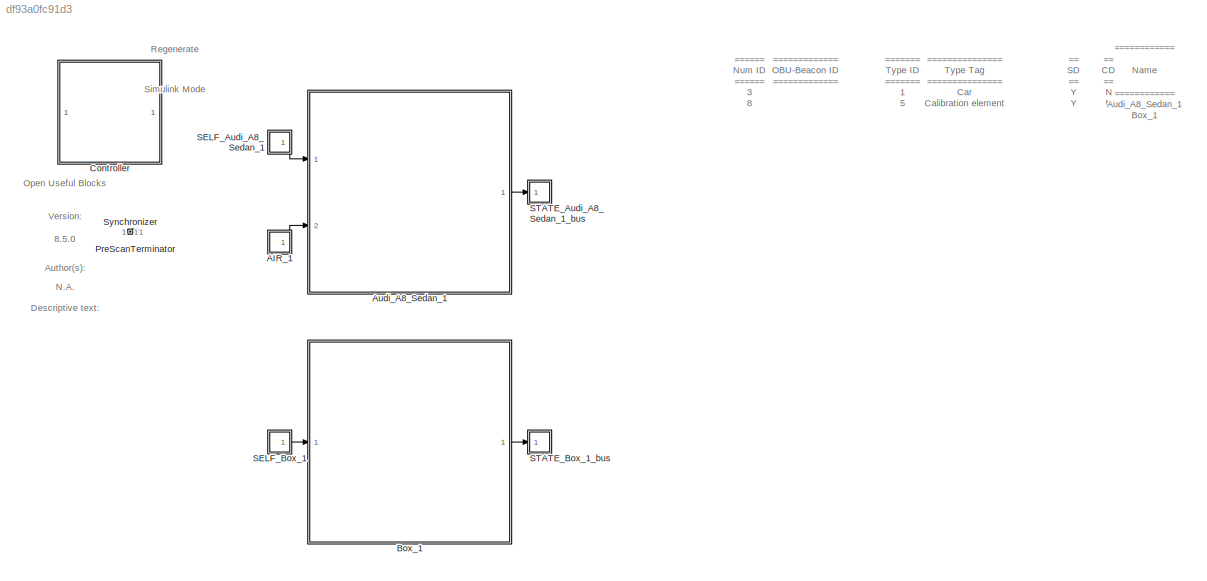
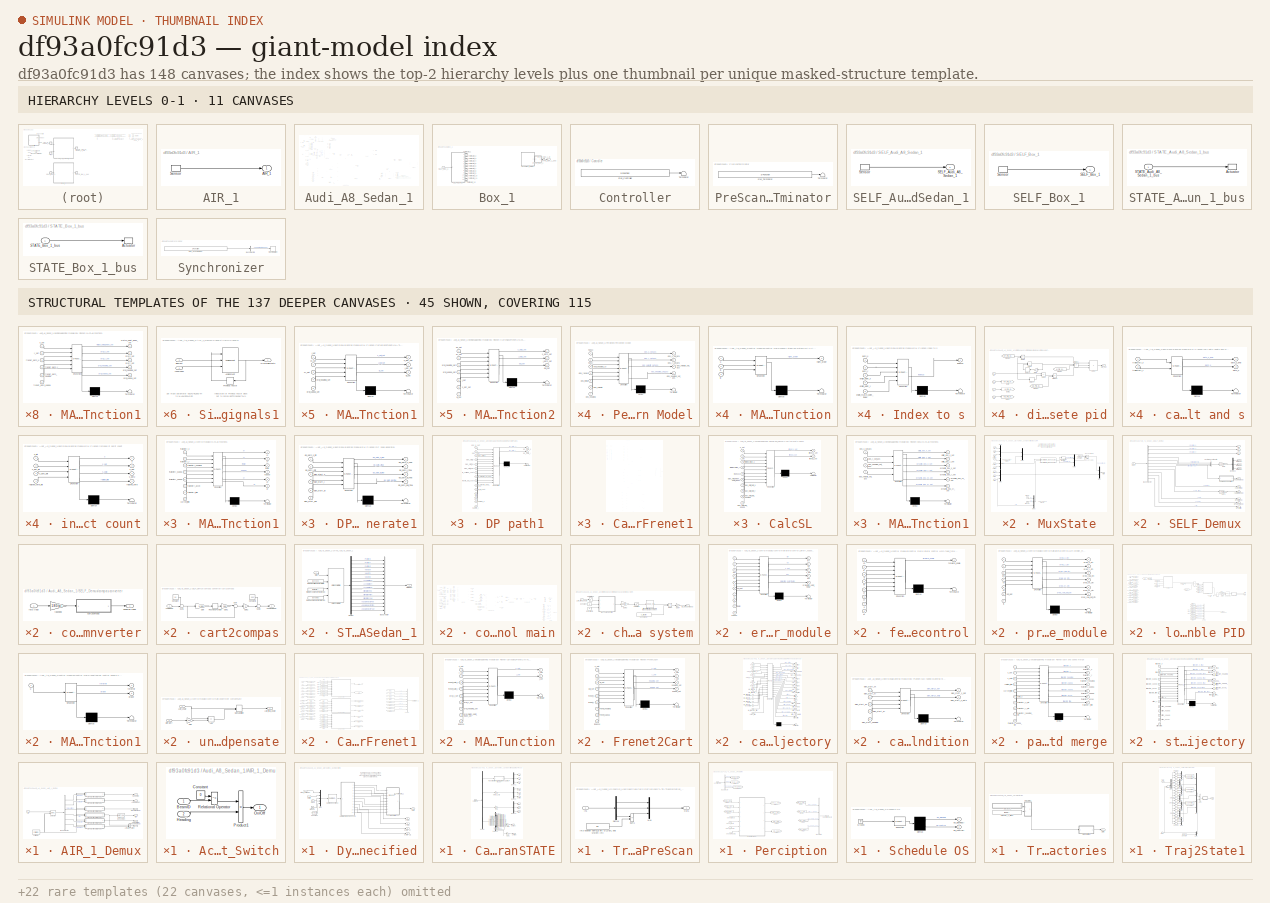
[diagram: thumbnail index - top-2 hierarchy levels (11 canvases) + 45 structural-template representatives of the remaining 137 canvases]
MODEL slx_df93a0fc91d3
KIND model
CONFIG AbsTol = auto
CONFIG EnableMultiTasking = off
CONFIG FixedStep = 1/1000
CONFIG InitFcn = mbxruntime.callbacks.InitFcn(bdroot);
CONFIG MaxStep = auto
CONFIG MinStep = auto
CONFIG PostLoadFcn = mbxruntime.callbacks.PostLoadFcn(bdroot);
CONFIG PreLoadFcn = mbxruntime.callbacks.PreLoadFcn(bdroot);
CONFIG RelTol = 1e-3
CONFIG SampleTimeConstraint = Unconstrained
CONFIG Solver = ode5
CONFIG SolverName = ode5
CONFIG StartFcn = mbxruntime.callbacks.StartFcn(bdroot);
CONFIG StartTime = 0.0
CONFIG StopFcn = mbxruntime.callbacks.StopFcn(bdroot);
CONFIG StopTime = 24
WORKSPACE source: mxarray member
WORKSPACE mbox_table: object (value not decoded)
WORKSPACE model_closed = 0
WORKSPACE sim_status = 0
BLOCK [SubSystem] AIR_1
  LoadFcn = load('PrescanAIRSensorData.mat');load('PrescanAIRSensorMessage.mat')
  OpenFcn = open_system([gcb '/Sensor'],'mask')
  Ports = [0, 1]
  Priority = 3
  RequestExecContextInheritance = off
  Tag = sensor/AIR
BLOCK [Outport] AIR_1/AIR_1
  OutDataTypeStr = Bus: PRESCAN_AIRSENSORMESSAGE
  PortDimensions = 32
  SampleTime = 50/1000
  Tag = outport/AIR
BLOCK [S-Function] AIR_1/Sensor
  EnableBusSupport = off
  FunctionName = sfun_AIRSensor
  Parameters = detectableObjects, sensorID, timestep
  Ports = [0, 1]
  SFcnIsStateOwnerBlock = off
  SFunctionDeploymentMode = off
BLOCK [SubSystem] Audi_A8_Sedan_1
  InitFcn = UniqueId = '15';
  Ports = [2, 1]
  RequestExecContextInheritance = off
  Tag = WorldObjectSubSystem
BLOCK [Inport] Audi_A8_Sedan_1/AIR_1
  BusOutputAsStruct = on
  OutDataTypeStr = Bus: PRESCAN_AIRSENSORMESSAGE
  Port = 2
  PortDimensions = 32
  SampleTime = 50/1000
  Tag = inport/AIR
BLOCK [SubSystem] Audi_A8_Sedan_1/AIR_1_Demux
  DeleteFcn = PreScanBlockDeleteFcn;
  Ports = [1, 6]
  RequestExecContextInheritance = off
  Tag = demux/AIR
BLOCK [Inport] Audi_A8_Sedan_1/AIR_1_Demux/AIR
BLOCK [SubSystem] Audi_A8_Sedan_1/AIR_1_Demux/Activate_Switch
  Ports = [2, 1]
  RequestExecContextInheritance = off
BLOCK [Inport] Audi_A8_Sedan_1/AIR_1_Demux/Activate_Switch/BeamID
BLOCK [Constant] Audi_A8_Sedan_1/AIR_1_Demux/Activate_Switch/Constant
  Value = 0
BLOCK [Inport] Audi_A8_Sedan_1/AIR_1_Demux/Activate_Switch/Heading
  Port = 2
BLOCK [Outport] Audi_A8_Sedan_1/AIR_1_Demux/Activate_Switch/On//Off
BLOCK [Product] Audi_A8_Sedan_1/AIR_1_Demux/Activate_Switch/Product1
  Ports = [2, 1]
  RndMeth = Zero
BLOCK [RelationalOperator] Audi_A8_Sedan_1/AIR_1_Demux/Activate_Switch/Relational Operator
  InputSameDT = off
  Operator = ~=
  OutDataTypeStr = boolean
  Ports = [2, 1]
BLOCK [Outport] Audi_A8_Sedan_1/AIR_1_Demux/Azimuth [deg]
  Port = 2
BLOCK [BusSelector] Audi_A8_Sedan_1/AIR_1_Demux/Bus Selector
  OutputSignals = DATA.Range,DATA.Azimuth,DATA.Elevation,DATA.ID,DATA.Velocity,DATA.Heading
  Ports = [1, 6]
BLOCK [DataTypeConversion] Audi_A8_Sedan_1/AIR_1_Demux/Data Type Conversion
  OutDataTypeStr = double
  RndMeth = Floor
  SaturateOnIntegerOverflow = off
BLOCK [Outport] Audi_A8_Sedan_1/AIR_1_Demux/Elevation [deg]
  Port = 3
BLOCK [ForIterator] Audi_A8_Sedan_1/AIR_1_Demux/For Iterator
  IterationLimit = detectableObjects
  Ports = [0, 1]
  ResetStates = reset
BLOCK [Outport] Audi_A8_Sedan_1/AIR_1_Demux/Heading [deg]
  Port = 6
BLOCK [Outport] Audi_A8_Sedan_1/AIR_1_Demux/ID [-]
  Port = 4
BLOCK [Outport] Audi_A8_Sedan_1/AIR_1_Demux/Range [m]
BLOCK [Selector] Audi_A8_Sedan_1/AIR_1_Demux/Selector
  IndexOptions = Index vector (port)
  Indices = [1 3]
  InputPortWidth = detectableObjects
  OutputSizes = 1
  Ports = [2, 1]
BLOCK [SubSystem] Audi_A8_Sedan_1/AIR_1_Demux/Signal2ArrayOfSignals1
  Ports = [2, 1]
  RequestExecContextInheritance = off
BLOCK [Outport] Audi_A8_Sedan_1/AIR_1_Demux/Signal2ArrayOfSignals1/ArrayofElements
BLOCK [Assignment] Audi_A8_Sedan_1/AIR_1_Demux/Signal2ArrayOfSignals1/Assignment
  IndexOptions = Index vector (port)
  Indices = 1
  OutputSizes = 1
  Ports = [3, 1]
BLOCK [Inport] Audi_A8_Sedan_1/AIR_1_Demux/Signal2ArrayOfSignals1/Element
  Port = 2
BLOCK [Inport] Audi_A8_Sedan_1/AIR_1_Demux/Signal2ArrayOfSignals1/LoopIndex
BLOCK [Memory] Audi_A8_Sedan_1/AIR_1_Demux/Signal2ArrayOfSignals1/Previous vector
  InheritSampleTime = on
  InitialCondition = zeros(VECTORLENGTH,1)
BLOCK [SubSystem] Audi_A8_Sedan_1/AIR_1_Demux/Signal2ArrayOfSignals2
  Ports = [2, 1]
  RequestExecContextInheritance = off
BLOCK [Outport] Audi_A8_Sedan_1/AIR_1_Demux/Signal2ArrayOfSignals2/ArrayofElements
BLOCK [Assignment] Audi_A8_Sedan_1/AIR_1_Demux/Signal2ArrayOfSignals2/Assignment
  IndexOptions = Index vector (port)
  Indices = 1
  OutputSizes = 1
  Ports = [3, 1]
BLOCK [Inport] Audi_A8_Sedan_1/AIR_1_Demux/Signal2ArrayOfSignals2/Element
  Port = 2
BLOCK [Inport] Audi_A8_Sedan_1/AIR_1_Demux/Signal2ArrayOfSignals2/LoopIndex
BLOCK [Memory] Audi_A8_Sedan_1/AIR_1_Demux/Signal2ArrayOfSignals2/Previous vector
  InheritSampleTime = on
  InitialCondition = zeros(VECTORLENGTH,1)
BLOCK [SubSystem] Audi_A8_Sedan_1/AIR_1_Demux/Signal2ArrayOfSignals3
  Ports = [2, 1]
  RequestExecContextInheritance = off
BLOCK [Outport] Audi_A8_Sedan_1/AIR_1_Demux/Signal2ArrayOfSignals3/ArrayofElements
BLOCK [Assignment] Audi_A8_Sedan_1/AIR_1_Demux/Signal2ArrayOfSignals3/Assignment
  IndexOptions = Index vector (port)
  Indices = 1
  OutputSizes = 1
  Ports = [3, 1]
BLOCK [Inport] Audi_A8_Sedan_1/AIR_1_Demux/Signal2ArrayOfSignals3/Element
  Port = 2
BLOCK [Inport] Audi_A8_Sedan_1/AIR_1_Demux/Signal2ArrayOfSignals3/LoopIndex
BLOCK [Memory] Audi_A8_Sedan_1/AIR_1_Demux/Signal2ArrayOfSignals3/Previous vector
  InheritSampleTime = on
  InitialCondition = zeros(VECTORLENGTH,1)
BLOCK [SubSystem] Audi_A8_Sedan_1/AIR_1_Demux/Signal2ArrayOfSignals4
  Ports = [2, 1]
  RequestExecContextInheritance = off
BLOCK [Outport] Audi_A8_Sedan_1/AIR_1_Demux/Signal2ArrayOfSignals4/ArrayofElements
BLOCK [Assignment] Audi_A8_Sedan_1/AIR_1_Demux/Signal2ArrayOfSignals4/Assignment
  IndexOptions = Index vector (port)
  Indices = 1
  OutputSizes = 1
  Ports = [3, 1]
BLOCK [Inport] Audi_A8_Sedan_1/AIR_1_Demux/Signal2ArrayOfSignals4/Element
  Port = 2
BLOCK [Inport] Audi_A8_Sedan_1/AIR_1_Demux/Signal2ArrayOfSignals4/LoopIndex
BLOCK [Memory] Audi_A8_Sedan_1/AIR_1_Demux/Signal2ArrayOfSignals4/Previous vector
  InheritSampleTime = on
  InitialCondition = zeros(VECTORLENGTH,1)
BLOCK [SubSystem] Audi_A8_Sedan_1/AIR_1_Demux/Signal2ArrayOfSignals5
  Ports = [2, 1]
  RequestExecContextInheritance = off
BLOCK [Outport] Audi_A8_Sedan_1/AIR_1_Demux/Signal2ArrayOfSignals5/ArrayofElements
BLOCK [Assignment] Audi_A8_Sedan_1/AIR_1_Demux/Signal2ArrayOfSignals5/Assignment
  IndexOptions = Index vector (port)
  Indices = 1
  OutputSizes = 1
  Ports = [3, 1]
BLOCK [Inport] Audi_A8_Sedan_1/AIR_1_Demux/Signal2ArrayOfSignals5/Element
  Port = 2
BLOCK [Inport] Audi_A8_Sedan_1/AIR_1_Demux/Signal2ArrayOfSignals5/LoopIndex
BLOCK [Memory] Audi_A8_Sedan_1/AIR_1_Demux/Signal2ArrayOfSignals5/Previous vector
  InheritSampleTime = on
  InitialCondition = zeros(VECTORLENGTH,1)
BLOCK [SubSystem] Audi_A8_Sedan_1/AIR_1_Demux/Signal2ArrayOfSignals6
  Ports = [2, 1]
  RequestExecContextInheritance = off
BLOCK [Outport] Audi_A8_Sedan_1/AIR_1_Demux/Signal2ArrayOfSignals6/ArrayofElements
BLOCK [Assignment] Audi_A8_Sedan_1/AIR_1_Demux/Signal2ArrayOfSignals6/Assignment
  IndexOptions = Index vector (port)
  Indices = 1
  OutputSizes = 1
  Ports = [3, 1]
BLOCK [Inport] Audi_A8_Sedan_1/AIR_1_Demux/Signal2ArrayOfSignals6/Element
  Port = 2
BLOCK [Inport] Audi_A8_Sedan_1/AIR_1_Demux/Signal2ArrayOfSignals6/LoopIndex
BLOCK [Memory] Audi_A8_Sedan_1/AIR_1_Demux/Signal2ArrayOfSignals6/Previous vector
  InheritSampleTime = on
  InitialCondition = zeros(VECTORLENGTH,1)
BLOCK [Outport] Audi_A8_Sedan_1/AIR_1_Demux/Velocity [m//s]
  Port = 5
BLOCK [Clock] Audi_A8_Sedan_1/Clock
BLOCK [Constant] Audi_A8_Sedan_1/Constant3
  Value = 0.02
BLOCK [Delay] Audi_A8_Sedan_1/Delay
  DelayLength = 1
  InputPortMap = u0
  Ports = [1, 1]
BLOCK [SubSystem] Audi_A8_Sedan_1/Dynamics_UserSpecified
  DeleteFcn = PreScanBlockDeleteFcn;
  Description = ..\..\..\carsim_data\Extensions\Simulink\CarSim_VehicleDynamics.mdl
  Ports = [3, 5]
  RequestExecContextInheritance = off
  Tag = UserSpecified_Subsys
BLOCK [Reference] Audi_A8_Sedan_1/Dynamics_UserSpecified/CarSim S-Function2  REF=Solver_SF/CarSim S-Function
  AttributesFormatString = Vehicle Code: %<VehicleCode>
  Ports = [1, 1]
  Priority = 1
  SourceBlock = Solver_SF/CarSim S-Function
  SourceType = Vehicle math model library
BLOCK [SubSystem] Audi_A8_Sedan_1/Dynamics_UserSpecified/CarSim2PreScanSTATE
  Ports = [1, 11]
  RequestExecContextInheritance = off
  Tag = CarSim2PreScanSTATE
BLOCK [Inport] Audi_A8_Sedan_1/Dynamics_UserSpecified/CarSim2PreScanSTATE/CarSim_In
BLOCK [Gain] Audi_A8_Sedan_1/Dynamics_UserSpecified/CarSim2PreScanSTATE/D2R
  Gain = pi/180
BLOCK [Demux] Audi_A8_Sedan_1/Dynamics_UserSpecified/CarSim2PreScanSTATE/Demux
  Outputs = [3 3 3 -1]
  Ports = [1, 4]
BLOCK [Demux] Audi_A8_Sedan_1/Dynamics_UserSpecified/CarSim2PreScanSTATE/Demux1
  Outputs = 3
  Ports = [1, 3]
BLOCK [Demux] Audi_A8_Sedan_1/Dynamics_UserSpecified/CarSim2PreScanSTATE/Demux2
  Outputs = 3
  Ports = [1, 3]
BLOCK [Demux] Audi_A8_Sedan_1/Dynamics_UserSpecified/CarSim2PreScanSTATE/Demux3
  Outputs = 3
  Ports = [1, 3]
BLOCK [Demux] Audi_A8_Sedan_1/Dynamics_UserSpecified/CarSim2PreScanSTATE/Demux4
  Outputs = 28
  Ports = [1, 28]
BLOCK [Gain] Audi_A8_Sedan_1/Dynamics_UserSpecified/CarSim2PreScanSTATE/Gain
  Gain = 9.8
BLOCK [Gain] Audi_A8_Sedan_1/Dynamics_UserSpecified/CarSim2PreScanSTATE/Gain1
  Gain = 9.8
BLOCK [Outport] Audi_A8_Sedan_1/Dynamics_UserSpecified/CarSim2PreScanSTATE/P [rad]
  Port = 8
BLOCK [Outport] Audi_A8_Sedan_1/Dynamics_UserSpecified/CarSim2PreScanSTATE/R [rad]
  Port = 7
BLOCK [Terminator] Audi_A8_Sedan_1/Dynamics_UserSpecified/CarSim2PreScanSTATE/Terminator_1
BLOCK [Terminator] Audi_A8_Sedan_1/Dynamics_UserSpecified/CarSim2PreScanSTATE/Terminator_10
BLOCK [Terminator] Audi_A8_Sedan_1/Dynamics_UserSpecified/CarSim2PreScanSTATE/Terminator_11
BLOCK [Terminator] Audi_A8_Sedan_1/Dynamics_UserSpecified/CarSim2PreScanSTATE/Terminator_12
BLOCK [Terminator] Audi_A8_Sedan_1/Dynamics_UserSpecified/CarSim2PreScanSTATE/Terminator_13
BLOCK [Terminator] Audi_A8_Sedan_1/Dynamics_UserSpecified/CarSim2PreScanSTATE/Terminator_14
BLOCK [Terminator] Audi_A8_Sedan_1/Dynamics_UserSpecified/CarSim2PreScanSTATE/Terminator_15
BLOCK [Terminator] Audi_A8_Sedan_1/Dynamics_UserSpecified/CarSim2PreScanSTATE/Terminator_16
BLOCK [Terminator] Audi_A8_Sedan_1/Dynamics_UserSpecified/CarSim2PreScanSTATE/Terminator_17
BLOCK [Terminator] Audi_A8_Sedan_1/Dynamics_UserSpecified/CarSim2PreScanSTATE/Terminator_18
BLOCK [Terminator] Audi_A8_Sedan_1/Dynamics_UserSpecified/CarSim2PreScanSTATE/Terminator_19
BLOCK [Terminator] Audi_A8_Sedan_1/Dynamics_UserSpecified/CarSim2PreScanSTATE/Terminator_2
BLOCK [Terminator] Audi_A8_Sedan_1/Dynamics_UserSpecified/CarSim2PreScanSTATE/Terminator_20
BLOCK [Terminator] Audi_A8_Sedan_1/Dynamics_UserSpecified/CarSim2PreScanSTATE/Terminator_21
BLOCK [Terminator] Audi_A8_Sedan_1/Dynamics_UserSpecified/CarSim2PreScanSTATE/Terminator_22
BLOCK [Terminator] Audi_A8_Sedan_1/Dynamics_UserSpecified/CarSim2PreScanSTATE/Terminator_23
BLOCK [Terminator] Audi_A8_Sedan_1/Dynamics_UserSpecified/CarSim2PreScanSTATE/Terminator_24
BLOCK [Terminator] Audi_A8_Sedan_1/Dynamics_UserSpecified/CarSim2PreScanSTATE/Terminator_25
BLOCK [Terminator] Audi_A8_Sedan_1/Dynamics_UserSpecified/CarSim2PreScanSTATE/Terminator_26
BLOCK [Terminator] Audi_A8_Sedan_1/Dynamics_UserSpecified/CarSim2PreScanSTATE/Terminator_3
BLOCK [Terminator] Audi_A8_Sedan_1/Dynamics_UserSpecified/CarSim2PreScanSTATE/Terminator_4
BLOCK [Terminator] Audi_A8_Sedan_1/Dynamics_UserSpecified/CarSim2PreScanSTATE/Terminator_5
BLOCK [Terminator] Audi_A8_Sedan_1/Dynamics_UserSpecified/CarSim2PreScanSTATE/Terminator_6
BLOCK [Terminator] Audi_A8_Sedan_1/Dynamics_UserSpecified/CarSim2PreScanSTATE/Terminator_7
BLOCK [Terminator] Audi_A8_Sedan_1/Dynamics_UserSpecified/CarSim2PreScanSTATE/Terminator_8
BLOCK [Terminator] Audi_A8_Sedan_1/Dynamics_UserSpecified/CarSim2PreScanSTATE/Terminator_9
BLOCK [SubSystem] Audi_A8_Sedan_1/Dynamics_UserSpecified/CarSim2PreScanSTATE/Transformation_SprungMassCarSim2PreScan
  Ports = [1, 1]
  RequestExecContextInheritance = off
BLOCK [Demux] Audi_A8_Sedan_1/Dynamics_UserSpecified/CarSim2PreScanSTATE/Transformation_SprungMassCarSim2PreScan/Demux
  Outputs = 3
  Ports = [1, 3]
BLOCK [Inport] Audi_A8_Sedan_1/Dynamics_UserSpecified/CarSim2PreScanSTATE/Transformation_SprungMassCarSim2PreScan/In1
BLOCK [Constant] Audi_A8_Sedan_1/Dynamics_UserSpecified/CarSim2PreScanSTATE/Transformation_SprungMassCarSim2PreScan/Ini z-position VEHICLE wrt GLOBAL axis system [m]
  Value = z0
BLOCK [Mux] Audi_A8_Sedan_1/Dynamics_UserSpecified/CarSim2PreScanSTATE/Transformation_SprungMassCarSim2PreScan/Mux
  DisplayOption = bar
  Inputs = 3
  Ports = [3, 1]
BLOCK [Outport] Audi_A8_Sedan_1/Dynamics_UserSpecified/CarSim2PreScanSTATE/Transformation_SprungMassCarSim2PreScan/Out1
BLOCK [Sum] Audi_A8_Sedan_1/Dynamics_UserSpecified/CarSim2PreScanSTATE/Transformation_SprungMassCarSim2PreScan/Sum1
  IconShape = rectangular
  Inputs = +-
  Ports = [2, 1]
BLOCK [Outport] Audi_A8_Sedan_1/Dynamics_UserSpecified/CarSim2PreScanSTATE/Y [rad]
  Port = 9
BLOCK [Outport] Audi_A8_Sedan_1/Dynamics_UserSpecified/CarSim2PreScanSTATE/ax [m//s^2]
  Port = 10
BLOCK [Outport] Audi_A8_Sedan_1/Dynamics_UserSpecified/CarSim2PreScanSTATE/ay [m//s^2]
  Port = 11
BLOCK [Outport] Audi_A8_Sedan_1/Dynamics_UserSpecified/CarSim2PreScanSTATE/dx [m//s]
  Port = 4
BLOCK [Outport] Audi_A8_Sedan_1/Dynamics_UserSpecified/CarSim2PreScanSTATE/dy [m//s]
  Port = 5
BLOCK [Outport] Audi_A8_Sedan_1/Dynamics_UserSpecified/CarSim2PreScanSTATE/dz [m//s]
  Port = 6
BLOCK [Gain] Audi_A8_Sedan_1/Dynamics_UserSpecified/CarSim2PreScanSTATE/km|h_to_m|s
  Gain = 1/3.6
BLOCK [Outport] Audi_A8_Sedan_1/Dynamics_UserSpecified/CarSim2PreScanSTATE/x [m]
BLOCK [Outport] Audi_A8_Sedan_1/Dynamics_UserSpecified/CarSim2PreScanSTATE/y [m]
  Port = 2
BLOCK [Outport] Audi_A8_Sedan_1/Dynamics_UserSpecified/CarSim2PreScanSTATE/z [m]
  Port = 3
BLOCK [Constant] Audi_A8_Sedan_1/Dynamics_UserSpecified/Constant
  Value = ones(8,1)*0.9
BLOCK [Ground] Audi_A8_Sedan_1/Dynamics_UserSpecified/Ground
BLOCK [Ground] Audi_A8_Sedan_1/Dynamics_UserSpecified/Ground1
BLOCK [Mux] Audi_A8_Sedan_1/Dynamics_UserSpecified/Mux
  DisplayOption = bar
  Inputs = [1 1 1 12 8]
  Ports = [5, 1]
BLOCK [SubSystem] Audi_A8_Sedan_1/Dynamics_UserSpecified/MuxState
  DeleteFcn = PreScanBlockDeleteFcn;
  Ports = [9, 1]
  RequestExecContextInheritance = off
  Tag = mux/State
BLOCK [Constant] Audi_A8_Sedan_1/Dynamics_UserSpecified/MuxState/Constant
  DisableCoverage = on
  Value = positioningmode
BLOCK [DiscreteIntegrator] Audi_A8_Sedan_1/Dynamics_UserSpecified/MuxState/Discrete-Time Integrator
  ICPrevOutput = DiscIntNeverNeededParam
  ICPrevScaledInput = DiscIntNeverNeededParam
  Ports = [1, 1]
  SampleTime = TimeStep
BLOCK [Ground] Audi_A8_Sedan_1/Dynamics_UserSpecified/MuxState/Ground
BLOCK [Ground] Audi_A8_Sedan_1/Dynamics_UserSpecified/MuxState/Ground1
BLOCK [Mux] Audi_A8_Sedan_1/Dynamics_UserSpecified/MuxState/Mux1
  DisplayOption = bar
  Inputs = [3 3]
  Ports = [2, 1]
BLOCK [Mux] Audi_A8_Sedan_1/Dynamics_UserSpecified/MuxState/Mux2
  DisplayOption = bar
  Inputs = 3
  Ports = [3, 1]
BLOCK [Mux] Audi_A8_Sedan_1/Dynamics_UserSpecified/MuxState/Mux3
  DisplayOption = bar
  Inputs = 3
  Ports = [3, 1]
BLOCK [Mux] Audi_A8_Sedan_1/Dynamics_UserSpecified/MuxState/Mux4
  DisplayOption = bar
  Inputs = 3
  Ports = [3, 1]
BLOCK [Mux] Audi_A8_Sedan_1/Dynamics_UserSpecified/MuxState/Mux5
  DisplayOption = bar
  Inputs = [3 3]
  Ports = [2, 1]
BLOCK [Mux] Audi_A8_Sedan_1/Dynamics_UserSpecified/MuxState/Mux6
  DisplayOption = bar
  Inputs = [6 3]
  Ports = [2, 1]
BLOCK [Inport] Audi_A8_Sedan_1/Dynamics_UserSpecified/MuxState/P [rad]
  Port = 8
  SampleTime = TimeStep
BLOCK [Inport] Audi_A8_Sedan_1/Dynamics_UserSpecified/MuxState/R [rad]
  Port = 7
  SampleTime = TimeStep
BLOCK [Switch] Audi_A8_Sedan_1/Dynamics_UserSpecified/MuxState/Switch
  InputSameDT = off
  SaturateOnIntegerOverflow = off
  Threshold = 0.5
BLOCK [Reference] Audi_A8_Sedan_1/Dynamics_UserSpecified/MuxState/Transformation_BODY2GLOBAL  REF=PreScanSimulinkLibrary/Simple_Vehicle_Dynamics/Chassis/MuxDynState/Transformation_BODY2GLOBAL
  Ports = [2, 1]
  SourceBlock = PreScanSimulinkLibrary/Simple_Vehicle_Dynamics/Chassis/MuxDynState/Transformation_BODY2GLOBAL
  SourceType = SubSystem
BLOCK [Inport] Audi_A8_Sedan_1/Dynamics_UserSpecified/MuxState/Y [rad]
  Port = 9
  SampleTime = TimeStep
BLOCK [Inport] Audi_A8_Sedan_1/Dynamics_UserSpecified/MuxState/dx [m//s]
  Port = 4
  SampleTime = TimeStep
BLOCK [Inport] Audi_A8_Sedan_1/Dynamics_UserSpecified/MuxState/dy [m//s]
  Port = 5
  SampleTime = TimeStep
BLOCK [Inport] Audi_A8_Sedan_1/Dynamics_UserSpecified/MuxState/dz [m//s]
  Port = 6
  SampleTime = TimeStep
BLOCK [Mux] Audi_A8_Sedan_1/Dynamics_UserSpecified/MuxState/mux3
  Inputs = 3
  Ports = [3, 1]
BLOCK [Outport] Audi_A8_Sedan_1/Dynamics_UserSpecified/MuxState/state
BLOCK [Inport] Audi_A8_Sedan_1/Dynamics_UserSpecified/MuxState/x [m]
  SampleTime = TimeStep
BLOCK [Inport] Audi_A8_Sedan_1/Dynamics_UserSpecified/MuxState/y [m]
  Port = 2
  SampleTime = TimeStep
BLOCK [Inport] Audi_A8_Sedan_1/Dynamics_UserSpecified/MuxState/z [m]
  Port = 3
  SampleTime = TimeStep
BLOCK [Outport] Audi_A8_Sedan_1/Dynamics_UserSpecified/State
BLOCK [Terminator] Audi_A8_Sedan_1/Dynamics_UserSpecified/Terminator_1
BLOCK [Outport] Audi_A8_Sedan_1/Dynamics_UserSpecified/ax[m//s^2]
  Port = 4
BLOCK [Outport] Audi_A8_Sedan_1/Dynamics_UserSpecified/ay[m//s^2]1
  Port = 5
BLOCK [Inport] Audi_A8_Sedan_1/Dynamics_UserSpecified/brake
  Port = 3
BLOCK [Inport] Audi_A8_Sedan_1/Dynamics_UserSpecified/steer_sw[deg]
BLOCK [Inport] Audi_A8_Sedan_1/Dynamics_UserSpecified/throttle
  Port = 2
BLOCK [Outport] Audi_A8_Sedan_1/Dynamics_UserSpecified/vx[m//s]
  Port = 2
BLOCK [Outport] Audi_A8_Sedan_1/Dynamics_UserSpecified/vy[m//s]
  Port = 3
BLOCK [From] Audi_A8_Sedan_1/From
  GotoTag = lat_angle
BLOCK [From] Audi_A8_Sedan_1/From1
  GotoTag = throttle
BLOCK [From] Audi_A8_Sedan_1/From10
  GotoTag = Location_info
BLOCK [From] Audi_A8_Sedan_1/From11
  GotoTag = planning_result
BLOCK [From] Audi_A8_Sedan_1/From12
  GotoTag = control_debug
BLOCK [From] Audi_A8_Sedan_1/From13
  GotoTag = sensor_range
BLOCK [From] Audi_A8_Sedan_1/From14
  GotoTag = sensor_theta
BLOCK [From] Audi_A8_Sedan_1/From15
  GotoTag = sensor_velocity
BLOCK [From] Audi_A8_Sedan_1/From16
  GotoTag = sensor_heading
BLOCK [From] Audi_A8_Sedan_1/From17
  GotoTag = Location_info
BLOCK [From] Audi_A8_Sedan_1/From18
  GotoTag = time
BLOCK [From] Audi_A8_Sedan_1/From19
  GotoTag = planning_result
BLOCK [From] Audi_A8_Sedan_1/From2
  GotoTag = host_x
BLOCK [From] Audi_A8_Sedan_1/From20
  GotoTag = host_ax
BLOCK [From] Audi_A8_Sedan_1/From21
  GotoTag = host_ay
BLOCK [From] Audi_A8_Sedan_1/From22
  GotoTag = time
BLOCK [From] Audi_A8_Sedan_1/From25
  GotoTag = do_planning
BLOCK [From] Audi_A8_Sedan_1/From26
  GotoTag = do_control
BLOCK [From] Audi_A8_Sedan_1/From3
  GotoTag = host_y
BLOCK [From] Audi_A8_Sedan_1/From4
  GotoTag = host_heading_xy
BLOCK [From] Audi_A8_Sedan_1/From5
  GotoTag = brake
BLOCK [From] Audi_A8_Sedan_1/From6
  GotoTag = host_speed
BLOCK [From] Audi_A8_Sedan_1/From7
  GotoTag = host_yaw_rate
BLOCK [From] Audi_A8_Sedan_1/From8
  GotoTag = host_vx
BLOCK [From] Audi_A8_Sedan_1/From9
  GotoTag = host_vy
BLOCK [Gain] Audi_A8_Sedan_1/Gain2
  Gain = pi/180
BLOCK [Gain] Audi_A8_Sedan_1/Gain3
  Gain = pi/180
BLOCK [Goto] Audi_A8_Sedan_1/Goto
  GotoTag = host_speed
BLOCK [Goto] Audi_A8_Sedan_1/Goto1
  GotoTag = sensor_range
BLOCK [Goto] Audi_A8_Sedan_1/Goto10
  GotoTag = sensor_velocity
BLOCK [Goto] Audi_A8_Sedan_1/Goto11
  GotoTag = planning_result
BLOCK [Goto] Audi_A8_Sedan_1/Goto12
  GotoTag = throttle
BLOCK [Goto] Audi_A8_Sedan_1/Goto13
  GotoTag = control_debug
BLOCK [Goto] Audi_A8_Sedan_1/Goto14
  GotoTag = lat_angle
BLOCK [Goto] Audi_A8_Sedan_1/Goto15
  GotoTag = brake
BLOCK [Goto] Audi_A8_Sedan_1/Goto16
  GotoTag = sensor_heading
BLOCK [Goto] Audi_A8_Sedan_1/Goto17
  GotoTag = time
BLOCK [Goto] Audi_A8_Sedan_1/Goto19
  GotoTag = do_planning
BLOCK [Goto] Audi_A8_Sedan_1/Goto2
  GotoTag = sensor_theta
BLOCK [Goto] Audi_A8_Sedan_1/Goto20
  GotoTag = host_heading_xy
BLOCK [Goto] Audi_A8_Sedan_1/Goto21
  GotoTag = host_yaw_rate
BLOCK [Goto] Audi_A8_Sedan_1/Goto22
  GotoTag = do_control
BLOCK [Goto] Audi_A8_Sedan_1/Goto3
  GotoTag = host_vx
BLOCK [Goto] Audi_A8_Sedan_1/Goto4
  GotoTag = host_vy
BLOCK [Goto] Audi_A8_Sedan_1/Goto5
  GotoTag = host_ay
BLOCK [Goto] Audi_A8_Sedan_1/Goto6
  GotoTag = host_ax
BLOCK [Goto] Audi_A8_Sedan_1/Goto7
  GotoTag = host_x
BLOCK [Goto] Audi_A8_Sedan_1/Goto8
  GotoTag = host_y
BLOCK [Goto] Audi_A8_Sedan_1/Goto9
  GotoTag = Location_info
BLOCK [SubSystem] Audi_A8_Sedan_1/Perciption
  Ports = [5, 1]
  RequestExecContextInheritance = off
BLOCK [BusCreator] Audi_A8_Sedan_1/Perciption/Bus Creator
  DisplayOption = bar
  InheritFromInputs = on
  Inputs = 4
  Ports = [4, 1]
BLOCK [BusSelector] Audi_A8_Sedan_1/Perciption/Bus Selector
  OutputSignals = host_x,host_y,host_heading_xy
  Ports = [1, 3]
BLOCK [From] Audi_A8_Sedan_1/Perciption/From18
  GotoTag = host_x_gcs
BLOCK [From] Audi_A8_Sedan_1/Perciption/From19
  GotoTag = host_y_gcs
BLOCK [From] Audi_A8_Sedan_1/Perciption/From20
  GotoTag = host_heading_xy_gcs
BLOCK [From] Audi_A8_Sedan_1/Perciption/From21
  GotoTag = obs_x_set_gcs
BLOCK [From] Audi_A8_Sedan_1/Perciption/From22
  GotoTag = obs_y_set_gcs
BLOCK [From] Audi_A8_Sedan_1/Perciption/From23
  GotoTag = obs_velocity_set_gcs
BLOCK [From] Audi_A8_Sedan_1/Perciption/From24
  GotoTag = obs_heading_set_gcs
BLOCK [Goto] Audi_A8_Sedan_1/Perciption/Goto17
  GotoTag = host_x_gcs
BLOCK [Goto] Audi_A8_Sedan_1/Perciption/Goto18
  GotoTag = host_y_gcs
BLOCK [Goto] Audi_A8_Sedan_1/Perciption/Goto23
  GotoTag = host_heading_xy_gcs
BLOCK [Goto] Audi_A8_Sedan_1/Perciption/Goto24
  GotoTag = obs_x_set_gcs
BLOCK [Goto] Audi_A8_Sedan_1/Perciption/Goto25
  GotoTag = obs_y_set_gcs
BLOCK [Goto] Audi_A8_Sedan_1/Perciption/Goto26
  GotoTag = obs_velocity_set_gcs
BLOCK [Goto] Audi_A8_Sedan_1/Perciption/Goto27
  GotoTag = obs_heading_set_gcs
BLOCK [Inport] Audi_A8_Sedan_1/Perciption/Location_info
BLOCK [SubSystem] Audi_A8_Sedan_1/Perciption/Perception Model
  ErrorFcn = Stateflow.Translate.translate
  PermitHierarchicalResolution = ExplicitOnly
  Ports = [7, 4]
  RequestExecContextInheritance = off
  SFBlockType = MATLAB Function
  TreatAsAtomicUnit = on
BLOCK [Demux] Audi_A8_Sedan_1/Perciption/Perception Model/ Demux 
  Outputs = 1
  Ports = [1, 1]
BLOCK [S-Function] Audi_A8_Sedan_1/Perciption/Perception Model/ SFunction 
  EnableBusSupport = on
  FunctionName = sf_sfun
  PortCounts = [7 5]
  Ports = [7, 5]
  SFcnIsStateOwnerBlock = off
  SFunctionDeploymentMode = off
  Tag = Stateflow S-Function 2
BLOCK [Terminator] Audi_A8_Sedan_1/Perciption/Perception Model/ Terminator 
BLOCK [Inport] Audi_A8_Sedan_1/Perciption/Perception Model/host_heading_xy
  Port = 3
BLOCK [Inport] Audi_A8_Sedan_1/Perciption/Perception Model/host_x
BLOCK [Inport] Audi_A8_Sedan_1/Perciption/Perception Model/host_y
  Port = 2
BLOCK [Inport] Audi_A8_Sedan_1/Perciption/Perception Model/obs_heading
  Port = 7
BLOCK [Outport] Audi_A8_Sedan_1/Perciption/Perception Model/obs_heading_set_gcs
  Port = 4
BLOCK [Inport] Audi_A8_Sedan_1/Perciption/Perception Model/obs_range
  Port = 4
BLOCK [Inport] Audi_A8_Sedan_1/Perciption/Perception Model/obs_theta
  Port = 5
BLOCK [Inport] Audi_A8_Sedan_1/Perciption/Perception Model/obs_velocity
  Port = 6
BLOCK [Outport] Audi_A8_Sedan_1/Perciption/Perception Model/obs_velocity_set_gcs
  Port = 3
BLOCK [Outport] Audi_A8_Sedan_1/Perciption/Perception Model/obs_x_set_gcs
BLOCK [Outport] Audi_A8_Sedan_1/Perciption/Perception Model/obs_y_set_gcs
  Port = 2
BLOCK [Outport] Audi_A8_Sedan_1/Perciption/Perception Result
BLOCK [Inport] Audi_A8_Sedan_1/Perciption/sensor_heading
  Port = 5
BLOCK [Inport] Audi_A8_Sedan_1/Perciption/sensor_range
  Port = 2
BLOCK [Inport] Audi_A8_Sedan_1/Perciption/sensor_theta
  Port = 3
BLOCK [Inport] Audi_A8_Sedan_1/Perciption/sensor_velocity
  Port = 4
BLOCK [Inport] Audi_A8_Sedan_1/SELF_Audi_A8_Sedan_1
  BusOutputAsStruct = on
  OutDataTypeStr = Bus: PRESCAN_SELFSENSORDATA
  PortDimensions = 1
  SampleTime = 50/1000
  Tag = inport/SelfPort
BLOCK [SubSystem] Audi_A8_Sedan_1/SELF_Demux
  DeleteFcn = PreScanBlockDeleteFcn;
  Ports = [1, 12]
  RequestExecContextInheritance = off
  Tag = demux/SelfPort
BLOCK [BusSelector] Audi_A8_Sedan_1/SELF_Demux/Bus Selector
  OutputSignals = PositionX,PositionY,PositionZ,OrientationRoll,OrientationPitch,OrientationYaw,Velocity,Yaw_rate,Lat,Long,Alt
  Ports = [1, 11]
BLOCK [Demux] Audi_A8_Sedan_1/SELF_Demux/Demux2
  Outputs = 3
  Ports = [1, 3]
BLOCK [Outport] Audi_A8_Sedan_1/SELF_Demux/GPS alt [m]
  Port = 9
BLOCK [Outport] Audi_A8_Sedan_1/SELF_Demux/GPS lat [deg]
  Port = 7
BLOCK [Outport] Audi_A8_Sedan_1/SELF_Demux/GPS long [deg]
  Port = 8
BLOCK [Gain] Audi_A8_Sedan_1/SELF_Demux/Gain
  Gain = 180/pi
BLOCK [Gain] Audi_A8_Sedan_1/SELF_Demux/Gain1
  Gain = 180/pi
BLOCK [Inport] Audi_A8_Sedan_1/SELF_Demux/SELF
  OutDataTypeStr = Bus: PRESCAN_SELFSENSORDATA
BLOCK [Concatenate] Audi_A8_Sedan_1/SELF_Demux/Vector Concatenate1
  NumInputs = 3
  Ports = [3, 1]
BLOCK [SubSystem] Audi_A8_Sedan_1/SELF_Demux/compas converter
  Ports = [1, 1]
  RequestExecContextInheritance = off
BLOCK [SubSystem] Audi_A8_Sedan_1/SELF_Demux/compas converter/cart2compas
  Ports = [1, 1]
  RequestExecContextInheritance = off
BLOCK [Inport] Audi_A8_Sedan_1/SELF_Demux/compas converter/cart2compas/Angle [deg]
BLOCK [Constant] Audi_A8_Sedan_1/SELF_Demux/compas converter/cart2compas/Constant
  Value = 90
BLOCK [Constant] Audi_A8_Sedan_1/SELF_Demux/compas converter/cart2compas/Constant1
  Value = 360
BLOCK [Gain] Audi_A8_Sedan_1/SELF_Demux/compas converter/cart2compas/Gain
  Gain = 1/360
BLOCK [Gain] Audi_A8_Sedan_1/SELF_Demux/compas converter/cart2compas/Gain1
  Gain = 360
BLOCK [Gain] Audi_A8_Sedan_1/SELF_Demux/compas converter/cart2compas/Gain2
  Gain = -1
BLOCK [Rounding] Audi_A8_Sedan_1/SELF_Demux/compas converter/cart2compas/Rounding Function
BLOCK [Sum] Audi_A8_Sedan_1/SELF_Demux/compas converter/cart2compas/Sum
  Inputs = |-+
  Ports = [2, 1]
BLOCK [Sum] Audi_A8_Sedan_1/SELF_Demux/compas converter/cart2compas/Sum1
  Inputs = -+|
  Ports = [2, 1]
BLOCK [Sum] Audi_A8_Sedan_1/SELF_Demux/compas converter/cart2compas/Sum2
  Inputs = ++|
  Ports = [2, 1]
BLOCK [Outport] Audi_A8_Sedan_1/SELF_Demux/compas converter/cart2compas/heading [deg]
BLOCK [Outport] Audi_A8_Sedan_1/SELF_Demux/compas converter/heading [deg]
BLOCK [Gain] Audi_A8_Sedan_1/SELF_Demux/compas converter/rad2deg
  Gain = 180/pi
BLOCK [Inport] Audi_A8_Sedan_1/SELF_Demux/compas converter/rotz [rad]
BLOCK [Outport] Audi_A8_Sedan_1/SELF_Demux/heading [deg]
  Port = 11
BLOCK [Outport] Audi_A8_Sedan_1/SELF_Demux/rotx [deg]
  Port = 4
BLOCK [Outport] Audi_A8_Sedan_1/SELF_Demux/roty [deg]
  Port = 5
BLOCK [Outport] Audi_A8_Sedan_1/SELF_Demux/rotz [deg]
  Port = 6
BLOCK [Outport] Audi_A8_Sedan_1/SELF_Demux/velocity [m//s]
  Port = 10
BLOCK [Outport] Audi_A8_Sedan_1/SELF_Demux/x [m]
BLOCK [Outport] Audi_A8_Sedan_1/SELF_Demux/y [m]
  Port = 2
BLOCK [Outport] Audi_A8_Sedan_1/SELF_Demux/yaw rate [deg//s]
  Port = 12
BLOCK [Outport] Audi_A8_Sedan_1/SELF_Demux/z [m]
  Port = 3
BLOCK [SubSystem] Audi_A8_Sedan_1/STATE_Audi_A8_Sedan_1
  DeleteFcn = PreScanBlockDeleteFcn;
  LoadFcn = load PrescanStateActuatorData
  Ports = [1, 1]
  Priority = 0
  RequestExecContextInheritance = off
  Tag = mux/StatePort
BLOCK [BusCreator] Audi_A8_Sedan_1/STATE_Audi_A8_Sedan_1/Bus Creator
  DisplayOption = bar
  InheritFromInputs = on
  Inputs = 15
  NonVirtualBus = on
  OutDataTypeStr = Bus: PRESCAN_STATEACTUATORDATA
  Ports = [15, 1]
BLOCK [Demux] Audi_A8_Sedan_1/STATE_Audi_A8_Sedan_1/Demux
  Outputs = 15
  Ports = [1, 15]
BLOCK [Inport] Audi_A8_Sedan_1/STATE_Audi_A8_Sedan_1/State
  SampleTime = TimeStep
BLOCK [Outport] Audi_A8_Sedan_1/STATE_Audi_A8_Sedan_1/StateBus
  OutDataTypeStr = Bus: PRESCAN_STATEACTUATORDATA
BLOCK [Constant] Audi_A8_Sedan_1/STATE_Audi_A8_Sedan_1/iniBODYAngles wrtVEH [rad]
  SampleTime = TimeStep
  Value = [Roll0 Pitch0 0]
BLOCK [Constant] Audi_A8_Sedan_1/STATE_Audi_A8_Sedan_1/iniVEHAngles wrtGLOB [rad]
  SampleTime = TimeStep
  Value = [0 0 Yaw0]
BLOCK [Constant] Audi_A8_Sedan_1/STATE_Audi_A8_Sedan_1/iniVEHposition wrtGLOB [m]
  SampleTime = TimeStep
  Value = [x0 y0 z0]
BLOCK [Reference] Audi_A8_Sedan_1/STATE_Audi_A8_Sedan_1/state2FullState  REF=PreScanSimulinkLibrary/state2FullState
  Ports = [4, 1]
  SourceBlock = PreScanSimulinkLibrary/state2FullState
  SourceType = PreScan Demux Block:
BLOCK [Outport] Audi_A8_Sedan_1/STATE_Audi_A8_Sedan_1_bus
  OutDataTypeStr = Bus: PRESCAN_STATEACTUATORDATA
  PortDimensions = 1
  SampleTime = 50/1000
  Tag = outport/StatePort
BLOCK [RateTransition] Audi_A8_Sedan_1/STATE_Audi_A8_Sedan_1_rc
  OutPortSampleTimeOpt = Inherit
  Tag = mux_rc/StatePort
BLOCK [SubSystem] Audi_A8_Sedan_1/Schedule OS
  ErrorFcn = Stateflow.Translate.translate
  PermitHierarchicalResolution = ExplicitOnly
  Ports = [0, 2]
  RequestExecContextInheritance = off
  SFBlockType = Chart
  TreatAsAtomicUnit = on
BLOCK [Demux] Audi_A8_Sedan_1/Schedule OS/ Demux 
  Outputs = 2
  Ports = [1, 2]
BLOCK [Ground] Audi_A8_Sedan_1/Schedule OS/ Ground 
BLOCK [S-Function] Audi_A8_Sedan_1/Schedule OS/ SFunction 
  EnableBusSupport = on
  FunctionName = sf_sfun
  PortCounts = [1 1]
  Ports = [1, 1]
  SFcnIsStateOwnerBlock = off
  SFunctionDeploymentMode = off
  Tag = Stateflow S-Function 35
BLOCK [Outport] Audi_A8_Sedan_1/Schedule OS/do_control()
  Port = 2
BLOCK [Outport] Audi_A8_Sedan_1/Schedule OS/do_planning()
BLOCK [Terminator] Audi_A8_Sedan_1/Terminator_1
BLOCK [Terminator] Audi_A8_Sedan_1/Terminator_10
BLOCK [Terminator] Audi_A8_Sedan_1/Terminator_11
BLOCK [Terminator] Audi_A8_Sedan_1/Terminator_2
BLOCK [Terminator] Audi_A8_Sedan_1/Terminator_3
BLOCK [Terminator] Audi_A8_Sedan_1/Terminator_4
BLOCK [Terminator] Audi_A8_Sedan_1/Terminator_5
BLOCK [Terminator] Audi_A8_Sedan_1/Terminator_6
BLOCK [Terminator] Audi_A8_Sedan_1/Terminator_7
BLOCK [Terminator] Audi_A8_Sedan_1/Terminator_8
BLOCK [Terminator] Audi_A8_Sedan_1/Terminator_9
BLOCK [ToWorkspace] Audi_A8_Sedan_1/To Workspace
  FixptAsFi = on
  MaxDataPoints = inf
  Ports = [1]
  SampleTime = -1
  SaveFormat = Timeseries
  VariableName = control_debug
BLOCK [SubSystem] Audi_A8_Sedan_1/Trajectories
  DeleteFcn = PreScanBlockDeleteFcn;
  Ports = [0, 1]
  RequestExecContextInheritance = off
  Tag = Trajectories
BLOCK [Outport] Audi_A8_Sedan_1/Trajectories/State
  Tag = TrajOutport
BLOCK [SubSystem] Audi_A8_Sedan_1/Trajectories/Traj2State1
  DeleteFcn = PreScanBlockDeleteFcn;
  Ports = [2, 1]
  RequestExecContextInheritance = off
  Tag = Traj2State
BLOCK [Sum] Audi_A8_Sedan_1/Trajectories/Traj2State1/Add2
  IconShape = rectangular
  Ports = [2, 1]
BLOCK [Reference] Audi_A8_Sedan_1/Trajectories/Traj2State1/ApplyRotation  REF=PreScanSimulinkLibrary/ApplyRotation
  Ports = [2, 1]
  SourceBlock = PreScanSimulinkLibrary/ApplyRotation
  SourceType = SubSystem
BLOCK [Reference] Audi_A8_Sedan_1/Trajectories/Traj2State1/ApplyRotation1  REF=PreScanSimulinkLibrary/ApplyRotation
  Ports = [2, 1]
  SourceBlock = PreScanSimulinkLibrary/ApplyRotation
  SourceType = SubSystem
BLOCK [Reference] Audi_A8_Sedan_1/Trajectories/Traj2State1/ApplyRotation2  REF=PreScanSimulinkLibrary/ApplyRotation
  Ports = [2, 1]
  SourceBlock = PreScanSimulinkLibrary/ApplyRotation
  SourceType = SubSystem
BLOCK [Constant] Audi_A8_Sedan_1/Trajectories/Traj2State1/Constant
  Value = zeros(12,1)
BLOCK [Mux] Audi_A8_Sedan_1/Trajectories/Traj2State1/Mux
  DisplayOption = bar
  Inputs = 6
  Ports = [6, 1]
BLOCK [Mux] Audi_A8_Sedan_1/Trajectories/Traj2State1/Mux1
  DisplayOption = bar
  Inputs = 2
  Ports = [2, 1]
BLOCK [Mux] Audi_A8_Sedan_1/Trajectories/Traj2State1/Mux2
  DisplayOption = bar
  Inputs = 3
  Ports = [3, 1]
BLOCK [Mux] Audi_A8_Sedan_1/Trajectories/Traj2State1/Mux3
  DisplayOption = bar
  Inputs = 2
  Ports = [2, 1]
BLOCK [Mux] Audi_A8_Sedan_1/Trajectories/Traj2State1/Mux4
  DisplayOption = bar
  Inputs = 3
  Ports = [3, 1]
BLOCK [Mux] Audi_A8_Sedan_1/Trajectories/Traj2State1/Mux5
  DisplayOption = bar
  Inputs = 3
  Ports = [3, 1]
BLOCK [Mux] Audi_A8_Sedan_1/Trajectories/Traj2State1/Mux6
  DisplayOption = bar
  Inputs = 3
  Ports = [3, 1]
BLOCK [Mux] Audi_A8_Sedan_1/Trajectories/Traj2State1/Mux7
  DisplayOption = bar
  Inputs = 3
  Ports = [3, 1]
BLOCK [Mux] Audi_A8_Sedan_1/Trajectories/Traj2State1/Mux8
  DisplayOption = bar
  Inputs = 3
  Ports = [3, 1]
BLOCK [Mux] Audi_A8_Sedan_1/Trajectories/Traj2State1/Mux9
  DisplayOption = bar
  Inputs = 3
  Ports = [3, 1]
BLOCK [Inport] Audi_A8_Sedan_1/Trajectories/Traj2State1/Offset
  Port = 2
BLOCK [Selector] Audi_A8_Sedan_1/Trajectories/Traj2State1/Selector
  IndexOptions = Index vector (dialog)
  Indices = [4 5 6]
  InputPortWidth = 6
  OutputSizes = 1
  Ports = [1, 1]
BLOCK [Selector] Audi_A8_Sedan_1/Trajectories/Traj2State1/Selector1
  IndexOptions = Index vector (dialog)
  Indices = [5]
  InputPortWidth = 21
  NameLocation = top
  OutputSizes = 1
  Ports = [1, 1]
BLOCK [Selector] Audi_A8_Sedan_1/Trajectories/Traj2State1/Selector10
  IndexOptions = Index vector (dialog)
  Indices = [2]
  InputPortWidth = 21
  NameLocation = top
  OutputSizes = 1
  Ports = [1, 1]
BLOCK [Selector] Audi_A8_Sedan_1/Trajectories/Traj2State1/Selector11
  IndexOptions = Index vector (dialog)
  Indices = [3]
  InputPortWidth = 21
  NameLocation = top
  OutputSizes = 1
  Ports = [1, 1]
BLOCK [Selector] Audi_A8_Sedan_1/Trajectories/Traj2State1/Selector12
  IndexOptions = Index vector (dialog)
  Indices = [1]
  InputPortWidth = 21
  NameLocation = top
  OutputSizes = 1
  Ports = [1, 1]
BLOCK [Selector] Audi_A8_Sedan_1/Trajectories/Traj2State1/Selector13
  IndexOptions = Index vector (dialog)
  Indices = [8]
  InputPortWidth = 21
  NameLocation = top
  OutputSizes = 1
  Ports = [1, 1]
BLOCK [Selector] Audi_A8_Sedan_1/Trajectories/Traj2State1/Selector14
  IndexOptions = Index vector (dialog)
  Indices = [9]
  InputPortWidth = 21
  NameLocation = top
  OutputSizes = 1
  Ports = [1, 1]
BLOCK [Selector] Audi_A8_Sedan_1/Trajectories/Traj2State1/Selector15
  IndexOptions = Index vector (dialog)
  Indices = [7]
  InputPortWidth = 21
  NameLocation = top
  OutputSizes = 1
  Ports = [1, 1]
BLOCK [Selector] Audi_A8_Sedan_1/Trajectories/Traj2State1/Selector16
  IndexOptions = Index vector (dialog)
  Indices = [14]
  InputPortWidth = 21
  NameLocation = top
  OutputSizes = 1
  Ports = [1, 1]
BLOCK [Selector] Audi_A8_Sedan_1/Trajectories/Traj2State1/Selector17
  IndexOptions = Index vector (dialog)
  Indices = [15]
  InputPortWidth = 21
  NameLocation = top
  OutputSizes = 1
  Ports = [1, 1]
BLOCK [Selector] Audi_A8_Sedan_1/Trajectories/Traj2State1/Selector18
  IndexOptions = Index vector (dialog)
  Indices = [13]
  InputPortWidth = 21
  NameLocation = top
  OutputSizes = 1
  Ports = [1, 1]
BLOCK [Selector] Audi_A8_Sedan_1/Trajectories/Traj2State1/Selector19
  IndexOptions = Index vector (dialog)
  Indices = [20]
  InputPortWidth = 21
  NameLocation = top
  OutputSizes = 1
  Ports = [1, 1]
BLOCK [Selector] Audi_A8_Sedan_1/Trajectories/Traj2State1/Selector2
  IndexOptions = Index vector (dialog)
  Indices = [6]
  InputPortWidth = 21
  NameLocation = top
  OutputSizes = 1
  Ports = [1, 1]
BLOCK [Selector] Audi_A8_Sedan_1/Trajectories/Traj2State1/Selector20
  IndexOptions = Index vector (dialog)
  Indices = [21]
  InputPortWidth = 21
  NameLocation = top
  OutputSizes = 1
  Ports = [1, 1]
BLOCK [Selector] Audi_A8_Sedan_1/Trajectories/Traj2State1/Selector21
  IndexOptions = Index vector (dialog)
  Indices = [19]
  InputPortWidth = 21
  NameLocation = top
  OutputSizes = 1
  Ports = [1, 1]
BLOCK [Selector] Audi_A8_Sedan_1/Trajectories/Traj2State1/Selector3
  IndexOptions = Index vector (dialog)
  Indices = [12]
  InputPortWidth = 21
  NameLocation = top
  OutputSizes = 1
  Ports = [1, 1]
BLOCK [Selector] Audi_A8_Sedan_1/Trajectories/Traj2State1/Selector4
  IndexOptions = Index vector (dialog)
  Indices = [17]
  InputPortWidth = 21
  NameLocation = top
  OutputSizes = 1
  Ports = [1, 1]
BLOCK [Selector] Audi_A8_Sedan_1/Trajectories/Traj2State1/Selector5
  IndexOptions = Index vector (dialog)
  Indices = [18]
  InputPortWidth = 21
  NameLocation = top
  OutputSizes = 1
  Ports = [1, 1]
BLOCK [Selector] Audi_A8_Sedan_1/Trajectories/Traj2State1/Selector6
  IndexOptions = Index vector (dialog)
  Indices = [16]
  InputPortWidth = 21
  NameLocation = top
  OutputSizes = 1
  Ports = [1, 1]
BLOCK [Selector] Audi_A8_Sedan_1/Trajectories/Traj2State1/Selector7
  IndexOptions = Index vector (dialog)
  Indices = [11]
  InputPortWidth = 21
  NameLocation = top
  OutputSizes = 1
  Ports = [1, 1]
BLOCK [Selector] Audi_A8_Sedan_1/Trajectories/Traj2State1/Selector8
  IndexOptions = Index vector (dialog)
  Indices = [10]
  InputPortWidth = 21
  NameLocation = top
  OutputSizes = 1
  Ports = [1, 1]
BLOCK [Selector] Audi_A8_Sedan_1/Trajectories/Traj2State1/Selector9
  IndexOptions = Index vector (dialog)
  Indices = [4]
  InputPortWidth = 21
  NameLocation = top
  OutputSizes = 1
  Ports = [1, 1]
BLOCK [Inport] Audi_A8_Sedan_1/Trajectories/Traj2State1/Traj Org
BLOCK [SubSystem] Audi_A8_Sedan_1/Trajectories/Traj2State1/Traj2State2
  Ports = [1, 1]
  RequestExecContextInheritance = off
BLOCK [SubSystem] Audi_A8_Sedan_1/Trajectories/Traj2State1/Traj2State2/MuxState
  Ports = [9, 1]
  RequestExecContextInheritance = off
BLOCK [Mux] Audi_A8_Sedan_1/Trajectories/Traj2State1/Traj2State2/MuxState/Mux
  DisplayOption = bar
  Inputs = 9
  Ports = [9, 1]
BLOCK [Inport] Audi_A8_Sedan_1/Trajectories/Traj2State1/Traj2State2/MuxState/P [rad]
  Port = 8
BLOCK [Inport] Audi_A8_Sedan_1/Trajectories/Traj2State1/Traj2State2/MuxState/R [rad]
  Port = 7
BLOCK [Inport] Audi_A8_Sedan_1/Trajectories/Traj2State1/Traj2State2/MuxState/Y [rad]
  Port = 9
BLOCK [Inport] Audi_A8_Sedan_1/Trajectories/Traj2State1/Traj2State2/MuxState/dx [m//s]
  Port = 4
BLOCK [Inport] Audi_A8_Sedan_1/Trajectories/Traj2State1/Traj2State2/MuxState/dy [m//s]
  Port = 5
BLOCK [Inport] Audi_A8_Sedan_1/Trajectories/Traj2State1/Traj2State2/MuxState/dz [m//s]
  Port = 6
BLOCK [Outport] Audi_A8_Sedan_1/Trajectories/Traj2State1/Traj2State2/MuxState/state
BLOCK [Inport] Audi_A8_Sedan_1/Trajectories/Traj2State1/Traj2State2/MuxState/x [m]
BLOCK [Inport] Audi_A8_Sedan_1/Trajectories/Traj2State1/Traj2State2/MuxState/y [m]
  Port = 2
BLOCK [Inport] Audi_A8_Sedan_1/Trajectories/Traj2State1/Traj2State2/MuxState/z [m]
  Port = 3
BLOCK [SubSystem] Audi_A8_Sedan_1/Trajectories/Traj2State1/Traj2State2/Traj2MuxState_Ext
  Ports = [1, 9]
  RequestExecContextInheritance = off
BLOCK [Outport] Audi_A8_Sedan_1/Trajectories/Traj2State1/Traj2State2/Traj2MuxState_Ext/P [rad]
  Port = 8
BLOCK [Outport] Audi_A8_Sedan_1/Trajectories/Traj2State1/Traj2State2/Traj2MuxState_Ext/R [rad]
  Port = 7
BLOCK [Terminator] Audi_A8_Sedan_1/Trajectories/Traj2State1/Traj2State2/Traj2MuxState_Ext/Terminator1
BLOCK [Terminator] Audi_A8_Sedan_1/Trajectories/Traj2State1/Traj2State2/Traj2MuxState_Ext/Terminator2
BLOCK [Terminator] Audi_A8_Sedan_1/Trajectories/Traj2State1/Traj2State2/Traj2MuxState_Ext/Terminator3
BLOCK [Terminator] Audi_A8_Sedan_1/Trajectories/Traj2State1/Traj2State2/Traj2MuxState_Ext/Terminator4
BLOCK [Terminator] Audi_A8_Sedan_1/Trajectories/Traj2State1/Traj2State2/Traj2MuxState_Ext/Terminator5
BLOCK [Terminator] Audi_A8_Sedan_1/Trajectories/Traj2State1/Traj2State2/Traj2MuxState_Ext/Terminator6
BLOCK [Terminator] Audi_A8_Sedan_1/Trajectories/Traj2State1/Traj2State2/Traj2MuxState_Ext/Terminator7
BLOCK [Terminator] Audi_A8_Sedan_1/Trajectories/Traj2State1/Traj2State2/Traj2MuxState_Ext/Terminator8
BLOCK [Terminator] Audi_A8_Sedan_1/Trajectories/Traj2State1/Traj2State2/Traj2MuxState_Ext/Terminator9
BLOCK [Inport] Audi_A8_Sedan_1/Trajectories/Traj2State1/Traj2State2/Traj2MuxState_Ext/Traj
BLOCK [Outport] Audi_A8_Sedan_1/Trajectories/Traj2State1/Traj2State2/Traj2MuxState_Ext/Y [rad]
  Port = 9
BLOCK [SubSystem] Audi_A8_Sedan_1/Trajectories/Traj2State1/Traj2State2/Traj2MuxState_Ext/demux
  Ports = [1, 18]
  RequestExecContextInheritance = off
BLOCK [Demux] Audi_A8_Sedan_1/Trajectories/Traj2State1/Traj2State2/Traj2MuxState_Ext/demux/Demux
  Outputs = 18
  Ports = [1, 18]
BLOCK [Outport] Audi_A8_Sedan_1/Trajectories/Traj2State1/Traj2State2/Traj2MuxState_Ext/demux/P
  Port = 8
BLOCK [Outport] Audi_A8_Sedan_1/Trajectories/Traj2State1/Traj2State2/Traj2MuxState_Ext/demux/R
  Port = 7
BLOCK [Outport] Audi_A8_Sedan_1/Trajectories/Traj2State1/Traj2State2/Traj2MuxState_Ext/demux/Y
  Port = 9
BLOCK [Outport] Audi_A8_Sedan_1/Trajectories/Traj2State1/Traj2State2/Traj2MuxState_Ext/demux/accP
  Port = 17
BLOCK [Outport] Audi_A8_Sedan_1/Trajectories/Traj2State1/Traj2State2/Traj2MuxState_Ext/demux/accR
  Port = 16
BLOCK [Outport] Audi_A8_Sedan_1/Trajectories/Traj2State1/Traj2State2/Traj2MuxState_Ext/demux/accY
  Port = 18
BLOCK [Outport] Audi_A8_Sedan_1/Trajectories/Traj2State1/Traj2State2/Traj2MuxState_Ext/demux/accx
  Port = 13
BLOCK [Outport] Audi_A8_Sedan_1/Trajectories/Traj2State1/Traj2State2/Traj2MuxState_Ext/demux/accy
  Port = 14
BLOCK [Outport] Audi_A8_Sedan_1/Trajectories/Traj2State1/Traj2State2/Traj2MuxState_Ext/demux/accz
  Port = 15
BLOCK [Inport] Audi_A8_Sedan_1/Trajectories/Traj2State1/Traj2State2/Traj2MuxState_Ext/demux/traj
BLOCK [Outport] Audi_A8_Sedan_1/Trajectories/Traj2State1/Traj2State2/Traj2MuxState_Ext/demux/velP
  Port = 11
BLOCK [Outport] Audi_A8_Sedan_1/Trajectories/Traj2State1/Traj2State2/Traj2MuxState_Ext/demux/velR
  Port = 10
BLOCK [Outport] Audi_A8_Sedan_1/Trajectories/Traj2State1/Traj2State2/Traj2MuxState_Ext/demux/velY
  Port = 12
BLOCK [Outport] Audi_A8_Sedan_1/Trajectories/Traj2State1/Traj2State2/Traj2MuxState_Ext/demux/velx
  Port = 4
BLOCK [Outport] Audi_A8_Sedan_1/Trajectories/Traj2State1/Traj2State2/Traj2MuxState_Ext/demux/vely
  Port = 5
BLOCK [Outport] Audi_A8_Sedan_1/Trajectories/Traj2State1/Traj2State2/Traj2MuxState_Ext/demux/velz
  Port = 6
BLOCK [Outport] Audi_A8_Sedan_1/Trajectories/Traj2State1/Traj2State2/Traj2MuxState_Ext/demux/x
BLOCK [Outport] Audi_A8_Sedan_1/Trajectories/Traj2State1/Traj2State2/Traj2MuxState_Ext/demux/y
  Port = 2
BLOCK [Outport] Audi_A8_Sedan_1/Trajectories/Traj2State1/Traj2State2/Traj2MuxState_Ext/demux/z
  Port = 3
BLOCK [Outport] Audi_A8_Sedan_1/Trajectories/Traj2State1/Traj2State2/Traj2MuxState_Ext/dx [m//s]
  Port = 4
BLOCK [Outport] Audi_A8_Sedan_1/Trajectories/Traj2State1/Traj2State2/Traj2MuxState_Ext/dy [m//s]
  Port = 5
BLOCK [Outport] Audi_A8_Sedan_1/Trajectories/Traj2State1/Traj2State2/Traj2MuxState_Ext/dz [m//s]
  Port = 6
BLOCK [Outport] Audi_A8_Sedan_1/Trajectories/Traj2State1/Traj2State2/Traj2MuxState_Ext/x [m]
BLOCK [Outport] Audi_A8_Sedan_1/Trajectories/Traj2State1/Traj2State2/Traj2MuxState_Ext/y [m]
  Port = 2
BLOCK [Outport] Audi_A8_Sedan_1/Trajectories/Traj2State1/Traj2State2/Traj2MuxState_Ext/z [m]
  Port = 3
BLOCK [Outport] Audi_A8_Sedan_1/Trajectories/Traj2State1/Traj2State2/state
BLOCK [Inport] Audi_A8_Sedan_1/Trajectories/Traj2State1/Traj2State2/traj
BLOCK [Outport] Audi_A8_Sedan_1/Trajectories/Traj2State1/state
BLOCK [SubSystem] Audi_A8_Sedan_1/Trajectories/TrajCoGOffset
  DeleteFcn = PreScanBlockDeleteFcn;
  Ports = [1, 1]
  RequestExecContextInheritance = off
  Tag = TrajCoGOffset
BLOCK [Sum] Audi_A8_Sedan_1/Trajectories/TrajCoGOffset/Add
  IconShape = rectangular
  Inputs = +-+
  Ports = [3, 1]
BLOCK [Sum] Audi_A8_Sedan_1/Trajectories/TrajCoGOffset/Add1
  IconShape = rectangular
  Ports = [2, 1]
BLOCK [Reference] Audi_A8_Sedan_1/Trajectories/TrajCoGOffset/ApplyRotation  REF=PreScanSimulinkLibrary/ApplyRotation
  Ports = [2, 1]
  SourceBlock = PreScanSimulinkLibrary/ApplyRotation
  SourceType = SubSystem
BLOCK [Reference] Audi_A8_Sedan_1/Trajectories/TrajCoGOffset/ApplyRotation1  REF=PreScanSimulinkLibrary/ApplyRotation
  Ports = [2, 1]
  SourceBlock = PreScanSimulinkLibrary/ApplyRotation
  SourceType = SubSystem
BLOCK [Constant] Audi_A8_Sedan_1/Trajectories/TrajCoGOffset/CoG Offset
  Value = [0 0 CoGOffsetZ]
BLOCK [Reference] Audi_A8_Sedan_1/Trajectories/TrajCoGOffset/Degrees to Radians  REF=simulink_extras/Transformations/Degrees to
Radians
  Ports = [1, 1]
  SourceBlock = simulink_extras/Transformations/Degrees to\nRadians
  SourceProductBaseCode = SL
  SourceType = DegreesToRadians
BLOCK [Demux] Audi_A8_Sedan_1/Trajectories/TrajCoGOffset/Demux1
  Outputs = [3 3 3]
  Ports = [1, 3]
BLOCK [Mux] Audi_A8_Sedan_1/Trajectories/TrajCoGOffset/Mux
  DisplayOption = bar
  Inputs = [3 3 3]
  Ports = [3, 1]
BLOCK [Constant] Audi_A8_Sedan_1/Trajectories/TrajCoGOffset/Orientation
  Value = [InitRoll InitPitch 0]
BLOCK [Inport] Audi_A8_Sedan_1/Trajectories/TrajCoGOffset/State In
BLOCK [Outport] Audi_A8_Sedan_1/Trajectories/TrajCoGOffset/State Out
BLOCK [SubSystem] Audi_A8_Sedan_1/Trajectories/Trajectory_1
  DeleteFcn = PreScanBlockDeleteFcn;
  Ports = [0, 1]
  RequestExecContextInheritance = off
  Tag = Trajectory
BLOCK [FromWorkspace] Audi_A8_Sedan_1/Trajectories/Trajectory_1/From Workspace
  OutputAfterFinalValue = Holding final value
  SampleTime = TimeStep
  VariableName = trajectory
  ZeroCross = off
BLOCK [FromWorkspace] Audi_A8_Sedan_1/Trajectories/Trajectory_1/From Workspace1
  OutputAfterFinalValue = Setting to zero
  SampleTime = TimeStep
  VariableName = trajectory
  ZeroCross = off
BLOCK [Mux] Audi_A8_Sedan_1/Trajectories/Trajectory_1/Mux
  DisplayOption = bar
  Inputs = 2
  Ports = [2, 1]
BLOCK [Selector] Audi_A8_Sedan_1/Trajectories/Trajectory_1/Selector1
  IndexOptions = Index vector (dialog)
  Indices = [7:18]
  InputPortWidth = 24
  NameLocation = top
  OutputSizes = 1
  Ports = [1, 1]
BLOCK [Selector] Audi_A8_Sedan_1/Trajectories/Trajectory_1/Selector9
  IndexOptions = Index vector (dialog)
  Indices = [1:6]
  InputPortWidth = 24
  NameLocation = top
  OutputSizes = 1
  Ports = [1, 1]
BLOCK [Outport] Audi_A8_Sedan_1/Trajectories/Trajectory_1/trajectory
BLOCK [Constant] Audi_A8_Sedan_1/Trajectories/Trajectory_1_Offset
  Tag = TrajectoryOffset
  Value = [0  0  0  0  0  0]
BLOCK [SubSystem] Audi_A8_Sedan_1/control module2
  Ports = [4, 4, 0, 1]
  RequestExecContextInheritance = off
BLOCK [BusSelector] Audi_A8_Sedan_1/control module2/Bus Selector1
  OutputSignals = host_x,host_y,host_heading_xy,host_vx,host_vy,host_yawrate,host_speed
  Ports = [1, 7]
BLOCK [BusSelector] Audi_A8_Sedan_1/control module2/Bus Selector2
  OutputSignals = trajectory_x_gcs,trajectory_y_gcs,trajectory_heading_gcs,trajectory_kappa_gcs,trajectory_speed_gcs,trajectory_accel_gcs,trajectory_time_gcs
  Ports = [1, 7]
BLOCK [From] Audi_A8_Sedan_1/control module2/From
  GotoTag = x_r
BLOCK [From] Audi_A8_Sedan_1/control module2/From1
  GotoTag = y_r
BLOCK [From] Audi_A8_Sedan_1/control module2/From2
  GotoTag = theta_r
BLOCK [From] Audi_A8_Sedan_1/control module2/From3
  GotoTag = kappa_r
BLOCK [From] Audi_A8_Sedan_1/control module2/From4
  GotoTag = speed
BLOCK [From] Audi_A8_Sedan_1/control module2/From5
  GotoTag = accel
BLOCK [Goto] Audi_A8_Sedan_1/control module2/Goto
  GotoTag = x_r
BLOCK [Goto] Audi_A8_Sedan_1/control module2/Goto1
  GotoTag = theta_r
BLOCK [Goto] Audi_A8_Sedan_1/control module2/Goto2
  GotoTag = y_r
BLOCK [Goto] Audi_A8_Sedan_1/control module2/Goto3
  GotoTag = kappa_r
BLOCK [Goto] Audi_A8_Sedan_1/control module2/Goto4
  GotoTag = speed
BLOCK [Goto] Audi_A8_Sedan_1/control module2/Goto5
  GotoTag = accel
BLOCK [SubSystem] Audi_A8_Sedan_1/control module2/MATLAB Function1
  ErrorFcn = Stateflow.Translate.translate
  PermitHierarchicalResolution = ExplicitOnly
  Ports = [8, 6]
  RequestExecContextInheritance = off
  SFBlockType = MATLAB Function
  TreatAsAtomicUnit = on
BLOCK [Demux] Audi_A8_Sedan_1/control module2/MATLAB Function1/ Demux 
  Outputs = 1
  Ports = [1, 1]
BLOCK [S-Function] Audi_A8_Sedan_1/control module2/MATLAB Function1/ SFunction 
  EnableBusSupport = on
  FunctionName = sf_sfun
  PortCounts = [8 7]
  Ports = [8, 7]
  SFcnIsStateOwnerBlock = off
  SFunctionDeploymentMode = off
  Tag = Stateflow S-Function 14
BLOCK [Terminator] Audi_A8_Sedan_1/control module2/MATLAB Function1/ Terminator 
BLOCK [Outport] Audi_A8_Sedan_1/control module2/MATLAB Function1/ar
  Port = 6
BLOCK [Inport] Audi_A8_Sedan_1/control module2/MATLAB Function1/current_time
  Port = 8
BLOCK [Outport] Audi_A8_Sedan_1/control module2/MATLAB Function1/kappar
  Port = 4
BLOCK [Outport] Audi_A8_Sedan_1/control module2/MATLAB Function1/thetar
  Port = 3
BLOCK [Inport] Audi_A8_Sedan_1/control module2/MATLAB Function1/trajectory_accel
  Port = 6
BLOCK [Inport] Audi_A8_Sedan_1/control module2/MATLAB Function1/trajectory_heading
  Port = 3
BLOCK [Inport] Audi_A8_Sedan_1/control module2/MATLAB Function1/trajectory_kappa
  Port = 4
BLOCK [Inport] Audi_A8_Sedan_1/control module2/MATLAB Function1/trajectory_speed
  Port = 5
BLOCK [Inport] Audi_A8_Sedan_1/control module2/MATLAB Function1/trajectory_time
  Port = 7
BLOCK [Inport] Audi_A8_Sedan_1/control module2/MATLAB Function1/trajectory_x
BLOCK [Inport] Audi_A8_Sedan_1/control module2/MATLAB Function1/trajectory_y
  Port = 2
BLOCK [Outport] Audi_A8_Sedan_1/control module2/MATLAB Function1/vr
  Port = 5
BLOCK [Outport] Audi_A8_Sedan_1/control module2/MATLAB Function1/xr
BLOCK [Outport] Audi_A8_Sedan_1/control module2/MATLAB Function1/yr
  Port = 2
BLOCK [SubSystem] Audi_A8_Sedan_1/control module2/MATLAB Function2
  Commented = on
  ErrorFcn = Stateflow.Translate.translate
  PermitHierarchicalResolution = ExplicitOnly
  Ports = [8, 6]
  RequestExecContextInheritance = off
  SFBlockType = MATLAB Function
  TreatAsAtomicUnit = on
BLOCK [Demux] Audi_A8_Sedan_1/control module2/MATLAB Function2/ Demux 
  Outputs = 1
  Ports = [1, 1]
BLOCK [S-Function] Audi_A8_Sedan_1/control module2/MATLAB Function2/ SFunction 
  EnableBusSupport = on
  FunctionName = sf_sfun
  PortCounts = [8 7]
  Ports = [8, 7]
  SFcnIsStateOwnerBlock = off
  SFunctionDeploymentMode = off
  Tag = Stateflow S-Function 37
BLOCK [Terminator] Audi_A8_Sedan_1/control module2/MATLAB Function2/ Terminator 
BLOCK [Outport] Audi_A8_Sedan_1/control module2/MATLAB Function2/accel
  Port = 6
BLOCK [Inport] Audi_A8_Sedan_1/control module2/MATLAB Function2/current_time
  Port = 8
BLOCK [Outport] Audi_A8_Sedan_1/control module2/MATLAB Function2/kappa_r
  Port = 4
BLOCK [Outport] Audi_A8_Sedan_1/control module2/MATLAB Function2/speed
  Port = 5
BLOCK [Outport] Audi_A8_Sedan_1/control module2/MATLAB Function2/theta_r
  Port = 3
BLOCK [Inport] Audi_A8_Sedan_1/control module2/MATLAB Function2/trajectory_accel_final
  Port = 6
BLOCK [Inport] Audi_A8_Sedan_1/control module2/MATLAB Function2/trajectory_heading_final
  Port = 3
BLOCK [Inport] Audi_A8_Sedan_1/control module2/MATLAB Function2/trajectory_kappa_final
  Port = 4
BLOCK [Inport] Audi_A8_Sedan_1/control module2/MATLAB Function2/trajectory_speed_final
  Port = 5
BLOCK [Inport] Audi_A8_Sedan_1/control module2/MATLAB Function2/trajectory_time_final
  Port = 7
BLOCK [Inport] Audi_A8_Sedan_1/control module2/MATLAB Function2/trajectory_x_final
BLOCK [Inport] Audi_A8_Sedan_1/control module2/MATLAB Function2/trajectory_y_final
  Port = 2
BLOCK [Outport] Audi_A8_Sedan_1/control module2/MATLAB Function2/x_r
BLOCK [Outport] Audi_A8_Sedan_1/control module2/MATLAB Function2/y_r
  Port = 2
BLOCK [TriggerPort] Audi_A8_Sedan_1/control module2/Trigger
  PortDimensions = 1
  Ports = []
  StatesWhenEnabling = held
  TriggerType = function-call
  VariantControl = Variant
BLOCK [Outport] Audi_A8_Sedan_1/control module2/brake
  Port = 3
BLOCK [SubSystem] Audi_A8_Sedan_1/control module2/control main
  Ports = [14, 4]
  RequestExecContextInheritance = off
BLOCK [BusCreator] Audi_A8_Sedan_1/control module2/control main/Bus Creator
  DisplayOption = bar
  InheritFromInputs = on
  Inputs = 10
  Ports = [10, 1]
BLOCK [Constant] Audi_A8_Sedan_1/control module2/control main/Constant
  Value = KP_PID_distance
BLOCK [Constant] Audi_A8_Sedan_1/control module2/control main/Constant1
  Value = KI_PID_distance
BLOCK [Constant] Audi_A8_Sedan_1/control module2/control main/Constant3
  Value = KD_PID_distance
BLOCK [Constant] Audi_A8_Sedan_1/control module2/control main/Constant4
  Value = KP_PID_speed
BLOCK [Constant] Audi_A8_Sedan_1/control module2/control main/Constant5
  Value = KI_PID_speed
BLOCK [Constant] Audi_A8_Sedan_1/control module2/control main/Constant6
  Value = KD_PID_speed
BLOCK [Delay] Audi_A8_Sedan_1/control module2/control main/Delay
  DelayLength = 1
  InputPortMap = u0
  Ports = [1, 1]
BLOCK [Delay] Audi_A8_Sedan_1/control module2/control main/Delay1
  DelayLength = 1
  InputPortMap = u0
  Ports = [1, 1]
BLOCK [Delay] Audi_A8_Sedan_1/control module2/control main/Delay2
  DelayLength = 1
  InputPortMap = u0
  Ports = [1, 1]
BLOCK [From] Audi_A8_Sedan_1/control module2/control main/From
  GotoTag = LQR_final_angle
BLOCK [From] Audi_A8_Sedan_1/control module2/control main/From1
  GotoTag = LQR_debug
BLOCK [From] Audi_A8_Sedan_1/control module2/control main/From10
  GotoTag = lateral_steer_sw
BLOCK [From] Audi_A8_Sedan_1/control module2/control main/From11
  GotoTag = speed_desire
BLOCK [From] Audi_A8_Sedan_1/control module2/control main/From12
  GotoTag = accelerate_desire
BLOCK [From] Audi_A8_Sedan_1/control module2/control main/From13
  GotoTag = host_speed
BLOCK [From] Audi_A8_Sedan_1/control module2/control main/From14
  GotoTag = throttle
BLOCK [From] Audi_A8_Sedan_1/control module2/control main/From15
  GotoTag = brake
BLOCK [From] Audi_A8_Sedan_1/control module2/control main/From16
  GotoTag = kappar_desire
BLOCK [From] Audi_A8_Sedan_1/control module2/control main/From17
  GotoTag = thetar_desire
BLOCK [From] Audi_A8_Sedan_1/control module2/control main/From18
  GotoTag = yr_desire
BLOCK [From] Audi_A8_Sedan_1/control module2/control main/From19
  GotoTag = xr_desire
BLOCK [From] Audi_A8_Sedan_1/control module2/control main/From2
  GotoTag = LQR_s_dot
BLOCK [From] Audi_A8_Sedan_1/control module2/control main/From3
  GotoTag = LQR_es
BLOCK [From] Audi_A8_Sedan_1/control module2/control main/From4
  GotoTag = long_debug
BLOCK [From] Audi_A8_Sedan_1/control module2/control main/From5
  GotoTag = LQR_final_angle
BLOCK [From] Audi_A8_Sedan_1/control module2/control main/From6
  GotoTag = predict_time
BLOCK [From] Audi_A8_Sedan_1/control module2/control main/From7
  GotoTag = lateral_steer_sw
BLOCK [From] Audi_A8_Sedan_1/control module2/control main/From78
  GotoTag = host_x
BLOCK [From] Audi_A8_Sedan_1/control module2/control main/From79
  GotoTag = host_y
BLOCK [From] Audi_A8_Sedan_1/control module2/control main/From8
  GotoTag = throttle
BLOCK [From] Audi_A8_Sedan_1/control module2/control main/From80
  GotoTag = host_heading_xy
BLOCK [From] Audi_A8_Sedan_1/control module2/control main/From81
  GotoTag = host_vx
BLOCK [From] Audi_A8_Sedan_1/control module2/control main/From82
  GotoTag = host_vy
BLOCK [From] Audi_A8_Sedan_1/control module2/control main/From83
  GotoTag = host_yaw_rate
BLOCK [From] Audi_A8_Sedan_1/control module2/control main/From89
  GotoTag = kappar_desire
BLOCK [From] Audi_A8_Sedan_1/control module2/control main/From9
  GotoTag = brake
BLOCK [From] Audi_A8_Sedan_1/control module2/control main/From90
  GotoTag = thetar_desire
BLOCK [From] Audi_A8_Sedan_1/control module2/control main/From91
  GotoTag = yr_desire
BLOCK [From] Audi_A8_Sedan_1/control module2/control main/From92
  GotoTag = xr_desire
BLOCK [From] Audi_A8_Sedan_1/control module2/control main/From93
  GotoTag = LQR_angle
BLOCK [From] Audi_A8_Sedan_1/control module2/control main/From94
  GotoTag = LQR_ed
BLOCK [Gain] Audi_A8_Sedan_1/control module2/control main/Gain2
  Gain = -1
BLOCK [Goto] Audi_A8_Sedan_1/control module2/control main/Goto
  GotoTag = predict_time
BLOCK [Goto] Audi_A8_Sedan_1/control module2/control main/Goto1
  GotoTag = LQR_debug
BLOCK [Goto] Audi_A8_Sedan_1/control module2/control main/Goto10
  GotoTag = LQR_ed
BLOCK [Goto] Audi_A8_Sedan_1/control module2/control main/Goto2
  GotoTag = long_debug
BLOCK [Goto] Audi_A8_Sedan_1/control module2/control main/Goto22
  GotoTag = speed_desire
BLOCK [Goto] Audi_A8_Sedan_1/control module2/control main/Goto23
  GotoTag = accelerate_desire
BLOCK [Goto] Audi_A8_Sedan_1/control module2/control main/Goto24
  GotoTag = host_speed
BLOCK [Goto] Audi_A8_Sedan_1/control module2/control main/Goto25
  GotoTag = host_x
BLOCK [Goto] Audi_A8_Sedan_1/control module2/control main/Goto26
  GotoTag = host_y
BLOCK [Goto] Audi_A8_Sedan_1/control module2/control main/Goto27
  GotoTag = host_heading_xy
BLOCK [Goto] Audi_A8_Sedan_1/control module2/control main/Goto28
  GotoTag = host_vx
BLOCK [Goto] Audi_A8_Sedan_1/control module2/control main/Goto29
  GotoTag = host_vy
BLOCK [Goto] Audi_A8_Sedan_1/control module2/control main/Goto3
  GotoTag = lateral_steer_sw
BLOCK [Goto] Audi_A8_Sedan_1/control module2/control main/Goto30
  GotoTag = host_yaw_rate
BLOCK [Goto] Audi_A8_Sedan_1/control module2/control main/Goto31
  GotoTag = xr_desire
BLOCK [Goto] Audi_A8_Sedan_1/control module2/control main/Goto32
  GotoTag = yr_desire
BLOCK [Goto] Audi_A8_Sedan_1/control module2/control main/Goto33
  GotoTag = thetar_desire
BLOCK [Goto] Audi_A8_Sedan_1/control module2/control main/Goto34
  GotoTag = kappar_desire
BLOCK [Goto] Audi_A8_Sedan_1/control module2/control main/Goto4
  GotoTag = throttle
BLOCK [Goto] Audi_A8_Sedan_1/control module2/control main/Goto5
  GotoTag = brake
BLOCK [Goto] Audi_A8_Sedan_1/control module2/control main/Goto7
  GotoTag = LQR_angle
BLOCK [Goto] Audi_A8_Sedan_1/control module2/control main/Goto8
  GotoTag = LQR_es
BLOCK [Goto] Audi_A8_Sedan_1/control module2/control main/Goto87
  GotoTag = LQR_final_angle
BLOCK [Goto] Audi_A8_Sedan_1/control module2/control main/Goto9
  GotoTag = LQR_s_dot
BLOCK [Inport] Audi_A8_Sedan_1/control module2/control main/accelerate_desire[m//s^2]
  Port = 13
BLOCK [Outport] Audi_A8_Sedan_1/control module2/control main/brake
  Port = 3
BLOCK [SubSystem] Audi_A8_Sedan_1/control module2/control main/chassic steering system
  Ports = [1, 1]
  RequestExecContextInheritance = off
BLOCK [Constant] Audi_A8_Sedan_1/control module2/control main/chassic steering system/Constant
  Value = la
BLOCK [Constant] Audi_A8_Sedan_1/control module2/control main/chassic steering system/Constant1
  Value = lb
BLOCK [Constant] Audi_A8_Sedan_1/control module2/control main/chassic steering system/Constant17
  Value = c_factor
BLOCK [Product] Audi_A8_Sedan_1/control module2/control main/chassic steering system/Divide
  Inputs = */
  Ports = [2, 1]
BLOCK [Gain] Audi_A8_Sedan_1/control module2/control main/chassic steering system/Gain3
  Gain = 180/pi
BLOCK [Gain] Audi_A8_Sedan_1/control module2/control main/chassic steering system/Gain4
  Gain = 360
BLOCK [Inport] Audi_A8_Sedan_1/control module2/control main/chassic steering system/LQR_final_angle
BLOCK [SubSystem] Audi_A8_Sedan_1/control module2/control main/chassic steering system/MATLAB Function
  ErrorFcn = Stateflow.Translate.translate
  PermitHierarchicalResolution = ExplicitOnly
  Ports = [3, 1]
  RequestExecContextInheritance = off
  SFBlockType = MATLAB Function
  TreatAsAtomicUnit = on
BLOCK [Demux] Audi_A8_Sedan_1/control module2/control main/chassic steering system/MATLAB Function/ Demux 
  Outputs = 1
  Ports = [1, 1]
BLOCK [S-Function] Audi_A8_Sedan_1/control module2/control main/chassic steering system/MATLAB Function/ SFunction 
  EnableBusSupport = on
  FunctionName = sf_sfun
  PortCounts = [3 2]
  Ports = [3, 2]
  SFcnIsStateOwnerBlock = off
  SFunctionDeploymentMode = off
  Tag = Stateflow S-Function 38
BLOCK [Terminator] Audi_A8_Sedan_1/control module2/control main/chassic steering system/MATLAB Function/ Terminator 
BLOCK [Inport] Audi_A8_Sedan_1/control module2/control main/chassic steering system/MATLAB Function/la
  Port = 2
BLOCK [Inport] Audi_A8_Sedan_1/control module2/control main/chassic steering system/MATLAB Function/lb
  Port = 3
BLOCK [Outport] Audi_A8_Sedan_1/control module2/control main/chassic steering system/MATLAB Function/right_steer
BLOCK [Inport] Audi_A8_Sedan_1/control module2/control main/chassic steering system/MATLAB Function/u
BLOCK [Saturate] Audi_A8_Sedan_1/control module2/control main/chassic steering system/Saturation
  LowerLimit = -70
  UpperLimit = 70
BLOCK [Saturate] Audi_A8_Sedan_1/control module2/control main/chassic steering system/Saturation1
  LowerLimit = -1.2217
  UpperLimit = 1.2217
BLOCK [Outport] Audi_A8_Sedan_1/control module2/control main/chassic steering system/lat_steer_sw[deg]
BLOCK [Lookup_n-D] Audi_A8_Sedan_1/control module2/control main/chassic steering system/transfer right wheel angle to rack displancement
  BreakpointsForDimension1 = right_wheel_ground
  InternalRulePriority = Speed
  NumberOfTableDimensions = 1
  Ports = [1, 1]
  RndMeth = Simplest
  Table = rack_displacement
BLOCK [Inport] Audi_A8_Sedan_1/control module2/control main/control_predict_time[s]
  Port = 14
BLOCK [Outport] Audi_A8_Sedan_1/control module2/control main/debug_control
  Port = 4
BLOCK [Inport] Audi_A8_Sedan_1/control module2/control main/host_heading_xy[rad]
  Port = 3
BLOCK [Inport] Audi_A8_Sedan_1/control module2/control main/host_speed[m//s]
  Port = 7
BLOCK [Inport] Audi_A8_Sedan_1/control module2/control main/host_vx[m//s]
  Port = 4
BLOCK [Inport] Audi_A8_Sedan_1/control module2/control main/host_vy[m//s]
  Port = 5
BLOCK [Inport] Audi_A8_Sedan_1/control module2/control main/host_x[m]
BLOCK [Inport] Audi_A8_Sedan_1/control module2/control main/host_y[m]
  Port = 2
BLOCK [Inport] Audi_A8_Sedan_1/control module2/control main/host_yawrate[rad//s]
  Port = 6
BLOCK [Inport] Audi_A8_Sedan_1/control module2/control main/kappar_desire[m^-1]
  Port = 11
BLOCK [SubSystem] Audi_A8_Sedan_1/control module2/control main/lateral control LQR
  Ports = [11, 5]
  RequestExecContextInheritance = off
BLOCK [BusCreator] Audi_A8_Sedan_1/control module2/control main/lateral control LQR/Bus Creator
  DisplayOption = bar
  InheritFromInputs = on
  Inputs = 25
  Ports = [25, 1]
BLOCK [Constant] Audi_A8_Sedan_1/control module2/control main/lateral control LQR/Constant1
  Value = la
BLOCK [Constant] Audi_A8_Sedan_1/control module2/control main/lateral control LQR/Constant2
  Value = lb
BLOCK [Constant] Audi_A8_Sedan_1/control module2/control main/lateral control LQR/Constant3
  Value = m
BLOCK [Constant] Audi_A8_Sedan_1/control module2/control main/lateral control LQR/Constant4
  Value = cf
BLOCK [Constant] Audi_A8_Sedan_1/control module2/control main/lateral control LQR/Constant5
  Value = cr
BLOCK [Demux] Audi_A8_Sedan_1/control module2/control main/lateral control LQR/Demux
  Ports = [1, 4]
BLOCK [From] Audi_A8_Sedan_1/control module2/control main/lateral control LQR/From
  GotoTag = pred_vx_ctrl
BLOCK [From] Audi_A8_Sedan_1/control module2/control main/lateral control LQR/From1
  GotoTag = lqr_k1
BLOCK [From] Audi_A8_Sedan_1/control module2/control main/lateral control LQR/From10
  GotoTag = pred_vy_ctrl
BLOCK [From] Audi_A8_Sedan_1/control module2/control main/lateral control LQR/From11
  GotoTag = pred_yaw_dot_ctrl
BLOCK [From] Audi_A8_Sedan_1/control module2/control main/lateral control LQR/From12
  GotoTag = pred_vx_ctrl
BLOCK [From] Audi_A8_Sedan_1/control module2/control main/lateral control LQR/From13
  GotoTag = LQR_K
BLOCK [From] Audi_A8_Sedan_1/control module2/control main/lateral control LQR/From14
  GotoTag = trajectory_kappar
BLOCK [From] Audi_A8_Sedan_1/control module2/control main/lateral control LQR/From15
  GotoTag = LQR_err
BLOCK [From] Audi_A8_Sedan_1/control module2/control main/lateral control LQR/From16
  GotoTag = LQR_K
BLOCK [From] Audi_A8_Sedan_1/control module2/control main/lateral control LQR/From17
  GotoTag = forword_angle
BLOCK [From] Audi_A8_Sedan_1/control module2/control main/lateral control LQR/From18
  GotoTag = LQR_err
BLOCK [From] Audi_A8_Sedan_1/control module2/control main/lateral control LQR/From19
  GotoTag = LQR_S_dot
BLOCK [From] Audi_A8_Sedan_1/control module2/control main/lateral control LQR/From2
  GotoTag = lqr_k2
BLOCK [From] Audi_A8_Sedan_1/control module2/control main/lateral control LQR/From20
  GotoTag = LQR_es
BLOCK [From] Audi_A8_Sedan_1/control module2/control main/lateral control LQR/From21
  GotoTag = predict_time
BLOCK [From] Audi_A8_Sedan_1/control module2/control main/lateral control LQR/From22
  GotoTag = LQR_Angle
BLOCK [From] Audi_A8_Sedan_1/control module2/control main/lateral control LQR/From23
  GotoTag = LQR_Angle
  NameLocation = top
BLOCK [From] Audi_A8_Sedan_1/control module2/control main/lateral control LQR/From24
  GotoTag = LQR_S_dot
  NameLocation = top
BLOCK [From] Audi_A8_Sedan_1/control module2/control main/lateral control LQR/From25
  GotoTag = LQR_es
  NameLocation = top
BLOCK [From] Audi_A8_Sedan_1/control module2/control main/lateral control LQR/From26
  GotoTag = LQR_ed
  NameLocation = top
BLOCK [From] Audi_A8_Sedan_1/control module2/control main/lateral control LQR/From27
  GotoTag = LQR_ed_dot
  NameLocation = top
BLOCK [From] Audi_A8_Sedan_1/control module2/control main/lateral control LQR/From28
  GotoTag = LQR_ephi
  NameLocation = top
BLOCK [From] Audi_A8_Sedan_1/control module2/control main/lateral control LQR/From29
  GotoTag = LQR_ephi_dot
  NameLocation = top
BLOCK [From] Audi_A8_Sedan_1/control module2/control main/lateral control LQR/From3
  GotoTag = lqr_k3
BLOCK [From] Audi_A8_Sedan_1/control module2/control main/lateral control LQR/From30
  GotoTag = lqr_k1
  NameLocation = top
BLOCK [From] Audi_A8_Sedan_1/control module2/control main/lateral control LQR/From31
  GotoTag = lqr_k2
  NameLocation = top
BLOCK [From] Audi_A8_Sedan_1/control module2/control main/lateral control LQR/From32
  GotoTag = lqr_k3
  NameLocation = top
BLOCK [From] Audi_A8_Sedan_1/control module2/control main/lateral control LQR/From33
  GotoTag = lqr_k4
  NameLocation = top
BLOCK [From] Audi_A8_Sedan_1/control module2/control main/lateral control LQR/From34
  GotoTag = host_x
BLOCK [From] Audi_A8_Sedan_1/control module2/control main/lateral control LQR/From35
  GotoTag = host_y
BLOCK [From] Audi_A8_Sedan_1/control module2/control main/lateral control LQR/From36
  GotoTag = host_x
  NameLocation = top
BLOCK [From] Audi_A8_Sedan_1/control module2/control main/lateral control LQR/From37
  GotoTag = host_y
  NameLocation = top
BLOCK [From] Audi_A8_Sedan_1/control module2/control main/lateral control LQR/From38
  GotoTag = host_heading_xy
  NameLocation = top
BLOCK [From] Audi_A8_Sedan_1/control module2/control main/lateral control LQR/From39
  GotoTag = host_vx
  NameLocation = top
BLOCK [From] Audi_A8_Sedan_1/control module2/control main/lateral control LQR/From4
  GotoTag = lqr_k4
BLOCK [From] Audi_A8_Sedan_1/control module2/control main/lateral control LQR/From40
  GotoTag = host_vy
  NameLocation = top
BLOCK [From] Audi_A8_Sedan_1/control module2/control main/lateral control LQR/From41
  GotoTag = host_yaw_rate
  NameLocation = top
BLOCK [From] Audi_A8_Sedan_1/control module2/control main/lateral control LQR/From42
  GotoTag = predict_time
  NameLocation = top
BLOCK [From] Audi_A8_Sedan_1/control module2/control main/lateral control LQR/From43
  GotoTag = pred_x_ctrl
  NameLocation = top
BLOCK [From] Audi_A8_Sedan_1/control module2/control main/lateral control LQR/From44
  GotoTag = pred_y_ctrl
  NameLocation = top
BLOCK [From] Audi_A8_Sedan_1/control module2/control main/lateral control LQR/From45
  GotoTag = pred_yaw_ctrl
  NameLocation = top
BLOCK [From] Audi_A8_Sedan_1/control module2/control main/lateral control LQR/From46
  GotoTag = pred_vx_ctrl
  NameLocation = top
BLOCK [From] Audi_A8_Sedan_1/control module2/control main/lateral control LQR/From47
  GotoTag = pred_vy_ctrl
  NameLocation = top
BLOCK [From] Audi_A8_Sedan_1/control module2/control main/lateral control LQR/From48
  GotoTag = pred_yaw_dot_ctrl
  NameLocation = top
BLOCK [From] Audi_A8_Sedan_1/control module2/control main/lateral control LQR/From49
  GotoTag = forword_angle
  NameLocation = top
BLOCK [From] Audi_A8_Sedan_1/control module2/control main/lateral control LQR/From5
  GotoTag = pred_vx_ctrl
BLOCK [From] Audi_A8_Sedan_1/control module2/control main/lateral control LQR/From50
  GotoTag = LQR_ed
BLOCK [From] Audi_A8_Sedan_1/control module2/control main/lateral control LQR/From6
  GotoTag = pred_x_ctrl
BLOCK [From] Audi_A8_Sedan_1/control module2/control main/lateral control LQR/From7
  GotoTag = pred_y_ctrl
BLOCK [From] Audi_A8_Sedan_1/control module2/control main/lateral control LQR/From8
  GotoTag = pred_yaw_ctrl
BLOCK [From] Audi_A8_Sedan_1/control module2/control main/lateral control LQR/From80
  GotoTag = host_heading_xy
BLOCK [From] Audi_A8_Sedan_1/control module2/control main/lateral control LQR/From81
  GotoTag = host_vx
BLOCK [From] Audi_A8_Sedan_1/control module2/control main/lateral control LQR/From82
  GotoTag = host_vy
BLOCK [From] Audi_A8_Sedan_1/control module2/control main/lateral control LQR/From83
  GotoTag = host_yaw_rate
BLOCK [From] Audi_A8_Sedan_1/control module2/control main/lateral control LQR/From89
  GotoTag = trajectory_kappar
BLOCK [From] Audi_A8_Sedan_1/control module2/control main/lateral control LQR/From9
  GotoTag = pred_vx_ctrl
BLOCK [From] Audi_A8_Sedan_1/control module2/control main/lateral control LQR/From90
  GotoTag = trajectory_thetar
BLOCK [From] Audi_A8_Sedan_1/control module2/control main/lateral control LQR/From91
  GotoTag = trajectory_yr
BLOCK [From] Audi_A8_Sedan_1/control module2/control main/lateral control LQR/From92
  GotoTag = trajectory_xr
BLOCK [Goto] Audi_A8_Sedan_1/control module2/control main/lateral control LQR/Goto
  GotoTag = host_x
BLOCK [Goto] Audi_A8_Sedan_1/control module2/control main/lateral control LQR/Goto1
  GotoTag = host_y
BLOCK [Goto] Audi_A8_Sedan_1/control module2/control main/lateral control LQR/Goto10
  GotoTag = pred_vy_ctrl
BLOCK [Goto] Audi_A8_Sedan_1/control module2/control main/lateral control LQR/Goto11
  GotoTag = pred_yaw_dot_ctrl
BLOCK [Goto] Audi_A8_Sedan_1/control module2/control main/lateral control LQR/Goto12
  GotoTag = lqr_k1
BLOCK [Goto] Audi_A8_Sedan_1/control module2/control main/lateral control LQR/Goto13
  GotoTag = lqr_k2
BLOCK [Goto] Audi_A8_Sedan_1/control module2/control main/lateral control LQR/Goto14
  GotoTag = lqr_k3
BLOCK [Goto] Audi_A8_Sedan_1/control module2/control main/lateral control LQR/Goto15
  GotoTag = lqr_k4
BLOCK [Goto] Audi_A8_Sedan_1/control module2/control main/lateral control LQR/Goto16
  GotoTag = trajectory_xr
BLOCK [Goto] Audi_A8_Sedan_1/control module2/control main/lateral control LQR/Goto17
  GotoTag = trajectory_yr
BLOCK [Goto] Audi_A8_Sedan_1/control module2/control main/lateral control LQR/Goto18
  GotoTag = trajectory_thetar
BLOCK [Goto] Audi_A8_Sedan_1/control module2/control main/lateral control LQR/Goto19
  GotoTag = trajectory_kappar
BLOCK [Goto] Audi_A8_Sedan_1/control module2/control main/lateral control LQR/Goto2
  GotoTag = host_heading_xy
BLOCK [Goto] Audi_A8_Sedan_1/control module2/control main/lateral control LQR/Goto20
  GotoTag = LQR_K
BLOCK [Goto] Audi_A8_Sedan_1/control module2/control main/lateral control LQR/Goto21
  GotoTag = forword_angle
BLOCK [Goto] Audi_A8_Sedan_1/control module2/control main/lateral control LQR/Goto22
  GotoTag = LQR_err
BLOCK [Goto] Audi_A8_Sedan_1/control module2/control main/lateral control LQR/Goto23
  GotoTag = LQR_es
BLOCK [Goto] Audi_A8_Sedan_1/control module2/control main/lateral control LQR/Goto24
  GotoTag = LQR_S_dot
BLOCK [Goto] Audi_A8_Sedan_1/control module2/control main/lateral control LQR/Goto25
  GotoTag = predict_time
BLOCK [Goto] Audi_A8_Sedan_1/control module2/control main/lateral control LQR/Goto26
  GotoTag = LQR_Angle
BLOCK [Goto] Audi_A8_Sedan_1/control module2/control main/lateral control LQR/Goto27
  GotoTag = LQR_ed
BLOCK [Goto] Audi_A8_Sedan_1/control module2/control main/lateral control LQR/Goto28
  GotoTag = LQR_ed_dot
BLOCK [Goto] Audi_A8_Sedan_1/control module2/control main/lateral control LQR/Goto29
  GotoTag = LQR_ephi
BLOCK [Goto] Audi_A8_Sedan_1/control module2/control main/lateral control LQR/Goto3
  GotoTag = host_vx
BLOCK [Goto] Audi_A8_Sedan_1/control module2/control main/lateral control LQR/Goto30
  GotoTag = LQR_ephi_dot
BLOCK [Goto] Audi_A8_Sedan_1/control module2/control main/lateral control LQR/Goto4
  GotoTag = host_vy
BLOCK [Goto] Audi_A8_Sedan_1/control module2/control main/lateral control LQR/Goto5
  GotoTag = host_yaw_rate
BLOCK [Goto] Audi_A8_Sedan_1/control module2/control main/lateral control LQR/Goto6
  GotoTag = pred_x_ctrl
BLOCK [Goto] Audi_A8_Sedan_1/control module2/control main/lateral control LQR/Goto7
  GotoTag = pred_y_ctrl
BLOCK [Goto] Audi_A8_Sedan_1/control module2/control main/lateral control LQR/Goto8
  GotoTag = pred_yaw_ctrl
BLOCK [Goto] Audi_A8_Sedan_1/control module2/control main/lateral control LQR/Goto9
  GotoTag = pred_vx_ctrl
BLOCK [Lookup_n-D] Audi_A8_Sedan_1/control module2/control main/lateral control LQR/LQR offline K1
  BreakpointsForDimension1 = vx_break_point
  InternalRulePriority = Speed
  NumberOfTableDimensions = 1
  Ports = [1, 1]
  RndMeth = Simplest
  Table = LQR_K1
BLOCK [Lookup_n-D] Audi_A8_Sedan_1/control module2/control main/lateral control LQR/LQR offline K2
  BreakpointsForDimension1 = vx_break_point
  InternalRulePriority = Speed
  NumberOfTableDimensions = 1
  Ports = [1, 1]
  RndMeth = Simplest
  Table = LQR_K2
BLOCK [Lookup_n-D] Audi_A8_Sedan_1/control module2/control main/lateral control LQR/LQR offline K3
  BreakpointsForDimension1 = vx_break_point
  InternalRulePriority = Speed
  NumberOfTableDimensions = 1
  Ports = [1, 1]
  RndMeth = Simplest
  Table = LQR_K3
BLOCK [Lookup_n-D] Audi_A8_Sedan_1/control module2/control main/lateral control LQR/LQR offline K4
  BreakpointsForDimension1 = vx_break_point
  InternalRulePriority = Speed
  NumberOfTableDimensions = 1
  Ports = [1, 1]
  RndMeth = Simplest
  Table = LQR_K4
BLOCK [Outport] Audi_A8_Sedan_1/control module2/control main/lateral control LQR/LQR_angle[rad]
  VectorParamsAs1DForOutWhenUnconnected = off
BLOCK [Outport] Audi_A8_Sedan_1/control module2/control main/lateral control LQR/LQR_debug
  Port = 5
  VectorParamsAs1DForOutWhenUnconnected = off
BLOCK [Outport] Audi_A8_Sedan_1/control module2/control main/lateral control LQR/LQR_ed
  Port = 4
  VectorParamsAs1DForOutWhenUnconnected = off
BLOCK [Outport] Audi_A8_Sedan_1/control module2/control main/lateral control LQR/LQR_es[m]
  Port = 2
  VectorParamsAs1DForOutWhenUnconnected = off
BLOCK [Outport] Audi_A8_Sedan_1/control module2/control main/lateral control LQR/LQR_s_dot[m//s]
  Port = 3
  VectorParamsAs1DForOutWhenUnconnected = off
BLOCK [Saturate] Audi_A8_Sedan_1/control module2/control main/lateral control LQR/Saturation
  LowerLimit = 0
  UpperLimit = 50
BLOCK [Terminator] Audi_A8_Sedan_1/control module2/control main/lateral control LQR/Terminator_1
BLOCK [Terminator] Audi_A8_Sedan_1/control module2/control main/lateral control LQR/Terminator_2
BLOCK [SubSystem] Audi_A8_Sedan_1/control module2/control main/lateral control LQR/calc lqr K
  ErrorFcn = Stateflow.Translate.translate
  PermitHierarchicalResolution = ExplicitOnly
  Ports = [5, 1]
  RequestExecContextInheritance = off
  SFBlockType = MATLAB Function
  TreatAsAtomicUnit = on
BLOCK [Demux] Audi_A8_Sedan_1/control module2/control main/lateral control LQR/calc lqr K/ Demux 
  Outputs = 1
  Ports = [1, 1]
BLOCK [S-Function] Audi_A8_Sedan_1/control module2/control main/lateral control LQR/calc lqr K/ SFunction 
  EnableBusSupport = on
  FunctionName = sf_sfun
  PortCounts = [5 2]
  Ports = [5, 2]
  SFcnIsStateOwnerBlock = off
  SFunctionDeploymentMode = off
  Tag = Stateflow S-Function 39
BLOCK [Terminator] Audi_A8_Sedan_1/control module2/control main/lateral control LQR/calc lqr K/ Terminator 
BLOCK [Outport] Audi_A8_Sedan_1/control module2/control main/lateral control LQR/calc lqr K/k
  VectorParamsAs1DForOutWhenUnconnected = off
BLOCK [Inport] Audi_A8_Sedan_1/control module2/control main/lateral control LQR/calc lqr K/k1
BLOCK [Inport] Audi_A8_Sedan_1/control module2/control main/lateral control LQR/calc lqr K/k2
  Port = 2
BLOCK [Inport] Audi_A8_Sedan_1/control module2/control main/lateral control LQR/calc lqr K/k3
  Port = 3
BLOCK [Inport] Audi_A8_Sedan_1/control module2/control main/lateral control LQR/calc lqr K/k4
  Port = 4
BLOCK [Inport] Audi_A8_Sedan_1/control module2/control main/lateral control LQR/calc lqr K/vx
  Port = 5
BLOCK [SubSystem] Audi_A8_Sedan_1/control module2/control main/lateral control LQR/err_kappa_calculate_module
  ErrorFcn = Stateflow.Translate.translate
  PermitHierarchicalResolution = ExplicitOnly
  Ports = [10, 5]
  RequestExecContextInheritance = off
  SFBlockType = MATLAB Function
  TreatAsAtomicUnit = on
BLOCK [Demux] Audi_A8_Sedan_1/control module2/control main/lateral control LQR/err_kappa_calculate_module/ Demux 
  Outputs = 1
  Ports = [1, 1]
BLOCK [S-Function] Audi_A8_Sedan_1/control module2/control main/lateral control LQR/err_kappa_calculate_module/ SFunction 
  EnableBusSupport = on
  FunctionName = sf_sfun
  PortCounts = [10 6]
  Ports = [10, 6]
  SFcnIsStateOwnerBlock = off
  SFunctionDeploymentMode = off
  Tag = Stateflow S-Function 40
BLOCK [Terminator] Audi_A8_Sedan_1/control module2/control main/lateral control LQR/err_kappa_calculate_module/ Terminator 
BLOCK [Outport] Audi_A8_Sedan_1/control module2/control main/lateral control LQR/err_kappa_calculate_module/err
  VectorParamsAs1DForOutWhenUnconnected = off
BLOCK [Outport] Audi_A8_Sedan_1/control module2/control main/lateral control LQR/err_kappa_calculate_module/es
  Port = 2
  VectorParamsAs1DForOutWhenUnconnected = off
BLOCK [Inport] Audi_A8_Sedan_1/control module2/control main/lateral control LQR/err_kappa_calculate_module/kappar
  Port = 10
BLOCK [Outport] Audi_A8_Sedan_1/control module2/control main/lateral control LQR/err_kappa_calculate_module/phi
  Port = 4
BLOCK [Inport] Audi_A8_Sedan_1/control module2/control main/lateral control LQR/err_kappa_calculate_module/phi 
  Port = 3
BLOCK [Inport] Audi_A8_Sedan_1/control module2/control main/lateral control LQR/err_kappa_calculate_module/phi_dot
  Port = 6
BLOCK [Outport] Audi_A8_Sedan_1/control module2/control main/lateral control LQR/err_kappa_calculate_module/projection_point_thetar
  Port = 5
BLOCK [Outport] Audi_A8_Sedan_1/control module2/control main/lateral control LQR/err_kappa_calculate_module/s_dot
  Port = 3
  VectorParamsAs1DForOutWhenUnconnected = off
BLOCK [Inport] Audi_A8_Sedan_1/control module2/control main/lateral control LQR/err_kappa_calculate_module/thetar
  Port = 9
BLOCK [Inport] Audi_A8_Sedan_1/control module2/control main/lateral control LQR/err_kappa_calculate_module/vx
  Port = 4
BLOCK [Inport] Audi_A8_Sedan_1/control module2/control main/lateral control LQR/err_kappa_calculate_module/vy
  Port = 5
BLOCK [Inport] Audi_A8_Sedan_1/control module2/control main/lateral control LQR/err_kappa_calculate_module/x
BLOCK [Inport] Audi_A8_Sedan_1/control module2/control main/lateral control LQR/err_kappa_calculate_module/xr
  Port = 7
BLOCK [Inport] Audi_A8_Sedan_1/control module2/control main/lateral control LQR/err_kappa_calculate_module/y
  Port = 2
BLOCK [Inport] Audi_A8_Sedan_1/control module2/control main/lateral control LQR/err_kappa_calculate_module/yr
  Port = 8
BLOCK [SubSystem] Audi_A8_Sedan_1/control module2/control main/lateral control LQR/feed_forword_control
  ErrorFcn = Stateflow.Translate.translate
  PermitHierarchicalResolution = ExplicitOnly
  Ports = [8, 1]
  RequestExecContextInheritance = off
  SFBlockType = MATLAB Function
  TreatAsAtomicUnit = on
BLOCK [Demux] Audi_A8_Sedan_1/control module2/control main/lateral control LQR/feed_forword_control/ Demux 
  Outputs = 1
  Ports = [1, 1]
BLOCK [S-Function] Audi_A8_Sedan_1/control module2/control main/lateral control LQR/feed_forword_control/ SFunction 
  EnableBusSupport = on
  FunctionName = sf_sfun
  PortCounts = [8 2]
  Ports = [8, 2]
  SFcnIsStateOwnerBlock = off
  SFunctionDeploymentMode = off
  Tag = Stateflow S-Function 41
BLOCK [Terminator] Audi_A8_Sedan_1/control module2/control main/lateral control LQR/feed_forword_control/ Terminator 
BLOCK [Inport] Audi_A8_Sedan_1/control module2/control main/lateral control LQR/feed_forword_control/a
  Port = 2
BLOCK [Inport] Audi_A8_Sedan_1/control module2/control main/lateral control LQR/feed_forword_control/b
  Port = 3
BLOCK [Inport] Audi_A8_Sedan_1/control module2/control main/lateral control LQR/feed_forword_control/cf
  Port = 5
BLOCK [Inport] Audi_A8_Sedan_1/control module2/control main/lateral control LQR/feed_forword_control/cr
  Port = 6
BLOCK [Outport] Audi_A8_Sedan_1/control module2/control main/lateral control LQR/feed_forword_control/forword_angle
  VectorParamsAs1DForOutWhenUnconnected = off
BLOCK [Inport] Audi_A8_Sedan_1/control module2/control main/lateral control LQR/feed_forword_control/k
  Port = 7
BLOCK [Inport] Audi_A8_Sedan_1/control module2/control main/lateral control LQR/feed_forword_control/kr
  Port = 8
BLOCK [Inport] Audi_A8_Sedan_1/control module2/control main/lateral control LQR/feed_forword_control/m
  Port = 4
BLOCK [Inport] Audi_A8_Sedan_1/control module2/control main/lateral control LQR/feed_forword_control/vx
BLOCK [SubSystem] Audi_A8_Sedan_1/control module2/control main/lateral control LQR/feedback_control+feedforword_control
  ErrorFcn = Stateflow.Translate.translate
  PermitHierarchicalResolution = ExplicitOnly
  Ports = [3, 1]
  RequestExecContextInheritance = off
  SFBlockType = MATLAB Function
  TreatAsAtomicUnit = on
BLOCK [Demux] Audi_A8_Sedan_1/control module2/control main/lateral control LQR/feedback_control+feedforword_control/ Demux 
  Outputs = 1
  Ports = [1, 1]
BLOCK [S-Function] Audi_A8_Sedan_1/control module2/control main/lateral control LQR/feedback_control+feedforword_control/ SFunction 
  EnableBusSupport = on
  FunctionName = sf_sfun
  PortCounts = [3 2]
  Ports = [3, 2]
  SFcnIsStateOwnerBlock = off
  SFunctionDeploymentMode = off
  Tag = Stateflow S-Function 42
BLOCK [Terminator] Audi_A8_Sedan_1/control module2/control main/lateral control LQR/feedback_control+feedforword_control/ Terminator 
BLOCK [Outport] Audi_A8_Sedan_1/control module2/control main/lateral control LQR/feedback_control+feedforword_control/angle
  VectorParamsAs1DForOutWhenUnconnected = off
BLOCK [Inport] Audi_A8_Sedan_1/control module2/control main/lateral control LQR/feedback_control+feedforword_control/err
  Port = 2
BLOCK [Inport] Audi_A8_Sedan_1/control module2/control main/lateral control LQR/feedback_control+feedforword_control/forword_angle
  Port = 3
BLOCK [Inport] Audi_A8_Sedan_1/control module2/control main/lateral control LQR/feedback_control+feedforword_control/k
BLOCK [Inport] Audi_A8_Sedan_1/control module2/control main/lateral control LQR/host_vx[m//s]
  Port = 4
BLOCK [Inport] Audi_A8_Sedan_1/control module2/control main/lateral control LQR/host_vy[m//s]
  Port = 5
BLOCK [Inport] Audi_A8_Sedan_1/control module2/control main/lateral control LQR/host_x[m]
BLOCK [Inport] Audi_A8_Sedan_1/control module2/control main/lateral control LQR/host_y[m]
  Port = 2
BLOCK [Inport] Audi_A8_Sedan_1/control module2/control main/lateral control LQR/host_yaw[rad]
  Port = 3
BLOCK [Inport] Audi_A8_Sedan_1/control module2/control main/lateral control LQR/host_yaw_dot[rad//s]
  Port = 6
BLOCK [Inport] Audi_A8_Sedan_1/control module2/control main/lateral control LQR/kappar
  Port = 10
BLOCK [SubSystem] Audi_A8_Sedan_1/control module2/control main/lateral control LQR/predict_module
  ErrorFcn = Stateflow.Translate.translate
  PermitHierarchicalResolution = ExplicitOnly
  Ports = [7, 6]
  RequestExecContextInheritance = off
  SFBlockType = MATLAB Function
  TreatAsAtomicUnit = on
BLOCK [Demux] Audi_A8_Sedan_1/control module2/control main/lateral control LQR/predict_module/ Demux 
  Outputs = 1
  Ports = [1, 1]
BLOCK [S-Function] Audi_A8_Sedan_1/control module2/control main/lateral control LQR/predict_module/ SFunction 
  EnableBusSupport = on
  FunctionName = sf_sfun
  PortCounts = [7 7]
  Ports = [7, 7]
  SFcnIsStateOwnerBlock = off
  SFunctionDeploymentMode = off
  Tag = Stateflow S-Function 43
BLOCK [Terminator] Audi_A8_Sedan_1/control module2/control main/lateral control LQR/predict_module/ Terminator 
BLOCK [Inport] Audi_A8_Sedan_1/control module2/control main/lateral control LQR/predict_module/phi
  Port = 3
BLOCK [Inport] Audi_A8_Sedan_1/control module2/control main/lateral control LQR/predict_module/phi_dot
  Port = 6
BLOCK [Outport] Audi_A8_Sedan_1/control module2/control main/lateral control LQR/predict_module/pred_vx_ctrl
  Port = 4
  VectorParamsAs1DForOutWhenUnconnected = off
BLOCK [Outport] Audi_A8_Sedan_1/control module2/control main/lateral control LQR/predict_module/pred_vy_ctrl
  Port = 5
  VectorParamsAs1DForOutWhenUnconnected = off
BLOCK [Outport] Audi_A8_Sedan_1/control module2/control main/lateral control LQR/predict_module/pred_x_ctrl
  VectorParamsAs1DForOutWhenUnconnected = off
BLOCK [Outport] Audi_A8_Sedan_1/control module2/control main/lateral control LQR/predict_module/pred_y_ctrl
  Port = 2
  VectorParamsAs1DForOutWhenUnconnected = off
BLOCK [Outport] Audi_A8_Sedan_1/control module2/control main/lateral control LQR/predict_module/pred_yaw_ctrl
  Port = 3
  VectorParamsAs1DForOutWhenUnconnected = off
BLOCK [Outport] Audi_A8_Sedan_1/control module2/control main/lateral control LQR/predict_module/pred_yaw_dot_ctrl
  Port = 6
  VectorParamsAs1DForOutWhenUnconnected = off
BLOCK [Inport] Audi_A8_Sedan_1/control module2/control main/lateral control LQR/predict_module/ts
  Port = 7
BLOCK [Inport] Audi_A8_Sedan_1/control module2/control main/lateral control LQR/predict_module/vx
  Port = 4
BLOCK [Inport] Audi_A8_Sedan_1/control module2/control main/lateral control LQR/predict_module/vy
  Port = 5
BLOCK [Inport] Audi_A8_Sedan_1/control module2/control main/lateral control LQR/predict_module/x
BLOCK [Inport] Audi_A8_Sedan_1/control module2/control main/lateral control LQR/predict_module/y
  Port = 2
BLOCK [Inport] Audi_A8_Sedan_1/control module2/control main/lateral control LQR/predict_time
  Port = 11
BLOCK [Inport] Audi_A8_Sedan_1/control module2/control main/lateral control LQR/thetar
  Port = 9
BLOCK [Inport] Audi_A8_Sedan_1/control module2/control main/lateral control LQR/xr
  Port = 7
BLOCK [Inport] Audi_A8_Sedan_1/control module2/control main/lateral control LQR/yr
  Port = 8
BLOCK [Outport] Audi_A8_Sedan_1/control module2/control main/lateral_steer_sw
BLOCK [SubSystem] Audi_A8_Sedan_1/control module2/control main/longitudinal control double PID
  Ports = [11, 3]
  RequestExecContextInheritance = off
BLOCK [Lookup_n-D] Audi_A8_Sedan_1/control module2/control main/longitudinal control double PID/2-D Lookup Table
  BreakpointsForDimension1 = vubr
  BreakpointsForDimension2 = aubr
  InternalRulePriority = Speed
  Ports = [2, 1]
  RndMeth = Simplest
  Table = tablebr
BLOCK [Sum] Audi_A8_Sedan_1/control module2/control main/longitudinal control double PID/Add
  IconShape = rectangular
  Inputs = ++-
  Ports = [3, 1]
BLOCK [Sum] Audi_A8_Sedan_1/control module2/control main/longitudinal control double PID/Add1
  IconShape = rectangular
  Ports = [2, 1]
BLOCK [BusCreator] Audi_A8_Sedan_1/control module2/control main/longitudinal control double PID/Bus Creator
  DisplayOption = bar
  InheritFromInputs = on
  Inputs = 9
  Ports = [9, 1]
BLOCK [DiscreteFilter] Audi_A8_Sedan_1/control module2/control main/longitudinal control double PID/Discrete Filter
  InputPortMap = u0
  Ports = [1, 1]
BLOCK [From] Audi_A8_Sedan_1/control module2/control main/longitudinal control double PID/From
  GotoTag = s_err
BLOCK [From] Audi_A8_Sedan_1/control module2/control main/longitudinal control double PID/From1
  GotoTag = KP_PID_distance
BLOCK [From] Audi_A8_Sedan_1/control module2/control main/longitudinal control double PID/From10
  GotoTag = host_speed
BLOCK [From] Audi_A8_Sedan_1/control module2/control main/longitudinal control double PID/From11
  GotoTag = KP_PID_distance
BLOCK [From] Audi_A8_Sedan_1/control module2/control main/longitudinal control double PID/From12
  GotoTag = KI_PID_distance
BLOCK [From] Audi_A8_Sedan_1/control module2/control main/longitudinal control double PID/From13
  GotoTag = KD_PID_distance
BLOCK [From] Audi_A8_Sedan_1/control module2/control main/longitudinal control double PID/From14
  GotoTag = KP_PID_speed
BLOCK [From] Audi_A8_Sedan_1/control module2/control main/longitudinal control double PID/From15
  GotoTag = KI_PID_speed
BLOCK [From] Audi_A8_Sedan_1/control module2/control main/longitudinal control double PID/From16
  GotoTag = KD_PID_speed
BLOCK [From] Audi_A8_Sedan_1/control module2/control main/longitudinal control double PID/From17
  GotoTag = host_speed
BLOCK [From] Audi_A8_Sedan_1/control module2/control main/longitudinal control double PID/From18
  GotoTag = s_err
BLOCK [From] Audi_A8_Sedan_1/control module2/control main/longitudinal control double PID/From19
  GotoTag = host_s_dot
BLOCK [From] Audi_A8_Sedan_1/control module2/control main/longitudinal control double PID/From2
  GotoTag = KI_PID_distance
BLOCK [From] Audi_A8_Sedan_1/control module2/control main/longitudinal control double PID/From3
  GotoTag = KD_PID_distance
BLOCK [From] Audi_A8_Sedan_1/control module2/control main/longitudinal control double PID/From4
  GotoTag = KP_PID_speed
BLOCK [From] Audi_A8_Sedan_1/control module2/control main/longitudinal control double PID/From5
  GotoTag = KI_PID_speed
BLOCK [From] Audi_A8_Sedan_1/control module2/control main/longitudinal control double PID/From6
  GotoTag = KD_PID_speed
BLOCK [From] Audi_A8_Sedan_1/control module2/control main/longitudinal control double PID/From7
  GotoTag = speed_desire
BLOCK [From] Audi_A8_Sedan_1/control module2/control main/longitudinal control double PID/From8
  GotoTag = host_s_dot
BLOCK [From] Audi_A8_Sedan_1/control module2/control main/longitudinal control double PID/From9
  GotoTag = accelerate_desire
BLOCK [Goto] Audi_A8_Sedan_1/control module2/control main/longitudinal control double PID/Goto
  GotoTag = s_err
BLOCK [Goto] Audi_A8_Sedan_1/control module2/control main/longitudinal control double PID/Goto1
  GotoTag = speed_desire
BLOCK [Goto] Audi_A8_Sedan_1/control module2/control main/longitudinal control double PID/Goto10
  GotoTag = host_s_dot
BLOCK [Goto] Audi_A8_Sedan_1/control module2/control main/longitudinal control double PID/Goto2
  GotoTag = accelerate_desire
BLOCK [Goto] Audi_A8_Sedan_1/control module2/control main/longitudinal control double PID/Goto3
  GotoTag = KP_PID_distance
BLOCK [Goto] Audi_A8_Sedan_1/control module2/control main/longitudinal control double PID/Goto4
  GotoTag = KI_PID_distance
BLOCK [Goto] Audi_A8_Sedan_1/control module2/control main/longitudinal control double PID/Goto5
  GotoTag = KD_PID_distance
BLOCK [Goto] Audi_A8_Sedan_1/control module2/control main/longitudinal control double PID/Goto6
  GotoTag = KP_PID_speed
BLOCK [Goto] Audi_A8_Sedan_1/control module2/control main/longitudinal control double PID/Goto7
  GotoTag = KI_PID_speed
BLOCK [Goto] Audi_A8_Sedan_1/control module2/control main/longitudinal control double PID/Goto8
  GotoTag = KD_PID_speed
BLOCK [Goto] Audi_A8_Sedan_1/control module2/control main/longitudinal control double PID/Goto9
  GotoTag = host_speed
BLOCK [Inport] Audi_A8_Sedan_1/control module2/control main/longitudinal control double PID/KD_PID_distance
  Port = 8
BLOCK [Inport] Audi_A8_Sedan_1/control module2/control main/longitudinal control double PID/KD_PID_speed
  Port = 11
BLOCK [Inport] Audi_A8_Sedan_1/control module2/control main/longitudinal control double PID/KI_PID_distance
  Port = 7
BLOCK [Inport] Audi_A8_Sedan_1/control module2/control main/longitudinal control double PID/KI_PID_speed
  Port = 10
BLOCK [Inport] Audi_A8_Sedan_1/control module2/control main/longitudinal control double PID/KP_PID_distance
  Port = 6
BLOCK [Inport] Audi_A8_Sedan_1/control module2/control main/longitudinal control double PID/KP_PID_speed
  Port = 9
BLOCK [SubSystem] Audi_A8_Sedan_1/control module2/control main/longitudinal control double PID/MATLAB Function1
  ErrorFcn = Stateflow.Translate.translate
  PermitHierarchicalResolution = ExplicitOnly
  Ports = [1, 2]
  RequestExecContextInheritance = off
  SFBlockType = MATLAB Function
  TreatAsAtomicUnit = on
BLOCK [Demux] Audi_A8_Sedan_1/control module2/control main/longitudinal control double PID/MATLAB Function1/ Demux 
  Outputs = 1
  Ports = [1, 1]
BLOCK [S-Function] Audi_A8_Sedan_1/control module2/control main/longitudinal control double PID/MATLAB Function1/ SFunction 
  EnableBusSupport = on
  FunctionName = sf_sfun
  PortCounts = [1 3]
  Ports = [1, 3]
  SFcnIsStateOwnerBlock = off
  SFunctionDeploymentMode = off
  Tag = Stateflow S-Function 44
BLOCK [Terminator] Audi_A8_Sedan_1/control module2/control main/longitudinal control double PID/MATLAB Function1/ Terminator 
BLOCK [Outport] Audi_A8_Sedan_1/control module2/control main/longitudinal control double PID/MATLAB Function1/brake
  Port = 2
BLOCK [Outport] Audi_A8_Sedan_1/control module2/control main/longitudinal control double PID/MATLAB Function1/throttle
BLOCK [Inport] Audi_A8_Sedan_1/control module2/control main/longitudinal control double PID/MATLAB Function1/u
BLOCK [Saturate] Audi_A8_Sedan_1/control module2/control main/longitudinal control double PID/Saturation
  LowerLimit = -45
  UpperLimit = 45
BLOCK [Saturate] Audi_A8_Sedan_1/control module2/control main/longitudinal control double PID/Saturation1
  LowerLimit = -8
  UpperLimit = 5
BLOCK [Inport] Audi_A8_Sedan_1/control module2/control main/longitudinal control double PID/accelerate desire[m//s^2]
  Port = 3
BLOCK [Outport] Audi_A8_Sedan_1/control module2/control main/longitudinal control double PID/brake
  Port = 2
BLOCK [SubSystem] Audi_A8_Sedan_1/control module2/control main/longitudinal control double PID/discrete pid
  Ports = [4, 1]
  RequestExecContextInheritance = off
BLOCK [Sum] Audi_A8_Sedan_1/control module2/control main/longitudinal control double PID/discrete pid/Add2
  IconShape = rectangular
  Inputs = +++
  Ports = [3, 1]
BLOCK [Sum] Audi_A8_Sedan_1/control module2/control main/longitudinal control double PID/discrete pid/Add3
  IconShape = rectangular
  Ports = [2, 1]
BLOCK [Sum] Audi_A8_Sedan_1/control module2/control main/longitudinal control double PID/discrete pid/Add4
  IconShape = rectangular
  Inputs = +-
  Ports = [2, 1]
BLOCK [Delay] Audi_A8_Sedan_1/control module2/control main/longitudinal control double PID/discrete pid/Delay3
  DelayLength = 1
  InputPortMap = u0
  NameLocation = top
  Ports = [1, 1]
BLOCK [Delay] Audi_A8_Sedan_1/control module2/control main/longitudinal control double PID/discrete pid/Delay4
  DelayLength = 1
  InputPortMap = u0
  Ports = [1, 1]
BLOCK [Product] Audi_A8_Sedan_1/control module2/control main/longitudinal control double PID/discrete pid/Divide
  Inputs = **
  Ports = [2, 1]
BLOCK [Product] Audi_A8_Sedan_1/control module2/control main/longitudinal control double PID/discrete pid/Divide1
  Inputs = **
  Ports = [2, 1]
BLOCK [Product] Audi_A8_Sedan_1/control module2/control main/longitudinal control double PID/discrete pid/Divide2
  Inputs = **
  Ports = [2, 1]
BLOCK [From] Audi_A8_Sedan_1/control module2/control main/longitudinal control double PID/discrete pid/From20
  GotoTag = KP_PID_distance
BLOCK [From] Audi_A8_Sedan_1/control module2/control main/longitudinal control double PID/discrete pid/From21
  GotoTag = KI_PID_distance
BLOCK [From] Audi_A8_Sedan_1/control module2/control main/longitudinal control double PID/discrete pid/From22
  GotoTag = KD_PID_distance
BLOCK [Gain] Audi_A8_Sedan_1/control module2/control main/longitudinal control double PID/discrete pid/Gain
  Gain = 0.01
  NameLocation = top
BLOCK [Goto] Audi_A8_Sedan_1/control module2/control main/longitudinal control double PID/discrete pid/Goto
  GotoTag = KP_PID_distance
BLOCK [Goto] Audi_A8_Sedan_1/control module2/control main/longitudinal control double PID/discrete pid/Goto1
  GotoTag = KI_PID_distance
BLOCK [Goto] Audi_A8_Sedan_1/control module2/control main/longitudinal control double PID/discrete pid/Goto2
  GotoTag = KD_PID_distance
BLOCK [Inport] Audi_A8_Sedan_1/control module2/control main/longitudinal control double PID/discrete pid/err
BLOCK [Inport] Audi_A8_Sedan_1/control module2/control main/longitudinal control double PID/discrete pid/kd
  Port = 4
BLOCK [Inport] Audi_A8_Sedan_1/control module2/control main/longitudinal control double PID/discrete pid/ki
  Port = 3
BLOCK [Inport] Audi_A8_Sedan_1/control module2/control main/longitudinal control double PID/discrete pid/kp
  Port = 2
BLOCK [Outport] Audi_A8_Sedan_1/control module2/control main/longitudinal control double PID/discrete pid/pid_out
BLOCK [SubSystem] Audi_A8_Sedan_1/control module2/control main/longitudinal control double PID/discrete pid1
  Ports = [4, 1]
  RequestExecContextInheritance = off
BLOCK [Sum] Audi_A8_Sedan_1/control module2/control main/longitudinal control double PID/discrete pid1/Add2
  IconShape = rectangular
  Inputs = +++
  Ports = [3, 1]
BLOCK [Sum] Audi_A8_Sedan_1/control module2/control main/longitudinal control double PID/discrete pid1/Add3
  IconShape = rectangular
  Ports = [2, 1]
BLOCK [Sum] Audi_A8_Sedan_1/control module2/control main/longitudinal control double PID/discrete pid1/Add4
  IconShape = rectangular
  Inputs = +-
  Ports = [2, 1]
BLOCK [Delay] Audi_A8_Sedan_1/control module2/control main/longitudinal control double PID/discrete pid1/Delay3
  DelayLength = 1
  InputPortMap = u0
  NameLocation = top
  Ports = [1, 1]
BLOCK [Delay] Audi_A8_Sedan_1/control module2/control main/longitudinal control double PID/discrete pid1/Delay4
  DelayLength = 1
  InputPortMap = u0
  Ports = [1, 1]
BLOCK [Product] Audi_A8_Sedan_1/control module2/control main/longitudinal control double PID/discrete pid1/Divide
  Inputs = **
  Ports = [2, 1]
BLOCK [Product] Audi_A8_Sedan_1/control module2/control main/longitudinal control double PID/discrete pid1/Divide1
  Inputs = **
  Ports = [2, 1]
BLOCK [Product] Audi_A8_Sedan_1/control module2/control main/longitudinal control double PID/discrete pid1/Divide2
  Inputs = **
  Ports = [2, 1]
BLOCK [From] Audi_A8_Sedan_1/control module2/control main/longitudinal control double PID/discrete pid1/From20
  GotoTag = KP_PID_distance
BLOCK [From] Audi_A8_Sedan_1/control module2/control main/longitudinal control double PID/discrete pid1/From21
  GotoTag = KI_PID_distance
BLOCK [From] Audi_A8_Sedan_1/control module2/control main/longitudinal control double PID/discrete pid1/From22
  GotoTag = KD_PID_distance
BLOCK [Gain] Audi_A8_Sedan_1/control module2/control main/longitudinal control double PID/discrete pid1/Gain
  Gain = 0.01
  NameLocation = top
BLOCK [Goto] Audi_A8_Sedan_1/control module2/control main/longitudinal control double PID/discrete pid1/Goto
  GotoTag = KP_PID_distance
BLOCK [Goto] Audi_A8_Sedan_1/control module2/control main/longitudinal control double PID/discrete pid1/Goto1
  GotoTag = KI_PID_distance
BLOCK [Goto] Audi_A8_Sedan_1/control module2/control main/longitudinal control double PID/discrete pid1/Goto2
  GotoTag = KD_PID_distance
BLOCK [Inport] Audi_A8_Sedan_1/control module2/control main/longitudinal control double PID/discrete pid1/err
BLOCK [Inport] Audi_A8_Sedan_1/control module2/control main/longitudinal control double PID/discrete pid1/kd
  Port = 4
BLOCK [Inport] Audi_A8_Sedan_1/control module2/control main/longitudinal control double PID/discrete pid1/ki
  Port = 3
BLOCK [Inport] Audi_A8_Sedan_1/control module2/control main/longitudinal control double PID/discrete pid1/kp
  Port = 2
BLOCK [Outport] Audi_A8_Sedan_1/control module2/control main/longitudinal control double PID/discrete pid1/pid_out
BLOCK [Inport] Audi_A8_Sedan_1/control module2/control main/longitudinal control double PID/host_s_dot[m//s]
  Port = 5
BLOCK [Inport] Audi_A8_Sedan_1/control module2/control main/longitudinal control double PID/host_speed[m//s]
  Port = 4
BLOCK [Outport] Audi_A8_Sedan_1/control module2/control main/longitudinal control double PID/longitudinal_debug
  Port = 3
BLOCK [Inport] Audi_A8_Sedan_1/control module2/control main/longitudinal control double PID/s_err[m]
BLOCK [Inport] Audi_A8_Sedan_1/control module2/control main/longitudinal control double PID/speed_desire[m//s]
  Port = 2
BLOCK [Outport] Audi_A8_Sedan_1/control module2/control main/longitudinal control double PID/throttle
BLOCK [Inport] Audi_A8_Sedan_1/control module2/control main/speed_desire[m//s]
  Port = 12
BLOCK [Inport] Audi_A8_Sedan_1/control module2/control main/thetar_desire[rad]
  Port = 10
BLOCK [Outport] Audi_A8_Sedan_1/control module2/control main/throttle
  Port = 2
BLOCK [SubSystem] Audi_A8_Sedan_1/control module2/control main/understeer compensate
  Ports = [2, 1]
  RequestExecContextInheritance = off
BLOCK [Sum] Audi_A8_Sedan_1/control module2/control main/understeer compensate/Add
  IconShape = rectangular
  Inputs = +-
  Ports = [2, 1]
BLOCK [Gain] Audi_A8_Sedan_1/control module2/control main/understeer compensate/Gain
  Gain = 0.01
BLOCK [Inport] Audi_A8_Sedan_1/control module2/control main/understeer compensate/LQR_angle
BLOCK [Outport] Audi_A8_Sedan_1/control module2/control main/understeer compensate/LQR_final_angle
BLOCK [ManualSwitch] Audi_A8_Sedan_1/control module2/control main/understeer compensate/Manual Switch
BLOCK [Inport] Audi_A8_Sedan_1/control module2/control main/understeer compensate/lateral err
  Port = 2
BLOCK [Inport] Audi_A8_Sedan_1/control module2/control main/xr_desire[m]
  Port = 8
BLOCK [Inport] Audi_A8_Sedan_1/control module2/control main/yr_desire[m]
  Port = 9
BLOCK [Inport] Audi_A8_Sedan_1/control module2/control_predict_time[s]
  Port = 3
BLOCK [Inport] Audi_A8_Sedan_1/control module2/current_time[s]
  Port = 4
BLOCK [Outport] Audi_A8_Sedan_1/control module2/debug_control
  Port = 4
BLOCK [Outport] Audi_A8_Sedan_1/control module2/lateral_steer_sw
BLOCK [Inport] Audi_A8_Sedan_1/control module2/location_info
BLOCK [Inport] Audi_A8_Sedan_1/control module2/planning_result
  Port = 2
BLOCK [Outport] Audi_A8_Sedan_1/control module2/throttle
  Port = 2
BLOCK [SubSystem] Audi_A8_Sedan_1/control module3
  Commented = on
  Ports = [4, 4, 0, 1]
  RequestExecContextInheritance = off
BLOCK [BusSelector] Audi_A8_Sedan_1/control module3/Bus Selector
  OutputSignals = trajectory_x_final[m],trajectory_y_final[m],trajectory_heading_final[rad],trajectory_kappa_final[1/m],trajectory_velocity_final[m/s],trajectory_accelerate_final[m/s^2],trajectory_time_final[m/s^2]
  Ports = [1, 7]
BLOCK [BusSelector] Audi_A8_Sedan_1/control module3/Bus Selector1
  OutputSignals = host_x,host_y,host_heading_xy,host_vx,host_vy,host_yawrate,host_speed
  Ports = [1, 7]
BLOCK [From] Audi_A8_Sedan_1/control module3/From
  GotoTag = trajecotory_x
BLOCK [From] Audi_A8_Sedan_1/control module3/From1
  GotoTag = trajecotory_y
BLOCK [From] Audi_A8_Sedan_1/control module3/From2
  GotoTag = trajecotory_heading
BLOCK [From] Audi_A8_Sedan_1/control module3/From3
  GotoTag = trajecotory_kappa
BLOCK [From] Audi_A8_Sedan_1/control module3/From4
  GotoTag = trajecotory_speed
BLOCK [From] Audi_A8_Sedan_1/control module3/From5
  GotoTag = trajecotory_accel
BLOCK [From] Audi_A8_Sedan_1/control module3/From6
  GotoTag = trajecotory_time
BLOCK [Goto] Audi_A8_Sedan_1/control module3/Goto
  GotoTag = trajecotory_x
BLOCK [Goto] Audi_A8_Sedan_1/control module3/Goto1
  GotoTag = trajecotory_y
BLOCK [Goto] Audi_A8_Sedan_1/control module3/Goto2
  GotoTag = trajecotory_heading
BLOCK [Goto] Audi_A8_Sedan_1/control module3/Goto3
  GotoTag = trajecotory_kappa
BLOCK [Goto] Audi_A8_Sedan_1/control module3/Goto4
  GotoTag = trajecotory_speed
BLOCK [Goto] Audi_A8_Sedan_1/control module3/Goto5
  GotoTag = trajecotory_accel
BLOCK [Goto] Audi_A8_Sedan_1/control module3/Goto6
  GotoTag = trajecotory_time
BLOCK [SubSystem] Audi_A8_Sedan_1/control module3/MATLAB Function
  ErrorFcn = Stateflow.Translate.translate
  PermitHierarchicalResolution = ExplicitOnly
  Ports = [8, 6]
  RequestExecContextInheritance = off
  SFBlockType = MATLAB Function
  TreatAsAtomicUnit = on
BLOCK [Demux] Audi_A8_Sedan_1/control module3/MATLAB Function/ Demux 
  Outputs = 1
  Ports = [1, 1]
BLOCK [S-Function] Audi_A8_Sedan_1/control module3/MATLAB Function/ SFunction 
  EnableBusSupport = on
  FunctionName = sf_sfun
  PortCounts = [8 7]
  Ports = [8, 7]
  SFcnIsStateOwnerBlock = off
  SFunctionDeploymentMode = off
  Tag = Stateflow S-Function 32
BLOCK [Terminator] Audi_A8_Sedan_1/control module3/MATLAB Function/ Terminator 
BLOCK [Outport] Audi_A8_Sedan_1/control module3/MATLAB Function/ar
  Port = 6
BLOCK [Inport] Audi_A8_Sedan_1/control module3/MATLAB Function/current_time
  Port = 8
BLOCK [Outport] Audi_A8_Sedan_1/control module3/MATLAB Function/kappar
  Port = 4
BLOCK [Outport] Audi_A8_Sedan_1/control module3/MATLAB Function/thetar
  Port = 3
BLOCK [Inport] Audi_A8_Sedan_1/control module3/MATLAB Function/trajectory_accel
  Port = 6
BLOCK [Inport] Audi_A8_Sedan_1/control module3/MATLAB Function/trajectory_heading
  Port = 3
BLOCK [Inport] Audi_A8_Sedan_1/control module3/MATLAB Function/trajectory_kappa
  Port = 4
BLOCK [Inport] Audi_A8_Sedan_1/control module3/MATLAB Function/trajectory_speed
  Port = 5
BLOCK [Inport] Audi_A8_Sedan_1/control module3/MATLAB Function/trajectory_time
  Port = 7
BLOCK [Inport] Audi_A8_Sedan_1/control module3/MATLAB Function/trajectory_x
BLOCK [Inport] Audi_A8_Sedan_1/control module3/MATLAB Function/trajectory_y
  Port = 2
BLOCK [Outport] Audi_A8_Sedan_1/control module3/MATLAB Function/vr
  Port = 5
BLOCK [Outport] Audi_A8_Sedan_1/control module3/MATLAB Function/xr
BLOCK [Outport] Audi_A8_Sedan_1/control module3/MATLAB Function/yr
  Port = 2
BLOCK [TriggerPort] Audi_A8_Sedan_1/control module3/Trigger
  PortDimensions = 1
  Ports = []
  StatesWhenEnabling = held
  TriggerType = function-call
  VariantControl = Variant
BLOCK [Outport] Audi_A8_Sedan_1/control module3/brake
  Port = 3
BLOCK [SubSystem] Audi_A8_Sedan_1/control module3/control main
  Ports = [14, 4]
  RequestExecContextInheritance = off
BLOCK [BusCreator] Audi_A8_Sedan_1/control module3/control main/Bus Creator
  DisplayOption = bar
  InheritFromInputs = on
  Inputs = 10
  Ports = [10, 1]
BLOCK [Constant] Audi_A8_Sedan_1/control module3/control main/Constant
  Value = KP_PID_distance
BLOCK [Constant] Audi_A8_Sedan_1/control module3/control main/Constant1
  Value = KI_PID_distance
BLOCK [Constant] Audi_A8_Sedan_1/control module3/control main/Constant3
  Value = KD_PID_distance
BLOCK [Constant] Audi_A8_Sedan_1/control module3/control main/Constant4
  Value = KP_PID_speed
BLOCK [Constant] Audi_A8_Sedan_1/control module3/control main/Constant5
  Value = KI_PID_speed
BLOCK [Constant] Audi_A8_Sedan_1/control module3/control main/Constant6
  Value = KD_PID_speed
BLOCK [Delay] Audi_A8_Sedan_1/control module3/control main/Delay
  DelayLength = 1
  InputPortMap = u0
  Ports = [1, 1]
BLOCK [Delay] Audi_A8_Sedan_1/control module3/control main/Delay1
  DelayLength = 1
  InputPortMap = u0
  Ports = [1, 1]
BLOCK [Delay] Audi_A8_Sedan_1/control module3/control main/Delay2
  DelayLength = 1
  InputPortMap = u0
  Ports = [1, 1]
BLOCK [From] Audi_A8_Sedan_1/control module3/control main/From
  GotoTag = LQR_final_angle
BLOCK [From] Audi_A8_Sedan_1/control module3/control main/From1
  GotoTag = LQR_debug
BLOCK [From] Audi_A8_Sedan_1/control module3/control main/From10
  GotoTag = lateral_steer_sw
BLOCK [From] Audi_A8_Sedan_1/control module3/control main/From11
  GotoTag = speed_desire
BLOCK [From] Audi_A8_Sedan_1/control module3/control main/From12
  GotoTag = accelerate_desire
BLOCK [From] Audi_A8_Sedan_1/control module3/control main/From13
  GotoTag = host_speed
BLOCK [From] Audi_A8_Sedan_1/control module3/control main/From14
  GotoTag = throttle
BLOCK [From] Audi_A8_Sedan_1/control module3/control main/From15
  GotoTag = brake
BLOCK [From] Audi_A8_Sedan_1/control module3/control main/From16
  GotoTag = kappar_desire
BLOCK [From] Audi_A8_Sedan_1/control module3/control main/From17
  GotoTag = thetar_desire
BLOCK [From] Audi_A8_Sedan_1/control module3/control main/From18
  GotoTag = yr_desire
BLOCK [From] Audi_A8_Sedan_1/control module3/control main/From19
  GotoTag = xr_desire
BLOCK [From] Audi_A8_Sedan_1/control module3/control main/From2
  GotoTag = LQR_s_dot
BLOCK [From] Audi_A8_Sedan_1/control module3/control main/From3
  GotoTag = LQR_es
BLOCK [From] Audi_A8_Sedan_1/control module3/control main/From4
  GotoTag = long_debug
BLOCK [From] Audi_A8_Sedan_1/control module3/control main/From5
  GotoTag = LQR_final_angle
BLOCK [From] Audi_A8_Sedan_1/control module3/control main/From6
  GotoTag = predict_time
BLOCK [From] Audi_A8_Sedan_1/control module3/control main/From7
  GotoTag = lateral_steer_sw
BLOCK [From] Audi_A8_Sedan_1/control module3/control main/From78
  GotoTag = host_x
BLOCK [From] Audi_A8_Sedan_1/control module3/control main/From79
  GotoTag = host_y
BLOCK [From] Audi_A8_Sedan_1/control module3/control main/From8
  GotoTag = throttle
BLOCK [From] Audi_A8_Sedan_1/control module3/control main/From80
  GotoTag = host_heading_xy
BLOCK [From] Audi_A8_Sedan_1/control module3/control main/From81
  GotoTag = host_vx
BLOCK [From] Audi_A8_Sedan_1/control module3/control main/From82
  GotoTag = host_vy
BLOCK [From] Audi_A8_Sedan_1/control module3/control main/From83
  GotoTag = host_yaw_rate
BLOCK [From] Audi_A8_Sedan_1/control module3/control main/From89
  GotoTag = kappar_desire
BLOCK [From] Audi_A8_Sedan_1/control module3/control main/From9
  GotoTag = brake
BLOCK [From] Audi_A8_Sedan_1/control module3/control main/From90
  GotoTag = thetar_desire
BLOCK [From] Audi_A8_Sedan_1/control module3/control main/From91
  GotoTag = yr_desire
BLOCK [From] Audi_A8_Sedan_1/control module3/control main/From92
  GotoTag = xr_desire
BLOCK [From] Audi_A8_Sedan_1/control module3/control main/From93
  GotoTag = LQR_angle
BLOCK [From] Audi_A8_Sedan_1/control module3/control main/From94
  GotoTag = LQR_ed
BLOCK [Gain] Audi_A8_Sedan_1/control module3/control main/Gain2
  Gain = -1
BLOCK [Goto] Audi_A8_Sedan_1/control module3/control main/Goto1
  GotoTag = LQR_debug
BLOCK [Goto] Audi_A8_Sedan_1/control module3/control main/Goto10
  GotoTag = LQR_ed
BLOCK [Goto] Audi_A8_Sedan_1/control module3/control main/Goto2
  GotoTag = long_debug
BLOCK [Goto] Audi_A8_Sedan_1/control module3/control main/Goto22
  GotoTag = speed_desire
BLOCK [Goto] Audi_A8_Sedan_1/control module3/control main/Goto23
  GotoTag = accelerate_desire
BLOCK [Goto] Audi_A8_Sedan_1/control module3/control main/Goto24
  GotoTag = host_speed
BLOCK [Goto] Audi_A8_Sedan_1/control module3/control main/Goto25
  GotoTag = host_x
BLOCK [Goto] Audi_A8_Sedan_1/control module3/control main/Goto26
  GotoTag = host_y
BLOCK [Goto] Audi_A8_Sedan_1/control module3/control main/Goto27
  GotoTag = host_heading_xy
BLOCK [Goto] Audi_A8_Sedan_1/control module3/control main/Goto28
  GotoTag = host_vx
BLOCK [Goto] Audi_A8_Sedan_1/control module3/control main/Goto29
  GotoTag = host_vy
BLOCK [Goto] Audi_A8_Sedan_1/control module3/control main/Goto3
  GotoTag = lateral_steer_sw
BLOCK [Goto] Audi_A8_Sedan_1/control module3/control main/Goto30
  GotoTag = host_yaw_rate
BLOCK [Goto] Audi_A8_Sedan_1/control module3/control main/Goto31
  GotoTag = xr_desire
BLOCK [Goto] Audi_A8_Sedan_1/control module3/control main/Goto32
  GotoTag = yr_desire
BLOCK [Goto] Audi_A8_Sedan_1/control module3/control main/Goto33
  GotoTag = thetar_desire
BLOCK [Goto] Audi_A8_Sedan_1/control module3/control main/Goto34
  GotoTag = kappar_desire
BLOCK [Goto] Audi_A8_Sedan_1/control module3/control main/Goto35
  GotoTag = control_predict_time
BLOCK [Goto] Audi_A8_Sedan_1/control module3/control main/Goto4
  GotoTag = throttle
BLOCK [Goto] Audi_A8_Sedan_1/control module3/control main/Goto5
  GotoTag = brake
BLOCK [Goto] Audi_A8_Sedan_1/control module3/control main/Goto7
  GotoTag = LQR_angle
BLOCK [Goto] Audi_A8_Sedan_1/control module3/control main/Goto8
  GotoTag = LQR_es
BLOCK [Goto] Audi_A8_Sedan_1/control module3/control main/Goto87
  GotoTag = LQR_final_angle
BLOCK [Goto] Audi_A8_Sedan_1/control module3/control main/Goto9
  GotoTag = LQR_s_dot
BLOCK [Inport] Audi_A8_Sedan_1/control module3/control main/accelerate_desire[m//s^2]
  Port = 13
BLOCK [Outport] Audi_A8_Sedan_1/control module3/control main/brake
  Port = 3
BLOCK [SubSystem] Audi_A8_Sedan_1/control module3/control main/chassic steering system
  Ports = [1, 1]
  RequestExecContextInheritance = off
BLOCK [Constant] Audi_A8_Sedan_1/control module3/control main/chassic steering system/Constant
  Value = la
BLOCK [Constant] Audi_A8_Sedan_1/control module3/control main/chassic steering system/Constant1
  Value = lb
BLOCK [Constant] Audi_A8_Sedan_1/control module3/control main/chassic steering system/Constant17
  Value = c_factor
BLOCK [Product] Audi_A8_Sedan_1/control module3/control main/chassic steering system/Divide
  Inputs = */
  Ports = [2, 1]
BLOCK [Gain] Audi_A8_Sedan_1/control module3/control main/chassic steering system/Gain3
  Gain = 180/pi
BLOCK [Gain] Audi_A8_Sedan_1/control module3/control main/chassic steering system/Gain4
  Gain = 360
BLOCK [Inport] Audi_A8_Sedan_1/control module3/control main/chassic steering system/LQR_final_angle
BLOCK [SubSystem] Audi_A8_Sedan_1/control module3/control main/chassic steering system/MATLAB Function
  ErrorFcn = Stateflow.Translate.translate
  PermitHierarchicalResolution = ExplicitOnly
  Ports = [3, 1]
  RequestExecContextInheritance = off
  SFBlockType = MATLAB Function
  TreatAsAtomicUnit = on
BLOCK [Demux] Audi_A8_Sedan_1/control module3/control main/chassic steering system/MATLAB Function/ Demux 
  Outputs = 1
  Ports = [1, 1]
BLOCK [S-Function] Audi_A8_Sedan_1/control module3/control main/chassic steering system/MATLAB Function/ SFunction 
  EnableBusSupport = on
  FunctionName = sf_sfun
  PortCounts = [3 2]
  Ports = [3, 2]
  SFcnIsStateOwnerBlock = off
  SFunctionDeploymentMode = off
  Tag = Stateflow S-Function 45
BLOCK [Terminator] Audi_A8_Sedan_1/control module3/control main/chassic steering system/MATLAB Function/ Terminator 
BLOCK [Inport] Audi_A8_Sedan_1/control module3/control main/chassic steering system/MATLAB Function/la
  Port = 2
BLOCK [Inport] Audi_A8_Sedan_1/control module3/control main/chassic steering system/MATLAB Function/lb
  Port = 3
BLOCK [Outport] Audi_A8_Sedan_1/control module3/control main/chassic steering system/MATLAB Function/right_steer
BLOCK [Inport] Audi_A8_Sedan_1/control module3/control main/chassic steering system/MATLAB Function/u
BLOCK [Saturate] Audi_A8_Sedan_1/control module3/control main/chassic steering system/Saturation
  LowerLimit = -70
  UpperLimit = 70
BLOCK [Saturate] Audi_A8_Sedan_1/control module3/control main/chassic steering system/Saturation1
  LowerLimit = -1.2217
  UpperLimit = 1.2217
BLOCK [Outport] Audi_A8_Sedan_1/control module3/control main/chassic steering system/lat_steer_sw[deg]
BLOCK [Lookup_n-D] Audi_A8_Sedan_1/control module3/control main/chassic steering system/transfer right wheel angle to rack displancement
  BreakpointsForDimension1 = right_wheel_ground
  InternalRulePriority = Speed
  NumberOfTableDimensions = 1
  Ports = [1, 1]
  RndMeth = Simplest
  Table = rack_displacement
BLOCK [Inport] Audi_A8_Sedan_1/control module3/control main/control_predict_time[s]
  Port = 14
BLOCK [Outport] Audi_A8_Sedan_1/control module3/control main/debug_control
  Port = 4
BLOCK [Inport] Audi_A8_Sedan_1/control module3/control main/host_heading_xy[rad]
  Port = 3
BLOCK [Inport] Audi_A8_Sedan_1/control module3/control main/host_speed[m//s]
  Port = 7
BLOCK [Inport] Audi_A8_Sedan_1/control module3/control main/host_vx[m//s]
  Port = 4
BLOCK [Inport] Audi_A8_Sedan_1/control module3/control main/host_vy[m//s]
  Port = 5
BLOCK [Inport] Audi_A8_Sedan_1/control module3/control main/host_x[m]
BLOCK [Inport] Audi_A8_Sedan_1/control module3/control main/host_y[m]
  Port = 2
BLOCK [Inport] Audi_A8_Sedan_1/control module3/control main/host_yawrate[rad//s]
  Port = 6
BLOCK [Inport] Audi_A8_Sedan_1/control module3/control main/kappar_desire[m^-1]
  Port = 11
BLOCK [SubSystem] Audi_A8_Sedan_1/control module3/control main/lateral control LQR
  Ports = [11, 5]
  RequestExecContextInheritance = off
BLOCK [BusCreator] Audi_A8_Sedan_1/control module3/control main/lateral control LQR/Bus Creator
  DisplayOption = bar
  InheritFromInputs = on
  Inputs = 25
  Ports = [25, 1]
BLOCK [Constant] Audi_A8_Sedan_1/control module3/control main/lateral control LQR/Constant1
  Value = la
BLOCK [Constant] Audi_A8_Sedan_1/control module3/control main/lateral control LQR/Constant2
  Value = lb
BLOCK [Constant] Audi_A8_Sedan_1/control module3/control main/lateral control LQR/Constant3
  Value = m
BLOCK [Constant] Audi_A8_Sedan_1/control module3/control main/lateral control LQR/Constant4
  Value = cf
BLOCK [Constant] Audi_A8_Sedan_1/control module3/control main/lateral control LQR/Constant5
  Value = cr
BLOCK [Demux] Audi_A8_Sedan_1/control module3/control main/lateral control LQR/Demux
  Ports = [1, 4]
BLOCK [From] Audi_A8_Sedan_1/control module3/control main/lateral control LQR/From
  GotoTag = pred_vx_ctrl
BLOCK [From] Audi_A8_Sedan_1/control module3/control main/lateral control LQR/From1
  GotoTag = lqr_k1
BLOCK [From] Audi_A8_Sedan_1/control module3/control main/lateral control LQR/From10
  GotoTag = pred_vy_ctrl
BLOCK [From] Audi_A8_Sedan_1/control module3/control main/lateral control LQR/From11
  GotoTag = pred_yaw_dot_ctrl
BLOCK [From] Audi_A8_Sedan_1/control module3/control main/lateral control LQR/From12
  GotoTag = pred_vx_ctrl
BLOCK [From] Audi_A8_Sedan_1/control module3/control main/lateral control LQR/From13
  GotoTag = LQR_K
BLOCK [From] Audi_A8_Sedan_1/control module3/control main/lateral control LQR/From14
  GotoTag = trajectory_kappar
BLOCK [From] Audi_A8_Sedan_1/control module3/control main/lateral control LQR/From15
  GotoTag = LQR_err
BLOCK [From] Audi_A8_Sedan_1/control module3/control main/lateral control LQR/From16
  GotoTag = LQR_K
BLOCK [From] Audi_A8_Sedan_1/control module3/control main/lateral control LQR/From17
  GotoTag = forword_angle
BLOCK [From] Audi_A8_Sedan_1/control module3/control main/lateral control LQR/From18
  GotoTag = LQR_err
BLOCK [From] Audi_A8_Sedan_1/control module3/control main/lateral control LQR/From19
  GotoTag = LQR_S_dot
BLOCK [From] Audi_A8_Sedan_1/control module3/control main/lateral control LQR/From2
  GotoTag = lqr_k2
BLOCK [From] Audi_A8_Sedan_1/control module3/control main/lateral control LQR/From20
  GotoTag = LQR_es
BLOCK [From] Audi_A8_Sedan_1/control module3/control main/lateral control LQR/From21
  GotoTag = predict_time
BLOCK [From] Audi_A8_Sedan_1/control module3/control main/lateral control LQR/From22
  GotoTag = LQR_Angle
BLOCK [From] Audi_A8_Sedan_1/control module3/control main/lateral control LQR/From23
  GotoTag = LQR_Angle
  NameLocation = top
BLOCK [From] Audi_A8_Sedan_1/control module3/control main/lateral control LQR/From24
  GotoTag = LQR_S_dot
  NameLocation = top
BLOCK [From] Audi_A8_Sedan_1/control module3/control main/lateral control LQR/From25
  GotoTag = LQR_es
  NameLocation = top
BLOCK [From] Audi_A8_Sedan_1/control module3/control main/lateral control LQR/From26
  GotoTag = LQR_ed
  NameLocation = top
BLOCK [From] Audi_A8_Sedan_1/control module3/control main/lateral control LQR/From27
  GotoTag = LQR_ed_dot
  NameLocation = top
BLOCK [From] Audi_A8_Sedan_1/control module3/control main/lateral control LQR/From28
  GotoTag = LQR_ephi
  NameLocation = top
BLOCK [From] Audi_A8_Sedan_1/control module3/control main/lateral control LQR/From29
  GotoTag = LQR_ephi_dot
  NameLocation = top
BLOCK [From] Audi_A8_Sedan_1/control module3/control main/lateral control LQR/From3
  GotoTag = lqr_k3
BLOCK [From] Audi_A8_Sedan_1/control module3/control main/lateral control LQR/From30
  GotoTag = lqr_k1
  NameLocation = top
BLOCK [From] Audi_A8_Sedan_1/control module3/control main/lateral control LQR/From31
  GotoTag = lqr_k2
  NameLocation = top
BLOCK [From] Audi_A8_Sedan_1/control module3/control main/lateral control LQR/From32
  GotoTag = lqr_k3
  NameLocation = top
BLOCK [From] Audi_A8_Sedan_1/control module3/control main/lateral control LQR/From33
  GotoTag = lqr_k4
  NameLocation = top
BLOCK [From] Audi_A8_Sedan_1/control module3/control main/lateral control LQR/From34
  GotoTag = host_x
BLOCK [From] Audi_A8_Sedan_1/control module3/control main/lateral control LQR/From35
  GotoTag = host_y
BLOCK [From] Audi_A8_Sedan_1/control module3/control main/lateral control LQR/From36
  GotoTag = host_x
  NameLocation = top
BLOCK [From] Audi_A8_Sedan_1/control module3/control main/lateral control LQR/From37
  GotoTag = host_y
  NameLocation = top
BLOCK [From] Audi_A8_Sedan_1/control module3/control main/lateral control LQR/From38
  GotoTag = host_heading_xy
  NameLocation = top
BLOCK [From] Audi_A8_Sedan_1/control module3/control main/lateral control LQR/From39
  GotoTag = host_vx
  NameLocation = top
BLOCK [From] Audi_A8_Sedan_1/control module3/control main/lateral control LQR/From4
  GotoTag = lqr_k4
BLOCK [From] Audi_A8_Sedan_1/control module3/control main/lateral control LQR/From40
  GotoTag = host_vy
  NameLocation = top
BLOCK [From] Audi_A8_Sedan_1/control module3/control main/lateral control LQR/From41
  GotoTag = host_yaw_rate
  NameLocation = top
BLOCK [From] Audi_A8_Sedan_1/control module3/control main/lateral control LQR/From42
  GotoTag = predict_time
  NameLocation = top
BLOCK [From] Audi_A8_Sedan_1/control module3/control main/lateral control LQR/From43
  GotoTag = pred_x_ctrl
  NameLocation = top
BLOCK [From] Audi_A8_Sedan_1/control module3/control main/lateral control LQR/From44
  GotoTag = pred_y_ctrl
  NameLocation = top
BLOCK [From] Audi_A8_Sedan_1/control module3/control main/lateral control LQR/From45
  GotoTag = pred_yaw_ctrl
  NameLocation = top
BLOCK [From] Audi_A8_Sedan_1/control module3/control main/lateral control LQR/From46
  GotoTag = pred_vx_ctrl
  NameLocation = top
BLOCK [From] Audi_A8_Sedan_1/control module3/control main/lateral control LQR/From47
  GotoTag = pred_vy_ctrl
  NameLocation = top
BLOCK [From] Audi_A8_Sedan_1/control module3/control main/lateral control LQR/From48
  GotoTag = pred_yaw_dot_ctrl
  NameLocation = top
BLOCK [From] Audi_A8_Sedan_1/control module3/control main/lateral control LQR/From49
  GotoTag = forword_angle
  NameLocation = top
BLOCK [From] Audi_A8_Sedan_1/control module3/control main/lateral control LQR/From5
  GotoTag = pred_vx_ctrl
BLOCK [From] Audi_A8_Sedan_1/control module3/control main/lateral control LQR/From50
  GotoTag = LQR_ed
BLOCK [From] Audi_A8_Sedan_1/control module3/control main/lateral control LQR/From6
  GotoTag = pred_x_ctrl
BLOCK [From] Audi_A8_Sedan_1/control module3/control main/lateral control LQR/From7
  GotoTag = pred_y_ctrl
BLOCK [From] Audi_A8_Sedan_1/control module3/control main/lateral control LQR/From8
  GotoTag = pred_yaw_ctrl
BLOCK [From] Audi_A8_Sedan_1/control module3/control main/lateral control LQR/From80
  GotoTag = host_heading_xy
BLOCK [From] Audi_A8_Sedan_1/control module3/control main/lateral control LQR/From81
  GotoTag = host_vx
BLOCK [From] Audi_A8_Sedan_1/control module3/control main/lateral control LQR/From82
  GotoTag = host_vy
BLOCK [From] Audi_A8_Sedan_1/control module3/control main/lateral control LQR/From83
  GotoTag = host_yaw_rate
BLOCK [From] Audi_A8_Sedan_1/control module3/control main/lateral control LQR/From89
  GotoTag = trajectory_kappar
BLOCK [From] Audi_A8_Sedan_1/control module3/control main/lateral control LQR/From9
  GotoTag = pred_vx_ctrl
BLOCK [From] Audi_A8_Sedan_1/control module3/control main/lateral control LQR/From90
  GotoTag = trajectory_thetar
BLOCK [From] Audi_A8_Sedan_1/control module3/control main/lateral control LQR/From91
  GotoTag = trajectory_yr
BLOCK [From] Audi_A8_Sedan_1/control module3/control main/lateral control LQR/From92
  GotoTag = trajectory_xr
BLOCK [Goto] Audi_A8_Sedan_1/control module3/control main/lateral control LQR/Goto
  GotoTag = host_x
BLOCK [Goto] Audi_A8_Sedan_1/control module3/control main/lateral control LQR/Goto1
  GotoTag = host_y
BLOCK [Goto] Audi_A8_Sedan_1/control module3/control main/lateral control LQR/Goto10
  GotoTag = pred_vy_ctrl
BLOCK [Goto] Audi_A8_Sedan_1/control module3/control main/lateral control LQR/Goto11
  GotoTag = pred_yaw_dot_ctrl
BLOCK [Goto] Audi_A8_Sedan_1/control module3/control main/lateral control LQR/Goto12
  GotoTag = lqr_k1
BLOCK [Goto] Audi_A8_Sedan_1/control module3/control main/lateral control LQR/Goto13
  GotoTag = lqr_k2
BLOCK [Goto] Audi_A8_Sedan_1/control module3/control main/lateral control LQR/Goto14
  GotoTag = lqr_k3
BLOCK [Goto] Audi_A8_Sedan_1/control module3/control main/lateral control LQR/Goto15
  GotoTag = lqr_k4
BLOCK [Goto] Audi_A8_Sedan_1/control module3/control main/lateral control LQR/Goto16
  GotoTag = trajectory_xr
BLOCK [Goto] Audi_A8_Sedan_1/control module3/control main/lateral control LQR/Goto17
  GotoTag = trajectory_yr
BLOCK [Goto] Audi_A8_Sedan_1/control module3/control main/lateral control LQR/Goto18
  GotoTag = trajectory_thetar
BLOCK [Goto] Audi_A8_Sedan_1/control module3/control main/lateral control LQR/Goto19
  GotoTag = trajectory_kappar
BLOCK [Goto] Audi_A8_Sedan_1/control module3/control main/lateral control LQR/Goto2
  GotoTag = host_heading_xy
BLOCK [Goto] Audi_A8_Sedan_1/control module3/control main/lateral control LQR/Goto20
  GotoTag = LQR_K
BLOCK [Goto] Audi_A8_Sedan_1/control module3/control main/lateral control LQR/Goto21
  GotoTag = forword_angle
BLOCK [Goto] Audi_A8_Sedan_1/control module3/control main/lateral control LQR/Goto22
  GotoTag = LQR_err
BLOCK [Goto] Audi_A8_Sedan_1/control module3/control main/lateral control LQR/Goto23
  GotoTag = LQR_es
BLOCK [Goto] Audi_A8_Sedan_1/control module3/control main/lateral control LQR/Goto24
  GotoTag = LQR_S_dot
BLOCK [Goto] Audi_A8_Sedan_1/control module3/control main/lateral control LQR/Goto25
  GotoTag = predict_time
BLOCK [Goto] Audi_A8_Sedan_1/control module3/control main/lateral control LQR/Goto26
  GotoTag = LQR_Angle
BLOCK [Goto] Audi_A8_Sedan_1/control module3/control main/lateral control LQR/Goto27
  GotoTag = LQR_ed
BLOCK [Goto] Audi_A8_Sedan_1/control module3/control main/lateral control LQR/Goto28
  GotoTag = LQR_ed_dot
BLOCK [Goto] Audi_A8_Sedan_1/control module3/control main/lateral control LQR/Goto29
  GotoTag = LQR_ephi
BLOCK [Goto] Audi_A8_Sedan_1/control module3/control main/lateral control LQR/Goto3
  GotoTag = host_vx
BLOCK [Goto] Audi_A8_Sedan_1/control module3/control main/lateral control LQR/Goto30
  GotoTag = LQR_ephi_dot
BLOCK [Goto] Audi_A8_Sedan_1/control module3/control main/lateral control LQR/Goto4
  GotoTag = host_vy
BLOCK [Goto] Audi_A8_Sedan_1/control module3/control main/lateral control LQR/Goto5
  GotoTag = host_yaw_rate
BLOCK [Goto] Audi_A8_Sedan_1/control module3/control main/lateral control LQR/Goto6
  GotoTag = pred_x_ctrl
BLOCK [Goto] Audi_A8_Sedan_1/control module3/control main/lateral control LQR/Goto7
  GotoTag = pred_y_ctrl
BLOCK [Goto] Audi_A8_Sedan_1/control module3/control main/lateral control LQR/Goto8
  GotoTag = pred_yaw_ctrl
BLOCK [Goto] Audi_A8_Sedan_1/control module3/control main/lateral control LQR/Goto9
  GotoTag = pred_vx_ctrl
BLOCK [Lookup_n-D] Audi_A8_Sedan_1/control module3/control main/lateral control LQR/LQR offline K1
  BreakpointsForDimension1 = vx_break_point
  InternalRulePriority = Speed
  NumberOfTableDimensions = 1
  Ports = [1, 1]
  RndMeth = Simplest
  Table = LQR_K1
BLOCK [Lookup_n-D] Audi_A8_Sedan_1/control module3/control main/lateral control LQR/LQR offline K2
  BreakpointsForDimension1 = vx_break_point
  InternalRulePriority = Speed
  NumberOfTableDimensions = 1
  Ports = [1, 1]
  RndMeth = Simplest
  Table = LQR_K2
BLOCK [Lookup_n-D] Audi_A8_Sedan_1/control module3/control main/lateral control LQR/LQR offline K3
  BreakpointsForDimension1 = vx_break_point
  InternalRulePriority = Speed
  NumberOfTableDimensions = 1
  Ports = [1, 1]
  RndMeth = Simplest
  Table = LQR_K3
BLOCK [Lookup_n-D] Audi_A8_Sedan_1/control module3/control main/lateral control LQR/LQR offline K4
  BreakpointsForDimension1 = vx_break_point
  InternalRulePriority = Speed
  NumberOfTableDimensions = 1
  Ports = [1, 1]
  RndMeth = Simplest
  Table = LQR_K4
BLOCK [Outport] Audi_A8_Sedan_1/control module3/control main/lateral control LQR/LQR_angle[rad]
  VectorParamsAs1DForOutWhenUnconnected = off
BLOCK [Outport] Audi_A8_Sedan_1/control module3/control main/lateral control LQR/LQR_debug
  Port = 5
  VectorParamsAs1DForOutWhenUnconnected = off
BLOCK [Outport] Audi_A8_Sedan_1/control module3/control main/lateral control LQR/LQR_ed
  Port = 4
  VectorParamsAs1DForOutWhenUnconnected = off
BLOCK [Outport] Audi_A8_Sedan_1/control module3/control main/lateral control LQR/LQR_es[m]
  Port = 2
  VectorParamsAs1DForOutWhenUnconnected = off
BLOCK [Outport] Audi_A8_Sedan_1/control module3/control main/lateral control LQR/LQR_s_dot[m//s]
  Port = 3
  VectorParamsAs1DForOutWhenUnconnected = off
BLOCK [Saturate] Audi_A8_Sedan_1/control module3/control main/lateral control LQR/Saturation
  LowerLimit = 0
  UpperLimit = 50
BLOCK [SubSystem] Audi_A8_Sedan_1/control module3/control main/lateral control LQR/calc lqr K
  ErrorFcn = Stateflow.Translate.translate
  PermitHierarchicalResolution = ExplicitOnly
  Ports = [5, 1]
  RequestExecContextInheritance = off
  SFBlockType = MATLAB Function
  TreatAsAtomicUnit = on
BLOCK [Demux] Audi_A8_Sedan_1/control module3/control main/lateral control LQR/calc lqr K/ Demux 
  Outputs = 1
  Ports = [1, 1]
BLOCK [S-Function] Audi_A8_Sedan_1/control module3/control main/lateral control LQR/calc lqr K/ SFunction 
  EnableBusSupport = on
  FunctionName = sf_sfun
  PortCounts = [5 2]
  Ports = [5, 2]
  SFcnIsStateOwnerBlock = off
  SFunctionDeploymentMode = off
  Tag = Stateflow S-Function 46
BLOCK [Terminator] Audi_A8_Sedan_1/control module3/control main/lateral control LQR/calc lqr K/ Terminator 
BLOCK [Outport] Audi_A8_Sedan_1/control module3/control main/lateral control LQR/calc lqr K/k
  VectorParamsAs1DForOutWhenUnconnected = off
BLOCK [Inport] Audi_A8_Sedan_1/control module3/control main/lateral control LQR/calc lqr K/k1
BLOCK [Inport] Audi_A8_Sedan_1/control module3/control main/lateral control LQR/calc lqr K/k2
  Port = 2
BLOCK [Inport] Audi_A8_Sedan_1/control module3/control main/lateral control LQR/calc lqr K/k3
  Port = 3
BLOCK [Inport] Audi_A8_Sedan_1/control module3/control main/lateral control LQR/calc lqr K/k4
  Port = 4
BLOCK [Inport] Audi_A8_Sedan_1/control module3/control main/lateral control LQR/calc lqr K/vx
  Port = 5
BLOCK [SubSystem] Audi_A8_Sedan_1/control module3/control main/lateral control LQR/err_kappa_calculate_module
  ErrorFcn = Stateflow.Translate.translate
  PermitHierarchicalResolution = ExplicitOnly
  Ports = [10, 5]
  RequestExecContextInheritance = off
  SFBlockType = MATLAB Function
  TreatAsAtomicUnit = on
BLOCK [Demux] Audi_A8_Sedan_1/control module3/control main/lateral control LQR/err_kappa_calculate_module/ Demux 
  Outputs = 1
  Ports = [1, 1]
BLOCK [S-Function] Audi_A8_Sedan_1/control module3/control main/lateral control LQR/err_kappa_calculate_module/ SFunction 
  EnableBusSupport = on
  FunctionName = sf_sfun
  PortCounts = [10 6]
  Ports = [10, 6]
  SFcnIsStateOwnerBlock = off
  SFunctionDeploymentMode = off
  Tag = Stateflow S-Function 47
BLOCK [Terminator] Audi_A8_Sedan_1/control module3/control main/lateral control LQR/err_kappa_calculate_module/ Terminator 
BLOCK [Outport] Audi_A8_Sedan_1/control module3/control main/lateral control LQR/err_kappa_calculate_module/err
  VectorParamsAs1DForOutWhenUnconnected = off
BLOCK [Outport] Audi_A8_Sedan_1/control module3/control main/lateral control LQR/err_kappa_calculate_module/es
  Port = 2
  VectorParamsAs1DForOutWhenUnconnected = off
BLOCK [Inport] Audi_A8_Sedan_1/control module3/control main/lateral control LQR/err_kappa_calculate_module/kappar
  Port = 10
BLOCK [Outport] Audi_A8_Sedan_1/control module3/control main/lateral control LQR/err_kappa_calculate_module/phi
  Port = 4
BLOCK [Inport] Audi_A8_Sedan_1/control module3/control main/lateral control LQR/err_kappa_calculate_module/phi 
  Port = 3
BLOCK [Inport] Audi_A8_Sedan_1/control module3/control main/lateral control LQR/err_kappa_calculate_module/phi_dot
  Port = 6
BLOCK [Outport] Audi_A8_Sedan_1/control module3/control main/lateral control LQR/err_kappa_calculate_module/projection_point_thetar
  Port = 5
BLOCK [Outport] Audi_A8_Sedan_1/control module3/control main/lateral control LQR/err_kappa_calculate_module/s_dot
  Port = 3
  VectorParamsAs1DForOutWhenUnconnected = off
BLOCK [Inport] Audi_A8_Sedan_1/control module3/control main/lateral control LQR/err_kappa_calculate_module/thetar
  Port = 9
BLOCK [Inport] Audi_A8_Sedan_1/control module3/control main/lateral control LQR/err_kappa_calculate_module/vx
  Port = 4
BLOCK [Inport] Audi_A8_Sedan_1/control module3/control main/lateral control LQR/err_kappa_calculate_module/vy
  Port = 5
BLOCK [Inport] Audi_A8_Sedan_1/control module3/control main/lateral control LQR/err_kappa_calculate_module/x
BLOCK [Inport] Audi_A8_Sedan_1/control module3/control main/lateral control LQR/err_kappa_calculate_module/xr
  Port = 7
BLOCK [Inport] Audi_A8_Sedan_1/control module3/control main/lateral control LQR/err_kappa_calculate_module/y
  Port = 2
BLOCK [Inport] Audi_A8_Sedan_1/control module3/control main/lateral control LQR/err_kappa_calculate_module/yr
  Port = 8
BLOCK [SubSystem] Audi_A8_Sedan_1/control module3/control main/lateral control LQR/feed_forword_control
  ErrorFcn = Stateflow.Translate.translate
  PermitHierarchicalResolution = ExplicitOnly
  Ports = [8, 1]
  RequestExecContextInheritance = off
  SFBlockType = MATLAB Function
  TreatAsAtomicUnit = on
BLOCK [Demux] Audi_A8_Sedan_1/control module3/control main/lateral control LQR/feed_forword_control/ Demux 
  Outputs = 1
  Ports = [1, 1]
BLOCK [S-Function] Audi_A8_Sedan_1/control module3/control main/lateral control LQR/feed_forword_control/ SFunction 
  EnableBusSupport = on
  FunctionName = sf_sfun
  PortCounts = [8 2]
  Ports = [8, 2]
  SFcnIsStateOwnerBlock = off
  SFunctionDeploymentMode = off
  Tag = Stateflow S-Function 48
BLOCK [Terminator] Audi_A8_Sedan_1/control module3/control main/lateral control LQR/feed_forword_control/ Terminator 
BLOCK [Inport] Audi_A8_Sedan_1/control module3/control main/lateral control LQR/feed_forword_control/a
  Port = 2
BLOCK [Inport] Audi_A8_Sedan_1/control module3/control main/lateral control LQR/feed_forword_control/b
  Port = 3
BLOCK [Inport] Audi_A8_Sedan_1/control module3/control main/lateral control LQR/feed_forword_control/cf
  Port = 5
BLOCK [Inport] Audi_A8_Sedan_1/control module3/control main/lateral control LQR/feed_forword_control/cr
  Port = 6
BLOCK [Outport] Audi_A8_Sedan_1/control module3/control main/lateral control LQR/feed_forword_control/forword_angle
  VectorParamsAs1DForOutWhenUnconnected = off
BLOCK [Inport] Audi_A8_Sedan_1/control module3/control main/lateral control LQR/feed_forword_control/k
  Port = 7
BLOCK [Inport] Audi_A8_Sedan_1/control module3/control main/lateral control LQR/feed_forword_control/kr
  Port = 8
BLOCK [Inport] Audi_A8_Sedan_1/control module3/control main/lateral control LQR/feed_forword_control/m
  Port = 4
BLOCK [Inport] Audi_A8_Sedan_1/control module3/control main/lateral control LQR/feed_forword_control/vx
BLOCK [SubSystem] Audi_A8_Sedan_1/control module3/control main/lateral control LQR/feedback_control+feedforword_control
  ErrorFcn = Stateflow.Translate.translate
  PermitHierarchicalResolution = ExplicitOnly
  Ports = [3, 1]
  RequestExecContextInheritance = off
  SFBlockType = MATLAB Function
  TreatAsAtomicUnit = on
BLOCK [Demux] Audi_A8_Sedan_1/control module3/control main/lateral control LQR/feedback_control+feedforword_control/ Demux 
  Outputs = 1
  Ports = [1, 1]
BLOCK [S-Function] Audi_A8_Sedan_1/control module3/control main/lateral control LQR/feedback_control+feedforword_control/ SFunction 
  EnableBusSupport = on
  FunctionName = sf_sfun
  PortCounts = [3 2]
  Ports = [3, 2]
  SFcnIsStateOwnerBlock = off
  SFunctionDeploymentMode = off
  Tag = Stateflow S-Function 53
BLOCK [Terminator] Audi_A8_Sedan_1/control module3/control main/lateral control LQR/feedback_control+feedforword_control/ Terminator 
BLOCK [Outport] Audi_A8_Sedan_1/control module3/control main/lateral control LQR/feedback_control+feedforword_control/angle
  VectorParamsAs1DForOutWhenUnconnected = off
BLOCK [Inport] Audi_A8_Sedan_1/control module3/control main/lateral control LQR/feedback_control+feedforword_control/err
  Port = 2
BLOCK [Inport] Audi_A8_Sedan_1/control module3/control main/lateral control LQR/feedback_control+feedforword_control/forword_angle
  Port = 3
BLOCK [Inport] Audi_A8_Sedan_1/control module3/control main/lateral control LQR/feedback_control+feedforword_control/k
BLOCK [Inport] Audi_A8_Sedan_1/control module3/control main/lateral control LQR/host_vx[m//s]
  Port = 4
BLOCK [Inport] Audi_A8_Sedan_1/control module3/control main/lateral control LQR/host_vy[m//s]
  Port = 5
BLOCK [Inport] Audi_A8_Sedan_1/control module3/control main/lateral control LQR/host_x[m]
BLOCK [Inport] Audi_A8_Sedan_1/control module3/control main/lateral control LQR/host_y[m]
  Port = 2
BLOCK [Inport] Audi_A8_Sedan_1/control module3/control main/lateral control LQR/host_yaw[rad]
  Port = 3
BLOCK [Inport] Audi_A8_Sedan_1/control module3/control main/lateral control LQR/host_yaw_dot[rad//s]
  Port = 6
BLOCK [Inport] Audi_A8_Sedan_1/control module3/control main/lateral control LQR/kappar
  Port = 10
BLOCK [SubSystem] Audi_A8_Sedan_1/control module3/control main/lateral control LQR/predict_module
  ErrorFcn = Stateflow.Translate.translate
  PermitHierarchicalResolution = ExplicitOnly
  Ports = [7, 6]
  RequestExecContextInheritance = off
  SFBlockType = MATLAB Function
  TreatAsAtomicUnit = on
BLOCK [Demux] Audi_A8_Sedan_1/control module3/control main/lateral control LQR/predict_module/ Demux 
  Outputs = 1
  Ports = [1, 1]
BLOCK [S-Function] Audi_A8_Sedan_1/control module3/control main/lateral control LQR/predict_module/ SFunction 
  EnableBusSupport = on
  FunctionName = sf_sfun
  PortCounts = [7 7]
  Ports = [7, 7]
  SFcnIsStateOwnerBlock = off
  SFunctionDeploymentMode = off
  Tag = Stateflow S-Function 54
BLOCK [Terminator] Audi_A8_Sedan_1/control module3/control main/lateral control LQR/predict_module/ Terminator 
BLOCK [Inport] Audi_A8_Sedan_1/control module3/control main/lateral control LQR/predict_module/phi
  Port = 3
BLOCK [Inport] Audi_A8_Sedan_1/control module3/control main/lateral control LQR/predict_module/phi_dot
  Port = 6
BLOCK [Outport] Audi_A8_Sedan_1/control module3/control main/lateral control LQR/predict_module/pred_vx_ctrl
  Port = 4
  VectorParamsAs1DForOutWhenUnconnected = off
BLOCK [Outport] Audi_A8_Sedan_1/control module3/control main/lateral control LQR/predict_module/pred_vy_ctrl
  Port = 5
  VectorParamsAs1DForOutWhenUnconnected = off
BLOCK [Outport] Audi_A8_Sedan_1/control module3/control main/lateral control LQR/predict_module/pred_x_ctrl
  VectorParamsAs1DForOutWhenUnconnected = off
BLOCK [Outport] Audi_A8_Sedan_1/control module3/control main/lateral control LQR/predict_module/pred_y_ctrl
  Port = 2
  VectorParamsAs1DForOutWhenUnconnected = off
BLOCK [Outport] Audi_A8_Sedan_1/control module3/control main/lateral control LQR/predict_module/pred_yaw_ctrl
  Port = 3
  VectorParamsAs1DForOutWhenUnconnected = off
BLOCK [Outport] Audi_A8_Sedan_1/control module3/control main/lateral control LQR/predict_module/pred_yaw_dot_ctrl
  Port = 6
  VectorParamsAs1DForOutWhenUnconnected = off
BLOCK [Inport] Audi_A8_Sedan_1/control module3/control main/lateral control LQR/predict_module/ts
  Port = 7
BLOCK [Inport] Audi_A8_Sedan_1/control module3/control main/lateral control LQR/predict_module/vx
  Port = 4
BLOCK [Inport] Audi_A8_Sedan_1/control module3/control main/lateral control LQR/predict_module/vy
  Port = 5
BLOCK [Inport] Audi_A8_Sedan_1/control module3/control main/lateral control LQR/predict_module/x
BLOCK [Inport] Audi_A8_Sedan_1/control module3/control main/lateral control LQR/predict_module/y
  Port = 2
BLOCK [Inport] Audi_A8_Sedan_1/control module3/control main/lateral control LQR/predict_time
  Port = 11
BLOCK [Inport] Audi_A8_Sedan_1/control module3/control main/lateral control LQR/thetar
  Port = 9
BLOCK [Inport] Audi_A8_Sedan_1/control module3/control main/lateral control LQR/xr
  Port = 7
BLOCK [Inport] Audi_A8_Sedan_1/control module3/control main/lateral control LQR/yr
  Port = 8
BLOCK [Outport] Audi_A8_Sedan_1/control module3/control main/lateral_steer_sw
BLOCK [SubSystem] Audi_A8_Sedan_1/control module3/control main/longitudinal control double PID
  Ports = [11, 3]
  RequestExecContextInheritance = off
BLOCK [Lookup_n-D] Audi_A8_Sedan_1/control module3/control main/longitudinal control double PID/2-D Lookup Table
  BreakpointsForDimension1 = vubr
  BreakpointsForDimension2 = aubr
  InternalRulePriority = Speed
  Ports = [2, 1]
  RndMeth = Simplest
  Table = tablebr
BLOCK [Sum] Audi_A8_Sedan_1/control module3/control main/longitudinal control double PID/Add
  IconShape = rectangular
  Inputs = ++-
  Ports = [3, 1]
BLOCK [Sum] Audi_A8_Sedan_1/control module3/control main/longitudinal control double PID/Add1
  IconShape = rectangular
  Ports = [2, 1]
BLOCK [BusCreator] Audi_A8_Sedan_1/control module3/control main/longitudinal control double PID/Bus Creator
  DisplayOption = bar
  InheritFromInputs = on
  Inputs = 9
  Ports = [9, 1]
BLOCK [DiscreteFilter] Audi_A8_Sedan_1/control module3/control main/longitudinal control double PID/Discrete Filter
  InputPortMap = u0
  Ports = [1, 1]
BLOCK [From] Audi_A8_Sedan_1/control module3/control main/longitudinal control double PID/From
  GotoTag = s_err
BLOCK [From] Audi_A8_Sedan_1/control module3/control main/longitudinal control double PID/From1
  GotoTag = KP_PID_distance
BLOCK [From] Audi_A8_Sedan_1/control module3/control main/longitudinal control double PID/From10
  GotoTag = host_speed
BLOCK [From] Audi_A8_Sedan_1/control module3/control main/longitudinal control double PID/From11
  GotoTag = KP_PID_distance
BLOCK [From] Audi_A8_Sedan_1/control module3/control main/longitudinal control double PID/From12
  GotoTag = KI_PID_distance
BLOCK [From] Audi_A8_Sedan_1/control module3/control main/longitudinal control double PID/From13
  GotoTag = KD_PID_distance
BLOCK [From] Audi_A8_Sedan_1/control module3/control main/longitudinal control double PID/From14
  GotoTag = KP_PID_speed
BLOCK [From] Audi_A8_Sedan_1/control module3/control main/longitudinal control double PID/From15
  GotoTag = KI_PID_speed
BLOCK [From] Audi_A8_Sedan_1/control module3/control main/longitudinal control double PID/From16
  GotoTag = KD_PID_speed
BLOCK [From] Audi_A8_Sedan_1/control module3/control main/longitudinal control double PID/From17
  GotoTag = host_speed
BLOCK [From] Audi_A8_Sedan_1/control module3/control main/longitudinal control double PID/From18
  GotoTag = s_err
BLOCK [From] Audi_A8_Sedan_1/control module3/control main/longitudinal control double PID/From19
  GotoTag = host_s_dot
BLOCK [From] Audi_A8_Sedan_1/control module3/control main/longitudinal control double PID/From2
  GotoTag = KI_PID_distance
BLOCK [From] Audi_A8_Sedan_1/control module3/control main/longitudinal control double PID/From3
  GotoTag = KD_PID_distance
BLOCK [From] Audi_A8_Sedan_1/control module3/control main/longitudinal control double PID/From4
  GotoTag = KP_PID_speed
BLOCK [From] Audi_A8_Sedan_1/control module3/control main/longitudinal control double PID/From5
  GotoTag = KI_PID_speed
BLOCK [From] Audi_A8_Sedan_1/control module3/control main/longitudinal control double PID/From6
  GotoTag = KD_PID_speed
BLOCK [From] Audi_A8_Sedan_1/control module3/control main/longitudinal control double PID/From7
  GotoTag = speed_desire
BLOCK [From] Audi_A8_Sedan_1/control module3/control main/longitudinal control double PID/From8
  GotoTag = host_s_dot
BLOCK [From] Audi_A8_Sedan_1/control module3/control main/longitudinal control double PID/From9
  GotoTag = accelerate_desire
BLOCK [Goto] Audi_A8_Sedan_1/control module3/control main/longitudinal control double PID/Goto
  GotoTag = s_err
BLOCK [Goto] Audi_A8_Sedan_1/control module3/control main/longitudinal control double PID/Goto1
  GotoTag = speed_desire
BLOCK [Goto] Audi_A8_Sedan_1/control module3/control main/longitudinal control double PID/Goto10
  GotoTag = host_s_dot
BLOCK [Goto] Audi_A8_Sedan_1/control module3/control main/longitudinal control double PID/Goto2
  GotoTag = accelerate_desire
BLOCK [Goto] Audi_A8_Sedan_1/control module3/control main/longitudinal control double PID/Goto3
  GotoTag = KP_PID_distance
BLOCK [Goto] Audi_A8_Sedan_1/control module3/control main/longitudinal control double PID/Goto4
  GotoTag = KI_PID_distance
BLOCK [Goto] Audi_A8_Sedan_1/control module3/control main/longitudinal control double PID/Goto5
  GotoTag = KD_PID_distance
BLOCK [Goto] Audi_A8_Sedan_1/control module3/control main/longitudinal control double PID/Goto6
  GotoTag = KP_PID_speed
BLOCK [Goto] Audi_A8_Sedan_1/control module3/control main/longitudinal control double PID/Goto7
  GotoTag = KI_PID_speed
BLOCK [Goto] Audi_A8_Sedan_1/control module3/control main/longitudinal control double PID/Goto8
  GotoTag = KD_PID_speed
BLOCK [Goto] Audi_A8_Sedan_1/control module3/control main/longitudinal control double PID/Goto9
  GotoTag = host_speed
BLOCK [Inport] Audi_A8_Sedan_1/control module3/control main/longitudinal control double PID/KD_PID_distance
  Port = 8
BLOCK [Inport] Audi_A8_Sedan_1/control module3/control main/longitudinal control double PID/KD_PID_speed
  Port = 11
BLOCK [Inport] Audi_A8_Sedan_1/control module3/control main/longitudinal control double PID/KI_PID_distance
  Port = 7
BLOCK [Inport] Audi_A8_Sedan_1/control module3/control main/longitudinal control double PID/KI_PID_speed
  Port = 10
BLOCK [Inport] Audi_A8_Sedan_1/control module3/control main/longitudinal control double PID/KP_PID_distance
  Port = 6
BLOCK [Inport] Audi_A8_Sedan_1/control module3/control main/longitudinal control double PID/KP_PID_speed
  Port = 9
BLOCK [SubSystem] Audi_A8_Sedan_1/control module3/control main/longitudinal control double PID/MATLAB Function1
  ErrorFcn = Stateflow.Translate.translate
  PermitHierarchicalResolution = ExplicitOnly
  Ports = [1, 2]
  RequestExecContextInheritance = off
  SFBlockType = MATLAB Function
  TreatAsAtomicUnit = on
BLOCK [Demux] Audi_A8_Sedan_1/control module3/control main/longitudinal control double PID/MATLAB Function1/ Demux 
  Outputs = 1
  Ports = [1, 1]
BLOCK [S-Function] Audi_A8_Sedan_1/control module3/control main/longitudinal control double PID/MATLAB Function1/ SFunction 
  EnableBusSupport = on
  FunctionName = sf_sfun
  PortCounts = [1 3]
  Ports = [1, 3]
  SFcnIsStateOwnerBlock = off
  SFunctionDeploymentMode = off
  Tag = Stateflow S-Function 55
BLOCK [Terminator] Audi_A8_Sedan_1/control module3/control main/longitudinal control double PID/MATLAB Function1/ Terminator 
BLOCK [Outport] Audi_A8_Sedan_1/control module3/control main/longitudinal control double PID/MATLAB Function1/brake
  Port = 2
BLOCK [Outport] Audi_A8_Sedan_1/control module3/control main/longitudinal control double PID/MATLAB Function1/throttle
BLOCK [Inport] Audi_A8_Sedan_1/control module3/control main/longitudinal control double PID/MATLAB Function1/u
BLOCK [Saturate] Audi_A8_Sedan_1/control module3/control main/longitudinal control double PID/Saturation
  LowerLimit = -45
  UpperLimit = 45
BLOCK [Saturate] Audi_A8_Sedan_1/control module3/control main/longitudinal control double PID/Saturation1
  LowerLimit = -8
  UpperLimit = 5
BLOCK [Inport] Audi_A8_Sedan_1/control module3/control main/longitudinal control double PID/accelerate desire[m//s^2]
  Port = 3
BLOCK [Outport] Audi_A8_Sedan_1/control module3/control main/longitudinal control double PID/brake
  Port = 2
BLOCK [SubSystem] Audi_A8_Sedan_1/control module3/control main/longitudinal control double PID/discrete pid
  Ports = [4, 1]
  RequestExecContextInheritance = off
BLOCK [Sum] Audi_A8_Sedan_1/control module3/control main/longitudinal control double PID/discrete pid/Add2
  IconShape = rectangular
  Inputs = +++
  Ports = [3, 1]
BLOCK [Sum] Audi_A8_Sedan_1/control module3/control main/longitudinal control double PID/discrete pid/Add3
  IconShape = rectangular
  Ports = [2, 1]
BLOCK [Sum] Audi_A8_Sedan_1/control module3/control main/longitudinal control double PID/discrete pid/Add4
  IconShape = rectangular
  Inputs = +-
  Ports = [2, 1]
BLOCK [Delay] Audi_A8_Sedan_1/control module3/control main/longitudinal control double PID/discrete pid/Delay3
  DelayLength = 1
  InputPortMap = u0
  NameLocation = top
  Ports = [1, 1]
BLOCK [Delay] Audi_A8_Sedan_1/control module3/control main/longitudinal control double PID/discrete pid/Delay4
  DelayLength = 1
  InputPortMap = u0
  Ports = [1, 1]
BLOCK [Product] Audi_A8_Sedan_1/control module3/control main/longitudinal control double PID/discrete pid/Divide
  Inputs = **
  Ports = [2, 1]
BLOCK [Product] Audi_A8_Sedan_1/control module3/control main/longitudinal control double PID/discrete pid/Divide1
  Inputs = **
  Ports = [2, 1]
BLOCK [Product] Audi_A8_Sedan_1/control module3/control main/longitudinal control double PID/discrete pid/Divide2
  Inputs = **
  Ports = [2, 1]
BLOCK [From] Audi_A8_Sedan_1/control module3/control main/longitudinal control double PID/discrete pid/From20
  GotoTag = KP_PID_distance
BLOCK [From] Audi_A8_Sedan_1/control module3/control main/longitudinal control double PID/discrete pid/From21
  GotoTag = KI_PID_distance
BLOCK [From] Audi_A8_Sedan_1/control module3/control main/longitudinal control double PID/discrete pid/From22
  GotoTag = KD_PID_distance
BLOCK [Gain] Audi_A8_Sedan_1/control module3/control main/longitudinal control double PID/discrete pid/Gain
  Gain = 0.01
  NameLocation = top
BLOCK [Goto] Audi_A8_Sedan_1/control module3/control main/longitudinal control double PID/discrete pid/Goto
  GotoTag = KP_PID_distance
BLOCK [Goto] Audi_A8_Sedan_1/control module3/control main/longitudinal control double PID/discrete pid/Goto1
  GotoTag = KI_PID_distance
BLOCK [Goto] Audi_A8_Sedan_1/control module3/control main/longitudinal control double PID/discrete pid/Goto2
  GotoTag = KD_PID_distance
BLOCK [Inport] Audi_A8_Sedan_1/control module3/control main/longitudinal control double PID/discrete pid/err
BLOCK [Inport] Audi_A8_Sedan_1/control module3/control main/longitudinal control double PID/discrete pid/kd
  Port = 4
BLOCK [Inport] Audi_A8_Sedan_1/control module3/control main/longitudinal control double PID/discrete pid/ki
  Port = 3
BLOCK [Inport] Audi_A8_Sedan_1/control module3/control main/longitudinal control double PID/discrete pid/kp
  Port = 2
BLOCK [Outport] Audi_A8_Sedan_1/control module3/control main/longitudinal control double PID/discrete pid/pid_out
BLOCK [SubSystem] Audi_A8_Sedan_1/control module3/control main/longitudinal control double PID/discrete pid1
  Ports = [4, 1]
  RequestExecContextInheritance = off
BLOCK [Sum] Audi_A8_Sedan_1/control module3/control main/longitudinal control double PID/discrete pid1/Add2
  IconShape = rectangular
  Inputs = +++
  Ports = [3, 1]
BLOCK [Sum] Audi_A8_Sedan_1/control module3/control main/longitudinal control double PID/discrete pid1/Add3
  IconShape = rectangular
  Ports = [2, 1]
BLOCK [Sum] Audi_A8_Sedan_1/control module3/control main/longitudinal control double PID/discrete pid1/Add4
  IconShape = rectangular
  Inputs = +-
  Ports = [2, 1]
BLOCK [Delay] Audi_A8_Sedan_1/control module3/control main/longitudinal control double PID/discrete pid1/Delay3
  DelayLength = 1
  InputPortMap = u0
  NameLocation = top
  Ports = [1, 1]
BLOCK [Delay] Audi_A8_Sedan_1/control module3/control main/longitudinal control double PID/discrete pid1/Delay4
  DelayLength = 1
  InputPortMap = u0
  Ports = [1, 1]
BLOCK [Product] Audi_A8_Sedan_1/control module3/control main/longitudinal control double PID/discrete pid1/Divide
  Inputs = **
  Ports = [2, 1]
BLOCK [Product] Audi_A8_Sedan_1/control module3/control main/longitudinal control double PID/discrete pid1/Divide1
  Inputs = **
  Ports = [2, 1]
BLOCK [Product] Audi_A8_Sedan_1/control module3/control main/longitudinal control double PID/discrete pid1/Divide2
  Inputs = **
  Ports = [2, 1]
BLOCK [From] Audi_A8_Sedan_1/control module3/control main/longitudinal control double PID/discrete pid1/From20
  GotoTag = KP_PID_distance
BLOCK [From] Audi_A8_Sedan_1/control module3/control main/longitudinal control double PID/discrete pid1/From21
  GotoTag = KI_PID_distance
BLOCK [From] Audi_A8_Sedan_1/control module3/control main/longitudinal control double PID/discrete pid1/From22
  GotoTag = KD_PID_distance
BLOCK [Gain] Audi_A8_Sedan_1/control module3/control main/longitudinal control double PID/discrete pid1/Gain
  Gain = 0.01
  NameLocation = top
BLOCK [Goto] Audi_A8_Sedan_1/control module3/control main/longitudinal control double PID/discrete pid1/Goto
  GotoTag = KP_PID_distance
BLOCK [Goto] Audi_A8_Sedan_1/control module3/control main/longitudinal control double PID/discrete pid1/Goto1
  GotoTag = KI_PID_distance
BLOCK [Goto] Audi_A8_Sedan_1/control module3/control main/longitudinal control double PID/discrete pid1/Goto2
  GotoTag = KD_PID_distance
BLOCK [Inport] Audi_A8_Sedan_1/control module3/control main/longitudinal control double PID/discrete pid1/err
BLOCK [Inport] Audi_A8_Sedan_1/control module3/control main/longitudinal control double PID/discrete pid1/kd
  Port = 4
BLOCK [Inport] Audi_A8_Sedan_1/control module3/control main/longitudinal control double PID/discrete pid1/ki
  Port = 3
BLOCK [Inport] Audi_A8_Sedan_1/control module3/control main/longitudinal control double PID/discrete pid1/kp
  Port = 2
BLOCK [Outport] Audi_A8_Sedan_1/control module3/control main/longitudinal control double PID/discrete pid1/pid_out
BLOCK [Inport] Audi_A8_Sedan_1/control module3/control main/longitudinal control double PID/host_s_dot[m//s]
  Port = 5
BLOCK [Inport] Audi_A8_Sedan_1/control module3/control main/longitudinal control double PID/host_speed[m//s]
  Port = 4
BLOCK [Outport] Audi_A8_Sedan_1/control module3/control main/longitudinal control double PID/longitudinal_debug
  Port = 3
BLOCK [Inport] Audi_A8_Sedan_1/control module3/control main/longitudinal control double PID/s_err[m]
BLOCK [Inport] Audi_A8_Sedan_1/control module3/control main/longitudinal control double PID/speed_desire[m//s]
  Port = 2
BLOCK [Outport] Audi_A8_Sedan_1/control module3/control main/longitudinal control double PID/throttle
BLOCK [Inport] Audi_A8_Sedan_1/control module3/control main/speed_desire[m//s]
  Port = 12
BLOCK [Inport] Audi_A8_Sedan_1/control module3/control main/thetar_desire[rad]
  Port = 10
BLOCK [Outport] Audi_A8_Sedan_1/control module3/control main/throttle
  Port = 2
BLOCK [SubSystem] Audi_A8_Sedan_1/control module3/control main/understeer compensate
  Ports = [2, 1]
  RequestExecContextInheritance = off
BLOCK [Sum] Audi_A8_Sedan_1/control module3/control main/understeer compensate/Add
  IconShape = rectangular
  Inputs = +-
  Ports = [2, 1]
BLOCK [Gain] Audi_A8_Sedan_1/control module3/control main/understeer compensate/Gain
  Gain = 0.01
BLOCK [Inport] Audi_A8_Sedan_1/control module3/control main/understeer compensate/LQR_angle
BLOCK [Outport] Audi_A8_Sedan_1/control module3/control main/understeer compensate/LQR_final_angle
BLOCK [ManualSwitch] Audi_A8_Sedan_1/control module3/control main/understeer compensate/Manual Switch
BLOCK [Inport] Audi_A8_Sedan_1/control module3/control main/understeer compensate/lateral err
  Port = 2
BLOCK [Inport] Audi_A8_Sedan_1/control module3/control main/xr_desire[m]
  Port = 8
BLOCK [Inport] Audi_A8_Sedan_1/control module3/control main/yr_desire[m]
  Port = 9
BLOCK [Inport] Audi_A8_Sedan_1/control module3/control_predict_time[s]
  Port = 3
BLOCK [Inport] Audi_A8_Sedan_1/control module3/current_time
  Port = 4
BLOCK [Outport] Audi_A8_Sedan_1/control module3/debug_control
  Port = 4
BLOCK [Outport] Audi_A8_Sedan_1/control module3/lateral_steer_sw
BLOCK [Inport] Audi_A8_Sedan_1/control module3/location_info
BLOCK [Inport] Audi_A8_Sedan_1/control module3/planning_result
  Port = 2
BLOCK [Outport] Audi_A8_Sedan_1/control module3/throttle
  Port = 2
BLOCK [SubSystem] Audi_A8_Sedan_1/decision&planning module
  Ports = [5, 2, 0, 1]
  RequestExecContextInheritance = off
BLOCK [BusCreator] Audi_A8_Sedan_1/decision&planning module/Bus Creator
  DisplayOption = bar
  InheritFromInputs = on
  Inputs = 1
  Ports = [1, 1]
BLOCK [BusCreator] Audi_A8_Sedan_1/decision&planning module/Bus Creator1
  DisplayOption = bar
  InheritFromInputs = on
  Inputs = 4
  Ports = [4, 1]
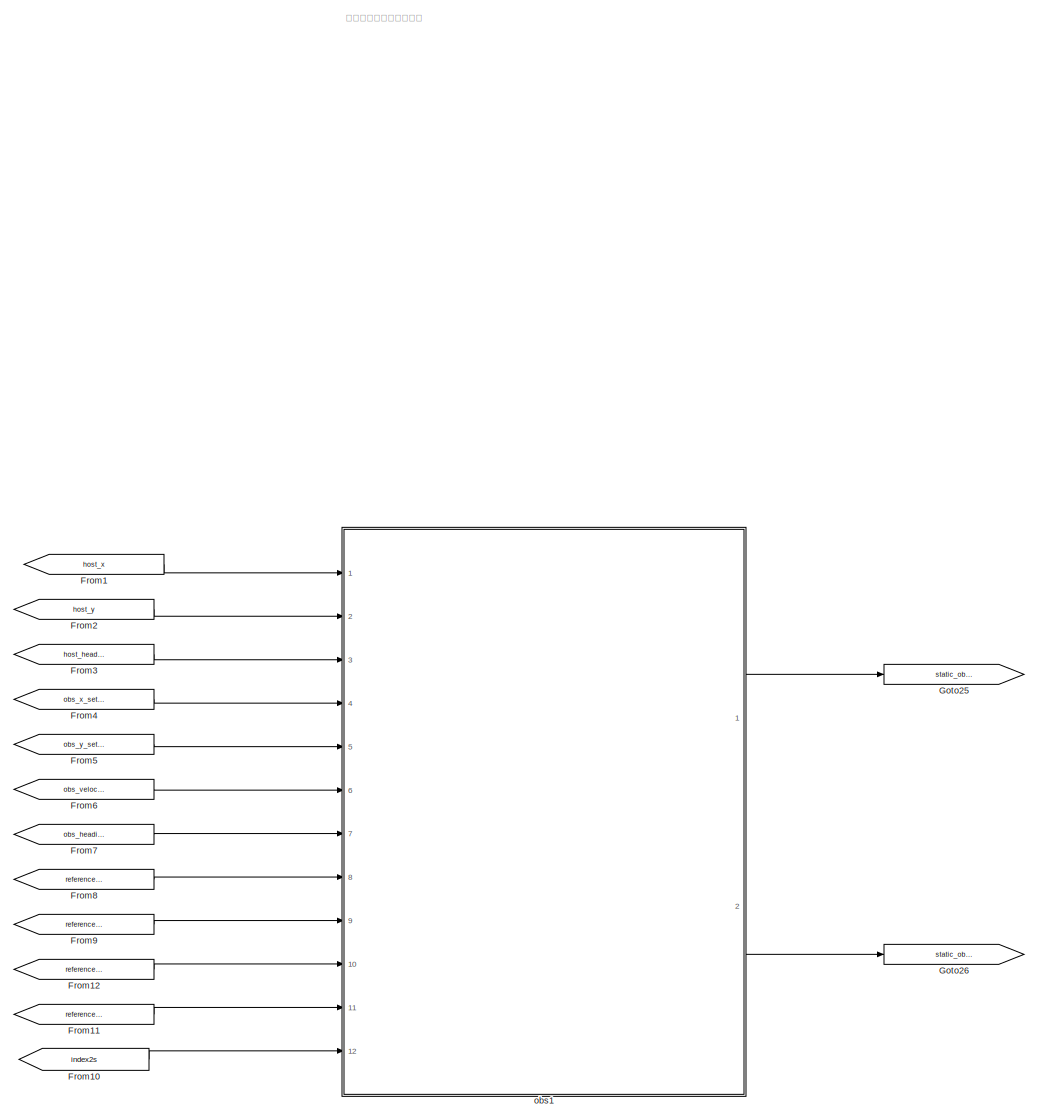
[diagram: Audi_A8_Sedan_1/decision&planning module/EM Planner - part 1/16, top center region]
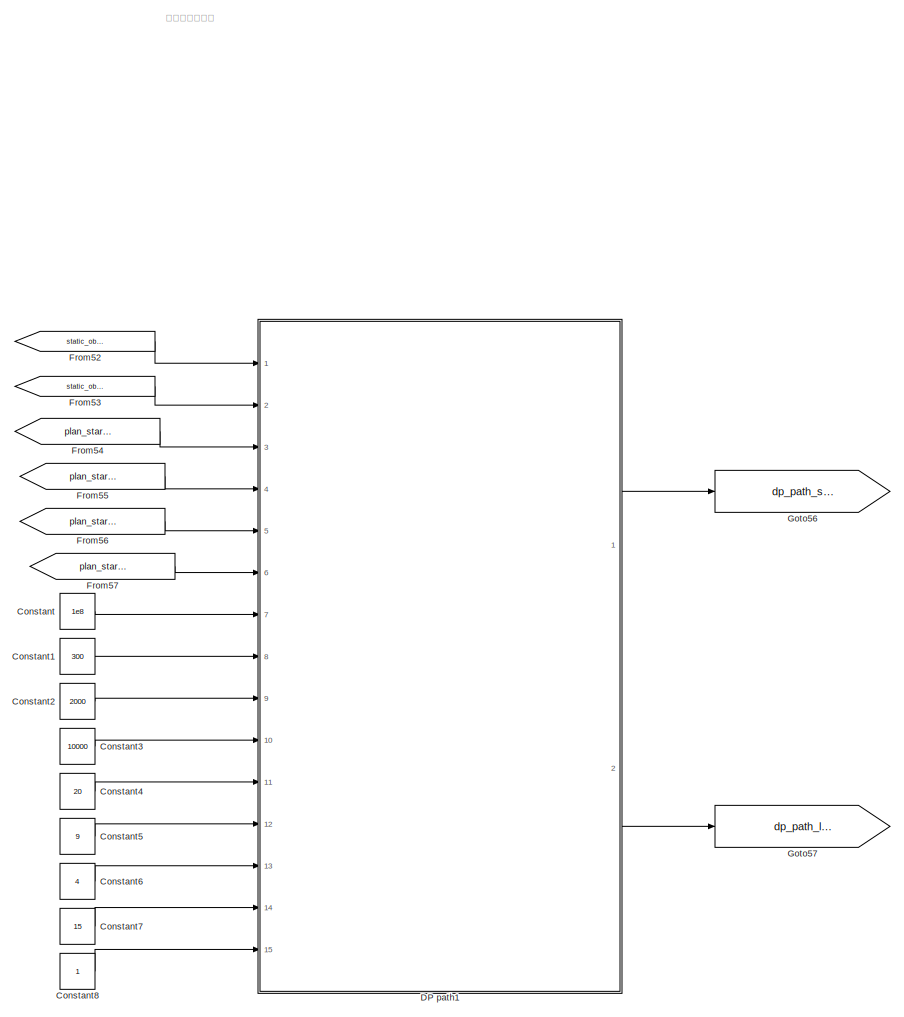
[diagram: Audi_A8_Sedan_1/decision&planning module/EM Planner - part 2/16, top right region]
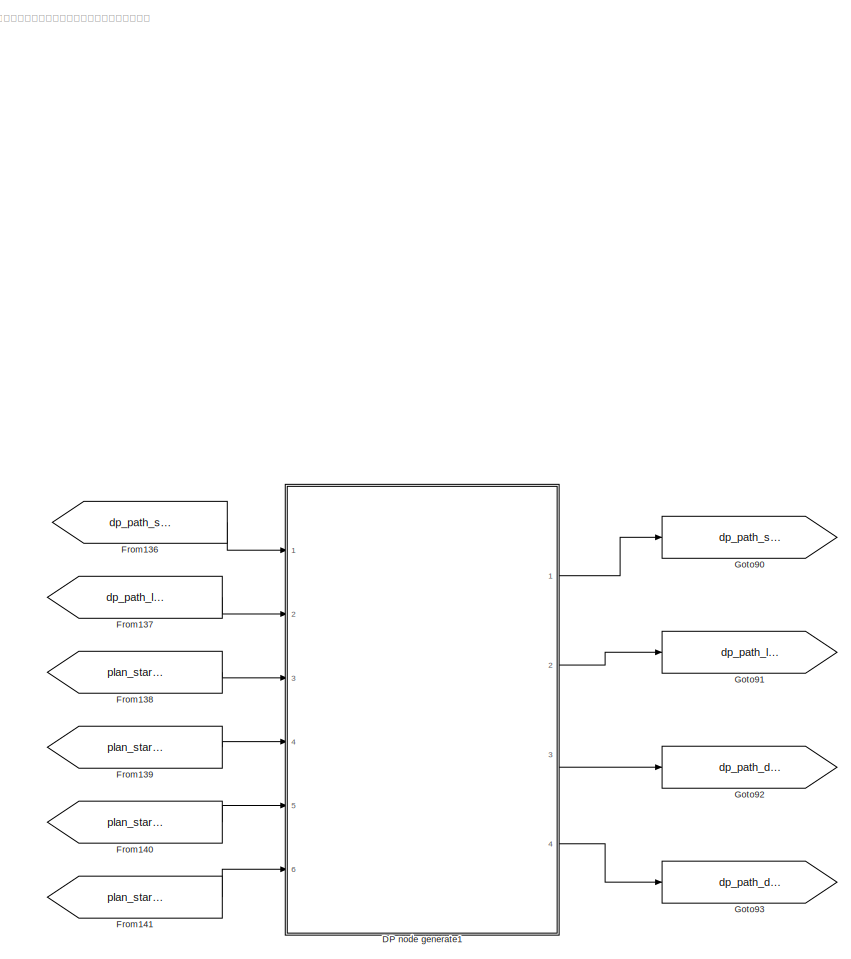
[diagram: Audi_A8_Sedan_1/decision&planning module/EM Planner - part 3/16, top right region]
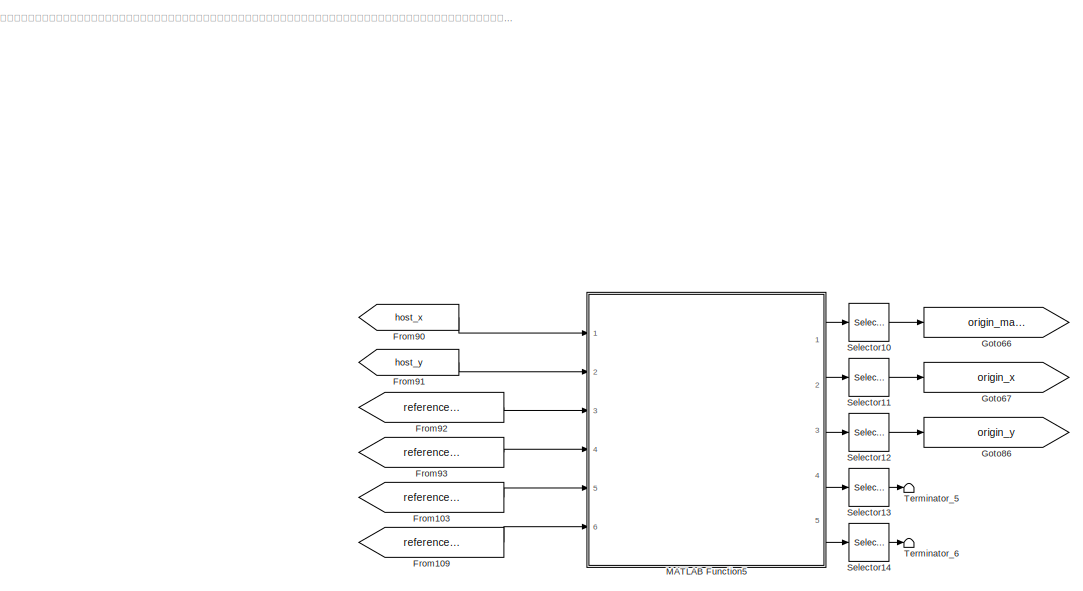
[diagram: Audi_A8_Sedan_1/decision&planning module/EM Planner - part 4/16, top left region]
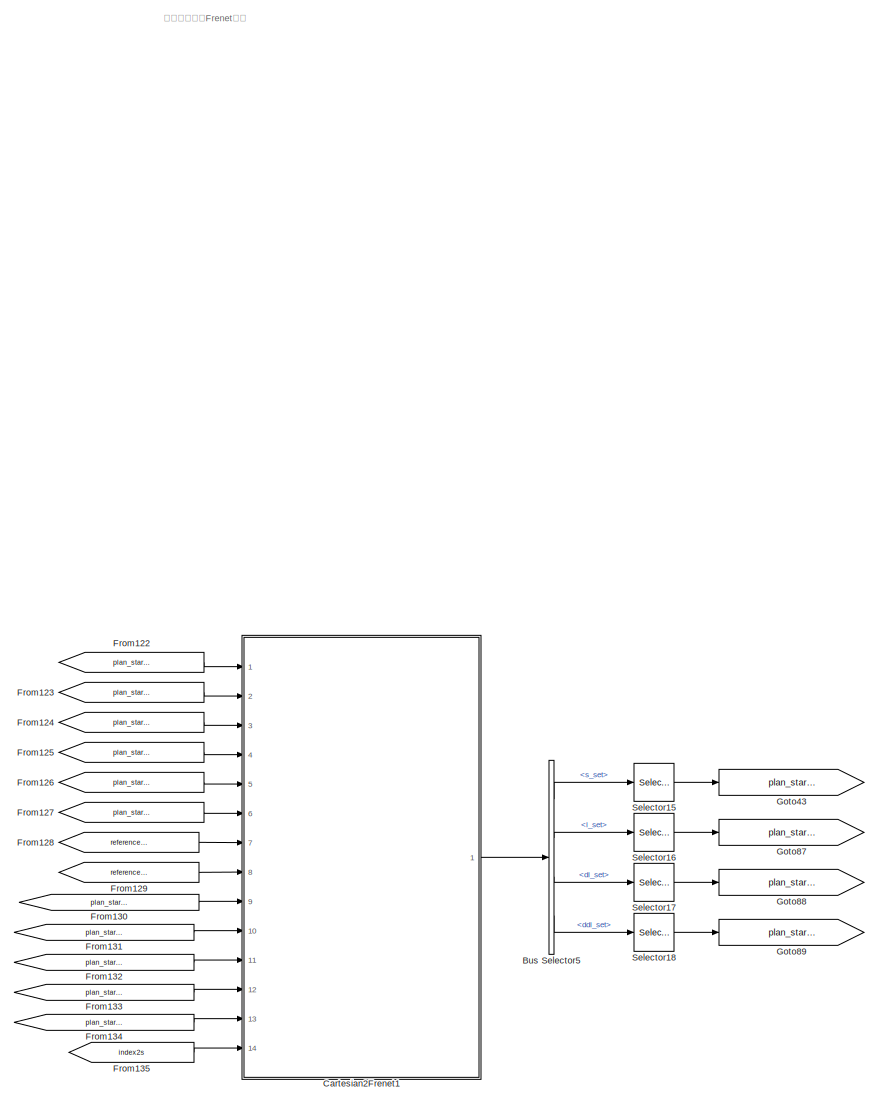
[diagram: Audi_A8_Sedan_1/decision&planning module/EM Planner - part 5/16, top center region]
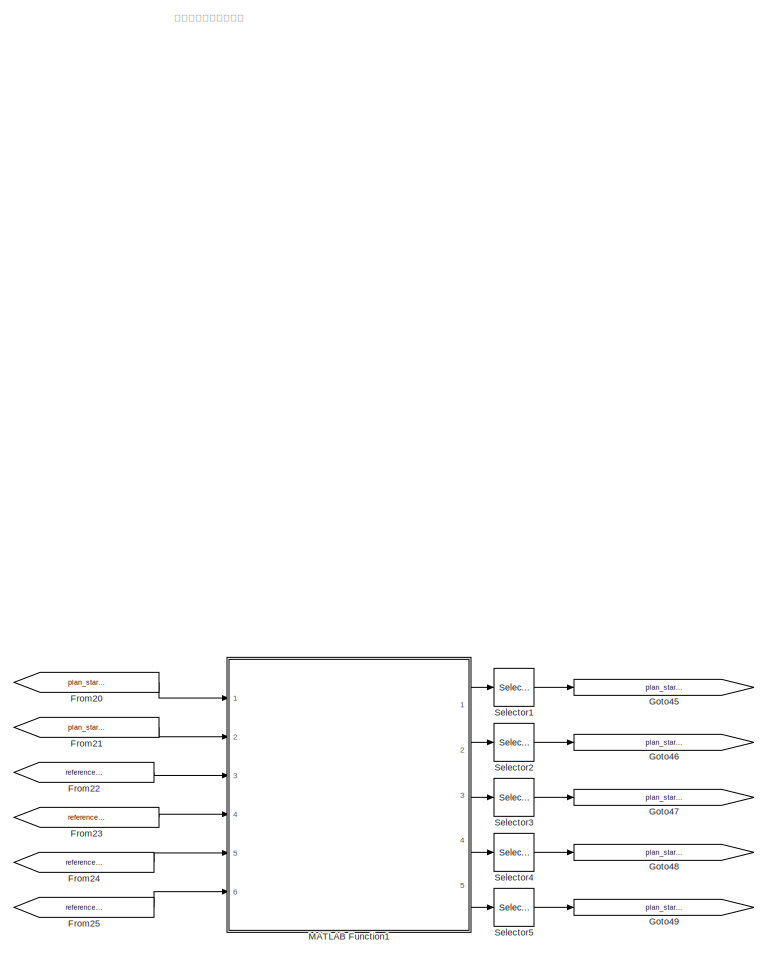
[diagram: Audi_A8_Sedan_1/decision&planning module/EM Planner - part 6/16, top center region]
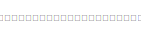
[diagram: Audi_A8_Sedan_1/decision&planning module/EM Planner - part 7/16, top left region]
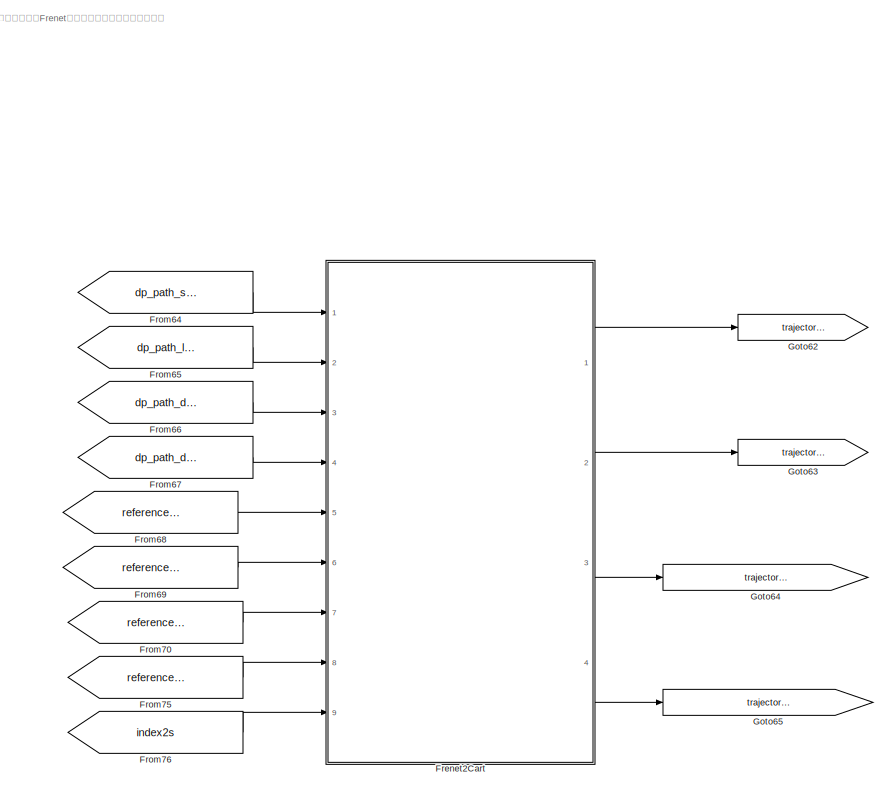
[diagram: Audi_A8_Sedan_1/decision&planning module/EM Planner - part 8/16, top right region]
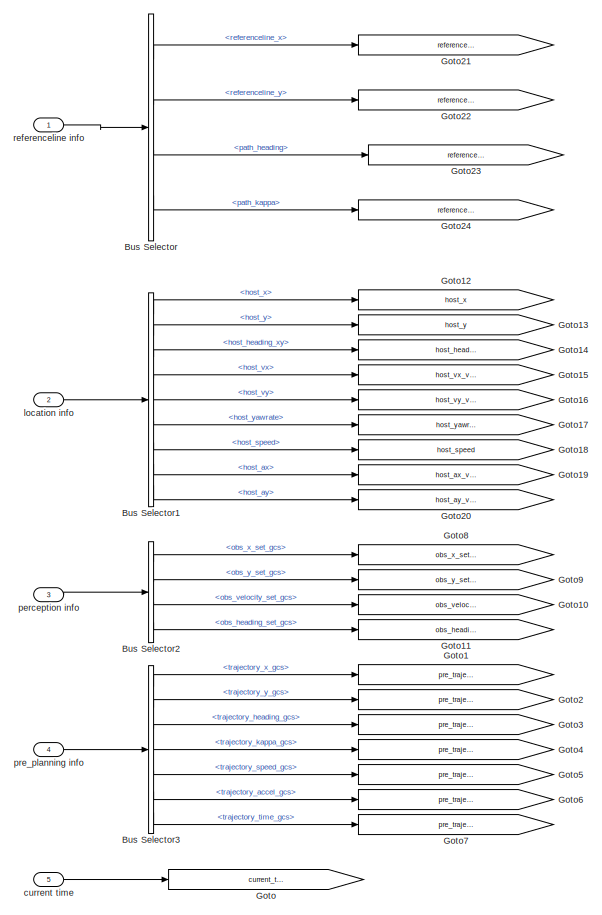
[diagram: Audi_A8_Sedan_1/decision&planning module/EM Planner - part 9/16, top left region]
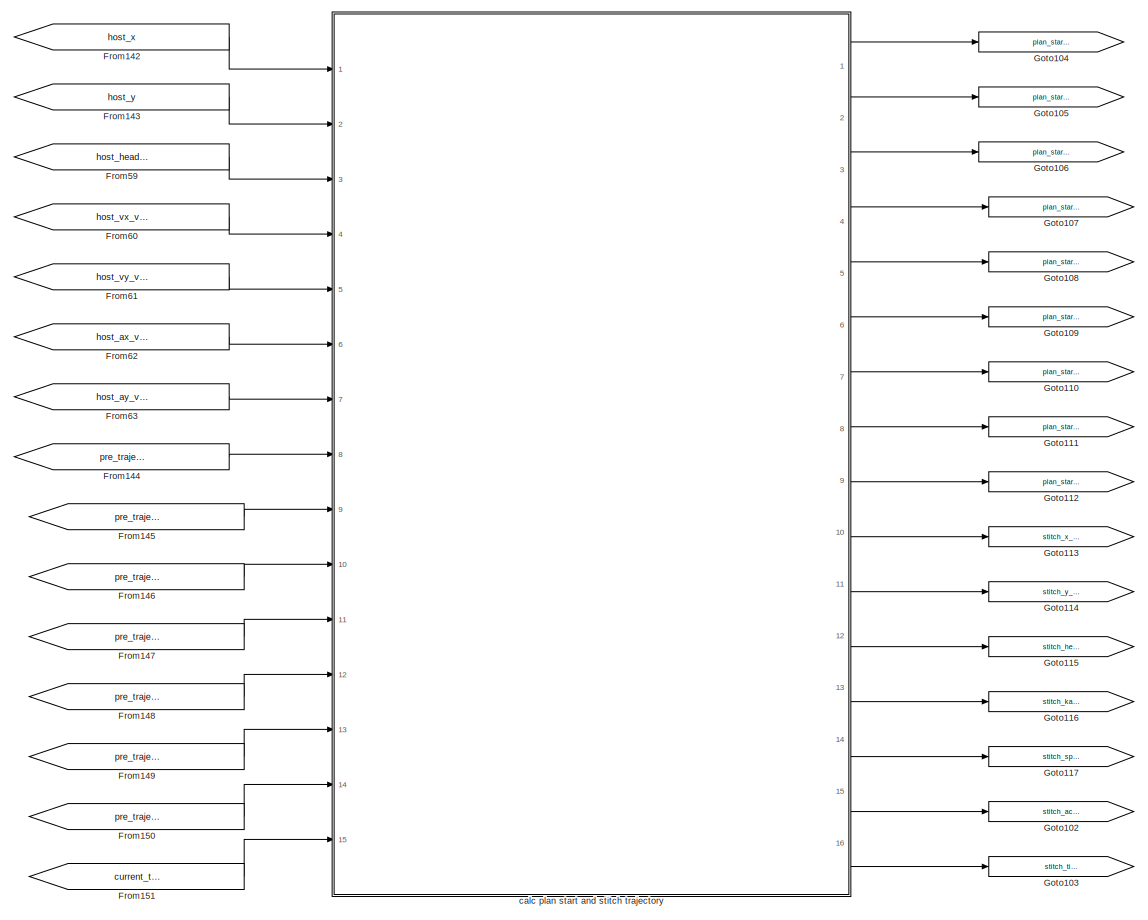
[diagram: Audi_A8_Sedan_1/decision&planning module/EM Planner - part 10/16, middle left region]
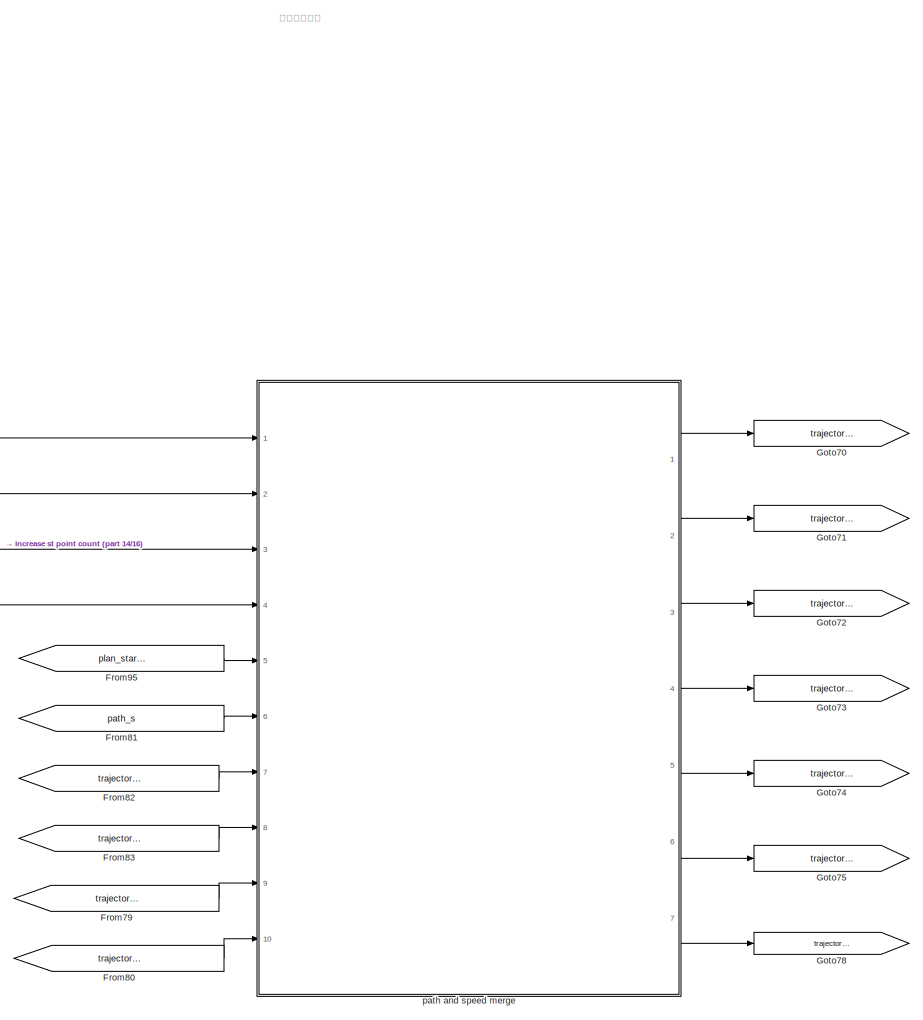
[diagram: Audi_A8_Sedan_1/decision&planning module/EM Planner - part 11/16, bottom right region]
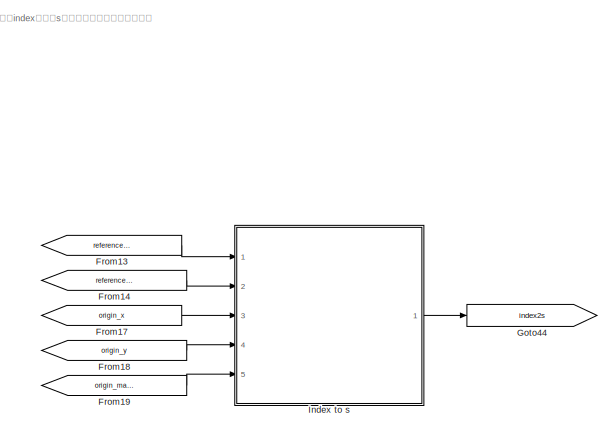
[diagram: Audi_A8_Sedan_1/decision&planning module/EM Planner - part 12/16, bottom left region]
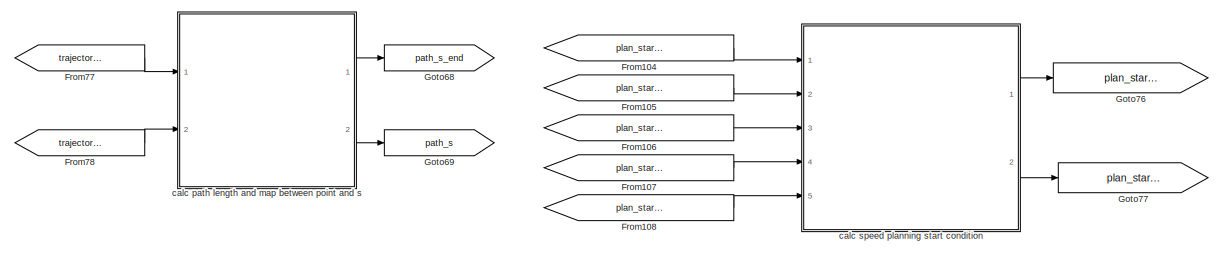
[diagram: Audi_A8_Sedan_1/decision&planning module/EM Planner - part 13/16, bottom center region]
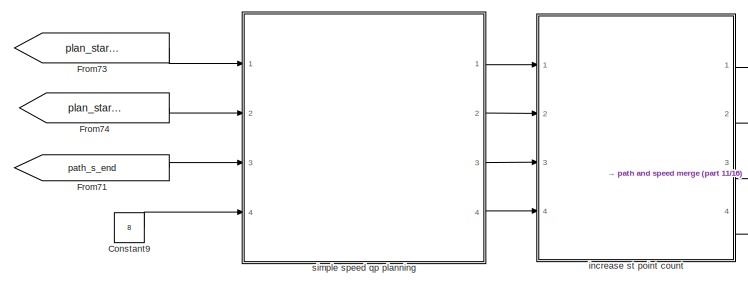
[diagram: Audi_A8_Sedan_1/decision&planning module/EM Planner - part 14/16, bottom center region]
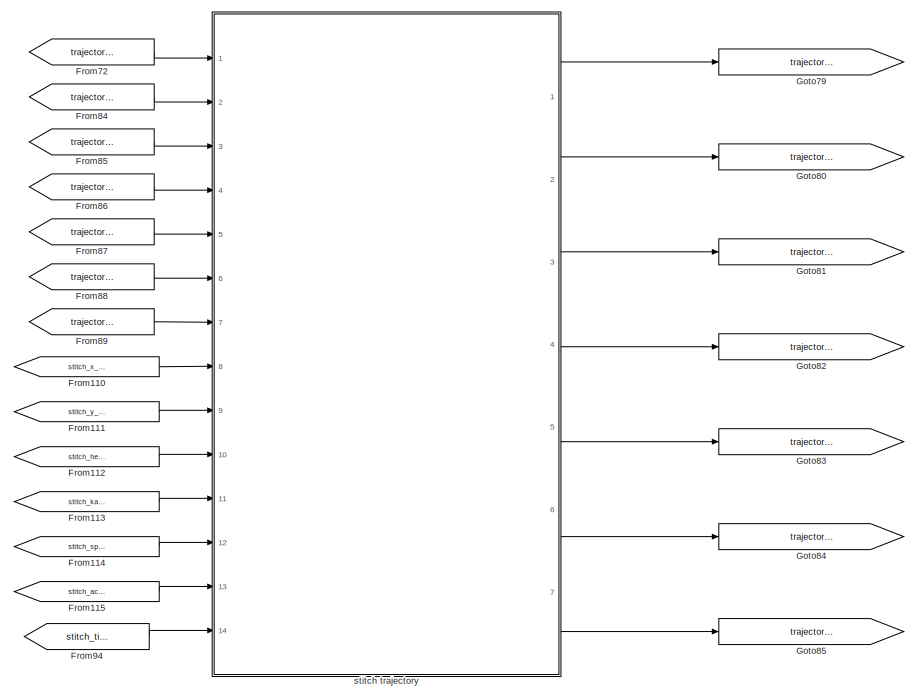
[diagram: Audi_A8_Sedan_1/decision&planning module/EM Planner - part 15/16, bottom right region]
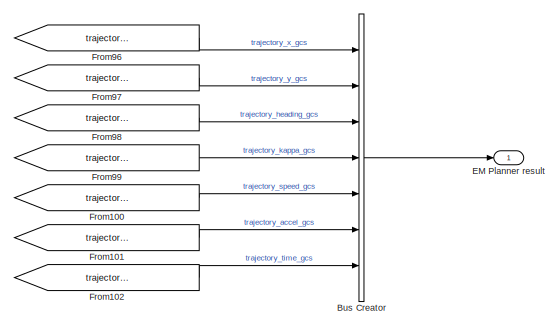
[diagram: Audi_A8_Sedan_1/decision&planning module/EM Planner - part 16/16, bottom right region]
BLOCK [SubSystem] Audi_A8_Sedan_1/decision&planning module/EM Planner
  Ports = [5, 1]
  RequestExecContextInheritance = off
BLOCK [BusCreator] Audi_A8_Sedan_1/decision&planning module/EM Planner/Bus Creator
  DisplayOption = bar
  InheritFromInputs = on
  Inputs = 7
  Ports = [7, 1]
BLOCK [BusSelector] Audi_A8_Sedan_1/decision&planning module/EM Planner/Bus Selector
  OutputSignals = referenceline_x,referenceline_y,path_heading,path_kappa
  Ports = [1, 4]
BLOCK [BusSelector] Audi_A8_Sedan_1/decision&planning module/EM Planner/Bus Selector1
  OutputSignals = host_x,host_y,host_heading_xy,host_vx,host_vy,host_yawrate,host_speed,host_ax,host_ay
  Ports = [1, 9]
BLOCK [BusSelector] Audi_A8_Sedan_1/decision&planning module/EM Planner/Bus Selector2
  OutputSignals = obs_x_set_gcs,obs_y_set_gcs,obs_velocity_set_gcs,obs_heading_set_gcs
  Ports = [1, 4]
BLOCK [BusSelector] Audi_A8_Sedan_1/decision&planning module/EM Planner/Bus Selector3
  OutputSignals = trajectory_x_gcs,trajectory_y_gcs,trajectory_heading_gcs,trajectory_kappa_gcs,trajectory_speed_gcs,trajectory_accel_gcs,trajectory_time_gcs
  Ports = [1, 7]
BLOCK [BusSelector] Audi_A8_Sedan_1/decision&planning module/EM Planner/Bus Selector5
  OutputSignals = s_set,l_set,dl_set,ddl_set
  Ports = [1, 4]
BLOCK [SubSystem] Audi_A8_Sedan_1/decision&planning module/EM Planner/Cartesian2Frenet1
  Ports = [14, 1]
  RequestExecContextInheritance = off
BLOCK [BusCreator] Audi_A8_Sedan_1/decision&planning module/EM Planner/Cartesian2Frenet1/Bus Creator
  DisplayOption = bar
  InheritFromInputs = on
  Inputs = 8
  Ports = [8, 1]
BLOCK [Outport] Audi_A8_Sedan_1/decision&planning module/EM Planner/Cartesian2Frenet1/Cartesian2FrenetOut
BLOCK [From] Audi_A8_Sedan_1/decision&planning module/EM Planner/Cartesian2Frenet1/From
  GotoTag = x_set
BLOCK [From] Audi_A8_Sedan_1/decision&planning module/EM Planner/Cartesian2Frenet1/From1
  GotoTag = y_set
BLOCK [From] Audi_A8_Sedan_1/decision&planning module/EM Planner/Cartesian2Frenet1/From10
  GotoTag = vx_set
BLOCK [From] Audi_A8_Sedan_1/decision&planning module/EM Planner/Cartesian2Frenet1/From11
  GotoTag = vy_set
BLOCK [From] Audi_A8_Sedan_1/decision&planning module/EM Planner/Cartesian2Frenet1/From12
  GotoTag = proj_heading_set
BLOCK [From] Audi_A8_Sedan_1/decision&planning module/EM Planner/Cartesian2Frenet1/From13
  GotoTag = proj_kappa_set
BLOCK [From] Audi_A8_Sedan_1/decision&planning module/EM Planner/Cartesian2Frenet1/From14
  GotoTag = ax_set
BLOCK [From] Audi_A8_Sedan_1/decision&planning module/EM Planner/Cartesian2Frenet1/From15
  GotoTag = ay_set
BLOCK [From] Audi_A8_Sedan_1/decision&planning module/EM Planner/Cartesian2Frenet1/From16
  GotoTag = proj_heading_set
BLOCK [From] Audi_A8_Sedan_1/decision&planning module/EM Planner/Cartesian2Frenet1/From17
  GotoTag = proj_kappa_set
BLOCK [From] Audi_A8_Sedan_1/decision&planning module/EM Planner/Cartesian2Frenet1/From18
  GotoTag = l_set
BLOCK [From] Audi_A8_Sedan_1/decision&planning module/EM Planner/Cartesian2Frenet1/From19
  GotoTag = s_dot_set
BLOCK [From] Audi_A8_Sedan_1/decision&planning module/EM Planner/Cartesian2Frenet1/From2
  GotoTag = frenet_path_x
BLOCK [From] Audi_A8_Sedan_1/decision&planning module/EM Planner/Cartesian2Frenet1/From20
  GotoTag = dl_set
BLOCK [From] Audi_A8_Sedan_1/decision&planning module/EM Planner/Cartesian2Frenet1/From21
  GotoTag = s_set
BLOCK [From] Audi_A8_Sedan_1/decision&planning module/EM Planner/Cartesian2Frenet1/From22
  GotoTag = l_set
BLOCK [From] Audi_A8_Sedan_1/decision&planning module/EM Planner/Cartesian2Frenet1/From23
  GotoTag = s_dot_set
BLOCK [From] Audi_A8_Sedan_1/decision&planning module/EM Planner/Cartesian2Frenet1/From24
  GotoTag = l_dot_set
BLOCK [From] Audi_A8_Sedan_1/decision&planning module/EM Planner/Cartesian2Frenet1/From25
  GotoTag = dl_set
BLOCK [From] Audi_A8_Sedan_1/decision&planning module/EM Planner/Cartesian2Frenet1/From26
  GotoTag = s_dot2_set
BLOCK [From] Audi_A8_Sedan_1/decision&planning module/EM Planner/Cartesian2Frenet1/From27
  GotoTag = l_dot2_set
BLOCK [From] Audi_A8_Sedan_1/decision&planning module/EM Planner/Cartesian2Frenet1/From28
  GotoTag = ddl_set
BLOCK [From] Audi_A8_Sedan_1/decision&planning module/EM Planner/Cartesian2Frenet1/From3
  GotoTag = frenet_path_y
BLOCK [From] Audi_A8_Sedan_1/decision&planning module/EM Planner/Cartesian2Frenet1/From4
  GotoTag = proj_x_set
BLOCK [From] Audi_A8_Sedan_1/decision&planning module/EM Planner/Cartesian2Frenet1/From5
  GotoTag = proj_y_set
BLOCK [From] Audi_A8_Sedan_1/decision&planning module/EM Planner/Cartesian2Frenet1/From6
  GotoTag = proj_heading_set
BLOCK [From] Audi_A8_Sedan_1/decision&planning module/EM Planner/Cartesian2Frenet1/From7
  GotoTag = l_set
BLOCK [From] Audi_A8_Sedan_1/decision&planning module/EM Planner/Cartesian2Frenet1/From8
  GotoTag = index2s
BLOCK [From] Audi_A8_Sedan_1/decision&planning module/EM Planner/Cartesian2Frenet1/From9
  GotoTag = proj_match_point_index_set
BLOCK [Goto] Audi_A8_Sedan_1/decision&planning module/EM Planner/Cartesian2Frenet1/Goto
  GotoTag = x_set
BLOCK [Goto] Audi_A8_Sedan_1/decision&planning module/EM Planner/Cartesian2Frenet1/Goto1
  GotoTag = y_set
BLOCK [Goto] Audi_A8_Sedan_1/decision&planning module/EM Planner/Cartesian2Frenet1/Goto10
  GotoTag = proj_y_set
BLOCK [Goto] Audi_A8_Sedan_1/decision&planning module/EM Planner/Cartesian2Frenet1/Goto11
  GotoTag = proj_heading_set
BLOCK [Goto] Audi_A8_Sedan_1/decision&planning module/EM Planner/Cartesian2Frenet1/Goto12
  GotoTag = proj_kappa_set
BLOCK [Goto] Audi_A8_Sedan_1/decision&planning module/EM Planner/Cartesian2Frenet1/Goto13
  GotoTag = index2s
BLOCK [Goto] Audi_A8_Sedan_1/decision&planning module/EM Planner/Cartesian2Frenet1/Goto14
  GotoTag = s_set
BLOCK [Goto] Audi_A8_Sedan_1/decision&planning module/EM Planner/Cartesian2Frenet1/Goto15
  GotoTag = l_set
BLOCK [Goto] Audi_A8_Sedan_1/decision&planning module/EM Planner/Cartesian2Frenet1/Goto16
  GotoTag = s_dot_set
BLOCK [Goto] Audi_A8_Sedan_1/decision&planning module/EM Planner/Cartesian2Frenet1/Goto17
  GotoTag = l_dot_set
BLOCK [Goto] Audi_A8_Sedan_1/decision&planning module/EM Planner/Cartesian2Frenet1/Goto18
  GotoTag = dl_set
BLOCK [Goto] Audi_A8_Sedan_1/decision&planning module/EM Planner/Cartesian2Frenet1/Goto19
  GotoTag = s_dot2_set
BLOCK [Goto] Audi_A8_Sedan_1/decision&planning module/EM Planner/Cartesian2Frenet1/Goto2
  GotoTag = vx_set
BLOCK [Goto] Audi_A8_Sedan_1/decision&planning module/EM Planner/Cartesian2Frenet1/Goto20
  GotoTag = l_dot2_set
BLOCK [Goto] Audi_A8_Sedan_1/decision&planning module/EM Planner/Cartesian2Frenet1/Goto21
  GotoTag = ddl_set
BLOCK [Goto] Audi_A8_Sedan_1/decision&planning module/EM Planner/Cartesian2Frenet1/Goto3
  GotoTag = vy_set
BLOCK [Goto] Audi_A8_Sedan_1/decision&planning module/EM Planner/Cartesian2Frenet1/Goto4
  GotoTag = ax_set
BLOCK [Goto] Audi_A8_Sedan_1/decision&planning module/EM Planner/Cartesian2Frenet1/Goto5
  GotoTag = ay_set
BLOCK [Goto] Audi_A8_Sedan_1/decision&planning module/EM Planner/Cartesian2Frenet1/Goto6
  GotoTag = frenet_path_x
BLOCK [Goto] Audi_A8_Sedan_1/decision&planning module/EM Planner/Cartesian2Frenet1/Goto7
  GotoTag = frenet_path_y
BLOCK [Goto] Audi_A8_Sedan_1/decision&planning module/EM Planner/Cartesian2Frenet1/Goto8
  GotoTag = proj_match_point_index_set
BLOCK [Goto] Audi_A8_Sedan_1/decision&planning module/EM Planner/Cartesian2Frenet1/Goto9
  GotoTag = proj_x_set
BLOCK [SubSystem] Audi_A8_Sedan_1/decision&planning module/EM Planner/Cartesian2Frenet1/MATLAB Function
  ErrorFcn = Stateflow.Translate.translate
  PermitHierarchicalResolution = ExplicitOnly
  Ports = [9, 2]
  RequestExecContextInheritance = off
  SFBlockType = MATLAB Function
  TreatAsAtomicUnit = on
BLOCK [Demux] Audi_A8_Sedan_1/decision&planning module/EM Planner/Cartesian2Frenet1/MATLAB Function/ Demux 
  Outputs = 1
  Ports = [1, 1]
BLOCK [S-Function] Audi_A8_Sedan_1/decision&planning module/EM Planner/Cartesian2Frenet1/MATLAB Function/ SFunction 
  EnableBusSupport = on
  FunctionName = sf_sfun
  PortCounts = [9 3]
  Ports = [9, 3]
  SFcnIsStateOwnerBlock = off
  SFunctionDeploymentMode = off
  Tag = Stateflow S-Function 4
BLOCK [Terminator] Audi_A8_Sedan_1/decision&planning module/EM Planner/Cartesian2Frenet1/MATLAB Function/ Terminator 
BLOCK [Inport] Audi_A8_Sedan_1/decision&planning module/EM Planner/Cartesian2Frenet1/MATLAB Function/frenet_path_x
  Port = 3
BLOCK [Inport] Audi_A8_Sedan_1/decision&planning module/EM Planner/Cartesian2Frenet1/MATLAB Function/frenet_path_y
  Port = 4
BLOCK [Inport] Audi_A8_Sedan_1/decision&planning module/EM Planner/Cartesian2Frenet1/MATLAB Function/index2s
  Port = 9
BLOCK [Outport] Audi_A8_Sedan_1/decision&planning module/EM Planner/Cartesian2Frenet1/MATLAB Function/l_set
  Port = 2
BLOCK [Inport] Audi_A8_Sedan_1/decision&planning module/EM Planner/Cartesian2Frenet1/MATLAB Function/proj_heading_set
  Port = 7
BLOCK [Inport] Audi_A8_Sedan_1/decision&planning module/EM Planner/Cartesian2Frenet1/MATLAB Function/proj_match_point_index_set
  Port = 8
BLOCK [Inport] Audi_A8_Sedan_1/decision&planning module/EM Planner/Cartesian2Frenet1/MATLAB Function/proj_x_set
  Port = 5
BLOCK [Inport] Audi_A8_Sedan_1/decision&planning module/EM Planner/Cartesian2Frenet1/MATLAB Function/proj_y_set
  Port = 6
BLOCK [Outport] Audi_A8_Sedan_1/decision&planning module/EM Planner/Cartesian2Frenet1/MATLAB Function/s_set
BLOCK [Inport] Audi_A8_Sedan_1/decision&planning module/EM Planner/Cartesian2Frenet1/MATLAB Function/x_set
BLOCK [Inport] Audi_A8_Sedan_1/decision&planning module/EM Planner/Cartesian2Frenet1/MATLAB Function/y_set
  Port = 2
BLOCK [SubSystem] Audi_A8_Sedan_1/decision&planning module/EM Planner/Cartesian2Frenet1/MATLAB Function1
  ErrorFcn = Stateflow.Translate.translate
  PermitHierarchicalResolution = ExplicitOnly
  Ports = [5, 3]
  RequestExecContextInheritance = off
  SFBlockType = MATLAB Function
  TreatAsAtomicUnit = on
BLOCK [Demux] Audi_A8_Sedan_1/decision&planning module/EM Planner/Cartesian2Frenet1/MATLAB Function1/ Demux 
  Outputs = 1
  Ports = [1, 1]
BLOCK [S-Function] Audi_A8_Sedan_1/decision&planning module/EM Planner/Cartesian2Frenet1/MATLAB Function1/ SFunction 
  EnableBusSupport = on
  FunctionName = sf_sfun
  PortCounts = [5 4]
  Ports = [5, 4]
  SFcnIsStateOwnerBlock = off
  SFunctionDeploymentMode = off
  Tag = Stateflow S-Function 5
BLOCK [Terminator] Audi_A8_Sedan_1/decision&planning module/EM Planner/Cartesian2Frenet1/MATLAB Function1/ Terminator 
BLOCK [Outport] Audi_A8_Sedan_1/decision&planning module/EM Planner/Cartesian2Frenet1/MATLAB Function1/dl_set
  Port = 3
BLOCK [Outport] Audi_A8_Sedan_1/decision&planning module/EM Planner/Cartesian2Frenet1/MATLAB Function1/l_dot_set
  Port = 2
BLOCK [Inport] Audi_A8_Sedan_1/decision&planning module/EM Planner/Cartesian2Frenet1/MATLAB Function1/l_set
BLOCK [Inport] Audi_A8_Sedan_1/decision&planning module/EM Planner/Cartesian2Frenet1/MATLAB Function1/proj_heading_set
  Port = 4
BLOCK [Inport] Audi_A8_Sedan_1/decision&planning module/EM Planner/Cartesian2Frenet1/MATLAB Function1/proj_kappa_set
  Port = 5
BLOCK [Outport] Audi_A8_Sedan_1/decision&planning module/EM Planner/Cartesian2Frenet1/MATLAB Function1/s_dot_set
BLOCK [Inport] Audi_A8_Sedan_1/decision&planning module/EM Planner/Cartesian2Frenet1/MATLAB Function1/vx_set
  Port = 2
BLOCK [Inport] Audi_A8_Sedan_1/decision&planning module/EM Planner/Cartesian2Frenet1/MATLAB Function1/vy_set
  Port = 3
BLOCK [SubSystem] Audi_A8_Sedan_1/decision&planning module/EM Planner/Cartesian2Frenet1/MATLAB Function2
  ErrorFcn = Stateflow.Translate.translate
  PermitHierarchicalResolution = ExplicitOnly
  Ports = [7, 3]
  RequestExecContextInheritance = off
  SFBlockType = MATLAB Function
  TreatAsAtomicUnit = on
BLOCK [Demux] Audi_A8_Sedan_1/decision&planning module/EM Planner/Cartesian2Frenet1/MATLAB Function2/ Demux 
  Outputs = 1
  Ports = [1, 1]
BLOCK [S-Function] Audi_A8_Sedan_1/decision&planning module/EM Planner/Cartesian2Frenet1/MATLAB Function2/ SFunction 
  EnableBusSupport = on
  FunctionName = sf_sfun
  PortCounts = [7 4]
  Ports = [7, 4]
  SFcnIsStateOwnerBlock = off
  SFunctionDeploymentMode = off
  Tag = Stateflow S-Function 6
BLOCK [Terminator] Audi_A8_Sedan_1/decision&planning module/EM Planner/Cartesian2Frenet1/MATLAB Function2/ Terminator 
BLOCK [Inport] Audi_A8_Sedan_1/decision&planning module/EM Planner/Cartesian2Frenet1/MATLAB Function2/ax_set
BLOCK [Inport] Audi_A8_Sedan_1/decision&planning module/EM Planner/Cartesian2Frenet1/MATLAB Function2/ay_set
  Port = 2
BLOCK [Outport] Audi_A8_Sedan_1/decision&planning module/EM Planner/Cartesian2Frenet1/MATLAB Function2/ddl_set
  Port = 3
BLOCK [Inport] Audi_A8_Sedan_1/decision&planning module/EM Planner/Cartesian2Frenet1/MATLAB Function2/dl_set
  Port = 7
BLOCK [Outport] Audi_A8_Sedan_1/decision&planning module/EM Planner/Cartesian2Frenet1/MATLAB Function2/l_dot2_set
  Port = 2
BLOCK [Inport] Audi_A8_Sedan_1/decision&planning module/EM Planner/Cartesian2Frenet1/MATLAB Function2/l_set
  Port = 5
BLOCK [Inport] Audi_A8_Sedan_1/decision&planning module/EM Planner/Cartesian2Frenet1/MATLAB Function2/proj_heading_set
  Port = 3
BLOCK [Inport] Audi_A8_Sedan_1/decision&planning module/EM Planner/Cartesian2Frenet1/MATLAB Function2/proj_kappa_set
  Port = 4
BLOCK [Outport] Audi_A8_Sedan_1/decision&planning module/EM Planner/Cartesian2Frenet1/MATLAB Function2/s_dot2_set
BLOCK [Inport] Audi_A8_Sedan_1/decision&planning module/EM Planner/Cartesian2Frenet1/MATLAB Function2/s_dot_set
  Port = 6
BLOCK [Inport] Audi_A8_Sedan_1/decision&planning module/EM Planner/Cartesian2Frenet1/ax_set
  Port = 5
BLOCK [Inport] Audi_A8_Sedan_1/decision&planning module/EM Planner/Cartesian2Frenet1/ay_set
  Port = 6
BLOCK [Inport] Audi_A8_Sedan_1/decision&planning module/EM Planner/Cartesian2Frenet1/frenet_path_x
  Port = 7
BLOCK [Inport] Audi_A8_Sedan_1/decision&planning module/EM Planner/Cartesian2Frenet1/frenet_path_y
  Port = 8
BLOCK [Inport] Audi_A8_Sedan_1/decision&planning module/EM Planner/Cartesian2Frenet1/index2s
  Port = 14
BLOCK [Inport] Audi_A8_Sedan_1/decision&planning module/EM Planner/Cartesian2Frenet1/proj_heading_set
  Port = 12
BLOCK [Inport] Audi_A8_Sedan_1/decision&planning module/EM Planner/Cartesian2Frenet1/proj_kappa_set
  Port = 13
BLOCK [Inport] Audi_A8_Sedan_1/decision&planning module/EM Planner/Cartesian2Frenet1/proj_match_point_index_set
  Port = 9
BLOCK [Inport] Audi_A8_Sedan_1/decision&planning module/EM Planner/Cartesian2Frenet1/proj_x_set
  Port = 10
BLOCK [Inport] Audi_A8_Sedan_1/decision&planning module/EM Planner/Cartesian2Frenet1/proj_y_set
  Port = 11
BLOCK [Inport] Audi_A8_Sedan_1/decision&planning module/EM Planner/Cartesian2Frenet1/vx_set
  Port = 3
BLOCK [Inport] Audi_A8_Sedan_1/decision&planning module/EM Planner/Cartesian2Frenet1/vy_set
  Port = 4
BLOCK [Inport] Audi_A8_Sedan_1/decision&planning module/EM Planner/Cartesian2Frenet1/x_set
BLOCK [Inport] Audi_A8_Sedan_1/decision&planning module/EM Planner/Cartesian2Frenet1/y_set
  Port = 2
BLOCK [Constant] Audi_A8_Sedan_1/decision&planning module/EM Planner/Constant
  Value = 1e8
BLOCK [Constant] Audi_A8_Sedan_1/decision&planning module/EM Planner/Constant1
  Value = 300
BLOCK [Constant] Audi_A8_Sedan_1/decision&planning module/EM Planner/Constant2
  Value = 2000
BLOCK [Constant] Audi_A8_Sedan_1/decision&planning module/EM Planner/Constant3
  Value = 10000
BLOCK [Constant] Audi_A8_Sedan_1/decision&planning module/EM Planner/Constant4
  Value = 20
BLOCK [Constant] Audi_A8_Sedan_1/decision&planning module/EM Planner/Constant5
  Value = 9
BLOCK [Constant] Audi_A8_Sedan_1/decision&planning module/EM Planner/Constant6
  Value = 4
BLOCK [Constant] Audi_A8_Sedan_1/decision&planning module/EM Planner/Constant7
  Value = 15
BLOCK [Constant] Audi_A8_Sedan_1/decision&planning module/EM Planner/Constant8
BLOCK [Constant] Audi_A8_Sedan_1/decision&planning module/EM Planner/Constant9
  Value = 8
BLOCK [SubSystem] Audi_A8_Sedan_1/decision&planning module/EM Planner/DP node generate1
  ErrorFcn = Stateflow.Translate.translate
  PermitHierarchicalResolution = ExplicitOnly
  Ports = [6, 4]
  RequestExecContextInheritance = off
  SFBlockType = MATLAB Function
  TreatAsAtomicUnit = on
BLOCK [Demux] Audi_A8_Sedan_1/decision&planning module/EM Planner/DP node generate1/ Demux 
  Outputs = 1
  Ports = [1, 1]
BLOCK [S-Function] Audi_A8_Sedan_1/decision&planning module/EM Planner/DP node generate1/ SFunction 
  EnableBusSupport = on
  FunctionName = sf_sfun
  PortCounts = [6 5]
  Ports = [6, 5]
  SFcnIsStateOwnerBlock = off
  SFunctionDeploymentMode = off
  Tag = Stateflow S-Function 7
BLOCK [Terminator] Audi_A8_Sedan_1/decision&planning module/EM Planner/DP node generate1/ Terminator 
BLOCK [Outport] Audi_A8_Sedan_1/decision&planning module/EM Planner/DP node generate1/dp_path_ddl_final
  Port = 4
BLOCK [Outport] Audi_A8_Sedan_1/decision&planning module/EM Planner/DP node generate1/dp_path_dl_final
  Port = 3
BLOCK [Outport] Audi_A8_Sedan_1/decision&planning module/EM Planner/DP node generate1/dp_path_l_final
  Port = 2
BLOCK [Inport] Audi_A8_Sedan_1/decision&planning module/EM Planner/DP node generate1/dp_path_l_init
  Port = 2
BLOCK [Outport] Audi_A8_Sedan_1/decision&planning module/EM Planner/DP node generate1/dp_path_s_final
BLOCK [Inport] Audi_A8_Sedan_1/decision&planning module/EM Planner/DP node generate1/dp_path_s_init
BLOCK [Inport] Audi_A8_Sedan_1/decision&planning module/EM Planner/DP node generate1/plan_start_ddl
  Port = 6
BLOCK [Inport] Audi_A8_Sedan_1/decision&planning module/EM Planner/DP node generate1/plan_start_dl
  Port = 5
BLOCK [Inport] Audi_A8_Sedan_1/decision&planning module/EM Planner/DP node generate1/plan_start_l
  Port = 4
BLOCK [Inport] Audi_A8_Sedan_1/decision&planning module/EM Planner/DP node generate1/plan_start_s
  Port = 3
BLOCK [SubSystem] Audi_A8_Sedan_1/decision&planning module/EM Planner/DP path1
  ErrorFcn = Stateflow.Translate.translate
  PermitHierarchicalResolution = ExplicitOnly
  Ports = [15, 2]
  RequestExecContextInheritance = off
  SFBlockType = MATLAB Function
  TreatAsAtomicUnit = on
BLOCK [Demux] Audi_A8_Sedan_1/decision&planning module/EM Planner/DP path1/ Demux 
  Outputs = 1
  Ports = [1, 1]
BLOCK [S-Function] Audi_A8_Sedan_1/decision&planning module/EM Planner/DP path1/ SFunction 
  EnableBusSupport = on
  FunctionName = sf_sfun
  PortCounts = [15 3]
  Ports = [15, 3]
  SFcnIsStateOwnerBlock = off
  SFunctionDeploymentMode = off
  Tag = Stateflow S-Function 1
BLOCK [Terminator] Audi_A8_Sedan_1/decision&planning module/EM Planner/DP path1/ Terminator 
BLOCK [Inport] Audi_A8_Sedan_1/decision&planning module/EM Planner/DP path1/col
  Port = 13
BLOCK [Outport] Audi_A8_Sedan_1/decision&planning module/EM Planner/DP path1/dp_path_l
  Port = 2
BLOCK [Outport] Audi_A8_Sedan_1/decision&planning module/EM Planner/DP path1/dp_path_s
BLOCK [Inport] Audi_A8_Sedan_1/decision&planning module/EM Planner/DP path1/obs_l_set
  Port = 2
BLOCK [Inport] Audi_A8_Sedan_1/decision&planning module/EM Planner/DP path1/obs_s_set
BLOCK [Inport] Audi_A8_Sedan_1/decision&planning module/EM Planner/DP path1/plan_start_ddl
  Port = 6
BLOCK [Inport] Audi_A8_Sedan_1/decision&planning module/EM Planner/DP path1/plan_start_dl
  Port = 5
BLOCK [Inport] Audi_A8_Sedan_1/decision&planning module/EM Planner/DP path1/plan_start_l
  Port = 4
BLOCK [Inport] Audi_A8_Sedan_1/decision&planning module/EM Planner/DP path1/plan_start_s
  Port = 3
BLOCK [Inport] Audi_A8_Sedan_1/decision&planning module/EM Planner/DP path1/row
  Port = 12
BLOCK [Inport] Audi_A8_Sedan_1/decision&planning module/EM Planner/DP path1/sample_l
  Port = 15
BLOCK [Inport] Audi_A8_Sedan_1/decision&planning module/EM Planner/DP path1/sample_s
  Port = 14
BLOCK [Inport] Audi_A8_Sedan_1/decision&planning module/EM Planner/DP path1/w_collision_cost
  Port = 7
BLOCK [Inport] Audi_A8_Sedan_1/decision&planning module/EM Planner/DP path1/w_ref_cost
  Port = 11
BLOCK [Inport] Audi_A8_Sedan_1/decision&planning module/EM Planner/DP path1/w_smooth_dddl_cost
  Port = 10
BLOCK [Inport] Audi_A8_Sedan_1/decision&planning module/EM Planner/DP path1/w_smooth_ddl_cost
  Port = 9
BLOCK [Inport] Audi_A8_Sedan_1/decision&planning module/EM Planner/DP path1/w_smooth_dl_cost
  Port = 8
BLOCK [Outport] Audi_A8_Sedan_1/decision&planning module/EM Planner/EM Planner result
BLOCK [SubSystem] Audi_A8_Sedan_1/decision&planning module/EM Planner/Frenet2Cart
  ErrorFcn = Stateflow.Translate.translate
  PermitHierarchicalResolution = ExplicitOnly
  Ports = [9, 4]
  RequestExecContextInheritance = off
  SFBlockType = MATLAB Function
  TreatAsAtomicUnit = on
BLOCK [Demux] Audi_A8_Sedan_1/decision&planning module/EM Planner/Frenet2Cart/ Demux 
  Outputs = 1
  Ports = [1, 1]
BLOCK [S-Function] Audi_A8_Sedan_1/decision&planning module/EM Planner/Frenet2Cart/ SFunction 
  EnableBusSupport = on
  FunctionName = sf_sfun
  PortCounts = [9 5]
  Ports = [9, 5]
  SFcnIsStateOwnerBlock = off
  SFunctionDeploymentMode = off
  Tag = Stateflow S-Function 12
BLOCK [Terminator] Audi_A8_Sedan_1/decision&planning module/EM Planner/Frenet2Cart/ Terminator 
BLOCK [Inport] Audi_A8_Sedan_1/decision&planning module/EM Planner/Frenet2Cart/ddl_set
  Port = 4
BLOCK [Inport] Audi_A8_Sedan_1/decision&planning module/EM Planner/Frenet2Cart/dl_set
  Port = 3
BLOCK [Inport] Audi_A8_Sedan_1/decision&planning module/EM Planner/Frenet2Cart/frenet_heading
  Port = 7
BLOCK [Inport] Audi_A8_Sedan_1/decision&planning module/EM Planner/Frenet2Cart/frenet_kappa
  Port = 8
BLOCK [Inport] Audi_A8_Sedan_1/decision&planning module/EM Planner/Frenet2Cart/frenet_l
  Port = 6
BLOCK [Inport] Audi_A8_Sedan_1/decision&planning module/EM Planner/Frenet2Cart/frenet_s
  Port = 5
BLOCK [Outport] Audi_A8_Sedan_1/decision&planning module/EM Planner/Frenet2Cart/heading_set
  Port = 3
BLOCK [Inport] Audi_A8_Sedan_1/decision&planning module/EM Planner/Frenet2Cart/index2s
  Port = 9
BLOCK [Outport] Audi_A8_Sedan_1/decision&planning module/EM Planner/Frenet2Cart/kappa_set
  Port = 4
BLOCK [Inport] Audi_A8_Sedan_1/decision&planning module/EM Planner/Frenet2Cart/l_set
  Port = 2
BLOCK [Inport] Audi_A8_Sedan_1/decision&planning module/EM Planner/Frenet2Cart/s_set
BLOCK [Outport] Audi_A8_Sedan_1/decision&planning module/EM Planner/Frenet2Cart/x_set
BLOCK [Outport] Audi_A8_Sedan_1/decision&planning module/EM Planner/Frenet2Cart/y_set
  Port = 2
BLOCK [From] Audi_A8_Sedan_1/decision&planning module/EM Planner/From1
  GotoTag = host_x
BLOCK [From] Audi_A8_Sedan_1/decision&planning module/EM Planner/From10
  GotoTag = index2s
BLOCK [From] Audi_A8_Sedan_1/decision&planning module/EM Planner/From100
  GotoTag = trajectory_speed_final
BLOCK [From] Audi_A8_Sedan_1/decision&planning module/EM Planner/From101
  GotoTag = trajectory_accel_final
BLOCK [From] Audi_A8_Sedan_1/decision&planning module/EM Planner/From102
  GotoTag = trajectory_time_final
BLOCK [From] Audi_A8_Sedan_1/decision&planning module/EM Planner/From103
  GotoTag = referenceline_heading
BLOCK [From] Audi_A8_Sedan_1/decision&planning module/EM Planner/From104
  GotoTag = plan_start_vx_gcs
BLOCK [From] Audi_A8_Sedan_1/decision&planning module/EM Planner/From105
  GotoTag = plan_start_vy_gcs
BLOCK [From] Audi_A8_Sedan_1/decision&planning module/EM Planner/From106
  GotoTag = plan_start_ax_gcs
BLOCK [From] Audi_A8_Sedan_1/decision&planning module/EM Planner/From107
  GotoTag = plan_start_ay_gcs
BLOCK [From] Audi_A8_Sedan_1/decision&planning module/EM Planner/From108
  GotoTag = plan_start_heading_gcs
BLOCK [From] Audi_A8_Sedan_1/decision&planning module/EM Planner/From109
  GotoTag = referenceline_kappa
BLOCK [From] Audi_A8_Sedan_1/decision&planning module/EM Planner/From11
  GotoTag = referenceline_kappa
BLOCK [From] Audi_A8_Sedan_1/decision&planning module/EM Planner/From110
  GotoTag = stitch_x_gcs
BLOCK [From] Audi_A8_Sedan_1/decision&planning module/EM Planner/From111
  GotoTag = stitch_y_gcs
BLOCK [From] Audi_A8_Sedan_1/decision&planning module/EM Planner/From112
  GotoTag = stitch_heading_gcs
BLOCK [From] Audi_A8_Sedan_1/decision&planning module/EM Planner/From113
  GotoTag = stitch_kappa_gcs
BLOCK [From] Audi_A8_Sedan_1/decision&planning module/EM Planner/From114
  GotoTag = stitch_speed_gcs
BLOCK [From] Audi_A8_Sedan_1/decision&planning module/EM Planner/From115
  GotoTag = stitch_accel_gcs
BLOCK [From] Audi_A8_Sedan_1/decision&planning module/EM Planner/From12
  GotoTag = referenceline_heading
BLOCK [From] Audi_A8_Sedan_1/decision&planning module/EM Planner/From122
  GotoTag = plan_start_x_gcs
BLOCK [From] Audi_A8_Sedan_1/decision&planning module/EM Planner/From123
  GotoTag = plan_start_y_gcs
BLOCK [From] Audi_A8_Sedan_1/decision&planning module/EM Planner/From124
  GotoTag = plan_start_vx_gcs
BLOCK [From] Audi_A8_Sedan_1/decision&planning module/EM Planner/From125
  GotoTag = plan_start_vy_gcs
BLOCK [From] Audi_A8_Sedan_1/decision&planning module/EM Planner/From126
  GotoTag = plan_start_ax_gcs
BLOCK [From] Audi_A8_Sedan_1/decision&planning module/EM Planner/From127
  GotoTag = plan_start_ay_gcs
BLOCK [From] Audi_A8_Sedan_1/decision&planning module/EM Planner/From128
  GotoTag = referenceline_x
BLOCK [From] Audi_A8_Sedan_1/decision&planning module/EM Planner/From129
  GotoTag = referenceline_y
BLOCK [From] Audi_A8_Sedan_1/decision&planning module/EM Planner/From13
  GotoTag = referenceline_x
BLOCK [From] Audi_A8_Sedan_1/decision&planning module/EM Planner/From130
  GotoTag = plan_start_match_point_index
BLOCK [From] Audi_A8_Sedan_1/decision&planning module/EM Planner/From131
  GotoTag = plan_start_proj_x
BLOCK [From] Audi_A8_Sedan_1/decision&planning module/EM Planner/From132
  GotoTag = plan_start_proj_y
BLOCK [From] Audi_A8_Sedan_1/decision&planning module/EM Planner/From133
  GotoTag = plan_start_proj_heading
BLOCK [From] Audi_A8_Sedan_1/decision&planning module/EM Planner/From134
  GotoTag = plan_start_proj_kappa
BLOCK [From] Audi_A8_Sedan_1/decision&planning module/EM Planner/From135
  GotoTag = index2s
BLOCK [From] Audi_A8_Sedan_1/decision&planning module/EM Planner/From136
  GotoTag = dp_path_s_init
BLOCK [From] Audi_A8_Sedan_1/decision&planning module/EM Planner/From137
  GotoTag = dp_path_l_init
BLOCK [From] Audi_A8_Sedan_1/decision&planning module/EM Planner/From138
  GotoTag = plan_start_s
BLOCK [From] Audi_A8_Sedan_1/decision&planning module/EM Planner/From139
  GotoTag = plan_start_l
BLOCK [From] Audi_A8_Sedan_1/decision&planning module/EM Planner/From14
  GotoTag = referenceline_y
BLOCK [From] Audi_A8_Sedan_1/decision&planning module/EM Planner/From140
  GotoTag = plan_start_dl
BLOCK [From] Audi_A8_Sedan_1/decision&planning module/EM Planner/From141
  GotoTag = plan_start_ddl
BLOCK [From] Audi_A8_Sedan_1/decision&planning module/EM Planner/From142
  GotoTag = host_x
BLOCK [From] Audi_A8_Sedan_1/decision&planning module/EM Planner/From143
  GotoTag = host_y
BLOCK [From] Audi_A8_Sedan_1/decision&planning module/EM Planner/From144
  GotoTag = pre_trajectory_x_gcs
BLOCK [From] Audi_A8_Sedan_1/decision&planning module/EM Planner/From145
  GotoTag = pre_trajectory_y_gcs
BLOCK [From] Audi_A8_Sedan_1/decision&planning module/EM Planner/From146
  GotoTag = pre_trajectory_heading_gcs
BLOCK [From] Audi_A8_Sedan_1/decision&planning module/EM Planner/From147
  GotoTag = pre_trajectory_kappa_gcs
BLOCK [From] Audi_A8_Sedan_1/decision&planning module/EM Planner/From148
  GotoTag = pre_trajectory_speed_gcs
BLOCK [From] Audi_A8_Sedan_1/decision&planning module/EM Planner/From149
  GotoTag = pre_trajectory_accel_gcs
BLOCK [From] Audi_A8_Sedan_1/decision&planning module/EM Planner/From150
  GotoTag = pre_trajectory_time
BLOCK [From] Audi_A8_Sedan_1/decision&planning module/EM Planner/From151
  GotoTag = current_time
BLOCK [From] Audi_A8_Sedan_1/decision&planning module/EM Planner/From17
  GotoTag = origin_x
BLOCK [From] Audi_A8_Sedan_1/decision&planning module/EM Planner/From18
  GotoTag = origin_y
BLOCK [From] Audi_A8_Sedan_1/decision&planning module/EM Planner/From19
  GotoTag = origin_match_point_index
BLOCK [From] Audi_A8_Sedan_1/decision&planning module/EM Planner/From2
  GotoTag = host_y
BLOCK [From] Audi_A8_Sedan_1/decision&planning module/EM Planner/From20
  GotoTag = plan_start_x_gcs
BLOCK [From] Audi_A8_Sedan_1/decision&planning module/EM Planner/From21
  GotoTag = plan_start_y_gcs
BLOCK [From] Audi_A8_Sedan_1/decision&planning module/EM Planner/From22
  GotoTag = referenceline_x
BLOCK [From] Audi_A8_Sedan_1/decision&planning module/EM Planner/From23
  GotoTag = referenceline_y
BLOCK [From] Audi_A8_Sedan_1/decision&planning module/EM Planner/From24
  GotoTag = referenceline_heading
BLOCK [From] Audi_A8_Sedan_1/decision&planning module/EM Planner/From25
  GotoTag = referenceline_kappa
BLOCK [From] Audi_A8_Sedan_1/decision&planning module/EM Planner/From3
  GotoTag = host_heading_xy
BLOCK [From] Audi_A8_Sedan_1/decision&planning module/EM Planner/From4
  GotoTag = obs_x_set_gcs
BLOCK [From] Audi_A8_Sedan_1/decision&planning module/EM Planner/From5
  GotoTag = obs_y_set_gcs
BLOCK [From] Audi_A8_Sedan_1/decision&planning module/EM Planner/From52
  GotoTag = static_obs_s_set
BLOCK [From] Audi_A8_Sedan_1/decision&planning module/EM Planner/From53
  GotoTag = static_obs_l_set
BLOCK [From] Audi_A8_Sedan_1/decision&planning module/EM Planner/From54
  GotoTag = plan_start_s
BLOCK [From] Audi_A8_Sedan_1/decision&planning module/EM Planner/From55
  GotoTag = plan_start_l
BLOCK [From] Audi_A8_Sedan_1/decision&planning module/EM Planner/From56
  GotoTag = plan_start_dl
BLOCK [From] Audi_A8_Sedan_1/decision&planning module/EM Planner/From57
  GotoTag = plan_start_ddl
BLOCK [From] Audi_A8_Sedan_1/decision&planning module/EM Planner/From59
  GotoTag = host_heading_xy
BLOCK [From] Audi_A8_Sedan_1/decision&planning module/EM Planner/From6
  GotoTag = obs_velocity_set_gcs
BLOCK [From] Audi_A8_Sedan_1/decision&planning module/EM Planner/From60
  GotoTag = host_vx_vcs
BLOCK [From] Audi_A8_Sedan_1/decision&planning module/EM Planner/From61
  GotoTag = host_vy_vcs
BLOCK [From] Audi_A8_Sedan_1/decision&planning module/EM Planner/From62
  GotoTag = host_ax_vcs
BLOCK [From] Audi_A8_Sedan_1/decision&planning module/EM Planner/From63
  GotoTag = host_ay_vcs
BLOCK [From] Audi_A8_Sedan_1/decision&planning module/EM Planner/From64
  GotoTag = dp_path_s_final
BLOCK [From] Audi_A8_Sedan_1/decision&planning module/EM Planner/From65
  GotoTag = dp_path_l_final
BLOCK [From] Audi_A8_Sedan_1/decision&planning module/EM Planner/From66
  GotoTag = dp_path_dl_final
BLOCK [From] Audi_A8_Sedan_1/decision&planning module/EM Planner/From67
  GotoTag = dp_path_ddl_final
BLOCK [From] Audi_A8_Sedan_1/decision&planning module/EM Planner/From68
  GotoTag = referenceline_x
BLOCK [From] Audi_A8_Sedan_1/decision&planning module/EM Planner/From69
  GotoTag = referenceline_y
BLOCK [From] Audi_A8_Sedan_1/decision&planning module/EM Planner/From7
  GotoTag = obs_heading_set_gcs
BLOCK [From] Audi_A8_Sedan_1/decision&planning module/EM Planner/From70
  GotoTag = referenceline_heading
BLOCK [From] Audi_A8_Sedan_1/decision&planning module/EM Planner/From71
  GotoTag = path_s_end
BLOCK [From] Audi_A8_Sedan_1/decision&planning module/EM Planner/From72
  GotoTag = trajectory_x
BLOCK [From] Audi_A8_Sedan_1/decision&planning module/EM Planner/From73
  GotoTag = plan_start_s_dot
BLOCK [From] Audi_A8_Sedan_1/decision&planning module/EM Planner/From74
  GotoTag = plan_start_s_dot2
BLOCK [From] Audi_A8_Sedan_1/decision&planning module/EM Planner/From75
  GotoTag = referenceline_kappa
BLOCK [From] Audi_A8_Sedan_1/decision&planning module/EM Planner/From76
  GotoTag = index2s
BLOCK [From] Audi_A8_Sedan_1/decision&planning module/EM Planner/From77
  GotoTag = trajectory_x_init
BLOCK [From] Audi_A8_Sedan_1/decision&planning module/EM Planner/From78
  GotoTag = trajectory_y_init
BLOCK [From] Audi_A8_Sedan_1/decision&planning module/EM Planner/From79
  GotoTag = trajectory_heading_init
BLOCK [From] Audi_A8_Sedan_1/decision&planning module/EM Planner/From8
  GotoTag = referenceline_x
BLOCK [From] Audi_A8_Sedan_1/decision&planning module/EM Planner/From80
  GotoTag = trajectory_kappa_init
BLOCK [From] Audi_A8_Sedan_1/decision&planning module/EM Planner/From81
  GotoTag = path_s
BLOCK [From] Audi_A8_Sedan_1/decision&planning module/EM Planner/From82
  GotoTag = trajectory_x_init
BLOCK [From] Audi_A8_Sedan_1/decision&planning module/EM Planner/From83
  GotoTag = trajectory_y_init
BLOCK [From] Audi_A8_Sedan_1/decision&planning module/EM Planner/From84
  GotoTag = trajectory_y
BLOCK [From] Audi_A8_Sedan_1/decision&planning module/EM Planner/From85
  GotoTag = trajectory_heading
BLOCK [From] Audi_A8_Sedan_1/decision&planning module/EM Planner/From86
  GotoTag = trajectory_kappa
BLOCK [From] Audi_A8_Sedan_1/decision&planning module/EM Planner/From87
  GotoTag = trajectory_speed
BLOCK [From] Audi_A8_Sedan_1/decision&planning module/EM Planner/From88
  GotoTag = trajectory_accel
BLOCK [From] Audi_A8_Sedan_1/decision&planning module/EM Planner/From89
  GotoTag = trajectory_time
BLOCK [From] Audi_A8_Sedan_1/decision&planning module/EM Planner/From9
  GotoTag = referenceline_y
BLOCK [From] Audi_A8_Sedan_1/decision&planning module/EM Planner/From90
  GotoTag = host_x
BLOCK [From] Audi_A8_Sedan_1/decision&planning module/EM Planner/From91
  GotoTag = host_y
BLOCK [From] Audi_A8_Sedan_1/decision&planning module/EM Planner/From92
  GotoTag = referenceline_x
BLOCK [From] Audi_A8_Sedan_1/decision&planning module/EM Planner/From93
  GotoTag = referenceline_y
BLOCK [From] Audi_A8_Sedan_1/decision&planning module/EM Planner/From94
  GotoTag = stitch_time
BLOCK [From] Audi_A8_Sedan_1/decision&planning module/EM Planner/From95
  GotoTag = plan_start_time
BLOCK [From] Audi_A8_Sedan_1/decision&planning module/EM Planner/From96
  GotoTag = trajectory_x_final
BLOCK [From] Audi_A8_Sedan_1/decision&planning module/EM Planner/From97
  GotoTag = trajectory_y_final
BLOCK [From] Audi_A8_Sedan_1/decision&planning module/EM Planner/From98
  GotoTag = trajectory_heading_final
BLOCK [From] Audi_A8_Sedan_1/decision&planning module/EM Planner/From99
  GotoTag = trajectory_kappa_final
BLOCK [Goto] Audi_A8_Sedan_1/decision&planning module/EM Planner/Goto
  GotoTag = current_time
BLOCK [Goto] Audi_A8_Sedan_1/decision&planning module/EM Planner/Goto1
  GotoTag = pre_trajectory_x_gcs
BLOCK [Goto] Audi_A8_Sedan_1/decision&planning module/EM Planner/Goto10
  GotoTag = obs_velocity_set_gcs
BLOCK [Goto] Audi_A8_Sedan_1/decision&planning module/EM Planner/Goto102
  GotoTag = stitch_accel_gcs
BLOCK [Goto] Audi_A8_Sedan_1/decision&planning module/EM Planner/Goto103
  GotoTag = stitch_time
BLOCK [Goto] Audi_A8_Sedan_1/decision&planning module/EM Planner/Goto104
  GotoTag = plan_start_x_gcs
BLOCK [Goto] Audi_A8_Sedan_1/decision&planning module/EM Planner/Goto105
  GotoTag = plan_start_y_gcs
BLOCK [Goto] Audi_A8_Sedan_1/decision&planning module/EM Planner/Goto106
  GotoTag = plan_start_heading_gcs
BLOCK [Goto] Audi_A8_Sedan_1/decision&planning module/EM Planner/Goto107
  GotoTag = plan_start_kappa_gcs
BLOCK [Goto] Audi_A8_Sedan_1/decision&planning module/EM Planner/Goto108
  GotoTag = plan_start_vx_gcs
BLOCK [Goto] Audi_A8_Sedan_1/decision&planning module/EM Planner/Goto109
  GotoTag = plan_start_vy_gcs
BLOCK [Goto] Audi_A8_Sedan_1/decision&planning module/EM Planner/Goto11
  GotoTag = obs_heading_set_gcs
BLOCK [Goto] Audi_A8_Sedan_1/decision&planning module/EM Planner/Goto110
  GotoTag = plan_start_ax_gcs
BLOCK [Goto] Audi_A8_Sedan_1/decision&planning module/EM Planner/Goto111
  GotoTag = plan_start_ay_gcs
BLOCK [Goto] Audi_A8_Sedan_1/decision&planning module/EM Planner/Goto112
  GotoTag = plan_start_time
BLOCK [Goto] Audi_A8_Sedan_1/decision&planning module/EM Planner/Goto113
  GotoTag = stitch_x_gcs
BLOCK [Goto] Audi_A8_Sedan_1/decision&planning module/EM Planner/Goto114
  GotoTag = stitch_y_gcs
BLOCK [Goto] Audi_A8_Sedan_1/decision&planning module/EM Planner/Goto115
  GotoTag = stitch_heading_gcs
BLOCK [Goto] Audi_A8_Sedan_1/decision&planning module/EM Planner/Goto116
  GotoTag = stitch_kappa_gcs
BLOCK [Goto] Audi_A8_Sedan_1/decision&planning module/EM Planner/Goto117
  GotoTag = stitch_speed_gcs
BLOCK [Goto] Audi_A8_Sedan_1/decision&planning module/EM Planner/Goto12
  GotoTag = host_x
BLOCK [Goto] Audi_A8_Sedan_1/decision&planning module/EM Planner/Goto13
  GotoTag = host_y
BLOCK [Goto] Audi_A8_Sedan_1/decision&planning module/EM Planner/Goto14
  GotoTag = host_heading_xy
BLOCK [Goto] Audi_A8_Sedan_1/decision&planning module/EM Planner/Goto15
  GotoTag = host_vx_vcs
BLOCK [Goto] Audi_A8_Sedan_1/decision&planning module/EM Planner/Goto16
  GotoTag = host_vy_vcs
BLOCK [Goto] Audi_A8_Sedan_1/decision&planning module/EM Planner/Goto17
  GotoTag = host_yawrate
BLOCK [Goto] Audi_A8_Sedan_1/decision&planning module/EM Planner/Goto18
  GotoTag = host_speed
BLOCK [Goto] Audi_A8_Sedan_1/decision&planning module/EM Planner/Goto19
  GotoTag = host_ax_vcs
BLOCK [Goto] Audi_A8_Sedan_1/decision&planning module/EM Planner/Goto2
  GotoTag = pre_trajectory_y_gcs
BLOCK [Goto] Audi_A8_Sedan_1/decision&planning module/EM Planner/Goto20
  GotoTag = host_ay_vcs
BLOCK [Goto] Audi_A8_Sedan_1/decision&planning module/EM Planner/Goto21
  GotoTag = referenceline_x
BLOCK [Goto] Audi_A8_Sedan_1/decision&planning module/EM Planner/Goto22
  GotoTag = referenceline_y
BLOCK [Goto] Audi_A8_Sedan_1/decision&planning module/EM Planner/Goto23
  GotoTag = referenceline_heading
BLOCK [Goto] Audi_A8_Sedan_1/decision&planning module/EM Planner/Goto24
  GotoTag = referenceline_kappa
BLOCK [Goto] Audi_A8_Sedan_1/decision&planning module/EM Planner/Goto25
  GotoTag = static_obs_s_set
BLOCK [Goto] Audi_A8_Sedan_1/decision&planning module/EM Planner/Goto26
  GotoTag = static_obs_l_set
BLOCK [Goto] Audi_A8_Sedan_1/decision&planning module/EM Planner/Goto3
  GotoTag = pre_trajectory_heading_gcs
BLOCK [Goto] Audi_A8_Sedan_1/decision&planning module/EM Planner/Goto4
  GotoTag = pre_trajectory_kappa_gcs
BLOCK [Goto] Audi_A8_Sedan_1/decision&planning module/EM Planner/Goto43
  GotoTag = plan_start_s
BLOCK [Goto] Audi_A8_Sedan_1/decision&planning module/EM Planner/Goto44
  GotoTag = index2s
BLOCK [Goto] Audi_A8_Sedan_1/decision&planning module/EM Planner/Goto45
  GotoTag = plan_start_match_point_index
BLOCK [Goto] Audi_A8_Sedan_1/decision&planning module/EM Planner/Goto46
  GotoTag = plan_start_proj_x
BLOCK [Goto] Audi_A8_Sedan_1/decision&planning module/EM Planner/Goto47
  GotoTag = plan_start_proj_y
BLOCK [Goto] Audi_A8_Sedan_1/decision&planning module/EM Planner/Goto48
  GotoTag = plan_start_proj_heading
BLOCK [Goto] Audi_A8_Sedan_1/decision&planning module/EM Planner/Goto49
  GotoTag = plan_start_proj_kappa
BLOCK [Goto] Audi_A8_Sedan_1/decision&planning module/EM Planner/Goto5
  GotoTag = pre_trajectory_speed_gcs
BLOCK [Goto] Audi_A8_Sedan_1/decision&planning module/EM Planner/Goto56
  GotoTag = dp_path_s_init
BLOCK [Goto] Audi_A8_Sedan_1/decision&planning module/EM Planner/Goto57
  GotoTag = dp_path_l_init
BLOCK [Goto] Audi_A8_Sedan_1/decision&planning module/EM Planner/Goto6
  GotoTag = pre_trajectory_accel_gcs
BLOCK [Goto] Audi_A8_Sedan_1/decision&planning module/EM Planner/Goto62
  GotoTag = trajectory_x_init
BLOCK [Goto] Audi_A8_Sedan_1/decision&planning module/EM Planner/Goto63
  GotoTag = trajectory_y_init
BLOCK [Goto] Audi_A8_Sedan_1/decision&planning module/EM Planner/Goto64
  GotoTag = trajectory_heading_init
BLOCK [Goto] Audi_A8_Sedan_1/decision&planning module/EM Planner/Goto65
  GotoTag = trajectory_kappa_init
BLOCK [Goto] Audi_A8_Sedan_1/decision&planning module/EM Planner/Goto66
  GotoTag = origin_match_point_index
BLOCK [Goto] Audi_A8_Sedan_1/decision&planning module/EM Planner/Goto67
  GotoTag = origin_x
BLOCK [Goto] Audi_A8_Sedan_1/decision&planning module/EM Planner/Goto68
  GotoTag = path_s_end
BLOCK [Goto] Audi_A8_Sedan_1/decision&planning module/EM Planner/Goto69
  GotoTag = path_s
BLOCK [Goto] Audi_A8_Sedan_1/decision&planning module/EM Planner/Goto7
  GotoTag = pre_trajectory_time
BLOCK [Goto] Audi_A8_Sedan_1/decision&planning module/EM Planner/Goto70
  GotoTag = trajectory_x
BLOCK [Goto] Audi_A8_Sedan_1/decision&planning module/EM Planner/Goto71
  GotoTag = trajectory_y
BLOCK [Goto] Audi_A8_Sedan_1/decision&planning module/EM Planner/Goto72
  GotoTag = trajectory_heading
BLOCK [Goto] Audi_A8_Sedan_1/decision&planning module/EM Planner/Goto73
  GotoTag = trajectory_kappa
BLOCK [Goto] Audi_A8_Sedan_1/decision&planning module/EM Planner/Goto74
  GotoTag = trajectory_speed
BLOCK [Goto] Audi_A8_Sedan_1/decision&planning module/EM Planner/Goto75
  GotoTag = trajectory_accel
BLOCK [Goto] Audi_A8_Sedan_1/decision&planning module/EM Planner/Goto76
  GotoTag = plan_start_s_dot
BLOCK [Goto] Audi_A8_Sedan_1/decision&planning module/EM Planner/Goto77
  GotoTag = plan_start_s_dot2
BLOCK [Goto] Audi_A8_Sedan_1/decision&planning module/EM Planner/Goto78
  GotoTag = trajectory_time
BLOCK [Goto] Audi_A8_Sedan_1/decision&planning module/EM Planner/Goto79
  GotoTag = trajectory_x_final
BLOCK [Goto] Audi_A8_Sedan_1/decision&planning module/EM Planner/Goto8
  GotoTag = obs_x_set_gcs
BLOCK [Goto] Audi_A8_Sedan_1/decision&planning module/EM Planner/Goto80
  GotoTag = trajectory_y_final
BLOCK [Goto] Audi_A8_Sedan_1/decision&planning module/EM Planner/Goto81
  GotoTag = trajectory_heading_final
BLOCK [Goto] Audi_A8_Sedan_1/decision&planning module/EM Planner/Goto82
  GotoTag = trajectory_kappa_final
BLOCK [Goto] Audi_A8_Sedan_1/decision&planning module/EM Planner/Goto83
  GotoTag = trajectory_speed_final
BLOCK [Goto] Audi_A8_Sedan_1/decision&planning module/EM Planner/Goto84
  GotoTag = trajectory_accel_final
BLOCK [Goto] Audi_A8_Sedan_1/decision&planning module/EM Planner/Goto85
  GotoTag = trajectory_time_final
BLOCK [Goto] Audi_A8_Sedan_1/decision&planning module/EM Planner/Goto86
  GotoTag = origin_y
BLOCK [Goto] Audi_A8_Sedan_1/decision&planning module/EM Planner/Goto87
  GotoTag = plan_start_l
BLOCK [Goto] Audi_A8_Sedan_1/decision&planning module/EM Planner/Goto88
  GotoTag = plan_start_dl
BLOCK [Goto] Audi_A8_Sedan_1/decision&planning module/EM Planner/Goto89
  GotoTag = plan_start_ddl
BLOCK [Goto] Audi_A8_Sedan_1/decision&planning module/EM Planner/Goto9
  GotoTag = obs_y_set_gcs
BLOCK [Goto] Audi_A8_Sedan_1/decision&planning module/EM Planner/Goto90
  GotoTag = dp_path_s_final
BLOCK [Goto] Audi_A8_Sedan_1/decision&planning module/EM Planner/Goto91
  GotoTag = dp_path_l_final
BLOCK [Goto] Audi_A8_Sedan_1/decision&planning module/EM Planner/Goto92
  GotoTag = dp_path_dl_final
BLOCK [Goto] Audi_A8_Sedan_1/decision&planning module/EM Planner/Goto93
  GotoTag = dp_path_ddl_final
BLOCK [SubSystem] Audi_A8_Sedan_1/decision&planning module/EM Planner/Index to s
  ErrorFcn = Stateflow.Translate.translate
  PermitHierarchicalResolution = ExplicitOnly
  Ports = [5, 1]
  RequestExecContextInheritance = off
  SFBlockType = MATLAB Function
  TreatAsAtomicUnit = on
BLOCK [Demux] Audi_A8_Sedan_1/decision&planning module/EM Planner/Index to s/ Demux 
  Outputs = 1
  Ports = [1, 1]
BLOCK [S-Function] Audi_A8_Sedan_1/decision&planning module/EM Planner/Index to s/ SFunction 
  EnableBusSupport = on
  FunctionName = sf_sfun
  PortCounts = [5 2]
  Ports = [5, 2]
  SFcnIsStateOwnerBlock = off
  SFunctionDeploymentMode = off
  Tag = Stateflow S-Function 9
BLOCK [Terminator] Audi_A8_Sedan_1/decision&planning module/EM Planner/Index to s/ Terminator 
BLOCK [Outport] Audi_A8_Sedan_1/decision&planning module/EM Planner/Index to s/index2s
BLOCK [Inport] Audi_A8_Sedan_1/decision&planning module/EM Planner/Index to s/origin_match_point_index
  Port = 5
BLOCK [Inport] Audi_A8_Sedan_1/decision&planning module/EM Planner/Index to s/origin_point_x
  Port = 3
BLOCK [Inport] Audi_A8_Sedan_1/decision&planning module/EM Planner/Index to s/origin_point_y
  Port = 4
BLOCK [Inport] Audi_A8_Sedan_1/decision&planning module/EM Planner/Index to s/path_x
BLOCK [Inport] Audi_A8_Sedan_1/decision&planning module/EM Planner/Index to s/path_y
  Port = 2
BLOCK [SubSystem] Audi_A8_Sedan_1/decision&planning module/EM Planner/MATLAB Function1
  ErrorFcn = Stateflow.Translate.translate
  PermitHierarchicalResolution = ExplicitOnly
  Ports = [6, 5]
  RequestExecContextInheritance = off
  SFBlockType = MATLAB Function
  TreatAsAtomicUnit = on
BLOCK [Demux] Audi_A8_Sedan_1/decision&planning module/EM Planner/MATLAB Function1/ Demux 
  Outputs = 1
  Ports = [1, 1]
BLOCK [S-Function] Audi_A8_Sedan_1/decision&planning module/EM Planner/MATLAB Function1/ SFunction 
  EnableBusSupport = on
  FunctionName = sf_sfun
  PortCounts = [6 6]
  Ports = [6, 6]
  SFcnIsStateOwnerBlock = off
  SFunctionDeploymentMode = off
  Tag = Stateflow S-Function 58
BLOCK [Terminator] Audi_A8_Sedan_1/decision&planning module/EM Planner/MATLAB Function1/ Terminator 
BLOCK [Inport] Audi_A8_Sedan_1/decision&planning module/EM Planner/MATLAB Function1/frenet_path_heading
  Port = 5
BLOCK [Inport] Audi_A8_Sedan_1/decision&planning module/EM Planner/MATLAB Function1/frenet_path_kappa
  Port = 6
BLOCK [Inport] Audi_A8_Sedan_1/decision&planning module/EM Planner/MATLAB Function1/frenet_path_x
  Port = 3
BLOCK [Inport] Audi_A8_Sedan_1/decision&planning module/EM Planner/MATLAB Function1/frenet_path_y
  Port = 4
BLOCK [Outport] Audi_A8_Sedan_1/decision&planning module/EM Planner/MATLAB Function1/match_point_index_set
BLOCK [Outport] Audi_A8_Sedan_1/decision&planning module/EM Planner/MATLAB Function1/proj_heading_set
  Port = 4
BLOCK [Outport] Audi_A8_Sedan_1/decision&planning module/EM Planner/MATLAB Function1/proj_kappa_set
  Port = 5
BLOCK [Outport] Audi_A8_Sedan_1/decision&planning module/EM Planner/MATLAB Function1/proj_x_set
  Port = 2
BLOCK [Outport] Audi_A8_Sedan_1/decision&planning module/EM Planner/MATLAB Function1/proj_y_set
  Port = 3
BLOCK [Inport] Audi_A8_Sedan_1/decision&planning module/EM Planner/MATLAB Function1/x_set
BLOCK [Inport] Audi_A8_Sedan_1/decision&planning module/EM Planner/MATLAB Function1/y_set
  Port = 2
BLOCK [SubSystem] Audi_A8_Sedan_1/decision&planning module/EM Planner/MATLAB Function5
  ErrorFcn = Stateflow.Translate.translate
  PermitHierarchicalResolution = ExplicitOnly
  Ports = [6, 5]
  RequestExecContextInheritance = off
  SFBlockType = MATLAB Function
  TreatAsAtomicUnit = on
BLOCK [Demux] Audi_A8_Sedan_1/decision&planning module/EM Planner/MATLAB Function5/ Demux 
  Outputs = 1
  Ports = [1, 1]
BLOCK [S-Function] Audi_A8_Sedan_1/decision&planning module/EM Planner/MATLAB Function5/ SFunction 
  EnableBusSupport = on
  FunctionName = sf_sfun
  PortCounts = [6 6]
  Ports = [6, 6]
  SFcnIsStateOwnerBlock = off
  SFunctionDeploymentMode = off
  Tag = Stateflow S-Function 10
BLOCK [Terminator] Audi_A8_Sedan_1/decision&planning module/EM Planner/MATLAB Function5/ Terminator 
BLOCK [Inport] Audi_A8_Sedan_1/decision&planning module/EM Planner/MATLAB Function5/frenet_path_heading
  Port = 5
BLOCK [Inport] Audi_A8_Sedan_1/decision&planning module/EM Planner/MATLAB Function5/frenet_path_kappa
  Port = 6
BLOCK [Inport] Audi_A8_Sedan_1/decision&planning module/EM Planner/MATLAB Function5/frenet_path_x
  Port = 3
BLOCK [Inport] Audi_A8_Sedan_1/decision&planning module/EM Planner/MATLAB Function5/frenet_path_y
  Port = 4
BLOCK [Outport] Audi_A8_Sedan_1/decision&planning module/EM Planner/MATLAB Function5/match_point_index_set
BLOCK [Outport] Audi_A8_Sedan_1/decision&planning module/EM Planner/MATLAB Function5/proj_heading_set
  Port = 4
BLOCK [Outport] Audi_A8_Sedan_1/decision&planning module/EM Planner/MATLAB Function5/proj_kappa_set
  Port = 5
BLOCK [Outport] Audi_A8_Sedan_1/decision&planning module/EM Planner/MATLAB Function5/proj_x_set
  Port = 2
BLOCK [Outport] Audi_A8_Sedan_1/decision&planning module/EM Planner/MATLAB Function5/proj_y_set
  Port = 3
BLOCK [Inport] Audi_A8_Sedan_1/decision&planning module/EM Planner/MATLAB Function5/x_set
BLOCK [Inport] Audi_A8_Sedan_1/decision&planning module/EM Planner/MATLAB Function5/y_set
  Port = 2
BLOCK [Selector] Audi_A8_Sedan_1/decision&planning module/EM Planner/Selector1
  IndexOptions = Index vector (dialog)
  Indices = 1
  InputPortWidth = 128
  OutputSizes = 1
  Ports = [1, 1]
BLOCK [Selector] Audi_A8_Sedan_1/decision&planning module/EM Planner/Selector10
  IndexOptions = Index vector (dialog)
  Indices = 1
  InputPortWidth = 128
  OutputSizes = 1
  Ports = [1, 1]
BLOCK [Selector] Audi_A8_Sedan_1/decision&planning module/EM Planner/Selector11
  IndexOptions = Index vector (dialog)
  Indices = 1
  InputPortWidth = 128
  OutputSizes = 1
  Ports = [1, 1]
BLOCK [Selector] Audi_A8_Sedan_1/decision&planning module/EM Planner/Selector12
  IndexOptions = Index vector (dialog)
  Indices = 1
  InputPortWidth = 128
  OutputSizes = 1
  Ports = [1, 1]
BLOCK [Selector] Audi_A8_Sedan_1/decision&planning module/EM Planner/Selector13
  IndexOptions = Index vector (dialog)
  Indices = 1
  InputPortWidth = 128
  OutputSizes = 1
  Ports = [1, 1]
BLOCK [Selector] Audi_A8_Sedan_1/decision&planning module/EM Planner/Selector14
  IndexOptions = Index vector (dialog)
  Indices = 1
  InputPortWidth = 128
  OutputSizes = 1
  Ports = [1, 1]
BLOCK [Selector] Audi_A8_Sedan_1/decision&planning module/EM Planner/Selector15
  IndexOptions = Index vector (dialog)
  Indices = 1
  InputPortWidth = 128
  OutputSizes = 1
  Ports = [1, 1]
BLOCK [Selector] Audi_A8_Sedan_1/decision&planning module/EM Planner/Selector16
  IndexOptions = Index vector (dialog)
  Indices = 1
  InputPortWidth = 128
  OutputSizes = 1
  Ports = [1, 1]
BLOCK [Selector] Audi_A8_Sedan_1/decision&planning module/EM Planner/Selector17
  IndexOptions = Index vector (dialog)
  Indices = 1
  InputPortWidth = 128
  OutputSizes = 1
  Ports = [1, 1]
BLOCK [Selector] Audi_A8_Sedan_1/decision&planning module/EM Planner/Selector18
  IndexOptions = Index vector (dialog)
  Indices = 1
  InputPortWidth = 128
  OutputSizes = 1
  Ports = [1, 1]
BLOCK [Selector] Audi_A8_Sedan_1/decision&planning module/EM Planner/Selector2
  IndexOptions = Index vector (dialog)
  Indices = 1
  InputPortWidth = 128
  OutputSizes = 1
  Ports = [1, 1]
BLOCK [Selector] Audi_A8_Sedan_1/decision&planning module/EM Planner/Selector3
  IndexOptions = Index vector (dialog)
  Indices = 1
  InputPortWidth = 128
  OutputSizes = 1
  Ports = [1, 1]
BLOCK [Selector] Audi_A8_Sedan_1/decision&planning module/EM Planner/Selector4
  IndexOptions = Index vector (dialog)
  Indices = 1
  InputPortWidth = 128
  OutputSizes = 1
  Ports = [1, 1]
BLOCK [Selector] Audi_A8_Sedan_1/decision&planning module/EM Planner/Selector5
  IndexOptions = Index vector (dialog)
  Indices = 1
  InputPortWidth = 128
  OutputSizes = 1
  Ports = [1, 1]
BLOCK [Terminator] Audi_A8_Sedan_1/decision&planning module/EM Planner/Terminator_5
BLOCK [Terminator] Audi_A8_Sedan_1/decision&planning module/EM Planner/Terminator_6
BLOCK [SubSystem] Audi_A8_Sedan_1/decision&planning module/EM Planner/calc path length and map between point and s
  ErrorFcn = Stateflow.Translate.translate
  PermitHierarchicalResolution = ExplicitOnly
  Ports = [2, 2]
  RequestExecContextInheritance = off
  SFBlockType = MATLAB Function
  TreatAsAtomicUnit = on
BLOCK [Demux] Audi_A8_Sedan_1/decision&planning module/EM Planner/calc path length and map between point and s/ Demux 
  Outputs = 1
  Ports = [1, 1]
BLOCK [S-Function] Audi_A8_Sedan_1/decision&planning module/EM Planner/calc path length and map between point and s/ SFunction 
  EnableBusSupport = on
  FunctionName = sf_sfun
  PortCounts = [2 3]
  Ports = [2, 3]
  SFcnIsStateOwnerBlock = off
  SFunctionDeploymentMode = off
  Tag = Stateflow S-Function 59
BLOCK [Terminator] Audi_A8_Sedan_1/decision&planning module/EM Planner/calc path length and map between point and s/ Terminator 
BLOCK [Outport] Audi_A8_Sedan_1/decision&planning module/EM Planner/calc path length and map between point and s/path_s
  Port = 2
BLOCK [Outport] Audi_A8_Sedan_1/decision&planning module/EM Planner/calc path length and map between point and s/path_s_end
BLOCK [Inport] Audi_A8_Sedan_1/decision&planning module/EM Planner/calc path length and map between point and s/trajectory_x
BLOCK [Inport] Audi_A8_Sedan_1/decision&planning module/EM Planner/calc path length and map between point and s/trajectory_y
  Port = 2
BLOCK [SubSystem] Audi_A8_Sedan_1/decision&planning module/EM Planner/calc plan start and stitch trajectory
  ErrorFcn = Stateflow.Translate.translate
  PermitHierarchicalResolution = ExplicitOnly
  Ports = [15, 16]
  RequestExecContextInheritance = off
  SFBlockType = MATLAB Function
  TreatAsAtomicUnit = on
BLOCK [Demux] Audi_A8_Sedan_1/decision&planning module/EM Planner/calc plan start and stitch trajectory/ Demux 
  Outputs = 1
  Ports = [1, 1]
BLOCK [S-Function] Audi_A8_Sedan_1/decision&planning module/EM Planner/calc plan start and stitch trajectory/ SFunction 
  EnableBusSupport = on
  FunctionName = sf_sfun
  PortCounts = [15 17]
  Ports = [15, 17]
  SFcnIsStateOwnerBlock = off
  SFunctionDeploymentMode = off
  Tag = Stateflow S-Function 15
BLOCK [Terminator] Audi_A8_Sedan_1/decision&planning module/EM Planner/calc plan start and stitch trajectory/ Terminator 
BLOCK [Inport] Audi_A8_Sedan_1/decision&planning module/EM Planner/calc plan start and stitch trajectory/current_time
  Port = 15
BLOCK [Inport] Audi_A8_Sedan_1/decision&planning module/EM Planner/calc plan start and stitch trajectory/host_ax
  Port = 6
BLOCK [Inport] Audi_A8_Sedan_1/decision&planning module/EM Planner/calc plan start and stitch trajectory/host_ay
  Port = 7
BLOCK [Inport] Audi_A8_Sedan_1/decision&planning module/EM Planner/calc plan start and stitch trajectory/host_heading_xy
  Port = 3
BLOCK [Inport] Audi_A8_Sedan_1/decision&planning module/EM Planner/calc plan start and stitch trajectory/host_vx
  Port = 4
BLOCK [Inport] Audi_A8_Sedan_1/decision&planning module/EM Planner/calc plan start and stitch trajectory/host_vy
  Port = 5
BLOCK [Inport] Audi_A8_Sedan_1/decision&planning module/EM Planner/calc plan start and stitch trajectory/host_x
BLOCK [Inport] Audi_A8_Sedan_1/decision&planning module/EM Planner/calc plan start and stitch trajectory/host_y
  Port = 2
BLOCK [Outport] Audi_A8_Sedan_1/decision&planning module/EM Planner/calc plan start and stitch trajectory/plan_start_ax
  Port = 7
BLOCK [Outport] Audi_A8_Sedan_1/decision&planning module/EM Planner/calc plan start and stitch trajectory/plan_start_ay
  Port = 8
BLOCK [Outport] Audi_A8_Sedan_1/decision&planning module/EM Planner/calc plan start and stitch trajectory/plan_start_heading
  Port = 3
BLOCK [Outport] Audi_A8_Sedan_1/decision&planning module/EM Planner/calc plan start and stitch trajectory/plan_start_kappa
  Port = 4
BLOCK [Outport] Audi_A8_Sedan_1/decision&planning module/EM Planner/calc plan start and stitch trajectory/plan_start_time
  Port = 9
BLOCK [Outport] Audi_A8_Sedan_1/decision&planning module/EM Planner/calc plan start and stitch trajectory/plan_start_vx
  Port = 5
BLOCK [Outport] Audi_A8_Sedan_1/decision&planning module/EM Planner/calc plan start and stitch trajectory/plan_start_vy
  Port = 6
BLOCK [Outport] Audi_A8_Sedan_1/decision&planning module/EM Planner/calc plan start and stitch trajectory/plan_start_x
BLOCK [Outport] Audi_A8_Sedan_1/decision&planning module/EM Planner/calc plan start and stitch trajectory/plan_start_y
  Port = 2
BLOCK [Inport] Audi_A8_Sedan_1/decision&planning module/EM Planner/calc plan start and stitch trajectory/pre_trajectory_accelerate
  Port = 13
BLOCK [Inport] Audi_A8_Sedan_1/decision&planning module/EM Planner/calc plan start and stitch trajectory/pre_trajectory_heading
  Port = 10
BLOCK [Inport] Audi_A8_Sedan_1/decision&planning module/EM Planner/calc plan start and stitch trajectory/pre_trajectory_kappa
  Port = 11
BLOCK [Inport] Audi_A8_Sedan_1/decision&planning module/EM Planner/calc plan start and stitch trajectory/pre_trajectory_time
  Port = 14
BLOCK [Inport] Audi_A8_Sedan_1/decision&planning module/EM Planner/calc plan start and stitch trajectory/pre_trajectory_velocity
  Port = 12
BLOCK [Inport] Audi_A8_Sedan_1/decision&planning module/EM Planner/calc plan start and stitch trajectory/pre_trajectory_x
  Port = 8
BLOCK [Inport] Audi_A8_Sedan_1/decision&planning module/EM Planner/calc plan start and stitch trajectory/pre_trajectory_y
  Port = 9
BLOCK [Outport] Audi_A8_Sedan_1/decision&planning module/EM Planner/calc plan start and stitch trajectory/stitch_accelerate
  Port = 15
BLOCK [Outport] Audi_A8_Sedan_1/decision&planning module/EM Planner/calc plan start and stitch trajectory/stitch_heading
  Port = 12
BLOCK [Outport] Audi_A8_Sedan_1/decision&planning module/EM Planner/calc plan start and stitch trajectory/stitch_kappa
  Port = 13
BLOCK [Outport] Audi_A8_Sedan_1/decision&planning module/EM Planner/calc plan start and stitch trajectory/stitch_time
  Port = 16
BLOCK [Outport] Audi_A8_Sedan_1/decision&planning module/EM Planner/calc plan start and stitch trajectory/stitch_velocity
  Port = 14
BLOCK [Outport] Audi_A8_Sedan_1/decision&planning module/EM Planner/calc plan start and stitch trajectory/stitch_x
  Port = 10
BLOCK [Outport] Audi_A8_Sedan_1/decision&planning module/EM Planner/calc plan start and stitch trajectory/stitch_y
  Port = 11
BLOCK [SubSystem] Audi_A8_Sedan_1/decision&planning module/EM Planner/calc speed planning start condition
  ErrorFcn = Stateflow.Translate.translate
  PermitHierarchicalResolution = ExplicitOnly
  Ports = [5, 2]
  RequestExecContextInheritance = off
  SFBlockType = MATLAB Function
  TreatAsAtomicUnit = on
BLOCK [Demux] Audi_A8_Sedan_1/decision&planning module/EM Planner/calc speed planning start condition/ Demux 
  Outputs = 1
  Ports = [1, 1]
BLOCK [S-Function] Audi_A8_Sedan_1/decision&planning module/EM Planner/calc speed planning start condition/ SFunction 
  EnableBusSupport = on
  FunctionName = sf_sfun
  PortCounts = [5 3]
  Ports = [5, 3]
  SFcnIsStateOwnerBlock = off
  SFunctionDeploymentMode = off
  Tag = Stateflow S-Function 61
BLOCK [Terminator] Audi_A8_Sedan_1/decision&planning module/EM Planner/calc speed planning start condition/ Terminator 
BLOCK [Inport] Audi_A8_Sedan_1/decision&planning module/EM Planner/calc speed planning start condition/plan_start_ax
  Port = 3
BLOCK [Inport] Audi_A8_Sedan_1/decision&planning module/EM Planner/calc speed planning start condition/plan_start_ay
  Port = 4
BLOCK [Inport] Audi_A8_Sedan_1/decision&planning module/EM Planner/calc speed planning start condition/plan_start_heading
  Port = 5
BLOCK [Outport] Audi_A8_Sedan_1/decision&planning module/EM Planner/calc speed planning start condition/plan_start_s_dot
BLOCK [Outport] Audi_A8_Sedan_1/decision&planning module/EM Planner/calc speed planning start condition/plan_start_s_dot2
  Port = 2
BLOCK [Inport] Audi_A8_Sedan_1/decision&planning module/EM Planner/calc speed planning start condition/plan_start_vx
BLOCK [Inport] Audi_A8_Sedan_1/decision&planning module/EM Planner/calc speed planning start condition/plan_start_vy
  Port = 2
BLOCK [Inport] Audi_A8_Sedan_1/decision&planning module/EM Planner/current time
  Port = 5
BLOCK [SubSystem] Audi_A8_Sedan_1/decision&planning module/EM Planner/increase st point count
  ErrorFcn = Stateflow.Translate.translate
  PermitHierarchicalResolution = ExplicitOnly
  Ports = [4, 4]
  RequestExecContextInheritance = off
  SFBlockType = MATLAB Function
  TreatAsAtomicUnit = on
BLOCK [Demux] Audi_A8_Sedan_1/decision&planning module/EM Planner/increase st point count/ Demux 
  Outputs = 1
  Ports = [1, 1]
BLOCK [S-Function] Audi_A8_Sedan_1/decision&planning module/EM Planner/increase st point count/ SFunction 
  EnableBusSupport = on
  FunctionName = sf_sfun
  PortCounts = [4 5]
  Ports = [4, 5]
  SFcnIsStateOwnerBlock = off
  SFunctionDeploymentMode = off
  Tag = Stateflow S-Function 64
BLOCK [Terminator] Audi_A8_Sedan_1/decision&planning module/EM Planner/increase st point count/ Terminator 
BLOCK [Outport] Audi_A8_Sedan_1/decision&planning module/EM Planner/increase st point count/relative_time
  Port = 4
BLOCK [Inport] Audi_A8_Sedan_1/decision&planning module/EM Planner/increase st point count/relative_time_init
  Port = 4
BLOCK [Outport] Audi_A8_Sedan_1/decision&planning module/EM Planner/increase st point count/s
BLOCK [Outport] Audi_A8_Sedan_1/decision&planning module/EM Planner/increase st point count/s_dot
  Port = 2
BLOCK [Outport] Audi_A8_Sedan_1/decision&planning module/EM Planner/increase st point count/s_dot2
  Port = 3
BLOCK [Inport] Audi_A8_Sedan_1/decision&planning module/EM Planner/increase st point count/s_dot2_init
  Port = 3
BLOCK [Inport] Audi_A8_Sedan_1/decision&planning module/EM Planner/increase st point count/s_dot_init
  Port = 2
BLOCK [Inport] Audi_A8_Sedan_1/decision&planning module/EM Planner/increase st point count/s_init
BLOCK [Inport] Audi_A8_Sedan_1/decision&planning module/EM Planner/location info
  Port = 2
BLOCK [SubSystem] Audi_A8_Sedan_1/decision&planning module/EM Planner/obs1
  Ports = [12, 2]
  RequestExecContextInheritance = off
BLOCK [BusSelector] Audi_A8_Sedan_1/decision&planning module/EM Planner/obs1/Bus Selector
  OutputSignals = frenet_s_set,frenet_l_set
  Ports = [1, 2]
BLOCK [SubSystem] Audi_A8_Sedan_1/decision&planning module/EM Planner/obs1/Cart2Frenet
  Ports = [14, 1]
  RequestExecContextInheritance = off
BLOCK [BusCreator] Audi_A8_Sedan_1/decision&planning module/EM Planner/obs1/Cart2Frenet/Bus Creator
  DisplayOption = bar
  InheritFromInputs = on
  Inputs = 8
  Ports = [8, 1]
BLOCK [SubSystem] Audi_A8_Sedan_1/decision&planning module/EM Planner/obs1/Cart2Frenet/CalcSL
  ErrorFcn = Stateflow.Translate.translate
  PermitHierarchicalResolution = ExplicitOnly
  Ports = [10, 2]
  RequestExecContextInheritance = off
  SFBlockType = MATLAB Function
  TreatAsAtomicUnit = on
BLOCK [Demux] Audi_A8_Sedan_1/decision&planning module/EM Planner/obs1/Cart2Frenet/CalcSL/ Demux 
  Outputs = 1
  Ports = [1, 1]
BLOCK [S-Function] Audi_A8_Sedan_1/decision&planning module/EM Planner/obs1/Cart2Frenet/CalcSL/ SFunction 
  EnableBusSupport = on
  FunctionName = sf_sfun
  PortCounts = [10 3]
  Ports = [10, 3]
  SFcnIsStateOwnerBlock = off
  SFunctionDeploymentMode = off
  Tag = Stateflow S-Function 17
BLOCK [Terminator] Audi_A8_Sedan_1/decision&planning module/EM Planner/obs1/Cart2Frenet/CalcSL/ Terminator 
BLOCK [Outport] Audi_A8_Sedan_1/decision&planning module/EM Planner/obs1/Cart2Frenet/CalcSL/frenet_l_set
  Port = 2
BLOCK [Outport] Audi_A8_Sedan_1/decision&planning module/EM Planner/obs1/Cart2Frenet/CalcSL/frenet_s_set
BLOCK [Inport] Audi_A8_Sedan_1/decision&planning module/EM Planner/obs1/Cart2Frenet/CalcSL/index2s
  Port = 5
BLOCK [Inport] Audi_A8_Sedan_1/decision&planning module/EM Planner/obs1/Cart2Frenet/CalcSL/plan_start_match_point_index
  Port = 6
BLOCK [Inport] Audi_A8_Sedan_1/decision&planning module/EM Planner/obs1/Cart2Frenet/CalcSL/plan_start_proj_heading
  Port = 9
BLOCK [Inport] Audi_A8_Sedan_1/decision&planning module/EM Planner/obs1/Cart2Frenet/CalcSL/plan_start_proj_kappa
  Port = 10
BLOCK [Inport] Audi_A8_Sedan_1/decision&planning module/EM Planner/obs1/Cart2Frenet/CalcSL/plan_start_proj_x
  Port = 7
BLOCK [Inport] Audi_A8_Sedan_1/decision&planning module/EM Planner/obs1/Cart2Frenet/CalcSL/plan_start_proj_y
  Port = 8
BLOCK [Inport] Audi_A8_Sedan_1/decision&planning module/EM Planner/obs1/Cart2Frenet/CalcSL/referenceline_x
  Port = 3
BLOCK [Inport] Audi_A8_Sedan_1/decision&planning module/EM Planner/obs1/Cart2Frenet/CalcSL/referenceline_y
  Port = 4
BLOCK [Inport] Audi_A8_Sedan_1/decision&planning module/EM Planner/obs1/Cart2Frenet/CalcSL/x_set
BLOCK [Inport] Audi_A8_Sedan_1/decision&planning module/EM Planner/obs1/Cart2Frenet/CalcSL/y_set
  Port = 2
BLOCK [SubSystem] Audi_A8_Sedan_1/decision&planning module/EM Planner/obs1/Cart2Frenet/CalcSL2
  ErrorFcn = Stateflow.Translate.translate
  PermitHierarchicalResolution = ExplicitOnly
  Ports = [7, 3]
  RequestExecContextInheritance = off
  SFBlockType = MATLAB Function
  TreatAsAtomicUnit = on
BLOCK [Demux] Audi_A8_Sedan_1/decision&planning module/EM Planner/obs1/Cart2Frenet/CalcSL2/ Demux 
  Outputs = 1
  Ports = [1, 1]
BLOCK [S-Function] Audi_A8_Sedan_1/decision&planning module/EM Planner/obs1/Cart2Frenet/CalcSL2/ SFunction 
  EnableBusSupport = on
  FunctionName = sf_sfun
  PortCounts = [7 4]
  Ports = [7, 4]
  SFcnIsStateOwnerBlock = off
  SFunctionDeploymentMode = off
  Tag = Stateflow S-Function 18
BLOCK [Terminator] Audi_A8_Sedan_1/decision&planning module/EM Planner/obs1/Cart2Frenet/CalcSL2/ Terminator 
BLOCK [Inport] Audi_A8_Sedan_1/decision&planning module/EM Planner/obs1/Cart2Frenet/CalcSL2/ax_set
  Port = 2
BLOCK [Inport] Audi_A8_Sedan_1/decision&planning module/EM Planner/obs1/Cart2Frenet/CalcSL2/ay_set
  Port = 3
BLOCK [Outport] Audi_A8_Sedan_1/decision&planning module/EM Planner/obs1/Cart2Frenet/CalcSL2/ddl_set
  Port = 3
BLOCK [Inport] Audi_A8_Sedan_1/decision&planning module/EM Planner/obs1/Cart2Frenet/CalcSL2/dl_set
  Port = 5
BLOCK [Inport] Audi_A8_Sedan_1/decision&planning module/EM Planner/obs1/Cart2Frenet/CalcSL2/frenet_l_set
BLOCK [Outport] Audi_A8_Sedan_1/decision&planning module/EM Planner/obs1/Cart2Frenet/CalcSL2/l_dot2_set
  Port = 2
BLOCK [Inport] Audi_A8_Sedan_1/decision&planning module/EM Planner/obs1/Cart2Frenet/CalcSL2/plan_start_proj_heading
  Port = 6
BLOCK [Inport] Audi_A8_Sedan_1/decision&planning module/EM Planner/obs1/Cart2Frenet/CalcSL2/plan_start_proj_kappa
  Port = 7
BLOCK [Outport] Audi_A8_Sedan_1/decision&planning module/EM Planner/obs1/Cart2Frenet/CalcSL2/s_dot2_set
BLOCK [Inport] Audi_A8_Sedan_1/decision&planning module/EM Planner/obs1/Cart2Frenet/CalcSL2/s_dot_set
  Port = 4
BLOCK [SubSystem] Audi_A8_Sedan_1/decision&planning module/EM Planner/obs1/Cart2Frenet/Calcs_l_dot_dl
  ErrorFcn = Stateflow.Translate.translate
  PermitHierarchicalResolution = ExplicitOnly
  Ports = [5, 3]
  RequestExecContextInheritance = off
  SFBlockType = MATLAB Function
  TreatAsAtomicUnit = on
BLOCK [Demux] Audi_A8_Sedan_1/decision&planning module/EM Planner/obs1/Cart2Frenet/Calcs_l_dot_dl/ Demux 
  Outputs = 1
  Ports = [1, 1]
BLOCK [S-Function] Audi_A8_Sedan_1/decision&planning module/EM Planner/obs1/Cart2Frenet/Calcs_l_dot_dl/ SFunction 
  EnableBusSupport = on
  FunctionName = sf_sfun
  PortCounts = [5 4]
  Ports = [5, 4]
  SFcnIsStateOwnerBlock = off
  SFunctionDeploymentMode = off
  Tag = Stateflow S-Function 19
BLOCK [Terminator] Audi_A8_Sedan_1/decision&planning module/EM Planner/obs1/Cart2Frenet/Calcs_l_dot_dl/ Terminator 
BLOCK [Outport] Audi_A8_Sedan_1/decision&planning module/EM Planner/obs1/Cart2Frenet/Calcs_l_dot_dl/dl_set
  Port = 3
BLOCK [Inport] Audi_A8_Sedan_1/decision&planning module/EM Planner/obs1/Cart2Frenet/Calcs_l_dot_dl/frenet_l_set
BLOCK [Outport] Audi_A8_Sedan_1/decision&planning module/EM Planner/obs1/Cart2Frenet/Calcs_l_dot_dl/l_dot_set
  Port = 2
BLOCK [Inport] Audi_A8_Sedan_1/decision&planning module/EM Planner/obs1/Cart2Frenet/Calcs_l_dot_dl/plan_start_proj_heading
  Port = 4
BLOCK [Inport] Audi_A8_Sedan_1/decision&planning module/EM Planner/obs1/Cart2Frenet/Calcs_l_dot_dl/plan_start_proj_kappa
  Port = 5
BLOCK [Outport] Audi_A8_Sedan_1/decision&planning module/EM Planner/obs1/Cart2Frenet/Calcs_l_dot_dl/s_dot_set
BLOCK [Inport] Audi_A8_Sedan_1/decision&planning module/EM Planner/obs1/Cart2Frenet/Calcs_l_dot_dl/vx_set
  Port = 2
BLOCK [Inport] Audi_A8_Sedan_1/decision&planning module/EM Planner/obs1/Cart2Frenet/Calcs_l_dot_dl/vy_set
  Port = 3
BLOCK [Outport] Audi_A8_Sedan_1/decision&planning module/EM Planner/obs1/Cart2Frenet/Cart2Frenet_result
BLOCK [From] Audi_A8_Sedan_1/decision&planning module/EM Planner/obs1/Cart2Frenet/From
  GotoTag = y_set
BLOCK [From] Audi_A8_Sedan_1/decision&planning module/EM Planner/obs1/Cart2Frenet/From1
  GotoTag = frenet_l_set
BLOCK [From] Audi_A8_Sedan_1/decision&planning module/EM Planner/obs1/Cart2Frenet/From10
  GotoTag = frenet_l_set
BLOCK [From] Audi_A8_Sedan_1/decision&planning module/EM Planner/obs1/Cart2Frenet/From11
  GotoTag = frenet_s_dot_set
BLOCK [From] Audi_A8_Sedan_1/decision&planning module/EM Planner/obs1/Cart2Frenet/From12
  GotoTag = frenet_l_dot_set
BLOCK [From] Audi_A8_Sedan_1/decision&planning module/EM Planner/obs1/Cart2Frenet/From13
  GotoTag = frenet_dl_set
BLOCK [From] Audi_A8_Sedan_1/decision&planning module/EM Planner/obs1/Cart2Frenet/From14
  GotoTag = frenet_l_dot2_set
BLOCK [From] Audi_A8_Sedan_1/decision&planning module/EM Planner/obs1/Cart2Frenet/From15
  GotoTag = frenet_s_dot2_set
BLOCK [From] Audi_A8_Sedan_1/decision&planning module/EM Planner/obs1/Cart2Frenet/From16
  GotoTag = frenet_ddl_set
BLOCK [From] Audi_A8_Sedan_1/decision&planning module/EM Planner/obs1/Cart2Frenet/From17
  GotoTag = ax_set
BLOCK [From] Audi_A8_Sedan_1/decision&planning module/EM Planner/obs1/Cart2Frenet/From18
  GotoTag = ay_set
BLOCK [From] Audi_A8_Sedan_1/decision&planning module/EM Planner/obs1/Cart2Frenet/From19
  GotoTag = proj_heading_set
BLOCK [From] Audi_A8_Sedan_1/decision&planning module/EM Planner/obs1/Cart2Frenet/From2
  GotoTag = vy_set
BLOCK [From] Audi_A8_Sedan_1/decision&planning module/EM Planner/obs1/Cart2Frenet/From20
  GotoTag = proj_kappa_set
BLOCK [From] Audi_A8_Sedan_1/decision&planning module/EM Planner/obs1/Cart2Frenet/From3
  GotoTag = vx_set
BLOCK [From] Audi_A8_Sedan_1/decision&planning module/EM Planner/obs1/Cart2Frenet/From33
  GotoTag = x_set
BLOCK [From] Audi_A8_Sedan_1/decision&planning module/EM Planner/obs1/Cart2Frenet/From34
  GotoTag = match_point_index_set
BLOCK [From] Audi_A8_Sedan_1/decision&planning module/EM Planner/obs1/Cart2Frenet/From35
  GotoTag = proj_x_set
BLOCK [From] Audi_A8_Sedan_1/decision&planning module/EM Planner/obs1/Cart2Frenet/From36
  GotoTag = proj_y_set
BLOCK [From] Audi_A8_Sedan_1/decision&planning module/EM Planner/obs1/Cart2Frenet/From37
  GotoTag = proj_heading_set
BLOCK [From] Audi_A8_Sedan_1/decision&planning module/EM Planner/obs1/Cart2Frenet/From4
  GotoTag = frenet_s_dot_set
BLOCK [From] Audi_A8_Sedan_1/decision&planning module/EM Planner/obs1/Cart2Frenet/From40
  GotoTag = proj_kappa_set
BLOCK [From] Audi_A8_Sedan_1/decision&planning module/EM Planner/obs1/Cart2Frenet/From45
  GotoTag = referenceline_x
BLOCK [From] Audi_A8_Sedan_1/decision&planning module/EM Planner/obs1/Cart2Frenet/From46
  GotoTag = referenceline_y
BLOCK [From] Audi_A8_Sedan_1/decision&planning module/EM Planner/obs1/Cart2Frenet/From5
  GotoTag = frenet_dl_set
BLOCK [From] Audi_A8_Sedan_1/decision&planning module/EM Planner/obs1/Cart2Frenet/From55
  GotoTag = index2s
BLOCK [From] Audi_A8_Sedan_1/decision&planning module/EM Planner/obs1/Cart2Frenet/From6
  GotoTag = proj_heading_set
BLOCK [From] Audi_A8_Sedan_1/decision&planning module/EM Planner/obs1/Cart2Frenet/From7
  GotoTag = proj_kappa_set
BLOCK [From] Audi_A8_Sedan_1/decision&planning module/EM Planner/obs1/Cart2Frenet/From8
  GotoTag = frenet_l_set
BLOCK [From] Audi_A8_Sedan_1/decision&planning module/EM Planner/obs1/Cart2Frenet/From9
  GotoTag = frenet_s_set
BLOCK [Goto] Audi_A8_Sedan_1/decision&planning module/EM Planner/obs1/Cart2Frenet/Goto
  GotoTag = x_set
BLOCK [Goto] Audi_A8_Sedan_1/decision&planning module/EM Planner/obs1/Cart2Frenet/Goto1
  GotoTag = y_set
BLOCK [Goto] Audi_A8_Sedan_1/decision&planning module/EM Planner/obs1/Cart2Frenet/Goto10
  GotoTag = index2s
BLOCK [Goto] Audi_A8_Sedan_1/decision&planning module/EM Planner/obs1/Cart2Frenet/Goto11
  GotoTag = match_point_index_set
BLOCK [Goto] Audi_A8_Sedan_1/decision&planning module/EM Planner/obs1/Cart2Frenet/Goto12
  GotoTag = proj_x_set
BLOCK [Goto] Audi_A8_Sedan_1/decision&planning module/EM Planner/obs1/Cart2Frenet/Goto13
  GotoTag = proj_y_set
BLOCK [Goto] Audi_A8_Sedan_1/decision&planning module/EM Planner/obs1/Cart2Frenet/Goto14
  GotoTag = proj_heading_set
BLOCK [Goto] Audi_A8_Sedan_1/decision&planning module/EM Planner/obs1/Cart2Frenet/Goto15
  GotoTag = proj_kappa_set
BLOCK [Goto] Audi_A8_Sedan_1/decision&planning module/EM Planner/obs1/Cart2Frenet/Goto16
  GotoTag = frenet_s_set
BLOCK [Goto] Audi_A8_Sedan_1/decision&planning module/EM Planner/obs1/Cart2Frenet/Goto17
  GotoTag = frenet_l_set
BLOCK [Goto] Audi_A8_Sedan_1/decision&planning module/EM Planner/obs1/Cart2Frenet/Goto18
  GotoTag = frenet_s_dot_set
BLOCK [Goto] Audi_A8_Sedan_1/decision&planning module/EM Planner/obs1/Cart2Frenet/Goto19
  GotoTag = frenet_l_dot_set
BLOCK [Goto] Audi_A8_Sedan_1/decision&planning module/EM Planner/obs1/Cart2Frenet/Goto20
  GotoTag = frenet_dl_set
BLOCK [Goto] Audi_A8_Sedan_1/decision&planning module/EM Planner/obs1/Cart2Frenet/Goto21
  GotoTag = frenet_s_dot2_set
BLOCK [Goto] Audi_A8_Sedan_1/decision&planning module/EM Planner/obs1/Cart2Frenet/Goto22
  GotoTag = frenet_ddl_set
BLOCK [Goto] Audi_A8_Sedan_1/decision&planning module/EM Planner/obs1/Cart2Frenet/Goto23
  GotoTag = frenet_l_dot2_set
BLOCK [Goto] Audi_A8_Sedan_1/decision&planning module/EM Planner/obs1/Cart2Frenet/Goto4
  GotoTag = vx_set
BLOCK [Goto] Audi_A8_Sedan_1/decision&planning module/EM Planner/obs1/Cart2Frenet/Goto5
  GotoTag = vy_set
BLOCK [Goto] Audi_A8_Sedan_1/decision&planning module/EM Planner/obs1/Cart2Frenet/Goto6
  GotoTag = ax_set
BLOCK [Goto] Audi_A8_Sedan_1/decision&planning module/EM Planner/obs1/Cart2Frenet/Goto7
  GotoTag = ay_set
BLOCK [Goto] Audi_A8_Sedan_1/decision&planning module/EM Planner/obs1/Cart2Frenet/Goto8
  GotoTag = referenceline_x
BLOCK [Goto] Audi_A8_Sedan_1/decision&planning module/EM Planner/obs1/Cart2Frenet/Goto9
  GotoTag = referenceline_y
BLOCK [Inport] Audi_A8_Sedan_1/decision&planning module/EM Planner/obs1/Cart2Frenet/index2s
  Port = 9
BLOCK [Inport] Audi_A8_Sedan_1/decision&planning module/EM Planner/obs1/Cart2Frenet/plan_start_ax
  Port = 5
BLOCK [Inport] Audi_A8_Sedan_1/decision&planning module/EM Planner/obs1/Cart2Frenet/plan_start_ay
  Port = 6
BLOCK [Inport] Audi_A8_Sedan_1/decision&planning module/EM Planner/obs1/Cart2Frenet/plan_start_match_point_index
  Port = 10
BLOCK [Inport] Audi_A8_Sedan_1/decision&planning module/EM Planner/obs1/Cart2Frenet/plan_start_proj_heading
  Port = 13
BLOCK [Inport] Audi_A8_Sedan_1/decision&planning module/EM Planner/obs1/Cart2Frenet/plan_start_proj_kappa
  Port = 14
BLOCK [Inport] Audi_A8_Sedan_1/decision&planning module/EM Planner/obs1/Cart2Frenet/plan_start_proj_x
  Port = 11
BLOCK [Inport] Audi_A8_Sedan_1/decision&planning module/EM Planner/obs1/Cart2Frenet/plan_start_proj_y
  Port = 12
BLOCK [Inport] Audi_A8_Sedan_1/decision&planning module/EM Planner/obs1/Cart2Frenet/plan_start_vx
  Port = 3
BLOCK [Inport] Audi_A8_Sedan_1/decision&planning module/EM Planner/obs1/Cart2Frenet/plan_start_vy
  Port = 4
BLOCK [Inport] Audi_A8_Sedan_1/decision&planning module/EM Planner/obs1/Cart2Frenet/plan_start_x
BLOCK [Inport] Audi_A8_Sedan_1/decision&planning module/EM Planner/obs1/Cart2Frenet/plan_start_y
  Port = 2
BLOCK [Inport] Audi_A8_Sedan_1/decision&planning module/EM Planner/obs1/Cart2Frenet/referenceline_x
  Port = 7
BLOCK [Inport] Audi_A8_Sedan_1/decision&planning module/EM Planner/obs1/Cart2Frenet/referenceline_y
  Port = 8
BLOCK [From] Audi_A8_Sedan_1/decision&planning module/EM Planner/obs1/From
  GotoTag = host_x
BLOCK [From] Audi_A8_Sedan_1/decision&planning module/EM Planner/obs1/From1
  GotoTag = host_y
BLOCK [From] Audi_A8_Sedan_1/decision&planning module/EM Planner/obs1/From10
  GotoTag = obs_heading_set_gcs_afterfliter
BLOCK [From] Audi_A8_Sedan_1/decision&planning module/EM Planner/obs1/From11
  GotoTag = obs_x_set_gcs_static
BLOCK [From] Audi_A8_Sedan_1/decision&planning module/EM Planner/obs1/From12
  GotoTag = obs_y_set_gcs_static
BLOCK [From] Audi_A8_Sedan_1/decision&planning module/EM Planner/obs1/From13
  GotoTag = referenceline_heading
BLOCK [From] Audi_A8_Sedan_1/decision&planning module/EM Planner/obs1/From14
  GotoTag = referenceline_kappa
BLOCK [From] Audi_A8_Sedan_1/decision&planning module/EM Planner/obs1/From15
  GotoTag = referenceline_x
BLOCK [From] Audi_A8_Sedan_1/decision&planning module/EM Planner/obs1/From16
  GotoTag = referenceline_y
BLOCK [From] Audi_A8_Sedan_1/decision&planning module/EM Planner/obs1/From17
  GotoTag = obs_x_set_gcs_static
BLOCK [From] Audi_A8_Sedan_1/decision&planning module/EM Planner/obs1/From18
  GotoTag = obs_y_set_gcs_static
BLOCK [From] Audi_A8_Sedan_1/decision&planning module/EM Planner/obs1/From19
  Commented = on
  GotoTag = obs_heading_set_gcs_afterfliter
BLOCK [From] Audi_A8_Sedan_1/decision&planning module/EM Planner/obs1/From2
  GotoTag = host_heading_xy
BLOCK [From] Audi_A8_Sedan_1/decision&planning module/EM Planner/obs1/From20
  Commented = on
  GotoTag = obs_x_set_gcs_afterfliter
BLOCK [From] Audi_A8_Sedan_1/decision&planning module/EM Planner/obs1/From21
  Commented = on
  GotoTag = obs_y_set_gcs_afterfliter
BLOCK [From] Audi_A8_Sedan_1/decision&planning module/EM Planner/obs1/From22
  Commented = on
  GotoTag = obs_velocity_set_gcs_afterfliter
BLOCK [From] Audi_A8_Sedan_1/decision&planning module/EM Planner/obs1/From23
  Commented = on
  GotoTag = host_x
BLOCK [From] Audi_A8_Sedan_1/decision&planning module/EM Planner/obs1/From24
  Commented = on
  GotoTag = host_y
BLOCK [From] Audi_A8_Sedan_1/decision&planning module/EM Planner/obs1/From25
  Commented = on
  GotoTag = host_heading_xy
BLOCK [From] Audi_A8_Sedan_1/decision&planning module/EM Planner/obs1/From26
  Commented = on
  GotoTag = obs_x_set_gcs
BLOCK [From] Audi_A8_Sedan_1/decision&planning module/EM Planner/obs1/From27
  Commented = on
  GotoTag = obs_velocity_set_gcs
BLOCK [From] Audi_A8_Sedan_1/decision&planning module/EM Planner/obs1/From28
  Commented = on
  GotoTag = obs_y_set_gcs
BLOCK [From] Audi_A8_Sedan_1/decision&planning module/EM Planner/obs1/From29
  Commented = on
  GotoTag = obs_heading_set_gcs
BLOCK [From] Audi_A8_Sedan_1/decision&planning module/EM Planner/obs1/From3
  GotoTag = obs_x_set_gcs
BLOCK [From] Audi_A8_Sedan_1/decision&planning module/EM Planner/obs1/From34
  GotoTag = referenceline_x
BLOCK [From] Audi_A8_Sedan_1/decision&planning module/EM Planner/obs1/From35
  GotoTag = referenceline_y
BLOCK [From] Audi_A8_Sedan_1/decision&planning module/EM Planner/obs1/From4
  GotoTag = obs_velocity_set_gcs
BLOCK [From] Audi_A8_Sedan_1/decision&planning module/EM Planner/obs1/From5
  GotoTag = obs_y_set_gcs
BLOCK [From] Audi_A8_Sedan_1/decision&planning module/EM Planner/obs1/From55
  GotoTag = index2s
BLOCK [From] Audi_A8_Sedan_1/decision&planning module/EM Planner/obs1/From6
  GotoTag = obs_heading_set_gcs
BLOCK [From] Audi_A8_Sedan_1/decision&planning module/EM Planner/obs1/From7
  GotoTag = obs_x_set_gcs_afterfliter
BLOCK [From] Audi_A8_Sedan_1/decision&planning module/EM Planner/obs1/From8
  GotoTag = obs_y_set_gcs_afterfliter
BLOCK [From] Audi_A8_Sedan_1/decision&planning module/EM Planner/obs1/From9
  GotoTag = obs_velocity_set_gcs_afterfliter
BLOCK [Goto] Audi_A8_Sedan_1/decision&planning module/EM Planner/obs1/Goto
  GotoTag = host_x
BLOCK [Goto] Audi_A8_Sedan_1/decision&planning module/EM Planner/obs1/Goto1
  GotoTag = host_y
BLOCK [Goto] Audi_A8_Sedan_1/decision&planning module/EM Planner/obs1/Goto10
  GotoTag = referenceline_heading
BLOCK [Goto] Audi_A8_Sedan_1/decision&planning module/EM Planner/obs1/Goto11
  GotoTag = referenceline_kappa
BLOCK [Goto] Audi_A8_Sedan_1/decision&planning module/EM Planner/obs1/Goto12
  GotoTag = obs_x_set_gcs_afterfliter
BLOCK [Goto] Audi_A8_Sedan_1/decision&planning module/EM Planner/obs1/Goto13
  GotoTag = obs_y_set_gcs_afterfliter
BLOCK [Goto] Audi_A8_Sedan_1/decision&planning module/EM Planner/obs1/Goto14
  GotoTag = obs_velocity_set_gcs_afterfliter
BLOCK [Goto] Audi_A8_Sedan_1/decision&planning module/EM Planner/obs1/Goto15
  GotoTag = obs_heading_set_gcs_afterfliter
BLOCK [Goto] Audi_A8_Sedan_1/decision&planning module/EM Planner/obs1/Goto16
  GotoTag = obs_x_set_gcs_static
BLOCK [Goto] Audi_A8_Sedan_1/decision&planning module/EM Planner/obs1/Goto17
  GotoTag = obs_y_set_gcs_static
BLOCK [Goto] Audi_A8_Sedan_1/decision&planning module/EM Planner/obs1/Goto18
  GotoTag = obs_velocity_set_gcs_dynamic
BLOCK [Goto] Audi_A8_Sedan_1/decision&planning module/EM Planner/obs1/Goto19
  GotoTag = obs_heading_set_gcs_dynamic
BLOCK [Goto] Audi_A8_Sedan_1/decision&planning module/EM Planner/obs1/Goto2
  GotoTag = host_heading_xy
BLOCK [Goto] Audi_A8_Sedan_1/decision&planning module/EM Planner/obs1/Goto20
  GotoTag = obs_x_set_gcs_dynamic
BLOCK [Goto] Audi_A8_Sedan_1/decision&planning module/EM Planner/obs1/Goto21
  GotoTag = obs_y_set_gcs_dynamic
BLOCK [Goto] Audi_A8_Sedan_1/decision&planning module/EM Planner/obs1/Goto22
  Commented = on
  GotoTag = obs_x_set_gcs_static
BLOCK [Goto] Audi_A8_Sedan_1/decision&planning module/EM Planner/obs1/Goto23
  Commented = on
  GotoTag = obs_y_set_gcs_static
BLOCK [Goto] Audi_A8_Sedan_1/decision&planning module/EM Planner/obs1/Goto24
  Commented = on
  GotoTag = obs_velocity_set_gcs_dynamic
BLOCK [Goto] Audi_A8_Sedan_1/decision&planning module/EM Planner/obs1/Goto25
  Commented = on
  GotoTag = obs_heading_set_gcs_dynamic
BLOCK [Goto] Audi_A8_Sedan_1/decision&planning module/EM Planner/obs1/Goto26
  Commented = on
  GotoTag = obs_x_set_gcs_dynamic
BLOCK [Goto] Audi_A8_Sedan_1/decision&planning module/EM Planner/obs1/Goto27
  Commented = on
  GotoTag = obs_y_set_gcs_dynamic
BLOCK [Goto] Audi_A8_Sedan_1/decision&planning module/EM Planner/obs1/Goto28
  Commented = on
  GotoTag = obs_x_set_gcs_afterfliter
BLOCK [Goto] Audi_A8_Sedan_1/decision&planning module/EM Planner/obs1/Goto29
  Commented = on
  GotoTag = obs_y_set_gcs_afterfliter
BLOCK [Goto] Audi_A8_Sedan_1/decision&planning module/EM Planner/obs1/Goto3
  GotoTag = referenceline_x
BLOCK [Goto] Audi_A8_Sedan_1/decision&planning module/EM Planner/obs1/Goto30
  Commented = on
  GotoTag = obs_velocity_set_gcs_afterfliter
BLOCK [Goto] Audi_A8_Sedan_1/decision&planning module/EM Planner/obs1/Goto31
  Commented = on
  GotoTag = obs_heading_set_gcs_afterfliter
BLOCK [Goto] Audi_A8_Sedan_1/decision&planning module/EM Planner/obs1/Goto4
  GotoTag = obs_x_set_gcs
BLOCK [Goto] Audi_A8_Sedan_1/decision&planning module/EM Planner/obs1/Goto5
  GotoTag = obs_y_set_gcs
BLOCK [Goto] Audi_A8_Sedan_1/decision&planning module/EM Planner/obs1/Goto6
  GotoTag = obs_velocity_set_gcs
BLOCK [Goto] Audi_A8_Sedan_1/decision&planning module/EM Planner/obs1/Goto7
  GotoTag = referenceline_y
BLOCK [Goto] Audi_A8_Sedan_1/decision&planning module/EM Planner/obs1/Goto8
  GotoTag = index2s
BLOCK [Goto] Audi_A8_Sedan_1/decision&planning module/EM Planner/obs1/Goto9
  GotoTag = obs_heading_set_gcs
BLOCK [Ground] Audi_A8_Sedan_1/decision&planning module/EM Planner/obs1/Ground
BLOCK [Ground] Audi_A8_Sedan_1/decision&planning module/EM Planner/obs1/Ground1
BLOCK [Ground] Audi_A8_Sedan_1/decision&planning module/EM Planner/obs1/Ground2
BLOCK [Ground] Audi_A8_Sedan_1/decision&planning module/EM Planner/obs1/Ground3
BLOCK [SubSystem] Audi_A8_Sedan_1/decision&planning module/EM Planner/obs1/MATLAB Function1
  Commented = on
  ErrorFcn = Stateflow.Translate.translate
  PermitHierarchicalResolution = ExplicitOnly
  Ports = [4, 6]
  RequestExecContextInheritance = off
  SFBlockType = MATLAB Function
  TreatAsAtomicUnit = on
BLOCK [Demux] Audi_A8_Sedan_1/decision&planning module/EM Planner/obs1/MATLAB Function1/ Demux 
  Outputs = 1
  Ports = [1, 1]
BLOCK [S-Function] Audi_A8_Sedan_1/decision&planning module/EM Planner/obs1/MATLAB Function1/ SFunction 
  EnableBusSupport = on
  FunctionName = sf_sfun
  PortCounts = [4 7]
  Ports = [4, 7]
  SFcnIsStateOwnerBlock = off
  SFunctionDeploymentMode = off
  Tag = Stateflow S-Function 25
BLOCK [Terminator] Audi_A8_Sedan_1/decision&planning module/EM Planner/obs1/MATLAB Function1/ Terminator 
BLOCK [Outport] Audi_A8_Sedan_1/decision&planning module/EM Planner/obs1/MATLAB Function1/dynamic_obs_vx_set
  Port = 5
BLOCK [Outport] Audi_A8_Sedan_1/decision&planning module/EM Planner/obs1/MATLAB Function1/dynamic_obs_vy_set
  Port = 6
BLOCK [Outport] Audi_A8_Sedan_1/decision&planning module/EM Planner/obs1/MATLAB Function1/dynamic_obs_x_set
  Port = 3
BLOCK [Outport] Audi_A8_Sedan_1/decision&planning module/EM Planner/obs1/MATLAB Function1/dynamic_obs_y_set
  Port = 4
BLOCK [Inport] Audi_A8_Sedan_1/decision&planning module/EM Planner/obs1/MATLAB Function1/obs_heading_set_gcs
  Port = 3
BLOCK [Inport] Audi_A8_Sedan_1/decision&planning module/EM Planner/obs1/MATLAB Function1/obs_velocity_set_gcs
  Port = 4
BLOCK [Inport] Audi_A8_Sedan_1/decision&planning module/EM Planner/obs1/MATLAB Function1/obs_x_set_gcs
BLOCK [Inport] Audi_A8_Sedan_1/decision&planning module/EM Planner/obs1/MATLAB Function1/obs_y_set_gcs
  Port = 2
BLOCK [Outport] Audi_A8_Sedan_1/decision&planning module/EM Planner/obs1/MATLAB Function1/static_obs_x_set
BLOCK [Outport] Audi_A8_Sedan_1/decision&planning module/EM Planner/obs1/MATLAB Function1/static_obs_y_set
  Port = 2
BLOCK [SubSystem] Audi_A8_Sedan_1/decision&planning module/EM Planner/obs1/MATLAB Function2
  ErrorFcn = Stateflow.Translate.translate
  PermitHierarchicalResolution = ExplicitOnly
  Ports = [6, 5]
  RequestExecContextInheritance = off
  SFBlockType = MATLAB Function
  TreatAsAtomicUnit = on
BLOCK [Demux] Audi_A8_Sedan_1/decision&planning module/EM Planner/obs1/MATLAB Function2/ Demux 
  Outputs = 1
  Ports = [1, 1]
BLOCK [S-Function] Audi_A8_Sedan_1/decision&planning module/EM Planner/obs1/MATLAB Function2/ SFunction 
  EnableBusSupport = on
  FunctionName = sf_sfun
  PortCounts = [6 6]
  Ports = [6, 6]
  SFcnIsStateOwnerBlock = off
  SFunctionDeploymentMode = off
  Tag = Stateflow S-Function 20
BLOCK [Terminator] Audi_A8_Sedan_1/decision&planning module/EM Planner/obs1/MATLAB Function2/ Terminator 
BLOCK [Inport] Audi_A8_Sedan_1/decision&planning module/EM Planner/obs1/MATLAB Function2/frenet_path_heading
  Port = 5
BLOCK [Inport] Audi_A8_Sedan_1/decision&planning module/EM Planner/obs1/MATLAB Function2/frenet_path_kappa
  Port = 6
BLOCK [Inport] Audi_A8_Sedan_1/decision&planning module/EM Planner/obs1/MATLAB Function2/frenet_path_x
  Port = 3
BLOCK [Inport] Audi_A8_Sedan_1/decision&planning module/EM Planner/obs1/MATLAB Function2/frenet_path_y
  Port = 4
BLOCK [Outport] Audi_A8_Sedan_1/decision&planning module/EM Planner/obs1/MATLAB Function2/match_point_index_set
BLOCK [Outport] Audi_A8_Sedan_1/decision&planning module/EM Planner/obs1/MATLAB Function2/proj_heading_set
  Port = 4
BLOCK [Outport] Audi_A8_Sedan_1/decision&planning module/EM Planner/obs1/MATLAB Function2/proj_kappa_set
  Port = 5
BLOCK [Outport] Audi_A8_Sedan_1/decision&planning module/EM Planner/obs1/MATLAB Function2/proj_x_set
  Port = 2
BLOCK [Outport] Audi_A8_Sedan_1/decision&planning module/EM Planner/obs1/MATLAB Function2/proj_y_set
  Port = 3
BLOCK [Inport] Audi_A8_Sedan_1/decision&planning module/EM Planner/obs1/MATLAB Function2/x_set
BLOCK [Inport] Audi_A8_Sedan_1/decision&planning module/EM Planner/obs1/MATLAB Function2/y_set
  Port = 2
BLOCK [Inport] Audi_A8_Sedan_1/decision&planning module/EM Planner/obs1/host_heading_xy
  Port = 3
BLOCK [Inport] Audi_A8_Sedan_1/decision&planning module/EM Planner/obs1/host_x
BLOCK [Inport] Audi_A8_Sedan_1/decision&planning module/EM Planner/obs1/host_y
  Port = 2
BLOCK [Inport] Audi_A8_Sedan_1/decision&planning module/EM Planner/obs1/index2s
  Port = 12
BLOCK [SubSystem] Audi_A8_Sedan_1/decision&planning module/EM Planner/obs1/obs filter1
  Commented = on
  ErrorFcn = Stateflow.Translate.translate
  PermitHierarchicalResolution = ExplicitOnly
  Ports = [7, 4]
  RequestExecContextInheritance = off
  SFBlockType = MATLAB Function
  TreatAsAtomicUnit = on
BLOCK [Demux] Audi_A8_Sedan_1/decision&planning module/EM Planner/obs1/obs filter1/ Demux 
  Outputs = 1
  Ports = [1, 1]
BLOCK [S-Function] Audi_A8_Sedan_1/decision&planning module/EM Planner/obs1/obs filter1/ SFunction 
  EnableBusSupport = on
  FunctionName = sf_sfun
  PortCounts = [7 5]
  Ports = [7, 5]
  SFcnIsStateOwnerBlock = off
  SFunctionDeploymentMode = off
  Tag = Stateflow S-Function 23
BLOCK [Terminator] Audi_A8_Sedan_1/decision&planning module/EM Planner/obs1/obs filter1/ Terminator 
BLOCK [Inport] Audi_A8_Sedan_1/decision&planning module/EM Planner/obs1/obs filter1/host_heading_xy
  Port = 3
BLOCK [Inport] Audi_A8_Sedan_1/decision&planning module/EM Planner/obs1/obs filter1/host_x
BLOCK [Inport] Audi_A8_Sedan_1/decision&planning module/EM Planner/obs1/obs filter1/host_y
  Port = 2
BLOCK [Outport] Audi_A8_Sedan_1/decision&planning module/EM Planner/obs1/obs filter1/obs_heading_set_final
  Port = 4
BLOCK [Inport] Audi_A8_Sedan_1/decision&planning module/EM Planner/obs1/obs filter1/obs_heading_set_gcs
  Port = 7
BLOCK [Outport] Audi_A8_Sedan_1/decision&planning module/EM Planner/obs1/obs filter1/obs_velocity_set_final
  Port = 3
BLOCK [Inport] Audi_A8_Sedan_1/decision&planning module/EM Planner/obs1/obs filter1/obs_velocity_set_gcs
  Port = 6
BLOCK [Outport] Audi_A8_Sedan_1/decision&planning module/EM Planner/obs1/obs filter1/obs_x_set_final
BLOCK [Inport] Audi_A8_Sedan_1/decision&planning module/EM Planner/obs1/obs filter1/obs_x_set_gcs
  Port = 4
BLOCK [Outport] Audi_A8_Sedan_1/decision&planning module/EM Planner/obs1/obs filter1/obs_y_set_final
  Port = 2
BLOCK [Inport] Audi_A8_Sedan_1/decision&planning module/EM Planner/obs1/obs filter1/obs_y_set_gcs
  Port = 5
BLOCK [SubSystem] Audi_A8_Sedan_1/decision&planning module/EM Planner/obs1/obs_fliter
  ErrorFcn = Stateflow.Translate.translate
  PermitHierarchicalResolution = ExplicitOnly
  Ports = [7, 4]
  RequestExecContextInheritance = off
  SFBlockType = MATLAB Function
  TreatAsAtomicUnit = on
BLOCK [Demux] Audi_A8_Sedan_1/decision&planning module/EM Planner/obs1/obs_fliter/ Demux 
  Outputs = 1
  Ports = [1, 1]
BLOCK [S-Function] Audi_A8_Sedan_1/decision&planning module/EM Planner/obs1/obs_fliter/ SFunction 
  EnableBusSupport = on
  FunctionName = sf_sfun
  PortCounts = [7 5]
  Ports = [7, 5]
  SFcnIsStateOwnerBlock = off
  SFunctionDeploymentMode = off
  Tag = Stateflow S-Function 21
BLOCK [Terminator] Audi_A8_Sedan_1/decision&planning module/EM Planner/obs1/obs_fliter/ Terminator 
BLOCK [Inport] Audi_A8_Sedan_1/decision&planning module/EM Planner/obs1/obs_fliter/host_heading_xy
  Port = 3
BLOCK [Inport] Audi_A8_Sedan_1/decision&planning module/EM Planner/obs1/obs_fliter/host_x
BLOCK [Inport] Audi_A8_Sedan_1/decision&planning module/EM Planner/obs1/obs_fliter/host_y
  Port = 2
BLOCK [Inport] Audi_A8_Sedan_1/decision&planning module/EM Planner/obs1/obs_fliter/obs_heading_set_gcs
  Port = 7
BLOCK [Outport] Audi_A8_Sedan_1/decision&planning module/EM Planner/obs1/obs_fliter/obs_heading_set_gcs_afterfliter
  Port = 4
BLOCK [Inport] Audi_A8_Sedan_1/decision&planning module/EM Planner/obs1/obs_fliter/obs_velocity_set_gcs
  Port = 6
BLOCK [Outport] Audi_A8_Sedan_1/decision&planning module/EM Planner/obs1/obs_fliter/obs_velocity_set_gcs_afterfliter
  Port = 3
BLOCK [Inport] Audi_A8_Sedan_1/decision&planning module/EM Planner/obs1/obs_fliter/obs_x_set_gcs
  Port = 4
BLOCK [Outport] Audi_A8_Sedan_1/decision&planning module/EM Planner/obs1/obs_fliter/obs_x_set_gcs_afterfliter
BLOCK [Inport] Audi_A8_Sedan_1/decision&planning module/EM Planner/obs1/obs_fliter/obs_y_set_gcs
  Port = 5
BLOCK [Outport] Audi_A8_Sedan_1/decision&planning module/EM Planner/obs1/obs_fliter/obs_y_set_gcs_afterfliter
  Port = 2
BLOCK [SubSystem] Audi_A8_Sedan_1/decision&planning module/EM Planner/obs1/obs_fliter_for_static
  ErrorFcn = Stateflow.Translate.translate
  PermitHierarchicalResolution = ExplicitOnly
  Ports = [4, 6]
  RequestExecContextInheritance = off
  SFBlockType = MATLAB Function
  TreatAsAtomicUnit = on
BLOCK [Demux] Audi_A8_Sedan_1/decision&planning module/EM Planner/obs1/obs_fliter_for_static/ Demux 
  Outputs = 1
  Ports = [1, 1]
BLOCK [S-Function] Audi_A8_Sedan_1/decision&planning module/EM Planner/obs1/obs_fliter_for_static/ SFunction 
  EnableBusSupport = on
  FunctionName = sf_sfun
  PortCounts = [4 7]
  Ports = [4, 7]
  SFcnIsStateOwnerBlock = off
  SFunctionDeploymentMode = off
  Tag = Stateflow S-Function 22
BLOCK [Terminator] Audi_A8_Sedan_1/decision&planning module/EM Planner/obs1/obs_fliter_for_static/ Terminator 
BLOCK [Inport] Audi_A8_Sedan_1/decision&planning module/EM Planner/obs1/obs_fliter_for_static/obs_heading_set_gcs_afterfliter
  Port = 4
BLOCK [Inport] Audi_A8_Sedan_1/decision&planning module/EM Planner/obs1/obs_fliter_for_static/obs_velocity_set_gcs_afterfliter
  Port = 3
BLOCK [Outport] Audi_A8_Sedan_1/decision&planning module/EM Planner/obs1/obs_fliter_for_static/obs_vx_set_gcs_dynamic
  Port = 5
BLOCK [Outport] Audi_A8_Sedan_1/decision&planning module/EM Planner/obs1/obs_fliter_for_static/obs_vy_set_gcs_dynamic
  Port = 6
BLOCK [Inport] Audi_A8_Sedan_1/decision&planning module/EM Planner/obs1/obs_fliter_for_static/obs_x_set_gcs_afterfliter
BLOCK [Outport] Audi_A8_Sedan_1/decision&planning module/EM Planner/obs1/obs_fliter_for_static/obs_x_set_gcs_dynamic
  Port = 3
BLOCK [Outport] Audi_A8_Sedan_1/decision&planning module/EM Planner/obs1/obs_fliter_for_static/obs_x_set_gcs_static
BLOCK [Inport] Audi_A8_Sedan_1/decision&planning module/EM Planner/obs1/obs_fliter_for_static/obs_y_set_gcs_afterfliter
  Port = 2
BLOCK [Outport] Audi_A8_Sedan_1/decision&planning module/EM Planner/obs1/obs_fliter_for_static/obs_y_set_gcs_dynamic
  Port = 4
BLOCK [Outport] Audi_A8_Sedan_1/decision&planning module/EM Planner/obs1/obs_fliter_for_static/obs_y_set_gcs_static
  Port = 2
BLOCK [Inport] Audi_A8_Sedan_1/decision&planning module/EM Planner/obs1/obs_heading_set_gcs
  Port = 7
BLOCK [Inport] Audi_A8_Sedan_1/decision&planning module/EM Planner/obs1/obs_velocity_set_gcs
  Port = 6
BLOCK [Inport] Audi_A8_Sedan_1/decision&planning module/EM Planner/obs1/obs_x_set_gcs
  Port = 4
BLOCK [Inport] Audi_A8_Sedan_1/decision&planning module/EM Planner/obs1/obs_y_set_gcs
  Port = 5
BLOCK [Inport] Audi_A8_Sedan_1/decision&planning module/EM Planner/obs1/referenceline_heading
  Port = 10
BLOCK [Inport] Audi_A8_Sedan_1/decision&planning module/EM Planner/obs1/referenceline_kappa
  Port = 11
BLOCK [Inport] Audi_A8_Sedan_1/decision&planning module/EM Planner/obs1/referenceline_x
  Port = 8
BLOCK [Inport] Audi_A8_Sedan_1/decision&planning module/EM Planner/obs1/referenceline_y
  Port = 9
BLOCK [Outport] Audi_A8_Sedan_1/decision&planning module/EM Planner/obs1/static_obs_l_set
  Port = 2
BLOCK [Outport] Audi_A8_Sedan_1/decision&planning module/EM Planner/obs1/static_obs_s_set
BLOCK [SubSystem] Audi_A8_Sedan_1/decision&planning module/EM Planner/path and speed merge
  ErrorFcn = Stateflow.Translate.translate
  PermitHierarchicalResolution = ExplicitOnly
  Ports = [10, 7]
  RequestExecContextInheritance = off
  SFBlockType = MATLAB Function
  TreatAsAtomicUnit = on
BLOCK [Demux] Audi_A8_Sedan_1/decision&planning module/EM Planner/path and speed merge/ Demux 
  Outputs = 1
  Ports = [1, 1]
BLOCK [S-Function] Audi_A8_Sedan_1/decision&planning module/EM Planner/path and speed merge/ SFunction 
  EnableBusSupport = on
  FunctionName = sf_sfun
  PortCounts = [10 8]
  Ports = [10, 8]
  SFcnIsStateOwnerBlock = off
  SFunctionDeploymentMode = off
  Tag = Stateflow S-Function 71
BLOCK [Terminator] Audi_A8_Sedan_1/decision&planning module/EM Planner/path and speed merge/ Terminator 
BLOCK [Inport] Audi_A8_Sedan_1/decision&planning module/EM Planner/path and speed merge/current_time
  Port = 5
BLOCK [Inport] Audi_A8_Sedan_1/decision&planning module/EM Planner/path and speed merge/path_s
  Port = 6
BLOCK [Inport] Audi_A8_Sedan_1/decision&planning module/EM Planner/path and speed merge/relative_time
  Port = 4
BLOCK [Inport] Audi_A8_Sedan_1/decision&planning module/EM Planner/path and speed merge/s
BLOCK [Inport] Audi_A8_Sedan_1/decision&planning module/EM Planner/path and speed merge/s_dot
  Port = 2
BLOCK [Inport] Audi_A8_Sedan_1/decision&planning module/EM Planner/path and speed merge/s_dot2
  Port = 3
BLOCK [Outport] Audi_A8_Sedan_1/decision&planning module/EM Planner/path and speed merge/trajectory_accel
  Port = 6
BLOCK [Outport] Audi_A8_Sedan_1/decision&planning module/EM Planner/path and speed merge/trajectory_heading
  Port = 3
BLOCK [Inport] Audi_A8_Sedan_1/decision&planning module/EM Planner/path and speed merge/trajectory_heading_init
  Port = 9
BLOCK [Outport] Audi_A8_Sedan_1/decision&planning module/EM Planner/path and speed merge/trajectory_kappa
  Port = 4
BLOCK [Inport] Audi_A8_Sedan_1/decision&planning module/EM Planner/path and speed merge/trajectory_kappa_init
  Port = 10
BLOCK [Outport] Audi_A8_Sedan_1/decision&planning module/EM Planner/path and speed merge/trajectory_speed
  Port = 5
BLOCK [Outport] Audi_A8_Sedan_1/decision&planning module/EM Planner/path and speed merge/trajectory_time
  Port = 7
BLOCK [Outport] Audi_A8_Sedan_1/decision&planning module/EM Planner/path and speed merge/trajectory_x
BLOCK [Inport] Audi_A8_Sedan_1/decision&planning module/EM Planner/path and speed merge/trajectory_x_init
  Port = 7
BLOCK [Outport] Audi_A8_Sedan_1/decision&planning module/EM Planner/path and speed merge/trajectory_y
  Port = 2
BLOCK [Inport] Audi_A8_Sedan_1/decision&planning module/EM Planner/path and speed merge/trajectory_y_init
  Port = 8
BLOCK [Inport] Audi_A8_Sedan_1/decision&planning module/EM Planner/perception info
  Port = 3
BLOCK [Inport] Audi_A8_Sedan_1/decision&planning module/EM Planner/pre_planning info
  Port = 4
BLOCK [Inport] Audi_A8_Sedan_1/decision&planning module/EM Planner/referenceline info
BLOCK [SubSystem] Audi_A8_Sedan_1/decision&planning module/EM Planner/simple speed qp planning
  ErrorFcn = Stateflow.Translate.translate
  PermitHierarchicalResolution = ExplicitOnly
  Ports = [4, 4]
  RequestExecContextInheritance = off
  SFBlockType = MATLAB Function
  TreatAsAtomicUnit = on
BLOCK [Demux] Audi_A8_Sedan_1/decision&planning module/EM Planner/simple speed qp planning/ Demux 
  Outputs = 1
  Ports = [1, 1]
BLOCK [S-Function] Audi_A8_Sedan_1/decision&planning module/EM Planner/simple speed qp planning/ SFunction 
  EnableBusSupport = on
  FunctionName = sf_sfun
  PortCounts = [4 5]
  Ports = [4, 5]
  SFcnIsStateOwnerBlock = off
  SFunctionDeploymentMode = off
  Tag = Stateflow S-Function 73
BLOCK [Terminator] Audi_A8_Sedan_1/decision&planning module/EM Planner/simple speed qp planning/ Terminator 
BLOCK [Inport] Audi_A8_Sedan_1/decision&planning module/EM Planner/simple speed qp planning/plan_start_s_dot
BLOCK [Inport] Audi_A8_Sedan_1/decision&planning module/EM Planner/simple speed qp planning/plan_start_s_dot2
  Port = 2
BLOCK [Inport] Audi_A8_Sedan_1/decision&planning module/EM Planner/simple speed qp planning/recommend_T
  Port = 4
BLOCK [Outport] Audi_A8_Sedan_1/decision&planning module/EM Planner/simple speed qp planning/relative_time_init
  Port = 4
BLOCK [Outport] Audi_A8_Sedan_1/decision&planning module/EM Planner/simple speed qp planning/s_dot2_init
  Port = 3
BLOCK [Outport] Audi_A8_Sedan_1/decision&planning module/EM Planner/simple speed qp planning/s_dot_init
  Port = 2
BLOCK [Inport] Audi_A8_Sedan_1/decision&planning module/EM Planner/simple speed qp planning/s_end
  Port = 3
BLOCK [Outport] Audi_A8_Sedan_1/decision&planning module/EM Planner/simple speed qp planning/s_init
BLOCK [SubSystem] Audi_A8_Sedan_1/decision&planning module/EM Planner/stitch trajectory
  ErrorFcn = Stateflow.Translate.translate
  PermitHierarchicalResolution = ExplicitOnly
  Ports = [14, 7]
  RequestExecContextInheritance = off
  SFBlockType = MATLAB Function
  TreatAsAtomicUnit = on
BLOCK [Demux] Audi_A8_Sedan_1/decision&planning module/EM Planner/stitch trajectory/ Demux 
  Outputs = 1
  Ports = [1, 1]
BLOCK [S-Function] Audi_A8_Sedan_1/decision&planning module/EM Planner/stitch trajectory/ SFunction 
  EnableBusSupport = on
  FunctionName = sf_sfun
  PortCounts = [14 8]
  Ports = [14, 8]
  SFcnIsStateOwnerBlock = off
  SFunctionDeploymentMode = off
  Tag = Stateflow S-Function 16
BLOCK [Terminator] Audi_A8_Sedan_1/decision&planning module/EM Planner/stitch trajectory/ Terminator 
BLOCK [Inport] Audi_A8_Sedan_1/decision&planning module/EM Planner/stitch trajectory/stitch_accel
  Port = 13
BLOCK [Inport] Audi_A8_Sedan_1/decision&planning module/EM Planner/stitch trajectory/stitch_heading
  Port = 10
BLOCK [Inport] Audi_A8_Sedan_1/decision&planning module/EM Planner/stitch trajectory/stitch_kappa
  Port = 11
BLOCK [Inport] Audi_A8_Sedan_1/decision&planning module/EM Planner/stitch trajectory/stitch_speed
  Port = 12
BLOCK [Inport] Audi_A8_Sedan_1/decision&planning module/EM Planner/stitch trajectory/stitch_time
  Port = 14
BLOCK [Inport] Audi_A8_Sedan_1/decision&planning module/EM Planner/stitch trajectory/stitch_x
  Port = 8
BLOCK [Inport] Audi_A8_Sedan_1/decision&planning module/EM Planner/stitch trajectory/stitch_y
  Port = 9
BLOCK [Inport] Audi_A8_Sedan_1/decision&planning module/EM Planner/stitch trajectory/trajectory_accel
  Port = 6
BLOCK [Outport] Audi_A8_Sedan_1/decision&planning module/EM Planner/stitch trajectory/trajectory_accel_final
  Port = 6
BLOCK [Inport] Audi_A8_Sedan_1/decision&planning module/EM Planner/stitch trajectory/trajectory_heading
  Port = 3
BLOCK [Outport] Audi_A8_Sedan_1/decision&planning module/EM Planner/stitch trajectory/trajectory_heading_final
  Port = 3
BLOCK [Inport] Audi_A8_Sedan_1/decision&planning module/EM Planner/stitch trajectory/trajectory_kappa
  Port = 4
BLOCK [Outport] Audi_A8_Sedan_1/decision&planning module/EM Planner/stitch trajectory/trajectory_kappa_final
  Port = 4
BLOCK [Inport] Audi_A8_Sedan_1/decision&planning module/EM Planner/stitch trajectory/trajectory_speed
  Port = 5
BLOCK [Outport] Audi_A8_Sedan_1/decision&planning module/EM Planner/stitch trajectory/trajectory_speed_final
  Port = 5
BLOCK [Inport] Audi_A8_Sedan_1/decision&planning module/EM Planner/stitch trajectory/trajectory_time
  Port = 7
BLOCK [Outport] Audi_A8_Sedan_1/decision&planning module/EM Planner/stitch trajectory/trajectory_time_final
  Port = 7
BLOCK [Inport] Audi_A8_Sedan_1/decision&planning module/EM Planner/stitch trajectory/trajectory_x
BLOCK [Outport] Audi_A8_Sedan_1/decision&planning module/EM Planner/stitch trajectory/trajectory_x_final
BLOCK [Inport] Audi_A8_Sedan_1/decision&planning module/EM Planner/stitch trajectory/trajectory_y
  Port = 2
BLOCK [Outport] Audi_A8_Sedan_1/decision&planning module/EM Planner/stitch trajectory/trajectory_y_final
  Port = 2
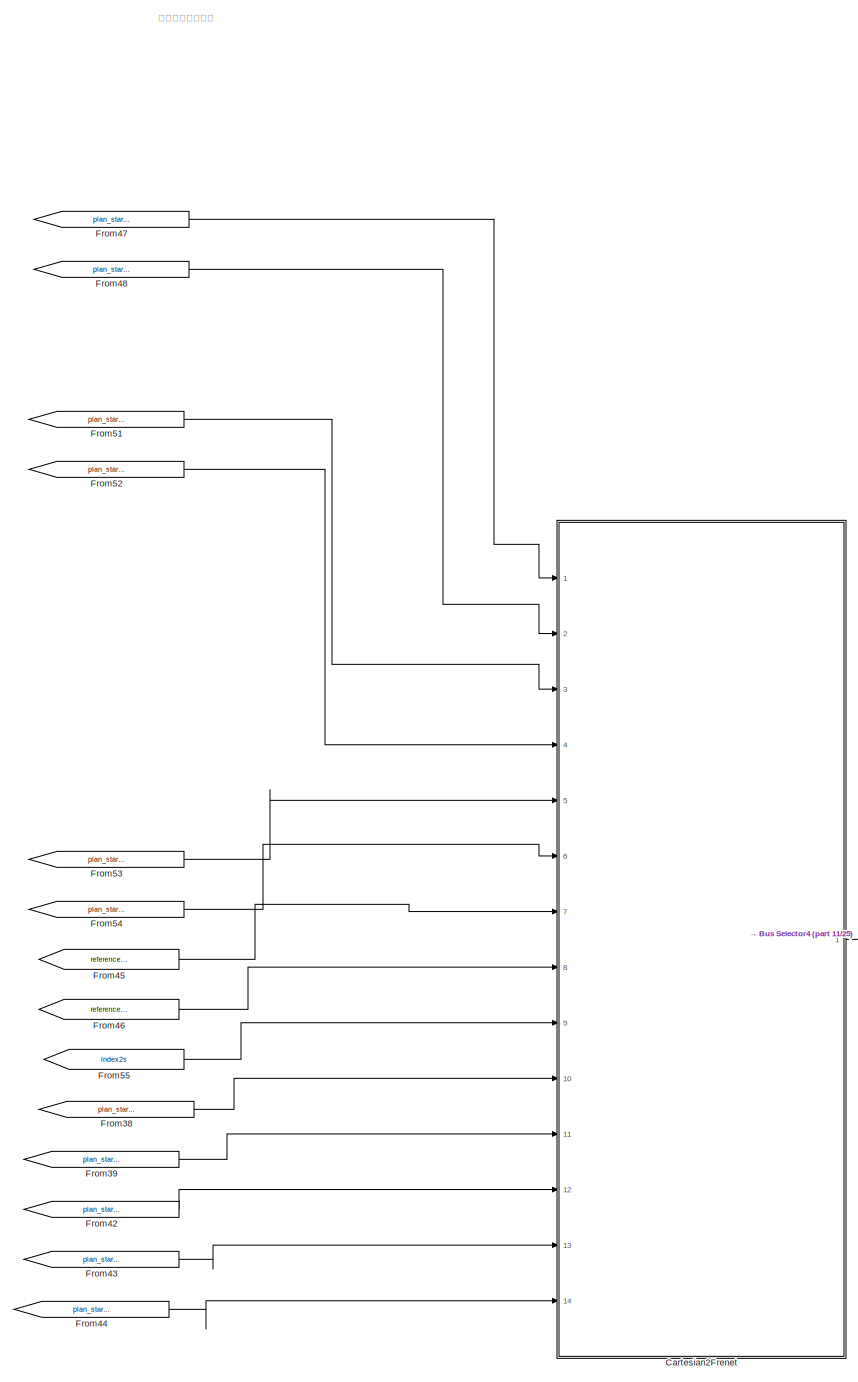
[diagram: Audi_A8_Sedan_1/decision&planning module/EM_planner1 - part 1/25, top center region]
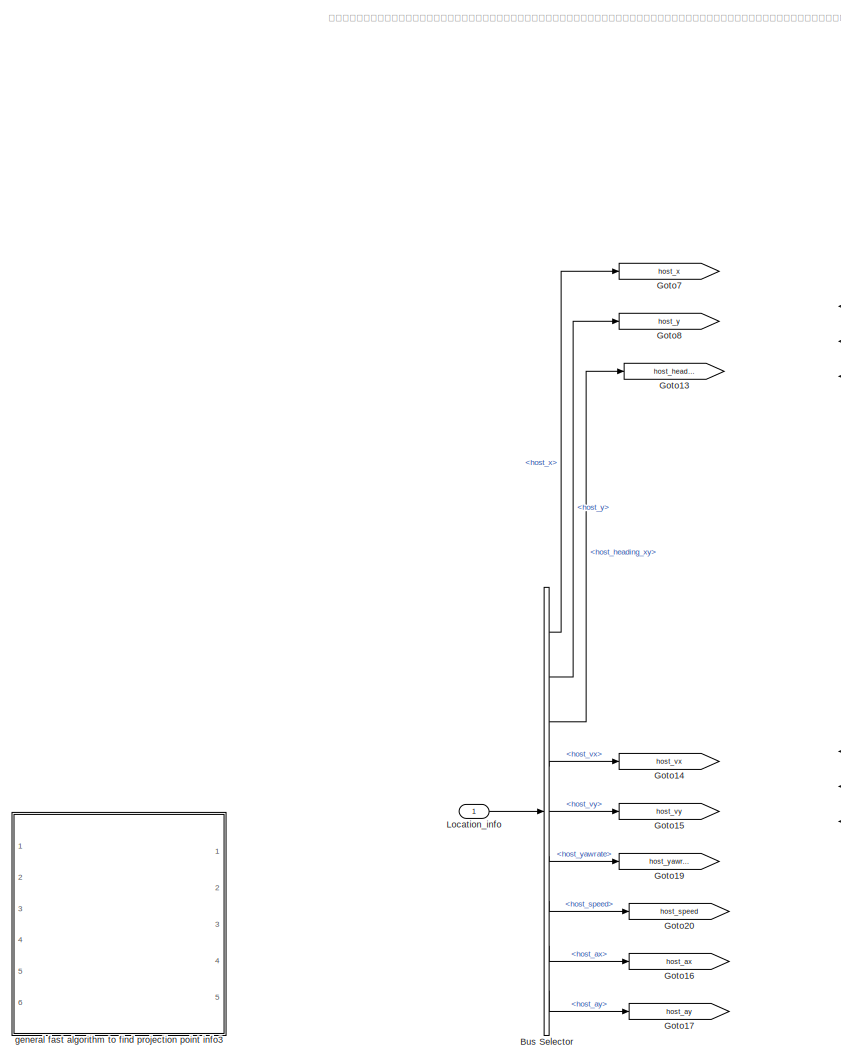
[diagram: Audi_A8_Sedan_1/decision&planning module/EM_planner1 - part 2/25, top left region]
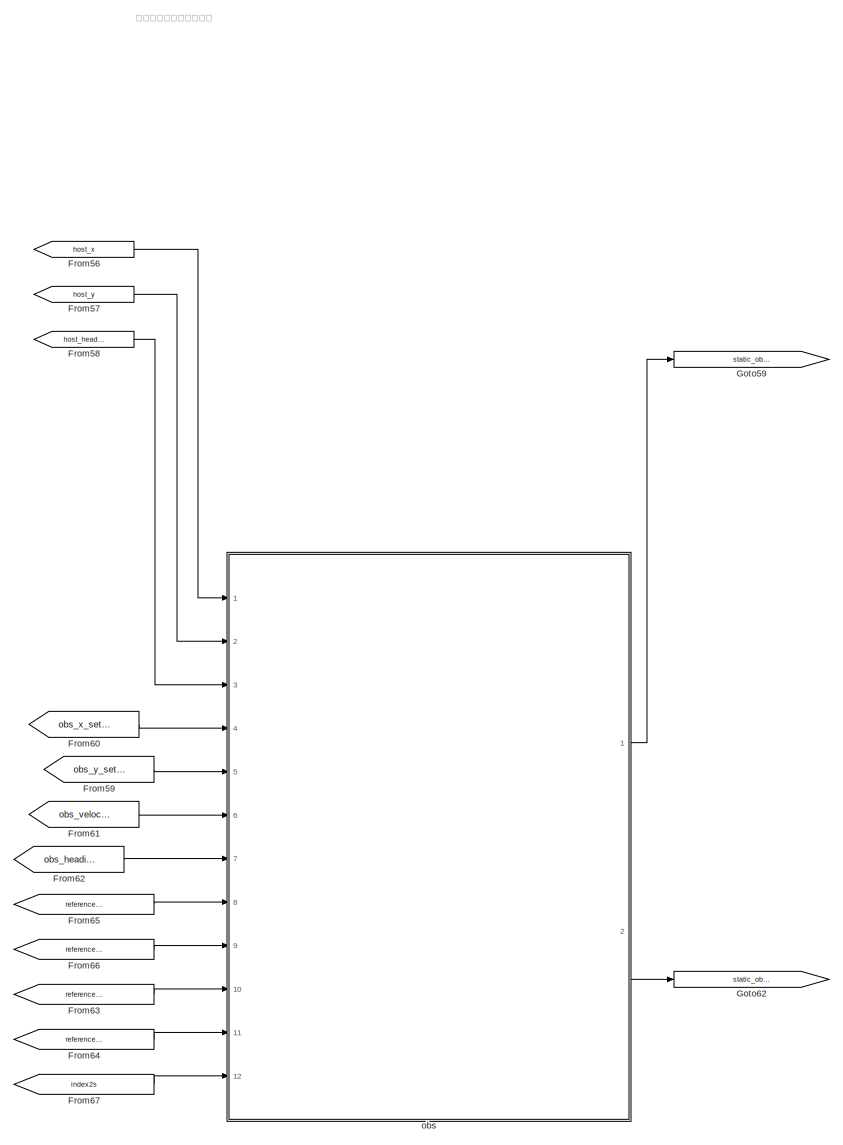
[diagram: Audi_A8_Sedan_1/decision&planning module/EM_planner1 - part 3/25, top center region]
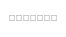
[diagram: Audi_A8_Sedan_1/decision&planning module/EM_planner1 - part 4/25, top center region]
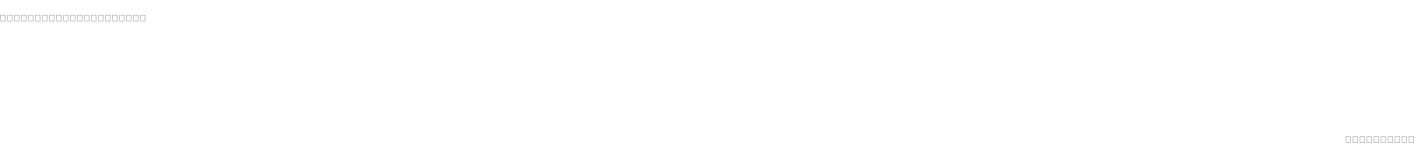
[diagram: Audi_A8_Sedan_1/decision&planning module/EM_planner1 - part 5/25, top left region]
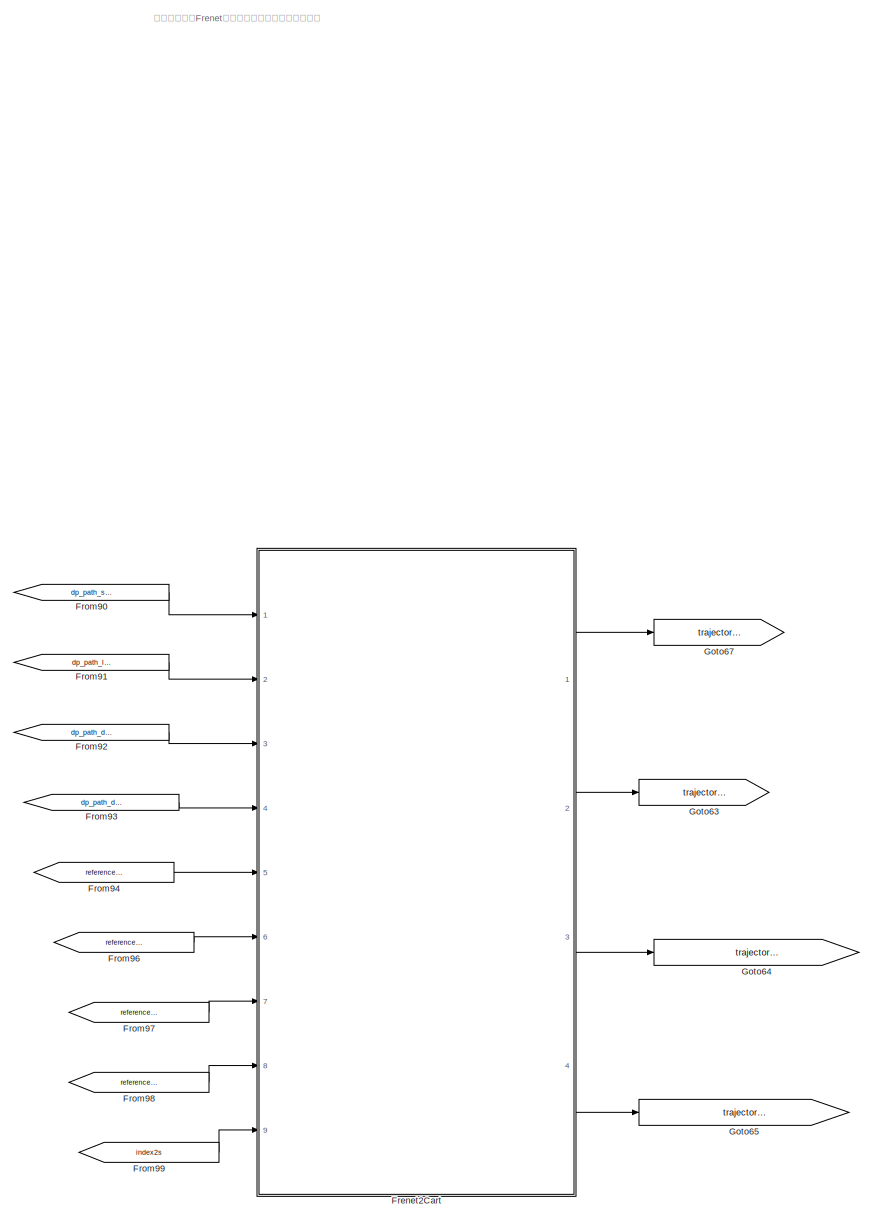
[diagram: Audi_A8_Sedan_1/decision&planning module/EM_planner1 - part 6/25, top right region]
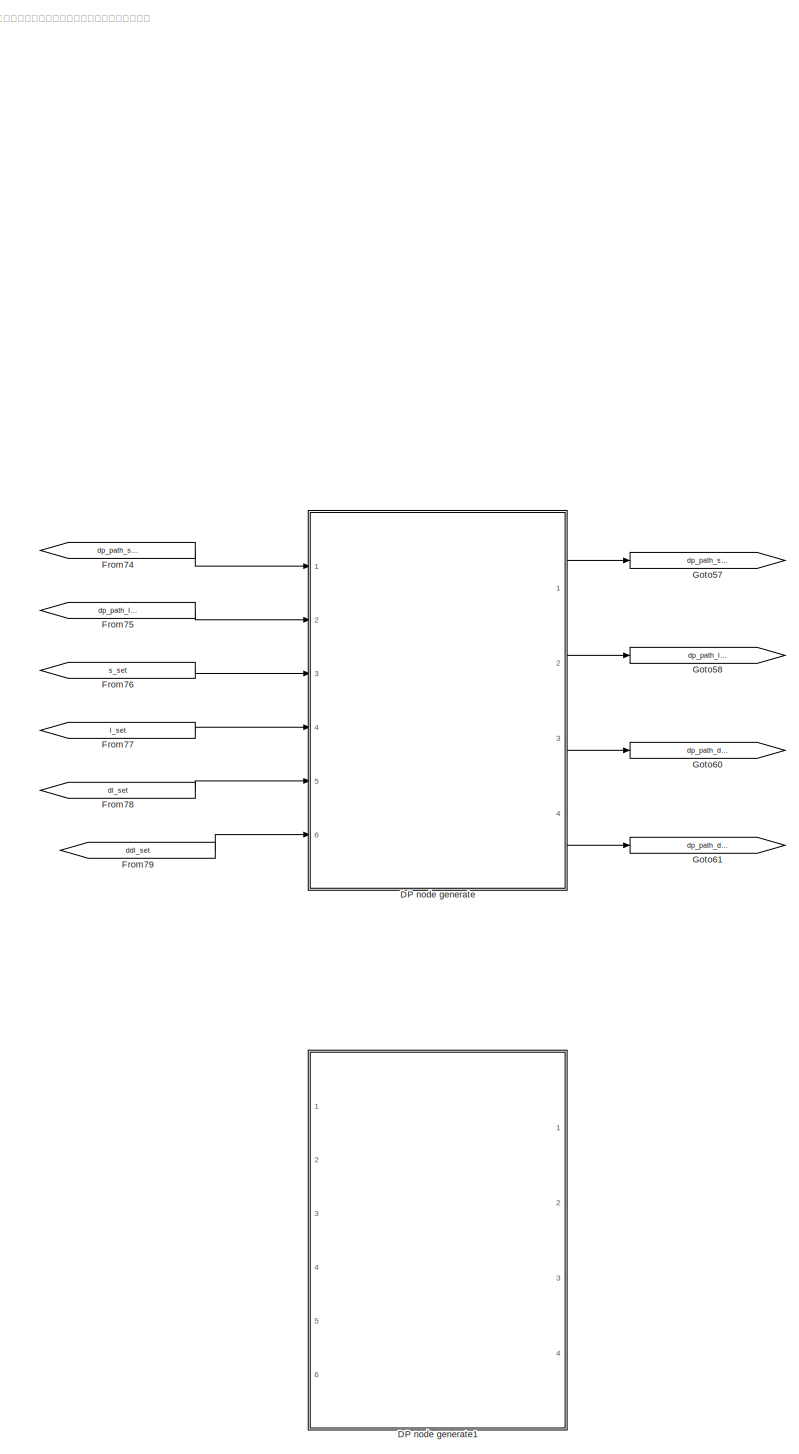
[diagram: Audi_A8_Sedan_1/decision&planning module/EM_planner1 - part 7/25, central region]
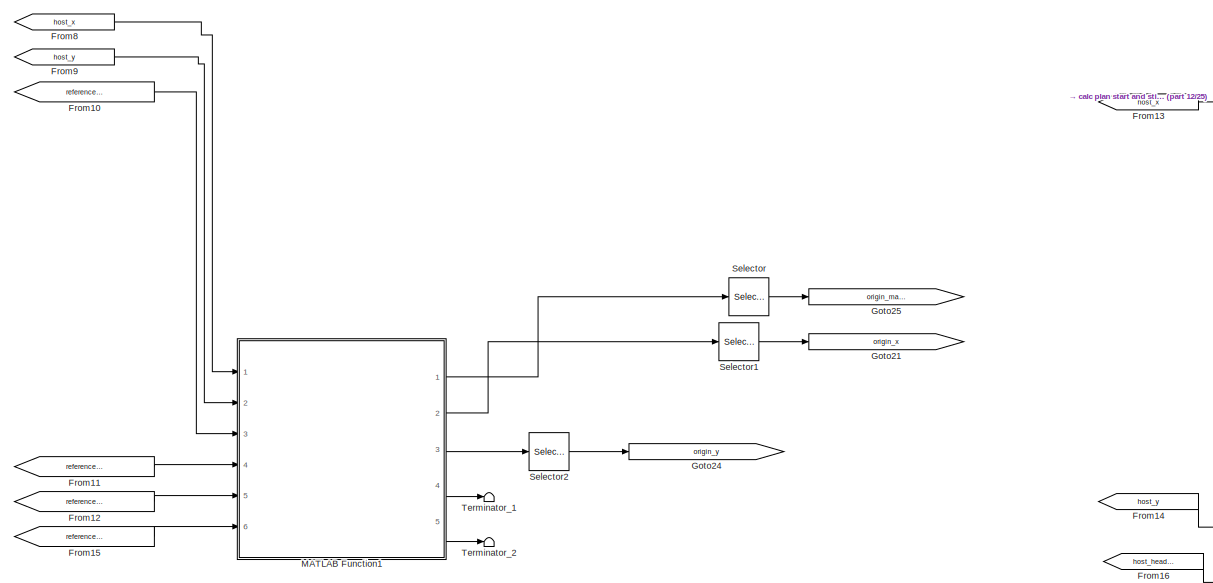
[diagram: Audi_A8_Sedan_1/decision&planning module/EM_planner1 - part 8/25, top left region]
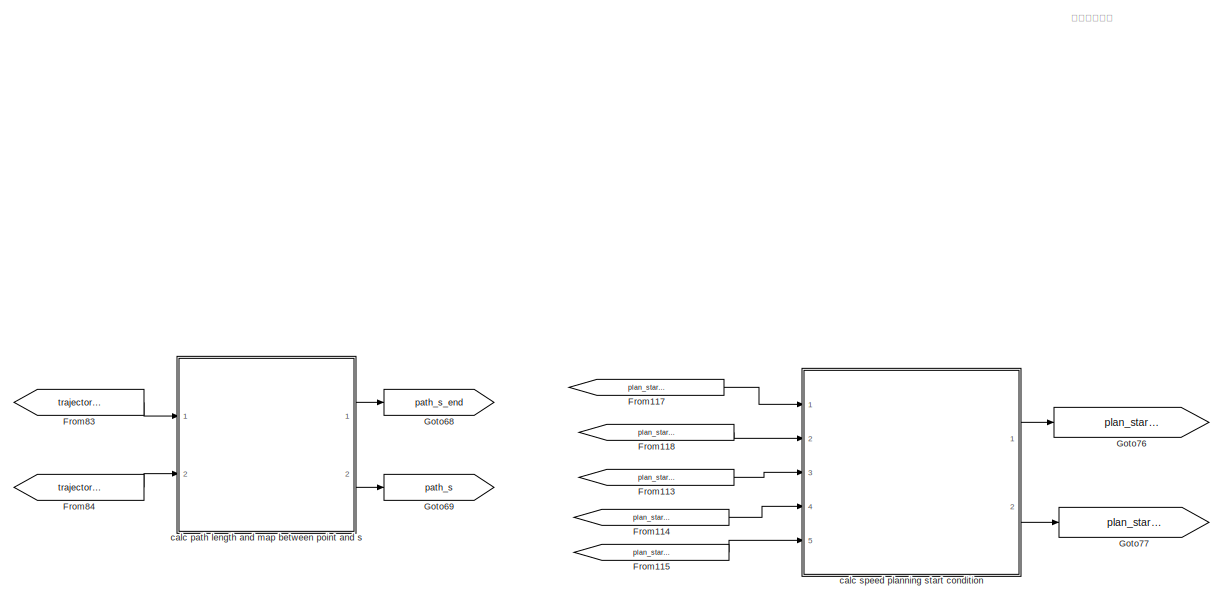
[diagram: Audi_A8_Sedan_1/decision&planning module/EM_planner1 - part 9/25, top right region]
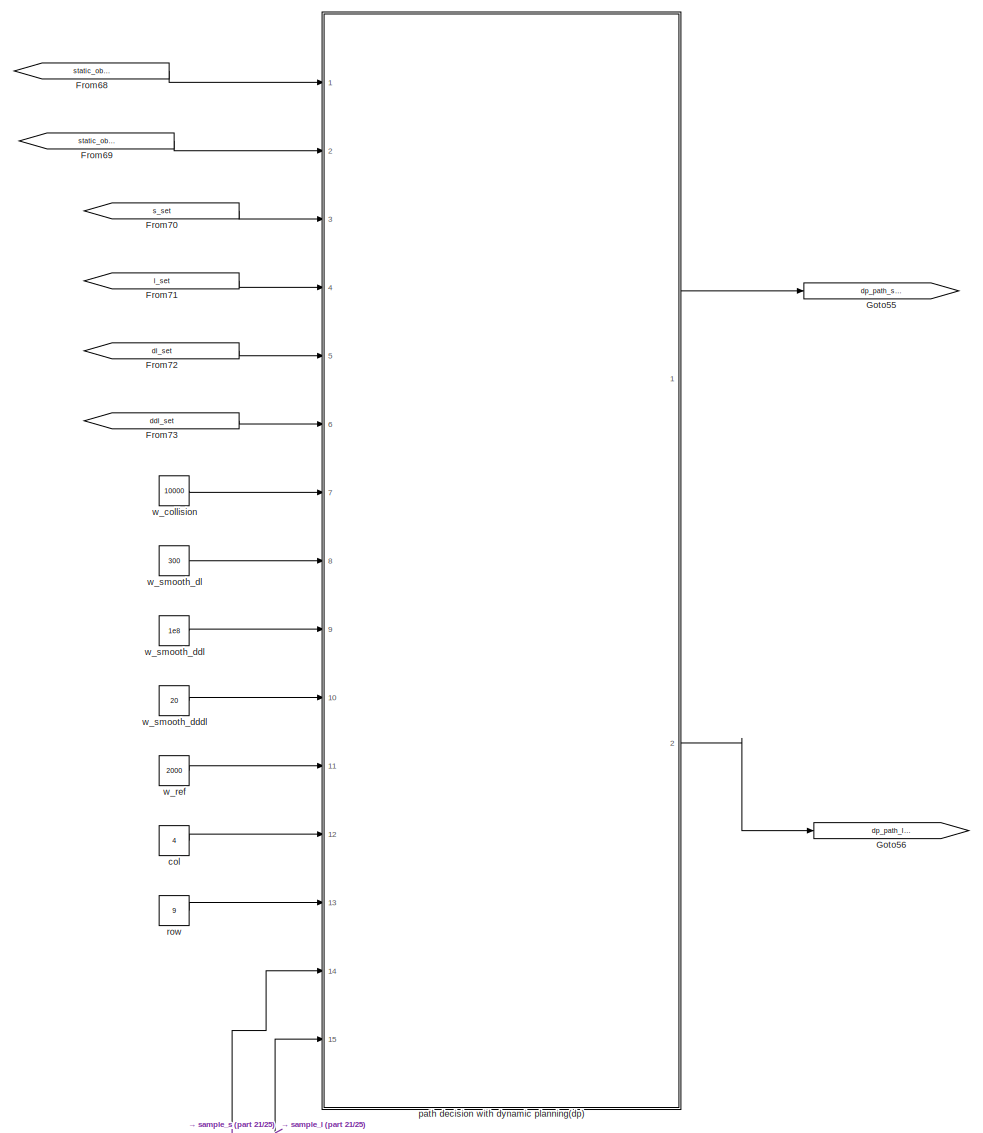
[diagram: Audi_A8_Sedan_1/decision&planning module/EM_planner1 - part 10/25, central region]
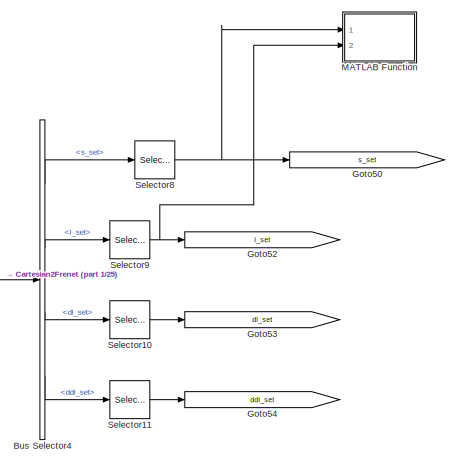
[diagram: Audi_A8_Sedan_1/decision&planning module/EM_planner1 - part 11/25, top center region]
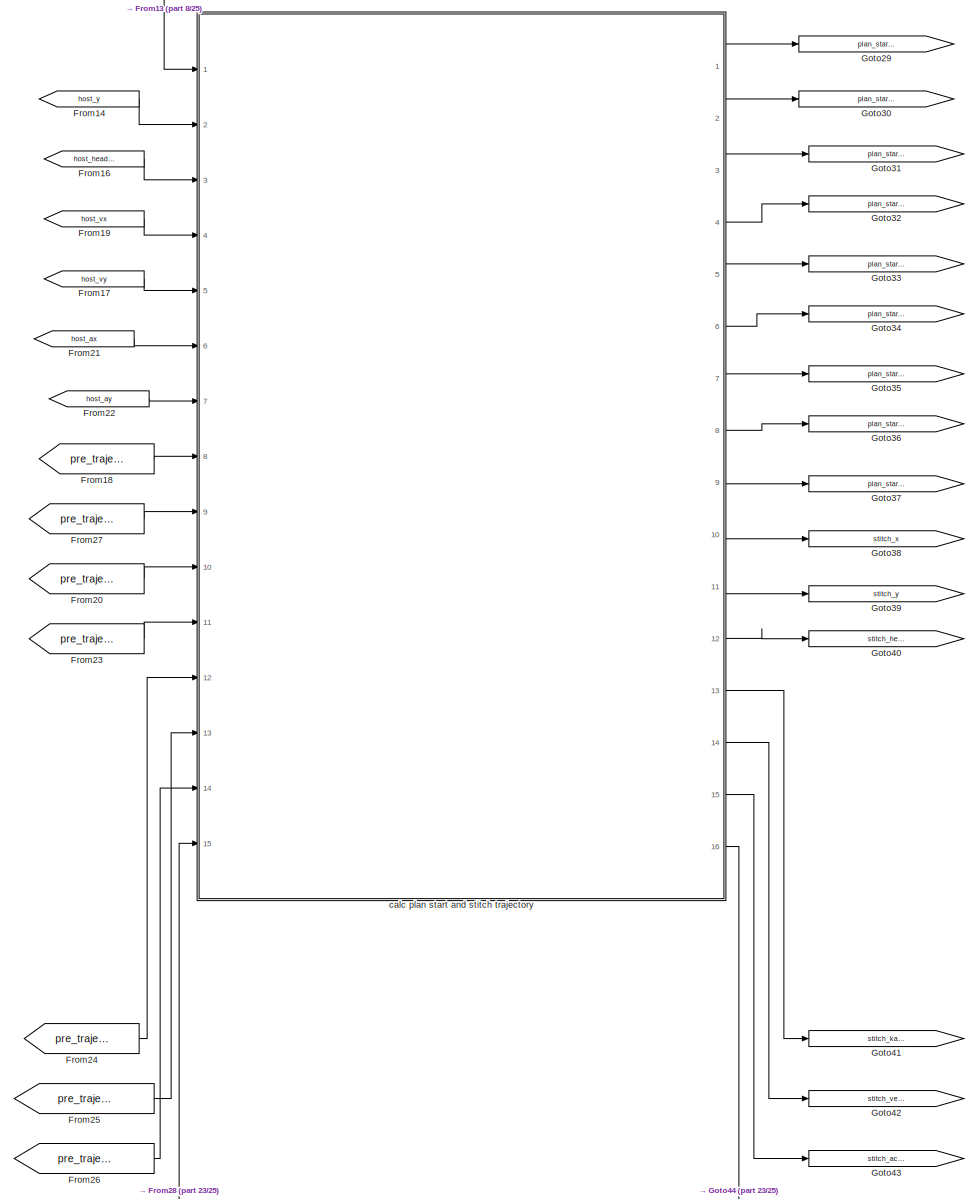
[diagram: Audi_A8_Sedan_1/decision&planning module/EM_planner1 - part 12/25, middle left region]
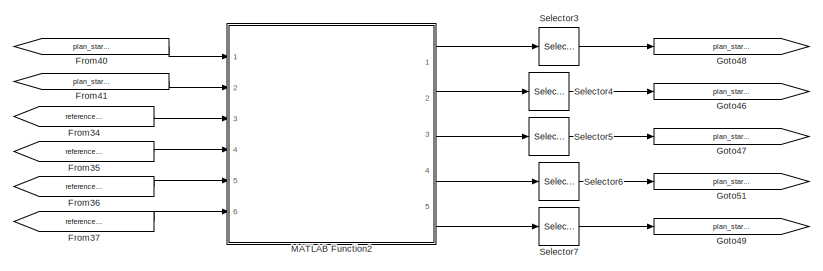
[diagram: Audi_A8_Sedan_1/decision&planning module/EM_planner1 - part 13/25, top left region]
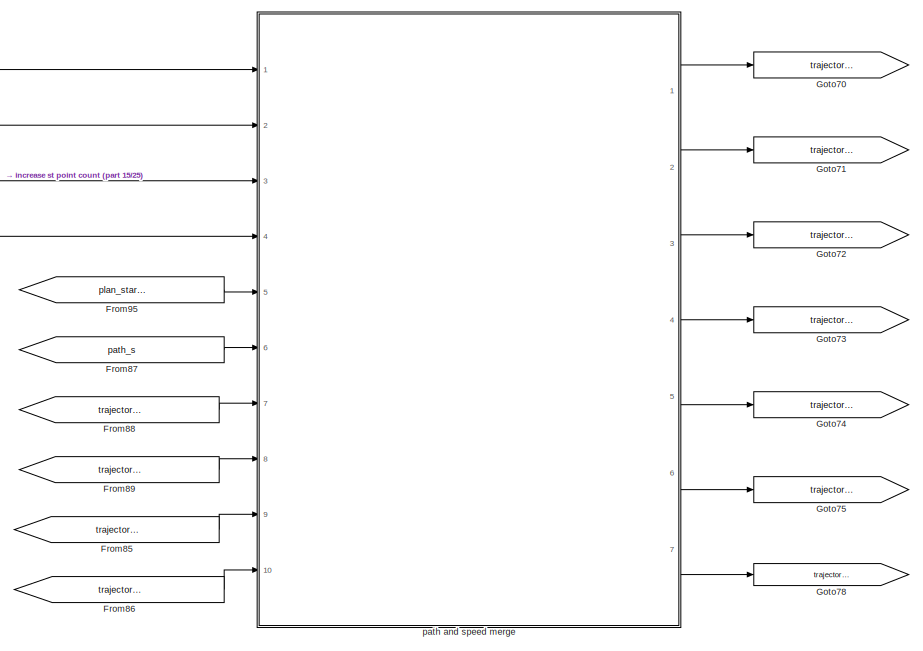
[diagram: Audi_A8_Sedan_1/decision&planning module/EM_planner1 - part 14/25, middle right region]
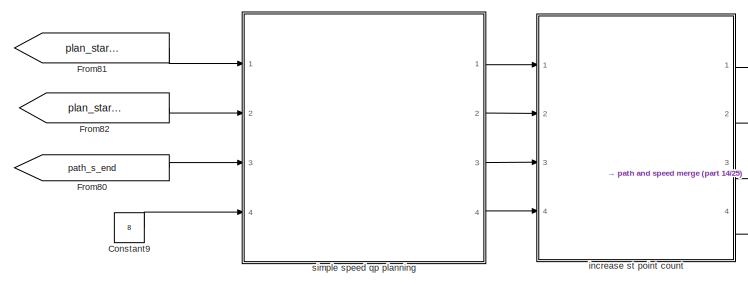
[diagram: Audi_A8_Sedan_1/decision&planning module/EM_planner1 - part 15/25, middle right region]
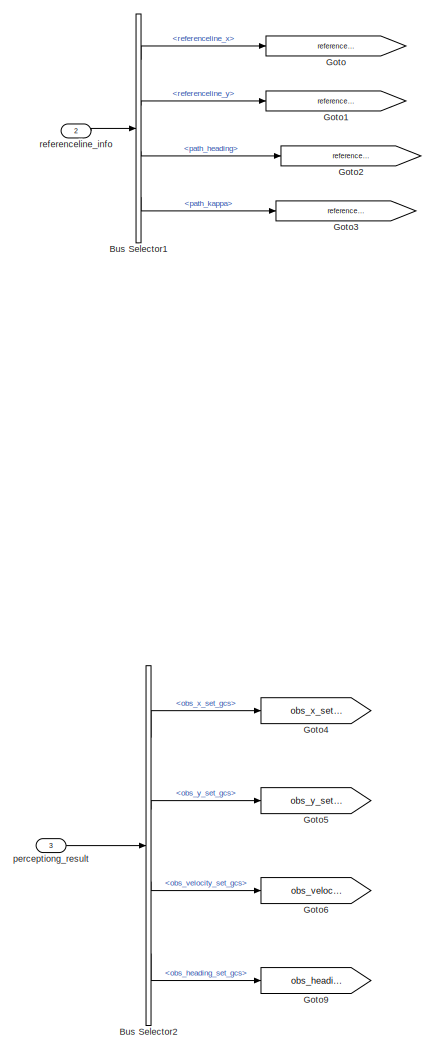
[diagram: Audi_A8_Sedan_1/decision&planning module/EM_planner1 - part 16/25, middle left region]
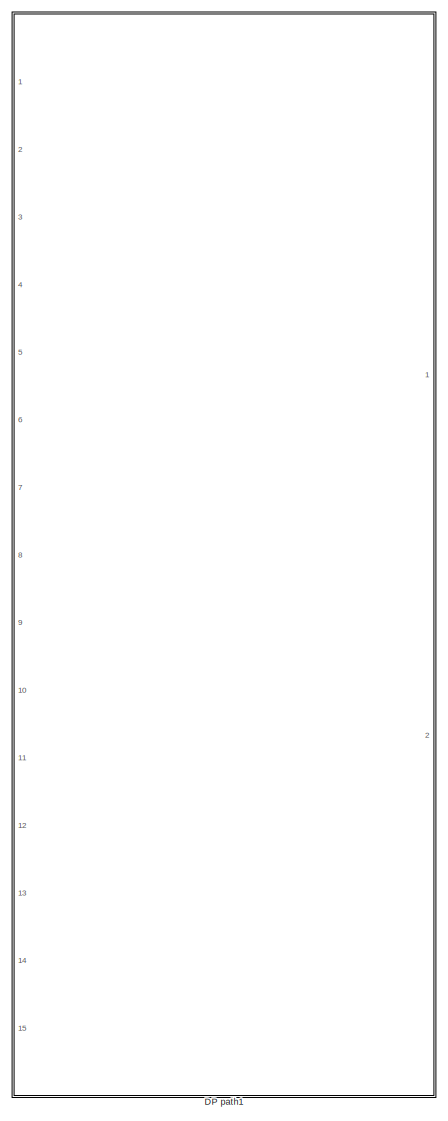
[diagram: Audi_A8_Sedan_1/decision&planning module/EM_planner1 - part 17/25, central region]
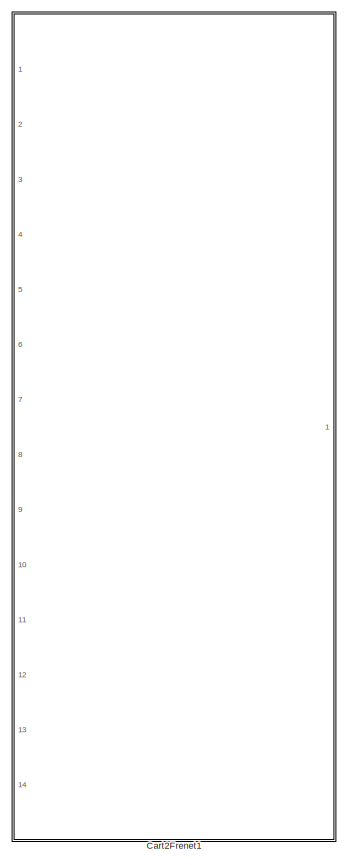
[diagram: Audi_A8_Sedan_1/decision&planning module/EM_planner1 - part 18/25, middle left region]
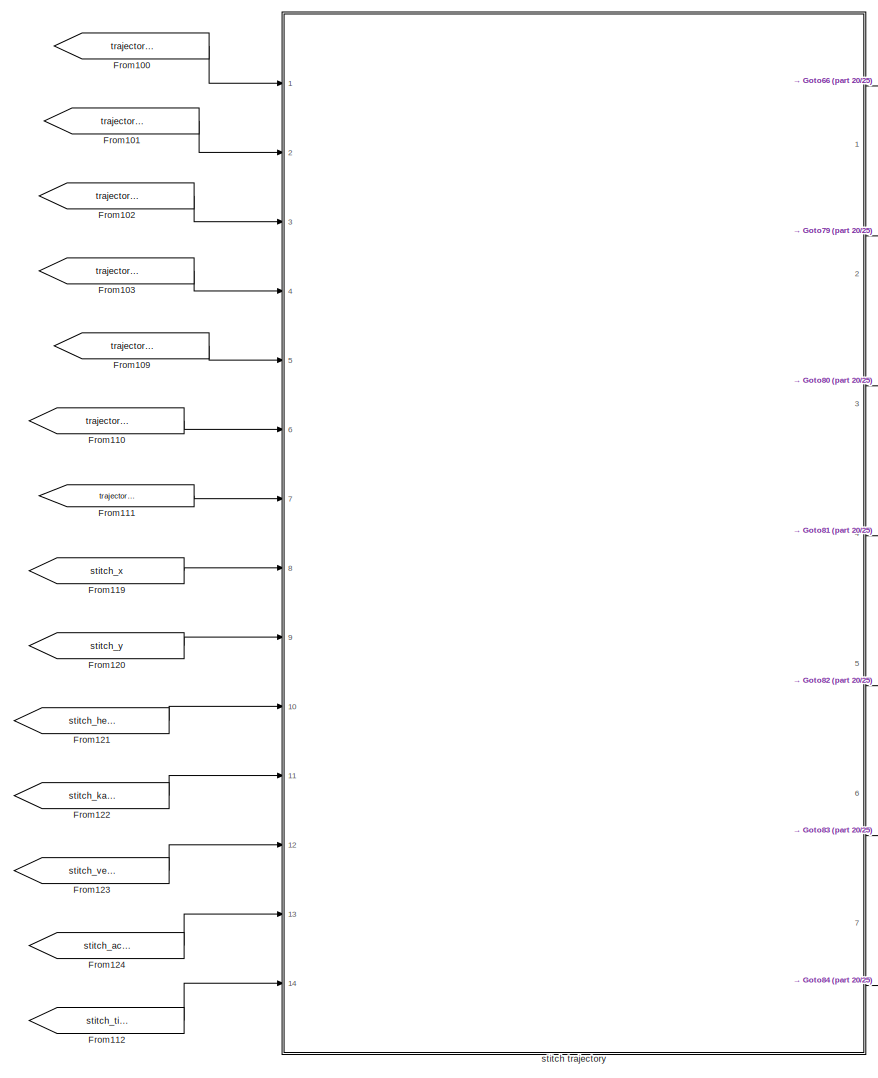
[diagram: Audi_A8_Sedan_1/decision&planning module/EM_planner1 - part 19/25, bottom right region]
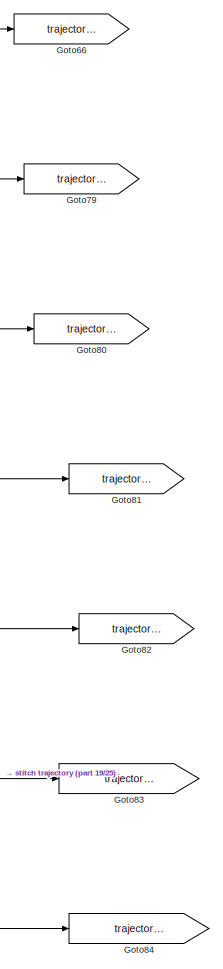
[diagram: Audi_A8_Sedan_1/decision&planning module/EM_planner1 - part 20/25, bottom right region]
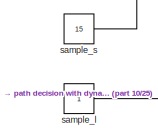
[diagram: Audi_A8_Sedan_1/decision&planning module/EM_planner1 - part 21/25, central region]
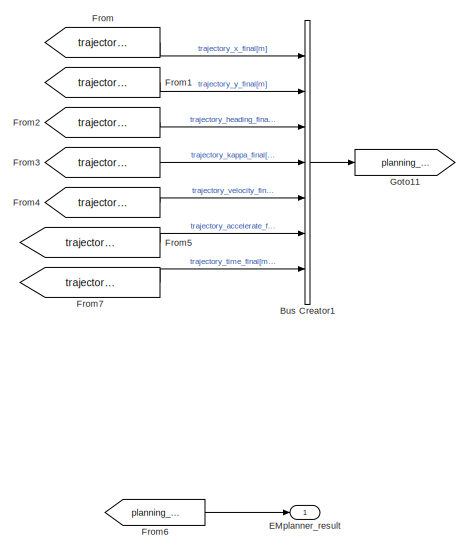
[diagram: Audi_A8_Sedan_1/decision&planning module/EM_planner1 - part 22/25, bottom right region]
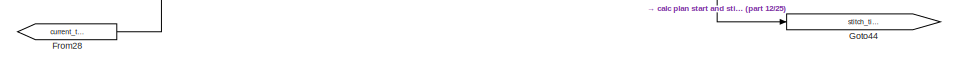
[diagram: Audi_A8_Sedan_1/decision&planning module/EM_planner1 - part 23/25, bottom left region]
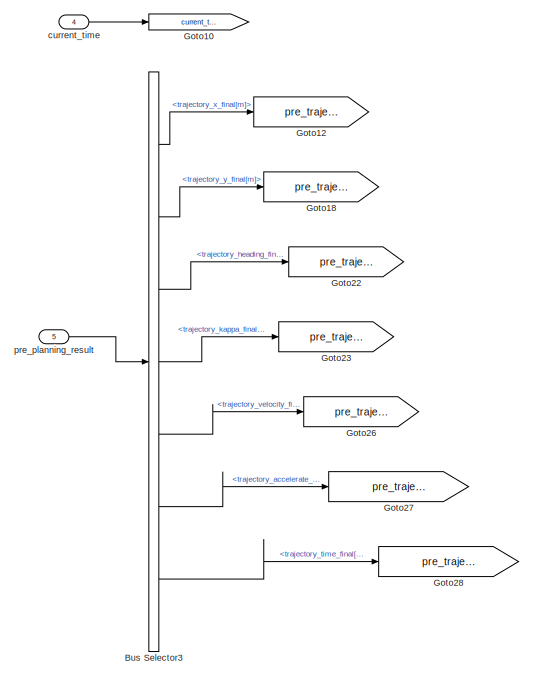
[diagram: Audi_A8_Sedan_1/decision&planning module/EM_planner1 - part 24/25, bottom left region]
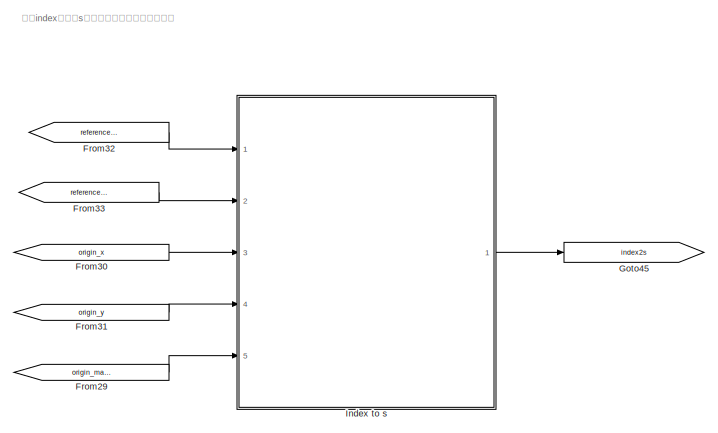
[diagram: Audi_A8_Sedan_1/decision&planning module/EM_planner1 - part 25/25, bottom left region]
BLOCK [SubSystem] Audi_A8_Sedan_1/decision&planning module/EM_planner1
  Commented = on
  Ports = [5, 1]
  RequestExecContextInheritance = off
BLOCK [BusCreator] Audi_A8_Sedan_1/decision&planning module/EM_planner1/Bus Creator1
  DisplayOption = bar
  InheritFromInputs = on
  Inputs = 7
  Ports = [7, 1]
BLOCK [BusSelector] Audi_A8_Sedan_1/decision&planning module/EM_planner1/Bus Selector
  OutputSignals = host_x,host_y,host_heading_xy,host_vx,host_vy,host_yawrate,host_speed,host_ax,host_ay
  Ports = [1, 9]
BLOCK [BusSelector] Audi_A8_Sedan_1/decision&planning module/EM_planner1/Bus Selector1
  OutputSignals = referenceline_x,referenceline_y,path_heading,path_kappa
  Ports = [1, 4]
BLOCK [BusSelector] Audi_A8_Sedan_1/decision&planning module/EM_planner1/Bus Selector2
  OutputSignals = obs_x_set_gcs,obs_y_set_gcs,obs_velocity_set_gcs,obs_heading_set_gcs
  Ports = [1, 4]
BLOCK [BusSelector] Audi_A8_Sedan_1/decision&planning module/EM_planner1/Bus Selector3
  OutputSignals = trajectory_x_final[m],trajectory_y_final[m],trajectory_heading_final[rad],trajectory_kappa_final[1/m],trajectory_velocity_final[m/s],trajectory_accelerate_final[m/s^2],trajectory_time_final[m/s^2]
  Ports = [1, 7]
BLOCK [BusSelector] Audi_A8_Sedan_1/decision&planning module/EM_planner1/Bus Selector4
  OutputSignals = s_set,l_set,dl_set,ddl_set
  Ports = [1, 4]
BLOCK [SubSystem] Audi_A8_Sedan_1/decision&planning module/EM_planner1/Cart2Frenet1
  Commented = on
  Ports = [14, 1]
  RequestExecContextInheritance = off
BLOCK [BusCreator] Audi_A8_Sedan_1/decision&planning module/EM_planner1/Cart2Frenet1/Bus Creator
  DisplayOption = bar
  InheritFromInputs = on
  Inputs = 8
  Ports = [8, 1]
BLOCK [SubSystem] Audi_A8_Sedan_1/decision&planning module/EM_planner1/Cart2Frenet1/CalcSL
  ErrorFcn = Stateflow.Translate.translate
  PermitHierarchicalResolution = ExplicitOnly
  Ports = [10, 2]
  RequestExecContextInheritance = off
  SFBlockType = MATLAB Function
  TreatAsAtomicUnit = on
BLOCK [Demux] Audi_A8_Sedan_1/decision&planning module/EM_planner1/Cart2Frenet1/CalcSL/ Demux 
  Outputs = 1
  Ports = [1, 1]
BLOCK [S-Function] Audi_A8_Sedan_1/decision&planning module/EM_planner1/Cart2Frenet1/CalcSL/ SFunction 
  EnableBusSupport = on
  FunctionName = sf_sfun
  PortCounts = [10 3]
  Ports = [10, 3]
  SFcnIsStateOwnerBlock = off
  SFunctionDeploymentMode = off
  Tag = Stateflow S-Function 75
BLOCK [Terminator] Audi_A8_Sedan_1/decision&planning module/EM_planner1/Cart2Frenet1/CalcSL/ Terminator 
BLOCK [Outport] Audi_A8_Sedan_1/decision&planning module/EM_planner1/Cart2Frenet1/CalcSL/frenet_l_set
  Port = 2
BLOCK [Outport] Audi_A8_Sedan_1/decision&planning module/EM_planner1/Cart2Frenet1/CalcSL/frenet_s_set
BLOCK [Inport] Audi_A8_Sedan_1/decision&planning module/EM_planner1/Cart2Frenet1/CalcSL/index2s
  Port = 5
BLOCK [Inport] Audi_A8_Sedan_1/decision&planning module/EM_planner1/Cart2Frenet1/CalcSL/plan_start_match_point_index
  Port = 6
BLOCK [Inport] Audi_A8_Sedan_1/decision&planning module/EM_planner1/Cart2Frenet1/CalcSL/plan_start_proj_heading
  Port = 9
BLOCK [Inport] Audi_A8_Sedan_1/decision&planning module/EM_planner1/Cart2Frenet1/CalcSL/plan_start_proj_kappa
  Port = 10
BLOCK [Inport] Audi_A8_Sedan_1/decision&planning module/EM_planner1/Cart2Frenet1/CalcSL/plan_start_proj_x
  Port = 7
BLOCK [Inport] Audi_A8_Sedan_1/decision&planning module/EM_planner1/Cart2Frenet1/CalcSL/plan_start_proj_y
  Port = 8
BLOCK [Inport] Audi_A8_Sedan_1/decision&planning module/EM_planner1/Cart2Frenet1/CalcSL/referenceline_x
  Port = 3
BLOCK [Inport] Audi_A8_Sedan_1/decision&planning module/EM_planner1/Cart2Frenet1/CalcSL/referenceline_y
  Port = 4
BLOCK [Inport] Audi_A8_Sedan_1/decision&planning module/EM_planner1/Cart2Frenet1/CalcSL/x_set
BLOCK [Inport] Audi_A8_Sedan_1/decision&planning module/EM_planner1/Cart2Frenet1/CalcSL/y_set
  Port = 2
BLOCK [SubSystem] Audi_A8_Sedan_1/decision&planning module/EM_planner1/Cart2Frenet1/CalcSL2
  ErrorFcn = Stateflow.Translate.translate
  PermitHierarchicalResolution = ExplicitOnly
  Ports = [7, 3]
  RequestExecContextInheritance = off
  SFBlockType = MATLAB Function
  TreatAsAtomicUnit = on
BLOCK [Demux] Audi_A8_Sedan_1/decision&planning module/EM_planner1/Cart2Frenet1/CalcSL2/ Demux 
  Outputs = 1
  Ports = [1, 1]
BLOCK [S-Function] Audi_A8_Sedan_1/decision&planning module/EM_planner1/Cart2Frenet1/CalcSL2/ SFunction 
  EnableBusSupport = on
  FunctionName = sf_sfun
  PortCounts = [7 4]
  Ports = [7, 4]
  SFcnIsStateOwnerBlock = off
  SFunctionDeploymentMode = off
  Tag = Stateflow S-Function 76
BLOCK [Terminator] Audi_A8_Sedan_1/decision&planning module/EM_planner1/Cart2Frenet1/CalcSL2/ Terminator 
BLOCK [Inport] Audi_A8_Sedan_1/decision&planning module/EM_planner1/Cart2Frenet1/CalcSL2/ax_set
  Port = 2
BLOCK [Inport] Audi_A8_Sedan_1/decision&planning module/EM_planner1/Cart2Frenet1/CalcSL2/ay_set
  Port = 3
BLOCK [Outport] Audi_A8_Sedan_1/decision&planning module/EM_planner1/Cart2Frenet1/CalcSL2/ddl_set
  Port = 3
BLOCK [Inport] Audi_A8_Sedan_1/decision&planning module/EM_planner1/Cart2Frenet1/CalcSL2/dl_set
  Port = 5
BLOCK [Inport] Audi_A8_Sedan_1/decision&planning module/EM_planner1/Cart2Frenet1/CalcSL2/frenet_l_set
BLOCK [Outport] Audi_A8_Sedan_1/decision&planning module/EM_planner1/Cart2Frenet1/CalcSL2/l_dot2_set
  Port = 2
BLOCK [Inport] Audi_A8_Sedan_1/decision&planning module/EM_planner1/Cart2Frenet1/CalcSL2/plan_start_proj_heading
  Port = 6
BLOCK [Inport] Audi_A8_Sedan_1/decision&planning module/EM_planner1/Cart2Frenet1/CalcSL2/plan_start_proj_kappa
  Port = 7
BLOCK [Outport] Audi_A8_Sedan_1/decision&planning module/EM_planner1/Cart2Frenet1/CalcSL2/s_dot2_set
BLOCK [Inport] Audi_A8_Sedan_1/decision&planning module/EM_planner1/Cart2Frenet1/CalcSL2/s_dot_set
  Port = 4
BLOCK [SubSystem] Audi_A8_Sedan_1/decision&planning module/EM_planner1/Cart2Frenet1/Calcs_l_dot_dl
  ErrorFcn = Stateflow.Translate.translate
  PermitHierarchicalResolution = ExplicitOnly
  Ports = [5, 3]
  RequestExecContextInheritance = off
  SFBlockType = MATLAB Function
  TreatAsAtomicUnit = on
BLOCK [Demux] Audi_A8_Sedan_1/decision&planning module/EM_planner1/Cart2Frenet1/Calcs_l_dot_dl/ Demux 
  Outputs = 1
  Ports = [1, 1]
BLOCK [S-Function] Audi_A8_Sedan_1/decision&planning module/EM_planner1/Cart2Frenet1/Calcs_l_dot_dl/ SFunction 
  EnableBusSupport = on
  FunctionName = sf_sfun
  PortCounts = [5 4]
  Ports = [5, 4]
  SFcnIsStateOwnerBlock = off
  SFunctionDeploymentMode = off
  Tag = Stateflow S-Function 77
BLOCK [Terminator] Audi_A8_Sedan_1/decision&planning module/EM_planner1/Cart2Frenet1/Calcs_l_dot_dl/ Terminator 
BLOCK [Outport] Audi_A8_Sedan_1/decision&planning module/EM_planner1/Cart2Frenet1/Calcs_l_dot_dl/dl_set
  Port = 3
BLOCK [Inport] Audi_A8_Sedan_1/decision&planning module/EM_planner1/Cart2Frenet1/Calcs_l_dot_dl/frenet_l_set
BLOCK [Outport] Audi_A8_Sedan_1/decision&planning module/EM_planner1/Cart2Frenet1/Calcs_l_dot_dl/l_dot_set
  Port = 2
BLOCK [Inport] Audi_A8_Sedan_1/decision&planning module/EM_planner1/Cart2Frenet1/Calcs_l_dot_dl/plan_start_proj_heading
  Port = 4
BLOCK [Inport] Audi_A8_Sedan_1/decision&planning module/EM_planner1/Cart2Frenet1/Calcs_l_dot_dl/plan_start_proj_kappa
  Port = 5
BLOCK [Outport] Audi_A8_Sedan_1/decision&planning module/EM_planner1/Cart2Frenet1/Calcs_l_dot_dl/s_dot_set
BLOCK [Inport] Audi_A8_Sedan_1/decision&planning module/EM_planner1/Cart2Frenet1/Calcs_l_dot_dl/vx_set
  Port = 2
BLOCK [Inport] Audi_A8_Sedan_1/decision&planning module/EM_planner1/Cart2Frenet1/Calcs_l_dot_dl/vy_set
  Port = 3
BLOCK [Outport] Audi_A8_Sedan_1/decision&planning module/EM_planner1/Cart2Frenet1/Cart2Frenet_result
BLOCK [From] Audi_A8_Sedan_1/decision&planning module/EM_planner1/Cart2Frenet1/From
  GotoTag = y_set
BLOCK [From] Audi_A8_Sedan_1/decision&planning module/EM_planner1/Cart2Frenet1/From1
  GotoTag = frenet_l_set
BLOCK [From] Audi_A8_Sedan_1/decision&planning module/EM_planner1/Cart2Frenet1/From10
  GotoTag = frenet_l_set
BLOCK [From] Audi_A8_Sedan_1/decision&planning module/EM_planner1/Cart2Frenet1/From11
  GotoTag = frenet_s_dot_set
BLOCK [From] Audi_A8_Sedan_1/decision&planning module/EM_planner1/Cart2Frenet1/From12
  GotoTag = frenet_l_dot_set
BLOCK [From] Audi_A8_Sedan_1/decision&planning module/EM_planner1/Cart2Frenet1/From13
  GotoTag = frenet_dl_set
BLOCK [From] Audi_A8_Sedan_1/decision&planning module/EM_planner1/Cart2Frenet1/From14
  GotoTag = frenet_l_dot2_set
BLOCK [From] Audi_A8_Sedan_1/decision&planning module/EM_planner1/Cart2Frenet1/From15
  GotoTag = frenet_s_dot2_set
BLOCK [From] Audi_A8_Sedan_1/decision&planning module/EM_planner1/Cart2Frenet1/From16
  GotoTag = frenet_ddl_set
BLOCK [From] Audi_A8_Sedan_1/decision&planning module/EM_planner1/Cart2Frenet1/From17
  GotoTag = ax_set
BLOCK [From] Audi_A8_Sedan_1/decision&planning module/EM_planner1/Cart2Frenet1/From18
  GotoTag = ay_set
BLOCK [From] Audi_A8_Sedan_1/decision&planning module/EM_planner1/Cart2Frenet1/From19
  GotoTag = proj_heading_set
BLOCK [From] Audi_A8_Sedan_1/decision&planning module/EM_planner1/Cart2Frenet1/From2
  GotoTag = vy_set
BLOCK [From] Audi_A8_Sedan_1/decision&planning module/EM_planner1/Cart2Frenet1/From20
  GotoTag = proj_kappa_set
BLOCK [From] Audi_A8_Sedan_1/decision&planning module/EM_planner1/Cart2Frenet1/From3
  GotoTag = vx_set
BLOCK [From] Audi_A8_Sedan_1/decision&planning module/EM_planner1/Cart2Frenet1/From33
  GotoTag = x_set
BLOCK [From] Audi_A8_Sedan_1/decision&planning module/EM_planner1/Cart2Frenet1/From34
  GotoTag = match_point_index_set
BLOCK [From] Audi_A8_Sedan_1/decision&planning module/EM_planner1/Cart2Frenet1/From35
  GotoTag = proj_x_set
BLOCK [From] Audi_A8_Sedan_1/decision&planning module/EM_planner1/Cart2Frenet1/From36
  GotoTag = proj_y_set
BLOCK [From] Audi_A8_Sedan_1/decision&planning module/EM_planner1/Cart2Frenet1/From37
  GotoTag = proj_heading_set
BLOCK [From] Audi_A8_Sedan_1/decision&planning module/EM_planner1/Cart2Frenet1/From4
  GotoTag = frenet_s_dot_set
BLOCK [From] Audi_A8_Sedan_1/decision&planning module/EM_planner1/Cart2Frenet1/From40
  GotoTag = proj_kappa_set
BLOCK [From] Audi_A8_Sedan_1/decision&planning module/EM_planner1/Cart2Frenet1/From45
  GotoTag = referenceline_x
BLOCK [From] Audi_A8_Sedan_1/decision&planning module/EM_planner1/Cart2Frenet1/From46
  GotoTag = referenceline_y
BLOCK [From] Audi_A8_Sedan_1/decision&planning module/EM_planner1/Cart2Frenet1/From5
  GotoTag = frenet_dl_set
BLOCK [From] Audi_A8_Sedan_1/decision&planning module/EM_planner1/Cart2Frenet1/From55
  GotoTag = index2s
BLOCK [From] Audi_A8_Sedan_1/decision&planning module/EM_planner1/Cart2Frenet1/From6
  GotoTag = proj_heading_set
BLOCK [From] Audi_A8_Sedan_1/decision&planning module/EM_planner1/Cart2Frenet1/From7
  GotoTag = proj_kappa_set
BLOCK [From] Audi_A8_Sedan_1/decision&planning module/EM_planner1/Cart2Frenet1/From8
  GotoTag = frenet_l_set
BLOCK [From] Audi_A8_Sedan_1/decision&planning module/EM_planner1/Cart2Frenet1/From9
  GotoTag = frenet_s_set
BLOCK [Goto] Audi_A8_Sedan_1/decision&planning module/EM_planner1/Cart2Frenet1/Goto
  GotoTag = x_set
BLOCK [Goto] Audi_A8_Sedan_1/decision&planning module/EM_planner1/Cart2Frenet1/Goto1
  GotoTag = y_set
BLOCK [Goto] Audi_A8_Sedan_1/decision&planning module/EM_planner1/Cart2Frenet1/Goto10
  GotoTag = index2s
BLOCK [Goto] Audi_A8_Sedan_1/decision&planning module/EM_planner1/Cart2Frenet1/Goto11
  GotoTag = match_point_index_set
BLOCK [Goto] Audi_A8_Sedan_1/decision&planning module/EM_planner1/Cart2Frenet1/Goto12
  GotoTag = proj_x_set
BLOCK [Goto] Audi_A8_Sedan_1/decision&planning module/EM_planner1/Cart2Frenet1/Goto13
  GotoTag = proj_y_set
BLOCK [Goto] Audi_A8_Sedan_1/decision&planning module/EM_planner1/Cart2Frenet1/Goto14
  GotoTag = proj_heading_set
BLOCK [Goto] Audi_A8_Sedan_1/decision&planning module/EM_planner1/Cart2Frenet1/Goto15
  GotoTag = proj_kappa_set
BLOCK [Goto] Audi_A8_Sedan_1/decision&planning module/EM_planner1/Cart2Frenet1/Goto16
  GotoTag = frenet_s_set
BLOCK [Goto] Audi_A8_Sedan_1/decision&planning module/EM_planner1/Cart2Frenet1/Goto17
  GotoTag = frenet_l_set
BLOCK [Goto] Audi_A8_Sedan_1/decision&planning module/EM_planner1/Cart2Frenet1/Goto18
  GotoTag = frenet_s_dot_set
BLOCK [Goto] Audi_A8_Sedan_1/decision&planning module/EM_planner1/Cart2Frenet1/Goto19
  GotoTag = frenet_l_dot_set
BLOCK [Goto] Audi_A8_Sedan_1/decision&planning module/EM_planner1/Cart2Frenet1/Goto20
  GotoTag = frenet_dl_set
BLOCK [Goto] Audi_A8_Sedan_1/decision&planning module/EM_planner1/Cart2Frenet1/Goto21
  GotoTag = frenet_s_dot2_set
BLOCK [Goto] Audi_A8_Sedan_1/decision&planning module/EM_planner1/Cart2Frenet1/Goto22
  GotoTag = frenet_ddl_set
BLOCK [Goto] Audi_A8_Sedan_1/decision&planning module/EM_planner1/Cart2Frenet1/Goto23
  GotoTag = frenet_l_dot2_set
BLOCK [Goto] Audi_A8_Sedan_1/decision&planning module/EM_planner1/Cart2Frenet1/Goto4
  GotoTag = vx_set
BLOCK [Goto] Audi_A8_Sedan_1/decision&planning module/EM_planner1/Cart2Frenet1/Goto5
  GotoTag = vy_set
BLOCK [Goto] Audi_A8_Sedan_1/decision&planning module/EM_planner1/Cart2Frenet1/Goto6
  GotoTag = ax_set
BLOCK [Goto] Audi_A8_Sedan_1/decision&planning module/EM_planner1/Cart2Frenet1/Goto7
  GotoTag = ay_set
BLOCK [Goto] Audi_A8_Sedan_1/decision&planning module/EM_planner1/Cart2Frenet1/Goto8
  GotoTag = referenceline_x
BLOCK [Goto] Audi_A8_Sedan_1/decision&planning module/EM_planner1/Cart2Frenet1/Goto9
  GotoTag = referenceline_y
BLOCK [Inport] Audi_A8_Sedan_1/decision&planning module/EM_planner1/Cart2Frenet1/index2s
  Port = 9
BLOCK [Inport] Audi_A8_Sedan_1/decision&planning module/EM_planner1/Cart2Frenet1/plan_start_ax
  Port = 5
BLOCK [Inport] Audi_A8_Sedan_1/decision&planning module/EM_planner1/Cart2Frenet1/plan_start_ay
  Port = 6
BLOCK [Inport] Audi_A8_Sedan_1/decision&planning module/EM_planner1/Cart2Frenet1/plan_start_match_point_index
  Port = 10
BLOCK [Inport] Audi_A8_Sedan_1/decision&planning module/EM_planner1/Cart2Frenet1/plan_start_proj_heading
  Port = 13
BLOCK [Inport] Audi_A8_Sedan_1/decision&planning module/EM_planner1/Cart2Frenet1/plan_start_proj_kappa
  Port = 14
BLOCK [Inport] Audi_A8_Sedan_1/decision&planning module/EM_planner1/Cart2Frenet1/plan_start_proj_x
  Port = 11
BLOCK [Inport] Audi_A8_Sedan_1/decision&planning module/EM_planner1/Cart2Frenet1/plan_start_proj_y
  Port = 12
BLOCK [Inport] Audi_A8_Sedan_1/decision&planning module/EM_planner1/Cart2Frenet1/plan_start_vx
  Port = 3
BLOCK [Inport] Audi_A8_Sedan_1/decision&planning module/EM_planner1/Cart2Frenet1/plan_start_vy
  Port = 4
BLOCK [Inport] Audi_A8_Sedan_1/decision&planning module/EM_planner1/Cart2Frenet1/plan_start_x
BLOCK [Inport] Audi_A8_Sedan_1/decision&planning module/EM_planner1/Cart2Frenet1/plan_start_y
  Port = 2
BLOCK [Inport] Audi_A8_Sedan_1/decision&planning module/EM_planner1/Cart2Frenet1/referenceline_x
  Port = 7
BLOCK [Inport] Audi_A8_Sedan_1/decision&planning module/EM_planner1/Cart2Frenet1/referenceline_y
  Port = 8
BLOCK [SubSystem] Audi_A8_Sedan_1/decision&planning module/EM_planner1/Cartesian2Frenet
  Ports = [14, 1]
  RequestExecContextInheritance = off
BLOCK [BusCreator] Audi_A8_Sedan_1/decision&planning module/EM_planner1/Cartesian2Frenet/Bus Creator
  DisplayOption = bar
  InheritFromInputs = on
  Inputs = 8
  Ports = [8, 1]
BLOCK [Outport] Audi_A8_Sedan_1/decision&planning module/EM_planner1/Cartesian2Frenet/Cartesian2FrenetOut
BLOCK [From] Audi_A8_Sedan_1/decision&planning module/EM_planner1/Cartesian2Frenet/From
  GotoTag = x_set
BLOCK [From] Audi_A8_Sedan_1/decision&planning module/EM_planner1/Cartesian2Frenet/From1
  GotoTag = y_set
BLOCK [From] Audi_A8_Sedan_1/decision&planning module/EM_planner1/Cartesian2Frenet/From10
  GotoTag = vx_set
BLOCK [From] Audi_A8_Sedan_1/decision&planning module/EM_planner1/Cartesian2Frenet/From11
  GotoTag = vy_set
BLOCK [From] Audi_A8_Sedan_1/decision&planning module/EM_planner1/Cartesian2Frenet/From12
  GotoTag = proj_heading_set
BLOCK [From] Audi_A8_Sedan_1/decision&planning module/EM_planner1/Cartesian2Frenet/From13
  GotoTag = proj_kappa_set
BLOCK [From] Audi_A8_Sedan_1/decision&planning module/EM_planner1/Cartesian2Frenet/From14
  GotoTag = ax_set
BLOCK [From] Audi_A8_Sedan_1/decision&planning module/EM_planner1/Cartesian2Frenet/From15
  GotoTag = ay_set
BLOCK [From] Audi_A8_Sedan_1/decision&planning module/EM_planner1/Cartesian2Frenet/From16
  GotoTag = proj_heading_set
BLOCK [From] Audi_A8_Sedan_1/decision&planning module/EM_planner1/Cartesian2Frenet/From17
  GotoTag = proj_kappa_set
BLOCK [From] Audi_A8_Sedan_1/decision&planning module/EM_planner1/Cartesian2Frenet/From18
  GotoTag = l_set
BLOCK [From] Audi_A8_Sedan_1/decision&planning module/EM_planner1/Cartesian2Frenet/From19
  GotoTag = s_dot_set
BLOCK [From] Audi_A8_Sedan_1/decision&planning module/EM_planner1/Cartesian2Frenet/From2
  GotoTag = frenet_path_x
BLOCK [From] Audi_A8_Sedan_1/decision&planning module/EM_planner1/Cartesian2Frenet/From20
  GotoTag = dl_set
BLOCK [From] Audi_A8_Sedan_1/decision&planning module/EM_planner1/Cartesian2Frenet/From21
  GotoTag = s_set
BLOCK [From] Audi_A8_Sedan_1/decision&planning module/EM_planner1/Cartesian2Frenet/From22
  GotoTag = l_set
BLOCK [From] Audi_A8_Sedan_1/decision&planning module/EM_planner1/Cartesian2Frenet/From23
  GotoTag = s_dot_set
BLOCK [From] Audi_A8_Sedan_1/decision&planning module/EM_planner1/Cartesian2Frenet/From24
  GotoTag = l_dot_set
BLOCK [From] Audi_A8_Sedan_1/decision&planning module/EM_planner1/Cartesian2Frenet/From25
  GotoTag = dl_set
BLOCK [From] Audi_A8_Sedan_1/decision&planning module/EM_planner1/Cartesian2Frenet/From26
  GotoTag = s_dot2_set
BLOCK [From] Audi_A8_Sedan_1/decision&planning module/EM_planner1/Cartesian2Frenet/From27
  GotoTag = l_dot2_set
BLOCK [From] Audi_A8_Sedan_1/decision&planning module/EM_planner1/Cartesian2Frenet/From28
  GotoTag = ddl_set
BLOCK [From] Audi_A8_Sedan_1/decision&planning module/EM_planner1/Cartesian2Frenet/From3
  GotoTag = frenet_path_y
BLOCK [From] Audi_A8_Sedan_1/decision&planning module/EM_planner1/Cartesian2Frenet/From4
  GotoTag = proj_x_set
BLOCK [From] Audi_A8_Sedan_1/decision&planning module/EM_planner1/Cartesian2Frenet/From5
  GotoTag = proj_y_set
BLOCK [From] Audi_A8_Sedan_1/decision&planning module/EM_planner1/Cartesian2Frenet/From6
  GotoTag = proj_heading_set
BLOCK [From] Audi_A8_Sedan_1/decision&planning module/EM_planner1/Cartesian2Frenet/From7
  GotoTag = l_set
BLOCK [From] Audi_A8_Sedan_1/decision&planning module/EM_planner1/Cartesian2Frenet/From8
  GotoTag = index2s
BLOCK [From] Audi_A8_Sedan_1/decision&planning module/EM_planner1/Cartesian2Frenet/From9
  GotoTag = proj_match_point_index_set
BLOCK [Goto] Audi_A8_Sedan_1/decision&planning module/EM_planner1/Cartesian2Frenet/Goto
  GotoTag = x_set
BLOCK [Goto] Audi_A8_Sedan_1/decision&planning module/EM_planner1/Cartesian2Frenet/Goto1
  GotoTag = y_set
BLOCK [Goto] Audi_A8_Sedan_1/decision&planning module/EM_planner1/Cartesian2Frenet/Goto10
  GotoTag = proj_y_set
BLOCK [Goto] Audi_A8_Sedan_1/decision&planning module/EM_planner1/Cartesian2Frenet/Goto11
  GotoTag = proj_heading_set
BLOCK [Goto] Audi_A8_Sedan_1/decision&planning module/EM_planner1/Cartesian2Frenet/Goto12
  GotoTag = proj_kappa_set
BLOCK [Goto] Audi_A8_Sedan_1/decision&planning module/EM_planner1/Cartesian2Frenet/Goto13
  GotoTag = index2s
BLOCK [Goto] Audi_A8_Sedan_1/decision&planning module/EM_planner1/Cartesian2Frenet/Goto14
  GotoTag = s_set
BLOCK [Goto] Audi_A8_Sedan_1/decision&planning module/EM_planner1/Cartesian2Frenet/Goto15
  GotoTag = l_set
BLOCK [Goto] Audi_A8_Sedan_1/decision&planning module/EM_planner1/Cartesian2Frenet/Goto16
  GotoTag = s_dot_set
BLOCK [Goto] Audi_A8_Sedan_1/decision&planning module/EM_planner1/Cartesian2Frenet/Goto17
  GotoTag = l_dot_set
BLOCK [Goto] Audi_A8_Sedan_1/decision&planning module/EM_planner1/Cartesian2Frenet/Goto18
  GotoTag = dl_set
BLOCK [Goto] Audi_A8_Sedan_1/decision&planning module/EM_planner1/Cartesian2Frenet/Goto19
  GotoTag = s_dot2_set
BLOCK [Goto] Audi_A8_Sedan_1/decision&planning module/EM_planner1/Cartesian2Frenet/Goto2
  GotoTag = vx_set
BLOCK [Goto] Audi_A8_Sedan_1/decision&planning module/EM_planner1/Cartesian2Frenet/Goto20
  GotoTag = l_dot2_set
BLOCK [Goto] Audi_A8_Sedan_1/decision&planning module/EM_planner1/Cartesian2Frenet/Goto21
  GotoTag = ddl_set
BLOCK [Goto] Audi_A8_Sedan_1/decision&planning module/EM_planner1/Cartesian2Frenet/Goto3
  GotoTag = vy_set
BLOCK [Goto] Audi_A8_Sedan_1/decision&planning module/EM_planner1/Cartesian2Frenet/Goto4
  GotoTag = ax_set
BLOCK [Goto] Audi_A8_Sedan_1/decision&planning module/EM_planner1/Cartesian2Frenet/Goto5
  GotoTag = ay_set
BLOCK [Goto] Audi_A8_Sedan_1/decision&planning module/EM_planner1/Cartesian2Frenet/Goto6
  GotoTag = frenet_path_x
BLOCK [Goto] Audi_A8_Sedan_1/decision&planning module/EM_planner1/Cartesian2Frenet/Goto7
  GotoTag = frenet_path_y
BLOCK [Goto] Audi_A8_Sedan_1/decision&planning module/EM_planner1/Cartesian2Frenet/Goto8
  GotoTag = proj_match_point_index_set
BLOCK [Goto] Audi_A8_Sedan_1/decision&planning module/EM_planner1/Cartesian2Frenet/Goto9
  GotoTag = proj_x_set
BLOCK [SubSystem] Audi_A8_Sedan_1/decision&planning module/EM_planner1/Cartesian2Frenet/MATLAB Function
  ErrorFcn = Stateflow.Translate.translate
  PermitHierarchicalResolution = ExplicitOnly
  Ports = [9, 2]
  RequestExecContextInheritance = off
  SFBlockType = MATLAB Function
  TreatAsAtomicUnit = on
BLOCK [Demux] Audi_A8_Sedan_1/decision&planning module/EM_planner1/Cartesian2Frenet/MATLAB Function/ Demux 
  Outputs = 1
  Ports = [1, 1]
BLOCK [S-Function] Audi_A8_Sedan_1/decision&planning module/EM_planner1/Cartesian2Frenet/MATLAB Function/ SFunction 
  EnableBusSupport = on
  FunctionName = sf_sfun
  PortCounts = [9 3]
  Ports = [9, 3]
  SFcnIsStateOwnerBlock = off
  SFunctionDeploymentMode = off
  Tag = Stateflow S-Function 78
BLOCK [Terminator] Audi_A8_Sedan_1/decision&planning module/EM_planner1/Cartesian2Frenet/MATLAB Function/ Terminator 
BLOCK [Inport] Audi_A8_Sedan_1/decision&planning module/EM_planner1/Cartesian2Frenet/MATLAB Function/frenet_path_x
  Port = 3
BLOCK [Inport] Audi_A8_Sedan_1/decision&planning module/EM_planner1/Cartesian2Frenet/MATLAB Function/frenet_path_y
  Port = 4
BLOCK [Inport] Audi_A8_Sedan_1/decision&planning module/EM_planner1/Cartesian2Frenet/MATLAB Function/index2s
  Port = 9
BLOCK [Outport] Audi_A8_Sedan_1/decision&planning module/EM_planner1/Cartesian2Frenet/MATLAB Function/l_set
  Port = 2
BLOCK [Inport] Audi_A8_Sedan_1/decision&planning module/EM_planner1/Cartesian2Frenet/MATLAB Function/proj_heading_set
  Port = 7
BLOCK [Inport] Audi_A8_Sedan_1/decision&planning module/EM_planner1/Cartesian2Frenet/MATLAB Function/proj_match_point_index_set
  Port = 8
BLOCK [Inport] Audi_A8_Sedan_1/decision&planning module/EM_planner1/Cartesian2Frenet/MATLAB Function/proj_x_set
  Port = 5
BLOCK [Inport] Audi_A8_Sedan_1/decision&planning module/EM_planner1/Cartesian2Frenet/MATLAB Function/proj_y_set
  Port = 6
BLOCK [Outport] Audi_A8_Sedan_1/decision&planning module/EM_planner1/Cartesian2Frenet/MATLAB Function/s_set
BLOCK [Inport] Audi_A8_Sedan_1/decision&planning module/EM_planner1/Cartesian2Frenet/MATLAB Function/x_set
BLOCK [Inport] Audi_A8_Sedan_1/decision&planning module/EM_planner1/Cartesian2Frenet/MATLAB Function/y_set
  Port = 2
BLOCK [SubSystem] Audi_A8_Sedan_1/decision&planning module/EM_planner1/Cartesian2Frenet/MATLAB Function1
  ErrorFcn = Stateflow.Translate.translate
  PermitHierarchicalResolution = ExplicitOnly
  Ports = [5, 3]
  RequestExecContextInheritance = off
  SFBlockType = MATLAB Function
  TreatAsAtomicUnit = on
BLOCK [Demux] Audi_A8_Sedan_1/decision&planning module/EM_planner1/Cartesian2Frenet/MATLAB Function1/ Demux 
  Outputs = 1
  Ports = [1, 1]
BLOCK [S-Function] Audi_A8_Sedan_1/decision&planning module/EM_planner1/Cartesian2Frenet/MATLAB Function1/ SFunction 
  EnableBusSupport = on
  FunctionName = sf_sfun
  PortCounts = [5 4]
  Ports = [5, 4]
  SFcnIsStateOwnerBlock = off
  SFunctionDeploymentMode = off
  Tag = Stateflow S-Function 79
BLOCK [Terminator] Audi_A8_Sedan_1/decision&planning module/EM_planner1/Cartesian2Frenet/MATLAB Function1/ Terminator 
BLOCK [Outport] Audi_A8_Sedan_1/decision&planning module/EM_planner1/Cartesian2Frenet/MATLAB Function1/dl_set
  Port = 3
BLOCK [Outport] Audi_A8_Sedan_1/decision&planning module/EM_planner1/Cartesian2Frenet/MATLAB Function1/l_dot_set
  Port = 2
BLOCK [Inport] Audi_A8_Sedan_1/decision&planning module/EM_planner1/Cartesian2Frenet/MATLAB Function1/l_set
BLOCK [Inport] Audi_A8_Sedan_1/decision&planning module/EM_planner1/Cartesian2Frenet/MATLAB Function1/proj_heading_set
  Port = 4
BLOCK [Inport] Audi_A8_Sedan_1/decision&planning module/EM_planner1/Cartesian2Frenet/MATLAB Function1/proj_kappa_set
  Port = 5
BLOCK [Outport] Audi_A8_Sedan_1/decision&planning module/EM_planner1/Cartesian2Frenet/MATLAB Function1/s_dot_set
BLOCK [Inport] Audi_A8_Sedan_1/decision&planning module/EM_planner1/Cartesian2Frenet/MATLAB Function1/vx_set
  Port = 2
BLOCK [Inport] Audi_A8_Sedan_1/decision&planning module/EM_planner1/Cartesian2Frenet/MATLAB Function1/vy_set
  Port = 3
BLOCK [SubSystem] Audi_A8_Sedan_1/decision&planning module/EM_planner1/Cartesian2Frenet/MATLAB Function2
  ErrorFcn = Stateflow.Translate.translate
  PermitHierarchicalResolution = ExplicitOnly
  Ports = [7, 3]
  RequestExecContextInheritance = off
  SFBlockType = MATLAB Function
  TreatAsAtomicUnit = on
BLOCK [Demux] Audi_A8_Sedan_1/decision&planning module/EM_planner1/Cartesian2Frenet/MATLAB Function2/ Demux 
  Outputs = 1
  Ports = [1, 1]
BLOCK [S-Function] Audi_A8_Sedan_1/decision&planning module/EM_planner1/Cartesian2Frenet/MATLAB Function2/ SFunction 
  EnableBusSupport = on
  FunctionName = sf_sfun
  PortCounts = [7 4]
  Ports = [7, 4]
  SFcnIsStateOwnerBlock = off
  SFunctionDeploymentMode = off
  Tag = Stateflow S-Function 80
BLOCK [Terminator] Audi_A8_Sedan_1/decision&planning module/EM_planner1/Cartesian2Frenet/MATLAB Function2/ Terminator 
BLOCK [Inport] Audi_A8_Sedan_1/decision&planning module/EM_planner1/Cartesian2Frenet/MATLAB Function2/ax_set
BLOCK [Inport] Audi_A8_Sedan_1/decision&planning module/EM_planner1/Cartesian2Frenet/MATLAB Function2/ay_set
  Port = 2
BLOCK [Outport] Audi_A8_Sedan_1/decision&planning module/EM_planner1/Cartesian2Frenet/MATLAB Function2/ddl_set
  Port = 3
BLOCK [Inport] Audi_A8_Sedan_1/decision&planning module/EM_planner1/Cartesian2Frenet/MATLAB Function2/dl_set
  Port = 7
BLOCK [Outport] Audi_A8_Sedan_1/decision&planning module/EM_planner1/Cartesian2Frenet/MATLAB Function2/l_dot2_set
  Port = 2
BLOCK [Inport] Audi_A8_Sedan_1/decision&planning module/EM_planner1/Cartesian2Frenet/MATLAB Function2/l_set
  Port = 5
BLOCK [Inport] Audi_A8_Sedan_1/decision&planning module/EM_planner1/Cartesian2Frenet/MATLAB Function2/proj_heading_set
  Port = 3
BLOCK [Inport] Audi_A8_Sedan_1/decision&planning module/EM_planner1/Cartesian2Frenet/MATLAB Function2/proj_kappa_set
  Port = 4
BLOCK [Outport] Audi_A8_Sedan_1/decision&planning module/EM_planner1/Cartesian2Frenet/MATLAB Function2/s_dot2_set
BLOCK [Inport] Audi_A8_Sedan_1/decision&planning module/EM_planner1/Cartesian2Frenet/MATLAB Function2/s_dot_set
  Port = 6
BLOCK [Inport] Audi_A8_Sedan_1/decision&planning module/EM_planner1/Cartesian2Frenet/ax_set
  Port = 5
BLOCK [Inport] Audi_A8_Sedan_1/decision&planning module/EM_planner1/Cartesian2Frenet/ay_set
  Port = 6
BLOCK [Inport] Audi_A8_Sedan_1/decision&planning module/EM_planner1/Cartesian2Frenet/frenet_path_x
  Port = 7
BLOCK [Inport] Audi_A8_Sedan_1/decision&planning module/EM_planner1/Cartesian2Frenet/frenet_path_y
  Port = 8
BLOCK [Inport] Audi_A8_Sedan_1/decision&planning module/EM_planner1/Cartesian2Frenet/index2s
  Port = 14
BLOCK [Inport] Audi_A8_Sedan_1/decision&planning module/EM_planner1/Cartesian2Frenet/proj_heading_set
  Port = 12
BLOCK [Inport] Audi_A8_Sedan_1/decision&planning module/EM_planner1/Cartesian2Frenet/proj_kappa_set
  Port = 13
BLOCK [Inport] Audi_A8_Sedan_1/decision&planning module/EM_planner1/Cartesian2Frenet/proj_match_point_index_set
  Port = 9
BLOCK [Inport] Audi_A8_Sedan_1/decision&planning module/EM_planner1/Cartesian2Frenet/proj_x_set
  Port = 10
BLOCK [Inport] Audi_A8_Sedan_1/decision&planning module/EM_planner1/Cartesian2Frenet/proj_y_set
  Port = 11
BLOCK [Inport] Audi_A8_Sedan_1/decision&planning module/EM_planner1/Cartesian2Frenet/vx_set
  Port = 3
BLOCK [Inport] Audi_A8_Sedan_1/decision&planning module/EM_planner1/Cartesian2Frenet/vy_set
  Port = 4
BLOCK [Inport] Audi_A8_Sedan_1/decision&planning module/EM_planner1/Cartesian2Frenet/x_set
BLOCK [Inport] Audi_A8_Sedan_1/decision&planning module/EM_planner1/Cartesian2Frenet/y_set
  Port = 2
BLOCK [Constant] Audi_A8_Sedan_1/decision&planning module/EM_planner1/Constant9
  Value = 8
BLOCK [SubSystem] Audi_A8_Sedan_1/decision&planning module/EM_planner1/DP node generate
  ErrorFcn = Stateflow.Translate.translate
  PermitHierarchicalResolution = ExplicitOnly
  Ports = [6, 4]
  RequestExecContextInheritance = off
  SFBlockType = MATLAB Function
  TreatAsAtomicUnit = on
BLOCK [Demux] Audi_A8_Sedan_1/decision&planning module/EM_planner1/DP node generate/ Demux 
  Outputs = 1
  Ports = [1, 1]
BLOCK [S-Function] Audi_A8_Sedan_1/decision&planning module/EM_planner1/DP node generate/ SFunction 
  EnableBusSupport = on
  FunctionName = sf_sfun
  PortCounts = [6 5]
  Ports = [6, 5]
  SFcnIsStateOwnerBlock = off
  SFunctionDeploymentMode = off
  Tag = Stateflow S-Function 81
BLOCK [Terminator] Audi_A8_Sedan_1/decision&planning module/EM_planner1/DP node generate/ Terminator 
BLOCK [Outport] Audi_A8_Sedan_1/decision&planning module/EM_planner1/DP node generate/dp_path_ddl_final
  Port = 4
BLOCK [Outport] Audi_A8_Sedan_1/decision&planning module/EM_planner1/DP node generate/dp_path_dl_final
  Port = 3
BLOCK [Outport] Audi_A8_Sedan_1/decision&planning module/EM_planner1/DP node generate/dp_path_l_final
  Port = 2
BLOCK [Inport] Audi_A8_Sedan_1/decision&planning module/EM_planner1/DP node generate/dp_path_l_init
  Port = 2
BLOCK [Outport] Audi_A8_Sedan_1/decision&planning module/EM_planner1/DP node generate/dp_path_s_final
BLOCK [Inport] Audi_A8_Sedan_1/decision&planning module/EM_planner1/DP node generate/dp_path_s_init
BLOCK [Inport] Audi_A8_Sedan_1/decision&planning module/EM_planner1/DP node generate/plan_start_ddl
  Port = 6
BLOCK [Inport] Audi_A8_Sedan_1/decision&planning module/EM_planner1/DP node generate/plan_start_dl
  Port = 5
BLOCK [Inport] Audi_A8_Sedan_1/decision&planning module/EM_planner1/DP node generate/plan_start_l
  Port = 4
BLOCK [Inport] Audi_A8_Sedan_1/decision&planning module/EM_planner1/DP node generate/plan_start_s
  Port = 3
BLOCK [SubSystem] Audi_A8_Sedan_1/decision&planning module/EM_planner1/DP node generate1
  Commented = on
  ErrorFcn = Stateflow.Translate.translate
  PermitHierarchicalResolution = ExplicitOnly
  Ports = [6, 4]
  RequestExecContextInheritance = off
  SFBlockType = MATLAB Function
  TreatAsAtomicUnit = on
BLOCK [Demux] Audi_A8_Sedan_1/decision&planning module/EM_planner1/DP node generate1/ Demux 
  Outputs = 1
  Ports = [1, 1]
BLOCK [S-Function] Audi_A8_Sedan_1/decision&planning module/EM_planner1/DP node generate1/ SFunction 
  EnableBusSupport = on
  FunctionName = sf_sfun
  PortCounts = [6 5]
  Ports = [6, 5]
  SFcnIsStateOwnerBlock = off
  SFunctionDeploymentMode = off
  Tag = Stateflow S-Function 82
BLOCK [Terminator] Audi_A8_Sedan_1/decision&planning module/EM_planner1/DP node generate1/ Terminator 
BLOCK [Outport] Audi_A8_Sedan_1/decision&planning module/EM_planner1/DP node generate1/dp_path_ddl_final
  Port = 4
BLOCK [Outport] Audi_A8_Sedan_1/decision&planning module/EM_planner1/DP node generate1/dp_path_dl_final
  Port = 3
BLOCK [Outport] Audi_A8_Sedan_1/decision&planning module/EM_planner1/DP node generate1/dp_path_l_final
  Port = 2
BLOCK [Inport] Audi_A8_Sedan_1/decision&planning module/EM_planner1/DP node generate1/dp_path_l_init
  Port = 2
BLOCK [Outport] Audi_A8_Sedan_1/decision&planning module/EM_planner1/DP node generate1/dp_path_s_final
BLOCK [Inport] Audi_A8_Sedan_1/decision&planning module/EM_planner1/DP node generate1/dp_path_s_init
BLOCK [Inport] Audi_A8_Sedan_1/decision&planning module/EM_planner1/DP node generate1/plan_start_ddl
  Port = 6
BLOCK [Inport] Audi_A8_Sedan_1/decision&planning module/EM_planner1/DP node generate1/plan_start_dl
  Port = 5
BLOCK [Inport] Audi_A8_Sedan_1/decision&planning module/EM_planner1/DP node generate1/plan_start_l
  Port = 4
BLOCK [Inport] Audi_A8_Sedan_1/decision&planning module/EM_planner1/DP node generate1/plan_start_s
  Port = 3
BLOCK [SubSystem] Audi_A8_Sedan_1/decision&planning module/EM_planner1/DP path1
  Commented = on
  ErrorFcn = Stateflow.Translate.translate
  PermitHierarchicalResolution = ExplicitOnly
  Ports = [15, 2]
  RequestExecContextInheritance = off
  SFBlockType = MATLAB Function
  TreatAsAtomicUnit = on
BLOCK [Demux] Audi_A8_Sedan_1/decision&planning module/EM_planner1/DP path1/ Demux 
  Outputs = 1
  Ports = [1, 1]
BLOCK [S-Function] Audi_A8_Sedan_1/decision&planning module/EM_planner1/DP path1/ SFunction 
  EnableBusSupport = on
  FunctionName = sf_sfun
  PortCounts = [15 3]
  Ports = [15, 3]
  SFcnIsStateOwnerBlock = off
  SFunctionDeploymentMode = off
  Tag = Stateflow S-Function 83
BLOCK [Terminator] Audi_A8_Sedan_1/decision&planning module/EM_planner1/DP path1/ Terminator 
BLOCK [Inport] Audi_A8_Sedan_1/decision&planning module/EM_planner1/DP path1/col
  Port = 12
BLOCK [Outport] Audi_A8_Sedan_1/decision&planning module/EM_planner1/DP path1/dp_path_l_init
  Port = 2
BLOCK [Outport] Audi_A8_Sedan_1/decision&planning module/EM_planner1/DP path1/dp_path_s_init
BLOCK [Inport] Audi_A8_Sedan_1/decision&planning module/EM_planner1/DP path1/obs_l_set
  Port = 6
BLOCK [Inport] Audi_A8_Sedan_1/decision&planning module/EM_planner1/DP path1/obs_s_set
  Port = 5
BLOCK [Inport] Audi_A8_Sedan_1/decision&planning module/EM_planner1/DP path1/plan_start_ddl
  Port = 4
BLOCK [Inport] Audi_A8_Sedan_1/decision&planning module/EM_planner1/DP path1/plan_start_dl
  Port = 3
BLOCK [Inport] Audi_A8_Sedan_1/decision&planning module/EM_planner1/DP path1/plan_start_l
  Port = 2
BLOCK [Inport] Audi_A8_Sedan_1/decision&planning module/EM_planner1/DP path1/plan_start_s
BLOCK [Inport] Audi_A8_Sedan_1/decision&planning module/EM_planner1/DP path1/row
  Port = 13
BLOCK [Inport] Audi_A8_Sedan_1/decision&planning module/EM_planner1/DP path1/sample_l
  Port = 15
BLOCK [Inport] Audi_A8_Sedan_1/decision&planning module/EM_planner1/DP path1/sample_s
  Port = 14
BLOCK [Inport] Audi_A8_Sedan_1/decision&planning module/EM_planner1/DP path1/w_collision_cost
  Port = 8
BLOCK [Inport] Audi_A8_Sedan_1/decision&planning module/EM_planner1/DP path1/w_ref_cost
  Port = 9
BLOCK [Inport] Audi_A8_Sedan_1/decision&planning module/EM_planner1/DP path1/w_smooth_dddl_cost
  Port = 11
BLOCK [Inport] Audi_A8_Sedan_1/decision&planning module/EM_planner1/DP path1/w_smooth_ddl_cost
  Port = 10
BLOCK [Inport] Audi_A8_Sedan_1/decision&planning module/EM_planner1/DP path1/w_smooth_dl_cost
  Port = 7
BLOCK [Outport] Audi_A8_Sedan_1/decision&planning module/EM_planner1/EMplanner_result
BLOCK [SubSystem] Audi_A8_Sedan_1/decision&planning module/EM_planner1/Frenet2Cart
  ErrorFcn = Stateflow.Translate.translate
  PermitHierarchicalResolution = ExplicitOnly
  Ports = [9, 4]
  RequestExecContextInheritance = off
  SFBlockType = MATLAB Function
  TreatAsAtomicUnit = on
BLOCK [Demux] Audi_A8_Sedan_1/decision&planning module/EM_planner1/Frenet2Cart/ Demux 
  Outputs = 1
  Ports = [1, 1]
BLOCK [S-Function] Audi_A8_Sedan_1/decision&planning module/EM_planner1/Frenet2Cart/ SFunction 
  EnableBusSupport = on
  FunctionName = sf_sfun
  PortCounts = [9 5]
  Ports = [9, 5]
  SFcnIsStateOwnerBlock = off
  SFunctionDeploymentMode = off
  Tag = Stateflow S-Function 84
BLOCK [Terminator] Audi_A8_Sedan_1/decision&planning module/EM_planner1/Frenet2Cart/ Terminator 
BLOCK [Inport] Audi_A8_Sedan_1/decision&planning module/EM_planner1/Frenet2Cart/ddl_set
  Port = 4
BLOCK [Inport] Audi_A8_Sedan_1/decision&planning module/EM_planner1/Frenet2Cart/dl_set
  Port = 3
BLOCK [Inport] Audi_A8_Sedan_1/decision&planning module/EM_planner1/Frenet2Cart/frenet_heading
  Port = 7
BLOCK [Inport] Audi_A8_Sedan_1/decision&planning module/EM_planner1/Frenet2Cart/frenet_kappa
  Port = 8
BLOCK [Inport] Audi_A8_Sedan_1/decision&planning module/EM_planner1/Frenet2Cart/frenet_l
  Port = 6
BLOCK [Inport] Audi_A8_Sedan_1/decision&planning module/EM_planner1/Frenet2Cart/frenet_s
  Port = 5
BLOCK [Outport] Audi_A8_Sedan_1/decision&planning module/EM_planner1/Frenet2Cart/heading_set
  Port = 3
BLOCK [Inport] Audi_A8_Sedan_1/decision&planning module/EM_planner1/Frenet2Cart/index2s
  Port = 9
BLOCK [Outport] Audi_A8_Sedan_1/decision&planning module/EM_planner1/Frenet2Cart/kappa_set
  Port = 4
BLOCK [Inport] Audi_A8_Sedan_1/decision&planning module/EM_planner1/Frenet2Cart/l_set
  Port = 2
BLOCK [Inport] Audi_A8_Sedan_1/decision&planning module/EM_planner1/Frenet2Cart/s_set
BLOCK [Outport] Audi_A8_Sedan_1/decision&planning module/EM_planner1/Frenet2Cart/x_set
BLOCK [Outport] Audi_A8_Sedan_1/decision&planning module/EM_planner1/Frenet2Cart/y_set
  Port = 2
BLOCK [From] Audi_A8_Sedan_1/decision&planning module/EM_planner1/From
  GotoTag = trajectory_x_final
BLOCK [From] Audi_A8_Sedan_1/decision&planning module/EM_planner1/From1
  GotoTag = trajectory_y_final
BLOCK [From] Audi_A8_Sedan_1/decision&planning module/EM_planner1/From10
  GotoTag = referenceline_x
BLOCK [From] Audi_A8_Sedan_1/decision&planning module/EM_planner1/From100
  GotoTag = trajectory_x
BLOCK [From] Audi_A8_Sedan_1/decision&planning module/EM_planner1/From101
  GotoTag = trajectory_y
BLOCK [From] Audi_A8_Sedan_1/decision&planning module/EM_planner1/From102
  GotoTag = trajectory_heading
BLOCK [From] Audi_A8_Sedan_1/decision&planning module/EM_planner1/From103
  GotoTag = trajectory_kappa
BLOCK [From] Audi_A8_Sedan_1/decision&planning module/EM_planner1/From109
  GotoTag = trajectory_speed
BLOCK [From] Audi_A8_Sedan_1/decision&planning module/EM_planner1/From11
  GotoTag = referenceline_y
BLOCK [From] Audi_A8_Sedan_1/decision&planning module/EM_planner1/From110
  GotoTag = trajectory_accel
BLOCK [From] Audi_A8_Sedan_1/decision&planning module/EM_planner1/From111
  GotoTag = trajectory_time
BLOCK [From] Audi_A8_Sedan_1/decision&planning module/EM_planner1/From112
  GotoTag = stitch_time
BLOCK [From] Audi_A8_Sedan_1/decision&planning module/EM_planner1/From113
  GotoTag = plan_start_ax
BLOCK [From] Audi_A8_Sedan_1/decision&planning module/EM_planner1/From114
  GotoTag = plan_start_ay
BLOCK [From] Audi_A8_Sedan_1/decision&planning module/EM_planner1/From115
  GotoTag = plan_start_heading
BLOCK [From] Audi_A8_Sedan_1/decision&planning module/EM_planner1/From117
  GotoTag = plan_start_vx
BLOCK [From] Audi_A8_Sedan_1/decision&planning module/EM_planner1/From118
  GotoTag = plan_start_vy
BLOCK [From] Audi_A8_Sedan_1/decision&planning module/EM_planner1/From119
  GotoTag = stitch_x
BLOCK [From] Audi_A8_Sedan_1/decision&planning module/EM_planner1/From12
  GotoTag = referenceline_heading
BLOCK [From] Audi_A8_Sedan_1/decision&planning module/EM_planner1/From120
  GotoTag = stitch_y
BLOCK [From] Audi_A8_Sedan_1/decision&planning module/EM_planner1/From121
  GotoTag = stitch_heading
BLOCK [From] Audi_A8_Sedan_1/decision&planning module/EM_planner1/From122
  GotoTag = stitch_kappa
BLOCK [From] Audi_A8_Sedan_1/decision&planning module/EM_planner1/From123
  GotoTag = stitch_velocity
BLOCK [From] Audi_A8_Sedan_1/decision&planning module/EM_planner1/From124
  GotoTag = stitch_accelerate
BLOCK [From] Audi_A8_Sedan_1/decision&planning module/EM_planner1/From13
  GotoTag = host_x
BLOCK [From] Audi_A8_Sedan_1/decision&planning module/EM_planner1/From14
  GotoTag = host_y
BLOCK [From] Audi_A8_Sedan_1/decision&planning module/EM_planner1/From15
  GotoTag = referenceline_kappa
BLOCK [From] Audi_A8_Sedan_1/decision&planning module/EM_planner1/From16
  GotoTag = host_heading_xy
BLOCK [From] Audi_A8_Sedan_1/decision&planning module/EM_planner1/From17
  GotoTag = host_vy
BLOCK [From] Audi_A8_Sedan_1/decision&planning module/EM_planner1/From18
  GotoTag = pre_trajectory_x
BLOCK [From] Audi_A8_Sedan_1/decision&planning module/EM_planner1/From19
  GotoTag = host_vx
BLOCK [From] Audi_A8_Sedan_1/decision&planning module/EM_planner1/From2
  GotoTag = trajectory_heading_final
BLOCK [From] Audi_A8_Sedan_1/decision&planning module/EM_planner1/From20
  GotoTag = pre_trajectory_heading
BLOCK [From] Audi_A8_Sedan_1/decision&planning module/EM_planner1/From21
  GotoTag = host_ax
BLOCK [From] Audi_A8_Sedan_1/decision&planning module/EM_planner1/From22
  GotoTag = host_ay
BLOCK [From] Audi_A8_Sedan_1/decision&planning module/EM_planner1/From23
  GotoTag = pre_trajectory_kappa
BLOCK [From] Audi_A8_Sedan_1/decision&planning module/EM_planner1/From24
  GotoTag = pre_trajectory_velocity
BLOCK [From] Audi_A8_Sedan_1/decision&planning module/EM_planner1/From25
  GotoTag = pre_trajectory_accelerate
BLOCK [From] Audi_A8_Sedan_1/decision&planning module/EM_planner1/From26
  GotoTag = pre_trajectory_time
BLOCK [From] Audi_A8_Sedan_1/decision&planning module/EM_planner1/From27
  GotoTag = pre_trajectory_y
BLOCK [From] Audi_A8_Sedan_1/decision&planning module/EM_planner1/From28
  GotoTag = current_time
BLOCK [From] Audi_A8_Sedan_1/decision&planning module/EM_planner1/From29
  GotoTag = origin_match_point_index
BLOCK [From] Audi_A8_Sedan_1/decision&planning module/EM_planner1/From3
  GotoTag = trajectory_kappa_final
BLOCK [From] Audi_A8_Sedan_1/decision&planning module/EM_planner1/From30
  GotoTag = origin_x
BLOCK [From] Audi_A8_Sedan_1/decision&planning module/EM_planner1/From31
  GotoTag = origin_y
BLOCK [From] Audi_A8_Sedan_1/decision&planning module/EM_planner1/From32
  GotoTag = referenceline_x
BLOCK [From] Audi_A8_Sedan_1/decision&planning module/EM_planner1/From33
  GotoTag = referenceline_y
BLOCK [From] Audi_A8_Sedan_1/decision&planning module/EM_planner1/From34
  GotoTag = referenceline_x
BLOCK [From] Audi_A8_Sedan_1/decision&planning module/EM_planner1/From35
  GotoTag = referenceline_y
BLOCK [From] Audi_A8_Sedan_1/decision&planning module/EM_planner1/From36
  GotoTag = referenceline_heading
BLOCK [From] Audi_A8_Sedan_1/decision&planning module/EM_planner1/From37
  GotoTag = referenceline_kappa
BLOCK [From] Audi_A8_Sedan_1/decision&planning module/EM_planner1/From38
  GotoTag = plan_start_match_point_index
BLOCK [From] Audi_A8_Sedan_1/decision&planning module/EM_planner1/From39
  GotoTag = plan_start_proj_x
BLOCK [From] Audi_A8_Sedan_1/decision&planning module/EM_planner1/From4
  GotoTag = trajectory_velocity_final
BLOCK [From] Audi_A8_Sedan_1/decision&planning module/EM_planner1/From40
  GotoTag = plan_start_x
BLOCK [From] Audi_A8_Sedan_1/decision&planning module/EM_planner1/From41
  GotoTag = plan_start_y
BLOCK [From] Audi_A8_Sedan_1/decision&planning module/EM_planner1/From42
  GotoTag = plan_start_proj_y
BLOCK [From] Audi_A8_Sedan_1/decision&planning module/EM_planner1/From43
  GotoTag = plan_start_proj_heading
BLOCK [From] Audi_A8_Sedan_1/decision&planning module/EM_planner1/From44
  GotoTag = plan_start_proj_kappa
BLOCK [From] Audi_A8_Sedan_1/decision&planning module/EM_planner1/From45
  GotoTag = referenceline_x
BLOCK [From] Audi_A8_Sedan_1/decision&planning module/EM_planner1/From46
  GotoTag = referenceline_y
BLOCK [From] Audi_A8_Sedan_1/decision&planning module/EM_planner1/From47
  GotoTag = plan_start_x
BLOCK [From] Audi_A8_Sedan_1/decision&planning module/EM_planner1/From48
  GotoTag = plan_start_y
BLOCK [From] Audi_A8_Sedan_1/decision&planning module/EM_planner1/From5
  GotoTag = trajectory_accelerate_final
BLOCK [From] Audi_A8_Sedan_1/decision&planning module/EM_planner1/From51
  GotoTag = plan_start_vx
BLOCK [From] Audi_A8_Sedan_1/decision&planning module/EM_planner1/From52
  GotoTag = plan_start_vy
BLOCK [From] Audi_A8_Sedan_1/decision&planning module/EM_planner1/From53
  GotoTag = plan_start_ax
BLOCK [From] Audi_A8_Sedan_1/decision&planning module/EM_planner1/From54
  GotoTag = plan_start_ay
BLOCK [From] Audi_A8_Sedan_1/decision&planning module/EM_planner1/From55
  GotoTag = index2s
BLOCK [From] Audi_A8_Sedan_1/decision&planning module/EM_planner1/From56
  GotoTag = host_x
BLOCK [From] Audi_A8_Sedan_1/decision&planning module/EM_planner1/From57
  GotoTag = host_y
BLOCK [From] Audi_A8_Sedan_1/decision&planning module/EM_planner1/From58
  GotoTag = host_heading_xy
BLOCK [From] Audi_A8_Sedan_1/decision&planning module/EM_planner1/From59
  GotoTag = obs_y_set_gcs
BLOCK [From] Audi_A8_Sedan_1/decision&planning module/EM_planner1/From6
  GotoTag = planning_info
BLOCK [From] Audi_A8_Sedan_1/decision&planning module/EM_planner1/From60
  GotoTag = obs_x_set_gcs
BLOCK [From] Audi_A8_Sedan_1/decision&planning module/EM_planner1/From61
  GotoTag = obs_velocity_set_gcs
BLOCK [From] Audi_A8_Sedan_1/decision&planning module/EM_planner1/From62
  GotoTag = obs_heading_set_gcs
BLOCK [From] Audi_A8_Sedan_1/decision&planning module/EM_planner1/From63
  GotoTag = referenceline_heading
BLOCK [From] Audi_A8_Sedan_1/decision&planning module/EM_planner1/From64
  GotoTag = referenceline_kappa
BLOCK [From] Audi_A8_Sedan_1/decision&planning module/EM_planner1/From65
  GotoTag = referenceline_x
BLOCK [From] Audi_A8_Sedan_1/decision&planning module/EM_planner1/From66
  GotoTag = referenceline_y
BLOCK [From] Audi_A8_Sedan_1/decision&planning module/EM_planner1/From67
  GotoTag = index2s
BLOCK [From] Audi_A8_Sedan_1/decision&planning module/EM_planner1/From68
  GotoTag = static_obs_s_set
BLOCK [From] Audi_A8_Sedan_1/decision&planning module/EM_planner1/From69
  GotoTag = static_obs_l_set
BLOCK [From] Audi_A8_Sedan_1/decision&planning module/EM_planner1/From7
  GotoTag = trajectory_time_final
BLOCK [From] Audi_A8_Sedan_1/decision&planning module/EM_planner1/From70
  GotoTag = s_set
BLOCK [From] Audi_A8_Sedan_1/decision&planning module/EM_planner1/From71
  GotoTag = l_set
BLOCK [From] Audi_A8_Sedan_1/decision&planning module/EM_planner1/From72
  GotoTag = dl_set
BLOCK [From] Audi_A8_Sedan_1/decision&planning module/EM_planner1/From73
  GotoTag = ddl_set
BLOCK [From] Audi_A8_Sedan_1/decision&planning module/EM_planner1/From74
  GotoTag = dp_path_s_init_set
BLOCK [From] Audi_A8_Sedan_1/decision&planning module/EM_planner1/From75
  GotoTag = dp_path_l_init_set
BLOCK [From] Audi_A8_Sedan_1/decision&planning module/EM_planner1/From76
  GotoTag = s_set
BLOCK [From] Audi_A8_Sedan_1/decision&planning module/EM_planner1/From77
  GotoTag = l_set
BLOCK [From] Audi_A8_Sedan_1/decision&planning module/EM_planner1/From78
  GotoTag = dl_set
BLOCK [From] Audi_A8_Sedan_1/decision&planning module/EM_planner1/From79
  GotoTag = ddl_set
BLOCK [From] Audi_A8_Sedan_1/decision&planning module/EM_planner1/From8
  GotoTag = host_x
BLOCK [From] Audi_A8_Sedan_1/decision&planning module/EM_planner1/From80
  GotoTag = path_s_end
BLOCK [From] Audi_A8_Sedan_1/decision&planning module/EM_planner1/From81
  GotoTag = plan_start_s_dot
BLOCK [From] Audi_A8_Sedan_1/decision&planning module/EM_planner1/From82
  GotoTag = plan_start_s_dot2
BLOCK [From] Audi_A8_Sedan_1/decision&planning module/EM_planner1/From83
  GotoTag = trajectory_x_init
BLOCK [From] Audi_A8_Sedan_1/decision&planning module/EM_planner1/From84
  GotoTag = trajectory_y_init
BLOCK [From] Audi_A8_Sedan_1/decision&planning module/EM_planner1/From85
  GotoTag = trajectory_heading_init
BLOCK [From] Audi_A8_Sedan_1/decision&planning module/EM_planner1/From86
  GotoTag = trajectory_kappa_init
BLOCK [From] Audi_A8_Sedan_1/decision&planning module/EM_planner1/From87
  GotoTag = path_s
BLOCK [From] Audi_A8_Sedan_1/decision&planning module/EM_planner1/From88
  GotoTag = trajectory_x_init
BLOCK [From] Audi_A8_Sedan_1/decision&planning module/EM_planner1/From89
  GotoTag = trajectory_y_init
BLOCK [From] Audi_A8_Sedan_1/decision&planning module/EM_planner1/From9
  GotoTag = host_y
BLOCK [From] Audi_A8_Sedan_1/decision&planning module/EM_planner1/From90
  GotoTag = dp_path_s_final
BLOCK [From] Audi_A8_Sedan_1/decision&planning module/EM_planner1/From91
  GotoTag = dp_path_l_final
BLOCK [From] Audi_A8_Sedan_1/decision&planning module/EM_planner1/From92
  GotoTag = dp_path_dl_final
BLOCK [From] Audi_A8_Sedan_1/decision&planning module/EM_planner1/From93
  GotoTag = dp_path_ddl_final
BLOCK [From] Audi_A8_Sedan_1/decision&planning module/EM_planner1/From94
  GotoTag = referenceline_x
BLOCK [From] Audi_A8_Sedan_1/decision&planning module/EM_planner1/From95
  GotoTag = plan_start_time
BLOCK [From] Audi_A8_Sedan_1/decision&planning module/EM_planner1/From96
  GotoTag = referenceline_y
BLOCK [From] Audi_A8_Sedan_1/decision&planning module/EM_planner1/From97
  GotoTag = referenceline_heading
BLOCK [From] Audi_A8_Sedan_1/decision&planning module/EM_planner1/From98
  GotoTag = referenceline_kappa
BLOCK [From] Audi_A8_Sedan_1/decision&planning module/EM_planner1/From99
  GotoTag = index2s
BLOCK [Goto] Audi_A8_Sedan_1/decision&planning module/EM_planner1/Goto
  GotoTag = referenceline_x
BLOCK [Goto] Audi_A8_Sedan_1/decision&planning module/EM_planner1/Goto1
  GotoTag = referenceline_y
BLOCK [Goto] Audi_A8_Sedan_1/decision&planning module/EM_planner1/Goto10
  GotoTag = current_time
BLOCK [Goto] Audi_A8_Sedan_1/decision&planning module/EM_planner1/Goto11
  GotoTag = planning_info
BLOCK [Goto] Audi_A8_Sedan_1/decision&planning module/EM_planner1/Goto12
  GotoTag = pre_trajectory_x
BLOCK [Goto] Audi_A8_Sedan_1/decision&planning module/EM_planner1/Goto13
  GotoTag = host_heading_xy
BLOCK [Goto] Audi_A8_Sedan_1/decision&planning module/EM_planner1/Goto14
  GotoTag = host_vx
BLOCK [Goto] Audi_A8_Sedan_1/decision&planning module/EM_planner1/Goto15
  GotoTag = host_vy
BLOCK [Goto] Audi_A8_Sedan_1/decision&planning module/EM_planner1/Goto16
  GotoTag = host_ax
BLOCK [Goto] Audi_A8_Sedan_1/decision&planning module/EM_planner1/Goto17
  GotoTag = host_ay
BLOCK [Goto] Audi_A8_Sedan_1/decision&planning module/EM_planner1/Goto18
  GotoTag = pre_trajectory_y
BLOCK [Goto] Audi_A8_Sedan_1/decision&planning module/EM_planner1/Goto19
  GotoTag = host_yawrate
BLOCK [Goto] Audi_A8_Sedan_1/decision&planning module/EM_planner1/Goto2
  GotoTag = referenceline_heading
BLOCK [Goto] Audi_A8_Sedan_1/decision&planning module/EM_planner1/Goto20
  GotoTag = host_speed
BLOCK [Goto] Audi_A8_Sedan_1/decision&planning module/EM_planner1/Goto21
  GotoTag = origin_x
BLOCK [Goto] Audi_A8_Sedan_1/decision&planning module/EM_planner1/Goto22
  GotoTag = pre_trajectory_heading
BLOCK [Goto] Audi_A8_Sedan_1/decision&planning module/EM_planner1/Goto23
  GotoTag = pre_trajectory_kappa
BLOCK [Goto] Audi_A8_Sedan_1/decision&planning module/EM_planner1/Goto24
  GotoTag = origin_y
BLOCK [Goto] Audi_A8_Sedan_1/decision&planning module/EM_planner1/Goto25
  GotoTag = origin_match_point_index
BLOCK [Goto] Audi_A8_Sedan_1/decision&planning module/EM_planner1/Goto26
  GotoTag = pre_trajectory_velocity
BLOCK [Goto] Audi_A8_Sedan_1/decision&planning module/EM_planner1/Goto27
  GotoTag = pre_trajectory_accelerate
BLOCK [Goto] Audi_A8_Sedan_1/decision&planning module/EM_planner1/Goto28
  GotoTag = pre_trajectory_time
BLOCK [Goto] Audi_A8_Sedan_1/decision&planning module/EM_planner1/Goto29
  GotoTag = plan_start_x
BLOCK [Goto] Audi_A8_Sedan_1/decision&planning module/EM_planner1/Goto3
  GotoTag = referenceline_kappa
BLOCK [Goto] Audi_A8_Sedan_1/decision&planning module/EM_planner1/Goto30
  GotoTag = plan_start_y
BLOCK [Goto] Audi_A8_Sedan_1/decision&planning module/EM_planner1/Goto31
  GotoTag = plan_start_heading
BLOCK [Goto] Audi_A8_Sedan_1/decision&planning module/EM_planner1/Goto32
  GotoTag = plan_start_kappa
BLOCK [Goto] Audi_A8_Sedan_1/decision&planning module/EM_planner1/Goto33
  GotoTag = plan_start_vx
BLOCK [Goto] Audi_A8_Sedan_1/decision&planning module/EM_planner1/Goto34
  GotoTag = plan_start_vy
BLOCK [Goto] Audi_A8_Sedan_1/decision&planning module/EM_planner1/Goto35
  GotoTag = plan_start_ax
BLOCK [Goto] Audi_A8_Sedan_1/decision&planning module/EM_planner1/Goto36
  GotoTag = plan_start_ay
BLOCK [Goto] Audi_A8_Sedan_1/decision&planning module/EM_planner1/Goto37
  GotoTag = plan_start_time
BLOCK [Goto] Audi_A8_Sedan_1/decision&planning module/EM_planner1/Goto38
  GotoTag = stitch_x
BLOCK [Goto] Audi_A8_Sedan_1/decision&planning module/EM_planner1/Goto39
  GotoTag = stitch_y
BLOCK [Goto] Audi_A8_Sedan_1/decision&planning module/EM_planner1/Goto4
  GotoTag = obs_x_set_gcs
BLOCK [Goto] Audi_A8_Sedan_1/decision&planning module/EM_planner1/Goto40
  GotoTag = stitch_heading
BLOCK [Goto] Audi_A8_Sedan_1/decision&planning module/EM_planner1/Goto41
  GotoTag = stitch_kappa
BLOCK [Goto] Audi_A8_Sedan_1/decision&planning module/EM_planner1/Goto42
  GotoTag = stitch_velocity
BLOCK [Goto] Audi_A8_Sedan_1/decision&planning module/EM_planner1/Goto43
  GotoTag = stitch_accelerate
BLOCK [Goto] Audi_A8_Sedan_1/decision&planning module/EM_planner1/Goto44
  GotoTag = stitch_time
BLOCK [Goto] Audi_A8_Sedan_1/decision&planning module/EM_planner1/Goto45
  GotoTag = index2s
BLOCK [Goto] Audi_A8_Sedan_1/decision&planning module/EM_planner1/Goto46
  GotoTag = plan_start_proj_x
BLOCK [Goto] Audi_A8_Sedan_1/decision&planning module/EM_planner1/Goto47
  GotoTag = plan_start_proj_y
BLOCK [Goto] Audi_A8_Sedan_1/decision&planning module/EM_planner1/Goto48
  GotoTag = plan_start_match_point_index
BLOCK [Goto] Audi_A8_Sedan_1/decision&planning module/EM_planner1/Goto49
  GotoTag = plan_start_proj_kappa
BLOCK [Goto] Audi_A8_Sedan_1/decision&planning module/EM_planner1/Goto5
  GotoTag = obs_y_set_gcs
BLOCK [Goto] Audi_A8_Sedan_1/decision&planning module/EM_planner1/Goto50
  GotoTag = s_set
BLOCK [Goto] Audi_A8_Sedan_1/decision&planning module/EM_planner1/Goto51
  GotoTag = plan_start_proj_heading
BLOCK [Goto] Audi_A8_Sedan_1/decision&planning module/EM_planner1/Goto52
  GotoTag = l_set
BLOCK [Goto] Audi_A8_Sedan_1/decision&planning module/EM_planner1/Goto53
  GotoTag = dl_set
BLOCK [Goto] Audi_A8_Sedan_1/decision&planning module/EM_planner1/Goto54
  GotoTag = ddl_set
BLOCK [Goto] Audi_A8_Sedan_1/decision&planning module/EM_planner1/Goto55
  GotoTag = dp_path_s_init_set
BLOCK [Goto] Audi_A8_Sedan_1/decision&planning module/EM_planner1/Goto56
  GotoTag = dp_path_l_init_set
BLOCK [Goto] Audi_A8_Sedan_1/decision&planning module/EM_planner1/Goto57
  GotoTag = dp_path_s_final
BLOCK [Goto] Audi_A8_Sedan_1/decision&planning module/EM_planner1/Goto58
  GotoTag = dp_path_l_final
BLOCK [Goto] Audi_A8_Sedan_1/decision&planning module/EM_planner1/Goto59
  GotoTag = static_obs_s_set
BLOCK [Goto] Audi_A8_Sedan_1/decision&planning module/EM_planner1/Goto6
  GotoTag = obs_velocity_set_gcs
BLOCK [Goto] Audi_A8_Sedan_1/decision&planning module/EM_planner1/Goto60
  GotoTag = dp_path_dl_final
BLOCK [Goto] Audi_A8_Sedan_1/decision&planning module/EM_planner1/Goto61
  GotoTag = dp_path_ddl_final
BLOCK [Goto] Audi_A8_Sedan_1/decision&planning module/EM_planner1/Goto62
  GotoTag = static_obs_l_set
BLOCK [Goto] Audi_A8_Sedan_1/decision&planning module/EM_planner1/Goto63
  GotoTag = trajectory_y_init
BLOCK [Goto] Audi_A8_Sedan_1/decision&planning module/EM_planner1/Goto64
  GotoTag = trajectory_heading_init
BLOCK [Goto] Audi_A8_Sedan_1/decision&planning module/EM_planner1/Goto65
  GotoTag = trajectory_kappa_init
BLOCK [Goto] Audi_A8_Sedan_1/decision&planning module/EM_planner1/Goto66
  GotoTag = trajectory_x_final
BLOCK [Goto] Audi_A8_Sedan_1/decision&planning module/EM_planner1/Goto67
  GotoTag = trajectory_x_init
BLOCK [Goto] Audi_A8_Sedan_1/decision&planning module/EM_planner1/Goto68
  GotoTag = path_s_end
BLOCK [Goto] Audi_A8_Sedan_1/decision&planning module/EM_planner1/Goto69
  GotoTag = path_s
BLOCK [Goto] Audi_A8_Sedan_1/decision&planning module/EM_planner1/Goto7
  GotoTag = host_x
BLOCK [Goto] Audi_A8_Sedan_1/decision&planning module/EM_planner1/Goto70
  GotoTag = trajectory_x
BLOCK [Goto] Audi_A8_Sedan_1/decision&planning module/EM_planner1/Goto71
  GotoTag = trajectory_y
BLOCK [Goto] Audi_A8_Sedan_1/decision&planning module/EM_planner1/Goto72
  GotoTag = trajectory_heading
BLOCK [Goto] Audi_A8_Sedan_1/decision&planning module/EM_planner1/Goto73
  GotoTag = trajectory_kappa
BLOCK [Goto] Audi_A8_Sedan_1/decision&planning module/EM_planner1/Goto74
  GotoTag = trajectory_speed
BLOCK [Goto] Audi_A8_Sedan_1/decision&planning module/EM_planner1/Goto75
  GotoTag = trajectory_accel
BLOCK [Goto] Audi_A8_Sedan_1/decision&planning module/EM_planner1/Goto76
  GotoTag = plan_start_s_dot
BLOCK [Goto] Audi_A8_Sedan_1/decision&planning module/EM_planner1/Goto77
  GotoTag = plan_start_s_dot2
BLOCK [Goto] Audi_A8_Sedan_1/decision&planning module/EM_planner1/Goto78
  GotoTag = trajectory_time
BLOCK [Goto] Audi_A8_Sedan_1/decision&planning module/EM_planner1/Goto79
  GotoTag = trajectory_y_final
BLOCK [Goto] Audi_A8_Sedan_1/decision&planning module/EM_planner1/Goto8
  GotoTag = host_y
BLOCK [Goto] Audi_A8_Sedan_1/decision&planning module/EM_planner1/Goto80
  GotoTag = trajectory_heading_final
BLOCK [Goto] Audi_A8_Sedan_1/decision&planning module/EM_planner1/Goto81
  GotoTag = trajectory_kappa_final
BLOCK [Goto] Audi_A8_Sedan_1/decision&planning module/EM_planner1/Goto82
  GotoTag = trajectory_velocity_final
BLOCK [Goto] Audi_A8_Sedan_1/decision&planning module/EM_planner1/Goto83
  GotoTag = trajectory_accelerate_final
BLOCK [Goto] Audi_A8_Sedan_1/decision&planning module/EM_planner1/Goto84
  GotoTag = trajectory_time_final
BLOCK [Goto] Audi_A8_Sedan_1/decision&planning module/EM_planner1/Goto9
  GotoTag = obs_heading_set_gcs
BLOCK [SubSystem] Audi_A8_Sedan_1/decision&planning module/EM_planner1/Index to s
  ErrorFcn = Stateflow.Translate.translate
  PermitHierarchicalResolution = ExplicitOnly
  Ports = [5, 1]
  RequestExecContextInheritance = off
  SFBlockType = MATLAB Function
  TreatAsAtomicUnit = on
BLOCK [Demux] Audi_A8_Sedan_1/decision&planning module/EM_planner1/Index to s/ Demux 
  Outputs = 1
  Ports = [1, 1]
BLOCK [S-Function] Audi_A8_Sedan_1/decision&planning module/EM_planner1/Index to s/ SFunction 
  EnableBusSupport = on
  FunctionName = sf_sfun
  PortCounts = [5 2]
  Ports = [5, 2]
  SFcnIsStateOwnerBlock = off
  SFunctionDeploymentMode = off
  Tag = Stateflow S-Function 85
BLOCK [Terminator] Audi_A8_Sedan_1/decision&planning module/EM_planner1/Index to s/ Terminator 
BLOCK [Outport] Audi_A8_Sedan_1/decision&planning module/EM_planner1/Index to s/index2s
BLOCK [Inport] Audi_A8_Sedan_1/decision&planning module/EM_planner1/Index to s/origin_match_point_index
  Port = 5
BLOCK [Inport] Audi_A8_Sedan_1/decision&planning module/EM_planner1/Index to s/origin_point_x
  Port = 3
BLOCK [Inport] Audi_A8_Sedan_1/decision&planning module/EM_planner1/Index to s/origin_point_y
  Port = 4
BLOCK [Inport] Audi_A8_Sedan_1/decision&planning module/EM_planner1/Index to s/path_x
BLOCK [Inport] Audi_A8_Sedan_1/decision&planning module/EM_planner1/Index to s/path_y
  Port = 2
BLOCK [Inport] Audi_A8_Sedan_1/decision&planning module/EM_planner1/Location_info
BLOCK [SubSystem] Audi_A8_Sedan_1/decision&planning module/EM_planner1/MATLAB Function
  ErrorFcn = Stateflow.Translate.translate
  PermitHierarchicalResolution = ExplicitOnly
  Ports = [2]
  RequestExecContextInheritance = off
  SFBlockType = MATLAB Function
  TreatAsAtomicUnit = on
BLOCK [Demux] Audi_A8_Sedan_1/decision&planning module/EM_planner1/MATLAB Function/ Demux 
  Outputs = 1
  Ports = [1, 1]
BLOCK [S-Function] Audi_A8_Sedan_1/decision&planning module/EM_planner1/MATLAB Function/ SFunction 
  EnableBusSupport = on
  FunctionName = sf_sfun
  PortCounts = [2 1]
  Ports = [2, 1]
  SFcnIsStateOwnerBlock = off
  SFunctionDeploymentMode = off
  Tag = Stateflow S-Function 86
BLOCK [Terminator] Audi_A8_Sedan_1/decision&planning module/EM_planner1/MATLAB Function/ Terminator 
BLOCK [Inport] Audi_A8_Sedan_1/decision&planning module/EM_planner1/MATLAB Function/l
  Port = 2
BLOCK [Inport] Audi_A8_Sedan_1/decision&planning module/EM_planner1/MATLAB Function/s
BLOCK [SubSystem] Audi_A8_Sedan_1/decision&planning module/EM_planner1/MATLAB Function1
  ErrorFcn = Stateflow.Translate.translate
  PermitHierarchicalResolution = ExplicitOnly
  Ports = [6, 5]
  RequestExecContextInheritance = off
  SFBlockType = MATLAB Function
  TreatAsAtomicUnit = on
BLOCK [Demux] Audi_A8_Sedan_1/decision&planning module/EM_planner1/MATLAB Function1/ Demux 
  Outputs = 1
  Ports = [1, 1]
BLOCK [S-Function] Audi_A8_Sedan_1/decision&planning module/EM_planner1/MATLAB Function1/ SFunction 
  EnableBusSupport = on
  FunctionName = sf_sfun
  PortCounts = [6 6]
  Ports = [6, 6]
  SFcnIsStateOwnerBlock = off
  SFunctionDeploymentMode = off
  Tag = Stateflow S-Function 87
BLOCK [Terminator] Audi_A8_Sedan_1/decision&planning module/EM_planner1/MATLAB Function1/ Terminator 
BLOCK [Inport] Audi_A8_Sedan_1/decision&planning module/EM_planner1/MATLAB Function1/frenet_path_heading
  Port = 5
BLOCK [Inport] Audi_A8_Sedan_1/decision&planning module/EM_planner1/MATLAB Function1/frenet_path_kappa
  Port = 6
BLOCK [Inport] Audi_A8_Sedan_1/decision&planning module/EM_planner1/MATLAB Function1/frenet_path_x
  Port = 3
BLOCK [Inport] Audi_A8_Sedan_1/decision&planning module/EM_planner1/MATLAB Function1/frenet_path_y
  Port = 4
BLOCK [Outport] Audi_A8_Sedan_1/decision&planning module/EM_planner1/MATLAB Function1/match_point_index_set
BLOCK [Outport] Audi_A8_Sedan_1/decision&planning module/EM_planner1/MATLAB Function1/proj_heading_set
  Port = 4
BLOCK [Outport] Audi_A8_Sedan_1/decision&planning module/EM_planner1/MATLAB Function1/proj_kappa_set
  Port = 5
BLOCK [Outport] Audi_A8_Sedan_1/decision&planning module/EM_planner1/MATLAB Function1/proj_x_set
  Port = 2
BLOCK [Outport] Audi_A8_Sedan_1/decision&planning module/EM_planner1/MATLAB Function1/proj_y_set
  Port = 3
BLOCK [Inport] Audi_A8_Sedan_1/decision&planning module/EM_planner1/MATLAB Function1/x_set
BLOCK [Inport] Audi_A8_Sedan_1/decision&planning module/EM_planner1/MATLAB Function1/y_set
  Port = 2
BLOCK [SubSystem] Audi_A8_Sedan_1/decision&planning module/EM_planner1/MATLAB Function2
  ErrorFcn = Stateflow.Translate.translate
  PermitHierarchicalResolution = ExplicitOnly
  Ports = [6, 5]
  RequestExecContextInheritance = off
  SFBlockType = MATLAB Function
  TreatAsAtomicUnit = on
BLOCK [Demux] Audi_A8_Sedan_1/decision&planning module/EM_planner1/MATLAB Function2/ Demux 
  Outputs = 1
  Ports = [1, 1]
BLOCK [S-Function] Audi_A8_Sedan_1/decision&planning module/EM_planner1/MATLAB Function2/ SFunction 
  EnableBusSupport = on
  FunctionName = sf_sfun
  PortCounts = [6 6]
  Ports = [6, 6]
  SFcnIsStateOwnerBlock = off
  SFunctionDeploymentMode = off
  Tag = Stateflow S-Function 88
BLOCK [Terminator] Audi_A8_Sedan_1/decision&planning module/EM_planner1/MATLAB Function2/ Terminator 
BLOCK [Inport] Audi_A8_Sedan_1/decision&planning module/EM_planner1/MATLAB Function2/frenet_path_heading
  Port = 5
BLOCK [Inport] Audi_A8_Sedan_1/decision&planning module/EM_planner1/MATLAB Function2/frenet_path_kappa
  Port = 6
BLOCK [Inport] Audi_A8_Sedan_1/decision&planning module/EM_planner1/MATLAB Function2/frenet_path_x
  Port = 3
BLOCK [Inport] Audi_A8_Sedan_1/decision&planning module/EM_planner1/MATLAB Function2/frenet_path_y
  Port = 4
BLOCK [Outport] Audi_A8_Sedan_1/decision&planning module/EM_planner1/MATLAB Function2/match_point_index_set
BLOCK [Outport] Audi_A8_Sedan_1/decision&planning module/EM_planner1/MATLAB Function2/proj_heading_set
  Port = 4
BLOCK [Outport] Audi_A8_Sedan_1/decision&planning module/EM_planner1/MATLAB Function2/proj_kappa_set
  Port = 5
BLOCK [Outport] Audi_A8_Sedan_1/decision&planning module/EM_planner1/MATLAB Function2/proj_x_set
  Port = 2
BLOCK [Outport] Audi_A8_Sedan_1/decision&planning module/EM_planner1/MATLAB Function2/proj_y_set
  Port = 3
BLOCK [Inport] Audi_A8_Sedan_1/decision&planning module/EM_planner1/MATLAB Function2/x_set
BLOCK [Inport] Audi_A8_Sedan_1/decision&planning module/EM_planner1/MATLAB Function2/y_set
  Port = 2
BLOCK [Selector] Audi_A8_Sedan_1/decision&planning module/EM_planner1/Selector
  IndexOptions = Index vector (dialog)
  Indices = [1]
  InputPortWidth = 128
  OutputSizes = 1
  Ports = [1, 1]
BLOCK [Selector] Audi_A8_Sedan_1/decision&planning module/EM_planner1/Selector1
  IndexOptions = Index vector (dialog)
  Indices = [1]
  InputPortWidth = 128
  OutputSizes = 1
  Ports = [1, 1]
BLOCK [Selector] Audi_A8_Sedan_1/decision&planning module/EM_planner1/Selector10
  IndexOptions = Index vector (dialog)
  Indices = [1]
  InputPortWidth = 128
  OutputSizes = 1
  Ports = [1, 1]
BLOCK [Selector] Audi_A8_Sedan_1/decision&planning module/EM_planner1/Selector11
  IndexOptions = Index vector (dialog)
  Indices = [1]
  InputPortWidth = 128
  OutputSizes = 1
  Ports = [1, 1]
BLOCK [Selector] Audi_A8_Sedan_1/decision&planning module/EM_planner1/Selector2
  IndexOptions = Index vector (dialog)
  Indices = [1]
  InputPortWidth = 128
  OutputSizes = 1
  Ports = [1, 1]
BLOCK [Selector] Audi_A8_Sedan_1/decision&planning module/EM_planner1/Selector3
  IndexOptions = Index vector (dialog)
  Indices = [1]
  InputPortWidth = 128
  OutputSizes = 1
  Ports = [1, 1]
BLOCK [Selector] Audi_A8_Sedan_1/decision&planning module/EM_planner1/Selector4
  IndexOptions = Index vector (dialog)
  Indices = [1]
  InputPortWidth = 128
  OutputSizes = 1
  Ports = [1, 1]
BLOCK [Selector] Audi_A8_Sedan_1/decision&planning module/EM_planner1/Selector5
  IndexOptions = Index vector (dialog)
  Indices = [1]
  InputPortWidth = 128
  OutputSizes = 1
  Ports = [1, 1]
BLOCK [Selector] Audi_A8_Sedan_1/decision&planning module/EM_planner1/Selector6
  IndexOptions = Index vector (dialog)
  Indices = [1]
  InputPortWidth = 128
  OutputSizes = 1
  Ports = [1, 1]
BLOCK [Selector] Audi_A8_Sedan_1/decision&planning module/EM_planner1/Selector7
  IndexOptions = Index vector (dialog)
  Indices = [1]
  InputPortWidth = 128
  OutputSizes = 1
  Ports = [1, 1]
BLOCK [Selector] Audi_A8_Sedan_1/decision&planning module/EM_planner1/Selector8
  IndexOptions = Index vector (dialog)
  Indices = [1]
  InputPortWidth = 128
  OutputSizes = 1
  Ports = [1, 1]
BLOCK [Selector] Audi_A8_Sedan_1/decision&planning module/EM_planner1/Selector9
  IndexOptions = Index vector (dialog)
  Indices = [1]
  InputPortWidth = 128
  OutputSizes = 1
  Ports = [1, 1]
BLOCK [Terminator] Audi_A8_Sedan_1/decision&planning module/EM_planner1/Terminator_1
BLOCK [Terminator] Audi_A8_Sedan_1/decision&planning module/EM_planner1/Terminator_2
BLOCK [SubSystem] Audi_A8_Sedan_1/decision&planning module/EM_planner1/calc path length and map between point and s
  ErrorFcn = Stateflow.Translate.translate
  PermitHierarchicalResolution = ExplicitOnly
  Ports = [2, 2]
  RequestExecContextInheritance = off
  SFBlockType = MATLAB Function
  TreatAsAtomicUnit = on
BLOCK [Demux] Audi_A8_Sedan_1/decision&planning module/EM_planner1/calc path length and map between point and s/ Demux 
  Outputs = 1
  Ports = [1, 1]
BLOCK [S-Function] Audi_A8_Sedan_1/decision&planning module/EM_planner1/calc path length and map between point and s/ SFunction 
  EnableBusSupport = on
  FunctionName = sf_sfun
  PortCounts = [2 3]
  Ports = [2, 3]
  SFcnIsStateOwnerBlock = off
  SFunctionDeploymentMode = off
  Tag = Stateflow S-Function 89
BLOCK [Terminator] Audi_A8_Sedan_1/decision&planning module/EM_planner1/calc path length and map between point and s/ Terminator 
BLOCK [Outport] Audi_A8_Sedan_1/decision&planning module/EM_planner1/calc path length and map between point and s/path_s
  Port = 2
BLOCK [Outport] Audi_A8_Sedan_1/decision&planning module/EM_planner1/calc path length and map between point and s/path_s_end
BLOCK [Inport] Audi_A8_Sedan_1/decision&planning module/EM_planner1/calc path length and map between point and s/trajectory_x
BLOCK [Inport] Audi_A8_Sedan_1/decision&planning module/EM_planner1/calc path length and map between point and s/trajectory_y
  Port = 2
BLOCK [SubSystem] Audi_A8_Sedan_1/decision&planning module/EM_planner1/calc plan start and stitch trajectory
  ErrorFcn = Stateflow.Translate.translate
  PermitHierarchicalResolution = ExplicitOnly
  Ports = [15, 16]
  RequestExecContextInheritance = off
  SFBlockType = MATLAB Function
  TreatAsAtomicUnit = on
BLOCK [Demux] Audi_A8_Sedan_1/decision&planning module/EM_planner1/calc plan start and stitch trajectory/ Demux 
  Outputs = 1
  Ports = [1, 1]
BLOCK [S-Function] Audi_A8_Sedan_1/decision&planning module/EM_planner1/calc plan start and stitch trajectory/ SFunction 
  EnableBusSupport = on
  FunctionName = sf_sfun
  PortCounts = [15 17]
  Ports = [15, 17]
  SFcnIsStateOwnerBlock = off
  SFunctionDeploymentMode = off
  Tag = Stateflow S-Function 90
BLOCK [Terminator] Audi_A8_Sedan_1/decision&planning module/EM_planner1/calc plan start and stitch trajectory/ Terminator 
BLOCK [Inport] Audi_A8_Sedan_1/decision&planning module/EM_planner1/calc plan start and stitch trajectory/current_time
  Port = 15
BLOCK [Inport] Audi_A8_Sedan_1/decision&planning module/EM_planner1/calc plan start and stitch trajectory/host_ax
  Port = 6
BLOCK [Inport] Audi_A8_Sedan_1/decision&planning module/EM_planner1/calc plan start and stitch trajectory/host_ay
  Port = 7
BLOCK [Inport] Audi_A8_Sedan_1/decision&planning module/EM_planner1/calc plan start and stitch trajectory/host_heading_xy
  Port = 3
BLOCK [Inport] Audi_A8_Sedan_1/decision&planning module/EM_planner1/calc plan start and stitch trajectory/host_vx
  Port = 4
BLOCK [Inport] Audi_A8_Sedan_1/decision&planning module/EM_planner1/calc plan start and stitch trajectory/host_vy
  Port = 5
BLOCK [Inport] Audi_A8_Sedan_1/decision&planning module/EM_planner1/calc plan start and stitch trajectory/host_x
BLOCK [Inport] Audi_A8_Sedan_1/decision&planning module/EM_planner1/calc plan start and stitch trajectory/host_y
  Port = 2
BLOCK [Outport] Audi_A8_Sedan_1/decision&planning module/EM_planner1/calc plan start and stitch trajectory/plan_start_ax
  Port = 7
BLOCK [Outport] Audi_A8_Sedan_1/decision&planning module/EM_planner1/calc plan start and stitch trajectory/plan_start_ay
  Port = 8
BLOCK [Outport] Audi_A8_Sedan_1/decision&planning module/EM_planner1/calc plan start and stitch trajectory/plan_start_heading
  Port = 3
BLOCK [Outport] Audi_A8_Sedan_1/decision&planning module/EM_planner1/calc plan start and stitch trajectory/plan_start_kappa
  Port = 4
BLOCK [Outport] Audi_A8_Sedan_1/decision&planning module/EM_planner1/calc plan start and stitch trajectory/plan_start_time
  Port = 9
BLOCK [Outport] Audi_A8_Sedan_1/decision&planning module/EM_planner1/calc plan start and stitch trajectory/plan_start_vx
  Port = 5
BLOCK [Outport] Audi_A8_Sedan_1/decision&planning module/EM_planner1/calc plan start and stitch trajectory/plan_start_vy
  Port = 6
BLOCK [Outport] Audi_A8_Sedan_1/decision&planning module/EM_planner1/calc plan start and stitch trajectory/plan_start_x
BLOCK [Outport] Audi_A8_Sedan_1/decision&planning module/EM_planner1/calc plan start and stitch trajectory/plan_start_y
  Port = 2
BLOCK [Inport] Audi_A8_Sedan_1/decision&planning module/EM_planner1/calc plan start and stitch trajectory/pre_trajectory_accelerate
  Port = 13
BLOCK [Inport] Audi_A8_Sedan_1/decision&planning module/EM_planner1/calc plan start and stitch trajectory/pre_trajectory_heading
  Port = 10
BLOCK [Inport] Audi_A8_Sedan_1/decision&planning module/EM_planner1/calc plan start and stitch trajectory/pre_trajectory_kappa
  Port = 11
BLOCK [Inport] Audi_A8_Sedan_1/decision&planning module/EM_planner1/calc plan start and stitch trajectory/pre_trajectory_time
  Port = 14
BLOCK [Inport] Audi_A8_Sedan_1/decision&planning module/EM_planner1/calc plan start and stitch trajectory/pre_trajectory_velocity
  Port = 12
BLOCK [Inport] Audi_A8_Sedan_1/decision&planning module/EM_planner1/calc plan start and stitch trajectory/pre_trajectory_x
  Port = 8
BLOCK [Inport] Audi_A8_Sedan_1/decision&planning module/EM_planner1/calc plan start and stitch trajectory/pre_trajectory_y
  Port = 9
BLOCK [Outport] Audi_A8_Sedan_1/decision&planning module/EM_planner1/calc plan start and stitch trajectory/stitch_accelerate
  Port = 15
BLOCK [Outport] Audi_A8_Sedan_1/decision&planning module/EM_planner1/calc plan start and stitch trajectory/stitch_heading
  Port = 12
BLOCK [Outport] Audi_A8_Sedan_1/decision&planning module/EM_planner1/calc plan start and stitch trajectory/stitch_kappa
  Port = 13
BLOCK [Outport] Audi_A8_Sedan_1/decision&planning module/EM_planner1/calc plan start and stitch trajectory/stitch_time
  Port = 16
BLOCK [Outport] Audi_A8_Sedan_1/decision&planning module/EM_planner1/calc plan start and stitch trajectory/stitch_velocity
  Port = 14
BLOCK [Outport] Audi_A8_Sedan_1/decision&planning module/EM_planner1/calc plan start and stitch trajectory/stitch_x
  Port = 10
BLOCK [Outport] Audi_A8_Sedan_1/decision&planning module/EM_planner1/calc plan start and stitch trajectory/stitch_y
  Port = 11
BLOCK [SubSystem] Audi_A8_Sedan_1/decision&planning module/EM_planner1/calc speed planning start condition
  ErrorFcn = Stateflow.Translate.translate
  PermitHierarchicalResolution = ExplicitOnly
  Ports = [5, 2]
  RequestExecContextInheritance = off
  SFBlockType = MATLAB Function
  TreatAsAtomicUnit = on
BLOCK [Demux] Audi_A8_Sedan_1/decision&planning module/EM_planner1/calc speed planning start condition/ Demux 
  Outputs = 1
  Ports = [1, 1]
BLOCK [S-Function] Audi_A8_Sedan_1/decision&planning module/EM_planner1/calc speed planning start condition/ SFunction 
  EnableBusSupport = on
  FunctionName = sf_sfun
  PortCounts = [5 3]
  Ports = [5, 3]
  SFcnIsStateOwnerBlock = off
  SFunctionDeploymentMode = off
  Tag = Stateflow S-Function 91
BLOCK [Terminator] Audi_A8_Sedan_1/decision&planning module/EM_planner1/calc speed planning start condition/ Terminator 
BLOCK [Inport] Audi_A8_Sedan_1/decision&planning module/EM_planner1/calc speed planning start condition/plan_start_ax
  Port = 3
BLOCK [Inport] Audi_A8_Sedan_1/decision&planning module/EM_planner1/calc speed planning start condition/plan_start_ay
  Port = 4
BLOCK [Inport] Audi_A8_Sedan_1/decision&planning module/EM_planner1/calc speed planning start condition/plan_start_heading
  Port = 5
BLOCK [Outport] Audi_A8_Sedan_1/decision&planning module/EM_planner1/calc speed planning start condition/plan_start_s_dot
BLOCK [Outport] Audi_A8_Sedan_1/decision&planning module/EM_planner1/calc speed planning start condition/plan_start_s_dot2
  Port = 2
BLOCK [Inport] Audi_A8_Sedan_1/decision&planning module/EM_planner1/calc speed planning start condition/plan_start_vx
BLOCK [Inport] Audi_A8_Sedan_1/decision&planning module/EM_planner1/calc speed planning start condition/plan_start_vy
  Port = 2
BLOCK [Constant] Audi_A8_Sedan_1/decision&planning module/EM_planner1/col
  Value = 4
BLOCK [Inport] Audi_A8_Sedan_1/decision&planning module/EM_planner1/current_time
  Port = 4
BLOCK [SubSystem] Audi_A8_Sedan_1/decision&planning module/EM_planner1/general fast algorithm to find projection point info3
  Commented = on
  ErrorFcn = Stateflow.Translate.translate
  PermitHierarchicalResolution = ExplicitOnly
  Ports = [6, 5]
  RequestExecContextInheritance = off
  SFBlockType = MATLAB Function
  TreatAsAtomicUnit = on
BLOCK [Demux] Audi_A8_Sedan_1/decision&planning module/EM_planner1/general fast algorithm to find projection point info3/ Demux 
  Outputs = 1
  Ports = [1, 1]
BLOCK [S-Function] Audi_A8_Sedan_1/decision&planning module/EM_planner1/general fast algorithm to find projection point info3/ SFunction 
  EnableBusSupport = on
  FunctionName = sf_sfun
  PortCounts = [6 6]
  Ports = [6, 6]
  SFcnIsStateOwnerBlock = off
  SFunctionDeploymentMode = off
  Tag = Stateflow S-Function 92
BLOCK [Terminator] Audi_A8_Sedan_1/decision&planning module/EM_planner1/general fast algorithm to find projection point info3/ Terminator 
BLOCK [Outport] Audi_A8_Sedan_1/decision&planning module/EM_planner1/general fast algorithm to find projection point info3/match_point_index_set
BLOCK [Inport] Audi_A8_Sedan_1/decision&planning module/EM_planner1/general fast algorithm to find projection point info3/path_heading
  Port = 5
BLOCK [Inport] Audi_A8_Sedan_1/decision&planning module/EM_planner1/general fast algorithm to find projection point info3/path_kappa
  Port = 6
BLOCK [Inport] Audi_A8_Sedan_1/decision&planning module/EM_planner1/general fast algorithm to find projection point info3/path_x
  Port = 3
BLOCK [Inport] Audi_A8_Sedan_1/decision&planning module/EM_planner1/general fast algorithm to find projection point info3/path_y
  Port = 4
BLOCK [Outport] Audi_A8_Sedan_1/decision&planning module/EM_planner1/general fast algorithm to find projection point info3/proj_heading_set
  Port = 4
BLOCK [Outport] Audi_A8_Sedan_1/decision&planning module/EM_planner1/general fast algorithm to find projection point info3/proj_kappa_set
  Port = 5
BLOCK [Outport] Audi_A8_Sedan_1/decision&planning module/EM_planner1/general fast algorithm to find projection point info3/proj_x_set
  Port = 2
BLOCK [Outport] Audi_A8_Sedan_1/decision&planning module/EM_planner1/general fast algorithm to find projection point info3/proj_y_set
  Port = 3
BLOCK [Inport] Audi_A8_Sedan_1/decision&planning module/EM_planner1/general fast algorithm to find projection point info3/x_set
BLOCK [Inport] Audi_A8_Sedan_1/decision&planning module/EM_planner1/general fast algorithm to find projection point info3/y_set
  Port = 2
BLOCK [SubSystem] Audi_A8_Sedan_1/decision&planning module/EM_planner1/increase st point count
  ErrorFcn = Stateflow.Translate.translate
  PermitHierarchicalResolution = ExplicitOnly
  Ports = [4, 4]
  RequestExecContextInheritance = off
  SFBlockType = MATLAB Function
  TreatAsAtomicUnit = on
BLOCK [Demux] Audi_A8_Sedan_1/decision&planning module/EM_planner1/increase st point count/ Demux 
  Outputs = 1
  Ports = [1, 1]
BLOCK [S-Function] Audi_A8_Sedan_1/decision&planning module/EM_planner1/increase st point count/ SFunction 
  EnableBusSupport = on
  FunctionName = sf_sfun
  PortCounts = [4 5]
  Ports = [4, 5]
  SFcnIsStateOwnerBlock = off
  SFunctionDeploymentMode = off
  Tag = Stateflow S-Function 93
BLOCK [Terminator] Audi_A8_Sedan_1/decision&planning module/EM_planner1/increase st point count/ Terminator 
BLOCK [Outport] Audi_A8_Sedan_1/decision&planning module/EM_planner1/increase st point count/relative_time
  Port = 4
BLOCK [Inport] Audi_A8_Sedan_1/decision&planning module/EM_planner1/increase st point count/relative_time_init
  Port = 4
BLOCK [Outport] Audi_A8_Sedan_1/decision&planning module/EM_planner1/increase st point count/s
BLOCK [Outport] Audi_A8_Sedan_1/decision&planning module/EM_planner1/increase st point count/s_dot
  Port = 2
BLOCK [Outport] Audi_A8_Sedan_1/decision&planning module/EM_planner1/increase st point count/s_dot2
  Port = 3
BLOCK [Inport] Audi_A8_Sedan_1/decision&planning module/EM_planner1/increase st point count/s_dot2_init
  Port = 3
BLOCK [Inport] Audi_A8_Sedan_1/decision&planning module/EM_planner1/increase st point count/s_dot_init
  Port = 2
BLOCK [Inport] Audi_A8_Sedan_1/decision&planning module/EM_planner1/increase st point count/s_init
BLOCK [SubSystem] Audi_A8_Sedan_1/decision&planning module/EM_planner1/obs
  Ports = [12, 2]
  RequestExecContextInheritance = off
BLOCK [BusSelector] Audi_A8_Sedan_1/decision&planning module/EM_planner1/obs/Bus Selector
  OutputSignals = frenet_s_set,frenet_l_set
  Ports = [1, 2]
BLOCK [SubSystem] Audi_A8_Sedan_1/decision&planning module/EM_planner1/obs/Cart2Frenet
  Ports = [14, 1]
  RequestExecContextInheritance = off
BLOCK [BusCreator] Audi_A8_Sedan_1/decision&planning module/EM_planner1/obs/Cart2Frenet/Bus Creator
  DisplayOption = bar
  InheritFromInputs = on
  Inputs = 8
  Ports = [8, 1]
BLOCK [SubSystem] Audi_A8_Sedan_1/decision&planning module/EM_planner1/obs/Cart2Frenet/CalcSL
  ErrorFcn = Stateflow.Translate.translate
  PermitHierarchicalResolution = ExplicitOnly
  Ports = [10, 2]
  RequestExecContextInheritance = off
  SFBlockType = MATLAB Function
  TreatAsAtomicUnit = on
BLOCK [Demux] Audi_A8_Sedan_1/decision&planning module/EM_planner1/obs/Cart2Frenet/CalcSL/ Demux 
  Outputs = 1
  Ports = [1, 1]
BLOCK [S-Function] Audi_A8_Sedan_1/decision&planning module/EM_planner1/obs/Cart2Frenet/CalcSL/ SFunction 
  EnableBusSupport = on
  FunctionName = sf_sfun
  PortCounts = [10 3]
  Ports = [10, 3]
  SFcnIsStateOwnerBlock = off
  SFunctionDeploymentMode = off
  Tag = Stateflow S-Function 94
BLOCK [Terminator] Audi_A8_Sedan_1/decision&planning module/EM_planner1/obs/Cart2Frenet/CalcSL/ Terminator 
BLOCK [Outport] Audi_A8_Sedan_1/decision&planning module/EM_planner1/obs/Cart2Frenet/CalcSL/frenet_l_set
  Port = 2
BLOCK [Outport] Audi_A8_Sedan_1/decision&planning module/EM_planner1/obs/Cart2Frenet/CalcSL/frenet_s_set
BLOCK [Inport] Audi_A8_Sedan_1/decision&planning module/EM_planner1/obs/Cart2Frenet/CalcSL/index2s
  Port = 5
BLOCK [Inport] Audi_A8_Sedan_1/decision&planning module/EM_planner1/obs/Cart2Frenet/CalcSL/plan_start_match_point_index
  Port = 6
BLOCK [Inport] Audi_A8_Sedan_1/decision&planning module/EM_planner1/obs/Cart2Frenet/CalcSL/plan_start_proj_heading
  Port = 9
BLOCK [Inport] Audi_A8_Sedan_1/decision&planning module/EM_planner1/obs/Cart2Frenet/CalcSL/plan_start_proj_kappa
  Port = 10
BLOCK [Inport] Audi_A8_Sedan_1/decision&planning module/EM_planner1/obs/Cart2Frenet/CalcSL/plan_start_proj_x
  Port = 7
BLOCK [Inport] Audi_A8_Sedan_1/decision&planning module/EM_planner1/obs/Cart2Frenet/CalcSL/plan_start_proj_y
  Port = 8
BLOCK [Inport] Audi_A8_Sedan_1/decision&planning module/EM_planner1/obs/Cart2Frenet/CalcSL/referenceline_x
  Port = 3
BLOCK [Inport] Audi_A8_Sedan_1/decision&planning module/EM_planner1/obs/Cart2Frenet/CalcSL/referenceline_y
  Port = 4
BLOCK [Inport] Audi_A8_Sedan_1/decision&planning module/EM_planner1/obs/Cart2Frenet/CalcSL/x_set
BLOCK [Inport] Audi_A8_Sedan_1/decision&planning module/EM_planner1/obs/Cart2Frenet/CalcSL/y_set
  Port = 2
BLOCK [SubSystem] Audi_A8_Sedan_1/decision&planning module/EM_planner1/obs/Cart2Frenet/CalcSL2
  ErrorFcn = Stateflow.Translate.translate
  PermitHierarchicalResolution = ExplicitOnly
  Ports = [7, 3]
  RequestExecContextInheritance = off
  SFBlockType = MATLAB Function
  TreatAsAtomicUnit = on
BLOCK [Demux] Audi_A8_Sedan_1/decision&planning module/EM_planner1/obs/Cart2Frenet/CalcSL2/ Demux 
  Outputs = 1
  Ports = [1, 1]
BLOCK [S-Function] Audi_A8_Sedan_1/decision&planning module/EM_planner1/obs/Cart2Frenet/CalcSL2/ SFunction 
  EnableBusSupport = on
  FunctionName = sf_sfun
  PortCounts = [7 4]
  Ports = [7, 4]
  SFcnIsStateOwnerBlock = off
  SFunctionDeploymentMode = off
  Tag = Stateflow S-Function 95
BLOCK [Terminator] Audi_A8_Sedan_1/decision&planning module/EM_planner1/obs/Cart2Frenet/CalcSL2/ Terminator 
BLOCK [Inport] Audi_A8_Sedan_1/decision&planning module/EM_planner1/obs/Cart2Frenet/CalcSL2/ax_set
  Port = 2
BLOCK [Inport] Audi_A8_Sedan_1/decision&planning module/EM_planner1/obs/Cart2Frenet/CalcSL2/ay_set
  Port = 3
BLOCK [Outport] Audi_A8_Sedan_1/decision&planning module/EM_planner1/obs/Cart2Frenet/CalcSL2/ddl_set
  Port = 3
BLOCK [Inport] Audi_A8_Sedan_1/decision&planning module/EM_planner1/obs/Cart2Frenet/CalcSL2/dl_set
  Port = 5
BLOCK [Inport] Audi_A8_Sedan_1/decision&planning module/EM_planner1/obs/Cart2Frenet/CalcSL2/frenet_l_set
BLOCK [Outport] Audi_A8_Sedan_1/decision&planning module/EM_planner1/obs/Cart2Frenet/CalcSL2/l_dot2_set
  Port = 2
BLOCK [Inport] Audi_A8_Sedan_1/decision&planning module/EM_planner1/obs/Cart2Frenet/CalcSL2/plan_start_proj_heading
  Port = 6
BLOCK [Inport] Audi_A8_Sedan_1/decision&planning module/EM_planner1/obs/Cart2Frenet/CalcSL2/plan_start_proj_kappa
  Port = 7
BLOCK [Outport] Audi_A8_Sedan_1/decision&planning module/EM_planner1/obs/Cart2Frenet/CalcSL2/s_dot2_set
BLOCK [Inport] Audi_A8_Sedan_1/decision&planning module/EM_planner1/obs/Cart2Frenet/CalcSL2/s_dot_set
  Port = 4
BLOCK [SubSystem] Audi_A8_Sedan_1/decision&planning module/EM_planner1/obs/Cart2Frenet/Calcs_l_dot_dl
  ErrorFcn = Stateflow.Translate.translate
  PermitHierarchicalResolution = ExplicitOnly
  Ports = [5, 3]
  RequestExecContextInheritance = off
  SFBlockType = MATLAB Function
  TreatAsAtomicUnit = on
BLOCK [Demux] Audi_A8_Sedan_1/decision&planning module/EM_planner1/obs/Cart2Frenet/Calcs_l_dot_dl/ Demux 
  Outputs = 1
  Ports = [1, 1]
BLOCK [S-Function] Audi_A8_Sedan_1/decision&planning module/EM_planner1/obs/Cart2Frenet/Calcs_l_dot_dl/ SFunction 
  EnableBusSupport = on
  FunctionName = sf_sfun
  PortCounts = [5 4]
  Ports = [5, 4]
  SFcnIsStateOwnerBlock = off
  SFunctionDeploymentMode = off
  Tag = Stateflow S-Function 96
BLOCK [Terminator] Audi_A8_Sedan_1/decision&planning module/EM_planner1/obs/Cart2Frenet/Calcs_l_dot_dl/ Terminator 
BLOCK [Outport] Audi_A8_Sedan_1/decision&planning module/EM_planner1/obs/Cart2Frenet/Calcs_l_dot_dl/dl_set
  Port = 3
BLOCK [Inport] Audi_A8_Sedan_1/decision&planning module/EM_planner1/obs/Cart2Frenet/Calcs_l_dot_dl/frenet_l_set
BLOCK [Outport] Audi_A8_Sedan_1/decision&planning module/EM_planner1/obs/Cart2Frenet/Calcs_l_dot_dl/l_dot_set
  Port = 2
BLOCK [Inport] Audi_A8_Sedan_1/decision&planning module/EM_planner1/obs/Cart2Frenet/Calcs_l_dot_dl/plan_start_proj_heading
  Port = 4
BLOCK [Inport] Audi_A8_Sedan_1/decision&planning module/EM_planner1/obs/Cart2Frenet/Calcs_l_dot_dl/plan_start_proj_kappa
  Port = 5
BLOCK [Outport] Audi_A8_Sedan_1/decision&planning module/EM_planner1/obs/Cart2Frenet/Calcs_l_dot_dl/s_dot_set
BLOCK [Inport] Audi_A8_Sedan_1/decision&planning module/EM_planner1/obs/Cart2Frenet/Calcs_l_dot_dl/vx_set
  Port = 2
BLOCK [Inport] Audi_A8_Sedan_1/decision&planning module/EM_planner1/obs/Cart2Frenet/Calcs_l_dot_dl/vy_set
  Port = 3
BLOCK [Outport] Audi_A8_Sedan_1/decision&planning module/EM_planner1/obs/Cart2Frenet/Cart2Frenet_result
BLOCK [From] Audi_A8_Sedan_1/decision&planning module/EM_planner1/obs/Cart2Frenet/From
  GotoTag = y_set
BLOCK [From] Audi_A8_Sedan_1/decision&planning module/EM_planner1/obs/Cart2Frenet/From1
  GotoTag = frenet_l_set
BLOCK [From] Audi_A8_Sedan_1/decision&planning module/EM_planner1/obs/Cart2Frenet/From10
  GotoTag = frenet_l_set
BLOCK [From] Audi_A8_Sedan_1/decision&planning module/EM_planner1/obs/Cart2Frenet/From11
  GotoTag = frenet_s_dot_set
BLOCK [From] Audi_A8_Sedan_1/decision&planning module/EM_planner1/obs/Cart2Frenet/From12
  GotoTag = frenet_l_dot_set
BLOCK [From] Audi_A8_Sedan_1/decision&planning module/EM_planner1/obs/Cart2Frenet/From13
  GotoTag = frenet_dl_set
BLOCK [From] Audi_A8_Sedan_1/decision&planning module/EM_planner1/obs/Cart2Frenet/From14
  GotoTag = frenet_l_dot2_set
BLOCK [From] Audi_A8_Sedan_1/decision&planning module/EM_planner1/obs/Cart2Frenet/From15
  GotoTag = frenet_s_dot2_set
BLOCK [From] Audi_A8_Sedan_1/decision&planning module/EM_planner1/obs/Cart2Frenet/From16
  GotoTag = frenet_ddl_set
BLOCK [From] Audi_A8_Sedan_1/decision&planning module/EM_planner1/obs/Cart2Frenet/From17
  GotoTag = ax_set
BLOCK [From] Audi_A8_Sedan_1/decision&planning module/EM_planner1/obs/Cart2Frenet/From18
  GotoTag = ay_set
BLOCK [From] Audi_A8_Sedan_1/decision&planning module/EM_planner1/obs/Cart2Frenet/From19
  GotoTag = proj_heading_set
BLOCK [From] Audi_A8_Sedan_1/decision&planning module/EM_planner1/obs/Cart2Frenet/From2
  GotoTag = vy_set
BLOCK [From] Audi_A8_Sedan_1/decision&planning module/EM_planner1/obs/Cart2Frenet/From20
  GotoTag = proj_kappa_set
BLOCK [From] Audi_A8_Sedan_1/decision&planning module/EM_planner1/obs/Cart2Frenet/From3
  GotoTag = vx_set
BLOCK [From] Audi_A8_Sedan_1/decision&planning module/EM_planner1/obs/Cart2Frenet/From33
  GotoTag = x_set
BLOCK [From] Audi_A8_Sedan_1/decision&planning module/EM_planner1/obs/Cart2Frenet/From34
  GotoTag = match_point_index_set
BLOCK [From] Audi_A8_Sedan_1/decision&planning module/EM_planner1/obs/Cart2Frenet/From35
  GotoTag = proj_x_set
BLOCK [From] Audi_A8_Sedan_1/decision&planning module/EM_planner1/obs/Cart2Frenet/From36
  GotoTag = proj_y_set
BLOCK [From] Audi_A8_Sedan_1/decision&planning module/EM_planner1/obs/Cart2Frenet/From37
  GotoTag = proj_heading_set
BLOCK [From] Audi_A8_Sedan_1/decision&planning module/EM_planner1/obs/Cart2Frenet/From4
  GotoTag = frenet_s_dot_set
BLOCK [From] Audi_A8_Sedan_1/decision&planning module/EM_planner1/obs/Cart2Frenet/From40
  GotoTag = proj_kappa_set
BLOCK [From] Audi_A8_Sedan_1/decision&planning module/EM_planner1/obs/Cart2Frenet/From45
  GotoTag = referenceline_x
BLOCK [From] Audi_A8_Sedan_1/decision&planning module/EM_planner1/obs/Cart2Frenet/From46
  GotoTag = referenceline_y
BLOCK [From] Audi_A8_Sedan_1/decision&planning module/EM_planner1/obs/Cart2Frenet/From5
  GotoTag = frenet_dl_set
BLOCK [From] Audi_A8_Sedan_1/decision&planning module/EM_planner1/obs/Cart2Frenet/From55
  GotoTag = index2s
BLOCK [From] Audi_A8_Sedan_1/decision&planning module/EM_planner1/obs/Cart2Frenet/From6
  GotoTag = proj_heading_set
BLOCK [From] Audi_A8_Sedan_1/decision&planning module/EM_planner1/obs/Cart2Frenet/From7
  GotoTag = proj_kappa_set
BLOCK [From] Audi_A8_Sedan_1/decision&planning module/EM_planner1/obs/Cart2Frenet/From8
  GotoTag = frenet_l_set
BLOCK [From] Audi_A8_Sedan_1/decision&planning module/EM_planner1/obs/Cart2Frenet/From9
  GotoTag = frenet_s_set
BLOCK [Goto] Audi_A8_Sedan_1/decision&planning module/EM_planner1/obs/Cart2Frenet/Goto
  GotoTag = x_set
BLOCK [Goto] Audi_A8_Sedan_1/decision&planning module/EM_planner1/obs/Cart2Frenet/Goto1
  GotoTag = y_set
BLOCK [Goto] Audi_A8_Sedan_1/decision&planning module/EM_planner1/obs/Cart2Frenet/Goto10
  GotoTag = index2s
BLOCK [Goto] Audi_A8_Sedan_1/decision&planning module/EM_planner1/obs/Cart2Frenet/Goto11
  GotoTag = match_point_index_set
BLOCK [Goto] Audi_A8_Sedan_1/decision&planning module/EM_planner1/obs/Cart2Frenet/Goto12
  GotoTag = proj_x_set
BLOCK [Goto] Audi_A8_Sedan_1/decision&planning module/EM_planner1/obs/Cart2Frenet/Goto13
  GotoTag = proj_y_set
BLOCK [Goto] Audi_A8_Sedan_1/decision&planning module/EM_planner1/obs/Cart2Frenet/Goto14
  GotoTag = proj_heading_set
BLOCK [Goto] Audi_A8_Sedan_1/decision&planning module/EM_planner1/obs/Cart2Frenet/Goto15
  GotoTag = proj_kappa_set
BLOCK [Goto] Audi_A8_Sedan_1/decision&planning module/EM_planner1/obs/Cart2Frenet/Goto16
  GotoTag = frenet_s_set
BLOCK [Goto] Audi_A8_Sedan_1/decision&planning module/EM_planner1/obs/Cart2Frenet/Goto17
  GotoTag = frenet_l_set
BLOCK [Goto] Audi_A8_Sedan_1/decision&planning module/EM_planner1/obs/Cart2Frenet/Goto18
  GotoTag = frenet_s_dot_set
BLOCK [Goto] Audi_A8_Sedan_1/decision&planning module/EM_planner1/obs/Cart2Frenet/Goto19
  GotoTag = frenet_l_dot_set
BLOCK [Goto] Audi_A8_Sedan_1/decision&planning module/EM_planner1/obs/Cart2Frenet/Goto20
  GotoTag = frenet_dl_set
BLOCK [Goto] Audi_A8_Sedan_1/decision&planning module/EM_planner1/obs/Cart2Frenet/Goto21
  GotoTag = frenet_s_dot2_set
BLOCK [Goto] Audi_A8_Sedan_1/decision&planning module/EM_planner1/obs/Cart2Frenet/Goto22
  GotoTag = frenet_ddl_set
BLOCK [Goto] Audi_A8_Sedan_1/decision&planning module/EM_planner1/obs/Cart2Frenet/Goto23
  GotoTag = frenet_l_dot2_set
BLOCK [Goto] Audi_A8_Sedan_1/decision&planning module/EM_planner1/obs/Cart2Frenet/Goto4
  GotoTag = vx_set
BLOCK [Goto] Audi_A8_Sedan_1/decision&planning module/EM_planner1/obs/Cart2Frenet/Goto5
  GotoTag = vy_set
BLOCK [Goto] Audi_A8_Sedan_1/decision&planning module/EM_planner1/obs/Cart2Frenet/Goto6
  GotoTag = ax_set
BLOCK [Goto] Audi_A8_Sedan_1/decision&planning module/EM_planner1/obs/Cart2Frenet/Goto7
  GotoTag = ay_set
BLOCK [Goto] Audi_A8_Sedan_1/decision&planning module/EM_planner1/obs/Cart2Frenet/Goto8
  GotoTag = referenceline_x
BLOCK [Goto] Audi_A8_Sedan_1/decision&planning module/EM_planner1/obs/Cart2Frenet/Goto9
  GotoTag = referenceline_y
BLOCK [Inport] Audi_A8_Sedan_1/decision&planning module/EM_planner1/obs/Cart2Frenet/index2s
  Port = 9
BLOCK [Inport] Audi_A8_Sedan_1/decision&planning module/EM_planner1/obs/Cart2Frenet/plan_start_ax
  Port = 5
BLOCK [Inport] Audi_A8_Sedan_1/decision&planning module/EM_planner1/obs/Cart2Frenet/plan_start_ay
  Port = 6
BLOCK [Inport] Audi_A8_Sedan_1/decision&planning module/EM_planner1/obs/Cart2Frenet/plan_start_match_point_index
  Port = 10
BLOCK [Inport] Audi_A8_Sedan_1/decision&planning module/EM_planner1/obs/Cart2Frenet/plan_start_proj_heading
  Port = 13
BLOCK [Inport] Audi_A8_Sedan_1/decision&planning module/EM_planner1/obs/Cart2Frenet/plan_start_proj_kappa
  Port = 14
BLOCK [Inport] Audi_A8_Sedan_1/decision&planning module/EM_planner1/obs/Cart2Frenet/plan_start_proj_x
  Port = 11
BLOCK [Inport] Audi_A8_Sedan_1/decision&planning module/EM_planner1/obs/Cart2Frenet/plan_start_proj_y
  Port = 12
BLOCK [Inport] Audi_A8_Sedan_1/decision&planning module/EM_planner1/obs/Cart2Frenet/plan_start_vx
  Port = 3
BLOCK [Inport] Audi_A8_Sedan_1/decision&planning module/EM_planner1/obs/Cart2Frenet/plan_start_vy
  Port = 4
BLOCK [Inport] Audi_A8_Sedan_1/decision&planning module/EM_planner1/obs/Cart2Frenet/plan_start_x
BLOCK [Inport] Audi_A8_Sedan_1/decision&planning module/EM_planner1/obs/Cart2Frenet/plan_start_y
  Port = 2
BLOCK [Inport] Audi_A8_Sedan_1/decision&planning module/EM_planner1/obs/Cart2Frenet/referenceline_x
  Port = 7
BLOCK [Inport] Audi_A8_Sedan_1/decision&planning module/EM_planner1/obs/Cart2Frenet/referenceline_y
  Port = 8
BLOCK [From] Audi_A8_Sedan_1/decision&planning module/EM_planner1/obs/From
  GotoTag = host_x
BLOCK [From] Audi_A8_Sedan_1/decision&planning module/EM_planner1/obs/From1
  GotoTag = host_y
BLOCK [From] Audi_A8_Sedan_1/decision&planning module/EM_planner1/obs/From10
  GotoTag = obs_heading_set_gcs_afterfliter
BLOCK [From] Audi_A8_Sedan_1/decision&planning module/EM_planner1/obs/From11
  GotoTag = obs_x_set_gcs_static
BLOCK [From] Audi_A8_Sedan_1/decision&planning module/EM_planner1/obs/From12
  GotoTag = obs_y_set_gcs_static
BLOCK [From] Audi_A8_Sedan_1/decision&planning module/EM_planner1/obs/From13
  GotoTag = referenceline_heading
BLOCK [From] Audi_A8_Sedan_1/decision&planning module/EM_planner1/obs/From14
  GotoTag = referenceline_kappa
BLOCK [From] Audi_A8_Sedan_1/decision&planning module/EM_planner1/obs/From15
  GotoTag = referenceline_x
BLOCK [From] Audi_A8_Sedan_1/decision&planning module/EM_planner1/obs/From16
  GotoTag = referenceline_y
BLOCK [From] Audi_A8_Sedan_1/decision&planning module/EM_planner1/obs/From17
  GotoTag = obs_x_set_gcs_static
BLOCK [From] Audi_A8_Sedan_1/decision&planning module/EM_planner1/obs/From18
  GotoTag = obs_y_set_gcs_static
BLOCK [From] Audi_A8_Sedan_1/decision&planning module/EM_planner1/obs/From2
  GotoTag = host_heading_xy
BLOCK [From] Audi_A8_Sedan_1/decision&planning module/EM_planner1/obs/From3
  GotoTag = obs_x_set_gcs
BLOCK [From] Audi_A8_Sedan_1/decision&planning module/EM_planner1/obs/From34
  GotoTag = referenceline_x
BLOCK [From] Audi_A8_Sedan_1/decision&planning module/EM_planner1/obs/From35
  GotoTag = referenceline_y
BLOCK [From] Audi_A8_Sedan_1/decision&planning module/EM_planner1/obs/From4
  GotoTag = obs_velocity_set_gcs
BLOCK [From] Audi_A8_Sedan_1/decision&planning module/EM_planner1/obs/From5
  GotoTag = obs_y_set_gcs
BLOCK [From] Audi_A8_Sedan_1/decision&planning module/EM_planner1/obs/From55
  GotoTag = index2s
BLOCK [From] Audi_A8_Sedan_1/decision&planning module/EM_planner1/obs/From6
  GotoTag = obs_heading_set_gcs
BLOCK [From] Audi_A8_Sedan_1/decision&planning module/EM_planner1/obs/From7
  GotoTag = obs_x_set_gcs_afterfliter
BLOCK [From] Audi_A8_Sedan_1/decision&planning module/EM_planner1/obs/From8
  GotoTag = obs_y_set_gcs_afterfliter
BLOCK [From] Audi_A8_Sedan_1/decision&planning module/EM_planner1/obs/From9
  GotoTag = obs_velocity_set_gcs_afterfliter
BLOCK [Goto] Audi_A8_Sedan_1/decision&planning module/EM_planner1/obs/Goto
  GotoTag = host_x
BLOCK [Goto] Audi_A8_Sedan_1/decision&planning module/EM_planner1/obs/Goto1
  GotoTag = host_y
BLOCK [Goto] Audi_A8_Sedan_1/decision&planning module/EM_planner1/obs/Goto10
  GotoTag = referenceline_heading
BLOCK [Goto] Audi_A8_Sedan_1/decision&planning module/EM_planner1/obs/Goto11
  GotoTag = referenceline_kappa
BLOCK [Goto] Audi_A8_Sedan_1/decision&planning module/EM_planner1/obs/Goto12
  GotoTag = obs_x_set_gcs_afterfliter
BLOCK [Goto] Audi_A8_Sedan_1/decision&planning module/EM_planner1/obs/Goto13
  GotoTag = obs_y_set_gcs_afterfliter
BLOCK [Goto] Audi_A8_Sedan_1/decision&planning module/EM_planner1/obs/Goto14
  GotoTag = obs_velocity_set_gcs_afterfliter
BLOCK [Goto] Audi_A8_Sedan_1/decision&planning module/EM_planner1/obs/Goto15
  GotoTag = obs_heading_set_gcs_afterfliter
BLOCK [Goto] Audi_A8_Sedan_1/decision&planning module/EM_planner1/obs/Goto16
  GotoTag = obs_x_set_gcs_static
BLOCK [Goto] Audi_A8_Sedan_1/decision&planning module/EM_planner1/obs/Goto17
  GotoTag = obs_y_set_gcs_static
BLOCK [Goto] Audi_A8_Sedan_1/decision&planning module/EM_planner1/obs/Goto18
  GotoTag = obs_velocity_set_gcs_dynamic
BLOCK [Goto] Audi_A8_Sedan_1/decision&planning module/EM_planner1/obs/Goto19
  GotoTag = obs_heading_set_gcs_dynamic
BLOCK [Goto] Audi_A8_Sedan_1/decision&planning module/EM_planner1/obs/Goto2
  GotoTag = host_heading_xy
BLOCK [Goto] Audi_A8_Sedan_1/decision&planning module/EM_planner1/obs/Goto20
  GotoTag = obs_x_set_gcs_dynamic
BLOCK [Goto] Audi_A8_Sedan_1/decision&planning module/EM_planner1/obs/Goto21
  GotoTag = obs_y_set_gcs_dynamic
BLOCK [Goto] Audi_A8_Sedan_1/decision&planning module/EM_planner1/obs/Goto3
  GotoTag = referenceline_x
BLOCK [Goto] Audi_A8_Sedan_1/decision&planning module/EM_planner1/obs/Goto4
  GotoTag = obs_x_set_gcs
BLOCK [Goto] Audi_A8_Sedan_1/decision&planning module/EM_planner1/obs/Goto5
  GotoTag = obs_y_set_gcs
BLOCK [Goto] Audi_A8_Sedan_1/decision&planning module/EM_planner1/obs/Goto6
  GotoTag = obs_velocity_set_gcs
BLOCK [Goto] Audi_A8_Sedan_1/decision&planning module/EM_planner1/obs/Goto7
  GotoTag = referenceline_y
BLOCK [Goto] Audi_A8_Sedan_1/decision&planning module/EM_planner1/obs/Goto8
  GotoTag = index2s
BLOCK [Goto] Audi_A8_Sedan_1/decision&planning module/EM_planner1/obs/Goto9
  GotoTag = obs_heading_set_gcs
BLOCK [Ground] Audi_A8_Sedan_1/decision&planning module/EM_planner1/obs/Ground
BLOCK [Ground] Audi_A8_Sedan_1/decision&planning module/EM_planner1/obs/Ground1
BLOCK [Ground] Audi_A8_Sedan_1/decision&planning module/EM_planner1/obs/Ground2
BLOCK [Ground] Audi_A8_Sedan_1/decision&planning module/EM_planner1/obs/Ground3
BLOCK [SubSystem] Audi_A8_Sedan_1/decision&planning module/EM_planner1/obs/MATLAB Function2
  ErrorFcn = Stateflow.Translate.translate
  PermitHierarchicalResolution = ExplicitOnly
  Ports = [6, 5]
  RequestExecContextInheritance = off
  SFBlockType = MATLAB Function
  TreatAsAtomicUnit = on
BLOCK [Demux] Audi_A8_Sedan_1/decision&planning module/EM_planner1/obs/MATLAB Function2/ Demux 
  Outputs = 1
  Ports = [1, 1]
BLOCK [S-Function] Audi_A8_Sedan_1/decision&planning module/EM_planner1/obs/MATLAB Function2/ SFunction 
  EnableBusSupport = on
  FunctionName = sf_sfun
  PortCounts = [6 6]
  Ports = [6, 6]
  SFcnIsStateOwnerBlock = off
  SFunctionDeploymentMode = off
  Tag = Stateflow S-Function 97
BLOCK [Terminator] Audi_A8_Sedan_1/decision&planning module/EM_planner1/obs/MATLAB Function2/ Terminator 
BLOCK [Inport] Audi_A8_Sedan_1/decision&planning module/EM_planner1/obs/MATLAB Function2/frenet_path_heading
  Port = 5
BLOCK [Inport] Audi_A8_Sedan_1/decision&planning module/EM_planner1/obs/MATLAB Function2/frenet_path_kappa
  Port = 6
BLOCK [Inport] Audi_A8_Sedan_1/decision&planning module/EM_planner1/obs/MATLAB Function2/frenet_path_x
  Port = 3
BLOCK [Inport] Audi_A8_Sedan_1/decision&planning module/EM_planner1/obs/MATLAB Function2/frenet_path_y
  Port = 4
BLOCK [Outport] Audi_A8_Sedan_1/decision&planning module/EM_planner1/obs/MATLAB Function2/match_point_index_set
BLOCK [Outport] Audi_A8_Sedan_1/decision&planning module/EM_planner1/obs/MATLAB Function2/proj_heading_set
  Port = 4
BLOCK [Outport] Audi_A8_Sedan_1/decision&planning module/EM_planner1/obs/MATLAB Function2/proj_kappa_set
  Port = 5
BLOCK [Outport] Audi_A8_Sedan_1/decision&planning module/EM_planner1/obs/MATLAB Function2/proj_x_set
  Port = 2
BLOCK [Outport] Audi_A8_Sedan_1/decision&planning module/EM_planner1/obs/MATLAB Function2/proj_y_set
  Port = 3
BLOCK [Inport] Audi_A8_Sedan_1/decision&planning module/EM_planner1/obs/MATLAB Function2/x_set
BLOCK [Inport] Audi_A8_Sedan_1/decision&planning module/EM_planner1/obs/MATLAB Function2/y_set
  Port = 2
BLOCK [Inport] Audi_A8_Sedan_1/decision&planning module/EM_planner1/obs/host_heading_xy
  Port = 3
BLOCK [Inport] Audi_A8_Sedan_1/decision&planning module/EM_planner1/obs/host_x
BLOCK [Inport] Audi_A8_Sedan_1/decision&planning module/EM_planner1/obs/host_y
  Port = 2
BLOCK [Inport] Audi_A8_Sedan_1/decision&planning module/EM_planner1/obs/index2s
  Port = 12
BLOCK [SubSystem] Audi_A8_Sedan_1/decision&planning module/EM_planner1/obs/obs_fliter
  ErrorFcn = Stateflow.Translate.translate
  PermitHierarchicalResolution = ExplicitOnly
  Ports = [7, 4]
  RequestExecContextInheritance = off
  SFBlockType = MATLAB Function
  TreatAsAtomicUnit = on
BLOCK [Demux] Audi_A8_Sedan_1/decision&planning module/EM_planner1/obs/obs_fliter/ Demux 
  Outputs = 1
  Ports = [1, 1]
BLOCK [S-Function] Audi_A8_Sedan_1/decision&planning module/EM_planner1/obs/obs_fliter/ SFunction 
  EnableBusSupport = on
  FunctionName = sf_sfun
  PortCounts = [7 5]
  Ports = [7, 5]
  SFcnIsStateOwnerBlock = off
  SFunctionDeploymentMode = off
  Tag = Stateflow S-Function 98
BLOCK [Terminator] Audi_A8_Sedan_1/decision&planning module/EM_planner1/obs/obs_fliter/ Terminator 
BLOCK [Inport] Audi_A8_Sedan_1/decision&planning module/EM_planner1/obs/obs_fliter/host_heading_xy
  Port = 3
BLOCK [Inport] Audi_A8_Sedan_1/decision&planning module/EM_planner1/obs/obs_fliter/host_x
BLOCK [Inport] Audi_A8_Sedan_1/decision&planning module/EM_planner1/obs/obs_fliter/host_y
  Port = 2
BLOCK [Inport] Audi_A8_Sedan_1/decision&planning module/EM_planner1/obs/obs_fliter/obs_heading_set_gcs
  Port = 7
BLOCK [Outport] Audi_A8_Sedan_1/decision&planning module/EM_planner1/obs/obs_fliter/obs_heading_set_gcs_afterfliter
  Port = 4
BLOCK [Inport] Audi_A8_Sedan_1/decision&planning module/EM_planner1/obs/obs_fliter/obs_velocity_set_gcs
  Port = 6
BLOCK [Outport] Audi_A8_Sedan_1/decision&planning module/EM_planner1/obs/obs_fliter/obs_velocity_set_gcs_afterfliter
  Port = 3
BLOCK [Inport] Audi_A8_Sedan_1/decision&planning module/EM_planner1/obs/obs_fliter/obs_x_set_gcs
  Port = 4
BLOCK [Outport] Audi_A8_Sedan_1/decision&planning module/EM_planner1/obs/obs_fliter/obs_x_set_gcs_afterfliter
BLOCK [Inport] Audi_A8_Sedan_1/decision&planning module/EM_planner1/obs/obs_fliter/obs_y_set_gcs
  Port = 5
BLOCK [Outport] Audi_A8_Sedan_1/decision&planning module/EM_planner1/obs/obs_fliter/obs_y_set_gcs_afterfliter
  Port = 2
BLOCK [SubSystem] Audi_A8_Sedan_1/decision&planning module/EM_planner1/obs/obs_fliter_for_static
  ErrorFcn = Stateflow.Translate.translate
  PermitHierarchicalResolution = ExplicitOnly
  Ports = [4, 6]
  RequestExecContextInheritance = off
  SFBlockType = MATLAB Function
  TreatAsAtomicUnit = on
BLOCK [Demux] Audi_A8_Sedan_1/decision&planning module/EM_planner1/obs/obs_fliter_for_static/ Demux 
  Outputs = 1
  Ports = [1, 1]
BLOCK [S-Function] Audi_A8_Sedan_1/decision&planning module/EM_planner1/obs/obs_fliter_for_static/ SFunction 
  EnableBusSupport = on
  FunctionName = sf_sfun
  PortCounts = [4 7]
  Ports = [4, 7]
  SFcnIsStateOwnerBlock = off
  SFunctionDeploymentMode = off
  Tag = Stateflow S-Function 99
BLOCK [Terminator] Audi_A8_Sedan_1/decision&planning module/EM_planner1/obs/obs_fliter_for_static/ Terminator 
BLOCK [Inport] Audi_A8_Sedan_1/decision&planning module/EM_planner1/obs/obs_fliter_for_static/obs_heading_set_gcs_afterfliter
  Port = 4
BLOCK [Outport] Audi_A8_Sedan_1/decision&planning module/EM_planner1/obs/obs_fliter_for_static/obs_heading_set_gcs_dynamic
  Port = 6
BLOCK [Inport] Audi_A8_Sedan_1/decision&planning module/EM_planner1/obs/obs_fliter_for_static/obs_velocity_set_gcs_afterfliter
  Port = 3
BLOCK [Outport] Audi_A8_Sedan_1/decision&planning module/EM_planner1/obs/obs_fliter_for_static/obs_velocity_set_gcs_dynamic
  Port = 5
BLOCK [Inport] Audi_A8_Sedan_1/decision&planning module/EM_planner1/obs/obs_fliter_for_static/obs_x_set_gcs_afterfliter
BLOCK [Outport] Audi_A8_Sedan_1/decision&planning module/EM_planner1/obs/obs_fliter_for_static/obs_x_set_gcs_dynamic
  Port = 3
BLOCK [Outport] Audi_A8_Sedan_1/decision&planning module/EM_planner1/obs/obs_fliter_for_static/obs_x_set_gcs_static
BLOCK [Inport] Audi_A8_Sedan_1/decision&planning module/EM_planner1/obs/obs_fliter_for_static/obs_y_set_gcs_afterfliter
  Port = 2
BLOCK [Outport] Audi_A8_Sedan_1/decision&planning module/EM_planner1/obs/obs_fliter_for_static/obs_y_set_gcs_dynamic
  Port = 4
BLOCK [Outport] Audi_A8_Sedan_1/decision&planning module/EM_planner1/obs/obs_fliter_for_static/obs_y_set_gcs_static
  Port = 2
BLOCK [Inport] Audi_A8_Sedan_1/decision&planning module/EM_planner1/obs/obs_heading_set_gcs
  Port = 7
BLOCK [Inport] Audi_A8_Sedan_1/decision&planning module/EM_planner1/obs/obs_velocity_set_gcs
  Port = 6
BLOCK [Inport] Audi_A8_Sedan_1/decision&planning module/EM_planner1/obs/obs_x_set_gcs
  Port = 4
BLOCK [Inport] Audi_A8_Sedan_1/decision&planning module/EM_planner1/obs/obs_y_set_gcs
  Port = 5
BLOCK [Inport] Audi_A8_Sedan_1/decision&planning module/EM_planner1/obs/referenceline_heading
  Port = 10
BLOCK [Inport] Audi_A8_Sedan_1/decision&planning module/EM_planner1/obs/referenceline_kappa
  Port = 11
BLOCK [Inport] Audi_A8_Sedan_1/decision&planning module/EM_planner1/obs/referenceline_x
  Port = 8
BLOCK [Inport] Audi_A8_Sedan_1/decision&planning module/EM_planner1/obs/referenceline_y
  Port = 9
BLOCK [Outport] Audi_A8_Sedan_1/decision&planning module/EM_planner1/obs/static_obs_l_set
  Port = 2
BLOCK [Outport] Audi_A8_Sedan_1/decision&planning module/EM_planner1/obs/static_obs_s_set
BLOCK [SubSystem] Audi_A8_Sedan_1/decision&planning module/EM_planner1/path and speed merge
  ErrorFcn = Stateflow.Translate.translate
  PermitHierarchicalResolution = ExplicitOnly
  Ports = [10, 7]
  RequestExecContextInheritance = off
  SFBlockType = MATLAB Function
  TreatAsAtomicUnit = on
BLOCK [Demux] Audi_A8_Sedan_1/decision&planning module/EM_planner1/path and speed merge/ Demux 
  Outputs = 1
  Ports = [1, 1]
BLOCK [S-Function] Audi_A8_Sedan_1/decision&planning module/EM_planner1/path and speed merge/ SFunction 
  EnableBusSupport = on
  FunctionName = sf_sfun
  PortCounts = [10 8]
  Ports = [10, 8]
  SFcnIsStateOwnerBlock = off
  SFunctionDeploymentMode = off
  Tag = Stateflow S-Function 100
BLOCK [Terminator] Audi_A8_Sedan_1/decision&planning module/EM_planner1/path and speed merge/ Terminator 
BLOCK [Inport] Audi_A8_Sedan_1/decision&planning module/EM_planner1/path and speed merge/current_time
  Port = 5
BLOCK [Inport] Audi_A8_Sedan_1/decision&planning module/EM_planner1/path and speed merge/path_s
  Port = 6
BLOCK [Inport] Audi_A8_Sedan_1/decision&planning module/EM_planner1/path and speed merge/relative_time
  Port = 4
BLOCK [Inport] Audi_A8_Sedan_1/decision&planning module/EM_planner1/path and speed merge/s
BLOCK [Inport] Audi_A8_Sedan_1/decision&planning module/EM_planner1/path and speed merge/s_dot
  Port = 2
BLOCK [Inport] Audi_A8_Sedan_1/decision&planning module/EM_planner1/path and speed merge/s_dot2
  Port = 3
BLOCK [Outport] Audi_A8_Sedan_1/decision&planning module/EM_planner1/path and speed merge/trajectory_accel
  Port = 6
BLOCK [Outport] Audi_A8_Sedan_1/decision&planning module/EM_planner1/path and speed merge/trajectory_heading
  Port = 3
BLOCK [Inport] Audi_A8_Sedan_1/decision&planning module/EM_planner1/path and speed merge/trajectory_heading_init
  Port = 9
BLOCK [Outport] Audi_A8_Sedan_1/decision&planning module/EM_planner1/path and speed merge/trajectory_kappa
  Port = 4
BLOCK [Inport] Audi_A8_Sedan_1/decision&planning module/EM_planner1/path and speed merge/trajectory_kappa_init
  Port = 10
BLOCK [Outport] Audi_A8_Sedan_1/decision&planning module/EM_planner1/path and speed merge/trajectory_speed
  Port = 5
BLOCK [Outport] Audi_A8_Sedan_1/decision&planning module/EM_planner1/path and speed merge/trajectory_time
  Port = 7
BLOCK [Outport] Audi_A8_Sedan_1/decision&planning module/EM_planner1/path and speed merge/trajectory_x
BLOCK [Inport] Audi_A8_Sedan_1/decision&planning module/EM_planner1/path and speed merge/trajectory_x_init
  Port = 7
BLOCK [Outport] Audi_A8_Sedan_1/decision&planning module/EM_planner1/path and speed merge/trajectory_y
  Port = 2
BLOCK [Inport] Audi_A8_Sedan_1/decision&planning module/EM_planner1/path and speed merge/trajectory_y_init
  Port = 8
BLOCK [SubSystem] Audi_A8_Sedan_1/decision&planning module/EM_planner1/path decision with dynamic planning(dp)
  ErrorFcn = Stateflow.Translate.translate
  PermitHierarchicalResolution = ExplicitOnly
  Ports = [15, 2]
  RequestExecContextInheritance = off
  SFBlockType = MATLAB Function
  TreatAsAtomicUnit = on
BLOCK [Demux] Audi_A8_Sedan_1/decision&planning module/EM_planner1/path decision with dynamic planning(dp)/ Demux 
  Outputs = 1
  Ports = [1, 1]
BLOCK [S-Function] Audi_A8_Sedan_1/decision&planning module/EM_planner1/path decision with dynamic planning(dp)/ SFunction 
  EnableBusSupport = on
  FunctionName = sf_sfun
  PortCounts = [15 3]
  Ports = [15, 3]
  SFcnIsStateOwnerBlock = off
  SFunctionDeploymentMode = off
  Tag = Stateflow S-Function 101
BLOCK [Terminator] Audi_A8_Sedan_1/decision&planning module/EM_planner1/path decision with dynamic planning(dp)/ Terminator 
BLOCK [Inport] Audi_A8_Sedan_1/decision&planning module/EM_planner1/path decision with dynamic planning(dp)/col
  Port = 13
BLOCK [Outport] Audi_A8_Sedan_1/decision&planning module/EM_planner1/path decision with dynamic planning(dp)/dp_path_l
  Port = 2
BLOCK [Outport] Audi_A8_Sedan_1/decision&planning module/EM_planner1/path decision with dynamic planning(dp)/dp_path_s
BLOCK [Inport] Audi_A8_Sedan_1/decision&planning module/EM_planner1/path decision with dynamic planning(dp)/obs_l_set
  Port = 2
BLOCK [Inport] Audi_A8_Sedan_1/decision&planning module/EM_planner1/path decision with dynamic planning(dp)/obs_s_set
BLOCK [Inport] Audi_A8_Sedan_1/decision&planning module/EM_planner1/path decision with dynamic planning(dp)/plan_start_dl
  Port = 5
BLOCK [Inport] Audi_A8_Sedan_1/decision&planning module/EM_planner1/path decision with dynamic planning(dp)/plan_start_dll
  Port = 6
BLOCK [Inport] Audi_A8_Sedan_1/decision&planning module/EM_planner1/path decision with dynamic planning(dp)/plan_start_l
  Port = 4
BLOCK [Inport] Audi_A8_Sedan_1/decision&planning module/EM_planner1/path decision with dynamic planning(dp)/plan_start_s
  Port = 3
BLOCK [Inport] Audi_A8_Sedan_1/decision&planning module/EM_planner1/path decision with dynamic planning(dp)/row
  Port = 12
BLOCK [Inport] Audi_A8_Sedan_1/decision&planning module/EM_planner1/path decision with dynamic planning(dp)/sample_l
  Port = 15
BLOCK [Inport] Audi_A8_Sedan_1/decision&planning module/EM_planner1/path decision with dynamic planning(dp)/sample_s
  Port = 14
BLOCK [Inport] Audi_A8_Sedan_1/decision&planning module/EM_planner1/path decision with dynamic planning(dp)/w_cost_collision
  Port = 7
BLOCK [Inport] Audi_A8_Sedan_1/decision&planning module/EM_planner1/path decision with dynamic planning(dp)/w_cost_ref
  Port = 11
BLOCK [Inport] Audi_A8_Sedan_1/decision&planning module/EM_planner1/path decision with dynamic planning(dp)/w_cost_smooth_dddl
  Port = 10
BLOCK [Inport] Audi_A8_Sedan_1/decision&planning module/EM_planner1/path decision with dynamic planning(dp)/w_cost_smooth_ddl
  Port = 9
BLOCK [Inport] Audi_A8_Sedan_1/decision&planning module/EM_planner1/path decision with dynamic planning(dp)/w_cost_smooth_dl
  Port = 8
BLOCK [Inport] Audi_A8_Sedan_1/decision&planning module/EM_planner1/perceptiong_result
  Port = 3
BLOCK [Inport] Audi_A8_Sedan_1/decision&planning module/EM_planner1/pre_planning_result
  Port = 5
BLOCK [Inport] Audi_A8_Sedan_1/decision&planning module/EM_planner1/referenceline_info
  Port = 2
BLOCK [Constant] Audi_A8_Sedan_1/decision&planning module/EM_planner1/row
  Value = 9
BLOCK [Constant] Audi_A8_Sedan_1/decision&planning module/EM_planner1/sample_l
BLOCK [Constant] Audi_A8_Sedan_1/decision&planning module/EM_planner1/sample_s
  Value = 15
BLOCK [SubSystem] Audi_A8_Sedan_1/decision&planning module/EM_planner1/simple speed qp planning
  ErrorFcn = Stateflow.Translate.translate
  PermitHierarchicalResolution = ExplicitOnly
  Ports = [4, 4]
  RequestExecContextInheritance = off
  SFBlockType = MATLAB Function
  TreatAsAtomicUnit = on
BLOCK [Demux] Audi_A8_Sedan_1/decision&planning module/EM_planner1/simple speed qp planning/ Demux 
  Outputs = 1
  Ports = [1, 1]
BLOCK [S-Function] Audi_A8_Sedan_1/decision&planning module/EM_planner1/simple speed qp planning/ SFunction 
  EnableBusSupport = on
  FunctionName = sf_sfun
  PortCounts = [4 5]
  Ports = [4, 5]
  SFcnIsStateOwnerBlock = off
  SFunctionDeploymentMode = off
  Tag = Stateflow S-Function 102
BLOCK [Terminator] Audi_A8_Sedan_1/decision&planning module/EM_planner1/simple speed qp planning/ Terminator 
BLOCK [Inport] Audi_A8_Sedan_1/decision&planning module/EM_planner1/simple speed qp planning/plan_start_s_dot
BLOCK [Inport] Audi_A8_Sedan_1/decision&planning module/EM_planner1/simple speed qp planning/plan_start_s_dot2
  Port = 2
BLOCK [Inport] Audi_A8_Sedan_1/decision&planning module/EM_planner1/simple speed qp planning/recommend_T
  Port = 4
BLOCK [Outport] Audi_A8_Sedan_1/decision&planning module/EM_planner1/simple speed qp planning/relative_time_init
  Port = 4
BLOCK [Outport] Audi_A8_Sedan_1/decision&planning module/EM_planner1/simple speed qp planning/s_dot2_init
  Port = 3
BLOCK [Outport] Audi_A8_Sedan_1/decision&planning module/EM_planner1/simple speed qp planning/s_dot_init
  Port = 2
BLOCK [Inport] Audi_A8_Sedan_1/decision&planning module/EM_planner1/simple speed qp planning/s_end
  Port = 3
BLOCK [Outport] Audi_A8_Sedan_1/decision&planning module/EM_planner1/simple speed qp planning/s_init
BLOCK [SubSystem] Audi_A8_Sedan_1/decision&planning module/EM_planner1/stitch trajectory
  ErrorFcn = Stateflow.Translate.translate
  PermitHierarchicalResolution = ExplicitOnly
  Ports = [14, 7]
  RequestExecContextInheritance = off
  SFBlockType = MATLAB Function
  TreatAsAtomicUnit = on
BLOCK [Demux] Audi_A8_Sedan_1/decision&planning module/EM_planner1/stitch trajectory/ Demux 
  Outputs = 1
  Ports = [1, 1]
BLOCK [S-Function] Audi_A8_Sedan_1/decision&planning module/EM_planner1/stitch trajectory/ SFunction 
  EnableBusSupport = on
  FunctionName = sf_sfun
  PortCounts = [14 8]
  Ports = [14, 8]
  SFcnIsStateOwnerBlock = off
  SFunctionDeploymentMode = off
  Tag = Stateflow S-Function 103
BLOCK [Terminator] Audi_A8_Sedan_1/decision&planning module/EM_planner1/stitch trajectory/ Terminator 
BLOCK [Inport] Audi_A8_Sedan_1/decision&planning module/EM_planner1/stitch trajectory/stitch_accel
  Port = 13
BLOCK [Inport] Audi_A8_Sedan_1/decision&planning module/EM_planner1/stitch trajectory/stitch_heading
  Port = 10
BLOCK [Inport] Audi_A8_Sedan_1/decision&planning module/EM_planner1/stitch trajectory/stitch_kappa
  Port = 11
BLOCK [Inport] Audi_A8_Sedan_1/decision&planning module/EM_planner1/stitch trajectory/stitch_speed
  Port = 12
BLOCK [Inport] Audi_A8_Sedan_1/decision&planning module/EM_planner1/stitch trajectory/stitch_time
  Port = 14
BLOCK [Inport] Audi_A8_Sedan_1/decision&planning module/EM_planner1/stitch trajectory/stitch_x
  Port = 8
BLOCK [Inport] Audi_A8_Sedan_1/decision&planning module/EM_planner1/stitch trajectory/stitch_y
  Port = 9
BLOCK [Inport] Audi_A8_Sedan_1/decision&planning module/EM_planner1/stitch trajectory/trajectory_accel
  Port = 6
BLOCK [Outport] Audi_A8_Sedan_1/decision&planning module/EM_planner1/stitch trajectory/trajectory_accel_final
  Port = 6
BLOCK [Inport] Audi_A8_Sedan_1/decision&planning module/EM_planner1/stitch trajectory/trajectory_heading
  Port = 3
BLOCK [Outport] Audi_A8_Sedan_1/decision&planning module/EM_planner1/stitch trajectory/trajectory_heading_final
  Port = 3
BLOCK [Inport] Audi_A8_Sedan_1/decision&planning module/EM_planner1/stitch trajectory/trajectory_kappa
  Port = 4
BLOCK [Outport] Audi_A8_Sedan_1/decision&planning module/EM_planner1/stitch trajectory/trajectory_kappa_final
  Port = 4
BLOCK [Inport] Audi_A8_Sedan_1/decision&planning module/EM_planner1/stitch trajectory/trajectory_speed
  Port = 5
BLOCK [Outport] Audi_A8_Sedan_1/decision&planning module/EM_planner1/stitch trajectory/trajectory_speed_final
  Port = 5
BLOCK [Inport] Audi_A8_Sedan_1/decision&planning module/EM_planner1/stitch trajectory/trajectory_time
  Port = 7
BLOCK [Outport] Audi_A8_Sedan_1/decision&planning module/EM_planner1/stitch trajectory/trajectory_time_final
  Port = 7
BLOCK [Inport] Audi_A8_Sedan_1/decision&planning module/EM_planner1/stitch trajectory/trajectory_x
BLOCK [Outport] Audi_A8_Sedan_1/decision&planning module/EM_planner1/stitch trajectory/trajectory_x_final
BLOCK [Inport] Audi_A8_Sedan_1/decision&planning module/EM_planner1/stitch trajectory/trajectory_y
  Port = 2
BLOCK [Outport] Audi_A8_Sedan_1/decision&planning module/EM_planner1/stitch trajectory/trajectory_y_final
  Port = 2
BLOCK [Constant] Audi_A8_Sedan_1/decision&planning module/EM_planner1/w_collision
  Value = 10000
BLOCK [Constant] Audi_A8_Sedan_1/decision&planning module/EM_planner1/w_ref
  Value = 2000
BLOCK [Constant] Audi_A8_Sedan_1/decision&planning module/EM_planner1/w_smooth_dddl
  Value = 20
BLOCK [Constant] Audi_A8_Sedan_1/decision&planning module/EM_planner1/w_smooth_ddl
  Value = 1e8
BLOCK [Constant] Audi_A8_Sedan_1/decision&planning module/EM_planner1/w_smooth_dl
  Value = 300
BLOCK [From] Audi_A8_Sedan_1/decision&planning module/From
  GotoTag = referenceline_x
BLOCK [From] Audi_A8_Sedan_1/decision&planning module/From1
  GotoTag = referenceline_y
BLOCK [From] Audi_A8_Sedan_1/decision&planning module/From13
  GotoTag = Location_info
BLOCK [From] Audi_A8_Sedan_1/decision&planning module/From14
  GotoTag = routine_info
BLOCK [From] Audi_A8_Sedan_1/decision&planning module/From2
  GotoTag = referenceline_heading
BLOCK [From] Audi_A8_Sedan_1/decision&planning module/From22
  GotoTag = referenceline_debug
BLOCK [From] Audi_A8_Sedan_1/decision&planning module/From3
  GotoTag = referenceline_kappa
BLOCK [From] Audi_A8_Sedan_1/decision&planning module/From4
  GotoTag = perceptiong_result
BLOCK [From] Audi_A8_Sedan_1/decision&planning module/From5
  GotoTag = referenceline_info
BLOCK [From] Audi_A8_Sedan_1/decision&planning module/From6
  GotoTag = planning_info
BLOCK [From] Audi_A8_Sedan_1/decision&planning module/From7
  GotoTag = Location_info
BLOCK [From] Audi_A8_Sedan_1/decision&planning module/From8
  GotoTag = current_time
BLOCK [From] Audi_A8_Sedan_1/decision&planning module/From9
  GotoTag = pre_planning_result
BLOCK [Goto] Audi_A8_Sedan_1/decision&planning module/Goto
  GotoTag = Location_info
BLOCK [Goto] Audi_A8_Sedan_1/decision&planning module/Goto1
  GotoTag = routine_info
BLOCK [Goto] Audi_A8_Sedan_1/decision&planning module/Goto10
  GotoTag = referenceline_info
BLOCK [Goto] Audi_A8_Sedan_1/decision&planning module/Goto11
  GotoTag = planning_info
BLOCK [Goto] Audi_A8_Sedan_1/decision&planning module/Goto2
  GotoTag = referenceline_x
BLOCK [Goto] Audi_A8_Sedan_1/decision&planning module/Goto3
  GotoTag = referenceline_y
BLOCK [Goto] Audi_A8_Sedan_1/decision&planning module/Goto4
  GotoTag = referenceline_heading
BLOCK [Goto] Audi_A8_Sedan_1/decision&planning module/Goto5
  GotoTag = referenceline_kappa
BLOCK [Goto] Audi_A8_Sedan_1/decision&planning module/Goto6
  GotoTag = referenceline_debug
BLOCK [Goto] Audi_A8_Sedan_1/decision&planning module/Goto7
  GotoTag = current_time
BLOCK [Goto] Audi_A8_Sedan_1/decision&planning module/Goto8
  GotoTag = pre_planning_result
BLOCK [Goto] Audi_A8_Sedan_1/decision&planning module/Goto9
  GotoTag = perceptiong_result
BLOCK [TriggerPort] Audi_A8_Sedan_1/decision&planning module/Trigger
  PortDimensions = 1
  Ports = []
  StatesWhenEnabling = held
  TriggerType = function-call
  VariantControl = Variant
BLOCK [Inport] Audi_A8_Sedan_1/decision&planning module/current_time
  Port = 4
BLOCK [Outport] Audi_A8_Sedan_1/decision&planning module/debug_planning
  Port = 2
BLOCK [Inport] Audi_A8_Sedan_1/decision&planning module/location_info
BLOCK [Inport] Audi_A8_Sedan_1/decision&planning module/perceptiong_result
  Port = 3
BLOCK [Outport] Audi_A8_Sedan_1/decision&planning module/planning_result
BLOCK [Inport] Audi_A8_Sedan_1/decision&planning module/pre_planning_result
  Port = 5
BLOCK [SubSystem] Audi_A8_Sedan_1/decision&planning module/referenceline provider
  Ports = [2, 5]
  RequestExecContextInheritance = off
BLOCK [BusCreator] Audi_A8_Sedan_1/decision&planning module/referenceline provider/Bus Creator
  DisplayOption = bar
  InheritFromInputs = on
  Inputs = 14
  Ports = [14, 1]
BLOCK [BusSelector] Audi_A8_Sedan_1/decision&planning module/referenceline provider/Bus Selector
  OutputSignals = global_path_x,global_path_y
  Ports = [1, 2]
BLOCK [BusSelector] Audi_A8_Sedan_1/decision&planning module/referenceline provider/Bus Selector1
  OutputSignals = host_x,host_y
  Ports = [1, 2]
BLOCK [Constant] Audi_A8_Sedan_1/decision&planning module/referenceline provider/Constant10
  Value = 0.2
BLOCK [Constant] Audi_A8_Sedan_1/decision&planning module/referenceline provider/Constant11
  Value = -0.2
BLOCK [Constant] Audi_A8_Sedan_1/decision&planning module/referenceline provider/Constant12
  Value = 0.1
BLOCK [Constant] Audi_A8_Sedan_1/decision&planning module/referenceline provider/Constant6
BLOCK [Constant] Audi_A8_Sedan_1/decision&planning module/referenceline provider/Constant7
  Value = 2
BLOCK [Constant] Audi_A8_Sedan_1/decision&planning module/referenceline provider/Constant8
  Value = 3
BLOCK [Constant] Audi_A8_Sedan_1/decision&planning module/referenceline provider/Constant9
  Value = -0.2
BLOCK [Delay] Audi_A8_Sedan_1/decision&planning module/referenceline provider/Delay3
  DelayLength = 1
  InputPortMap = u0
  Ports = [1, 1]
BLOCK [Delay] Audi_A8_Sedan_1/decision&planning module/referenceline provider/Delay4
  DelayLength = 1
  InputPortMap = u0
  Ports = [1, 1]
BLOCK [From] Audi_A8_Sedan_1/decision&planning module/referenceline provider/From
  GotoTag = referenceline_x
BLOCK [From] Audi_A8_Sedan_1/decision&planning module/referenceline provider/From1
  GotoTag = referenceline_y
BLOCK [From] Audi_A8_Sedan_1/decision&planning module/referenceline provider/From12
  GotoTag = host_match_point_index
BLOCK [From] Audi_A8_Sedan_1/decision&planning module/referenceline provider/From13
  GotoTag = global_path_x
BLOCK [From] Audi_A8_Sedan_1/decision&planning module/referenceline provider/From14
  GotoTag = global_path_y
BLOCK [From] Audi_A8_Sedan_1/decision&planning module/referenceline provider/From17
  GotoTag = referenceline_x_init
BLOCK [From] Audi_A8_Sedan_1/decision&planning module/referenceline provider/From18
  GotoTag = referenceline_y_init
BLOCK [From] Audi_A8_Sedan_1/decision&planning module/referenceline provider/From19
  GotoTag = referenceline_x_init
BLOCK [From] Audi_A8_Sedan_1/decision&planning module/referenceline provider/From2
  GotoTag = referenceline_heading
BLOCK [From] Audi_A8_Sedan_1/decision&planning module/referenceline provider/From20
  GotoTag = referenceline_y_init
BLOCK [From] Audi_A8_Sedan_1/decision&planning module/referenceline provider/From21
  GotoTag = w_ref_cost
BLOCK [From] Audi_A8_Sedan_1/decision&planning module/referenceline provider/From24
  GotoTag = referenceline_x
BLOCK [From] Audi_A8_Sedan_1/decision&planning module/referenceline provider/From25
  GotoTag = referenceline_y
BLOCK [From] Audi_A8_Sedan_1/decision&planning module/referenceline provider/From26
  GotoTag = host_match_point_index
BLOCK [From] Audi_A8_Sedan_1/decision&planning module/referenceline provider/From27
  GotoTag = referenceline_x_init
BLOCK [From] Audi_A8_Sedan_1/decision&planning module/referenceline provider/From28
  GotoTag = referenceline_y_init
BLOCK [From] Audi_A8_Sedan_1/decision&planning module/referenceline provider/From3
  GotoTag = referenceline_kappa
BLOCK [From] Audi_A8_Sedan_1/decision&planning module/referenceline provider/From36
  GotoTag = referenceline_x
BLOCK [From] Audi_A8_Sedan_1/decision&planning module/referenceline provider/From37
  GotoTag = referenceline_y
BLOCK [From] Audi_A8_Sedan_1/decision&planning module/referenceline provider/From38
  GotoTag = w_ref_cost
BLOCK [From] Audi_A8_Sedan_1/decision&planning module/referenceline provider/From39
  GotoTag = w_smooth_cost
BLOCK [From] Audi_A8_Sedan_1/decision&planning module/referenceline provider/From4
  GotoTag = referenceline_debug
BLOCK [From] Audi_A8_Sedan_1/decision&planning module/referenceline provider/From40
  GotoTag = w_smooth_cost
BLOCK [From] Audi_A8_Sedan_1/decision&planning module/referenceline provider/From41
  GotoTag = referenceline_x_lb
BLOCK [From] Audi_A8_Sedan_1/decision&planning module/referenceline provider/From42
  GotoTag = referenceline_x_ub
BLOCK [From] Audi_A8_Sedan_1/decision&planning module/referenceline provider/From43
  GotoTag = referenceline_y_lb
BLOCK [From] Audi_A8_Sedan_1/decision&planning module/referenceline provider/From44
  GotoTag = referenceline_y_ub
BLOCK [From] Audi_A8_Sedan_1/decision&planning module/referenceline provider/From45
  GotoTag = referenceline_heading
BLOCK [From] Audi_A8_Sedan_1/decision&planning module/referenceline provider/From46
  GotoTag = referenceline_kappa
BLOCK [From] Audi_A8_Sedan_1/decision&planning module/referenceline provider/From47
  GotoTag = w_length_cost
BLOCK [From] Audi_A8_Sedan_1/decision&planning module/referenceline provider/From48
  GotoTag = referenceline_x_lb
BLOCK [From] Audi_A8_Sedan_1/decision&planning module/referenceline provider/From49
  GotoTag = referenceline_y_lb
BLOCK [From] Audi_A8_Sedan_1/decision&planning module/referenceline provider/From5
  GotoTag = w_length_cost
BLOCK [From] Audi_A8_Sedan_1/decision&planning module/referenceline provider/From50
  GotoTag = referenceline_x_ub
BLOCK [From] Audi_A8_Sedan_1/decision&planning module/referenceline provider/From51
  GotoTag = referenceline_y_ub
BLOCK [From] Audi_A8_Sedan_1/decision&planning module/referenceline provider/From52
  GotoTag = host_x
BLOCK [From] Audi_A8_Sedan_1/decision&planning module/referenceline provider/From53
  GotoTag = host_y
BLOCK [From] Audi_A8_Sedan_1/decision&planning module/referenceline provider/From54
  GotoTag = global_path_x
BLOCK [From] Audi_A8_Sedan_1/decision&planning module/referenceline provider/From55
  GotoTag = global_path_y
BLOCK [From] Audi_A8_Sedan_1/decision&planning module/referenceline provider/From56
  GotoTag = global_path_x
BLOCK [From] Audi_A8_Sedan_1/decision&planning module/referenceline provider/From57
  GotoTag = global_path_y
BLOCK [Goto] Audi_A8_Sedan_1/decision&planning module/referenceline provider/Goto
  GotoTag = global_path_y
BLOCK [Goto] Audi_A8_Sedan_1/decision&planning module/referenceline provider/Goto1
  GotoTag = global_path_x
BLOCK [Goto] Audi_A8_Sedan_1/decision&planning module/referenceline provider/Goto2
  GotoTag = host_x
BLOCK [Goto] Audi_A8_Sedan_1/decision&planning module/referenceline provider/Goto22
  GotoTag = referenceline_heading
BLOCK [Goto] Audi_A8_Sedan_1/decision&planning module/referenceline provider/Goto23
  GotoTag = referenceline_kappa
BLOCK [Goto] Audi_A8_Sedan_1/decision&planning module/referenceline provider/Goto24
  GotoTag = w_ref_cost
BLOCK [Goto] Audi_A8_Sedan_1/decision&planning module/referenceline provider/Goto25
  GotoTag = w_smooth_cost
BLOCK [Goto] Audi_A8_Sedan_1/decision&planning module/referenceline provider/Goto26
  GotoTag = w_length_cost
BLOCK [Goto] Audi_A8_Sedan_1/decision&planning module/referenceline provider/Goto27
  GotoTag = referenceline_x_lb
BLOCK [Goto] Audi_A8_Sedan_1/decision&planning module/referenceline provider/Goto28
  GotoTag = referenceline_x_ub
BLOCK [Goto] Audi_A8_Sedan_1/decision&planning module/referenceline provider/Goto29
  GotoTag = referenceline_y_ub
BLOCK [Goto] Audi_A8_Sedan_1/decision&planning module/referenceline provider/Goto3
  GotoTag = host_y
BLOCK [Goto] Audi_A8_Sedan_1/decision&planning module/referenceline provider/Goto30
  GotoTag = referenceline_y_lb
BLOCK [Goto] Audi_A8_Sedan_1/decision&planning module/referenceline provider/Goto31
  GotoTag = referenceline_debug
BLOCK [Goto] Audi_A8_Sedan_1/decision&planning module/referenceline provider/Goto4
  GotoTag = referenceline_x_init
BLOCK [Goto] Audi_A8_Sedan_1/decision&planning module/referenceline provider/Goto5
  GotoTag = referenceline_y_init
BLOCK [Goto] Audi_A8_Sedan_1/decision&planning module/referenceline provider/Goto6
  GotoTag = referenceline_x
BLOCK [Goto] Audi_A8_Sedan_1/decision&planning module/referenceline provider/Goto7
  GotoTag = referenceline_y
BLOCK [Goto] Audi_A8_Sedan_1/decision&planning module/referenceline provider/Goto8
  GotoTag = host_match_point_index
BLOCK [SubSystem] Audi_A8_Sedan_1/decision&planning module/referenceline provider/MATLAB Function2
  ErrorFcn = Stateflow.Translate.translate
  PermitHierarchicalResolution = ExplicitOnly
  Ports = [2, 2]
  RequestExecContextInheritance = off
  SFBlockType = MATLAB Function
  TreatAsAtomicUnit = on
BLOCK [Demux] Audi_A8_Sedan_1/decision&planning module/referenceline provider/MATLAB Function2/ Demux 
  Outputs = 1
  Ports = [1, 1]
BLOCK [S-Function] Audi_A8_Sedan_1/decision&planning module/referenceline provider/MATLAB Function2/ SFunction 
  EnableBusSupport = on
  FunctionName = sf_sfun
  PortCounts = [2 3]
  Ports = [2, 3]
  SFcnIsStateOwnerBlock = off
  SFunctionDeploymentMode = off
  Tag = Stateflow S-Function 51
BLOCK [Terminator] Audi_A8_Sedan_1/decision&planning module/referenceline provider/MATLAB Function2/ Terminator 
BLOCK [Outport] Audi_A8_Sedan_1/decision&planning module/referenceline provider/MATLAB Function2/path_heading
  VectorParamsAs1DForOutWhenUnconnected = off
BLOCK [Outport] Audi_A8_Sedan_1/decision&planning module/referenceline provider/MATLAB Function2/path_kappa
  Port = 2
  VectorParamsAs1DForOutWhenUnconnected = off
BLOCK [Inport] Audi_A8_Sedan_1/decision&planning module/referenceline provider/MATLAB Function2/path_x
BLOCK [Inport] Audi_A8_Sedan_1/decision&planning module/referenceline provider/MATLAB Function2/path_y
  Port = 2
BLOCK [Terminator] Audi_A8_Sedan_1/decision&planning module/referenceline provider/Terminator_1
BLOCK [Terminator] Audi_A8_Sedan_1/decision&planning module/referenceline provider/Terminator_2
BLOCK [Terminator] Audi_A8_Sedan_1/decision&planning module/referenceline provider/Terminator_3
BLOCK [Terminator] Audi_A8_Sedan_1/decision&planning module/referenceline provider/Terminator_4
BLOCK [SubSystem] Audi_A8_Sedan_1/decision&planning module/referenceline provider/calc path heading and kappa
  ErrorFcn = Stateflow.Translate.translate
  PermitHierarchicalResolution = ExplicitOnly
  Ports = [2, 2]
  RequestExecContextInheritance = off
  SFBlockType = MATLAB Function
  TreatAsAtomicUnit = on
BLOCK [Demux] Audi_A8_Sedan_1/decision&planning module/referenceline provider/calc path heading and kappa/ Demux 
  Outputs = 1
  Ports = [1, 1]
BLOCK [S-Function] Audi_A8_Sedan_1/decision&planning module/referenceline provider/calc path heading and kappa/ SFunction 
  EnableBusSupport = on
  FunctionName = sf_sfun
  PortCounts = [2 3]
  Ports = [2, 3]
  SFcnIsStateOwnerBlock = off
  SFunctionDeploymentMode = off
  Tag = Stateflow S-Function 8
BLOCK [Terminator] Audi_A8_Sedan_1/decision&planning module/referenceline provider/calc path heading and kappa/ Terminator 
BLOCK [Outport] Audi_A8_Sedan_1/decision&planning module/referenceline provider/calc path heading and kappa/path_heading
  VectorParamsAs1DForOutWhenUnconnected = off
BLOCK [Outport] Audi_A8_Sedan_1/decision&planning module/referenceline provider/calc path heading and kappa/path_kappa
  Port = 2
  VectorParamsAs1DForOutWhenUnconnected = off
BLOCK [Inport] Audi_A8_Sedan_1/decision&planning module/referenceline provider/calc path heading and kappa/path_x
BLOCK [Inport] Audi_A8_Sedan_1/decision&planning module/referenceline provider/calc path heading and kappa/path_y
  Port = 2
BLOCK [SubSystem] Audi_A8_Sedan_1/decision&planning module/referenceline provider/general fast algorithm to find projection point info1
  ErrorFcn = Stateflow.Translate.translate
  PermitHierarchicalResolution = ExplicitOnly
  Ports = [6, 5]
  RequestExecContextInheritance = off
  SFBlockType = MATLAB Function
  TreatAsAtomicUnit = on
BLOCK [Demux] Audi_A8_Sedan_1/decision&planning module/referenceline provider/general fast algorithm to find projection point info1/ Demux 
  Outputs = 1
  Ports = [1, 1]
BLOCK [S-Function] Audi_A8_Sedan_1/decision&planning module/referenceline provider/general fast algorithm to find projection point info1/ SFunction 
  EnableBusSupport = on
  FunctionName = sf_sfun
  PortCounts = [6 6]
  Ports = [6, 6]
  SFcnIsStateOwnerBlock = off
  SFunctionDeploymentMode = off
  Tag = Stateflow S-Function 52
BLOCK [Terminator] Audi_A8_Sedan_1/decision&planning module/referenceline provider/general fast algorithm to find projection point info1/ Terminator 
BLOCK [Outport] Audi_A8_Sedan_1/decision&planning module/referenceline provider/general fast algorithm to find projection point info1/match_point_index_set
BLOCK [Inport] Audi_A8_Sedan_1/decision&planning module/referenceline provider/general fast algorithm to find projection point info1/path_heading
  Port = 5
BLOCK [Inport] Audi_A8_Sedan_1/decision&planning module/referenceline provider/general fast algorithm to find projection point info1/path_kappa
  Port = 6
BLOCK [Inport] Audi_A8_Sedan_1/decision&planning module/referenceline provider/general fast algorithm to find projection point info1/path_x
  Port = 3
BLOCK [Inport] Audi_A8_Sedan_1/decision&planning module/referenceline provider/general fast algorithm to find projection point info1/path_y
  Port = 4
BLOCK [Outport] Audi_A8_Sedan_1/decision&planning module/referenceline provider/general fast algorithm to find projection point info1/proj_heading_set
  Port = 4
BLOCK [Outport] Audi_A8_Sedan_1/decision&planning module/referenceline provider/general fast algorithm to find projection point info1/proj_kappa_set
  Port = 5
BLOCK [Outport] Audi_A8_Sedan_1/decision&planning module/referenceline provider/general fast algorithm to find projection point info1/proj_x_set
  Port = 2
BLOCK [Outport] Audi_A8_Sedan_1/decision&planning module/referenceline provider/general fast algorithm to find projection point info1/proj_y_set
  Port = 3
BLOCK [Inport] Audi_A8_Sedan_1/decision&planning module/referenceline provider/general fast algorithm to find projection point info1/x_set
BLOCK [Inport] Audi_A8_Sedan_1/decision&planning module/referenceline provider/general fast algorithm to find projection point info1/y_set
  Port = 2
BLOCK [SubSystem] Audi_A8_Sedan_1/decision&planning module/referenceline provider/generate referenceline from global path
  ErrorFcn = Stateflow.Translate.translate
  PermitHierarchicalResolution = ExplicitOnly
  Ports = [3, 2]
  RequestExecContextInheritance = off
  SFBlockType = MATLAB Function
  TreatAsAtomicUnit = on
BLOCK [Demux] Audi_A8_Sedan_1/decision&planning module/referenceline provider/generate referenceline from global path/ Demux 
  Outputs = 1
  Ports = [1, 1]
BLOCK [S-Function] Audi_A8_Sedan_1/decision&planning module/referenceline provider/generate referenceline from global path/ SFunction 
  EnableBusSupport = on
  FunctionName = sf_sfun
  PortCounts = [3 3]
  Ports = [3, 3]
  SFcnIsStateOwnerBlock = off
  SFunctionDeploymentMode = off
  Tag = Stateflow S-Function 11
BLOCK [Terminator] Audi_A8_Sedan_1/decision&planning module/referenceline provider/generate referenceline from global path/ Terminator 
BLOCK [Inport] Audi_A8_Sedan_1/decision&planning module/referenceline provider/generate referenceline from global path/host_match_point_index
BLOCK [Inport] Audi_A8_Sedan_1/decision&planning module/referenceline provider/generate referenceline from global path/path_x
  Port = 2
BLOCK [Inport] Audi_A8_Sedan_1/decision&planning module/referenceline provider/generate referenceline from global path/path_y
  Port = 3
BLOCK [Outport] Audi_A8_Sedan_1/decision&planning module/referenceline provider/generate referenceline from global path/referenceline_x_init
  VectorParamsAs1DForOutWhenUnconnected = off
BLOCK [Outport] Audi_A8_Sedan_1/decision&planning module/referenceline provider/generate referenceline from global path/referenceline_y_init
  Port = 2
  VectorParamsAs1DForOutWhenUnconnected = off
BLOCK [Inport] Audi_A8_Sedan_1/decision&planning module/referenceline provider/location_info
BLOCK [SubSystem] Audi_A8_Sedan_1/decision&planning module/referenceline provider/reference_line_smooth
  ErrorFcn = Stateflow.Translate.translate
  PermitHierarchicalResolution = ExplicitOnly
  Ports = [11, 2]
  RequestExecContextInheritance = off
  SFBlockType = MATLAB Function
  TreatAsAtomicUnit = on
BLOCK [Demux] Audi_A8_Sedan_1/decision&planning module/referenceline provider/reference_line_smooth/ Demux 
  Outputs = 1
  Ports = [1, 1]
BLOCK [S-Function] Audi_A8_Sedan_1/decision&planning module/referenceline provider/reference_line_smooth/ SFunction 
  EnableBusSupport = on
  FunctionName = sf_sfun
  PortCounts = [11 3]
  Ports = [11, 3]
  SFcnIsStateOwnerBlock = off
  SFunctionDeploymentMode = off
  Tag = Stateflow S-Function 13
BLOCK [Terminator] Audi_A8_Sedan_1/decision&planning module/referenceline provider/reference_line_smooth/ Terminator 
BLOCK [Inport] Audi_A8_Sedan_1/decision&planning module/referenceline provider/reference_line_smooth/pre_referenceline_x
  Port = 3
BLOCK [Inport] Audi_A8_Sedan_1/decision&planning module/referenceline provider/reference_line_smooth/pre_referenceline_y
  Port = 4
BLOCK [Outport] Audi_A8_Sedan_1/decision&planning module/referenceline provider/reference_line_smooth/referenceline_x
  VectorParamsAs1DForOutWhenUnconnected = off
BLOCK [Inport] Audi_A8_Sedan_1/decision&planning module/referenceline provider/reference_line_smooth/referenceline_x_init
BLOCK [Inport] Audi_A8_Sedan_1/decision&planning module/referenceline provider/reference_line_smooth/referenceline_x_lb
  Port = 8
BLOCK [Inport] Audi_A8_Sedan_1/decision&planning module/referenceline provider/reference_line_smooth/referenceline_x_ub
  Port = 9
BLOCK [Outport] Audi_A8_Sedan_1/decision&planning module/referenceline provider/reference_line_smooth/referenceline_y
  Port = 2
  VectorParamsAs1DForOutWhenUnconnected = off
BLOCK [Inport] Audi_A8_Sedan_1/decision&planning module/referenceline provider/reference_line_smooth/referenceline_y_init
  Port = 2
BLOCK [Inport] Audi_A8_Sedan_1/decision&planning module/referenceline provider/reference_line_smooth/referenceline_y_lb
  Port = 10
BLOCK [Inport] Audi_A8_Sedan_1/decision&planning module/referenceline provider/reference_line_smooth/referenceline_y_ub
  Port = 11
BLOCK [Inport] Audi_A8_Sedan_1/decision&planning module/referenceline provider/reference_line_smooth/w_length_cost
  Port = 7
BLOCK [Inport] Audi_A8_Sedan_1/decision&planning module/referenceline provider/reference_line_smooth/w_ref_cost
  Port = 5
BLOCK [Inport] Audi_A8_Sedan_1/decision&planning module/referenceline provider/reference_line_smooth/w_smooth_cost
  Port = 6
BLOCK [Outport] Audi_A8_Sedan_1/decision&planning module/referenceline provider/referenceline_debug
  Port = 5
BLOCK [Outport] Audi_A8_Sedan_1/decision&planning module/referenceline provider/referenceline_heading[rad]
  Port = 3
BLOCK [Outport] Audi_A8_Sedan_1/decision&planning module/referenceline provider/referenceline_kappa[rad//m]
  Port = 4
BLOCK [Outport] Audi_A8_Sedan_1/decision&planning module/referenceline provider/referenceline_x[m]
BLOCK [Outport] Audi_A8_Sedan_1/decision&planning module/referenceline provider/referenceline_y[m]
  Port = 2
BLOCK [Inport] Audi_A8_Sedan_1/decision&planning module/referenceline provider/routine_info
  Port = 2
BLOCK [Inport] Audi_A8_Sedan_1/decision&planning module/routine_info
  Port = 2
BLOCK [SubSystem] Audi_A8_Sedan_1/location module
  Ports = [9, 1]
  RequestExecContextInheritance = off
BLOCK [BusCreator] Audi_A8_Sedan_1/location module/Bus Creator
  DisplayOption = bar
  InheritFromInputs = on
  Inputs = 9
  Ports = [9, 1]
BLOCK [Inport] Audi_A8_Sedan_1/location module/host_ax[m·s(-2)]
  Port = 8
BLOCK [Inport] Audi_A8_Sedan_1/location module/host_ay[m·s(-2)]
  Port = 9
BLOCK [Inport] Audi_A8_Sedan_1/location module/host_heading_xy[rad]
  Port = 3
BLOCK [Inport] Audi_A8_Sedan_1/location module/host_speed[m//s]
  Port = 7
BLOCK [Inport] Audi_A8_Sedan_1/location module/host_vx[m//s]
  Port = 4
BLOCK [Inport] Audi_A8_Sedan_1/location module/host_vy[m//s]
  Port = 5
BLOCK [Inport] Audi_A8_Sedan_1/location module/host_x[m]
BLOCK [Inport] Audi_A8_Sedan_1/location module/host_y[m]
  Port = 2
BLOCK [Inport] Audi_A8_Sedan_1/location module/host_yawrate[rad//s]
  Port = 6
BLOCK [Outport] Audi_A8_Sedan_1/location module/location_Info
BLOCK [SubSystem] Audi_A8_Sedan_1/routine module
  Ports = [0, 1]
  RequestExecContextInheritance = off
BLOCK [BusCreator] Audi_A8_Sedan_1/routine module/Bus Creator
  DisplayOption = bar
  InheritFromInputs = on
  Inputs = 2
  Ports = [2, 1]
BLOCK [Constant] Audi_A8_Sedan_1/routine module/Constant
  Value = global_path_x
BLOCK [Constant] Audi_A8_Sedan_1/routine module/Constant1
  Value = global_path_y
BLOCK [From] Audi_A8_Sedan_1/routine module/From1
  GotoTag = global_path_y
BLOCK [From] Audi_A8_Sedan_1/routine module/From13
  GotoTag = global_path_x
BLOCK [Goto] Audi_A8_Sedan_1/routine module/Goto12
  GotoTag = global_path_x
BLOCK [Goto] Audi_A8_Sedan_1/routine module/Goto13
  GotoTag = global_path_y
BLOCK [Outport] Audi_A8_Sedan_1/routine module/global_path_info
BLOCK [SubSystem] Box_1
  InitFcn = UniqueId = '90';
  Ports = [1, 1]
  RequestExecContextInheritance = off
  Tag = WorldObjectSubSystem
BLOCK [SubSystem] Box_1/Dynamics_Empty
  Ports = [0, 1]
  RequestExecContextInheritance = off
  Tag = Dynamics_Empty
BLOCK [Ground] Box_1/Dynamics_Empty/Ground_1
BLOCK [Ground] Box_1/Dynamics_Empty/Ground_2
BLOCK [Ground] Box_1/Dynamics_Empty/Ground_3
BLOCK [Ground] Box_1/Dynamics_Empty/Ground_4
BLOCK [Ground] Box_1/Dynamics_Empty/Ground_5
BLOCK [Ground] Box_1/Dynamics_Empty/Ground_6
BLOCK [Ground] Box_1/Dynamics_Empty/Ground_7
BLOCK [Ground] Box_1/Dynamics_Empty/Ground_8
BLOCK [Ground] Box_1/Dynamics_Empty/Ground_9
BLOCK [SubSystem] Box_1/Dynamics_Empty/MuxState
  DeleteFcn = PreScanBlockDeleteFcn;
  Ports = [9, 1]
  RequestExecContextInheritance = off
  Tag = mux/State
BLOCK [Constant] Box_1/Dynamics_Empty/MuxState/Constant
  DisableCoverage = on
  Value = positioningmode
BLOCK [DiscreteIntegrator] Box_1/Dynamics_Empty/MuxState/Discrete-Time Integrator
  ICPrevOutput = DiscIntNeverNeededParam
  ICPrevScaledInput = DiscIntNeverNeededParam
  Ports = [1, 1]
  SampleTime = TimeStep
BLOCK [Ground] Box_1/Dynamics_Empty/MuxState/Ground
BLOCK [Ground] Box_1/Dynamics_Empty/MuxState/Ground1
BLOCK [Mux] Box_1/Dynamics_Empty/MuxState/Mux1
  DisplayOption = bar
  Inputs = [3 3]
  Ports = [2, 1]
BLOCK [Mux] Box_1/Dynamics_Empty/MuxState/Mux2
  DisplayOption = bar
  Inputs = 3
  Ports = [3, 1]
BLOCK [Mux] Box_1/Dynamics_Empty/MuxState/Mux3
  DisplayOption = bar
  Inputs = 3
  Ports = [3, 1]
BLOCK [Mux] Box_1/Dynamics_Empty/MuxState/Mux4
  DisplayOption = bar
  Inputs = 3
  Ports = [3, 1]
BLOCK [Mux] Box_1/Dynamics_Empty/MuxState/Mux5
  DisplayOption = bar
  Inputs = [3 3]
  Ports = [2, 1]
BLOCK [Mux] Box_1/Dynamics_Empty/MuxState/Mux6
  DisplayOption = bar
  Inputs = [6 3]
  Ports = [2, 1]
BLOCK [Inport] Box_1/Dynamics_Empty/MuxState/P [rad]
  Port = 8
  SampleTime = TimeStep
BLOCK [Inport] Box_1/Dynamics_Empty/MuxState/R [rad]
  Port = 7
  SampleTime = TimeStep
BLOCK [Switch] Box_1/Dynamics_Empty/MuxState/Switch
  InputSameDT = off
  SaturateOnIntegerOverflow = off
  Threshold = 0.5
BLOCK [Reference] Box_1/Dynamics_Empty/MuxState/Transformation_BODY2GLOBAL  REF=PreScanSimulinkLibrary/Simple_Vehicle_Dynamics/Chassis/MuxDynState/Transformation_BODY2GLOBAL
  Ports = [2, 1]
  SourceBlock = PreScanSimulinkLibrary/Simple_Vehicle_Dynamics/Chassis/MuxDynState/Transformation_BODY2GLOBAL
  SourceType = SubSystem
BLOCK [Inport] Box_1/Dynamics_Empty/MuxState/Y [rad]
  Port = 9
  SampleTime = TimeStep
BLOCK [Inport] Box_1/Dynamics_Empty/MuxState/dx [m//s]
  Port = 4
  SampleTime = TimeStep
BLOCK [Inport] Box_1/Dynamics_Empty/MuxState/dy [m//s]
  Port = 5
  SampleTime = TimeStep
BLOCK [Inport] Box_1/Dynamics_Empty/MuxState/dz [m//s]
  Port = 6
  SampleTime = TimeStep
BLOCK [Mux] Box_1/Dynamics_Empty/MuxState/mux3
  Inputs = 3
  Ports = [3, 1]
BLOCK [Outport] Box_1/Dynamics_Empty/MuxState/state
BLOCK [Inport] Box_1/Dynamics_Empty/MuxState/x [m]
  SampleTime = TimeStep
BLOCK [Inport] Box_1/Dynamics_Empty/MuxState/y [m]
  Port = 2
  SampleTime = TimeStep
BLOCK [Inport] Box_1/Dynamics_Empty/MuxState/z [m]
  Port = 3
  SampleTime = TimeStep
BLOCK [Outport] Box_1/Dynamics_Empty/State
  SampleTime = 50/1000
  Tag = outport/StateOutport
BLOCK [Inport] Box_1/SELF_Box_1
  BusOutputAsStruct = on
  OutDataTypeStr = Bus: PRESCAN_SELFSENSORDATA
  PortDimensions = 1
  SampleTime = 50/1000
  Tag = inport/SelfPort
BLOCK [SubSystem] Box_1/SELF_Demux
  DeleteFcn = PreScanBlockDeleteFcn;
  Ports = [1, 12]
  RequestExecContextInheritance = off
  Tag = demux/SelfPort
BLOCK [BusSelector] Box_1/SELF_Demux/Bus Selector
  OutputSignals = PositionX,PositionY,PositionZ,OrientationRoll,OrientationPitch,OrientationYaw,Velocity,Yaw_rate,Lat,Long,Alt
  Ports = [1, 11]
BLOCK [Demux] Box_1/SELF_Demux/Demux2
  Outputs = 3
  Ports = [1, 3]
BLOCK [Outport] Box_1/SELF_Demux/GPS alt [m]
  Port = 9
BLOCK [Outport] Box_1/SELF_Demux/GPS lat [deg]
  Port = 7
BLOCK [Outport] Box_1/SELF_Demux/GPS long [deg]
  Port = 8
BLOCK [Gain] Box_1/SELF_Demux/Gain
  Gain = 180/pi
BLOCK [Gain] Box_1/SELF_Demux/Gain1
  Gain = 180/pi
BLOCK [Inport] Box_1/SELF_Demux/SELF
  OutDataTypeStr = Bus: PRESCAN_SELFSENSORDATA
BLOCK [Concatenate] Box_1/SELF_Demux/Vector Concatenate1
  NumInputs = 3
  Ports = [3, 1]
BLOCK [SubSystem] Box_1/SELF_Demux/compas converter
  Ports = [1, 1]
  RequestExecContextInheritance = off
BLOCK [SubSystem] Box_1/SELF_Demux/compas converter/cart2compas
  Ports = [1, 1]
  RequestExecContextInheritance = off
BLOCK [Inport] Box_1/SELF_Demux/compas converter/cart2compas/Angle [deg]
BLOCK [Constant] Box_1/SELF_Demux/compas converter/cart2compas/Constant
  Value = 90
BLOCK [Constant] Box_1/SELF_Demux/compas converter/cart2compas/Constant1
  Value = 360
BLOCK [Gain] Box_1/SELF_Demux/compas converter/cart2compas/Gain
  Gain = 1/360
BLOCK [Gain] Box_1/SELF_Demux/compas converter/cart2compas/Gain1
  Gain = 360
BLOCK [Gain] Box_1/SELF_Demux/compas converter/cart2compas/Gain2
  Gain = -1
BLOCK [Rounding] Box_1/SELF_Demux/compas converter/cart2compas/Rounding Function
BLOCK [Sum] Box_1/SELF_Demux/compas converter/cart2compas/Sum
  Inputs = |-+
  Ports = [2, 1]
BLOCK [Sum] Box_1/SELF_Demux/compas converter/cart2compas/Sum1
  Inputs = -+|
  Ports = [2, 1]
BLOCK [Sum] Box_1/SELF_Demux/compas converter/cart2compas/Sum2
  Inputs = ++|
  Ports = [2, 1]
BLOCK [Outport] Box_1/SELF_Demux/compas converter/cart2compas/heading [deg]
BLOCK [Outport] Box_1/SELF_Demux/compas converter/heading [deg]
BLOCK [Gain] Box_1/SELF_Demux/compas converter/rad2deg
  Gain = 180/pi
BLOCK [Inport] Box_1/SELF_Demux/compas converter/rotz [rad]
BLOCK [Outport] Box_1/SELF_Demux/heading [deg]
  Port = 11
BLOCK [Outport] Box_1/SELF_Demux/rotx [deg]
  Port = 4
BLOCK [Outport] Box_1/SELF_Demux/roty [deg]
  Port = 5
BLOCK [Outport] Box_1/SELF_Demux/rotz [deg]
  Port = 6
BLOCK [Outport] Box_1/SELF_Demux/velocity [m//s]
  Port = 10
BLOCK [Outport] Box_1/SELF_Demux/x [m]
BLOCK [Outport] Box_1/SELF_Demux/y [m]
  Port = 2
BLOCK [Outport] Box_1/SELF_Demux/yaw rate [deg//s]
  Port = 12
BLOCK [Outport] Box_1/SELF_Demux/z [m]
  Port = 3
BLOCK [SubSystem] Box_1/STATE_Box_1
  DeleteFcn = PreScanBlockDeleteFcn;
  LoadFcn = load PrescanStateActuatorData
  Ports = [1, 1]
  Priority = 0
  RequestExecContextInheritance = off
  Tag = mux/StatePort
BLOCK [BusCreator] Box_1/STATE_Box_1/Bus Creator
  DisplayOption = bar
  InheritFromInputs = on
  Inputs = 15
  NonVirtualBus = on
  OutDataTypeStr = Bus: PRESCAN_STATEACTUATORDATA
  Ports = [15, 1]
BLOCK [Demux] Box_1/STATE_Box_1/Demux
  Outputs = 15
  Ports = [1, 15]
BLOCK [Inport] Box_1/STATE_Box_1/State
  SampleTime = TimeStep
BLOCK [Outport] Box_1/STATE_Box_1/StateBus
  OutDataTypeStr = Bus: PRESCAN_STATEACTUATORDATA
BLOCK [Constant] Box_1/STATE_Box_1/iniBODYAngles wrtVEH [rad]
  SampleTime = TimeStep
  Value = [Roll0 Pitch0 0]
BLOCK [Constant] Box_1/STATE_Box_1/iniVEHAngles wrtGLOB [rad]
  SampleTime = TimeStep
  Value = [0 0 Yaw0]
BLOCK [Constant] Box_1/STATE_Box_1/iniVEHposition wrtGLOB [m]
  SampleTime = TimeStep
  Value = [x0 y0 z0]
BLOCK [Reference] Box_1/STATE_Box_1/state2FullState  REF=PreScanSimulinkLibrary/state2FullState
  Ports = [4, 1]
  SourceBlock = PreScanSimulinkLibrary/state2FullState
  SourceType = PreScan Demux Block:
BLOCK [Outport] Box_1/STATE_Box_1_bus
  OutDataTypeStr = Bus: PRESCAN_STATEACTUATORDATA
  PortDimensions = 1
  SampleTime = 50/1000
  Tag = outport/StatePort
BLOCK [RateTransition] Box_1/STATE_Box_1_rc
  OutPortSampleTimeOpt = Inherit
  Tag = mux_rc/StatePort
BLOCK [Terminator] Box_1/Terminator_1
BLOCK [Terminator] Box_1/Terminator_10
BLOCK [Terminator] Box_1/Terminator_11
BLOCK [Terminator] Box_1/Terminator_12
BLOCK [Terminator] Box_1/Terminator_2
BLOCK [Terminator] Box_1/Terminator_3
BLOCK [Terminator] Box_1/Terminator_4
BLOCK [Terminator] Box_1/Terminator_5
BLOCK [Terminator] Box_1/Terminator_6
BLOCK [Terminator] Box_1/Terminator_7
BLOCK [Terminator] Box_1/Terminator_8
BLOCK [Terminator] Box_1/Terminator_9
BLOCK [SubSystem] Controller
  Description = C19FFD08CC18351BFF3FF04A3E44380937B996E43F2B88F01C8F6380DA25DDD4
  LoadFcn = load PreScanControllerData
  ModelCloseFcn = assignin('base',['model_closed_' bdroot],true);
  Ports = []
  Priority = -1
  RequestExecContextInheritance = off
BLOCK [Terminator] Controller/Terminator
BLOCK [S-Function] Controller/sfun_Controller
  EnableBusSupport = off
  FunctionName = sfun_Controller
  Parameters = SParameter1, SParameter2, SParameter3, SParameter4, SParameter5, SParameter6, SParameter7, SParameter8, SParameter9, SParameter10, SampleTime
  Ports = [0, 1]
  SFcnIsStateOwnerBlock = off
  SFunctionDeploymentMode = off
BLOCK [SubSystem] PreScanTerminator
  LoadFcn = load PrescanTerminatorData
  Ports = []
  Priority = 999
  RequestExecContextInheritance = off
  Tag = PreScanTerminator
BLOCK [Terminator] PreScanTerminator/Terminator
BLOCK [S-Function] PreScanTerminator/sfun_Terminator
  EnableBusSupport = off
  FunctionName = sfun_Terminator
  Parameters = SampleTime
  Ports = [0, 1]
  SFcnIsStateOwnerBlock = off
  SFunctionDeploymentMode = off
BLOCK [SubSystem] SELF_Audi_A8_Sedan_1
  LoadFcn = load('PreScanSelfSensorData.mat')
  OpenFcn = open_system([gcb '/Sensor'],'mask')
  Ports = [0, 1]
  Priority = 3
  RequestExecContextInheritance = off
  Tag = sensor/SelfPort
BLOCK [Outport] SELF_Audi_A8_Sedan_1/SELF_Audi_A8_Sedan_1
  OutDataTypeStr = Bus: PRESCAN_SELFSENSORDATA
  PortDimensions = 1
  SampleTime = 50/1000
  Tag = outport/SelfPort
BLOCK [S-Function] SELF_Audi_A8_Sedan_1/Sensor
  EnableBusSupport = off
  FunctionName = sfun_SelfSensor
  Parameters = UniqueID, TimeStep
  Ports = [0, 1]
  SFcnIsStateOwnerBlock = off
  SFunctionDeploymentMode = off
BLOCK [SubSystem] SELF_Box_1
  LoadFcn = load('PreScanSelfSensorData.mat')
  OpenFcn = open_system([gcb '/Sensor'],'mask')
  Ports = [0, 1]
  Priority = 3
  RequestExecContextInheritance = off
  Tag = sensor/SelfPort
BLOCK [Outport] SELF_Box_1/SELF_Box_1
  OutDataTypeStr = Bus: PRESCAN_SELFSENSORDATA
  PortDimensions = 1
  SampleTime = 50/1000
  Tag = outport/SelfPort
BLOCK [S-Function] SELF_Box_1/Sensor
  EnableBusSupport = off
  FunctionName = sfun_SelfSensor
  Parameters = UniqueID, TimeStep
  Ports = [0, 1]
  SFcnIsStateOwnerBlock = off
  SFunctionDeploymentMode = off
BLOCK [SubSystem] STATE_Audi_A8_Sedan_1_bus
  LoadFcn = load('PreScanStateActuatorData.mat')
  OpenFcn = open_system([gcb '/Actuator'],'mask')
  Ports = [1]
  Priority = 0
  RequestExecContextInheritance = off
  Tag = actuator/StatePort
BLOCK [S-Function] STATE_Audi_A8_Sedan_1_bus/Actuator
  EnableBusSupport = off
  FunctionName = sfun_StateActuator
  Parameters = UniqueID, TimeStep
  Ports = [1]
  SFcnIsStateOwnerBlock = off
  SFunctionDeploymentMode = off
BLOCK [Inport] STATE_Audi_A8_Sedan_1_bus/STATE_Audi_A8_Sedan_1_bus
  BusOutputAsStruct = on
  OutDataTypeStr = Bus: PRESCAN_STATEACTUATORDATA
  PortDimensions = 1
  SampleTime = 50/1000
  Tag = inport/StatePort
BLOCK [SubSystem] STATE_Box_1_bus
  LoadFcn = load('PreScanStateActuatorData.mat')
  OpenFcn = open_system([gcb '/Actuator'],'mask')
  Ports = [1]
  Priority = 0
  RequestExecContextInheritance = off
  Tag = actuator/StatePort
BLOCK [S-Function] STATE_Box_1_bus/Actuator
  EnableBusSupport = off
  FunctionName = sfun_StateActuator
  Parameters = UniqueID, TimeStep
  Ports = [1]
  SFcnIsStateOwnerBlock = off
  SFunctionDeploymentMode = off
BLOCK [Inport] STATE_Box_1_bus/STATE_Box_1_bus
  BusOutputAsStruct = on
  OutDataTypeStr = Bus: PRESCAN_STATEACTUATORDATA
  PortDimensions = 1
  SampleTime = 50/1000
  Tag = inport/StatePort
BLOCK [SubSystem] Synchronizer
  DeleteFcn = PreScanBlockDeleteFcn;
  LoadFcn = load PrescanSynchronizeData
  Ports = []
  Priority = 1
  RequestExecContextInheritance = off
  Tag = PreScanSynchronizer
BLOCK [BusSelector] Synchronizer/Bus Selector1
  OutputSignals = FederateStopped
  Ports = [1, 1]
BLOCK [Stop] Synchronizer/Stop Simulation
BLOCK [S-Function] Synchronizer/sfun_Synchronizer
  EnableBusSupport = off
  FunctionName = sfun_Synchronizer
  Parameters = SampleTime
  Ports = [0, 1]
  SFcnIsStateOwnerBlock = off
  SFunctionDeploymentMode = off
ANNOTATION (root): 8.5.0
ANNOTATION (root): == CD == N N
ANNOTATION (root): == SD == Y Y
ANNOTATION (root): ====== Num ID ====== 3 8
ANNOTATION (root): ======= Type ID ======= 1 5
ANNOTATION (root): ============ Name ============ Audi_A8_Sedan_1 Box_1
ANNOTATION (root): ============= OBU-Beacon ID =============
ANNOTATION (root): =============== Type Tag =============== Car Calibration element
ANNOTATION (root): Author(s):
ANNOTATION (root): Descriptive text:
ANNOTATION (root): N.A.
ANNOTATION (root): Open Useful Blocks
ANNOTATION (root): Regenerate
ANNOTATION (root): Simulink Mode
ANNOTATION (root): Version:
ANNOTATION Audi_A8_Sedan_1: host speed=sqrt(vx^2+vy^2)
ANNOTATION Audi_A8_Sedan_1: v0.1EMPlanner v0.1更新： 1.规划模块更新了参考线算法 2.首次添加调度系统，规划以100ms运行，控制以10ms运行 3.首次添加导航模块routine，目前只支持预先导入的路径 4.改写了纵向控制的PID，改为手动搭建的离散PID，原因是因为simulink自带的PID不支持调度系统 5.修复控制模块中方向盘转角和右前轮转角的转化bug6.整理了信号的排列格式，大的模块与模块之 间取消用from to/ go to模块传输信号，改为直接用线链接，这样可以方便的看到模块与模块之间的输入输出关系 6. emplanner_init更新了导入全局路径指令 模型可能有bug，欢迎在b站或Github联系我修复
ANNOTATION Audi_A8_Sedan_1/AIR_1_Demux/Signal2ArrayOfSignals1: Initial state of Previous vector block set to zeros(VECTORLENGTH,1)
ANNOTATION Audi_A8_Sedan_1/AIR_1_Demux/Signal2ArrayOfSignals1: Set mask parameter VECTORLENGTH to MAXMESSAGES
ANNOTATION Audi_A8_Sedan_1/AIR_1_Demux/Signal2ArrayOfSignals2: Initial state of Previous vector block set to zeros(VECTORLENGTH,1)
ANNOTATION Audi_A8_Sedan_1/AIR_1_Demux/Signal2ArrayOfSignals2: Set mask parameter VECTORLENGTH to MAXMESSAGES
ANNOTATION Audi_A8_Sedan_1/AIR_1_Demux/Signal2ArrayOfSignals3: Initial state of Previous vector block set to zeros(VECTORLENGTH,1)
ANNOTATION Audi_A8_Sedan_1/AIR_1_Demux/Signal2ArrayOfSignals3: Set mask parameter VECTORLENGTH to MAXMESSAGES
ANNOTATION Audi_A8_Sedan_1/AIR_1_Demux/Signal2ArrayOfSignals4: Initial state of Previous vector block set to zeros(VECTORLENGTH,1)
ANNOTATION Audi_A8_Sedan_1/AIR_1_Demux/Signal2ArrayOfSignals4: Set mask parameter VECTORLENGTH to MAXMESSAGES
ANNOTATION Audi_A8_Sedan_1/AIR_1_Demux/Signal2ArrayOfSignals5: Initial state of Previous vector block set to zeros(VECTORLENGTH,1)
ANNOTATION Audi_A8_Sedan_1/AIR_1_Demux/Signal2ArrayOfSignals5: Set mask parameter VECTORLENGTH to MAXMESSAGES
ANNOTATION Audi_A8_Sedan_1/AIR_1_Demux/Signal2ArrayOfSignals6: Initial state of Previous vector block set to zeros(VECTORLENGTH,1)
ANNOTATION Audi_A8_Sedan_1/AIR_1_Demux/Signal2ArrayOfSignals6: Set mask parameter VECTORLENGTH to MAXMESSAGES
ANNOTATION Audi_A8_Sedan_1/Dynamics_UserSpecified: For state mode 'Dynamic' positions are not taken into account, as they are computed by integrating velocity. Click annotation for Help.
ANNOTATION Audi_A8_Sedan_1/Dynamics_UserSpecified/MuxState: AnglesVEHICLE wrtGLOB
ANNOTATION Audi_A8_Sedan_1/Dynamics_UserSpecified/MuxState: For state mode 'Dynamic' positions are not taken into account, as they are computed by integrating velocity. Click annotation for Help.
ANNOTATION Audi_A8_Sedan_1/Dynamics_UserSpecified/MuxState: mode: Dynamics
ANNOTATION Audi_A8_Sedan_1/Dynamics_UserSpecified/MuxState: mode: Dynamics VelVEHICLE wrt VEH
ANNOTATION Audi_A8_Sedan_1/Dynamics_UserSpecified/MuxState: mode: Positioning
ANNOTATION Audi_A8_Sedan_1/decision&planning module: 灰色的函数为通用算法函数，可以在多个模块复用
ANNOTATION Audi_A8_Sedan_1/decision&planning module/EM Planner: 计算index对应的s，并形成数组，方便进行查阅
ANNOTATION Audi_A8_Sedan_1/decision&planning module/EM Planner: 笛卡尔坐标转Frenet坐标
ANNOTATION Audi_A8_Sedan_1/decision&planning module/EM Planner: 坐标变换，从Frenet坐标转换为直角坐标，进行控制
ANNOTATION Audi_A8_Sedan_1/decision&planning module/EM Planner: 轨迹生成模块
ANNOTATION Audi_A8_Sedan_1/decision&planning module/EM Planner: 模块输入整理，输入包括车辆当前位置、航向、速度、加速度信息。参考线信息，车辆在参考线上的投影点信息，感知获取的障碍物信息，当前的时间戳以及上一周期规划出的路径相关信息
ANNOTATION Audi_A8_Sedan_1/decision&planning module/EM Planner: 对障碍物进行筛选和投影
ANNOTATION Audi_A8_Sedan_1/decision&planning module/EM Planner: 找到规划路径起点，并通过拼接的方式进行平滑
ANNOTATION Audi_A8_Sedan_1/decision&planning module/EM Planner: 计算规划起点的投影点
ANNOTATION Audi_A8_Sedan_1/decision&planning module/EM Planner: 进行动态规划所求路径的加密，以适应控制的需要
ANNOTATION Audi_A8_Sedan_1/decision&planning module/EM Planner: 动态规划主函数
ANNOTATION Audi_A8_Sedan_1/decision&planning module/EM Planner/obs1: 进行障碍物筛选，根据障碍物距离
ANNOTATION Audi_A8_Sedan_1/decision&planning module/EM Planner/obs1/Cart2Frenet: 分成三部分进行计算，方便后续拆分，分别计算S，L，s_dot,l_dot,s_dot2,l_dot2,dl和ddl
ANNOTATION Audi_A8_Sedan_1/decision&planning module/EM Planner/obs1/Cart2Frenet: 计算S，L
ANNOTATION Audi_A8_Sedan_1/decision&planning module/EM Planner/obs1/Cart2Frenet: 计算s_dot,l_dot,dl
ANNOTATION Audi_A8_Sedan_1/decision&planning module/EM Planner/obs1/Cart2Frenet: 计算s_dot_2,l_dot2,ddl
ANNOTATION Audi_A8_Sedan_1/decision&planning module/EM_planner1: 坐标变换，从Frenet坐标转换为直角坐标，进行控制
ANNOTATION Audi_A8_Sedan_1/decision&planning module/EM_planner1: 轨迹生成模块
ANNOTATION Audi_A8_Sedan_1/decision&planning module/EM_planner1: 模块输入整理，输入包括车辆当前位置、航向、速度、加速度信息。参考线信息，车辆在参考线上的投影点信息，感知获取的障碍物信息，当前的时间戳以及上一周期规划出的路径相关信息
ANNOTATION Audi_A8_Sedan_1/decision&planning module/EM_planner1: 计算index对应的s，并形成数组，方便进行查阅
ANNOTATION Audi_A8_Sedan_1/decision&planning module/EM_planner1: 对障碍物进行筛选和投影
ANNOTATION Audi_A8_Sedan_1/decision&planning module/EM_planner1: 找到规划路径起点，并通过拼接的方式进行平滑
ANNOTATION Audi_A8_Sedan_1/decision&planning module/EM_planner1: 规划起点进行投影
ANNOTATION Audi_A8_Sedan_1/decision&planning module/EM_planner1: 计算规划起点的投影点
ANNOTATION Audi_A8_Sedan_1/decision&planning module/EM_planner1: 进行动态规划所求路径的加密，以适应控制的需要
ANNOTATION Audi_A8_Sedan_1/decision&planning module/EM_planner1: 动态规划主函数
ANNOTATION Audi_A8_Sedan_1/decision&planning module/EM_planner1/Cart2Frenet1: 分成三部分进行计算，方便后续拆分，分别计算S，L，s_dot,l_dot,s_dot2,l_dot2,dl和ddl
ANNOTATION Audi_A8_Sedan_1/decision&planning module/EM_planner1/Cart2Frenet1: 计算S，L
ANNOTATION Audi_A8_Sedan_1/decision&planning module/EM_planner1/Cart2Frenet1: 计算s_dot,l_dot,dl
ANNOTATION Audi_A8_Sedan_1/decision&planning module/EM_planner1/Cart2Frenet1: 计算s_dot_2,l_dot2,ddl
ANNOTATION Audi_A8_Sedan_1/decision&planning module/EM_planner1/obs: 进行障碍物筛选，根据障碍物距离
ANNOTATION Audi_A8_Sedan_1/decision&planning module/EM_planner1/obs/Cart2Frenet: 分成三部分进行计算，方便后续拆分，分别计算S，L，s_dot,l_dot,s_dot2,l_dot2,dl和ddl
ANNOTATION Audi_A8_Sedan_1/decision&planning module/EM_planner1/obs/Cart2Frenet: 计算S，L
ANNOTATION Audi_A8_Sedan_1/decision&planning module/EM_planner1/obs/Cart2Frenet: 计算s_dot,l_dot,dl
ANNOTATION Audi_A8_Sedan_1/decision&planning module/EM_planner1/obs/Cart2Frenet: 计算s_dot_2,l_dot2,ddl
ANNOTATION Box_1/Dynamics_Empty: For state mode 'Dynamic' positions are not taken into account, as they are computed by integrating velocity. Click annotation for Help.
ANNOTATION Box_1/Dynamics_Empty/MuxState: AnglesVEHICLE wrtGLOB
ANNOTATION Box_1/Dynamics_Empty/MuxState: For state mode 'Dynamic' positions are not taken into account, as they are computed by integrating velocity. Click annotation for Help.
ANNOTATION Box_1/Dynamics_Empty/MuxState: mode: Dynamics
ANNOTATION Box_1/Dynamics_Empty/MuxState: mode: Dynamics VelVEHICLE wrt VEH
ANNOTATION Box_1/Dynamics_Empty/MuxState: mode: Positioning
LINE AIR_1/Sensor:1 -> AIR_1/AIR_1:1
LINE AIR_1:1 -> Audi_A8_Sedan_1:2
LINE Audi_A8_Sedan_1/AIR_1:1 -> Audi_A8_Sedan_1/AIR_1_Demux:1
LINE Audi_A8_Sedan_1/AIR_1_Demux/AIR:1 -> Audi_A8_Sedan_1/AIR_1_Demux/Selector:1
LINE Audi_A8_Sedan_1/AIR_1_Demux/Activate_Switch/BeamID:1 -> Audi_A8_Sedan_1/AIR_1_Demux/Activate_Switch/Relational Operator:2
LINE Audi_A8_Sedan_1/AIR_1_Demux/Activate_Switch/Constant:1 -> Audi_A8_Sedan_1/AIR_1_Demux/Activate_Switch/Relational Operator:1
LINE Audi_A8_Sedan_1/AIR_1_Demux/Activate_Switch/Heading:1 -> Audi_A8_Sedan_1/AIR_1_Demux/Activate_Switch/Product1:2
LINE Audi_A8_Sedan_1/AIR_1_Demux/Activate_Switch/Product1:1 -> Audi_A8_Sedan_1/AIR_1_Demux/Activate_Switch/On//Off:1
LINE Audi_A8_Sedan_1/AIR_1_Demux/Activate_Switch/Relational Operator:1 -> Audi_A8_Sedan_1/AIR_1_Demux/Activate_Switch/Product1:1
LINE Audi_A8_Sedan_1/AIR_1_Demux/Activate_Switch:1 -> Audi_A8_Sedan_1/AIR_1_Demux/Heading [deg]:1
LINE Audi_A8_Sedan_1/AIR_1_Demux/Bus Selector:1 -> Audi_A8_Sedan_1/AIR_1_Demux/Signal2ArrayOfSignals2:2
LINE Audi_A8_Sedan_1/AIR_1_Demux/Bus Selector:2 -> Audi_A8_Sedan_1/AIR_1_Demux/Signal2ArrayOfSignals1:2
LINE Audi_A8_Sedan_1/AIR_1_Demux/Bus Selector:3 -> Audi_A8_Sedan_1/AIR_1_Demux/Signal2ArrayOfSignals3:2
LINE Audi_A8_Sedan_1/AIR_1_Demux/Bus Selector:4 -> Audi_A8_Sedan_1/AIR_1_Demux/Signal2ArrayOfSignals4:2
LINE Audi_A8_Sedan_1/AIR_1_Demux/Bus Selector:5 -> Audi_A8_Sedan_1/AIR_1_Demux/Signal2ArrayOfSignals5:2
LINE Audi_A8_Sedan_1/AIR_1_Demux/Bus Selector:6 -> Audi_A8_Sedan_1/AIR_1_Demux/Signal2ArrayOfSignals6:2
LINE Audi_A8_Sedan_1/AIR_1_Demux/Data Type Conversion:1 -> Audi_A8_Sedan_1/AIR_1_Demux/ID [-]:1
NET Audi_A8_Sedan_1/AIR_1_Demux/For Iterator:1 -> Audi_A8_Sedan_1/AIR_1_Demux/Selector:2, Audi_A8_Sedan_1/AIR_1_Demux/Signal2ArrayOfSignals1:1, Audi_A8_Sedan_1/AIR_1_Demux/Signal2ArrayOfSignals2:1, Audi_A8_Sedan_1/AIR_1_Demux/Signal2ArrayOfSignals3:1, Audi_A8_Sedan_1/AIR_1_Demux/Signal2ArrayOfSignals4:1, Audi_A8_Sedan_1/AIR_1_Demux/Signal2ArrayOfSignals5:1, Audi_A8_Sedan_1/AIR_1_Demux/Signal2ArrayOfSignals6:1
LINE Audi_A8_Sedan_1/AIR_1_Demux/Selector:1 -> Audi_A8_Sedan_1/AIR_1_Demux/Bus Selector:1
NET Audi_A8_Sedan_1/AIR_1_Demux/Signal2ArrayOfSignals1/Assignment:1 -> Audi_A8_Sedan_1/AIR_1_Demux/Signal2ArrayOfSignals1/ArrayofElements:1, Audi_A8_Sedan_1/AIR_1_Demux/Signal2ArrayOfSignals1/Previous vector:1
LINE Audi_A8_Sedan_1/AIR_1_Demux/Signal2ArrayOfSignals1/Element:1 -> Audi_A8_Sedan_1/AIR_1_Demux/Signal2ArrayOfSignals1/Assignment:2
LINE Audi_A8_Sedan_1/AIR_1_Demux/Signal2ArrayOfSignals1/LoopIndex:1 -> Audi_A8_Sedan_1/AIR_1_Demux/Signal2ArrayOfSignals1/Assignment:3
LINE Audi_A8_Sedan_1/AIR_1_Demux/Signal2ArrayOfSignals1/Previous vector:1 -> Audi_A8_Sedan_1/AIR_1_Demux/Signal2ArrayOfSignals1/Assignment:1
LINE Audi_A8_Sedan_1/AIR_1_Demux/Signal2ArrayOfSignals1:1 -> Audi_A8_Sedan_1/AIR_1_Demux/Azimuth [deg]:1
NET Audi_A8_Sedan_1/AIR_1_Demux/Signal2ArrayOfSignals2/Assignment:1 -> Audi_A8_Sedan_1/AIR_1_Demux/Signal2ArrayOfSignals2/ArrayofElements:1, Audi_A8_Sedan_1/AIR_1_Demux/Signal2ArrayOfSignals2/Previous vector:1
LINE Audi_A8_Sedan_1/AIR_1_Demux/Signal2ArrayOfSignals2/Element:1 -> Audi_A8_Sedan_1/AIR_1_Demux/Signal2ArrayOfSignals2/Assignment:2
LINE Audi_A8_Sedan_1/AIR_1_Demux/Signal2ArrayOfSignals2/LoopIndex:1 -> Audi_A8_Sedan_1/AIR_1_Demux/Signal2ArrayOfSignals2/Assignment:3
LINE Audi_A8_Sedan_1/AIR_1_Demux/Signal2ArrayOfSignals2/Previous vector:1 -> Audi_A8_Sedan_1/AIR_1_Demux/Signal2ArrayOfSignals2/Assignment:1
LINE Audi_A8_Sedan_1/AIR_1_Demux/Signal2ArrayOfSignals2:1 -> Audi_A8_Sedan_1/AIR_1_Demux/Range [m]:1
NET Audi_A8_Sedan_1/AIR_1_Demux/Signal2ArrayOfSignals3/Assignment:1 -> Audi_A8_Sedan_1/AIR_1_Demux/Signal2ArrayOfSignals3/ArrayofElements:1, Audi_A8_Sedan_1/AIR_1_Demux/Signal2ArrayOfSignals3/Previous vector:1
LINE Audi_A8_Sedan_1/AIR_1_Demux/Signal2ArrayOfSignals3/Element:1 -> Audi_A8_Sedan_1/AIR_1_Demux/Signal2ArrayOfSignals3/Assignment:2
LINE Audi_A8_Sedan_1/AIR_1_Demux/Signal2ArrayOfSignals3/LoopIndex:1 -> Audi_A8_Sedan_1/AIR_1_Demux/Signal2ArrayOfSignals3/Assignment:3
LINE Audi_A8_Sedan_1/AIR_1_Demux/Signal2ArrayOfSignals3/Previous vector:1 -> Audi_A8_Sedan_1/AIR_1_Demux/Signal2ArrayOfSignals3/Assignment:1
LINE Audi_A8_Sedan_1/AIR_1_Demux/Signal2ArrayOfSignals3:1 -> Audi_A8_Sedan_1/AIR_1_Demux/Elevation [deg]:1
NET Audi_A8_Sedan_1/AIR_1_Demux/Signal2ArrayOfSignals4/Assignment:1 -> Audi_A8_Sedan_1/AIR_1_Demux/Signal2ArrayOfSignals4/ArrayofElements:1, Audi_A8_Sedan_1/AIR_1_Demux/Signal2ArrayOfSignals4/Previous vector:1
LINE Audi_A8_Sedan_1/AIR_1_Demux/Signal2ArrayOfSignals4/Element:1 -> Audi_A8_Sedan_1/AIR_1_Demux/Signal2ArrayOfSignals4/Assignment:2
LINE Audi_A8_Sedan_1/AIR_1_Demux/Signal2ArrayOfSignals4/LoopIndex:1 -> Audi_A8_Sedan_1/AIR_1_Demux/Signal2ArrayOfSignals4/Assignment:3
LINE Audi_A8_Sedan_1/AIR_1_Demux/Signal2ArrayOfSignals4/Previous vector:1 -> Audi_A8_Sedan_1/AIR_1_Demux/Signal2ArrayOfSignals4/Assignment:1
NET Audi_A8_Sedan_1/AIR_1_Demux/Signal2ArrayOfSignals4:1 -> Audi_A8_Sedan_1/AIR_1_Demux/Activate_Switch:1, Audi_A8_Sedan_1/AIR_1_Demux/Data Type Conversion:1
NET Audi_A8_Sedan_1/AIR_1_Demux/Signal2ArrayOfSignals5/Assignment:1 -> Audi_A8_Sedan_1/AIR_1_Demux/Signal2ArrayOfSignals5/ArrayofElements:1, Audi_A8_Sedan_1/AIR_1_Demux/Signal2ArrayOfSignals5/Previous vector:1
LINE Audi_A8_Sedan_1/AIR_1_Demux/Signal2ArrayOfSignals5/Element:1 -> Audi_A8_Sedan_1/AIR_1_Demux/Signal2ArrayOfSignals5/Assignment:2
LINE Audi_A8_Sedan_1/AIR_1_Demux/Signal2ArrayOfSignals5/LoopIndex:1 -> Audi_A8_Sedan_1/AIR_1_Demux/Signal2ArrayOfSignals5/Assignment:3
LINE Audi_A8_Sedan_1/AIR_1_Demux/Signal2ArrayOfSignals5/Previous vector:1 -> Audi_A8_Sedan_1/AIR_1_Demux/Signal2ArrayOfSignals5/Assignment:1
LINE Audi_A8_Sedan_1/AIR_1_Demux/Signal2ArrayOfSignals5:1 -> Audi_A8_Sedan_1/AIR_1_Demux/Velocity [m//s]:1
NET Audi_A8_Sedan_1/AIR_1_Demux/Signal2ArrayOfSignals6/Assignment:1 -> Audi_A8_Sedan_1/AIR_1_Demux/Signal2ArrayOfSignals6/ArrayofElements:1, Audi_A8_Sedan_1/AIR_1_Demux/Signal2ArrayOfSignals6/Previous vector:1
LINE Audi_A8_Sedan_1/AIR_1_Demux/Signal2ArrayOfSignals6/Element:1 -> Audi_A8_Sedan_1/AIR_1_Demux/Signal2ArrayOfSignals6/Assignment:2
LINE Audi_A8_Sedan_1/AIR_1_Demux/Signal2ArrayOfSignals6/LoopIndex:1 -> Audi_A8_Sedan_1/AIR_1_Demux/Signal2ArrayOfSignals6/Assignment:3
LINE Audi_A8_Sedan_1/AIR_1_Demux/Signal2ArrayOfSignals6/Previous vector:1 -> Audi_A8_Sedan_1/AIR_1_Demux/Signal2ArrayOfSignals6/Assignment:1
LINE Audi_A8_Sedan_1/AIR_1_Demux/Signal2ArrayOfSignals6:1 -> Audi_A8_Sedan_1/AIR_1_Demux/Activate_Switch:2
LINE Audi_A8_Sedan_1/AIR_1_Demux:1 -> Audi_A8_Sedan_1/Goto1:1
LINE Audi_A8_Sedan_1/AIR_1_Demux:2 -> Audi_A8_Sedan_1/Goto2:1
LINE Audi_A8_Sedan_1/AIR_1_Demux:3 -> Audi_A8_Sedan_1/Terminator_1:1
LINE Audi_A8_Sedan_1/AIR_1_Demux:4 -> Audi_A8_Sedan_1/Terminator_2:1
LINE Audi_A8_Sedan_1/AIR_1_Demux:5 -> Audi_A8_Sedan_1/Goto10:1
LINE Audi_A8_Sedan_1/AIR_1_Demux:6 -> Audi_A8_Sedan_1/Goto16:1
LINE Audi_A8_Sedan_1/Clock:1 -> Audi_A8_Sedan_1/Goto17:1
LINE Audi_A8_Sedan_1/Constant3:1 -> Audi_A8_Sedan_1/control module2:3
LINE Audi_A8_Sedan_1/Delay:1 -> Audi_A8_Sedan_1/decision&planning module:5
LINE Audi_A8_Sedan_1/Dynamics_UserSpecified/CarSim S-Function2:1 -> Audi_A8_Sedan_1/Dynamics_UserSpecified/CarSim2PreScanSTATE:1
LINE Audi_A8_Sedan_1/Dynamics_UserSpecified/CarSim2PreScanSTATE/CarSim_In:1 -> Audi_A8_Sedan_1/Dynamics_UserSpecified/CarSim2PreScanSTATE/Demux:1
LINE Audi_A8_Sedan_1/Dynamics_UserSpecified/CarSim2PreScanSTATE/D2R:1 -> Audi_A8_Sedan_1/Dynamics_UserSpecified/CarSim2PreScanSTATE/Demux3:1
LINE Audi_A8_Sedan_1/Dynamics_UserSpecified/CarSim2PreScanSTATE/Demux1:1 -> Audi_A8_Sedan_1/Dynamics_UserSpecified/CarSim2PreScanSTATE/x [m]:1
LINE Audi_A8_Sedan_1/Dynamics_UserSpecified/CarSim2PreScanSTATE/Demux1:2 -> Audi_A8_Sedan_1/Dynamics_UserSpecified/CarSim2PreScanSTATE/y [m]:1
LINE Audi_A8_Sedan_1/Dynamics_UserSpecified/CarSim2PreScanSTATE/Demux1:3 -> Audi_A8_Sedan_1/Dynamics_UserSpecified/CarSim2PreScanSTATE/z [m]:1
LINE Audi_A8_Sedan_1/Dynamics_UserSpecified/CarSim2PreScanSTATE/Demux2:1 -> Audi_A8_Sedan_1/Dynamics_UserSpecified/CarSim2PreScanSTATE/dx [m//s]:1
LINE Audi_A8_Sedan_1/Dynamics_UserSpecified/CarSim2PreScanSTATE/Demux2:2 -> Audi_A8_Sedan_1/Dynamics_UserSpecified/CarSim2PreScanSTATE/dy [m//s]:1
LINE Audi_A8_Sedan_1/Dynamics_UserSpecified/CarSim2PreScanSTATE/Demux2:3 -> Audi_A8_Sedan_1/Dynamics_UserSpecified/CarSim2PreScanSTATE/dz [m//s]:1
LINE Audi_A8_Sedan_1/Dynamics_UserSpecified/CarSim2PreScanSTATE/Demux3:1 -> Audi_A8_Sedan_1/Dynamics_UserSpecified/CarSim2PreScanSTATE/R [rad]:1
LINE Audi_A8_Sedan_1/Dynamics_UserSpecified/CarSim2PreScanSTATE/Demux3:2 -> Audi_A8_Sedan_1/Dynamics_UserSpecified/CarSim2PreScanSTATE/P [rad]:1
LINE Audi_A8_Sedan_1/Dynamics_UserSpecified/CarSim2PreScanSTATE/Demux3:3 -> Audi_A8_Sedan_1/Dynamics_UserSpecified/CarSim2PreScanSTATE/Y [rad]:1
LINE Audi_A8_Sedan_1/Dynamics_UserSpecified/CarSim2PreScanSTATE/Demux4:1 -> Audi_A8_Sedan_1/Dynamics_UserSpecified/CarSim2PreScanSTATE/Terminator_1:1
LINE Audi_A8_Sedan_1/Dynamics_UserSpecified/CarSim2PreScanSTATE/Demux4:10 -> Audi_A8_Sedan_1/Dynamics_UserSpecified/CarSim2PreScanSTATE/Terminator_10:1
LINE Audi_A8_Sedan_1/Dynamics_UserSpecified/CarSim2PreScanSTATE/Demux4:11 -> Audi_A8_Sedan_1/Dynamics_UserSpecified/CarSim2PreScanSTATE/Terminator_11:1
LINE Audi_A8_Sedan_1/Dynamics_UserSpecified/CarSim2PreScanSTATE/Demux4:12 -> Audi_A8_Sedan_1/Dynamics_UserSpecified/CarSim2PreScanSTATE/Terminator_12:1
LINE Audi_A8_Sedan_1/Dynamics_UserSpecified/CarSim2PreScanSTATE/Demux4:13 -> Audi_A8_Sedan_1/Dynamics_UserSpecified/CarSim2PreScanSTATE/Terminator_13:1
LINE Audi_A8_Sedan_1/Dynamics_UserSpecified/CarSim2PreScanSTATE/Demux4:14 -> Audi_A8_Sedan_1/Dynamics_UserSpecified/CarSim2PreScanSTATE/Terminator_14:1
LINE Audi_A8_Sedan_1/Dynamics_UserSpecified/CarSim2PreScanSTATE/Demux4:15 -> Audi_A8_Sedan_1/Dynamics_UserSpecified/CarSim2PreScanSTATE/Terminator_15:1
LINE Audi_A8_Sedan_1/Dynamics_UserSpecified/CarSim2PreScanSTATE/Demux4:16 -> Audi_A8_Sedan_1/Dynamics_UserSpecified/CarSim2PreScanSTATE/Terminator_16:1
LINE Audi_A8_Sedan_1/Dynamics_UserSpecified/CarSim2PreScanSTATE/Demux4:17 -> Audi_A8_Sedan_1/Dynamics_UserSpecified/CarSim2PreScanSTATE/Terminator_17:1
LINE Audi_A8_Sedan_1/Dynamics_UserSpecified/CarSim2PreScanSTATE/Demux4:18 -> Audi_A8_Sedan_1/Dynamics_UserSpecified/CarSim2PreScanSTATE/Terminator_18:1
LINE Audi_A8_Sedan_1/Dynamics_UserSpecified/CarSim2PreScanSTATE/Demux4:19 -> Audi_A8_Sedan_1/Dynamics_UserSpecified/CarSim2PreScanSTATE/Terminator_19:1
LINE Audi_A8_Sedan_1/Dynamics_UserSpecified/CarSim2PreScanSTATE/Demux4:2 -> Audi_A8_Sedan_1/Dynamics_UserSpecified/CarSim2PreScanSTATE/Terminator_2:1
LINE Audi_A8_Sedan_1/Dynamics_UserSpecified/CarSim2PreScanSTATE/Demux4:20 -> Audi_A8_Sedan_1/Dynamics_UserSpecified/CarSim2PreScanSTATE/Terminator_20:1
LINE Audi_A8_Sedan_1/Dynamics_UserSpecified/CarSim2PreScanSTATE/Demux4:21 -> Audi_A8_Sedan_1/Dynamics_UserSpecified/CarSim2PreScanSTATE/Terminator_21:1
LINE Audi_A8_Sedan_1/Dynamics_UserSpecified/CarSim2PreScanSTATE/Demux4:22 -> Audi_A8_Sedan_1/Dynamics_UserSpecified/CarSim2PreScanSTATE/Terminator_22:1
LINE Audi_A8_Sedan_1/Dynamics_UserSpecified/CarSim2PreScanSTATE/Demux4:23 -> Audi_A8_Sedan_1/Dynamics_UserSpecified/CarSim2PreScanSTATE/Terminator_23:1
LINE Audi_A8_Sedan_1/Dynamics_UserSpecified/CarSim2PreScanSTATE/Demux4:24 -> Audi_A8_Sedan_1/Dynamics_UserSpecified/CarSim2PreScanSTATE/Terminator_24:1
LINE Audi_A8_Sedan_1/Dynamics_UserSpecified/CarSim2PreScanSTATE/Demux4:25 -> Audi_A8_Sedan_1/Dynamics_UserSpecified/CarSim2PreScanSTATE/Terminator_25:1
LINE Audi_A8_Sedan_1/Dynamics_UserSpecified/CarSim2PreScanSTATE/Demux4:26 -> Audi_A8_Sedan_1/Dynamics_UserSpecified/CarSim2PreScanSTATE/Terminator_26:1
LINE Audi_A8_Sedan_1/Dynamics_UserSpecified/CarSim2PreScanSTATE/Demux4:27 -> Audi_A8_Sedan_1/Dynamics_UserSpecified/CarSim2PreScanSTATE/Gain:1
LINE Audi_A8_Sedan_1/Dynamics_UserSpecified/CarSim2PreScanSTATE/Demux4:28 -> Audi_A8_Sedan_1/Dynamics_UserSpecified/CarSim2PreScanSTATE/Gain1:1
LINE Audi_A8_Sedan_1/Dynamics_UserSpecified/CarSim2PreScanSTATE/Demux4:3 -> Audi_A8_Sedan_1/Dynamics_UserSpecified/CarSim2PreScanSTATE/Terminator_3:1
LINE Audi_A8_Sedan_1/Dynamics_UserSpecified/CarSim2PreScanSTATE/Demux4:4 -> Audi_A8_Sedan_1/Dynamics_UserSpecified/CarSim2PreScanSTATE/Terminator_4:1
LINE Audi_A8_Sedan_1/Dynamics_UserSpecified/CarSim2PreScanSTATE/Demux4:5 -> Audi_A8_Sedan_1/Dynamics_UserSpecified/CarSim2PreScanSTATE/Terminator_5:1
LINE Audi_A8_Sedan_1/Dynamics_UserSpecified/CarSim2PreScanSTATE/Demux4:6 -> Audi_A8_Sedan_1/Dynamics_UserSpecified/CarSim2PreScanSTATE/Terminator_6:1
LINE Audi_A8_Sedan_1/Dynamics_UserSpecified/CarSim2PreScanSTATE/Demux4:7 -> Audi_A8_Sedan_1/Dynamics_UserSpecified/CarSim2PreScanSTATE/Terminator_7:1
LINE Audi_A8_Sedan_1/Dynamics_UserSpecified/CarSim2PreScanSTATE/Demux4:8 -> Audi_A8_Sedan_1/Dynamics_UserSpecified/CarSim2PreScanSTATE/Terminator_8:1
LINE Audi_A8_Sedan_1/Dynamics_UserSpecified/CarSim2PreScanSTATE/Demux4:9 -> Audi_A8_Sedan_1/Dynamics_UserSpecified/CarSim2PreScanSTATE/Terminator_9:1
LINE Audi_A8_Sedan_1/Dynamics_UserSpecified/CarSim2PreScanSTATE/Demux:1 -> Audi_A8_Sedan_1/Dynamics_UserSpecified/CarSim2PreScanSTATE/Transformation_SprungMassCarSim2PreScan:1
LINE Audi_A8_Sedan_1/Dynamics_UserSpecified/CarSim2PreScanSTATE/Demux:2 -> Audi_A8_Sedan_1/Dynamics_UserSpecified/CarSim2PreScanSTATE/km|h_to_m|s:1
LINE Audi_A8_Sedan_1/Dynamics_UserSpecified/CarSim2PreScanSTATE/Demux:3 -> Audi_A8_Sedan_1/Dynamics_UserSpecified/CarSim2PreScanSTATE/D2R:1
LINE Audi_A8_Sedan_1/Dynamics_UserSpecified/CarSim2PreScanSTATE/Demux:4 -> Audi_A8_Sedan_1/Dynamics_UserSpecified/CarSim2PreScanSTATE/Demux4:1
LINE Audi_A8_Sedan_1/Dynamics_UserSpecified/CarSim2PreScanSTATE/Gain1:1 -> Audi_A8_Sedan_1/Dynamics_UserSpecified/CarSim2PreScanSTATE/ay [m//s^2]:1
LINE Audi_A8_Sedan_1/Dynamics_UserSpecified/CarSim2PreScanSTATE/Gain:1 -> Audi_A8_Sedan_1/Dynamics_UserSpecified/CarSim2PreScanSTATE/ax [m//s^2]:1
LINE Audi_A8_Sedan_1/Dynamics_UserSpecified/CarSim2PreScanSTATE/Transformation_SprungMassCarSim2PreScan/Demux:1 -> Audi_A8_Sedan_1/Dynamics_UserSpecified/CarSim2PreScanSTATE/Transformation_SprungMassCarSim2PreScan/Mux:1
LINE Audi_A8_Sedan_1/Dynamics_UserSpecified/CarSim2PreScanSTATE/Transformation_SprungMassCarSim2PreScan/Demux:2 -> Audi_A8_Sedan_1/Dynamics_UserSpecified/CarSim2PreScanSTATE/Transformation_SprungMassCarSim2PreScan/Mux:2
LINE Audi_A8_Sedan_1/Dynamics_UserSpecified/CarSim2PreScanSTATE/Transformation_SprungMassCarSim2PreScan/Demux:3 -> Audi_A8_Sedan_1/Dynamics_UserSpecified/CarSim2PreScanSTATE/Transformation_SprungMassCarSim2PreScan/Sum1:1
LINE Audi_A8_Sedan_1/Dynamics_UserSpecified/CarSim2PreScanSTATE/Transformation_SprungMassCarSim2PreScan/In1:1 -> Audi_A8_Sedan_1/Dynamics_UserSpecified/CarSim2PreScanSTATE/Transformation_SprungMassCarSim2PreScan/Demux:1
LINE Audi_A8_Sedan_1/Dynamics_UserSpecified/CarSim2PreScanSTATE/Transformation_SprungMassCarSim2PreScan/Ini z-position VEHICLE wrt GLOBAL axis system [m]:1 -> Audi_A8_Sedan_1/Dynamics_UserSpecified/CarSim2PreScanSTATE/Transformation_SprungMassCarSim2PreScan/Sum1:2
LINE Audi_A8_Sedan_1/Dynamics_UserSpecified/CarSim2PreScanSTATE/Transformation_SprungMassCarSim2PreScan/Mux:1 -> Audi_A8_Sedan_1/Dynamics_UserSpecified/CarSim2PreScanSTATE/Transformation_SprungMassCarSim2PreScan/Out1:1
LINE Audi_A8_Sedan_1/Dynamics_UserSpecified/CarSim2PreScanSTATE/Transformation_SprungMassCarSim2PreScan/Sum1:1 -> Audi_A8_Sedan_1/Dynamics_UserSpecified/CarSim2PreScanSTATE/Transformation_SprungMassCarSim2PreScan/Mux:3
LINE Audi_A8_Sedan_1/Dynamics_UserSpecified/CarSim2PreScanSTATE/Transformation_SprungMassCarSim2PreScan:1 -> Audi_A8_Sedan_1/Dynamics_UserSpecified/CarSim2PreScanSTATE/Demux1:1
LINE Audi_A8_Sedan_1/Dynamics_UserSpecified/CarSim2PreScanSTATE/km|h_to_m|s:1 -> Audi_A8_Sedan_1/Dynamics_UserSpecified/CarSim2PreScanSTATE/Demux2:1
LINE Audi_A8_Sedan_1/Dynamics_UserSpecified/CarSim2PreScanSTATE:1 -> Audi_A8_Sedan_1/Dynamics_UserSpecified/MuxState:1
LINE Audi_A8_Sedan_1/Dynamics_UserSpecified/CarSim2PreScanSTATE:10 -> Audi_A8_Sedan_1/Dynamics_UserSpecified/ax[m//s^2]:1
LINE Audi_A8_Sedan_1/Dynamics_UserSpecified/CarSim2PreScanSTATE:11 -> Audi_A8_Sedan_1/Dynamics_UserSpecified/ay[m//s^2]1:1
LINE Audi_A8_Sedan_1/Dynamics_UserSpecified/CarSim2PreScanSTATE:2 -> Audi_A8_Sedan_1/Dynamics_UserSpecified/MuxState:2
LINE Audi_A8_Sedan_1/Dynamics_UserSpecified/CarSim2PreScanSTATE:3 -> Audi_A8_Sedan_1/Dynamics_UserSpecified/MuxState:3
NET Audi_A8_Sedan_1/Dynamics_UserSpecified/CarSim2PreScanSTATE:4 -> Audi_A8_Sedan_1/Dynamics_UserSpecified/MuxState:4, Audi_A8_Sedan_1/Dynamics_UserSpecified/vx[m//s]:1
NET Audi_A8_Sedan_1/Dynamics_UserSpecified/CarSim2PreScanSTATE:5 -> Audi_A8_Sedan_1/Dynamics_UserSpecified/MuxState:5, Audi_A8_Sedan_1/Dynamics_UserSpecified/vy[m//s]:1
LINE Audi_A8_Sedan_1/Dynamics_UserSpecified/CarSim2PreScanSTATE:6 -> Audi_A8_Sedan_1/Dynamics_UserSpecified/MuxState:6
LINE Audi_A8_Sedan_1/Dynamics_UserSpecified/CarSim2PreScanSTATE:7 -> Audi_A8_Sedan_1/Dynamics_UserSpecified/MuxState:7
LINE Audi_A8_Sedan_1/Dynamics_UserSpecified/CarSim2PreScanSTATE:8 -> Audi_A8_Sedan_1/Dynamics_UserSpecified/MuxState:8
LINE Audi_A8_Sedan_1/Dynamics_UserSpecified/CarSim2PreScanSTATE:9 -> Audi_A8_Sedan_1/Dynamics_UserSpecified/MuxState:9
LINE Audi_A8_Sedan_1/Dynamics_UserSpecified/Constant:1 -> Audi_A8_Sedan_1/Dynamics_UserSpecified/Mux:5
LINE Audi_A8_Sedan_1/Dynamics_UserSpecified/Ground1:1 -> Audi_A8_Sedan_1/Dynamics_UserSpecified/Terminator_1:1
LINE Audi_A8_Sedan_1/Dynamics_UserSpecified/Ground:1 -> Audi_A8_Sedan_1/Dynamics_UserSpecified/Mux:4
LINE Audi_A8_Sedan_1/Dynamics_UserSpecified/Mux:1 -> Audi_A8_Sedan_1/Dynamics_UserSpecified/CarSim S-Function2:1
LINE Audi_A8_Sedan_1/Dynamics_UserSpecified/MuxState/Constant:1 -> Audi_A8_Sedan_1/Dynamics_UserSpecified/MuxState/Switch:2
LINE Audi_A8_Sedan_1/Dynamics_UserSpecified/MuxState/Discrete-Time Integrator:1 -> Audi_A8_Sedan_1/Dynamics_UserSpecified/MuxState/Mux5:1
LINE Audi_A8_Sedan_1/Dynamics_UserSpecified/MuxState/Ground1:1 -> Audi_A8_Sedan_1/Dynamics_UserSpecified/MuxState/mux3:2
LINE Audi_A8_Sedan_1/Dynamics_UserSpecified/MuxState/Ground:1 -> Audi_A8_Sedan_1/Dynamics_UserSpecified/MuxState/mux3:1
LINE Audi_A8_Sedan_1/Dynamics_UserSpecified/MuxState/Mux1:1 -> Audi_A8_Sedan_1/Dynamics_UserSpecified/MuxState/Switch:1
NET Audi_A8_Sedan_1/Dynamics_UserSpecified/MuxState/Mux2:1 -> Audi_A8_Sedan_1/Dynamics_UserSpecified/MuxState/Mux1:2, Audi_A8_Sedan_1/Dynamics_UserSpecified/MuxState/Transformation_BODY2GLOBAL:1
LINE Audi_A8_Sedan_1/Dynamics_UserSpecified/MuxState/Mux3:1 -> Audi_A8_Sedan_1/Dynamics_UserSpecified/MuxState/Mux6:2
LINE Audi_A8_Sedan_1/Dynamics_UserSpecified/MuxState/Mux4:1 -> Audi_A8_Sedan_1/Dynamics_UserSpecified/MuxState/Mux1:1
LINE Audi_A8_Sedan_1/Dynamics_UserSpecified/MuxState/Mux5:1 -> Audi_A8_Sedan_1/Dynamics_UserSpecified/MuxState/Switch:3
LINE Audi_A8_Sedan_1/Dynamics_UserSpecified/MuxState/Mux6:1 -> Audi_A8_Sedan_1/Dynamics_UserSpecified/MuxState/state:1
LINE Audi_A8_Sedan_1/Dynamics_UserSpecified/MuxState/P [rad]:1 -> Audi_A8_Sedan_1/Dynamics_UserSpecified/MuxState/Mux3:2
LINE Audi_A8_Sedan_1/Dynamics_UserSpecified/MuxState/R [rad]:1 -> Audi_A8_Sedan_1/Dynamics_UserSpecified/MuxState/Mux3:1
LINE Audi_A8_Sedan_1/Dynamics_UserSpecified/MuxState/Switch:1 -> Audi_A8_Sedan_1/Dynamics_UserSpecified/MuxState/Mux6:1
NET Audi_A8_Sedan_1/Dynamics_UserSpecified/MuxState/Transformation_BODY2GLOBAL:1 -> Audi_A8_Sedan_1/Dynamics_UserSpecified/MuxState/Discrete-Time Integrator:1, Audi_A8_Sedan_1/Dynamics_UserSpecified/MuxState/Mux5:2
NET Audi_A8_Sedan_1/Dynamics_UserSpecified/MuxState/Y [rad]:1 -> Audi_A8_Sedan_1/Dynamics_UserSpecified/MuxState/Mux3:3, Audi_A8_Sedan_1/Dynamics_UserSpecified/MuxState/mux3:3
LINE Audi_A8_Sedan_1/Dynamics_UserSpecified/MuxState/dx [m//s]:1 -> Audi_A8_Sedan_1/Dynamics_UserSpecified/MuxState/Mux2:1
LINE Audi_A8_Sedan_1/Dynamics_UserSpecified/MuxState/dy [m//s]:1 -> Audi_A8_Sedan_1/Dynamics_UserSpecified/MuxState/Mux2:2
LINE Audi_A8_Sedan_1/Dynamics_UserSpecified/MuxState/dz [m//s]:1 -> Audi_A8_Sedan_1/Dynamics_UserSpecified/MuxState/Mux2:3
LINE Audi_A8_Sedan_1/Dynamics_UserSpecified/MuxState/mux3:1 -> Audi_A8_Sedan_1/Dynamics_UserSpecified/MuxState/Transformation_BODY2GLOBAL:2
LINE Audi_A8_Sedan_1/Dynamics_UserSpecified/MuxState/x [m]:1 -> Audi_A8_Sedan_1/Dynamics_UserSpecified/MuxState/Mux4:1
LINE Audi_A8_Sedan_1/Dynamics_UserSpecified/MuxState/y [m]:1 -> Audi_A8_Sedan_1/Dynamics_UserSpecified/MuxState/Mux4:2
LINE Audi_A8_Sedan_1/Dynamics_UserSpecified/MuxState/z [m]:1 -> Audi_A8_Sedan_1/Dynamics_UserSpecified/MuxState/Mux4:3
LINE Audi_A8_Sedan_1/Dynamics_UserSpecified/MuxState:1 -> Audi_A8_Sedan_1/Dynamics_UserSpecified/State:1
LINE Audi_A8_Sedan_1/Dynamics_UserSpecified/brake:1 -> Audi_A8_Sedan_1/Dynamics_UserSpecified/Mux:3
LINE Audi_A8_Sedan_1/Dynamics_UserSpecified/steer_sw[deg]:1 -> Audi_A8_Sedan_1/Dynamics_UserSpecified/Mux:1
LINE Audi_A8_Sedan_1/Dynamics_UserSpecified/throttle:1 -> Audi_A8_Sedan_1/Dynamics_UserSpecified/Mux:2
LINE Audi_A8_Sedan_1/Dynamics_UserSpecified:1 -> Audi_A8_Sedan_1/STATE_Audi_A8_Sedan_1:1
LINE Audi_A8_Sedan_1/Dynamics_UserSpecified:2 -> Audi_A8_Sedan_1/Goto3:1
LINE Audi_A8_Sedan_1/Dynamics_UserSpecified:3 -> Audi_A8_Sedan_1/Goto4:1
LINE Audi_A8_Sedan_1/Dynamics_UserSpecified:4 -> Audi_A8_Sedan_1/Goto6:1
LINE Audi_A8_Sedan_1/Dynamics_UserSpecified:5 -> Audi_A8_Sedan_1/Goto5:1
LINE Audi_A8_Sedan_1/From10:1 -> Audi_A8_Sedan_1/control module2:1
LINE Audi_A8_Sedan_1/From11:1 -> Audi_A8_Sedan_1/control module2:2
LINE Audi_A8_Sedan_1/From12:1 -> Audi_A8_Sedan_1/To Workspace:1
LINE Audi_A8_Sedan_1/From13:1 -> Audi_A8_Sedan_1/Perciption:2
LINE Audi_A8_Sedan_1/From14:1 -> Audi_A8_Sedan_1/Perciption:3
LINE Audi_A8_Sedan_1/From15:1 -> Audi_A8_Sedan_1/Perciption:4
LINE Audi_A8_Sedan_1/From16:1 -> Audi_A8_Sedan_1/Perciption:5
LINE Audi_A8_Sedan_1/From17:1 -> Audi_A8_Sedan_1/Perciption:1
LINE Audi_A8_Sedan_1/From18:1 -> Audi_A8_Sedan_1/decision&planning module:4
LINE Audi_A8_Sedan_1/From19:1 -> Audi_A8_Sedan_1/Delay:1
LINE Audi_A8_Sedan_1/From1:1 -> Audi_A8_Sedan_1/Dynamics_UserSpecified:2
LINE Audi_A8_Sedan_1/From20:1 -> Audi_A8_Sedan_1/location module:8
LINE Audi_A8_Sedan_1/From21:1 -> Audi_A8_Sedan_1/location module:9
LINE Audi_A8_Sedan_1/From22:1 -> Audi_A8_Sedan_1/control module2:4
LINE Audi_A8_Sedan_1/From25:1 -> Audi_A8_Sedan_1/decision&planning module:trigger
LINE Audi_A8_Sedan_1/From26:1 -> Audi_A8_Sedan_1/control module2:trigger
LINE Audi_A8_Sedan_1/From2:1 -> Audi_A8_Sedan_1/location module:1
LINE Audi_A8_Sedan_1/From3:1 -> Audi_A8_Sedan_1/location module:2
LINE Audi_A8_Sedan_1/From4:1 -> Audi_A8_Sedan_1/location module:3
LINE Audi_A8_Sedan_1/From5:1 -> Audi_A8_Sedan_1/Dynamics_UserSpecified:3
LINE Audi_A8_Sedan_1/From6:1 -> Audi_A8_Sedan_1/location module:7
LINE Audi_A8_Sedan_1/From7:1 -> Audi_A8_Sedan_1/location module:6
LINE Audi_A8_Sedan_1/From8:1 -> Audi_A8_Sedan_1/location module:4
LINE Audi_A8_Sedan_1/From9:1 -> Audi_A8_Sedan_1/location module:5
LINE Audi_A8_Sedan_1/From:1 -> Audi_A8_Sedan_1/Dynamics_UserSpecified:1
LINE Audi_A8_Sedan_1/Gain2:1 -> Audi_A8_Sedan_1/Goto20:1
LINE Audi_A8_Sedan_1/Gain3:1 -> Audi_A8_Sedan_1/Goto21:1
LINE Audi_A8_Sedan_1/Perciption/Bus Creator:1 -> Audi_A8_Sedan_1/Perciption/Perception Result:1
LINE Audi_A8_Sedan_1/Perciption/Bus Selector:1 -> Audi_A8_Sedan_1/Perciption/Goto17:1
LINE Audi_A8_Sedan_1/Perciption/Bus Selector:2 -> Audi_A8_Sedan_1/Perciption/Goto18:1
LINE Audi_A8_Sedan_1/Perciption/Bus Selector:3 -> Audi_A8_Sedan_1/Perciption/Goto23:1
LINE Audi_A8_Sedan_1/Perciption/From18:1 -> Audi_A8_Sedan_1/Perciption/Perception Model:1
LINE Audi_A8_Sedan_1/Perciption/From19:1 -> Audi_A8_Sedan_1/Perciption/Perception Model:2
LINE Audi_A8_Sedan_1/Perciption/From20:1 -> Audi_A8_Sedan_1/Perciption/Perception Model:3
LINE Audi_A8_Sedan_1/Perciption/From21:1 -> Audi_A8_Sedan_1/Perciption/Bus Creator:1
LINE Audi_A8_Sedan_1/Perciption/From22:1 -> Audi_A8_Sedan_1/Perciption/Bus Creator:2
LINE Audi_A8_Sedan_1/Perciption/From23:1 -> Audi_A8_Sedan_1/Perciption/Bus Creator:3
LINE Audi_A8_Sedan_1/Perciption/From24:1 -> Audi_A8_Sedan_1/Perciption/Bus Creator:4
LINE Audi_A8_Sedan_1/Perciption/Location_info:1 -> Audi_A8_Sedan_1/Perciption/Bus Selector:1
LINE Audi_A8_Sedan_1/Perciption/Perception Model:1 -> Audi_A8_Sedan_1/Perciption/Goto24:1
LINE Audi_A8_Sedan_1/Perciption/Perception Model:2 -> Audi_A8_Sedan_1/Perciption/Goto25:1
LINE Audi_A8_Sedan_1/Perciption/Perception Model:3 -> Audi_A8_Sedan_1/Perciption/Goto26:1
LINE Audi_A8_Sedan_1/Perciption/Perception Model:4 -> Audi_A8_Sedan_1/Perciption/Goto27:1
LINE Audi_A8_Sedan_1/Perciption/sensor_heading:1 -> Audi_A8_Sedan_1/Perciption/Perception Model:7
LINE Audi_A8_Sedan_1/Perciption/sensor_range:1 -> Audi_A8_Sedan_1/Perciption/Perception Model:4
LINE Audi_A8_Sedan_1/Perciption/sensor_theta:1 -> Audi_A8_Sedan_1/Perciption/Perception Model:5
LINE Audi_A8_Sedan_1/Perciption/sensor_velocity:1 -> Audi_A8_Sedan_1/Perciption/Perception Model:6
LINE Audi_A8_Sedan_1/Perciption:1 -> Audi_A8_Sedan_1/decision&planning module:3
LINE Audi_A8_Sedan_1/SELF_Audi_A8_Sedan_1:1 -> Audi_A8_Sedan_1/SELF_Demux:1
LINE Audi_A8_Sedan_1/SELF_Demux/Bus Selector:1 -> Audi_A8_Sedan_1/SELF_Demux/x [m]:1
LINE Audi_A8_Sedan_1/SELF_Demux/Bus Selector:10 -> Audi_A8_Sedan_1/SELF_Demux/GPS long [deg]:1
LINE Audi_A8_Sedan_1/SELF_Demux/Bus Selector:11 -> Audi_A8_Sedan_1/SELF_Demux/GPS alt [m]:1
LINE Audi_A8_Sedan_1/SELF_Demux/Bus Selector:2 -> Audi_A8_Sedan_1/SELF_Demux/y [m]:1
LINE Audi_A8_Sedan_1/SELF_Demux/Bus Selector:3 -> Audi_A8_Sedan_1/SELF_Demux/z [m]:1
LINE Audi_A8_Sedan_1/SELF_Demux/Bus Selector:4 -> Audi_A8_Sedan_1/SELF_Demux/Vector Concatenate1:1
LINE Audi_A8_Sedan_1/SELF_Demux/Bus Selector:5 -> Audi_A8_Sedan_1/SELF_Demux/Vector Concatenate1:2
NET Audi_A8_Sedan_1/SELF_Demux/Bus Selector:6 -> Audi_A8_Sedan_1/SELF_Demux/Vector Concatenate1:3, Audi_A8_Sedan_1/SELF_Demux/compas converter:1
LINE Audi_A8_Sedan_1/SELF_Demux/Bus Selector:7 -> Audi_A8_Sedan_1/SELF_Demux/velocity [m//s]:1
LINE Audi_A8_Sedan_1/SELF_Demux/Bus Selector:8 -> Audi_A8_Sedan_1/SELF_Demux/Gain1:1
LINE Audi_A8_Sedan_1/SELF_Demux/Bus Selector:9 -> Audi_A8_Sedan_1/SELF_Demux/GPS lat [deg]:1
LINE Audi_A8_Sedan_1/SELF_Demux/Demux2:1 -> Audi_A8_Sedan_1/SELF_Demux/rotx [deg]:1
LINE Audi_A8_Sedan_1/SELF_Demux/Demux2:2 -> Audi_A8_Sedan_1/SELF_Demux/roty [deg]:1
LINE Audi_A8_Sedan_1/SELF_Demux/Demux2:3 -> Audi_A8_Sedan_1/SELF_Demux/rotz [deg]:1
LINE Audi_A8_Sedan_1/SELF_Demux/Gain1:1 -> Audi_A8_Sedan_1/SELF_Demux/yaw rate [deg//s]:1
LINE Audi_A8_Sedan_1/SELF_Demux/Gain:1 -> Audi_A8_Sedan_1/SELF_Demux/Demux2:1
LINE Audi_A8_Sedan_1/SELF_Demux/SELF:1 -> Audi_A8_Sedan_1/SELF_Demux/Bus Selector:1
LINE Audi_A8_Sedan_1/SELF_Demux/Vector Concatenate1:1 -> Audi_A8_Sedan_1/SELF_Demux/Gain:1
LINE Audi_A8_Sedan_1/SELF_Demux/compas converter/cart2compas/Angle [deg]:1 -> Audi_A8_Sedan_1/SELF_Demux/compas converter/cart2compas/Sum1:2
LINE Audi_A8_Sedan_1/SELF_Demux/compas converter/cart2compas/Constant1:1 -> Audi_A8_Sedan_1/SELF_Demux/compas converter/cart2compas/Sum2:1
LINE Audi_A8_Sedan_1/SELF_Demux/compas converter/cart2compas/Constant:1 -> Audi_A8_Sedan_1/SELF_Demux/compas converter/cart2compas/Sum1:1
LINE Audi_A8_Sedan_1/SELF_Demux/compas converter/cart2compas/Gain1:1 -> Audi_A8_Sedan_1/SELF_Demux/compas converter/cart2compas/Sum:1
LINE Audi_A8_Sedan_1/SELF_Demux/compas converter/cart2compas/Gain2:1 -> Audi_A8_Sedan_1/SELF_Demux/compas converter/cart2compas/Sum2:2
LINE Audi_A8_Sedan_1/SELF_Demux/compas converter/cart2compas/Gain:1 -> Audi_A8_Sedan_1/SELF_Demux/compas converter/cart2compas/Rounding Function:1
LINE Audi_A8_Sedan_1/SELF_Demux/compas converter/cart2compas/Rounding Function:1 -> Audi_A8_Sedan_1/SELF_Demux/compas converter/cart2compas/Gain1:1
NET Audi_A8_Sedan_1/SELF_Demux/compas converter/cart2compas/Sum1:1 -> Audi_A8_Sedan_1/SELF_Demux/compas converter/cart2compas/Gain:1, Audi_A8_Sedan_1/SELF_Demux/compas converter/cart2compas/Sum:2
LINE Audi_A8_Sedan_1/SELF_Demux/compas converter/cart2compas/Sum2:1 -> Audi_A8_Sedan_1/SELF_Demux/compas converter/cart2compas/heading [deg]:1
LINE Audi_A8_Sedan_1/SELF_Demux/compas converter/cart2compas/Sum:1 -> Audi_A8_Sedan_1/SELF_Demux/compas converter/cart2compas/Gain2:1
LINE Audi_A8_Sedan_1/SELF_Demux/compas converter/cart2compas:1 -> Audi_A8_Sedan_1/SELF_Demux/compas converter/heading [deg]:1
LINE Audi_A8_Sedan_1/SELF_Demux/compas converter/rad2deg:1 -> Audi_A8_Sedan_1/SELF_Demux/compas converter/cart2compas:1
LINE Audi_A8_Sedan_1/SELF_Demux/compas converter/rotz [rad]:1 -> Audi_A8_Sedan_1/SELF_Demux/compas converter/rad2deg:1
LINE Audi_A8_Sedan_1/SELF_Demux/compas converter:1 -> Audi_A8_Sedan_1/SELF_Demux/heading [deg]:1
LINE Audi_A8_Sedan_1/SELF_Demux:1 -> Audi_A8_Sedan_1/Goto7:1
LINE Audi_A8_Sedan_1/SELF_Demux:10 -> Audi_A8_Sedan_1/Goto:1
LINE Audi_A8_Sedan_1/SELF_Demux:11 -> Audi_A8_Sedan_1/Terminator_9:1
LINE Audi_A8_Sedan_1/SELF_Demux:12 -> Audi_A8_Sedan_1/Gain3:1
LINE Audi_A8_Sedan_1/SELF_Demux:2 -> Audi_A8_Sedan_1/Goto8:1
LINE Audi_A8_Sedan_1/SELF_Demux:3 -> Audi_A8_Sedan_1/Terminator_3:1
LINE Audi_A8_Sedan_1/SELF_Demux:4 -> Audi_A8_Sedan_1/Terminator_4:1
LINE Audi_A8_Sedan_1/SELF_Demux:5 -> Audi_A8_Sedan_1/Terminator_5:1
LINE Audi_A8_Sedan_1/SELF_Demux:6 -> Audi_A8_Sedan_1/Gain2:1
LINE Audi_A8_Sedan_1/SELF_Demux:7 -> Audi_A8_Sedan_1/Terminator_6:1
LINE Audi_A8_Sedan_1/SELF_Demux:8 -> Audi_A8_Sedan_1/Terminator_7:1
LINE Audi_A8_Sedan_1/SELF_Demux:9 -> Audi_A8_Sedan_1/Terminator_8:1
LINE Audi_A8_Sedan_1/STATE_Audi_A8_Sedan_1/Bus Creator:1 -> Audi_A8_Sedan_1/STATE_Audi_A8_Sedan_1/StateBus:1
LINE Audi_A8_Sedan_1/STATE_Audi_A8_Sedan_1/Demux:1 -> Audi_A8_Sedan_1/STATE_Audi_A8_Sedan_1/Bus Creator:1
LINE Audi_A8_Sedan_1/STATE_Audi_A8_Sedan_1/Demux:10 -> Audi_A8_Sedan_1/STATE_Audi_A8_Sedan_1/Bus Creator:10
LINE Audi_A8_Sedan_1/STATE_Audi_A8_Sedan_1/Demux:11 -> Audi_A8_Sedan_1/STATE_Audi_A8_Sedan_1/Bus Creator:11
LINE Audi_A8_Sedan_1/STATE_Audi_A8_Sedan_1/Demux:12 -> Audi_A8_Sedan_1/STATE_Audi_A8_Sedan_1/Bus Creator:12
LINE Audi_A8_Sedan_1/STATE_Audi_A8_Sedan_1/Demux:13 -> Audi_A8_Sedan_1/STATE_Audi_A8_Sedan_1/Bus Creator:13
LINE Audi_A8_Sedan_1/STATE_Audi_A8_Sedan_1/Demux:14 -> Audi_A8_Sedan_1/STATE_Audi_A8_Sedan_1/Bus Creator:14
LINE Audi_A8_Sedan_1/STATE_Audi_A8_Sedan_1/Demux:15 -> Audi_A8_Sedan_1/STATE_Audi_A8_Sedan_1/Bus Creator:15
LINE Audi_A8_Sedan_1/STATE_Audi_A8_Sedan_1/Demux:2 -> Audi_A8_Sedan_1/STATE_Audi_A8_Sedan_1/Bus Creator:2
LINE Audi_A8_Sedan_1/STATE_Audi_A8_Sedan_1/Demux:3 -> Audi_A8_Sedan_1/STATE_Audi_A8_Sedan_1/Bus Creator:3
LINE Audi_A8_Sedan_1/STATE_Audi_A8_Sedan_1/Demux:4 -> Audi_A8_Sedan_1/STATE_Audi_A8_Sedan_1/Bus Creator:4
LINE Audi_A8_Sedan_1/STATE_Audi_A8_Sedan_1/Demux:5 -> Audi_A8_Sedan_1/STATE_Audi_A8_Sedan_1/Bus Creator:5
LINE Audi_A8_Sedan_1/STATE_Audi_A8_Sedan_1/Demux:6 -> Audi_A8_Sedan_1/STATE_Audi_A8_Sedan_1/Bus Creator:6
LINE Audi_A8_Sedan_1/STATE_Audi_A8_Sedan_1/Demux:7 -> Audi_A8_Sedan_1/STATE_Audi_A8_Sedan_1/Bus Creator:7
LINE Audi_A8_Sedan_1/STATE_Audi_A8_Sedan_1/Demux:8 -> Audi_A8_Sedan_1/STATE_Audi_A8_Sedan_1/Bus Creator:8
LINE Audi_A8_Sedan_1/STATE_Audi_A8_Sedan_1/Demux:9 -> Audi_A8_Sedan_1/STATE_Audi_A8_Sedan_1/Bus Creator:9
LINE Audi_A8_Sedan_1/STATE_Audi_A8_Sedan_1/State:1 -> Audi_A8_Sedan_1/STATE_Audi_A8_Sedan_1/state2FullState:1
LINE Audi_A8_Sedan_1/STATE_Audi_A8_Sedan_1/iniBODYAngles wrtVEH [rad]:1 -> Audi_A8_Sedan_1/STATE_Audi_A8_Sedan_1/state2FullState:3
LINE Audi_A8_Sedan_1/STATE_Audi_A8_Sedan_1/iniVEHAngles wrtGLOB [rad]:1 -> Audi_A8_Sedan_1/STATE_Audi_A8_Sedan_1/state2FullState:4
LINE Audi_A8_Sedan_1/STATE_Audi_A8_Sedan_1/iniVEHposition wrtGLOB [m]:1 -> Audi_A8_Sedan_1/STATE_Audi_A8_Sedan_1/state2FullState:2
LINE Audi_A8_Sedan_1/STATE_Audi_A8_Sedan_1/state2FullState:1 -> Audi_A8_Sedan_1/STATE_Audi_A8_Sedan_1/Demux:1
LINE Audi_A8_Sedan_1/STATE_Audi_A8_Sedan_1:1 -> Audi_A8_Sedan_1/STATE_Audi_A8_Sedan_1_rc:1
LINE Audi_A8_Sedan_1/STATE_Audi_A8_Sedan_1_rc:1 -> Audi_A8_Sedan_1/STATE_Audi_A8_Sedan_1_bus:1
LINE Audi_A8_Sedan_1/Schedule OS:1 -> Audi_A8_Sedan_1/Goto19:1
LINE Audi_A8_Sedan_1/Schedule OS:2 -> Audi_A8_Sedan_1/Goto22:1
LINE Audi_A8_Sedan_1/Trajectories/Traj2State1/Add2:1 -> Audi_A8_Sedan_1/Trajectories/Traj2State1/Traj2State2:1
LINE Audi_A8_Sedan_1/Trajectories/Traj2State1/ApplyRotation1:1 -> Audi_A8_Sedan_1/Trajectories/Traj2State1/Mux:3
LINE Audi_A8_Sedan_1/Trajectories/Traj2State1/ApplyRotation2:1 -> Audi_A8_Sedan_1/Trajectories/Traj2State1/Mux:5
LINE Audi_A8_Sedan_1/Trajectories/Traj2State1/ApplyRotation:1 -> Audi_A8_Sedan_1/Trajectories/Traj2State1/Mux:1
LINE Audi_A8_Sedan_1/Trajectories/Traj2State1/Constant:1 -> Audi_A8_Sedan_1/Trajectories/Traj2State1/Mux1:2
LINE Audi_A8_Sedan_1/Trajectories/Traj2State1/Mux1:1 -> Audi_A8_Sedan_1/Trajectories/Traj2State1/Add2:2
LINE Audi_A8_Sedan_1/Trajectories/Traj2State1/Mux2:1 -> Audi_A8_Sedan_1/Trajectories/Traj2State1/ApplyRotation:1
NET Audi_A8_Sedan_1/Trajectories/Traj2State1/Mux3:1 -> Audi_A8_Sedan_1/Trajectories/Traj2State1/Selector10:1, Audi_A8_Sedan_1/Trajectories/Traj2State1/Selector11:1, Audi_A8_Sedan_1/Trajectories/Traj2State1/Selector12:1, Audi_A8_Sedan_1/Trajectories/Traj2State1/Selector13:1, Audi_A8_Sedan_1/Trajectories/Traj2State1/Selector14:1, Audi_A8_Sedan_1/Trajectories/Traj2State1/Selector15:1, Audi_A8_Sedan_1/Trajectories/Traj2State1/Selector16:1, Audi_A8_Sedan_1/Trajectories/Traj2State1/Selector17:1, Audi_A8_Sedan_1/Trajectories/Traj2State1/Selector18:1, Audi_A8_Sedan_1/Trajectories/Traj2State1/Selector19:1, Audi_A8_Sedan_1/Trajectories/Traj2State1/Selector1:1, Audi_A8_Sedan_1/Trajectories/Traj2State1/Selector20:1, Audi_A8_Sedan_1/Trajectories/Traj2State1/Selector21:1, Audi_A8_Sedan_1/Trajectories/Traj2State1/Selector2:1, Audi_A8_Sedan_1/Trajectories/Traj2State1/Selector3:1, Audi_A8_Sedan_1/Trajectories/Traj2State1/Selector4:1, Audi_A8_Sedan_1/Trajectories/Traj2State1/Selector5:1, Audi_A8_Sedan_1/Trajectories/Traj2State1/Selector6:1, Audi_A8_Sedan_1/Trajectories/Traj2State1/Selector7:1, Audi_A8_Sedan_1/Trajectories/Traj2State1/Selector8:1, Audi_A8_Sedan_1/Trajectories/Traj2State1/Selector9:1
LINE Audi_A8_Sedan_1/Trajectories/Traj2State1/Mux4:1 -> Audi_A8_Sedan_1/Trajectories/Traj2State1/Mux:2
LINE Audi_A8_Sedan_1/Trajectories/Traj2State1/Mux5:1 -> Audi_A8_Sedan_1/Trajectories/Traj2State1/ApplyRotation1:1
LINE Audi_A8_Sedan_1/Trajectories/Traj2State1/Mux6:1 -> Audi_A8_Sedan_1/Trajectories/Traj2State1/ApplyRotation2:1
LINE Audi_A8_Sedan_1/Trajectories/Traj2State1/Mux7:1 -> Audi_A8_Sedan_1/Trajectories/Traj2State1/Mux:4
LINE Audi_A8_Sedan_1/Trajectories/Traj2State1/Mux8:1 -> Audi_A8_Sedan_1/Trajectories/Traj2State1/Mux:6
NET Audi_A8_Sedan_1/Trajectories/Traj2State1/Mux9:1 -> Audi_A8_Sedan_1/Trajectories/Traj2State1/ApplyRotation1:2, Audi_A8_Sedan_1/Trajectories/Traj2State1/ApplyRotation2:2, Audi_A8_Sedan_1/Trajectories/Traj2State1/ApplyRotation:2
LINE Audi_A8_Sedan_1/Trajectories/Traj2State1/Mux:1 -> Audi_A8_Sedan_1/Trajectories/Traj2State1/Add2:1
NET Audi_A8_Sedan_1/Trajectories/Traj2State1/Offset:1 -> Audi_A8_Sedan_1/Trajectories/Traj2State1/Mux1:1, Audi_A8_Sedan_1/Trajectories/Traj2State1/Selector:1
LINE Audi_A8_Sedan_1/Trajectories/Traj2State1/Selector10:1 -> Audi_A8_Sedan_1/Trajectories/Traj2State1/Mux2:2
LINE Audi_A8_Sedan_1/Trajectories/Traj2State1/Selector11:1 -> Audi_A8_Sedan_1/Trajectories/Traj2State1/Mux2:3
LINE Audi_A8_Sedan_1/Trajectories/Traj2State1/Selector12:1 -> Audi_A8_Sedan_1/Trajectories/Traj2State1/Mux2:1
LINE Audi_A8_Sedan_1/Trajectories/Traj2State1/Selector13:1 -> Audi_A8_Sedan_1/Trajectories/Traj2State1/Mux5:2
LINE Audi_A8_Sedan_1/Trajectories/Traj2State1/Selector14:1 -> Audi_A8_Sedan_1/Trajectories/Traj2State1/Mux5:3
LINE Audi_A8_Sedan_1/Trajectories/Traj2State1/Selector15:1 -> Audi_A8_Sedan_1/Trajectories/Traj2State1/Mux5:1
LINE Audi_A8_Sedan_1/Trajectories/Traj2State1/Selector16:1 -> Audi_A8_Sedan_1/Trajectories/Traj2State1/Mux6:2
LINE Audi_A8_Sedan_1/Trajectories/Traj2State1/Selector17:1 -> Audi_A8_Sedan_1/Trajectories/Traj2State1/Mux6:3
LINE Audi_A8_Sedan_1/Trajectories/Traj2State1/Selector18:1 -> Audi_A8_Sedan_1/Trajectories/Traj2State1/Mux6:1
LINE Audi_A8_Sedan_1/Trajectories/Traj2State1/Selector19:1 -> Audi_A8_Sedan_1/Trajectories/Traj2State1/Mux9:2
LINE Audi_A8_Sedan_1/Trajectories/Traj2State1/Selector1:1 -> Audi_A8_Sedan_1/Trajectories/Traj2State1/Mux4:2
LINE Audi_A8_Sedan_1/Trajectories/Traj2State1/Selector20:1 -> Audi_A8_Sedan_1/Trajectories/Traj2State1/Mux9:3
LINE Audi_A8_Sedan_1/Trajectories/Traj2State1/Selector21:1 -> Audi_A8_Sedan_1/Trajectories/Traj2State1/Mux9:1
LINE Audi_A8_Sedan_1/Trajectories/Traj2State1/Selector2:1 -> Audi_A8_Sedan_1/Trajectories/Traj2State1/Mux4:3
LINE Audi_A8_Sedan_1/Trajectories/Traj2State1/Selector3:1 -> Audi_A8_Sedan_1/Trajectories/Traj2State1/Mux7:3
LINE Audi_A8_Sedan_1/Trajectories/Traj2State1/Selector4:1 -> Audi_A8_Sedan_1/Trajectories/Traj2State1/Mux8:2
LINE Audi_A8_Sedan_1/Trajectories/Traj2State1/Selector5:1 -> Audi_A8_Sedan_1/Trajectories/Traj2State1/Mux8:3
LINE Audi_A8_Sedan_1/Trajectories/Traj2State1/Selector6:1 -> Audi_A8_Sedan_1/Trajectories/Traj2State1/Mux8:1
LINE Audi_A8_Sedan_1/Trajectories/Traj2State1/Selector7:1 -> Audi_A8_Sedan_1/Trajectories/Traj2State1/Mux7:2
LINE Audi_A8_Sedan_1/Trajectories/Traj2State1/Selector8:1 -> Audi_A8_Sedan_1/Trajectories/Traj2State1/Mux7:1
LINE Audi_A8_Sedan_1/Trajectories/Traj2State1/Selector9:1 -> Audi_A8_Sedan_1/Trajectories/Traj2State1/Mux4:1
LINE Audi_A8_Sedan_1/Trajectories/Traj2State1/Selector:1 -> Audi_A8_Sedan_1/Trajectories/Traj2State1/Mux3:2
LINE Audi_A8_Sedan_1/Trajectories/Traj2State1/Traj Org:1 -> Audi_A8_Sedan_1/Trajectories/Traj2State1/Mux3:1
LINE Audi_A8_Sedan_1/Trajectories/Traj2State1/Traj2State2/MuxState/Mux:1 -> Audi_A8_Sedan_1/Trajectories/Traj2State1/Traj2State2/MuxState/state:1
LINE Audi_A8_Sedan_1/Trajectories/Traj2State1/Traj2State2/MuxState/P [rad]:1 -> Audi_A8_Sedan_1/Trajectories/Traj2State1/Traj2State2/MuxState/Mux:8
LINE Audi_A8_Sedan_1/Trajectories/Traj2State1/Traj2State2/MuxState/R [rad]:1 -> Audi_A8_Sedan_1/Trajectories/Traj2State1/Traj2State2/MuxState/Mux:7
LINE Audi_A8_Sedan_1/Trajectories/Traj2State1/Traj2State2/MuxState/Y [rad]:1 -> Audi_A8_Sedan_1/Trajectories/Traj2State1/Traj2State2/MuxState/Mux:9
LINE Audi_A8_Sedan_1/Trajectories/Traj2State1/Traj2State2/MuxState/dx [m//s]:1 -> Audi_A8_Sedan_1/Trajectories/Traj2State1/Traj2State2/MuxState/Mux:4
LINE Audi_A8_Sedan_1/Trajectories/Traj2State1/Traj2State2/MuxState/dy [m//s]:1 -> Audi_A8_Sedan_1/Trajectories/Traj2State1/Traj2State2/MuxState/Mux:5
LINE Audi_A8_Sedan_1/Trajectories/Traj2State1/Traj2State2/MuxState/dz [m//s]:1 -> Audi_A8_Sedan_1/Trajectories/Traj2State1/Traj2State2/MuxState/Mux:6
LINE Audi_A8_Sedan_1/Trajectories/Traj2State1/Traj2State2/MuxState/x [m]:1 -> Audi_A8_Sedan_1/Trajectories/Traj2State1/Traj2State2/MuxState/Mux:1
LINE Audi_A8_Sedan_1/Trajectories/Traj2State1/Traj2State2/MuxState/y [m]:1 -> Audi_A8_Sedan_1/Trajectories/Traj2State1/Traj2State2/MuxState/Mux:2
LINE Audi_A8_Sedan_1/Trajectories/Traj2State1/Traj2State2/MuxState/z [m]:1 -> Audi_A8_Sedan_1/Trajectories/Traj2State1/Traj2State2/MuxState/Mux:3
LINE Audi_A8_Sedan_1/Trajectories/Traj2State1/Traj2State2/MuxState:1 -> Audi_A8_Sedan_1/Trajectories/Traj2State1/Traj2State2/state:1
LINE Audi_A8_Sedan_1/Trajectories/Traj2State1/Traj2State2/Traj2MuxState_Ext/Traj:1 -> Audi_A8_Sedan_1/Trajectories/Traj2State1/Traj2State2/Traj2MuxState_Ext/demux:1
LINE Audi_A8_Sedan_1/Trajectories/Traj2State1/Traj2State2/Traj2MuxState_Ext/demux/Demux:1 -> Audi_A8_Sedan_1/Trajectories/Traj2State1/Traj2State2/Traj2MuxState_Ext/demux/x:1
LINE Audi_A8_Sedan_1/Trajectories/Traj2State1/Traj2State2/Traj2MuxState_Ext/demux/Demux:10 -> Audi_A8_Sedan_1/Trajectories/Traj2State1/Traj2State2/Traj2MuxState_Ext/demux/velR:1
LINE Audi_A8_Sedan_1/Trajectories/Traj2State1/Traj2State2/Traj2MuxState_Ext/demux/Demux:11 -> Audi_A8_Sedan_1/Trajectories/Traj2State1/Traj2State2/Traj2MuxState_Ext/demux/velP:1
LINE Audi_A8_Sedan_1/Trajectories/Traj2State1/Traj2State2/Traj2MuxState_Ext/demux/Demux:12 -> Audi_A8_Sedan_1/Trajectories/Traj2State1/Traj2State2/Traj2MuxState_Ext/demux/velY:1
LINE Audi_A8_Sedan_1/Trajectories/Traj2State1/Traj2State2/Traj2MuxState_Ext/demux/Demux:13 -> Audi_A8_Sedan_1/Trajectories/Traj2State1/Traj2State2/Traj2MuxState_Ext/demux/accx:1
LINE Audi_A8_Sedan_1/Trajectories/Traj2State1/Traj2State2/Traj2MuxState_Ext/demux/Demux:14 -> Audi_A8_Sedan_1/Trajectories/Traj2State1/Traj2State2/Traj2MuxState_Ext/demux/accy:1
LINE Audi_A8_Sedan_1/Trajectories/Traj2State1/Traj2State2/Traj2MuxState_Ext/demux/Demux:15 -> Audi_A8_Sedan_1/Trajectories/Traj2State1/Traj2State2/Traj2MuxState_Ext/demux/accz:1
LINE Audi_A8_Sedan_1/Trajectories/Traj2State1/Traj2State2/Traj2MuxState_Ext/demux/Demux:16 -> Audi_A8_Sedan_1/Trajectories/Traj2State1/Traj2State2/Traj2MuxState_Ext/demux/accR:1
LINE Audi_A8_Sedan_1/Trajectories/Traj2State1/Traj2State2/Traj2MuxState_Ext/demux/Demux:17 -> Audi_A8_Sedan_1/Trajectories/Traj2State1/Traj2State2/Traj2MuxState_Ext/demux/accP:1
LINE Audi_A8_Sedan_1/Trajectories/Traj2State1/Traj2State2/Traj2MuxState_Ext/demux/Demux:18 -> Audi_A8_Sedan_1/Trajectories/Traj2State1/Traj2State2/Traj2MuxState_Ext/demux/accY:1
LINE Audi_A8_Sedan_1/Trajectories/Traj2State1/Traj2State2/Traj2MuxState_Ext/demux/Demux:2 -> Audi_A8_Sedan_1/Trajectories/Traj2State1/Traj2State2/Traj2MuxState_Ext/demux/y:1
LINE Audi_A8_Sedan_1/Trajectories/Traj2State1/Traj2State2/Traj2MuxState_Ext/demux/Demux:3 -> Audi_A8_Sedan_1/Trajectories/Traj2State1/Traj2State2/Traj2MuxState_Ext/demux/z:1
LINE Audi_A8_Sedan_1/Trajectories/Traj2State1/Traj2State2/Traj2MuxState_Ext/demux/Demux:4 -> Audi_A8_Sedan_1/Trajectories/Traj2State1/Traj2State2/Traj2MuxState_Ext/demux/R:1
LINE Audi_A8_Sedan_1/Trajectories/Traj2State1/Traj2State2/Traj2MuxState_Ext/demux/Demux:5 -> Audi_A8_Sedan_1/Trajectories/Traj2State1/Traj2State2/Traj2MuxState_Ext/demux/P:1
LINE Audi_A8_Sedan_1/Trajectories/Traj2State1/Traj2State2/Traj2MuxState_Ext/demux/Demux:6 -> Audi_A8_Sedan_1/Trajectories/Traj2State1/Traj2State2/Traj2MuxState_Ext/demux/Y:1
LINE Audi_A8_Sedan_1/Trajectories/Traj2State1/Traj2State2/Traj2MuxState_Ext/demux/Demux:7 -> Audi_A8_Sedan_1/Trajectories/Traj2State1/Traj2State2/Traj2MuxState_Ext/demux/velx:1
LINE Audi_A8_Sedan_1/Trajectories/Traj2State1/Traj2State2/Traj2MuxState_Ext/demux/Demux:8 -> Audi_A8_Sedan_1/Trajectories/Traj2State1/Traj2State2/Traj2MuxState_Ext/demux/vely:1
LINE Audi_A8_Sedan_1/Trajectories/Traj2State1/Traj2State2/Traj2MuxState_Ext/demux/Demux:9 -> Audi_A8_Sedan_1/Trajectories/Traj2State1/Traj2State2/Traj2MuxState_Ext/demux/velz:1
LINE Audi_A8_Sedan_1/Trajectories/Traj2State1/Traj2State2/Traj2MuxState_Ext/demux/traj:1 -> Audi_A8_Sedan_1/Trajectories/Traj2State1/Traj2State2/Traj2MuxState_Ext/demux/Demux:1
LINE Audi_A8_Sedan_1/Trajectories/Traj2State1/Traj2State2/Traj2MuxState_Ext/demux:1 -> Audi_A8_Sedan_1/Trajectories/Traj2State1/Traj2State2/Traj2MuxState_Ext/x [m]:1
LINE Audi_A8_Sedan_1/Trajectories/Traj2State1/Traj2State2/Traj2MuxState_Ext/demux:10 -> Audi_A8_Sedan_1/Trajectories/Traj2State1/Traj2State2/Traj2MuxState_Ext/Terminator4:1
LINE Audi_A8_Sedan_1/Trajectories/Traj2State1/Traj2State2/Traj2MuxState_Ext/demux:11 -> Audi_A8_Sedan_1/Trajectories/Traj2State1/Traj2State2/Traj2MuxState_Ext/Terminator5:1
LINE Audi_A8_Sedan_1/Trajectories/Traj2State1/Traj2State2/Traj2MuxState_Ext/demux:12 -> Audi_A8_Sedan_1/Trajectories/Traj2State1/Traj2State2/Traj2MuxState_Ext/Terminator1:1
LINE Audi_A8_Sedan_1/Trajectories/Traj2State1/Traj2State2/Traj2MuxState_Ext/demux:13 -> Audi_A8_Sedan_1/Trajectories/Traj2State1/Traj2State2/Traj2MuxState_Ext/Terminator8:1
LINE Audi_A8_Sedan_1/Trajectories/Traj2State1/Traj2State2/Traj2MuxState_Ext/demux:14 -> Audi_A8_Sedan_1/Trajectories/Traj2State1/Traj2State2/Traj2MuxState_Ext/Terminator9:1
LINE Audi_A8_Sedan_1/Trajectories/Traj2State1/Traj2State2/Traj2MuxState_Ext/demux:15 -> Audi_A8_Sedan_1/Trajectories/Traj2State1/Traj2State2/Traj2MuxState_Ext/Terminator7:1
LINE Audi_A8_Sedan_1/Trajectories/Traj2State1/Traj2State2/Traj2MuxState_Ext/demux:16 -> Audi_A8_Sedan_1/Trajectories/Traj2State1/Traj2State2/Traj2MuxState_Ext/Terminator3:1
LINE Audi_A8_Sedan_1/Trajectories/Traj2State1/Traj2State2/Traj2MuxState_Ext/demux:17 -> Audi_A8_Sedan_1/Trajectories/Traj2State1/Traj2State2/Traj2MuxState_Ext/Terminator6:1
LINE Audi_A8_Sedan_1/Trajectories/Traj2State1/Traj2State2/Traj2MuxState_Ext/demux:18 -> Audi_A8_Sedan_1/Trajectories/Traj2State1/Traj2State2/Traj2MuxState_Ext/Terminator2:1
LINE Audi_A8_Sedan_1/Trajectories/Traj2State1/Traj2State2/Traj2MuxState_Ext/demux:2 -> Audi_A8_Sedan_1/Trajectories/Traj2State1/Traj2State2/Traj2MuxState_Ext/y [m]:1
LINE Audi_A8_Sedan_1/Trajectories/Traj2State1/Traj2State2/Traj2MuxState_Ext/demux:3 -> Audi_A8_Sedan_1/Trajectories/Traj2State1/Traj2State2/Traj2MuxState_Ext/z [m]:1
LINE Audi_A8_Sedan_1/Trajectories/Traj2State1/Traj2State2/Traj2MuxState_Ext/demux:4 -> Audi_A8_Sedan_1/Trajectories/Traj2State1/Traj2State2/Traj2MuxState_Ext/dx [m//s]:1
LINE Audi_A8_Sedan_1/Trajectories/Traj2State1/Traj2State2/Traj2MuxState_Ext/demux:5 -> Audi_A8_Sedan_1/Trajectories/Traj2State1/Traj2State2/Traj2MuxState_Ext/dy [m//s]:1
LINE Audi_A8_Sedan_1/Trajectories/Traj2State1/Traj2State2/Traj2MuxState_Ext/demux:6 -> Audi_A8_Sedan_1/Trajectories/Traj2State1/Traj2State2/Traj2MuxState_Ext/dz [m//s]:1
LINE Audi_A8_Sedan_1/Trajectories/Traj2State1/Traj2State2/Traj2MuxState_Ext/demux:7 -> Audi_A8_Sedan_1/Trajectories/Traj2State1/Traj2State2/Traj2MuxState_Ext/R [rad]:1
LINE Audi_A8_Sedan_1/Trajectories/Traj2State1/Traj2State2/Traj2MuxState_Ext/demux:8 -> Audi_A8_Sedan_1/Trajectories/Traj2State1/Traj2State2/Traj2MuxState_Ext/P [rad]:1
LINE Audi_A8_Sedan_1/Trajectories/Traj2State1/Traj2State2/Traj2MuxState_Ext/demux:9 -> Audi_A8_Sedan_1/Trajectories/Traj2State1/Traj2State2/Traj2MuxState_Ext/Y [rad]:1
LINE Audi_A8_Sedan_1/Trajectories/Traj2State1/Traj2State2/Traj2MuxState_Ext:1 -> Audi_A8_Sedan_1/Trajectories/Traj2State1/Traj2State2/MuxState:1
LINE Audi_A8_Sedan_1/Trajectories/Traj2State1/Traj2State2/Traj2MuxState_Ext:2 -> Audi_A8_Sedan_1/Trajectories/Traj2State1/Traj2State2/MuxState:2
LINE Audi_A8_Sedan_1/Trajectories/Traj2State1/Traj2State2/Traj2MuxState_Ext:3 -> Audi_A8_Sedan_1/Trajectories/Traj2State1/Traj2State2/MuxState:3
LINE Audi_A8_Sedan_1/Trajectories/Traj2State1/Traj2State2/Traj2MuxState_Ext:4 -> Audi_A8_Sedan_1/Trajectories/Traj2State1/Traj2State2/MuxState:4
LINE Audi_A8_Sedan_1/Trajectories/Traj2State1/Traj2State2/Traj2MuxState_Ext:5 -> Audi_A8_Sedan_1/Trajectories/Traj2State1/Traj2State2/MuxState:5
LINE Audi_A8_Sedan_1/Trajectories/Traj2State1/Traj2State2/Traj2MuxState_Ext:6 -> Audi_A8_Sedan_1/Trajectories/Traj2State1/Traj2State2/MuxState:6
LINE Audi_A8_Sedan_1/Trajectories/Traj2State1/Traj2State2/Traj2MuxState_Ext:7 -> Audi_A8_Sedan_1/Trajectories/Traj2State1/Traj2State2/MuxState:7
LINE Audi_A8_Sedan_1/Trajectories/Traj2State1/Traj2State2/Traj2MuxState_Ext:8 -> Audi_A8_Sedan_1/Trajectories/Traj2State1/Traj2State2/MuxState:8
LINE Audi_A8_Sedan_1/Trajectories/Traj2State1/Traj2State2/Traj2MuxState_Ext:9 -> Audi_A8_Sedan_1/Trajectories/Traj2State1/Traj2State2/MuxState:9
LINE Audi_A8_Sedan_1/Trajectories/Traj2State1/Traj2State2/traj:1 -> Audi_A8_Sedan_1/Trajectories/Traj2State1/Traj2State2/Traj2MuxState_Ext:1
LINE Audi_A8_Sedan_1/Trajectories/Traj2State1/Traj2State2:1 -> Audi_A8_Sedan_1/Trajectories/Traj2State1/state:1
LINE Audi_A8_Sedan_1/Trajectories/Traj2State1:1 -> Audi_A8_Sedan_1/Trajectories/TrajCoGOffset:1
LINE Audi_A8_Sedan_1/Trajectories/TrajCoGOffset/Add1:1 -> Audi_A8_Sedan_1/Trajectories/TrajCoGOffset/ApplyRotation:2
LINE Audi_A8_Sedan_1/Trajectories/TrajCoGOffset/Add:1 -> Audi_A8_Sedan_1/Trajectories/TrajCoGOffset/Mux:1
LINE Audi_A8_Sedan_1/Trajectories/TrajCoGOffset/ApplyRotation1:1 -> Audi_A8_Sedan_1/Trajectories/TrajCoGOffset/Add:2
LINE Audi_A8_Sedan_1/Trajectories/TrajCoGOffset/ApplyRotation:1 -> Audi_A8_Sedan_1/Trajectories/TrajCoGOffset/Add:3
NET Audi_A8_Sedan_1/Trajectories/TrajCoGOffset/CoG Offset:1 -> Audi_A8_Sedan_1/Trajectories/TrajCoGOffset/ApplyRotation1:1, Audi_A8_Sedan_1/Trajectories/TrajCoGOffset/ApplyRotation:1
NET Audi_A8_Sedan_1/Trajectories/TrajCoGOffset/Degrees to Radians:1 -> Audi_A8_Sedan_1/Trajectories/TrajCoGOffset/Add1:1, Audi_A8_Sedan_1/Trajectories/TrajCoGOffset/ApplyRotation1:2
LINE Audi_A8_Sedan_1/Trajectories/TrajCoGOffset/Demux1:1 -> Audi_A8_Sedan_1/Trajectories/TrajCoGOffset/Add:1
LINE Audi_A8_Sedan_1/Trajectories/TrajCoGOffset/Demux1:2 -> Audi_A8_Sedan_1/Trajectories/TrajCoGOffset/Mux:2
NET Audi_A8_Sedan_1/Trajectories/TrajCoGOffset/Demux1:3 -> Audi_A8_Sedan_1/Trajectories/TrajCoGOffset/Add1:2, Audi_A8_Sedan_1/Trajectories/TrajCoGOffset/Mux:3
LINE Audi_A8_Sedan_1/Trajectories/TrajCoGOffset/Mux:1 -> Audi_A8_Sedan_1/Trajectories/TrajCoGOffset/State Out:1
LINE Audi_A8_Sedan_1/Trajectories/TrajCoGOffset/Orientation:1 -> Audi_A8_Sedan_1/Trajectories/TrajCoGOffset/Degrees to Radians:1
LINE Audi_A8_Sedan_1/Trajectories/TrajCoGOffset/State In:1 -> Audi_A8_Sedan_1/Trajectories/TrajCoGOffset/Demux1:1
LINE Audi_A8_Sedan_1/Trajectories/TrajCoGOffset:1 -> Audi_A8_Sedan_1/Trajectories/State:1
LINE Audi_A8_Sedan_1/Trajectories/Trajectory_1/From Workspace1:1 -> Audi_A8_Sedan_1/Trajectories/Trajectory_1/Selector1:1
LINE Audi_A8_Sedan_1/Trajectories/Trajectory_1/From Workspace:1 -> Audi_A8_Sedan_1/Trajectories/Trajectory_1/Selector9:1
LINE Audi_A8_Sedan_1/Trajectories/Trajectory_1/Mux:1 -> Audi_A8_Sedan_1/Trajectories/Trajectory_1/trajectory:1
LINE Audi_A8_Sedan_1/Trajectories/Trajectory_1/Selector1:1 -> Audi_A8_Sedan_1/Trajectories/Trajectory_1/Mux:2
LINE Audi_A8_Sedan_1/Trajectories/Trajectory_1/Selector9:1 -> Audi_A8_Sedan_1/Trajectories/Trajectory_1/Mux:1
LINE Audi_A8_Sedan_1/Trajectories/Trajectory_1:1 -> Audi_A8_Sedan_1/Trajectories/Traj2State1:1
LINE Audi_A8_Sedan_1/Trajectories/Trajectory_1_Offset:1 -> Audi_A8_Sedan_1/Trajectories/Traj2State1:2
LINE Audi_A8_Sedan_1/Trajectories:1 -> Audi_A8_Sedan_1/Terminator_10:1
LINE Audi_A8_Sedan_1/control module2/Bus Selector1:1 -> Audi_A8_Sedan_1/control module2/control main:1
LINE Audi_A8_Sedan_1/control module2/Bus Selector1:2 -> Audi_A8_Sedan_1/control module2/control main:2
LINE Audi_A8_Sedan_1/control module2/Bus Selector1:3 -> Audi_A8_Sedan_1/control module2/control main:3
LINE Audi_A8_Sedan_1/control module2/Bus Selector1:4 -> Audi_A8_Sedan_1/control module2/control main:4
LINE Audi_A8_Sedan_1/control module2/Bus Selector1:5 -> Audi_A8_Sedan_1/control module2/control main:5
LINE Audi_A8_Sedan_1/control module2/Bus Selector1:6 -> Audi_A8_Sedan_1/control module2/control main:6
LINE Audi_A8_Sedan_1/control module2/Bus Selector1:7 -> Audi_A8_Sedan_1/control module2/control main:7
LINE Audi_A8_Sedan_1/control module2/Bus Selector2:1 -> Audi_A8_Sedan_1/control module2/MATLAB Function1:1
LINE Audi_A8_Sedan_1/control module2/Bus Selector2:2 -> Audi_A8_Sedan_1/control module2/MATLAB Function1:2
LINE Audi_A8_Sedan_1/control module2/Bus Selector2:3 -> Audi_A8_Sedan_1/control module2/MATLAB Function1:3
LINE Audi_A8_Sedan_1/control module2/Bus Selector2:4 -> Audi_A8_Sedan_1/control module2/MATLAB Function1:4
LINE Audi_A8_Sedan_1/control module2/Bus Selector2:5 -> Audi_A8_Sedan_1/control module2/MATLAB Function1:5
LINE Audi_A8_Sedan_1/control module2/Bus Selector2:6 -> Audi_A8_Sedan_1/control module2/MATLAB Function1:6
LINE Audi_A8_Sedan_1/control module2/Bus Selector2:7 -> Audi_A8_Sedan_1/control module2/MATLAB Function1:7
LINE Audi_A8_Sedan_1/control module2/From1:1 -> Audi_A8_Sedan_1/control module2/control main:9
LINE Audi_A8_Sedan_1/control module2/From2:1 -> Audi_A8_Sedan_1/control module2/control main:10
LINE Audi_A8_Sedan_1/control module2/From3:1 -> Audi_A8_Sedan_1/control module2/control main:11
LINE Audi_A8_Sedan_1/control module2/From4:1 -> Audi_A8_Sedan_1/control module2/control main:12
LINE Audi_A8_Sedan_1/control module2/From5:1 -> Audi_A8_Sedan_1/control module2/control main:13
LINE Audi_A8_Sedan_1/control module2/From:1 -> Audi_A8_Sedan_1/control module2/control main:8
LINE Audi_A8_Sedan_1/control module2/MATLAB Function1:1 -> Audi_A8_Sedan_1/control module2/Goto:1
LINE Audi_A8_Sedan_1/control module2/MATLAB Function1:2 -> Audi_A8_Sedan_1/control module2/Goto2:1
LINE Audi_A8_Sedan_1/control module2/MATLAB Function1:3 -> Audi_A8_Sedan_1/control module2/Goto1:1
LINE Audi_A8_Sedan_1/control module2/MATLAB Function1:4 -> Audi_A8_Sedan_1/control module2/Goto3:1
LINE Audi_A8_Sedan_1/control module2/MATLAB Function1:5 -> Audi_A8_Sedan_1/control module2/Goto4:1
LINE Audi_A8_Sedan_1/control module2/MATLAB Function1:6 -> Audi_A8_Sedan_1/control module2/Goto5:1
LINE Audi_A8_Sedan_1/control module2/control main/Bus Creator:1 -> Audi_A8_Sedan_1/control module2/control main/debug_control:1
LINE Audi_A8_Sedan_1/control module2/control main/Constant1:1 -> Audi_A8_Sedan_1/control module2/control main/longitudinal control double PID:7
LINE Audi_A8_Sedan_1/control module2/control main/Constant3:1 -> Audi_A8_Sedan_1/control module2/control main/longitudinal control double PID:8
LINE Audi_A8_Sedan_1/control module2/control main/Constant4:1 -> Audi_A8_Sedan_1/control module2/control main/longitudinal control double PID:9
LINE Audi_A8_Sedan_1/control module2/control main/Constant5:1 -> Audi_A8_Sedan_1/control module2/control main/longitudinal control double PID:10
LINE Audi_A8_Sedan_1/control module2/control main/Constant6:1 -> Audi_A8_Sedan_1/control module2/control main/longitudinal control double PID:11
LINE Audi_A8_Sedan_1/control module2/control main/Constant:1 -> Audi_A8_Sedan_1/control module2/control main/longitudinal control double PID:6
LINE Audi_A8_Sedan_1/control module2/control main/Delay1:1 -> Audi_A8_Sedan_1/control module2/control main/Goto4:1
LINE Audi_A8_Sedan_1/control module2/control main/Delay2:1 -> Audi_A8_Sedan_1/control module2/control main/Goto5:1
LINE Audi_A8_Sedan_1/control module2/control main/Delay:1 -> Audi_A8_Sedan_1/control module2/control main/Goto3:1
LINE Audi_A8_Sedan_1/control module2/control main/From10:1 -> Audi_A8_Sedan_1/control module2/control main/Bus Creator:1
LINE Audi_A8_Sedan_1/control module2/control main/From11:1 -> Audi_A8_Sedan_1/control module2/control main/longitudinal control double PID:2
LINE Audi_A8_Sedan_1/control module2/control main/From12:1 -> Audi_A8_Sedan_1/control module2/control main/longitudinal control double PID:3
LINE Audi_A8_Sedan_1/control module2/control main/From13:1 -> Audi_A8_Sedan_1/control module2/control main/longitudinal control double PID:4
LINE Audi_A8_Sedan_1/control module2/control main/From14:1 -> Audi_A8_Sedan_1/control module2/control main/Bus Creator:2
LINE Audi_A8_Sedan_1/control module2/control main/From15:1 -> Audi_A8_Sedan_1/control module2/control main/Bus Creator:3
LINE Audi_A8_Sedan_1/control module2/control main/From16:1 -> Audi_A8_Sedan_1/control module2/control main/Bus Creator:10
LINE Audi_A8_Sedan_1/control module2/control main/From17:1 -> Audi_A8_Sedan_1/control module2/control main/Bus Creator:9
LINE Audi_A8_Sedan_1/control module2/control main/From18:1 -> Audi_A8_Sedan_1/control module2/control main/Bus Creator:8
LINE Audi_A8_Sedan_1/control module2/control main/From19:1 -> Audi_A8_Sedan_1/control module2/control main/Bus Creator:7
LINE Audi_A8_Sedan_1/control module2/control main/From1:1 -> Audi_A8_Sedan_1/control module2/control main/Bus Creator:4
LINE Audi_A8_Sedan_1/control module2/control main/From2:1 -> Audi_A8_Sedan_1/control module2/control main/longitudinal control double PID:5
LINE Audi_A8_Sedan_1/control module2/control main/From3:1 -> Audi_A8_Sedan_1/control module2/control main/Gain2:1
LINE Audi_A8_Sedan_1/control module2/control main/From4:1 -> Audi_A8_Sedan_1/control module2/control main/Bus Creator:5
LINE Audi_A8_Sedan_1/control module2/control main/From5:1 -> Audi_A8_Sedan_1/control module2/control main/Bus Creator:6
LINE Audi_A8_Sedan_1/control module2/control main/From6:1 -> Audi_A8_Sedan_1/control module2/control main/lateral control LQR:11
LINE Audi_A8_Sedan_1/control module2/control main/From78:1 -> Audi_A8_Sedan_1/control module2/control main/lateral control LQR:1
LINE Audi_A8_Sedan_1/control module2/control main/From79:1 -> Audi_A8_Sedan_1/control module2/control main/lateral control LQR:2
LINE Audi_A8_Sedan_1/control module2/control main/From7:1 -> Audi_A8_Sedan_1/control module2/control main/lateral_steer_sw:1
LINE Audi_A8_Sedan_1/control module2/control main/From80:1 -> Audi_A8_Sedan_1/control module2/control main/lateral control LQR:3
LINE Audi_A8_Sedan_1/control module2/control main/From81:1 -> Audi_A8_Sedan_1/control module2/control main/lateral control LQR:4
LINE Audi_A8_Sedan_1/control module2/control main/From82:1 -> Audi_A8_Sedan_1/control module2/control main/lateral control LQR:5
LINE Audi_A8_Sedan_1/control module2/control main/From83:1 -> Audi_A8_Sedan_1/control module2/control main/lateral control LQR:6
LINE Audi_A8_Sedan_1/control module2/control main/From89:1 -> Audi_A8_Sedan_1/control module2/control main/lateral control LQR:10
LINE Audi_A8_Sedan_1/control module2/control main/From8:1 -> Audi_A8_Sedan_1/control module2/control main/throttle:1
LINE Audi_A8_Sedan_1/control module2/control main/From90:1 -> Audi_A8_Sedan_1/control module2/control main/lateral control LQR:9
LINE Audi_A8_Sedan_1/control module2/control main/From91:1 -> Audi_A8_Sedan_1/control module2/control main/lateral control LQR:8
LINE Audi_A8_Sedan_1/control module2/control main/From92:1 -> Audi_A8_Sedan_1/control module2/control main/lateral control LQR:7
LINE Audi_A8_Sedan_1/control module2/control main/From93:1 -> Audi_A8_Sedan_1/control module2/control main/understeer compensate:1
LINE Audi_A8_Sedan_1/control module2/control main/From94:1 -> Audi_A8_Sedan_1/control module2/control main/understeer compensate:2
LINE Audi_A8_Sedan_1/control module2/control main/From9:1 -> Audi_A8_Sedan_1/control module2/control main/brake:1
LINE Audi_A8_Sedan_1/control module2/control main/From:1 -> Audi_A8_Sedan_1/control module2/control main/chassic steering system:1
LINE Audi_A8_Sedan_1/control module2/control main/Gain2:1 -> Audi_A8_Sedan_1/control module2/control main/longitudinal control double PID:1
LINE Audi_A8_Sedan_1/control module2/control main/accelerate_desire[m//s^2]:1 -> Audi_A8_Sedan_1/control module2/control main/Goto23:1
LINE Audi_A8_Sedan_1/control module2/control main/chassic steering system/Constant17:1 -> Audi_A8_Sedan_1/control module2/control main/chassic steering system/Divide:2
LINE Audi_A8_Sedan_1/control module2/control main/chassic steering system/Constant1:1 -> Audi_A8_Sedan_1/control module2/control main/chassic steering system/MATLAB Function:3
LINE Audi_A8_Sedan_1/control module2/control main/chassic steering system/Constant:1 -> Audi_A8_Sedan_1/control module2/control main/chassic steering system/MATLAB Function:2
LINE Audi_A8_Sedan_1/control module2/control main/chassic steering system/Divide:1 -> Audi_A8_Sedan_1/control module2/control main/chassic steering system/Gain4:1
LINE Audi_A8_Sedan_1/control module2/control main/chassic steering system/Gain3:1 -> Audi_A8_Sedan_1/control module2/control main/chassic steering system/Saturation:1
LINE Audi_A8_Sedan_1/control module2/control main/chassic steering system/Gain4:1 -> Audi_A8_Sedan_1/control module2/control main/chassic steering system/lat_steer_sw[deg]:1
LINE Audi_A8_Sedan_1/control module2/control main/chassic steering system/LQR_final_angle:1 -> Audi_A8_Sedan_1/control module2/control main/chassic steering system/Saturation1:1
LINE Audi_A8_Sedan_1/control module2/control main/chassic steering system/MATLAB Function:1 -> Audi_A8_Sedan_1/control module2/control main/chassic steering system/Gain3:1
LINE Audi_A8_Sedan_1/control module2/control main/chassic steering system/Saturation1:1 -> Audi_A8_Sedan_1/control module2/control main/chassic steering system/MATLAB Function:1
LINE Audi_A8_Sedan_1/control module2/control main/chassic steering system/Saturation:1 -> Audi_A8_Sedan_1/control module2/control main/chassic steering system/transfer right wheel angle to rack displancement:1
LINE Audi_A8_Sedan_1/control module2/control main/chassic steering system/transfer right wheel angle to rack displancement:1 -> Audi_A8_Sedan_1/control module2/control main/chassic steering system/Divide:1
LINE Audi_A8_Sedan_1/control module2/control main/chassic steering system:1 -> Audi_A8_Sedan_1/control module2/control main/Delay:1
LINE Audi_A8_Sedan_1/control module2/control main/control_predict_time[s]:1 -> Audi_A8_Sedan_1/control module2/control main/Goto:1
LINE Audi_A8_Sedan_1/control module2/control main/host_heading_xy[rad]:1 -> Audi_A8_Sedan_1/control module2/control main/Goto27:1
LINE Audi_A8_Sedan_1/control module2/control main/host_speed[m//s]:1 -> Audi_A8_Sedan_1/control module2/control main/Goto24:1
LINE Audi_A8_Sedan_1/control module2/control main/host_vx[m//s]:1 -> Audi_A8_Sedan_1/control module2/control main/Goto28:1
LINE Audi_A8_Sedan_1/control module2/control main/host_vy[m//s]:1 -> Audi_A8_Sedan_1/control module2/control main/Goto29:1
LINE Audi_A8_Sedan_1/control module2/control main/host_x[m]:1 -> Audi_A8_Sedan_1/control module2/control main/Goto25:1
LINE Audi_A8_Sedan_1/control module2/control main/host_y[m]:1 -> Audi_A8_Sedan_1/control module2/control main/Goto26:1
LINE Audi_A8_Sedan_1/control module2/control main/host_yawrate[rad//s]:1 -> Audi_A8_Sedan_1/control module2/control main/Goto30:1
LINE Audi_A8_Sedan_1/control module2/control main/kappar_desire[m^-1]:1 -> Audi_A8_Sedan_1/control module2/control main/Goto34:1
LINE Audi_A8_Sedan_1/control module2/control main/lateral control LQR/Bus Creator:1 -> Audi_A8_Sedan_1/control module2/control main/lateral control LQR/LQR_debug:1
LINE Audi_A8_Sedan_1/control module2/control main/lateral control LQR/Constant1:1 -> Audi_A8_Sedan_1/control module2/control main/lateral control LQR/feed_forword_control:2
LINE Audi_A8_Sedan_1/control module2/control main/lateral control LQR/Constant2:1 -> Audi_A8_Sedan_1/control module2/control main/lateral control LQR/feed_forword_control:3
LINE Audi_A8_Sedan_1/control module2/control main/lateral control LQR/Constant3:1 -> Audi_A8_Sedan_1/control module2/control main/lateral control LQR/feed_forword_control:4
LINE Audi_A8_Sedan_1/control module2/control main/lateral control LQR/Constant4:1 -> Audi_A8_Sedan_1/control module2/control main/lateral control LQR/feed_forword_control:5
LINE Audi_A8_Sedan_1/control module2/control main/lateral control LQR/Constant5:1 -> Audi_A8_Sedan_1/control module2/control main/lateral control LQR/feed_forword_control:6
LINE Audi_A8_Sedan_1/control module2/control main/lateral control LQR/Demux:1 -> Audi_A8_Sedan_1/control module2/control main/lateral control LQR/Goto27:1
LINE Audi_A8_Sedan_1/control module2/control main/lateral control LQR/Demux:2 -> Audi_A8_Sedan_1/control module2/control main/lateral control LQR/Goto28:1
LINE Audi_A8_Sedan_1/control module2/control main/lateral control LQR/Demux:3 -> Audi_A8_Sedan_1/control module2/control main/lateral control LQR/Goto29:1
LINE Audi_A8_Sedan_1/control module2/control main/lateral control LQR/Demux:4 -> Audi_A8_Sedan_1/control module2/control main/lateral control LQR/Goto30:1
LINE Audi_A8_Sedan_1/control module2/control main/lateral control LQR/From10:1 -> Audi_A8_Sedan_1/control module2/control main/lateral control LQR/err_kappa_calculate_module:5
LINE Audi_A8_Sedan_1/control module2/control main/lateral control LQR/From11:1 -> Audi_A8_Sedan_1/control module2/control main/lateral control LQR/err_kappa_calculate_module:6
LINE Audi_A8_Sedan_1/control module2/control main/lateral control LQR/From12:1 -> Audi_A8_Sedan_1/control module2/control main/lateral control LQR/feed_forword_control:1
LINE Audi_A8_Sedan_1/control module2/control main/lateral control LQR/From13:1 -> Audi_A8_Sedan_1/control module2/control main/lateral control LQR/feed_forword_control:7
LINE Audi_A8_Sedan_1/control module2/control main/lateral control LQR/From14:1 -> Audi_A8_Sedan_1/control module2/control main/lateral control LQR/feed_forword_control:8
LINE Audi_A8_Sedan_1/control module2/control main/lateral control LQR/From15:1 -> Audi_A8_Sedan_1/control module2/control main/lateral control LQR/feedback_control+feedforword_control:2
LINE Audi_A8_Sedan_1/control module2/control main/lateral control LQR/From16:1 -> Audi_A8_Sedan_1/control module2/control main/lateral control LQR/feedback_control+feedforword_control:1
LINE Audi_A8_Sedan_1/control module2/control main/lateral control LQR/From17:1 -> Audi_A8_Sedan_1/control module2/control main/lateral control LQR/feedback_control+feedforword_control:3
LINE Audi_A8_Sedan_1/control module2/control main/lateral control LQR/From18:1 -> Audi_A8_Sedan_1/control module2/control main/lateral control LQR/Demux:1
LINE Audi_A8_Sedan_1/control module2/control main/lateral control LQR/From19:1 -> Audi_A8_Sedan_1/control module2/control main/lateral control LQR/LQR_s_dot[m//s]:1
LINE Audi_A8_Sedan_1/control module2/control main/lateral control LQR/From1:1 -> Audi_A8_Sedan_1/control module2/control main/lateral control LQR/calc lqr K:1
LINE Audi_A8_Sedan_1/control module2/control main/lateral control LQR/From20:1 -> Audi_A8_Sedan_1/control module2/control main/lateral control LQR/LQR_es[m]:1
LINE Audi_A8_Sedan_1/control module2/control main/lateral control LQR/From21:1 -> Audi_A8_Sedan_1/control module2/control main/lateral control LQR/predict_module:7
LINE Audi_A8_Sedan_1/control module2/control main/lateral control LQR/From22:1 -> Audi_A8_Sedan_1/control module2/control main/lateral control LQR/LQR_angle[rad]:1
LINE Audi_A8_Sedan_1/control module2/control main/lateral control LQR/From23:1 -> Audi_A8_Sedan_1/control module2/control main/lateral control LQR/Bus Creator:1
LINE Audi_A8_Sedan_1/control module2/control main/lateral control LQR/From24:1 -> Audi_A8_Sedan_1/control module2/control main/lateral control LQR/Bus Creator:2
LINE Audi_A8_Sedan_1/control module2/control main/lateral control LQR/From25:1 -> Audi_A8_Sedan_1/control module2/control main/lateral control LQR/Bus Creator:3
LINE Audi_A8_Sedan_1/control module2/control main/lateral control LQR/From26:1 -> Audi_A8_Sedan_1/control module2/control main/lateral control LQR/Bus Creator:4
LINE Audi_A8_Sedan_1/control module2/control main/lateral control LQR/From27:1 -> Audi_A8_Sedan_1/control module2/control main/lateral control LQR/Bus Creator:5
LINE Audi_A8_Sedan_1/control module2/control main/lateral control LQR/From28:1 -> Audi_A8_Sedan_1/control module2/control main/lateral control LQR/Bus Creator:6
LINE Audi_A8_Sedan_1/control module2/control main/lateral control LQR/From29:1 -> Audi_A8_Sedan_1/control module2/control main/lateral control LQR/Bus Creator:7
LINE Audi_A8_Sedan_1/control module2/control main/lateral control LQR/From2:1 -> Audi_A8_Sedan_1/control module2/control main/lateral control LQR/calc lqr K:2
LINE Audi_A8_Sedan_1/control module2/control main/lateral control LQR/From30:1 -> Audi_A8_Sedan_1/control module2/control main/lateral control LQR/Bus Creator:8
LINE Audi_A8_Sedan_1/control module2/control main/lateral control LQR/From31:1 -> Audi_A8_Sedan_1/control module2/control main/lateral control LQR/Bus Creator:9
LINE Audi_A8_Sedan_1/control module2/control main/lateral control LQR/From32:1 -> Audi_A8_Sedan_1/control module2/control main/lateral control LQR/Bus Creator:10
LINE Audi_A8_Sedan_1/control module2/control main/lateral control LQR/From33:1 -> Audi_A8_Sedan_1/control module2/control main/lateral control LQR/Bus Creator:11
LINE Audi_A8_Sedan_1/control module2/control main/lateral control LQR/From34:1 -> Audi_A8_Sedan_1/control module2/control main/lateral control LQR/predict_module:1
LINE Audi_A8_Sedan_1/control module2/control main/lateral control LQR/From35:1 -> Audi_A8_Sedan_1/control module2/control main/lateral control LQR/predict_module:2
LINE Audi_A8_Sedan_1/control module2/control main/lateral control LQR/From36:1 -> Audi_A8_Sedan_1/control module2/control main/lateral control LQR/Bus Creator:19
LINE Audi_A8_Sedan_1/control module2/control main/lateral control LQR/From37:1 -> Audi_A8_Sedan_1/control module2/control main/lateral control LQR/Bus Creator:20
LINE Audi_A8_Sedan_1/control module2/control main/lateral control LQR/From38:1 -> Audi_A8_Sedan_1/control module2/control main/lateral control LQR/Bus Creator:21
LINE Audi_A8_Sedan_1/control module2/control main/lateral control LQR/From39:1 -> Audi_A8_Sedan_1/control module2/control main/lateral control LQR/Bus Creator:22
LINE Audi_A8_Sedan_1/control module2/control main/lateral control LQR/From3:1 -> Audi_A8_Sedan_1/control module2/control main/lateral control LQR/calc lqr K:3
LINE Audi_A8_Sedan_1/control module2/control main/lateral control LQR/From40:1 -> Audi_A8_Sedan_1/control module2/control main/lateral control LQR/Bus Creator:23
LINE Audi_A8_Sedan_1/control module2/control main/lateral control LQR/From41:1 -> Audi_A8_Sedan_1/control module2/control main/lateral control LQR/Bus Creator:24
LINE Audi_A8_Sedan_1/control module2/control main/lateral control LQR/From42:1 -> Audi_A8_Sedan_1/control module2/control main/lateral control LQR/Bus Creator:18
LINE Audi_A8_Sedan_1/control module2/control main/lateral control LQR/From43:1 -> Audi_A8_Sedan_1/control module2/control main/lateral control LQR/Bus Creator:12
LINE Audi_A8_Sedan_1/control module2/control main/lateral control LQR/From44:1 -> Audi_A8_Sedan_1/control module2/control main/lateral control LQR/Bus Creator:13
LINE Audi_A8_Sedan_1/control module2/control main/lateral control LQR/From45:1 -> Audi_A8_Sedan_1/control module2/control main/lateral control LQR/Bus Creator:14
LINE Audi_A8_Sedan_1/control module2/control main/lateral control LQR/From46:1 -> Audi_A8_Sedan_1/control module2/control main/lateral control LQR/Bus Creator:15
LINE Audi_A8_Sedan_1/control module2/control main/lateral control LQR/From47:1 -> Audi_A8_Sedan_1/control module2/control main/lateral control LQR/Bus Creator:16
LINE Audi_A8_Sedan_1/control module2/control main/lateral control LQR/From48:1 -> Audi_A8_Sedan_1/control module2/control main/lateral control LQR/Bus Creator:17
LINE Audi_A8_Sedan_1/control module2/control main/lateral control LQR/From49:1 -> Audi_A8_Sedan_1/control module2/control main/lateral control LQR/Bus Creator:25
LINE Audi_A8_Sedan_1/control module2/control main/lateral control LQR/From4:1 -> Audi_A8_Sedan_1/control module2/control main/lateral control LQR/calc lqr K:4
LINE Audi_A8_Sedan_1/control module2/control main/lateral control LQR/From50:1 -> Audi_A8_Sedan_1/control module2/control main/lateral control LQR/LQR_ed:1
LINE Audi_A8_Sedan_1/control module2/control main/lateral control LQR/From5:1 -> Audi_A8_Sedan_1/control module2/control main/lateral control LQR/calc lqr K:5
LINE Audi_A8_Sedan_1/control module2/control main/lateral control LQR/From6:1 -> Audi_A8_Sedan_1/control module2/control main/lateral control LQR/err_kappa_calculate_module:1
LINE Audi_A8_Sedan_1/control module2/control main/lateral control LQR/From7:1 -> Audi_A8_Sedan_1/control module2/control main/lateral control LQR/err_kappa_calculate_module:2
LINE Audi_A8_Sedan_1/control module2/control main/lateral control LQR/From80:1 -> Audi_A8_Sedan_1/control module2/control main/lateral control LQR/predict_module:3
LINE Audi_A8_Sedan_1/control module2/control main/lateral control LQR/From81:1 -> Audi_A8_Sedan_1/control module2/control main/lateral control LQR/predict_module:4
LINE Audi_A8_Sedan_1/control module2/control main/lateral control LQR/From82:1 -> Audi_A8_Sedan_1/control module2/control main/lateral control LQR/predict_module:5
LINE Audi_A8_Sedan_1/control module2/control main/lateral control LQR/From83:1 -> Audi_A8_Sedan_1/control module2/control main/lateral control LQR/predict_module:6
LINE Audi_A8_Sedan_1/control module2/control main/lateral control LQR/From89:1 -> Audi_A8_Sedan_1/control module2/control main/lateral control LQR/err_kappa_calculate_module:10
LINE Audi_A8_Sedan_1/control module2/control main/lateral control LQR/From8:1 -> Audi_A8_Sedan_1/control module2/control main/lateral control LQR/err_kappa_calculate_module:3
LINE Audi_A8_Sedan_1/control module2/control main/lateral control LQR/From90:1 -> Audi_A8_Sedan_1/control module2/control main/lateral control LQR/err_kappa_calculate_module:9
LINE Audi_A8_Sedan_1/control module2/control main/lateral control LQR/From91:1 -> Audi_A8_Sedan_1/control module2/control main/lateral control LQR/err_kappa_calculate_module:8
LINE Audi_A8_Sedan_1/control module2/control main/lateral control LQR/From92:1 -> Audi_A8_Sedan_1/control module2/control main/lateral control LQR/err_kappa_calculate_module:7
LINE Audi_A8_Sedan_1/control module2/control main/lateral control LQR/From9:1 -> Audi_A8_Sedan_1/control module2/control main/lateral control LQR/err_kappa_calculate_module:4
LINE Audi_A8_Sedan_1/control module2/control main/lateral control LQR/From:1 -> Audi_A8_Sedan_1/control module2/control main/lateral control LQR/Saturation:1
LINE Audi_A8_Sedan_1/control module2/control main/lateral control LQR/LQR offline K1:1 -> Audi_A8_Sedan_1/control module2/control main/lateral control LQR/Goto12:1
LINE Audi_A8_Sedan_1/control module2/control main/lateral control LQR/LQR offline K2:1 -> Audi_A8_Sedan_1/control module2/control main/lateral control LQR/Goto13:1
LINE Audi_A8_Sedan_1/control module2/control main/lateral control LQR/LQR offline K3:1 -> Audi_A8_Sedan_1/control module2/control main/lateral control LQR/Goto15:1
LINE Audi_A8_Sedan_1/control module2/control main/lateral control LQR/LQR offline K4:1 -> Audi_A8_Sedan_1/control module2/control main/lateral control LQR/Goto14:1
NET Audi_A8_Sedan_1/control module2/control main/lateral control LQR/Saturation:1 -> Audi_A8_Sedan_1/control module2/control main/lateral control LQR/LQR offline K1:1, Audi_A8_Sedan_1/control module2/control main/lateral control LQR/LQR offline K2:1, Audi_A8_Sedan_1/control module2/control main/lateral control LQR/LQR offline K3:1, Audi_A8_Sedan_1/control module2/control main/lateral control LQR/LQR offline K4:1
LINE Audi_A8_Sedan_1/control module2/control main/lateral control LQR/calc lqr K:1 -> Audi_A8_Sedan_1/control module2/control main/lateral control LQR/Goto20:1
LINE Audi_A8_Sedan_1/control module2/control main/lateral control LQR/err_kappa_calculate_module:1 -> Audi_A8_Sedan_1/control module2/control main/lateral control LQR/Goto22:1
LINE Audi_A8_Sedan_1/control module2/control main/lateral control LQR/err_kappa_calculate_module:2 -> Audi_A8_Sedan_1/control module2/control main/lateral control LQR/Goto23:1
LINE Audi_A8_Sedan_1/control module2/control main/lateral control LQR/err_kappa_calculate_module:3 -> Audi_A8_Sedan_1/control module2/control main/lateral control LQR/Goto24:1
LINE Audi_A8_Sedan_1/control module2/control main/lateral control LQR/err_kappa_calculate_module:4 -> Audi_A8_Sedan_1/control module2/control main/lateral control LQR/Terminator_1:1
LINE Audi_A8_Sedan_1/control module2/control main/lateral control LQR/err_kappa_calculate_module:5 -> Audi_A8_Sedan_1/control module2/control main/lateral control LQR/Terminator_2:1
LINE Audi_A8_Sedan_1/control module2/control main/lateral control LQR/feed_forword_control:1 -> Audi_A8_Sedan_1/control module2/control main/lateral control LQR/Goto21:1
LINE Audi_A8_Sedan_1/control module2/control main/lateral control LQR/feedback_control+feedforword_control:1 -> Audi_A8_Sedan_1/control module2/control main/lateral control LQR/Goto26:1
LINE Audi_A8_Sedan_1/control module2/control main/lateral control LQR/host_vx[m//s]:1 -> Audi_A8_Sedan_1/control module2/control main/lateral control LQR/Goto3:1
LINE Audi_A8_Sedan_1/control module2/control main/lateral control LQR/host_vy[m//s]:1 -> Audi_A8_Sedan_1/control module2/control main/lateral control LQR/Goto4:1
LINE Audi_A8_Sedan_1/control module2/control main/lateral control LQR/host_x[m]:1 -> Audi_A8_Sedan_1/control module2/control main/lateral control LQR/Goto:1
LINE Audi_A8_Sedan_1/control module2/control main/lateral control LQR/host_y[m]:1 -> Audi_A8_Sedan_1/control module2/control main/lateral control LQR/Goto1:1
LINE Audi_A8_Sedan_1/control module2/control main/lateral control LQR/host_yaw[rad]:1 -> Audi_A8_Sedan_1/control module2/control main/lateral control LQR/Goto2:1
LINE Audi_A8_Sedan_1/control module2/control main/lateral control LQR/host_yaw_dot[rad//s]:1 -> Audi_A8_Sedan_1/control module2/control main/lateral control LQR/Goto5:1
LINE Audi_A8_Sedan_1/control module2/control main/lateral control LQR/kappar:1 -> Audi_A8_Sedan_1/control module2/control main/lateral control LQR/Goto19:1
LINE Audi_A8_Sedan_1/control module2/control main/lateral control LQR/predict_module:1 -> Audi_A8_Sedan_1/control module2/control main/lateral control LQR/Goto6:1
LINE Audi_A8_Sedan_1/control module2/control main/lateral control LQR/predict_module:2 -> Audi_A8_Sedan_1/control module2/control main/lateral control LQR/Goto7:1
LINE Audi_A8_Sedan_1/control module2/control main/lateral control LQR/predict_module:3 -> Audi_A8_Sedan_1/control module2/control main/lateral control LQR/Goto8:1
LINE Audi_A8_Sedan_1/control module2/control main/lateral control LQR/predict_module:4 -> Audi_A8_Sedan_1/control module2/control main/lateral control LQR/Goto9:1
LINE Audi_A8_Sedan_1/control module2/control main/lateral control LQR/predict_module:5 -> Audi_A8_Sedan_1/control module2/control main/lateral control LQR/Goto10:1
LINE Audi_A8_Sedan_1/control module2/control main/lateral control LQR/predict_module:6 -> Audi_A8_Sedan_1/control module2/control main/lateral control LQR/Goto11:1
LINE Audi_A8_Sedan_1/control module2/control main/lateral control LQR/predict_time:1 -> Audi_A8_Sedan_1/control module2/control main/lateral control LQR/Goto25:1
LINE Audi_A8_Sedan_1/control module2/control main/lateral control LQR/thetar:1 -> Audi_A8_Sedan_1/control module2/control main/lateral control LQR/Goto18:1
LINE Audi_A8_Sedan_1/control module2/control main/lateral control LQR/xr:1 -> Audi_A8_Sedan_1/control module2/control main/lateral control LQR/Goto16:1
LINE Audi_A8_Sedan_1/control module2/control main/lateral control LQR/yr:1 -> Audi_A8_Sedan_1/control module2/control main/lateral control LQR/Goto17:1
LINE Audi_A8_Sedan_1/control module2/control main/lateral control LQR:1 -> Audi_A8_Sedan_1/control module2/control main/Goto7:1
LINE Audi_A8_Sedan_1/control module2/control main/lateral control LQR:2 -> Audi_A8_Sedan_1/control module2/control main/Goto8:1
LINE Audi_A8_Sedan_1/control module2/control main/lateral control LQR:3 -> Audi_A8_Sedan_1/control module2/control main/Goto9:1
LINE Audi_A8_Sedan_1/control module2/control main/lateral control LQR:4 -> Audi_A8_Sedan_1/control module2/control main/Goto10:1
LINE Audi_A8_Sedan_1/control module2/control main/lateral control LQR:5 -> Audi_A8_Sedan_1/control module2/control main/Goto1:1
LINE Audi_A8_Sedan_1/control module2/control main/longitudinal control double PID/2-D Lookup Table:1 -> Audi_A8_Sedan_1/control module2/control main/longitudinal control double PID/MATLAB Function1:1
LINE Audi_A8_Sedan_1/control module2/control main/longitudinal control double PID/Add1:1 -> Audi_A8_Sedan_1/control module2/control main/longitudinal control double PID/Saturation1:1
LINE Audi_A8_Sedan_1/control module2/control main/longitudinal control double PID/Add:1 -> Audi_A8_Sedan_1/control module2/control main/longitudinal control double PID/Saturation:1
LINE Audi_A8_Sedan_1/control module2/control main/longitudinal control double PID/Bus Creator:1 -> Audi_A8_Sedan_1/control module2/control main/longitudinal control double PID/longitudinal_debug:1
LINE Audi_A8_Sedan_1/control module2/control main/longitudinal control double PID/Discrete Filter:1 -> Audi_A8_Sedan_1/control module2/control main/longitudinal control double PID/discrete pid:1
LINE Audi_A8_Sedan_1/control module2/control main/longitudinal control double PID/From10:1 -> Audi_A8_Sedan_1/control module2/control main/longitudinal control double PID/2-D Lookup Table:1
LINE Audi_A8_Sedan_1/control module2/control main/longitudinal control double PID/From11:1 -> Audi_A8_Sedan_1/control module2/control main/longitudinal control double PID/Bus Creator:1
LINE Audi_A8_Sedan_1/control module2/control main/longitudinal control double PID/From12:1 -> Audi_A8_Sedan_1/control module2/control main/longitudinal control double PID/Bus Creator:2
LINE Audi_A8_Sedan_1/control module2/control main/longitudinal control double PID/From13:1 -> Audi_A8_Sedan_1/control module2/control main/longitudinal control double PID/Bus Creator:3
LINE Audi_A8_Sedan_1/control module2/control main/longitudinal control double PID/From14:1 -> Audi_A8_Sedan_1/control module2/control main/longitudinal control double PID/Bus Creator:4
LINE Audi_A8_Sedan_1/control module2/control main/longitudinal control double PID/From15:1 -> Audi_A8_Sedan_1/control module2/control main/longitudinal control double PID/Bus Creator:5
LINE Audi_A8_Sedan_1/control module2/control main/longitudinal control double PID/From16:1 -> Audi_A8_Sedan_1/control module2/control main/longitudinal control double PID/Bus Creator:6
LINE Audi_A8_Sedan_1/control module2/control main/longitudinal control double PID/From17:1 -> Audi_A8_Sedan_1/control module2/control main/longitudinal control double PID/Bus Creator:7
LINE Audi_A8_Sedan_1/control module2/control main/longitudinal control double PID/From18:1 -> Audi_A8_Sedan_1/control module2/control main/longitudinal control double PID/Bus Creator:8
LINE Audi_A8_Sedan_1/control module2/control main/longitudinal control double PID/From19:1 -> Audi_A8_Sedan_1/control module2/control main/longitudinal control double PID/Bus Creator:9
LINE Audi_A8_Sedan_1/control module2/control main/longitudinal control double PID/From1:1 -> Audi_A8_Sedan_1/control module2/control main/longitudinal control double PID/discrete pid:2
LINE Audi_A8_Sedan_1/control module2/control main/longitudinal control double PID/From2:1 -> Audi_A8_Sedan_1/control module2/control main/longitudinal control double PID/discrete pid:3
LINE Audi_A8_Sedan_1/control module2/control main/longitudinal control double PID/From3:1 -> Audi_A8_Sedan_1/control module2/control main/longitudinal control double PID/discrete pid:4
LINE Audi_A8_Sedan_1/control module2/control main/longitudinal control double PID/From4:1 -> Audi_A8_Sedan_1/control module2/control main/longitudinal control double PID/discrete pid1:2
LINE Audi_A8_Sedan_1/control module2/control main/longitudinal control double PID/From5:1 -> Audi_A8_Sedan_1/control module2/control main/longitudinal control double PID/discrete pid1:3
LINE Audi_A8_Sedan_1/control module2/control main/longitudinal control double PID/From6:1 -> Audi_A8_Sedan_1/control module2/control main/longitudinal control double PID/discrete pid1:4
LINE Audi_A8_Sedan_1/control module2/control main/longitudinal control double PID/From7:1 -> Audi_A8_Sedan_1/control module2/control main/longitudinal control double PID/Add:2
LINE Audi_A8_Sedan_1/control module2/control main/longitudinal control double PID/From8:1 -> Audi_A8_Sedan_1/control module2/control main/longitudinal control double PID/Add:3
LINE Audi_A8_Sedan_1/control module2/control main/longitudinal control double PID/From9:1 -> Audi_A8_Sedan_1/control module2/control main/longitudinal control double PID/Add1:2
LINE Audi_A8_Sedan_1/control module2/control main/longitudinal control double PID/From:1 -> Audi_A8_Sedan_1/control module2/control main/longitudinal control double PID/Discrete Filter:1
LINE Audi_A8_Sedan_1/control module2/control main/longitudinal control double PID/KD_PID_distance:1 -> Audi_A8_Sedan_1/control module2/control main/longitudinal control double PID/Goto5:1
LINE Audi_A8_Sedan_1/control module2/control main/longitudinal control double PID/KD_PID_speed:1 -> Audi_A8_Sedan_1/control module2/control main/longitudinal control double PID/Goto8:1
LINE Audi_A8_Sedan_1/control module2/control main/longitudinal control double PID/KI_PID_distance:1 -> Audi_A8_Sedan_1/control module2/control main/longitudinal control double PID/Goto4:1
LINE Audi_A8_Sedan_1/control module2/control main/longitudinal control double PID/KI_PID_speed:1 -> Audi_A8_Sedan_1/control module2/control main/longitudinal control double PID/Goto7:1
LINE Audi_A8_Sedan_1/control module2/control main/longitudinal control double PID/KP_PID_distance:1 -> Audi_A8_Sedan_1/control module2/control main/longitudinal control double PID/Goto3:1
LINE Audi_A8_Sedan_1/control module2/control main/longitudinal control double PID/KP_PID_speed:1 -> Audi_A8_Sedan_1/control module2/control main/longitudinal control double PID/Goto6:1
LINE Audi_A8_Sedan_1/control module2/control main/longitudinal control double PID/MATLAB Function1:1 -> Audi_A8_Sedan_1/control module2/control main/longitudinal control double PID/throttle:1
LINE Audi_A8_Sedan_1/control module2/control main/longitudinal control double PID/MATLAB Function1:2 -> Audi_A8_Sedan_1/control module2/control main/longitudinal control double PID/brake:1
LINE Audi_A8_Sedan_1/control module2/control main/longitudinal control double PID/Saturation1:1 -> Audi_A8_Sedan_1/control module2/control main/longitudinal control double PID/2-D Lookup Table:2
LINE Audi_A8_Sedan_1/control module2/control main/longitudinal control double PID/Saturation:1 -> Audi_A8_Sedan_1/control module2/control main/longitudinal control double PID/discrete pid1:1
LINE Audi_A8_Sedan_1/control module2/control main/longitudinal control double PID/accelerate desire[m//s^2]:1 -> Audi_A8_Sedan_1/control module2/control main/longitudinal control double PID/Goto2:1
LINE Audi_A8_Sedan_1/control module2/control main/longitudinal control double PID/discrete pid/Add2:1 -> Audi_A8_Sedan_1/control module2/control main/longitudinal control double PID/discrete pid/pid_out:1
NET Audi_A8_Sedan_1/control module2/control main/longitudinal control double PID/discrete pid/Add3:1 -> Audi_A8_Sedan_1/control module2/control main/longitudinal control double PID/discrete pid/Divide1:1, Audi_A8_Sedan_1/control module2/control main/longitudinal control double PID/discrete pid/Gain:1
LINE Audi_A8_Sedan_1/control module2/control main/longitudinal control double PID/discrete pid/Add4:1 -> Audi_A8_Sedan_1/control module2/control main/longitudinal control double PID/discrete pid/Divide2:1
LINE Audi_A8_Sedan_1/control module2/control main/longitudinal control double PID/discrete pid/Delay3:1 -> Audi_A8_Sedan_1/control module2/control main/longitudinal control double PID/discrete pid/Add3:2
LINE Audi_A8_Sedan_1/control module2/control main/longitudinal control double PID/discrete pid/Delay4:1 -> Audi_A8_Sedan_1/control module2/control main/longitudinal control double PID/discrete pid/Add4:2
LINE Audi_A8_Sedan_1/control module2/control main/longitudinal control double PID/discrete pid/Divide1:1 -> Audi_A8_Sedan_1/control module2/control main/longitudinal control double PID/discrete pid/Add2:2
LINE Audi_A8_Sedan_1/control module2/control main/longitudinal control double PID/discrete pid/Divide2:1 -> Audi_A8_Sedan_1/control module2/control main/longitudinal control double PID/discrete pid/Add2:3
LINE Audi_A8_Sedan_1/control module2/control main/longitudinal control double PID/discrete pid/Divide:1 -> Audi_A8_Sedan_1/control module2/control main/longitudinal control double PID/discrete pid/Add2:1
LINE Audi_A8_Sedan_1/control module2/control main/longitudinal control double PID/discrete pid/From20:1 -> Audi_A8_Sedan_1/control module2/control main/longitudinal control double PID/discrete pid/Divide:1
LINE Audi_A8_Sedan_1/control module2/control main/longitudinal control double PID/discrete pid/From21:1 -> Audi_A8_Sedan_1/control module2/control main/longitudinal control double PID/discrete pid/Divide1:2
LINE Audi_A8_Sedan_1/control module2/control main/longitudinal control double PID/discrete pid/From22:1 -> Audi_A8_Sedan_1/control module2/control main/longitudinal control double PID/discrete pid/Divide2:2
LINE Audi_A8_Sedan_1/control module2/control main/longitudinal control double PID/discrete pid/Gain:1 -> Audi_A8_Sedan_1/control module2/control main/longitudinal control double PID/discrete pid/Delay3:1
NET Audi_A8_Sedan_1/control module2/control main/longitudinal control double PID/discrete pid/err:1 -> Audi_A8_Sedan_1/control module2/control main/longitudinal control double PID/discrete pid/Add3:1, Audi_A8_Sedan_1/control module2/control main/longitudinal control double PID/discrete pid/Add4:1, Audi_A8_Sedan_1/control module2/control main/longitudinal control double PID/discrete pid/Delay4:1, Audi_A8_Sedan_1/control module2/control main/longitudinal control double PID/discrete pid/Divide:2
LINE Audi_A8_Sedan_1/control module2/control main/longitudinal control double PID/discrete pid/kd:1 -> Audi_A8_Sedan_1/control module2/control main/longitudinal control double PID/discrete pid/Goto2:1
LINE Audi_A8_Sedan_1/control module2/control main/longitudinal control double PID/discrete pid/ki:1 -> Audi_A8_Sedan_1/control module2/control main/longitudinal control double PID/discrete pid/Goto1:1
LINE Audi_A8_Sedan_1/control module2/control main/longitudinal control double PID/discrete pid/kp:1 -> Audi_A8_Sedan_1/control module2/control main/longitudinal control double PID/discrete pid/Goto:1
LINE Audi_A8_Sedan_1/control module2/control main/longitudinal control double PID/discrete pid1/Add2:1 -> Audi_A8_Sedan_1/control module2/control main/longitudinal control double PID/discrete pid1/pid_out:1
NET Audi_A8_Sedan_1/control module2/control main/longitudinal control double PID/discrete pid1/Add3:1 -> Audi_A8_Sedan_1/control module2/control main/longitudinal control double PID/discrete pid1/Divide1:1, Audi_A8_Sedan_1/control module2/control main/longitudinal control double PID/discrete pid1/Gain:1
LINE Audi_A8_Sedan_1/control module2/control main/longitudinal control double PID/discrete pid1/Add4:1 -> Audi_A8_Sedan_1/control module2/control main/longitudinal control double PID/discrete pid1/Divide2:1
LINE Audi_A8_Sedan_1/control module2/control main/longitudinal control double PID/discrete pid1/Delay3:1 -> Audi_A8_Sedan_1/control module2/control main/longitudinal control double PID/discrete pid1/Add3:2
LINE Audi_A8_Sedan_1/control module2/control main/longitudinal control double PID/discrete pid1/Delay4:1 -> Audi_A8_Sedan_1/control module2/control main/longitudinal control double PID/discrete pid1/Add4:2
LINE Audi_A8_Sedan_1/control module2/control main/longitudinal control double PID/discrete pid1/Divide1:1 -> Audi_A8_Sedan_1/control module2/control main/longitudinal control double PID/discrete pid1/Add2:2
LINE Audi_A8_Sedan_1/control module2/control main/longitudinal control double PID/discrete pid1/Divide2:1 -> Audi_A8_Sedan_1/control module2/control main/longitudinal control double PID/discrete pid1/Add2:3
LINE Audi_A8_Sedan_1/control module2/control main/longitudinal control double PID/discrete pid1/Divide:1 -> Audi_A8_Sedan_1/control module2/control main/longitudinal control double PID/discrete pid1/Add2:1
LINE Audi_A8_Sedan_1/control module2/control main/longitudinal control double PID/discrete pid1/From20:1 -> Audi_A8_Sedan_1/control module2/control main/longitudinal control double PID/discrete pid1/Divide:1
LINE Audi_A8_Sedan_1/control module2/control main/longitudinal control double PID/discrete pid1/From21:1 -> Audi_A8_Sedan_1/control module2/control main/longitudinal control double PID/discrete pid1/Divide1:2
LINE Audi_A8_Sedan_1/control module2/control main/longitudinal control double PID/discrete pid1/From22:1 -> Audi_A8_Sedan_1/control module2/control main/longitudinal control double PID/discrete pid1/Divide2:2
LINE Audi_A8_Sedan_1/control module2/control main/longitudinal control double PID/discrete pid1/Gain:1 -> Audi_A8_Sedan_1/control module2/control main/longitudinal control double PID/discrete pid1/Delay3:1
NET Audi_A8_Sedan_1/control module2/control main/longitudinal control double PID/discrete pid1/err:1 -> Audi_A8_Sedan_1/control module2/control main/longitudinal control double PID/discrete pid1/Add3:1, Audi_A8_Sedan_1/control module2/control main/longitudinal control double PID/discrete pid1/Add4:1, Audi_A8_Sedan_1/control module2/control main/longitudinal control double PID/discrete pid1/Delay4:1, Audi_A8_Sedan_1/control module2/control main/longitudinal control double PID/discrete pid1/Divide:2
LINE Audi_A8_Sedan_1/control module2/control main/longitudinal control double PID/discrete pid1/kd:1 -> Audi_A8_Sedan_1/control module2/control main/longitudinal control double PID/discrete pid1/Goto2:1
LINE Audi_A8_Sedan_1/control module2/control main/longitudinal control double PID/discrete pid1/ki:1 -> Audi_A8_Sedan_1/control module2/control main/longitudinal control double PID/discrete pid1/Goto1:1
LINE Audi_A8_Sedan_1/control module2/control main/longitudinal control double PID/discrete pid1/kp:1 -> Audi_A8_Sedan_1/control module2/control main/longitudinal control double PID/discrete pid1/Goto:1
LINE Audi_A8_Sedan_1/control module2/control main/longitudinal control double PID/discrete pid1:1 -> Audi_A8_Sedan_1/control module2/control main/longitudinal control double PID/Add1:1
LINE Audi_A8_Sedan_1/control module2/control main/longitudinal control double PID/discrete pid:1 -> Audi_A8_Sedan_1/control module2/control main/longitudinal control double PID/Add:1
LINE Audi_A8_Sedan_1/control module2/control main/longitudinal control double PID/host_s_dot[m//s]:1 -> Audi_A8_Sedan_1/control module2/control main/longitudinal control double PID/Goto10:1
LINE Audi_A8_Sedan_1/control module2/control main/longitudinal control double PID/host_speed[m//s]:1 -> Audi_A8_Sedan_1/control module2/control main/longitudinal control double PID/Goto9:1
LINE Audi_A8_Sedan_1/control module2/control main/longitudinal control double PID/s_err[m]:1 -> Audi_A8_Sedan_1/control module2/control main/longitudinal control double PID/Goto:1
LINE Audi_A8_Sedan_1/control module2/control main/longitudinal control double PID/speed_desire[m//s]:1 -> Audi_A8_Sedan_1/control module2/control main/longitudinal control double PID/Goto1:1
LINE Audi_A8_Sedan_1/control module2/control main/longitudinal control double PID:1 -> Audi_A8_Sedan_1/control module2/control main/Delay1:1
LINE Audi_A8_Sedan_1/control module2/control main/longitudinal control double PID:2 -> Audi_A8_Sedan_1/control module2/control main/Delay2:1
LINE Audi_A8_Sedan_1/control module2/control main/longitudinal control double PID:3 -> Audi_A8_Sedan_1/control module2/control main/Goto2:1
LINE Audi_A8_Sedan_1/control module2/control main/speed_desire[m//s]:1 -> Audi_A8_Sedan_1/control module2/control main/Goto22:1
LINE Audi_A8_Sedan_1/control module2/control main/thetar_desire[rad]:1 -> Audi_A8_Sedan_1/control module2/control main/Goto33:1
LINE Audi_A8_Sedan_1/control module2/control main/understeer compensate/Add:1 -> Audi_A8_Sedan_1/control module2/control main/understeer compensate/Manual Switch:2
LINE Audi_A8_Sedan_1/control module2/control main/understeer compensate/Gain:1 -> Audi_A8_Sedan_1/control module2/control main/understeer compensate/Add:2
NET Audi_A8_Sedan_1/control module2/control main/understeer compensate/LQR_angle:1 -> Audi_A8_Sedan_1/control module2/control main/understeer compensate/Add:1, Audi_A8_Sedan_1/control module2/control main/understeer compensate/Manual Switch:1
LINE Audi_A8_Sedan_1/control module2/control main/understeer compensate/Manual Switch:1 -> Audi_A8_Sedan_1/control module2/control main/understeer compensate/LQR_final_angle:1
LINE Audi_A8_Sedan_1/control module2/control main/understeer compensate/lateral err:1 -> Audi_A8_Sedan_1/control module2/control main/understeer compensate/Gain:1
LINE Audi_A8_Sedan_1/control module2/control main/understeer compensate:1 -> Audi_A8_Sedan_1/control module2/control main/Goto87:1
LINE Audi_A8_Sedan_1/control module2/control main/xr_desire[m]:1 -> Audi_A8_Sedan_1/control module2/control main/Goto31:1
LINE Audi_A8_Sedan_1/control module2/control main/yr_desire[m]:1 -> Audi_A8_Sedan_1/control module2/control main/Goto32:1
LINE Audi_A8_Sedan_1/control module2/control main:1 -> Audi_A8_Sedan_1/control module2/lateral_steer_sw:1
LINE Audi_A8_Sedan_1/control module2/control main:2 -> Audi_A8_Sedan_1/control module2/throttle:1
LINE Audi_A8_Sedan_1/control module2/control main:3 -> Audi_A8_Sedan_1/control module2/brake:1
LINE Audi_A8_Sedan_1/control module2/control main:4 -> Audi_A8_Sedan_1/control module2/debug_control:1
LINE Audi_A8_Sedan_1/control module2/control_predict_time[s]:1 -> Audi_A8_Sedan_1/control module2/control main:14
LINE Audi_A8_Sedan_1/control module2/current_time[s]:1 -> Audi_A8_Sedan_1/control module2/MATLAB Function1:8
LINE Audi_A8_Sedan_1/control module2/location_info:1 -> Audi_A8_Sedan_1/control module2/Bus Selector1:1
LINE Audi_A8_Sedan_1/control module2/planning_result:1 -> Audi_A8_Sedan_1/control module2/Bus Selector2:1
LINE Audi_A8_Sedan_1/control module2:1 -> Audi_A8_Sedan_1/Goto14:1
LINE Audi_A8_Sedan_1/control module2:2 -> Audi_A8_Sedan_1/Goto12:1
LINE Audi_A8_Sedan_1/control module2:3 -> Audi_A8_Sedan_1/Goto15:1
LINE Audi_A8_Sedan_1/control module2:4 -> Audi_A8_Sedan_1/Goto13:1
LINE Audi_A8_Sedan_1/control module3/Bus Selector1:1 -> Audi_A8_Sedan_1/control module3/control main:1
LINE Audi_A8_Sedan_1/control module3/Bus Selector1:2 -> Audi_A8_Sedan_1/control module3/control main:2
LINE Audi_A8_Sedan_1/control module3/Bus Selector1:3 -> Audi_A8_Sedan_1/control module3/control main:3
LINE Audi_A8_Sedan_1/control module3/Bus Selector1:4 -> Audi_A8_Sedan_1/control module3/control main:4
LINE Audi_A8_Sedan_1/control module3/Bus Selector1:5 -> Audi_A8_Sedan_1/control module3/control main:5
LINE Audi_A8_Sedan_1/control module3/Bus Selector1:6 -> Audi_A8_Sedan_1/control module3/control main:6
LINE Audi_A8_Sedan_1/control module3/Bus Selector1:7 -> Audi_A8_Sedan_1/control module3/control main:7
LINE Audi_A8_Sedan_1/control module3/Bus Selector:1 -> Audi_A8_Sedan_1/control module3/Goto:1
LINE Audi_A8_Sedan_1/control module3/Bus Selector:2 -> Audi_A8_Sedan_1/control module3/Goto1:1
LINE Audi_A8_Sedan_1/control module3/Bus Selector:3 -> Audi_A8_Sedan_1/control module3/Goto2:1
LINE Audi_A8_Sedan_1/control module3/Bus Selector:4 -> Audi_A8_Sedan_1/control module3/Goto3:1
LINE Audi_A8_Sedan_1/control module3/Bus Selector:5 -> Audi_A8_Sedan_1/control module3/Goto4:1
LINE Audi_A8_Sedan_1/control module3/Bus Selector:6 -> Audi_A8_Sedan_1/control module3/Goto5:1
LINE Audi_A8_Sedan_1/control module3/Bus Selector:7 -> Audi_A8_Sedan_1/control module3/Goto6:1
LINE Audi_A8_Sedan_1/control module3/From1:1 -> Audi_A8_Sedan_1/control module3/MATLAB Function:2
LINE Audi_A8_Sedan_1/control module3/From2:1 -> Audi_A8_Sedan_1/control module3/MATLAB Function:3
LINE Audi_A8_Sedan_1/control module3/From3:1 -> Audi_A8_Sedan_1/control module3/MATLAB Function:4
LINE Audi_A8_Sedan_1/control module3/From4:1 -> Audi_A8_Sedan_1/control module3/MATLAB Function:5
LINE Audi_A8_Sedan_1/control module3/From5:1 -> Audi_A8_Sedan_1/control module3/MATLAB Function:6
LINE Audi_A8_Sedan_1/control module3/From6:1 -> Audi_A8_Sedan_1/control module3/MATLAB Function:7
LINE Audi_A8_Sedan_1/control module3/From:1 -> Audi_A8_Sedan_1/control module3/MATLAB Function:1
LINE Audi_A8_Sedan_1/control module3/MATLAB Function:1 -> Audi_A8_Sedan_1/control module3/control main:8
LINE Audi_A8_Sedan_1/control module3/MATLAB Function:2 -> Audi_A8_Sedan_1/control module3/control main:9
LINE Audi_A8_Sedan_1/control module3/MATLAB Function:3 -> Audi_A8_Sedan_1/control module3/control main:10
LINE Audi_A8_Sedan_1/control module3/MATLAB Function:4 -> Audi_A8_Sedan_1/control module3/control main:11
LINE Audi_A8_Sedan_1/control module3/MATLAB Function:5 -> Audi_A8_Sedan_1/control module3/control main:12
LINE Audi_A8_Sedan_1/control module3/MATLAB Function:6 -> Audi_A8_Sedan_1/control module3/control main:13
LINE Audi_A8_Sedan_1/control module3/control main/Bus Creator:1 -> Audi_A8_Sedan_1/control module3/control main/debug_control:1
LINE Audi_A8_Sedan_1/control module3/control main/Constant1:1 -> Audi_A8_Sedan_1/control module3/control main/longitudinal control double PID:7
LINE Audi_A8_Sedan_1/control module3/control main/Constant3:1 -> Audi_A8_Sedan_1/control module3/control main/longitudinal control double PID:8
LINE Audi_A8_Sedan_1/control module3/control main/Constant4:1 -> Audi_A8_Sedan_1/control module3/control main/longitudinal control double PID:9
LINE Audi_A8_Sedan_1/control module3/control main/Constant5:1 -> Audi_A8_Sedan_1/control module3/control main/longitudinal control double PID:10
LINE Audi_A8_Sedan_1/control module3/control main/Constant6:1 -> Audi_A8_Sedan_1/control module3/control main/longitudinal control double PID:11
LINE Audi_A8_Sedan_1/control module3/control main/Constant:1 -> Audi_A8_Sedan_1/control module3/control main/longitudinal control double PID:6
LINE Audi_A8_Sedan_1/control module3/control main/Delay1:1 -> Audi_A8_Sedan_1/control module3/control main/Goto4:1
LINE Audi_A8_Sedan_1/control module3/control main/Delay2:1 -> Audi_A8_Sedan_1/control module3/control main/Goto5:1
LINE Audi_A8_Sedan_1/control module3/control main/Delay:1 -> Audi_A8_Sedan_1/control module3/control main/Goto3:1
LINE Audi_A8_Sedan_1/control module3/control main/From10:1 -> Audi_A8_Sedan_1/control module3/control main/Bus Creator:1
LINE Audi_A8_Sedan_1/control module3/control main/From11:1 -> Audi_A8_Sedan_1/control module3/control main/longitudinal control double PID:2
LINE Audi_A8_Sedan_1/control module3/control main/From12:1 -> Audi_A8_Sedan_1/control module3/control main/longitudinal control double PID:3
LINE Audi_A8_Sedan_1/control module3/control main/From13:1 -> Audi_A8_Sedan_1/control module3/control main/longitudinal control double PID:4
LINE Audi_A8_Sedan_1/control module3/control main/From14:1 -> Audi_A8_Sedan_1/control module3/control main/Bus Creator:2
LINE Audi_A8_Sedan_1/control module3/control main/From15:1 -> Audi_A8_Sedan_1/control module3/control main/Bus Creator:3
LINE Audi_A8_Sedan_1/control module3/control main/From16:1 -> Audi_A8_Sedan_1/control module3/control main/Bus Creator:10
LINE Audi_A8_Sedan_1/control module3/control main/From17:1 -> Audi_A8_Sedan_1/control module3/control main/Bus Creator:9
LINE Audi_A8_Sedan_1/control module3/control main/From18:1 -> Audi_A8_Sedan_1/control module3/control main/Bus Creator:8
LINE Audi_A8_Sedan_1/control module3/control main/From19:1 -> Audi_A8_Sedan_1/control module3/control main/Bus Creator:7
LINE Audi_A8_Sedan_1/control module3/control main/From1:1 -> Audi_A8_Sedan_1/control module3/control main/Bus Creator:4
LINE Audi_A8_Sedan_1/control module3/control main/From2:1 -> Audi_A8_Sedan_1/control module3/control main/longitudinal control double PID:5
LINE Audi_A8_Sedan_1/control module3/control main/From3:1 -> Audi_A8_Sedan_1/control module3/control main/Gain2:1
LINE Audi_A8_Sedan_1/control module3/control main/From4:1 -> Audi_A8_Sedan_1/control module3/control main/Bus Creator:5
LINE Audi_A8_Sedan_1/control module3/control main/From5:1 -> Audi_A8_Sedan_1/control module3/control main/Bus Creator:6
LINE Audi_A8_Sedan_1/control module3/control main/From6:1 -> Audi_A8_Sedan_1/control module3/control main/lateral control LQR:11
LINE Audi_A8_Sedan_1/control module3/control main/From78:1 -> Audi_A8_Sedan_1/control module3/control main/lateral control LQR:1
LINE Audi_A8_Sedan_1/control module3/control main/From79:1 -> Audi_A8_Sedan_1/control module3/control main/lateral control LQR:2
LINE Audi_A8_Sedan_1/control module3/control main/From7:1 -> Audi_A8_Sedan_1/control module3/control main/lateral_steer_sw:1
LINE Audi_A8_Sedan_1/control module3/control main/From80:1 -> Audi_A8_Sedan_1/control module3/control main/lateral control LQR:3
LINE Audi_A8_Sedan_1/control module3/control main/From81:1 -> Audi_A8_Sedan_1/control module3/control main/lateral control LQR:4
LINE Audi_A8_Sedan_1/control module3/control main/From82:1 -> Audi_A8_Sedan_1/control module3/control main/lateral control LQR:5
LINE Audi_A8_Sedan_1/control module3/control main/From83:1 -> Audi_A8_Sedan_1/control module3/control main/lateral control LQR:6
LINE Audi_A8_Sedan_1/control module3/control main/From89:1 -> Audi_A8_Sedan_1/control module3/control main/lateral control LQR:10
LINE Audi_A8_Sedan_1/control module3/control main/From8:1 -> Audi_A8_Sedan_1/control module3/control main/throttle:1
LINE Audi_A8_Sedan_1/control module3/control main/From90:1 -> Audi_A8_Sedan_1/control module3/control main/lateral control LQR:9
LINE Audi_A8_Sedan_1/control module3/control main/From91:1 -> Audi_A8_Sedan_1/control module3/control main/lateral control LQR:8
LINE Audi_A8_Sedan_1/control module3/control main/From92:1 -> Audi_A8_Sedan_1/control module3/control main/lateral control LQR:7
LINE Audi_A8_Sedan_1/control module3/control main/From93:1 -> Audi_A8_Sedan_1/control module3/control main/understeer compensate:1
LINE Audi_A8_Sedan_1/control module3/control main/From94:1 -> Audi_A8_Sedan_1/control module3/control main/understeer compensate:2
LINE Audi_A8_Sedan_1/control module3/control main/From9:1 -> Audi_A8_Sedan_1/control module3/control main/brake:1
LINE Audi_A8_Sedan_1/control module3/control main/From:1 -> Audi_A8_Sedan_1/control module3/control main/chassic steering system:1
LINE Audi_A8_Sedan_1/control module3/control main/Gain2:1 -> Audi_A8_Sedan_1/control module3/control main/longitudinal control double PID:1
LINE Audi_A8_Sedan_1/control module3/control main/accelerate_desire[m//s^2]:1 -> Audi_A8_Sedan_1/control module3/control main/Goto23:1
LINE Audi_A8_Sedan_1/control module3/control main/chassic steering system/Constant17:1 -> Audi_A8_Sedan_1/control module3/control main/chassic steering system/Divide:2
LINE Audi_A8_Sedan_1/control module3/control main/chassic steering system/Constant1:1 -> Audi_A8_Sedan_1/control module3/control main/chassic steering system/MATLAB Function:3
LINE Audi_A8_Sedan_1/control module3/control main/chassic steering system/Constant:1 -> Audi_A8_Sedan_1/control module3/control main/chassic steering system/MATLAB Function:2
LINE Audi_A8_Sedan_1/control module3/control main/chassic steering system/Divide:1 -> Audi_A8_Sedan_1/control module3/control main/chassic steering system/Gain4:1
LINE Audi_A8_Sedan_1/control module3/control main/chassic steering system/Gain3:1 -> Audi_A8_Sedan_1/control module3/control main/chassic steering system/Saturation:1
LINE Audi_A8_Sedan_1/control module3/control main/chassic steering system/Gain4:1 -> Audi_A8_Sedan_1/control module3/control main/chassic steering system/lat_steer_sw[deg]:1
LINE Audi_A8_Sedan_1/control module3/control main/chassic steering system/LQR_final_angle:1 -> Audi_A8_Sedan_1/control module3/control main/chassic steering system/Saturation1:1
LINE Audi_A8_Sedan_1/control module3/control main/chassic steering system/MATLAB Function:1 -> Audi_A8_Sedan_1/control module3/control main/chassic steering system/Gain3:1
LINE Audi_A8_Sedan_1/control module3/control main/chassic steering system/Saturation1:1 -> Audi_A8_Sedan_1/control module3/control main/chassic steering system/MATLAB Function:1
LINE Audi_A8_Sedan_1/control module3/control main/chassic steering system/Saturation:1 -> Audi_A8_Sedan_1/control module3/control main/chassic steering system/transfer right wheel angle to rack displancement:1
LINE Audi_A8_Sedan_1/control module3/control main/chassic steering system/transfer right wheel angle to rack displancement:1 -> Audi_A8_Sedan_1/control module3/control main/chassic steering system/Divide:1
LINE Audi_A8_Sedan_1/control module3/control main/chassic steering system:1 -> Audi_A8_Sedan_1/control module3/control main/Delay:1
LINE Audi_A8_Sedan_1/control module3/control main/control_predict_time[s]:1 -> Audi_A8_Sedan_1/control module3/control main/Goto35:1
LINE Audi_A8_Sedan_1/control module3/control main/host_heading_xy[rad]:1 -> Audi_A8_Sedan_1/control module3/control main/Goto27:1
LINE Audi_A8_Sedan_1/control module3/control main/host_speed[m//s]:1 -> Audi_A8_Sedan_1/control module3/control main/Goto24:1
LINE Audi_A8_Sedan_1/control module3/control main/host_vx[m//s]:1 -> Audi_A8_Sedan_1/control module3/control main/Goto28:1
LINE Audi_A8_Sedan_1/control module3/control main/host_vy[m//s]:1 -> Audi_A8_Sedan_1/control module3/control main/Goto29:1
LINE Audi_A8_Sedan_1/control module3/control main/host_x[m]:1 -> Audi_A8_Sedan_1/control module3/control main/Goto25:1
LINE Audi_A8_Sedan_1/control module3/control main/host_y[m]:1 -> Audi_A8_Sedan_1/control module3/control main/Goto26:1
LINE Audi_A8_Sedan_1/control module3/control main/host_yawrate[rad//s]:1 -> Audi_A8_Sedan_1/control module3/control main/Goto30:1
LINE Audi_A8_Sedan_1/control module3/control main/kappar_desire[m^-1]:1 -> Audi_A8_Sedan_1/control module3/control main/Goto34:1
LINE Audi_A8_Sedan_1/control module3/control main/lateral control LQR/Bus Creator:1 -> Audi_A8_Sedan_1/control module3/control main/lateral control LQR/LQR_debug:1
LINE Audi_A8_Sedan_1/control module3/control main/lateral control LQR/Constant1:1 -> Audi_A8_Sedan_1/control module3/control main/lateral control LQR/feed_forword_control:2
LINE Audi_A8_Sedan_1/control module3/control main/lateral control LQR/Constant2:1 -> Audi_A8_Sedan_1/control module3/control main/lateral control LQR/feed_forword_control:3
LINE Audi_A8_Sedan_1/control module3/control main/lateral control LQR/Constant3:1 -> Audi_A8_Sedan_1/control module3/control main/lateral control LQR/feed_forword_control:4
LINE Audi_A8_Sedan_1/control module3/control main/lateral control LQR/Constant4:1 -> Audi_A8_Sedan_1/control module3/control main/lateral control LQR/feed_forword_control:5
LINE Audi_A8_Sedan_1/control module3/control main/lateral control LQR/Constant5:1 -> Audi_A8_Sedan_1/control module3/control main/lateral control LQR/feed_forword_control:6
LINE Audi_A8_Sedan_1/control module3/control main/lateral control LQR/Demux:1 -> Audi_A8_Sedan_1/control module3/control main/lateral control LQR/Goto27:1
LINE Audi_A8_Sedan_1/control module3/control main/lateral control LQR/Demux:2 -> Audi_A8_Sedan_1/control module3/control main/lateral control LQR/Goto28:1
LINE Audi_A8_Sedan_1/control module3/control main/lateral control LQR/Demux:3 -> Audi_A8_Sedan_1/control module3/control main/lateral control LQR/Goto29:1
LINE Audi_A8_Sedan_1/control module3/control main/lateral control LQR/Demux:4 -> Audi_A8_Sedan_1/control module3/control main/lateral control LQR/Goto30:1
LINE Audi_A8_Sedan_1/control module3/control main/lateral control LQR/From10:1 -> Audi_A8_Sedan_1/control module3/control main/lateral control LQR/err_kappa_calculate_module:5
LINE Audi_A8_Sedan_1/control module3/control main/lateral control LQR/From11:1 -> Audi_A8_Sedan_1/control module3/control main/lateral control LQR/err_kappa_calculate_module:6
LINE Audi_A8_Sedan_1/control module3/control main/lateral control LQR/From12:1 -> Audi_A8_Sedan_1/control module3/control main/lateral control LQR/feed_forword_control:1
LINE Audi_A8_Sedan_1/control module3/control main/lateral control LQR/From13:1 -> Audi_A8_Sedan_1/control module3/control main/lateral control LQR/feed_forword_control:7
LINE Audi_A8_Sedan_1/control module3/control main/lateral control LQR/From14:1 -> Audi_A8_Sedan_1/control module3/control main/lateral control LQR/feed_forword_control:8
LINE Audi_A8_Sedan_1/control module3/control main/lateral control LQR/From15:1 -> Audi_A8_Sedan_1/control module3/control main/lateral control LQR/feedback_control+feedforword_control:2
LINE Audi_A8_Sedan_1/control module3/control main/lateral control LQR/From16:1 -> Audi_A8_Sedan_1/control module3/control main/lateral control LQR/feedback_control+feedforword_control:1
LINE Audi_A8_Sedan_1/control module3/control main/lateral control LQR/From17:1 -> Audi_A8_Sedan_1/control module3/control main/lateral control LQR/feedback_control+feedforword_control:3
LINE Audi_A8_Sedan_1/control module3/control main/lateral control LQR/From18:1 -> Audi_A8_Sedan_1/control module3/control main/lateral control LQR/Demux:1
LINE Audi_A8_Sedan_1/control module3/control main/lateral control LQR/From19:1 -> Audi_A8_Sedan_1/control module3/control main/lateral control LQR/LQR_s_dot[m//s]:1
LINE Audi_A8_Sedan_1/control module3/control main/lateral control LQR/From1:1 -> Audi_A8_Sedan_1/control module3/control main/lateral control LQR/calc lqr K:1
LINE Audi_A8_Sedan_1/control module3/control main/lateral control LQR/From20:1 -> Audi_A8_Sedan_1/control module3/control main/lateral control LQR/LQR_es[m]:1
LINE Audi_A8_Sedan_1/control module3/control main/lateral control LQR/From21:1 -> Audi_A8_Sedan_1/control module3/control main/lateral control LQR/predict_module:7
LINE Audi_A8_Sedan_1/control module3/control main/lateral control LQR/From22:1 -> Audi_A8_Sedan_1/control module3/control main/lateral control LQR/LQR_angle[rad]:1
LINE Audi_A8_Sedan_1/control module3/control main/lateral control LQR/From23:1 -> Audi_A8_Sedan_1/control module3/control main/lateral control LQR/Bus Creator:1
LINE Audi_A8_Sedan_1/control module3/control main/lateral control LQR/From24:1 -> Audi_A8_Sedan_1/control module3/control main/lateral control LQR/Bus Creator:2
LINE Audi_A8_Sedan_1/control module3/control main/lateral control LQR/From25:1 -> Audi_A8_Sedan_1/control module3/control main/lateral control LQR/Bus Creator:3
LINE Audi_A8_Sedan_1/control module3/control main/lateral control LQR/From26:1 -> Audi_A8_Sedan_1/control module3/control main/lateral control LQR/Bus Creator:4
LINE Audi_A8_Sedan_1/control module3/control main/lateral control LQR/From27:1 -> Audi_A8_Sedan_1/control module3/control main/lateral control LQR/Bus Creator:5
LINE Audi_A8_Sedan_1/control module3/control main/lateral control LQR/From28:1 -> Audi_A8_Sedan_1/control module3/control main/lateral control LQR/Bus Creator:6
LINE Audi_A8_Sedan_1/control module3/control main/lateral control LQR/From29:1 -> Audi_A8_Sedan_1/control module3/control main/lateral control LQR/Bus Creator:7
LINE Audi_A8_Sedan_1/control module3/control main/lateral control LQR/From2:1 -> Audi_A8_Sedan_1/control module3/control main/lateral control LQR/calc lqr K:2
LINE Audi_A8_Sedan_1/control module3/control main/lateral control LQR/From30:1 -> Audi_A8_Sedan_1/control module3/control main/lateral control LQR/Bus Creator:8
LINE Audi_A8_Sedan_1/control module3/control main/lateral control LQR/From31:1 -> Audi_A8_Sedan_1/control module3/control main/lateral control LQR/Bus Creator:9
LINE Audi_A8_Sedan_1/control module3/control main/lateral control LQR/From32:1 -> Audi_A8_Sedan_1/control module3/control main/lateral control LQR/Bus Creator:10
LINE Audi_A8_Sedan_1/control module3/control main/lateral control LQR/From33:1 -> Audi_A8_Sedan_1/control module3/control main/lateral control LQR/Bus Creator:11
LINE Audi_A8_Sedan_1/control module3/control main/lateral control LQR/From34:1 -> Audi_A8_Sedan_1/control module3/control main/lateral control LQR/predict_module:1
LINE Audi_A8_Sedan_1/control module3/control main/lateral control LQR/From35:1 -> Audi_A8_Sedan_1/control module3/control main/lateral control LQR/predict_module:2
LINE Audi_A8_Sedan_1/control module3/control main/lateral control LQR/From36:1 -> Audi_A8_Sedan_1/control module3/control main/lateral control LQR/Bus Creator:19
LINE Audi_A8_Sedan_1/control module3/control main/lateral control LQR/From37:1 -> Audi_A8_Sedan_1/control module3/control main/lateral control LQR/Bus Creator:20
LINE Audi_A8_Sedan_1/control module3/control main/lateral control LQR/From38:1 -> Audi_A8_Sedan_1/control module3/control main/lateral control LQR/Bus Creator:21
LINE Audi_A8_Sedan_1/control module3/control main/lateral control LQR/From39:1 -> Audi_A8_Sedan_1/control module3/control main/lateral control LQR/Bus Creator:22
LINE Audi_A8_Sedan_1/control module3/control main/lateral control LQR/From3:1 -> Audi_A8_Sedan_1/control module3/control main/lateral control LQR/calc lqr K:3
LINE Audi_A8_Sedan_1/control module3/control main/lateral control LQR/From40:1 -> Audi_A8_Sedan_1/control module3/control main/lateral control LQR/Bus Creator:23
LINE Audi_A8_Sedan_1/control module3/control main/lateral control LQR/From41:1 -> Audi_A8_Sedan_1/control module3/control main/lateral control LQR/Bus Creator:24
LINE Audi_A8_Sedan_1/control module3/control main/lateral control LQR/From42:1 -> Audi_A8_Sedan_1/control module3/control main/lateral control LQR/Bus Creator:18
LINE Audi_A8_Sedan_1/control module3/control main/lateral control LQR/From43:1 -> Audi_A8_Sedan_1/control module3/control main/lateral control LQR/Bus Creator:12
LINE Audi_A8_Sedan_1/control module3/control main/lateral control LQR/From44:1 -> Audi_A8_Sedan_1/control module3/control main/lateral control LQR/Bus Creator:13
LINE Audi_A8_Sedan_1/control module3/control main/lateral control LQR/From45:1 -> Audi_A8_Sedan_1/control module3/control main/lateral control LQR/Bus Creator:14
LINE Audi_A8_Sedan_1/control module3/control main/lateral control LQR/From46:1 -> Audi_A8_Sedan_1/control module3/control main/lateral control LQR/Bus Creator:15
LINE Audi_A8_Sedan_1/control module3/control main/lateral control LQR/From47:1 -> Audi_A8_Sedan_1/control module3/control main/lateral control LQR/Bus Creator:16
LINE Audi_A8_Sedan_1/control module3/control main/lateral control LQR/From48:1 -> Audi_A8_Sedan_1/control module3/control main/lateral control LQR/Bus Creator:17
LINE Audi_A8_Sedan_1/control module3/control main/lateral control LQR/From49:1 -> Audi_A8_Sedan_1/control module3/control main/lateral control LQR/Bus Creator:25
LINE Audi_A8_Sedan_1/control module3/control main/lateral control LQR/From4:1 -> Audi_A8_Sedan_1/control module3/control main/lateral control LQR/calc lqr K:4
LINE Audi_A8_Sedan_1/control module3/control main/lateral control LQR/From50:1 -> Audi_A8_Sedan_1/control module3/control main/lateral control LQR/LQR_ed:1
LINE Audi_A8_Sedan_1/control module3/control main/lateral control LQR/From5:1 -> Audi_A8_Sedan_1/control module3/control main/lateral control LQR/calc lqr K:5
LINE Audi_A8_Sedan_1/control module3/control main/lateral control LQR/From6:1 -> Audi_A8_Sedan_1/control module3/control main/lateral control LQR/err_kappa_calculate_module:1
LINE Audi_A8_Sedan_1/control module3/control main/lateral control LQR/From7:1 -> Audi_A8_Sedan_1/control module3/control main/lateral control LQR/err_kappa_calculate_module:2
LINE Audi_A8_Sedan_1/control module3/control main/lateral control LQR/From80:1 -> Audi_A8_Sedan_1/control module3/control main/lateral control LQR/predict_module:3
LINE Audi_A8_Sedan_1/control module3/control main/lateral control LQR/From81:1 -> Audi_A8_Sedan_1/control module3/control main/lateral control LQR/predict_module:4
LINE Audi_A8_Sedan_1/control module3/control main/lateral control LQR/From82:1 -> Audi_A8_Sedan_1/control module3/control main/lateral control LQR/predict_module:5
LINE Audi_A8_Sedan_1/control module3/control main/lateral control LQR/From83:1 -> Audi_A8_Sedan_1/control module3/control main/lateral control LQR/predict_module:6
LINE Audi_A8_Sedan_1/control module3/control main/lateral control LQR/From89:1 -> Audi_A8_Sedan_1/control module3/control main/lateral control LQR/err_kappa_calculate_module:10
LINE Audi_A8_Sedan_1/control module3/control main/lateral control LQR/From8:1 -> Audi_A8_Sedan_1/control module3/control main/lateral control LQR/err_kappa_calculate_module:3
LINE Audi_A8_Sedan_1/control module3/control main/lateral control LQR/From90:1 -> Audi_A8_Sedan_1/control module3/control main/lateral control LQR/err_kappa_calculate_module:9
LINE Audi_A8_Sedan_1/control module3/control main/lateral control LQR/From91:1 -> Audi_A8_Sedan_1/control module3/control main/lateral control LQR/err_kappa_calculate_module:8
LINE Audi_A8_Sedan_1/control module3/control main/lateral control LQR/From92:1 -> Audi_A8_Sedan_1/control module3/control main/lateral control LQR/err_kappa_calculate_module:7
LINE Audi_A8_Sedan_1/control module3/control main/lateral control LQR/From9:1 -> Audi_A8_Sedan_1/control module3/control main/lateral control LQR/err_kappa_calculate_module:4
LINE Audi_A8_Sedan_1/control module3/control main/lateral control LQR/From:1 -> Audi_A8_Sedan_1/control module3/control main/lateral control LQR/Saturation:1
LINE Audi_A8_Sedan_1/control module3/control main/lateral control LQR/LQR offline K1:1 -> Audi_A8_Sedan_1/control module3/control main/lateral control LQR/Goto12:1
LINE Audi_A8_Sedan_1/control module3/control main/lateral control LQR/LQR offline K2:1 -> Audi_A8_Sedan_1/control module3/control main/lateral control LQR/Goto13:1
LINE Audi_A8_Sedan_1/control module3/control main/lateral control LQR/LQR offline K3:1 -> Audi_A8_Sedan_1/control module3/control main/lateral control LQR/Goto15:1
LINE Audi_A8_Sedan_1/control module3/control main/lateral control LQR/LQR offline K4:1 -> Audi_A8_Sedan_1/control module3/control main/lateral control LQR/Goto14:1
NET Audi_A8_Sedan_1/control module3/control main/lateral control LQR/Saturation:1 -> Audi_A8_Sedan_1/control module3/control main/lateral control LQR/LQR offline K1:1, Audi_A8_Sedan_1/control module3/control main/lateral control LQR/LQR offline K2:1, Audi_A8_Sedan_1/control module3/control main/lateral control LQR/LQR offline K3:1, Audi_A8_Sedan_1/control module3/control main/lateral control LQR/LQR offline K4:1
LINE Audi_A8_Sedan_1/control module3/control main/lateral control LQR/calc lqr K:1 -> Audi_A8_Sedan_1/control module3/control main/lateral control LQR/Goto20:1
LINE Audi_A8_Sedan_1/control module3/control main/lateral control LQR/err_kappa_calculate_module:1 -> Audi_A8_Sedan_1/control module3/control main/lateral control LQR/Goto22:1
LINE Audi_A8_Sedan_1/control module3/control main/lateral control LQR/err_kappa_calculate_module:2 -> Audi_A8_Sedan_1/control module3/control main/lateral control LQR/Goto23:1
LINE Audi_A8_Sedan_1/control module3/control main/lateral control LQR/err_kappa_calculate_module:3 -> Audi_A8_Sedan_1/control module3/control main/lateral control LQR/Goto24:1
LINE Audi_A8_Sedan_1/control module3/control main/lateral control LQR/feed_forword_control:1 -> Audi_A8_Sedan_1/control module3/control main/lateral control LQR/Goto21:1
LINE Audi_A8_Sedan_1/control module3/control main/lateral control LQR/feedback_control+feedforword_control:1 -> Audi_A8_Sedan_1/control module3/control main/lateral control LQR/Goto26:1
LINE Audi_A8_Sedan_1/control module3/control main/lateral control LQR/host_vx[m//s]:1 -> Audi_A8_Sedan_1/control module3/control main/lateral control LQR/Goto3:1
LINE Audi_A8_Sedan_1/control module3/control main/lateral control LQR/host_vy[m//s]:1 -> Audi_A8_Sedan_1/control module3/control main/lateral control LQR/Goto4:1
LINE Audi_A8_Sedan_1/control module3/control main/lateral control LQR/host_x[m]:1 -> Audi_A8_Sedan_1/control module3/control main/lateral control LQR/Goto:1
LINE Audi_A8_Sedan_1/control module3/control main/lateral control LQR/host_y[m]:1 -> Audi_A8_Sedan_1/control module3/control main/lateral control LQR/Goto1:1
LINE Audi_A8_Sedan_1/control module3/control main/lateral control LQR/host_yaw[rad]:1 -> Audi_A8_Sedan_1/control module3/control main/lateral control LQR/Goto2:1
LINE Audi_A8_Sedan_1/control module3/control main/lateral control LQR/host_yaw_dot[rad//s]:1 -> Audi_A8_Sedan_1/control module3/control main/lateral control LQR/Goto5:1
LINE Audi_A8_Sedan_1/control module3/control main/lateral control LQR/kappar:1 -> Audi_A8_Sedan_1/control module3/control main/lateral control LQR/Goto19:1
LINE Audi_A8_Sedan_1/control module3/control main/lateral control LQR/predict_module:1 -> Audi_A8_Sedan_1/control module3/control main/lateral control LQR/Goto6:1
LINE Audi_A8_Sedan_1/control module3/control main/lateral control LQR/predict_module:2 -> Audi_A8_Sedan_1/control module3/control main/lateral control LQR/Goto7:1
LINE Audi_A8_Sedan_1/control module3/control main/lateral control LQR/predict_module:3 -> Audi_A8_Sedan_1/control module3/control main/lateral control LQR/Goto8:1
LINE Audi_A8_Sedan_1/control module3/control main/lateral control LQR/predict_module:4 -> Audi_A8_Sedan_1/control module3/control main/lateral control LQR/Goto9:1
LINE Audi_A8_Sedan_1/control module3/control main/lateral control LQR/predict_module:5 -> Audi_A8_Sedan_1/control module3/control main/lateral control LQR/Goto10:1
LINE Audi_A8_Sedan_1/control module3/control main/lateral control LQR/predict_module:6 -> Audi_A8_Sedan_1/control module3/control main/lateral control LQR/Goto11:1
LINE Audi_A8_Sedan_1/control module3/control main/lateral control LQR/predict_time:1 -> Audi_A8_Sedan_1/control module3/control main/lateral control LQR/Goto25:1
LINE Audi_A8_Sedan_1/control module3/control main/lateral control LQR/thetar:1 -> Audi_A8_Sedan_1/control module3/control main/lateral control LQR/Goto18:1
LINE Audi_A8_Sedan_1/control module3/control main/lateral control LQR/xr:1 -> Audi_A8_Sedan_1/control module3/control main/lateral control LQR/Goto16:1
LINE Audi_A8_Sedan_1/control module3/control main/lateral control LQR/yr:1 -> Audi_A8_Sedan_1/control module3/control main/lateral control LQR/Goto17:1
LINE Audi_A8_Sedan_1/control module3/control main/lateral control LQR:1 -> Audi_A8_Sedan_1/control module3/control main/Goto7:1
LINE Audi_A8_Sedan_1/control module3/control main/lateral control LQR:2 -> Audi_A8_Sedan_1/control module3/control main/Goto8:1
LINE Audi_A8_Sedan_1/control module3/control main/lateral control LQR:3 -> Audi_A8_Sedan_1/control module3/control main/Goto9:1
LINE Audi_A8_Sedan_1/control module3/control main/lateral control LQR:4 -> Audi_A8_Sedan_1/control module3/control main/Goto10:1
LINE Audi_A8_Sedan_1/control module3/control main/lateral control LQR:5 -> Audi_A8_Sedan_1/control module3/control main/Goto1:1
LINE Audi_A8_Sedan_1/control module3/control main/longitudinal control double PID/2-D Lookup Table:1 -> Audi_A8_Sedan_1/control module3/control main/longitudinal control double PID/MATLAB Function1:1
LINE Audi_A8_Sedan_1/control module3/control main/longitudinal control double PID/Add1:1 -> Audi_A8_Sedan_1/control module3/control main/longitudinal control double PID/Saturation1:1
LINE Audi_A8_Sedan_1/control module3/control main/longitudinal control double PID/Add:1 -> Audi_A8_Sedan_1/control module3/control main/longitudinal control double PID/Saturation:1
LINE Audi_A8_Sedan_1/control module3/control main/longitudinal control double PID/Bus Creator:1 -> Audi_A8_Sedan_1/control module3/control main/longitudinal control double PID/longitudinal_debug:1
LINE Audi_A8_Sedan_1/control module3/control main/longitudinal control double PID/Discrete Filter:1 -> Audi_A8_Sedan_1/control module3/control main/longitudinal control double PID/discrete pid:1
LINE Audi_A8_Sedan_1/control module3/control main/longitudinal control double PID/From10:1 -> Audi_A8_Sedan_1/control module3/control main/longitudinal control double PID/2-D Lookup Table:1
LINE Audi_A8_Sedan_1/control module3/control main/longitudinal control double PID/From11:1 -> Audi_A8_Sedan_1/control module3/control main/longitudinal control double PID/Bus Creator:1
LINE Audi_A8_Sedan_1/control module3/control main/longitudinal control double PID/From12:1 -> Audi_A8_Sedan_1/control module3/control main/longitudinal control double PID/Bus Creator:2
LINE Audi_A8_Sedan_1/control module3/control main/longitudinal control double PID/From13:1 -> Audi_A8_Sedan_1/control module3/control main/longitudinal control double PID/Bus Creator:3
LINE Audi_A8_Sedan_1/control module3/control main/longitudinal control double PID/From14:1 -> Audi_A8_Sedan_1/control module3/control main/longitudinal control double PID/Bus Creator:4
LINE Audi_A8_Sedan_1/control module3/control main/longitudinal control double PID/From15:1 -> Audi_A8_Sedan_1/control module3/control main/longitudinal control double PID/Bus Creator:5
LINE Audi_A8_Sedan_1/control module3/control main/longitudinal control double PID/From16:1 -> Audi_A8_Sedan_1/control module3/control main/longitudinal control double PID/Bus Creator:6
LINE Audi_A8_Sedan_1/control module3/control main/longitudinal control double PID/From17:1 -> Audi_A8_Sedan_1/control module3/control main/longitudinal control double PID/Bus Creator:7
LINE Audi_A8_Sedan_1/control module3/control main/longitudinal control double PID/From18:1 -> Audi_A8_Sedan_1/control module3/control main/longitudinal control double PID/Bus Creator:8
LINE Audi_A8_Sedan_1/control module3/control main/longitudinal control double PID/From19:1 -> Audi_A8_Sedan_1/control module3/control main/longitudinal control double PID/Bus Creator:9
LINE Audi_A8_Sedan_1/control module3/control main/longitudinal control double PID/From1:1 -> Audi_A8_Sedan_1/control module3/control main/longitudinal control double PID/discrete pid:2
LINE Audi_A8_Sedan_1/control module3/control main/longitudinal control double PID/From2:1 -> Audi_A8_Sedan_1/control module3/control main/longitudinal control double PID/discrete pid:3
LINE Audi_A8_Sedan_1/control module3/control main/longitudinal control double PID/From3:1 -> Audi_A8_Sedan_1/control module3/control main/longitudinal control double PID/discrete pid:4
LINE Audi_A8_Sedan_1/control module3/control main/longitudinal control double PID/From4:1 -> Audi_A8_Sedan_1/control module3/control main/longitudinal control double PID/discrete pid1:2
LINE Audi_A8_Sedan_1/control module3/control main/longitudinal control double PID/From5:1 -> Audi_A8_Sedan_1/control module3/control main/longitudinal control double PID/discrete pid1:3
LINE Audi_A8_Sedan_1/control module3/control main/longitudinal control double PID/From6:1 -> Audi_A8_Sedan_1/control module3/control main/longitudinal control double PID/discrete pid1:4
LINE Audi_A8_Sedan_1/control module3/control main/longitudinal control double PID/From7:1 -> Audi_A8_Sedan_1/control module3/control main/longitudinal control double PID/Add:2
LINE Audi_A8_Sedan_1/control module3/control main/longitudinal control double PID/From8:1 -> Audi_A8_Sedan_1/control module3/control main/longitudinal control double PID/Add:3
LINE Audi_A8_Sedan_1/control module3/control main/longitudinal control double PID/From9:1 -> Audi_A8_Sedan_1/control module3/control main/longitudinal control double PID/Add1:2
LINE Audi_A8_Sedan_1/control module3/control main/longitudinal control double PID/From:1 -> Audi_A8_Sedan_1/control module3/control main/longitudinal control double PID/Discrete Filter:1
LINE Audi_A8_Sedan_1/control module3/control main/longitudinal control double PID/KD_PID_distance:1 -> Audi_A8_Sedan_1/control module3/control main/longitudinal control double PID/Goto5:1
LINE Audi_A8_Sedan_1/control module3/control main/longitudinal control double PID/KD_PID_speed:1 -> Audi_A8_Sedan_1/control module3/control main/longitudinal control double PID/Goto8:1
LINE Audi_A8_Sedan_1/control module3/control main/longitudinal control double PID/KI_PID_distance:1 -> Audi_A8_Sedan_1/control module3/control main/longitudinal control double PID/Goto4:1
LINE Audi_A8_Sedan_1/control module3/control main/longitudinal control double PID/KI_PID_speed:1 -> Audi_A8_Sedan_1/control module3/control main/longitudinal control double PID/Goto7:1
LINE Audi_A8_Sedan_1/control module3/control main/longitudinal control double PID/KP_PID_distance:1 -> Audi_A8_Sedan_1/control module3/control main/longitudinal control double PID/Goto3:1
LINE Audi_A8_Sedan_1/control module3/control main/longitudinal control double PID/KP_PID_speed:1 -> Audi_A8_Sedan_1/control module3/control main/longitudinal control double PID/Goto6:1
LINE Audi_A8_Sedan_1/control module3/control main/longitudinal control double PID/MATLAB Function1:1 -> Audi_A8_Sedan_1/control module3/control main/longitudinal control double PID/throttle:1
LINE Audi_A8_Sedan_1/control module3/control main/longitudinal control double PID/MATLAB Function1:2 -> Audi_A8_Sedan_1/control module3/control main/longitudinal control double PID/brake:1
LINE Audi_A8_Sedan_1/control module3/control main/longitudinal control double PID/Saturation1:1 -> Audi_A8_Sedan_1/control module3/control main/longitudinal control double PID/2-D Lookup Table:2
LINE Audi_A8_Sedan_1/control module3/control main/longitudinal control double PID/Saturation:1 -> Audi_A8_Sedan_1/control module3/control main/longitudinal control double PID/discrete pid1:1
LINE Audi_A8_Sedan_1/control module3/control main/longitudinal control double PID/accelerate desire[m//s^2]:1 -> Audi_A8_Sedan_1/control module3/control main/longitudinal control double PID/Goto2:1
LINE Audi_A8_Sedan_1/control module3/control main/longitudinal control double PID/discrete pid/Add2:1 -> Audi_A8_Sedan_1/control module3/control main/longitudinal control double PID/discrete pid/pid_out:1
NET Audi_A8_Sedan_1/control module3/control main/longitudinal control double PID/discrete pid/Add3:1 -> Audi_A8_Sedan_1/control module3/control main/longitudinal control double PID/discrete pid/Divide1:1, Audi_A8_Sedan_1/control module3/control main/longitudinal control double PID/discrete pid/Gain:1
LINE Audi_A8_Sedan_1/control module3/control main/longitudinal control double PID/discrete pid/Add4:1 -> Audi_A8_Sedan_1/control module3/control main/longitudinal control double PID/discrete pid/Divide2:1
LINE Audi_A8_Sedan_1/control module3/control main/longitudinal control double PID/discrete pid/Delay3:1 -> Audi_A8_Sedan_1/control module3/control main/longitudinal control double PID/discrete pid/Add3:2
LINE Audi_A8_Sedan_1/control module3/control main/longitudinal control double PID/discrete pid/Delay4:1 -> Audi_A8_Sedan_1/control module3/control main/longitudinal control double PID/discrete pid/Add4:2
LINE Audi_A8_Sedan_1/control module3/control main/longitudinal control double PID/discrete pid/Divide1:1 -> Audi_A8_Sedan_1/control module3/control main/longitudinal control double PID/discrete pid/Add2:2
LINE Audi_A8_Sedan_1/control module3/control main/longitudinal control double PID/discrete pid/Divide2:1 -> Audi_A8_Sedan_1/control module3/control main/longitudinal control double PID/discrete pid/Add2:3
LINE Audi_A8_Sedan_1/control module3/control main/longitudinal control double PID/discrete pid/Divide:1 -> Audi_A8_Sedan_1/control module3/control main/longitudinal control double PID/discrete pid/Add2:1
LINE Audi_A8_Sedan_1/control module3/control main/longitudinal control double PID/discrete pid/From20:1 -> Audi_A8_Sedan_1/control module3/control main/longitudinal control double PID/discrete pid/Divide:1
LINE Audi_A8_Sedan_1/control module3/control main/longitudinal control double PID/discrete pid/From21:1 -> Audi_A8_Sedan_1/control module3/control main/longitudinal control double PID/discrete pid/Divide1:2
LINE Audi_A8_Sedan_1/control module3/control main/longitudinal control double PID/discrete pid/From22:1 -> Audi_A8_Sedan_1/control module3/control main/longitudinal control double PID/discrete pid/Divide2:2
LINE Audi_A8_Sedan_1/control module3/control main/longitudinal control double PID/discrete pid/Gain:1 -> Audi_A8_Sedan_1/control module3/control main/longitudinal control double PID/discrete pid/Delay3:1
NET Audi_A8_Sedan_1/control module3/control main/longitudinal control double PID/discrete pid/err:1 -> Audi_A8_Sedan_1/control module3/control main/longitudinal control double PID/discrete pid/Add3:1, Audi_A8_Sedan_1/control module3/control main/longitudinal control double PID/discrete pid/Add4:1, Audi_A8_Sedan_1/control module3/control main/longitudinal control double PID/discrete pid/Delay4:1, Audi_A8_Sedan_1/control module3/control main/longitudinal control double PID/discrete pid/Divide:2
LINE Audi_A8_Sedan_1/control module3/control main/longitudinal control double PID/discrete pid/kd:1 -> Audi_A8_Sedan_1/control module3/control main/longitudinal control double PID/discrete pid/Goto2:1
LINE Audi_A8_Sedan_1/control module3/control main/longitudinal control double PID/discrete pid/ki:1 -> Audi_A8_Sedan_1/control module3/control main/longitudinal control double PID/discrete pid/Goto1:1
LINE Audi_A8_Sedan_1/control module3/control main/longitudinal control double PID/discrete pid/kp:1 -> Audi_A8_Sedan_1/control module3/control main/longitudinal control double PID/discrete pid/Goto:1
LINE Audi_A8_Sedan_1/control module3/control main/longitudinal control double PID/discrete pid1/Add2:1 -> Audi_A8_Sedan_1/control module3/control main/longitudinal control double PID/discrete pid1/pid_out:1
NET Audi_A8_Sedan_1/control module3/control main/longitudinal control double PID/discrete pid1/Add3:1 -> Audi_A8_Sedan_1/control module3/control main/longitudinal control double PID/discrete pid1/Divide1:1, Audi_A8_Sedan_1/control module3/control main/longitudinal control double PID/discrete pid1/Gain:1
LINE Audi_A8_Sedan_1/control module3/control main/longitudinal control double PID/discrete pid1/Add4:1 -> Audi_A8_Sedan_1/control module3/control main/longitudinal control double PID/discrete pid1/Divide2:1
LINE Audi_A8_Sedan_1/control module3/control main/longitudinal control double PID/discrete pid1/Delay3:1 -> Audi_A8_Sedan_1/control module3/control main/longitudinal control double PID/discrete pid1/Add3:2
LINE Audi_A8_Sedan_1/control module3/control main/longitudinal control double PID/discrete pid1/Delay4:1 -> Audi_A8_Sedan_1/control module3/control main/longitudinal control double PID/discrete pid1/Add4:2
LINE Audi_A8_Sedan_1/control module3/control main/longitudinal control double PID/discrete pid1/Divide1:1 -> Audi_A8_Sedan_1/control module3/control main/longitudinal control double PID/discrete pid1/Add2:2
LINE Audi_A8_Sedan_1/control module3/control main/longitudinal control double PID/discrete pid1/Divide2:1 -> Audi_A8_Sedan_1/control module3/control main/longitudinal control double PID/discrete pid1/Add2:3
LINE Audi_A8_Sedan_1/control module3/control main/longitudinal control double PID/discrete pid1/Divide:1 -> Audi_A8_Sedan_1/control module3/control main/longitudinal control double PID/discrete pid1/Add2:1
LINE Audi_A8_Sedan_1/control module3/control main/longitudinal control double PID/discrete pid1/From20:1 -> Audi_A8_Sedan_1/control module3/control main/longitudinal control double PID/discrete pid1/Divide:1
LINE Audi_A8_Sedan_1/control module3/control main/longitudinal control double PID/discrete pid1/From21:1 -> Audi_A8_Sedan_1/control module3/control main/longitudinal control double PID/discrete pid1/Divide1:2
LINE Audi_A8_Sedan_1/control module3/control main/longitudinal control double PID/discrete pid1/From22:1 -> Audi_A8_Sedan_1/control module3/control main/longitudinal control double PID/discrete pid1/Divide2:2
LINE Audi_A8_Sedan_1/control module3/control main/longitudinal control double PID/discrete pid1/Gain:1 -> Audi_A8_Sedan_1/control module3/control main/longitudinal control double PID/discrete pid1/Delay3:1
NET Audi_A8_Sedan_1/control module3/control main/longitudinal control double PID/discrete pid1/err:1 -> Audi_A8_Sedan_1/control module3/control main/longitudinal control double PID/discrete pid1/Add3:1, Audi_A8_Sedan_1/control module3/control main/longitudinal control double PID/discrete pid1/Add4:1, Audi_A8_Sedan_1/control module3/control main/longitudinal control double PID/discrete pid1/Delay4:1, Audi_A8_Sedan_1/control module3/control main/longitudinal control double PID/discrete pid1/Divide:2
LINE Audi_A8_Sedan_1/control module3/control main/longitudinal control double PID/discrete pid1/kd:1 -> Audi_A8_Sedan_1/control module3/control main/longitudinal control double PID/discrete pid1/Goto2:1
LINE Audi_A8_Sedan_1/control module3/control main/longitudinal control double PID/discrete pid1/ki:1 -> Audi_A8_Sedan_1/control module3/control main/longitudinal control double PID/discrete pid1/Goto1:1
LINE Audi_A8_Sedan_1/control module3/control main/longitudinal control double PID/discrete pid1/kp:1 -> Audi_A8_Sedan_1/control module3/control main/longitudinal control double PID/discrete pid1/Goto:1
LINE Audi_A8_Sedan_1/control module3/control main/longitudinal control double PID/discrete pid1:1 -> Audi_A8_Sedan_1/control module3/control main/longitudinal control double PID/Add1:1
LINE Audi_A8_Sedan_1/control module3/control main/longitudinal control double PID/discrete pid:1 -> Audi_A8_Sedan_1/control module3/control main/longitudinal control double PID/Add:1
LINE Audi_A8_Sedan_1/control module3/control main/longitudinal control double PID/host_s_dot[m//s]:1 -> Audi_A8_Sedan_1/control module3/control main/longitudinal control double PID/Goto10:1
LINE Audi_A8_Sedan_1/control module3/control main/longitudinal control double PID/host_speed[m//s]:1 -> Audi_A8_Sedan_1/control module3/control main/longitudinal control double PID/Goto9:1
LINE Audi_A8_Sedan_1/control module3/control main/longitudinal control double PID/s_err[m]:1 -> Audi_A8_Sedan_1/control module3/control main/longitudinal control double PID/Goto:1
LINE Audi_A8_Sedan_1/control module3/control main/longitudinal control double PID/speed_desire[m//s]:1 -> Audi_A8_Sedan_1/control module3/control main/longitudinal control double PID/Goto1:1
LINE Audi_A8_Sedan_1/control module3/control main/longitudinal control double PID:1 -> Audi_A8_Sedan_1/control module3/control main/Delay1:1
LINE Audi_A8_Sedan_1/control module3/control main/longitudinal control double PID:2 -> Audi_A8_Sedan_1/control module3/control main/Delay2:1
LINE Audi_A8_Sedan_1/control module3/control main/longitudinal control double PID:3 -> Audi_A8_Sedan_1/control module3/control main/Goto2:1
LINE Audi_A8_Sedan_1/control module3/control main/speed_desire[m//s]:1 -> Audi_A8_Sedan_1/control module3/control main/Goto22:1
LINE Audi_A8_Sedan_1/control module3/control main/thetar_desire[rad]:1 -> Audi_A8_Sedan_1/control module3/control main/Goto33:1
LINE Audi_A8_Sedan_1/control module3/control main/understeer compensate/Add:1 -> Audi_A8_Sedan_1/control module3/control main/understeer compensate/Manual Switch:2
LINE Audi_A8_Sedan_1/control module3/control main/understeer compensate/Gain:1 -> Audi_A8_Sedan_1/control module3/control main/understeer compensate/Add:2
NET Audi_A8_Sedan_1/control module3/control main/understeer compensate/LQR_angle:1 -> Audi_A8_Sedan_1/control module3/control main/understeer compensate/Add:1, Audi_A8_Sedan_1/control module3/control main/understeer compensate/Manual Switch:1
LINE Audi_A8_Sedan_1/control module3/control main/understeer compensate/Manual Switch:1 -> Audi_A8_Sedan_1/control module3/control main/understeer compensate/LQR_final_angle:1
LINE Audi_A8_Sedan_1/control module3/control main/understeer compensate/lateral err:1 -> Audi_A8_Sedan_1/control module3/control main/understeer compensate/Gain:1
LINE Audi_A8_Sedan_1/control module3/control main/understeer compensate:1 -> Audi_A8_Sedan_1/control module3/control main/Goto87:1
LINE Audi_A8_Sedan_1/control module3/control main/xr_desire[m]:1 -> Audi_A8_Sedan_1/control module3/control main/Goto31:1
LINE Audi_A8_Sedan_1/control module3/control main/yr_desire[m]:1 -> Audi_A8_Sedan_1/control module3/control main/Goto32:1
LINE Audi_A8_Sedan_1/control module3/control main:1 -> Audi_A8_Sedan_1/control module3/lateral_steer_sw:1
LINE Audi_A8_Sedan_1/control module3/control main:2 -> Audi_A8_Sedan_1/control module3/throttle:1
LINE Audi_A8_Sedan_1/control module3/control main:3 -> Audi_A8_Sedan_1/control module3/brake:1
LINE Audi_A8_Sedan_1/control module3/control main:4 -> Audi_A8_Sedan_1/control module3/debug_control:1
LINE Audi_A8_Sedan_1/control module3/control_predict_time[s]:1 -> Audi_A8_Sedan_1/control module3/control main:14
LINE Audi_A8_Sedan_1/control module3/current_time:1 -> Audi_A8_Sedan_1/control module3/MATLAB Function:8
LINE Audi_A8_Sedan_1/control module3/location_info:1 -> Audi_A8_Sedan_1/control module3/Bus Selector1:1
LINE Audi_A8_Sedan_1/control module3/planning_result:1 -> Audi_A8_Sedan_1/control module3/Bus Selector:1
LINE Audi_A8_Sedan_1/decision&planning module/Bus Creator1:1 -> Audi_A8_Sedan_1/decision&planning module/Goto10:1
LINE Audi_A8_Sedan_1/decision&planning module/Bus Creator:1 -> Audi_A8_Sedan_1/decision&planning module/debug_planning:1
LINE Audi_A8_Sedan_1/decision&planning module/EM Planner/Bus Creator:1 -> Audi_A8_Sedan_1/decision&planning module/EM Planner/EM Planner result:1
LINE Audi_A8_Sedan_1/decision&planning module/EM Planner/Bus Selector1:1 -> Audi_A8_Sedan_1/decision&planning module/EM Planner/Goto12:1
LINE Audi_A8_Sedan_1/decision&planning module/EM Planner/Bus Selector1:2 -> Audi_A8_Sedan_1/decision&planning module/EM Planner/Goto13:1
LINE Audi_A8_Sedan_1/decision&planning module/EM Planner/Bus Selector1:3 -> Audi_A8_Sedan_1/decision&planning module/EM Planner/Goto14:1
LINE Audi_A8_Sedan_1/decision&planning module/EM Planner/Bus Selector1:4 -> Audi_A8_Sedan_1/decision&planning module/EM Planner/Goto15:1
LINE Audi_A8_Sedan_1/decision&planning module/EM Planner/Bus Selector1:5 -> Audi_A8_Sedan_1/decision&planning module/EM Planner/Goto16:1
LINE Audi_A8_Sedan_1/decision&planning module/EM Planner/Bus Selector1:6 -> Audi_A8_Sedan_1/decision&planning module/EM Planner/Goto17:1
LINE Audi_A8_Sedan_1/decision&planning module/EM Planner/Bus Selector1:7 -> Audi_A8_Sedan_1/decision&planning module/EM Planner/Goto18:1
LINE Audi_A8_Sedan_1/decision&planning module/EM Planner/Bus Selector1:8 -> Audi_A8_Sedan_1/decision&planning module/EM Planner/Goto19:1
LINE Audi_A8_Sedan_1/decision&planning module/EM Planner/Bus Selector1:9 -> Audi_A8_Sedan_1/decision&planning module/EM Planner/Goto20:1
LINE Audi_A8_Sedan_1/decision&planning module/EM Planner/Bus Selector2:1 -> Audi_A8_Sedan_1/decision&planning module/EM Planner/Goto8:1
LINE Audi_A8_Sedan_1/decision&planning module/EM Planner/Bus Selector2:2 -> Audi_A8_Sedan_1/decision&planning module/EM Planner/Goto9:1
LINE Audi_A8_Sedan_1/decision&planning module/EM Planner/Bus Selector2:3 -> Audi_A8_Sedan_1/decision&planning module/EM Planner/Goto10:1
LINE Audi_A8_Sedan_1/decision&planning module/EM Planner/Bus Selector2:4 -> Audi_A8_Sedan_1/decision&planning module/EM Planner/Goto11:1
LINE Audi_A8_Sedan_1/decision&planning module/EM Planner/Bus Selector3:1 -> Audi_A8_Sedan_1/decision&planning module/EM Planner/Goto1:1
LINE Audi_A8_Sedan_1/decision&planning module/EM Planner/Bus Selector3:2 -> Audi_A8_Sedan_1/decision&planning module/EM Planner/Goto2:1
LINE Audi_A8_Sedan_1/decision&planning module/EM Planner/Bus Selector3:3 -> Audi_A8_Sedan_1/decision&planning module/EM Planner/Goto3:1
LINE Audi_A8_Sedan_1/decision&planning module/EM Planner/Bus Selector3:4 -> Audi_A8_Sedan_1/decision&planning module/EM Planner/Goto4:1
LINE Audi_A8_Sedan_1/decision&planning module/EM Planner/Bus Selector3:5 -> Audi_A8_Sedan_1/decision&planning module/EM Planner/Goto5:1
LINE Audi_A8_Sedan_1/decision&planning module/EM Planner/Bus Selector3:6 -> Audi_A8_Sedan_1/decision&planning module/EM Planner/Goto6:1
LINE Audi_A8_Sedan_1/decision&planning module/EM Planner/Bus Selector3:7 -> Audi_A8_Sedan_1/decision&planning module/EM Planner/Goto7:1
LINE Audi_A8_Sedan_1/decision&planning module/EM Planner/Bus Selector5:1 -> Audi_A8_Sedan_1/decision&planning module/EM Planner/Selector15:1
LINE Audi_A8_Sedan_1/decision&planning module/EM Planner/Bus Selector5:2 -> Audi_A8_Sedan_1/decision&planning module/EM Planner/Selector16:1
LINE Audi_A8_Sedan_1/decision&planning module/EM Planner/Bus Selector5:3 -> Audi_A8_Sedan_1/decision&planning module/EM Planner/Selector17:1
LINE Audi_A8_Sedan_1/decision&planning module/EM Planner/Bus Selector5:4 -> Audi_A8_Sedan_1/decision&planning module/EM Planner/Selector18:1
LINE Audi_A8_Sedan_1/decision&planning module/EM Planner/Bus Selector:1 -> Audi_A8_Sedan_1/decision&planning module/EM Planner/Goto21:1
LINE Audi_A8_Sedan_1/decision&planning module/EM Planner/Bus Selector:2 -> Audi_A8_Sedan_1/decision&planning module/EM Planner/Goto22:1
LINE Audi_A8_Sedan_1/decision&planning module/EM Planner/Bus Selector:3 -> Audi_A8_Sedan_1/decision&planning module/EM Planner/Goto23:1
LINE Audi_A8_Sedan_1/decision&planning module/EM Planner/Bus Selector:4 -> Audi_A8_Sedan_1/decision&planning module/EM Planner/Goto24:1
LINE Audi_A8_Sedan_1/decision&planning module/EM Planner/Cartesian2Frenet1/Bus Creator:1 -> Audi_A8_Sedan_1/decision&planning module/EM Planner/Cartesian2Frenet1/Cartesian2FrenetOut:1
LINE Audi_A8_Sedan_1/decision&planning module/EM Planner/Cartesian2Frenet1/From10:1 -> Audi_A8_Sedan_1/decision&planning module/EM Planner/Cartesian2Frenet1/MATLAB Function1:2
LINE Audi_A8_Sedan_1/decision&planning module/EM Planner/Cartesian2Frenet1/From11:1 -> Audi_A8_Sedan_1/decision&planning module/EM Planner/Cartesian2Frenet1/MATLAB Function1:3
LINE Audi_A8_Sedan_1/decision&planning module/EM Planner/Cartesian2Frenet1/From12:1 -> Audi_A8_Sedan_1/decision&planning module/EM Planner/Cartesian2Frenet1/MATLAB Function1:4
LINE Audi_A8_Sedan_1/decision&planning module/EM Planner/Cartesian2Frenet1/From13:1 -> Audi_A8_Sedan_1/decision&planning module/EM Planner/Cartesian2Frenet1/MATLAB Function1:5
LINE Audi_A8_Sedan_1/decision&planning module/EM Planner/Cartesian2Frenet1/From14:1 -> Audi_A8_Sedan_1/decision&planning module/EM Planner/Cartesian2Frenet1/MATLAB Function2:1
LINE Audi_A8_Sedan_1/decision&planning module/EM Planner/Cartesian2Frenet1/From15:1 -> Audi_A8_Sedan_1/decision&planning module/EM Planner/Cartesian2Frenet1/MATLAB Function2:2
LINE Audi_A8_Sedan_1/decision&planning module/EM Planner/Cartesian2Frenet1/From16:1 -> Audi_A8_Sedan_1/decision&planning module/EM Planner/Cartesian2Frenet1/MATLAB Function2:3
LINE Audi_A8_Sedan_1/decision&planning module/EM Planner/Cartesian2Frenet1/From17:1 -> Audi_A8_Sedan_1/decision&planning module/EM Planner/Cartesian2Frenet1/MATLAB Function2:4
LINE Audi_A8_Sedan_1/decision&planning module/EM Planner/Cartesian2Frenet1/From18:1 -> Audi_A8_Sedan_1/decision&planning module/EM Planner/Cartesian2Frenet1/MATLAB Function2:5
LINE Audi_A8_Sedan_1/decision&planning module/EM Planner/Cartesian2Frenet1/From19:1 -> Audi_A8_Sedan_1/decision&planning module/EM Planner/Cartesian2Frenet1/MATLAB Function2:6
LINE Audi_A8_Sedan_1/decision&planning module/EM Planner/Cartesian2Frenet1/From1:1 -> Audi_A8_Sedan_1/decision&planning module/EM Planner/Cartesian2Frenet1/MATLAB Function:2
LINE Audi_A8_Sedan_1/decision&planning module/EM Planner/Cartesian2Frenet1/From20:1 -> Audi_A8_Sedan_1/decision&planning module/EM Planner/Cartesian2Frenet1/MATLAB Function2:7
LINE Audi_A8_Sedan_1/decision&planning module/EM Planner/Cartesian2Frenet1/From21:1 -> Audi_A8_Sedan_1/decision&planning module/EM Planner/Cartesian2Frenet1/Bus Creator:1
LINE Audi_A8_Sedan_1/decision&planning module/EM Planner/Cartesian2Frenet1/From22:1 -> Audi_A8_Sedan_1/decision&planning module/EM Planner/Cartesian2Frenet1/Bus Creator:2
LINE Audi_A8_Sedan_1/decision&planning module/EM Planner/Cartesian2Frenet1/From23:1 -> Audi_A8_Sedan_1/decision&planning module/EM Planner/Cartesian2Frenet1/Bus Creator:3
LINE Audi_A8_Sedan_1/decision&planning module/EM Planner/Cartesian2Frenet1/From24:1 -> Audi_A8_Sedan_1/decision&planning module/EM Planner/Cartesian2Frenet1/Bus Creator:4
LINE Audi_A8_Sedan_1/decision&planning module/EM Planner/Cartesian2Frenet1/From25:1 -> Audi_A8_Sedan_1/decision&planning module/EM Planner/Cartesian2Frenet1/Bus Creator:5
LINE Audi_A8_Sedan_1/decision&planning module/EM Planner/Cartesian2Frenet1/From26:1 -> Audi_A8_Sedan_1/decision&planning module/EM Planner/Cartesian2Frenet1/Bus Creator:6
LINE Audi_A8_Sedan_1/decision&planning module/EM Planner/Cartesian2Frenet1/From27:1 -> Audi_A8_Sedan_1/decision&planning module/EM Planner/Cartesian2Frenet1/Bus Creator:7
LINE Audi_A8_Sedan_1/decision&planning module/EM Planner/Cartesian2Frenet1/From28:1 -> Audi_A8_Sedan_1/decision&planning module/EM Planner/Cartesian2Frenet1/Bus Creator:8
LINE Audi_A8_Sedan_1/decision&planning module/EM Planner/Cartesian2Frenet1/From2:1 -> Audi_A8_Sedan_1/decision&planning module/EM Planner/Cartesian2Frenet1/MATLAB Function:3
LINE Audi_A8_Sedan_1/decision&planning module/EM Planner/Cartesian2Frenet1/From3:1 -> Audi_A8_Sedan_1/decision&planning module/EM Planner/Cartesian2Frenet1/MATLAB Function:4
LINE Audi_A8_Sedan_1/decision&planning module/EM Planner/Cartesian2Frenet1/From4:1 -> Audi_A8_Sedan_1/decision&planning module/EM Planner/Cartesian2Frenet1/MATLAB Function:5
LINE Audi_A8_Sedan_1/decision&planning module/EM Planner/Cartesian2Frenet1/From5:1 -> Audi_A8_Sedan_1/decision&planning module/EM Planner/Cartesian2Frenet1/MATLAB Function:6
LINE Audi_A8_Sedan_1/decision&planning module/EM Planner/Cartesian2Frenet1/From6:1 -> Audi_A8_Sedan_1/decision&planning module/EM Planner/Cartesian2Frenet1/MATLAB Function:7
LINE Audi_A8_Sedan_1/decision&planning module/EM Planner/Cartesian2Frenet1/From7:1 -> Audi_A8_Sedan_1/decision&planning module/EM Planner/Cartesian2Frenet1/MATLAB Function1:1
LINE Audi_A8_Sedan_1/decision&planning module/EM Planner/Cartesian2Frenet1/From8:1 -> Audi_A8_Sedan_1/decision&planning module/EM Planner/Cartesian2Frenet1/MATLAB Function:9
LINE Audi_A8_Sedan_1/decision&planning module/EM Planner/Cartesian2Frenet1/From9:1 -> Audi_A8_Sedan_1/decision&planning module/EM Planner/Cartesian2Frenet1/MATLAB Function:8
LINE Audi_A8_Sedan_1/decision&planning module/EM Planner/Cartesian2Frenet1/From:1 -> Audi_A8_Sedan_1/decision&planning module/EM Planner/Cartesian2Frenet1/MATLAB Function:1
LINE Audi_A8_Sedan_1/decision&planning module/EM Planner/Cartesian2Frenet1/MATLAB Function1:1 -> Audi_A8_Sedan_1/decision&planning module/EM Planner/Cartesian2Frenet1/Goto16:1
LINE Audi_A8_Sedan_1/decision&planning module/EM Planner/Cartesian2Frenet1/MATLAB Function1:2 -> Audi_A8_Sedan_1/decision&planning module/EM Planner/Cartesian2Frenet1/Goto17:1
LINE Audi_A8_Sedan_1/decision&planning module/EM Planner/Cartesian2Frenet1/MATLAB Function1:3 -> Audi_A8_Sedan_1/decision&planning module/EM Planner/Cartesian2Frenet1/Goto18:1
LINE Audi_A8_Sedan_1/decision&planning module/EM Planner/Cartesian2Frenet1/MATLAB Function2:1 -> Audi_A8_Sedan_1/decision&planning module/EM Planner/Cartesian2Frenet1/Goto19:1
LINE Audi_A8_Sedan_1/decision&planning module/EM Planner/Cartesian2Frenet1/MATLAB Function2:2 -> Audi_A8_Sedan_1/decision&planning module/EM Planner/Cartesian2Frenet1/Goto20:1
LINE Audi_A8_Sedan_1/decision&planning module/EM Planner/Cartesian2Frenet1/MATLAB Function2:3 -> Audi_A8_Sedan_1/decision&planning module/EM Planner/Cartesian2Frenet1/Goto21:1
LINE Audi_A8_Sedan_1/decision&planning module/EM Planner/Cartesian2Frenet1/MATLAB Function:1 -> Audi_A8_Sedan_1/decision&planning module/EM Planner/Cartesian2Frenet1/Goto14:1
LINE Audi_A8_Sedan_1/decision&planning module/EM Planner/Cartesian2Frenet1/MATLAB Function:2 -> Audi_A8_Sedan_1/decision&planning module/EM Planner/Cartesian2Frenet1/Goto15:1
LINE Audi_A8_Sedan_1/decision&planning module/EM Planner/Cartesian2Frenet1/ax_set:1 -> Audi_A8_Sedan_1/decision&planning module/EM Planner/Cartesian2Frenet1/Goto4:1
LINE Audi_A8_Sedan_1/decision&planning module/EM Planner/Cartesian2Frenet1/ay_set:1 -> Audi_A8_Sedan_1/decision&planning module/EM Planner/Cartesian2Frenet1/Goto5:1
LINE Audi_A8_Sedan_1/decision&planning module/EM Planner/Cartesian2Frenet1/frenet_path_x:1 -> Audi_A8_Sedan_1/decision&planning module/EM Planner/Cartesian2Frenet1/Goto6:1
LINE Audi_A8_Sedan_1/decision&planning module/EM Planner/Cartesian2Frenet1/frenet_path_y:1 -> Audi_A8_Sedan_1/decision&planning module/EM Planner/Cartesian2Frenet1/Goto7:1
LINE Audi_A8_Sedan_1/decision&planning module/EM Planner/Cartesian2Frenet1/index2s:1 -> Audi_A8_Sedan_1/decision&planning module/EM Planner/Cartesian2Frenet1/Goto13:1
LINE Audi_A8_Sedan_1/decision&planning module/EM Planner/Cartesian2Frenet1/proj_heading_set:1 -> Audi_A8_Sedan_1/decision&planning module/EM Planner/Cartesian2Frenet1/Goto11:1
LINE Audi_A8_Sedan_1/decision&planning module/EM Planner/Cartesian2Frenet1/proj_kappa_set:1 -> Audi_A8_Sedan_1/decision&planning module/EM Planner/Cartesian2Frenet1/Goto12:1
LINE Audi_A8_Sedan_1/decision&planning module/EM Planner/Cartesian2Frenet1/proj_match_point_index_set:1 -> Audi_A8_Sedan_1/decision&planning module/EM Planner/Cartesian2Frenet1/Goto8:1
LINE Audi_A8_Sedan_1/decision&planning module/EM Planner/Cartesian2Frenet1/proj_x_set:1 -> Audi_A8_Sedan_1/decision&planning module/EM Planner/Cartesian2Frenet1/Goto9:1
LINE Audi_A8_Sedan_1/decision&planning module/EM Planner/Cartesian2Frenet1/proj_y_set:1 -> Audi_A8_Sedan_1/decision&planning module/EM Planner/Cartesian2Frenet1/Goto10:1
LINE Audi_A8_Sedan_1/decision&planning module/EM Planner/Cartesian2Frenet1/vx_set:1 -> Audi_A8_Sedan_1/decision&planning module/EM Planner/Cartesian2Frenet1/Goto2:1
LINE Audi_A8_Sedan_1/decision&planning module/EM Planner/Cartesian2Frenet1/vy_set:1 -> Audi_A8_Sedan_1/decision&planning module/EM Planner/Cartesian2Frenet1/Goto3:1
LINE Audi_A8_Sedan_1/decision&planning module/EM Planner/Cartesian2Frenet1/x_set:1 -> Audi_A8_Sedan_1/decision&planning module/EM Planner/Cartesian2Frenet1/Goto:1
LINE Audi_A8_Sedan_1/decision&planning module/EM Planner/Cartesian2Frenet1/y_set:1 -> Audi_A8_Sedan_1/decision&planning module/EM Planner/Cartesian2Frenet1/Goto1:1
LINE Audi_A8_Sedan_1/decision&planning module/EM Planner/Cartesian2Frenet1:1 -> Audi_A8_Sedan_1/decision&planning module/EM Planner/Bus Selector5:1
LINE Audi_A8_Sedan_1/decision&planning module/EM Planner/Constant1:1 -> Audi_A8_Sedan_1/decision&planning module/EM Planner/DP path1:8
LINE Audi_A8_Sedan_1/decision&planning module/EM Planner/Constant2:1 -> Audi_A8_Sedan_1/decision&planning module/EM Planner/DP path1:9
LINE Audi_A8_Sedan_1/decision&planning module/EM Planner/Constant3:1 -> Audi_A8_Sedan_1/decision&planning module/EM Planner/DP path1:10
LINE Audi_A8_Sedan_1/decision&planning module/EM Planner/Constant4:1 -> Audi_A8_Sedan_1/decision&planning module/EM Planner/DP path1:11
LINE Audi_A8_Sedan_1/decision&planning module/EM Planner/Constant5:1 -> Audi_A8_Sedan_1/decision&planning module/EM Planner/DP path1:12
LINE Audi_A8_Sedan_1/decision&planning module/EM Planner/Constant6:1 -> Audi_A8_Sedan_1/decision&planning module/EM Planner/DP path1:13
LINE Audi_A8_Sedan_1/decision&planning module/EM Planner/Constant7:1 -> Audi_A8_Sedan_1/decision&planning module/EM Planner/DP path1:14
LINE Audi_A8_Sedan_1/decision&planning module/EM Planner/Constant8:1 -> Audi_A8_Sedan_1/decision&planning module/EM Planner/DP path1:15
LINE Audi_A8_Sedan_1/decision&planning module/EM Planner/Constant9:1 -> Audi_A8_Sedan_1/decision&planning module/EM Planner/simple speed qp planning:4
LINE Audi_A8_Sedan_1/decision&planning module/EM Planner/Constant:1 -> Audi_A8_Sedan_1/decision&planning module/EM Planner/DP path1:7
LINE Audi_A8_Sedan_1/decision&planning module/EM Planner/DP node generate1:1 -> Audi_A8_Sedan_1/decision&planning module/EM Planner/Goto90:1
LINE Audi_A8_Sedan_1/decision&planning module/EM Planner/DP node generate1:2 -> Audi_A8_Sedan_1/decision&planning module/EM Planner/Goto91:1
LINE Audi_A8_Sedan_1/decision&planning module/EM Planner/DP node generate1:3 -> Audi_A8_Sedan_1/decision&planning module/EM Planner/Goto92:1
LINE Audi_A8_Sedan_1/decision&planning module/EM Planner/DP node generate1:4 -> Audi_A8_Sedan_1/decision&planning module/EM Planner/Goto93:1
LINE Audi_A8_Sedan_1/decision&planning module/EM Planner/DP path1:1 -> Audi_A8_Sedan_1/decision&planning module/EM Planner/Goto56:1
LINE Audi_A8_Sedan_1/decision&planning module/EM Planner/DP path1:2 -> Audi_A8_Sedan_1/decision&planning module/EM Planner/Goto57:1
LINE Audi_A8_Sedan_1/decision&planning module/EM Planner/Frenet2Cart:1 -> Audi_A8_Sedan_1/decision&planning module/EM Planner/Goto62:1
LINE Audi_A8_Sedan_1/decision&planning module/EM Planner/Frenet2Cart:2 -> Audi_A8_Sedan_1/decision&planning module/EM Planner/Goto63:1
LINE Audi_A8_Sedan_1/decision&planning module/EM Planner/Frenet2Cart:3 -> Audi_A8_Sedan_1/decision&planning module/EM Planner/Goto64:1
LINE Audi_A8_Sedan_1/decision&planning module/EM Planner/Frenet2Cart:4 -> Audi_A8_Sedan_1/decision&planning module/EM Planner/Goto65:1
LINE Audi_A8_Sedan_1/decision&planning module/EM Planner/From100:1 -> Audi_A8_Sedan_1/decision&planning module/EM Planner/Bus Creator:5
LINE Audi_A8_Sedan_1/decision&planning module/EM Planner/From101:1 -> Audi_A8_Sedan_1/decision&planning module/EM Planner/Bus Creator:6
LINE Audi_A8_Sedan_1/decision&planning module/EM Planner/From102:1 -> Audi_A8_Sedan_1/decision&planning module/EM Planner/Bus Creator:7
LINE Audi_A8_Sedan_1/decision&planning module/EM Planner/From103:1 -> Audi_A8_Sedan_1/decision&planning module/EM Planner/MATLAB Function5:5
LINE Audi_A8_Sedan_1/decision&planning module/EM Planner/From104:1 -> Audi_A8_Sedan_1/decision&planning module/EM Planner/calc speed planning start condition:1
LINE Audi_A8_Sedan_1/decision&planning module/EM Planner/From105:1 -> Audi_A8_Sedan_1/decision&planning module/EM Planner/calc speed planning start condition:2
LINE Audi_A8_Sedan_1/decision&planning module/EM Planner/From106:1 -> Audi_A8_Sedan_1/decision&planning module/EM Planner/calc speed planning start condition:3
LINE Audi_A8_Sedan_1/decision&planning module/EM Planner/From107:1 -> Audi_A8_Sedan_1/decision&planning module/EM Planner/calc speed planning start condition:4
LINE Audi_A8_Sedan_1/decision&planning module/EM Planner/From108:1 -> Audi_A8_Sedan_1/decision&planning module/EM Planner/calc speed planning start condition:5
LINE Audi_A8_Sedan_1/decision&planning module/EM Planner/From109:1 -> Audi_A8_Sedan_1/decision&planning module/EM Planner/MATLAB Function5:6
LINE Audi_A8_Sedan_1/decision&planning module/EM Planner/From10:1 -> Audi_A8_Sedan_1/decision&planning module/EM Planner/obs1:12
LINE Audi_A8_Sedan_1/decision&planning module/EM Planner/From110:1 -> Audi_A8_Sedan_1/decision&planning module/EM Planner/stitch trajectory:8
LINE Audi_A8_Sedan_1/decision&planning module/EM Planner/From111:1 -> Audi_A8_Sedan_1/decision&planning module/EM Planner/stitch trajectory:9
LINE Audi_A8_Sedan_1/decision&planning module/EM Planner/From112:1 -> Audi_A8_Sedan_1/decision&planning module/EM Planner/stitch trajectory:10
LINE Audi_A8_Sedan_1/decision&planning module/EM Planner/From113:1 -> Audi_A8_Sedan_1/decision&planning module/EM Planner/stitch trajectory:11
LINE Audi_A8_Sedan_1/decision&planning module/EM Planner/From114:1 -> Audi_A8_Sedan_1/decision&planning module/EM Planner/stitch trajectory:12
LINE Audi_A8_Sedan_1/decision&planning module/EM Planner/From115:1 -> Audi_A8_Sedan_1/decision&planning module/EM Planner/stitch trajectory:13
LINE Audi_A8_Sedan_1/decision&planning module/EM Planner/From11:1 -> Audi_A8_Sedan_1/decision&planning module/EM Planner/obs1:11
LINE Audi_A8_Sedan_1/decision&planning module/EM Planner/From122:1 -> Audi_A8_Sedan_1/decision&planning module/EM Planner/Cartesian2Frenet1:1
LINE Audi_A8_Sedan_1/decision&planning module/EM Planner/From123:1 -> Audi_A8_Sedan_1/decision&planning module/EM Planner/Cartesian2Frenet1:2
LINE Audi_A8_Sedan_1/decision&planning module/EM Planner/From124:1 -> Audi_A8_Sedan_1/decision&planning module/EM Planner/Cartesian2Frenet1:3
LINE Audi_A8_Sedan_1/decision&planning module/EM Planner/From125:1 -> Audi_A8_Sedan_1/decision&planning module/EM Planner/Cartesian2Frenet1:4
LINE Audi_A8_Sedan_1/decision&planning module/EM Planner/From126:1 -> Audi_A8_Sedan_1/decision&planning module/EM Planner/Cartesian2Frenet1:5
LINE Audi_A8_Sedan_1/decision&planning module/EM Planner/From127:1 -> Audi_A8_Sedan_1/decision&planning module/EM Planner/Cartesian2Frenet1:6
LINE Audi_A8_Sedan_1/decision&planning module/EM Planner/From128:1 -> Audi_A8_Sedan_1/decision&planning module/EM Planner/Cartesian2Frenet1:7
LINE Audi_A8_Sedan_1/decision&planning module/EM Planner/From129:1 -> Audi_A8_Sedan_1/decision&planning module/EM Planner/Cartesian2Frenet1:8
LINE Audi_A8_Sedan_1/decision&planning module/EM Planner/From12:1 -> Audi_A8_Sedan_1/decision&planning module/EM Planner/obs1:10
LINE Audi_A8_Sedan_1/decision&planning module/EM Planner/From130:1 -> Audi_A8_Sedan_1/decision&planning module/EM Planner/Cartesian2Frenet1:9
LINE Audi_A8_Sedan_1/decision&planning module/EM Planner/From131:1 -> Audi_A8_Sedan_1/decision&planning module/EM Planner/Cartesian2Frenet1:10
LINE Audi_A8_Sedan_1/decision&planning module/EM Planner/From132:1 -> Audi_A8_Sedan_1/decision&planning module/EM Planner/Cartesian2Frenet1:11
LINE Audi_A8_Sedan_1/decision&planning module/EM Planner/From133:1 -> Audi_A8_Sedan_1/decision&planning module/EM Planner/Cartesian2Frenet1:12
LINE Audi_A8_Sedan_1/decision&planning module/EM Planner/From134:1 -> Audi_A8_Sedan_1/decision&planning module/EM Planner/Cartesian2Frenet1:13
LINE Audi_A8_Sedan_1/decision&planning module/EM Planner/From135:1 -> Audi_A8_Sedan_1/decision&planning module/EM Planner/Cartesian2Frenet1:14
LINE Audi_A8_Sedan_1/decision&planning module/EM Planner/From136:1 -> Audi_A8_Sedan_1/decision&planning module/EM Planner/DP node generate1:1
LINE Audi_A8_Sedan_1/decision&planning module/EM Planner/From137:1 -> Audi_A8_Sedan_1/decision&planning module/EM Planner/DP node generate1:2
LINE Audi_A8_Sedan_1/decision&planning module/EM Planner/From138:1 -> Audi_A8_Sedan_1/decision&planning module/EM Planner/DP node generate1:3
LINE Audi_A8_Sedan_1/decision&planning module/EM Planner/From139:1 -> Audi_A8_Sedan_1/decision&planning module/EM Planner/DP node generate1:4
LINE Audi_A8_Sedan_1/decision&planning module/EM Planner/From13:1 -> Audi_A8_Sedan_1/decision&planning module/EM Planner/Index to s:1
LINE Audi_A8_Sedan_1/decision&planning module/EM Planner/From140:1 -> Audi_A8_Sedan_1/decision&planning module/EM Planner/DP node generate1:5
LINE Audi_A8_Sedan_1/decision&planning module/EM Planner/From141:1 -> Audi_A8_Sedan_1/decision&planning module/EM Planner/DP node generate1:6
LINE Audi_A8_Sedan_1/decision&planning module/EM Planner/From142:1 -> Audi_A8_Sedan_1/decision&planning module/EM Planner/calc plan start and stitch trajectory:1
LINE Audi_A8_Sedan_1/decision&planning module/EM Planner/From143:1 -> Audi_A8_Sedan_1/decision&planning module/EM Planner/calc plan start and stitch trajectory:2
LINE Audi_A8_Sedan_1/decision&planning module/EM Planner/From144:1 -> Audi_A8_Sedan_1/decision&planning module/EM Planner/calc plan start and stitch trajectory:8
LINE Audi_A8_Sedan_1/decision&planning module/EM Planner/From145:1 -> Audi_A8_Sedan_1/decision&planning module/EM Planner/calc plan start and stitch trajectory:9
LINE Audi_A8_Sedan_1/decision&planning module/EM Planner/From146:1 -> Audi_A8_Sedan_1/decision&planning module/EM Planner/calc plan start and stitch trajectory:10
LINE Audi_A8_Sedan_1/decision&planning module/EM Planner/From147:1 -> Audi_A8_Sedan_1/decision&planning module/EM Planner/calc plan start and stitch trajectory:11
LINE Audi_A8_Sedan_1/decision&planning module/EM Planner/From148:1 -> Audi_A8_Sedan_1/decision&planning module/EM Planner/calc plan start and stitch trajectory:12
LINE Audi_A8_Sedan_1/decision&planning module/EM Planner/From149:1 -> Audi_A8_Sedan_1/decision&planning module/EM Planner/calc plan start and stitch trajectory:13
LINE Audi_A8_Sedan_1/decision&planning module/EM Planner/From14:1 -> Audi_A8_Sedan_1/decision&planning module/EM Planner/Index to s:2
LINE Audi_A8_Sedan_1/decision&planning module/EM Planner/From150:1 -> Audi_A8_Sedan_1/decision&planning module/EM Planner/calc plan start and stitch trajectory:14
LINE Audi_A8_Sedan_1/decision&planning module/EM Planner/From151:1 -> Audi_A8_Sedan_1/decision&planning module/EM Planner/calc plan start and stitch trajectory:15
LINE Audi_A8_Sedan_1/decision&planning module/EM Planner/From17:1 -> Audi_A8_Sedan_1/decision&planning module/EM Planner/Index to s:3
LINE Audi_A8_Sedan_1/decision&planning module/EM Planner/From18:1 -> Audi_A8_Sedan_1/decision&planning module/EM Planner/Index to s:4
LINE Audi_A8_Sedan_1/decision&planning module/EM Planner/From19:1 -> Audi_A8_Sedan_1/decision&planning module/EM Planner/Index to s:5
LINE Audi_A8_Sedan_1/decision&planning module/EM Planner/From1:1 -> Audi_A8_Sedan_1/decision&planning module/EM Planner/obs1:1
LINE Audi_A8_Sedan_1/decision&planning module/EM Planner/From20:1 -> Audi_A8_Sedan_1/decision&planning module/EM Planner/MATLAB Function1:1
LINE Audi_A8_Sedan_1/decision&planning module/EM Planner/From21:1 -> Audi_A8_Sedan_1/decision&planning module/EM Planner/MATLAB Function1:2
LINE Audi_A8_Sedan_1/decision&planning module/EM Planner/From22:1 -> Audi_A8_Sedan_1/decision&planning module/EM Planner/MATLAB Function1:3
LINE Audi_A8_Sedan_1/decision&planning module/EM Planner/From23:1 -> Audi_A8_Sedan_1/decision&planning module/EM Planner/MATLAB Function1:4
LINE Audi_A8_Sedan_1/decision&planning module/EM Planner/From24:1 -> Audi_A8_Sedan_1/decision&planning module/EM Planner/MATLAB Function1:5
LINE Audi_A8_Sedan_1/decision&planning module/EM Planner/From25:1 -> Audi_A8_Sedan_1/decision&planning module/EM Planner/MATLAB Function1:6
LINE Audi_A8_Sedan_1/decision&planning module/EM Planner/From2:1 -> Audi_A8_Sedan_1/decision&planning module/EM Planner/obs1:2
LINE Audi_A8_Sedan_1/decision&planning module/EM Planner/From3:1 -> Audi_A8_Sedan_1/decision&planning module/EM Planner/obs1:3
LINE Audi_A8_Sedan_1/decision&planning module/EM Planner/From4:1 -> Audi_A8_Sedan_1/decision&planning module/EM Planner/obs1:4
LINE Audi_A8_Sedan_1/decision&planning module/EM Planner/From52:1 -> Audi_A8_Sedan_1/decision&planning module/EM Planner/DP path1:1
LINE Audi_A8_Sedan_1/decision&planning module/EM Planner/From53:1 -> Audi_A8_Sedan_1/decision&planning module/EM Planner/DP path1:2
LINE Audi_A8_Sedan_1/decision&planning module/EM Planner/From54:1 -> Audi_A8_Sedan_1/decision&planning module/EM Planner/DP path1:3
LINE Audi_A8_Sedan_1/decision&planning module/EM Planner/From55:1 -> Audi_A8_Sedan_1/decision&planning module/EM Planner/DP path1:4
LINE Audi_A8_Sedan_1/decision&planning module/EM Planner/From56:1 -> Audi_A8_Sedan_1/decision&planning module/EM Planner/DP path1:5
LINE Audi_A8_Sedan_1/decision&planning module/EM Planner/From57:1 -> Audi_A8_Sedan_1/decision&planning module/EM Planner/DP path1:6
LINE Audi_A8_Sedan_1/decision&planning module/EM Planner/From59:1 -> Audi_A8_Sedan_1/decision&planning module/EM Planner/calc plan start and stitch trajectory:3
LINE Audi_A8_Sedan_1/decision&planning module/EM Planner/From5:1 -> Audi_A8_Sedan_1/decision&planning module/EM Planner/obs1:5
LINE Audi_A8_Sedan_1/decision&planning module/EM Planner/From60:1 -> Audi_A8_Sedan_1/decision&planning module/EM Planner/calc plan start and stitch trajectory:4
LINE Audi_A8_Sedan_1/decision&planning module/EM Planner/From61:1 -> Audi_A8_Sedan_1/decision&planning module/EM Planner/calc plan start and stitch trajectory:5
LINE Audi_A8_Sedan_1/decision&planning module/EM Planner/From62:1 -> Audi_A8_Sedan_1/decision&planning module/EM Planner/calc plan start and stitch trajectory:6
LINE Audi_A8_Sedan_1/decision&planning module/EM Planner/From63:1 -> Audi_A8_Sedan_1/decision&planning module/EM Planner/calc plan start and stitch trajectory:7
LINE Audi_A8_Sedan_1/decision&planning module/EM Planner/From64:1 -> Audi_A8_Sedan_1/decision&planning module/EM Planner/Frenet2Cart:1
LINE Audi_A8_Sedan_1/decision&planning module/EM Planner/From65:1 -> Audi_A8_Sedan_1/decision&planning module/EM Planner/Frenet2Cart:2
LINE Audi_A8_Sedan_1/decision&planning module/EM Planner/From66:1 -> Audi_A8_Sedan_1/decision&planning module/EM Planner/Frenet2Cart:3
LINE Audi_A8_Sedan_1/decision&planning module/EM Planner/From67:1 -> Audi_A8_Sedan_1/decision&planning module/EM Planner/Frenet2Cart:4
LINE Audi_A8_Sedan_1/decision&planning module/EM Planner/From68:1 -> Audi_A8_Sedan_1/decision&planning module/EM Planner/Frenet2Cart:5
LINE Audi_A8_Sedan_1/decision&planning module/EM Planner/From69:1 -> Audi_A8_Sedan_1/decision&planning module/EM Planner/Frenet2Cart:6
LINE Audi_A8_Sedan_1/decision&planning module/EM Planner/From6:1 -> Audi_A8_Sedan_1/decision&planning module/EM Planner/obs1:6
LINE Audi_A8_Sedan_1/decision&planning module/EM Planner/From70:1 -> Audi_A8_Sedan_1/decision&planning module/EM Planner/Frenet2Cart:7
LINE Audi_A8_Sedan_1/decision&planning module/EM Planner/From71:1 -> Audi_A8_Sedan_1/decision&planning module/EM Planner/simple speed qp planning:3
LINE Audi_A8_Sedan_1/decision&planning module/EM Planner/From72:1 -> Audi_A8_Sedan_1/decision&planning module/EM Planner/stitch trajectory:1
LINE Audi_A8_Sedan_1/decision&planning module/EM Planner/From73:1 -> Audi_A8_Sedan_1/decision&planning module/EM Planner/simple speed qp planning:1
LINE Audi_A8_Sedan_1/decision&planning module/EM Planner/From74:1 -> Audi_A8_Sedan_1/decision&planning module/EM Planner/simple speed qp planning:2
LINE Audi_A8_Sedan_1/decision&planning module/EM Planner/From75:1 -> Audi_A8_Sedan_1/decision&planning module/EM Planner/Frenet2Cart:8
LINE Audi_A8_Sedan_1/decision&planning module/EM Planner/From76:1 -> Audi_A8_Sedan_1/decision&planning module/EM Planner/Frenet2Cart:9
LINE Audi_A8_Sedan_1/decision&planning module/EM Planner/From77:1 -> Audi_A8_Sedan_1/decision&planning module/EM Planner/calc path length and map between point and s:1
LINE Audi_A8_Sedan_1/decision&planning module/EM Planner/From78:1 -> Audi_A8_Sedan_1/decision&planning module/EM Planner/calc path length and map between point and s:2
LINE Audi_A8_Sedan_1/decision&planning module/EM Planner/From79:1 -> Audi_A8_Sedan_1/decision&planning module/EM Planner/path and speed merge:9
LINE Audi_A8_Sedan_1/decision&planning module/EM Planner/From7:1 -> Audi_A8_Sedan_1/decision&planning module/EM Planner/obs1:7
LINE Audi_A8_Sedan_1/decision&planning module/EM Planner/From80:1 -> Audi_A8_Sedan_1/decision&planning module/EM Planner/path and speed merge:10
LINE Audi_A8_Sedan_1/decision&planning module/EM Planner/From81:1 -> Audi_A8_Sedan_1/decision&planning module/EM Planner/path and speed merge:6
LINE Audi_A8_Sedan_1/decision&planning module/EM Planner/From82:1 -> Audi_A8_Sedan_1/decision&planning module/EM Planner/path and speed merge:7
LINE Audi_A8_Sedan_1/decision&planning module/EM Planner/From83:1 -> Audi_A8_Sedan_1/decision&planning module/EM Planner/path and speed merge:8
LINE Audi_A8_Sedan_1/decision&planning module/EM Planner/From84:1 -> Audi_A8_Sedan_1/decision&planning module/EM Planner/stitch trajectory:2
LINE Audi_A8_Sedan_1/decision&planning module/EM Planner/From85:1 -> Audi_A8_Sedan_1/decision&planning module/EM Planner/stitch trajectory:3
LINE Audi_A8_Sedan_1/decision&planning module/EM Planner/From86:1 -> Audi_A8_Sedan_1/decision&planning module/EM Planner/stitch trajectory:4
LINE Audi_A8_Sedan_1/decision&planning module/EM Planner/From87:1 -> Audi_A8_Sedan_1/decision&planning module/EM Planner/stitch trajectory:5
LINE Audi_A8_Sedan_1/decision&planning module/EM Planner/From88:1 -> Audi_A8_Sedan_1/decision&planning module/EM Planner/stitch trajectory:6
LINE Audi_A8_Sedan_1/decision&planning module/EM Planner/From89:1 -> Audi_A8_Sedan_1/decision&planning module/EM Planner/stitch trajectory:7
LINE Audi_A8_Sedan_1/decision&planning module/EM Planner/From8:1 -> Audi_A8_Sedan_1/decision&planning module/EM Planner/obs1:8
LINE Audi_A8_Sedan_1/decision&planning module/EM Planner/From90:1 -> Audi_A8_Sedan_1/decision&planning module/EM Planner/MATLAB Function5:1
LINE Audi_A8_Sedan_1/decision&planning module/EM Planner/From91:1 -> Audi_A8_Sedan_1/decision&planning module/EM Planner/MATLAB Function5:2
LINE Audi_A8_Sedan_1/decision&planning module/EM Planner/From92:1 -> Audi_A8_Sedan_1/decision&planning module/EM Planner/MATLAB Function5:3
LINE Audi_A8_Sedan_1/decision&planning module/EM Planner/From93:1 -> Audi_A8_Sedan_1/decision&planning module/EM Planner/MATLAB Function5:4
LINE Audi_A8_Sedan_1/decision&planning module/EM Planner/From94:1 -> Audi_A8_Sedan_1/decision&planning module/EM Planner/stitch trajectory:14
LINE Audi_A8_Sedan_1/decision&planning module/EM Planner/From95:1 -> Audi_A8_Sedan_1/decision&planning module/EM Planner/path and speed merge:5
LINE Audi_A8_Sedan_1/decision&planning module/EM Planner/From96:1 -> Audi_A8_Sedan_1/decision&planning module/EM Planner/Bus Creator:1
LINE Audi_A8_Sedan_1/decision&planning module/EM Planner/From97:1 -> Audi_A8_Sedan_1/decision&planning module/EM Planner/Bus Creator:2
LINE Audi_A8_Sedan_1/decision&planning module/EM Planner/From98:1 -> Audi_A8_Sedan_1/decision&planning module/EM Planner/Bus Creator:3
LINE Audi_A8_Sedan_1/decision&planning module/EM Planner/From99:1 -> Audi_A8_Sedan_1/decision&planning module/EM Planner/Bus Creator:4
LINE Audi_A8_Sedan_1/decision&planning module/EM Planner/From9:1 -> Audi_A8_Sedan_1/decision&planning module/EM Planner/obs1:9
LINE Audi_A8_Sedan_1/decision&planning module/EM Planner/Index to s:1 -> Audi_A8_Sedan_1/decision&planning module/EM Planner/Goto44:1
LINE Audi_A8_Sedan_1/decision&planning module/EM Planner/MATLAB Function1:1 -> Audi_A8_Sedan_1/decision&planning module/EM Planner/Selector1:1
LINE Audi_A8_Sedan_1/decision&planning module/EM Planner/MATLAB Function1:2 -> Audi_A8_Sedan_1/decision&planning module/EM Planner/Selector2:1
LINE Audi_A8_Sedan_1/decision&planning module/EM Planner/MATLAB Function1:3 -> Audi_A8_Sedan_1/decision&planning module/EM Planner/Selector3:1
LINE Audi_A8_Sedan_1/decision&planning module/EM Planner/MATLAB Function1:4 -> Audi_A8_Sedan_1/decision&planning module/EM Planner/Selector4:1
LINE Audi_A8_Sedan_1/decision&planning module/EM Planner/MATLAB Function1:5 -> Audi_A8_Sedan_1/decision&planning module/EM Planner/Selector5:1
LINE Audi_A8_Sedan_1/decision&planning module/EM Planner/MATLAB Function5:1 -> Audi_A8_Sedan_1/decision&planning module/EM Planner/Selector10:1
LINE Audi_A8_Sedan_1/decision&planning module/EM Planner/MATLAB Function5:2 -> Audi_A8_Sedan_1/decision&planning module/EM Planner/Selector11:1
LINE Audi_A8_Sedan_1/decision&planning module/EM Planner/MATLAB Function5:3 -> Audi_A8_Sedan_1/decision&planning module/EM Planner/Selector12:1
LINE Audi_A8_Sedan_1/decision&planning module/EM Planner/MATLAB Function5:4 -> Audi_A8_Sedan_1/decision&planning module/EM Planner/Selector13:1
LINE Audi_A8_Sedan_1/decision&planning module/EM Planner/MATLAB Function5:5 -> Audi_A8_Sedan_1/decision&planning module/EM Planner/Selector14:1
LINE Audi_A8_Sedan_1/decision&planning module/EM Planner/Selector10:1 -> Audi_A8_Sedan_1/decision&planning module/EM Planner/Goto66:1
LINE Audi_A8_Sedan_1/decision&planning module/EM Planner/Selector11:1 -> Audi_A8_Sedan_1/decision&planning module/EM Planner/Goto67:1
LINE Audi_A8_Sedan_1/decision&planning module/EM Planner/Selector12:1 -> Audi_A8_Sedan_1/decision&planning module/EM Planner/Goto86:1
LINE Audi_A8_Sedan_1/decision&planning module/EM Planner/Selector13:1 -> Audi_A8_Sedan_1/decision&planning module/EM Planner/Terminator_5:1
LINE Audi_A8_Sedan_1/decision&planning module/EM Planner/Selector14:1 -> Audi_A8_Sedan_1/decision&planning module/EM Planner/Terminator_6:1
LINE Audi_A8_Sedan_1/decision&planning module/EM Planner/Selector15:1 -> Audi_A8_Sedan_1/decision&planning module/EM Planner/Goto43:1
LINE Audi_A8_Sedan_1/decision&planning module/EM Planner/Selector16:1 -> Audi_A8_Sedan_1/decision&planning module/EM Planner/Goto87:1
LINE Audi_A8_Sedan_1/decision&planning module/EM Planner/Selector17:1 -> Audi_A8_Sedan_1/decision&planning module/EM Planner/Goto88:1
LINE Audi_A8_Sedan_1/decision&planning module/EM Planner/Selector18:1 -> Audi_A8_Sedan_1/decision&planning module/EM Planner/Goto89:1
LINE Audi_A8_Sedan_1/decision&planning module/EM Planner/Selector1:1 -> Audi_A8_Sedan_1/decision&planning module/EM Planner/Goto45:1
LINE Audi_A8_Sedan_1/decision&planning module/EM Planner/Selector2:1 -> Audi_A8_Sedan_1/decision&planning module/EM Planner/Goto46:1
LINE Audi_A8_Sedan_1/decision&planning module/EM Planner/Selector3:1 -> Audi_A8_Sedan_1/decision&planning module/EM Planner/Goto47:1
LINE Audi_A8_Sedan_1/decision&planning module/EM Planner/Selector4:1 -> Audi_A8_Sedan_1/decision&planning module/EM Planner/Goto48:1
LINE Audi_A8_Sedan_1/decision&planning module/EM Planner/Selector5:1 -> Audi_A8_Sedan_1/decision&planning module/EM Planner/Goto49:1
LINE Audi_A8_Sedan_1/decision&planning module/EM Planner/calc path length and map between point and s:1 -> Audi_A8_Sedan_1/decision&planning module/EM Planner/Goto68:1
LINE Audi_A8_Sedan_1/decision&planning module/EM Planner/calc path length and map between point and s:2 -> Audi_A8_Sedan_1/decision&planning module/EM Planner/Goto69:1
LINE Audi_A8_Sedan_1/decision&planning module/EM Planner/calc plan start and stitch trajectory:1 -> Audi_A8_Sedan_1/decision&planning module/EM Planner/Goto104:1
LINE Audi_A8_Sedan_1/decision&planning module/EM Planner/calc plan start and stitch trajectory:10 -> Audi_A8_Sedan_1/decision&planning module/EM Planner/Goto113:1
LINE Audi_A8_Sedan_1/decision&planning module/EM Planner/calc plan start and stitch trajectory:11 -> Audi_A8_Sedan_1/decision&planning module/EM Planner/Goto114:1
LINE Audi_A8_Sedan_1/decision&planning module/EM Planner/calc plan start and stitch trajectory:12 -> Audi_A8_Sedan_1/decision&planning module/EM Planner/Goto115:1
LINE Audi_A8_Sedan_1/decision&planning module/EM Planner/calc plan start and stitch trajectory:13 -> Audi_A8_Sedan_1/decision&planning module/EM Planner/Goto116:1
LINE Audi_A8_Sedan_1/decision&planning module/EM Planner/calc plan start and stitch trajectory:14 -> Audi_A8_Sedan_1/decision&planning module/EM Planner/Goto117:1
LINE Audi_A8_Sedan_1/decision&planning module/EM Planner/calc plan start and stitch trajectory:15 -> Audi_A8_Sedan_1/decision&planning module/EM Planner/Goto102:1
LINE Audi_A8_Sedan_1/decision&planning module/EM Planner/calc plan start and stitch trajectory:16 -> Audi_A8_Sedan_1/decision&planning module/EM Planner/Goto103:1
LINE Audi_A8_Sedan_1/decision&planning module/EM Planner/calc plan start and stitch trajectory:2 -> Audi_A8_Sedan_1/decision&planning module/EM Planner/Goto105:1
LINE Audi_A8_Sedan_1/decision&planning module/EM Planner/calc plan start and stitch trajectory:3 -> Audi_A8_Sedan_1/decision&planning module/EM Planner/Goto106:1
LINE Audi_A8_Sedan_1/decision&planning module/EM Planner/calc plan start and stitch trajectory:4 -> Audi_A8_Sedan_1/decision&planning module/EM Planner/Goto107:1
LINE Audi_A8_Sedan_1/decision&planning module/EM Planner/calc plan start and stitch trajectory:5 -> Audi_A8_Sedan_1/decision&planning module/EM Planner/Goto108:1
LINE Audi_A8_Sedan_1/decision&planning module/EM Planner/calc plan start and stitch trajectory:6 -> Audi_A8_Sedan_1/decision&planning module/EM Planner/Goto109:1
LINE Audi_A8_Sedan_1/decision&planning module/EM Planner/calc plan start and stitch trajectory:7 -> Audi_A8_Sedan_1/decision&planning module/EM Planner/Goto110:1
LINE Audi_A8_Sedan_1/decision&planning module/EM Planner/calc plan start and stitch trajectory:8 -> Audi_A8_Sedan_1/decision&planning module/EM Planner/Goto111:1
LINE Audi_A8_Sedan_1/decision&planning module/EM Planner/calc plan start and stitch trajectory:9 -> Audi_A8_Sedan_1/decision&planning module/EM Planner/Goto112:1
LINE Audi_A8_Sedan_1/decision&planning module/EM Planner/calc speed planning start condition:1 -> Audi_A8_Sedan_1/decision&planning module/EM Planner/Goto76:1
LINE Audi_A8_Sedan_1/decision&planning module/EM Planner/calc speed planning start condition:2 -> Audi_A8_Sedan_1/decision&planning module/EM Planner/Goto77:1
LINE Audi_A8_Sedan_1/decision&planning module/EM Planner/current time:1 -> Audi_A8_Sedan_1/decision&planning module/EM Planner/Goto:1
LINE Audi_A8_Sedan_1/decision&planning module/EM Planner/increase st point count:1 -> Audi_A8_Sedan_1/decision&planning module/EM Planner/path and speed merge:1
LINE Audi_A8_Sedan_1/decision&planning module/EM Planner/increase st point count:2 -> Audi_A8_Sedan_1/decision&planning module/EM Planner/path and speed merge:2
LINE Audi_A8_Sedan_1/decision&planning module/EM Planner/increase st point count:3 -> Audi_A8_Sedan_1/decision&planning module/EM Planner/path and speed merge:3
LINE Audi_A8_Sedan_1/decision&planning module/EM Planner/increase st point count:4 -> Audi_A8_Sedan_1/decision&planning module/EM Planner/path and speed merge:4
LINE Audi_A8_Sedan_1/decision&planning module/EM Planner/location info:1 -> Audi_A8_Sedan_1/decision&planning module/EM Planner/Bus Selector1:1
LINE Audi_A8_Sedan_1/decision&planning module/EM Planner/obs1/Bus Selector:1 -> Audi_A8_Sedan_1/decision&planning module/EM Planner/obs1/static_obs_s_set:1
LINE Audi_A8_Sedan_1/decision&planning module/EM Planner/obs1/Bus Selector:2 -> Audi_A8_Sedan_1/decision&planning module/EM Planner/obs1/static_obs_l_set:1
LINE Audi_A8_Sedan_1/decision&planning module/EM Planner/obs1/Cart2Frenet/Bus Creator:1 -> Audi_A8_Sedan_1/decision&planning module/EM Planner/obs1/Cart2Frenet/Cart2Frenet_result:1
LINE Audi_A8_Sedan_1/decision&planning module/EM Planner/obs1/Cart2Frenet/CalcSL2:1 -> Audi_A8_Sedan_1/decision&planning module/EM Planner/obs1/Cart2Frenet/Goto21:1
LINE Audi_A8_Sedan_1/decision&planning module/EM Planner/obs1/Cart2Frenet/CalcSL2:2 -> Audi_A8_Sedan_1/decision&planning module/EM Planner/obs1/Cart2Frenet/Goto23:1
LINE Audi_A8_Sedan_1/decision&planning module/EM Planner/obs1/Cart2Frenet/CalcSL2:3 -> Audi_A8_Sedan_1/decision&planning module/EM Planner/obs1/Cart2Frenet/Goto22:1
LINE Audi_A8_Sedan_1/decision&planning module/EM Planner/obs1/Cart2Frenet/CalcSL:1 -> Audi_A8_Sedan_1/decision&planning module/EM Planner/obs1/Cart2Frenet/Goto16:1
LINE Audi_A8_Sedan_1/decision&planning module/EM Planner/obs1/Cart2Frenet/CalcSL:2 -> Audi_A8_Sedan_1/decision&planning module/EM Planner/obs1/Cart2Frenet/Goto17:1
LINE Audi_A8_Sedan_1/decision&planning module/EM Planner/obs1/Cart2Frenet/Calcs_l_dot_dl:1 -> Audi_A8_Sedan_1/decision&planning module/EM Planner/obs1/Cart2Frenet/Goto18:1
LINE Audi_A8_Sedan_1/decision&planning module/EM Planner/obs1/Cart2Frenet/Calcs_l_dot_dl:2 -> Audi_A8_Sedan_1/decision&planning module/EM Planner/obs1/Cart2Frenet/Goto19:1
LINE Audi_A8_Sedan_1/decision&planning module/EM Planner/obs1/Cart2Frenet/Calcs_l_dot_dl:3 -> Audi_A8_Sedan_1/decision&planning module/EM Planner/obs1/Cart2Frenet/Goto20:1
LINE Audi_A8_Sedan_1/decision&planning module/EM Planner/obs1/Cart2Frenet/From10:1 -> Audi_A8_Sedan_1/decision&planning module/EM Planner/obs1/Cart2Frenet/Bus Creator:2
LINE Audi_A8_Sedan_1/decision&planning module/EM Planner/obs1/Cart2Frenet/From11:1 -> Audi_A8_Sedan_1/decision&planning module/EM Planner/obs1/Cart2Frenet/Bus Creator:3
LINE Audi_A8_Sedan_1/decision&planning module/EM Planner/obs1/Cart2Frenet/From12:1 -> Audi_A8_Sedan_1/decision&planning module/EM Planner/obs1/Cart2Frenet/Bus Creator:4
LINE Audi_A8_Sedan_1/decision&planning module/EM Planner/obs1/Cart2Frenet/From13:1 -> Audi_A8_Sedan_1/decision&planning module/EM Planner/obs1/Cart2Frenet/Bus Creator:5
LINE Audi_A8_Sedan_1/decision&planning module/EM Planner/obs1/Cart2Frenet/From14:1 -> Audi_A8_Sedan_1/decision&planning module/EM Planner/obs1/Cart2Frenet/Bus Creator:7
LINE Audi_A8_Sedan_1/decision&planning module/EM Planner/obs1/Cart2Frenet/From15:1 -> Audi_A8_Sedan_1/decision&planning module/EM Planner/obs1/Cart2Frenet/Bus Creator:6
LINE Audi_A8_Sedan_1/decision&planning module/EM Planner/obs1/Cart2Frenet/From16:1 -> Audi_A8_Sedan_1/decision&planning module/EM Planner/obs1/Cart2Frenet/Bus Creator:8
LINE Audi_A8_Sedan_1/decision&planning module/EM Planner/obs1/Cart2Frenet/From17:1 -> Audi_A8_Sedan_1/decision&planning module/EM Planner/obs1/Cart2Frenet/CalcSL2:2
LINE Audi_A8_Sedan_1/decision&planning module/EM Planner/obs1/Cart2Frenet/From18:1 -> Audi_A8_Sedan_1/decision&planning module/EM Planner/obs1/Cart2Frenet/CalcSL2:3
LINE Audi_A8_Sedan_1/decision&planning module/EM Planner/obs1/Cart2Frenet/From19:1 -> Audi_A8_Sedan_1/decision&planning module/EM Planner/obs1/Cart2Frenet/CalcSL2:6
LINE Audi_A8_Sedan_1/decision&planning module/EM Planner/obs1/Cart2Frenet/From1:1 -> Audi_A8_Sedan_1/decision&planning module/EM Planner/obs1/Cart2Frenet/Calcs_l_dot_dl:1
LINE Audi_A8_Sedan_1/decision&planning module/EM Planner/obs1/Cart2Frenet/From20:1 -> Audi_A8_Sedan_1/decision&planning module/EM Planner/obs1/Cart2Frenet/CalcSL2:7
LINE Audi_A8_Sedan_1/decision&planning module/EM Planner/obs1/Cart2Frenet/From2:1 -> Audi_A8_Sedan_1/decision&planning module/EM Planner/obs1/Cart2Frenet/Calcs_l_dot_dl:3
LINE Audi_A8_Sedan_1/decision&planning module/EM Planner/obs1/Cart2Frenet/From33:1 -> Audi_A8_Sedan_1/decision&planning module/EM Planner/obs1/Cart2Frenet/CalcSL:1
LINE Audi_A8_Sedan_1/decision&planning module/EM Planner/obs1/Cart2Frenet/From34:1 -> Audi_A8_Sedan_1/decision&planning module/EM Planner/obs1/Cart2Frenet/CalcSL:6
LINE Audi_A8_Sedan_1/decision&planning module/EM Planner/obs1/Cart2Frenet/From35:1 -> Audi_A8_Sedan_1/decision&planning module/EM Planner/obs1/Cart2Frenet/CalcSL:7
LINE Audi_A8_Sedan_1/decision&planning module/EM Planner/obs1/Cart2Frenet/From36:1 -> Audi_A8_Sedan_1/decision&planning module/EM Planner/obs1/Cart2Frenet/CalcSL:8
LINE Audi_A8_Sedan_1/decision&planning module/EM Planner/obs1/Cart2Frenet/From37:1 -> Audi_A8_Sedan_1/decision&planning module/EM Planner/obs1/Cart2Frenet/CalcSL:9
LINE Audi_A8_Sedan_1/decision&planning module/EM Planner/obs1/Cart2Frenet/From3:1 -> Audi_A8_Sedan_1/decision&planning module/EM Planner/obs1/Cart2Frenet/Calcs_l_dot_dl:2
LINE Audi_A8_Sedan_1/decision&planning module/EM Planner/obs1/Cart2Frenet/From40:1 -> Audi_A8_Sedan_1/decision&planning module/EM Planner/obs1/Cart2Frenet/CalcSL:10
LINE Audi_A8_Sedan_1/decision&planning module/EM Planner/obs1/Cart2Frenet/From45:1 -> Audi_A8_Sedan_1/decision&planning module/EM Planner/obs1/Cart2Frenet/CalcSL:3
LINE Audi_A8_Sedan_1/decision&planning module/EM Planner/obs1/Cart2Frenet/From46:1 -> Audi_A8_Sedan_1/decision&planning module/EM Planner/obs1/Cart2Frenet/CalcSL:4
LINE Audi_A8_Sedan_1/decision&planning module/EM Planner/obs1/Cart2Frenet/From4:1 -> Audi_A8_Sedan_1/decision&planning module/EM Planner/obs1/Cart2Frenet/CalcSL2:4
LINE Audi_A8_Sedan_1/decision&planning module/EM Planner/obs1/Cart2Frenet/From55:1 -> Audi_A8_Sedan_1/decision&planning module/EM Planner/obs1/Cart2Frenet/CalcSL:5
LINE Audi_A8_Sedan_1/decision&planning module/EM Planner/obs1/Cart2Frenet/From5:1 -> Audi_A8_Sedan_1/decision&planning module/EM Planner/obs1/Cart2Frenet/CalcSL2:5
LINE Audi_A8_Sedan_1/decision&planning module/EM Planner/obs1/Cart2Frenet/From6:1 -> Audi_A8_Sedan_1/decision&planning module/EM Planner/obs1/Cart2Frenet/Calcs_l_dot_dl:4
LINE Audi_A8_Sedan_1/decision&planning module/EM Planner/obs1/Cart2Frenet/From7:1 -> Audi_A8_Sedan_1/decision&planning module/EM Planner/obs1/Cart2Frenet/Calcs_l_dot_dl:5
LINE Audi_A8_Sedan_1/decision&planning module/EM Planner/obs1/Cart2Frenet/From8:1 -> Audi_A8_Sedan_1/decision&planning module/EM Planner/obs1/Cart2Frenet/CalcSL2:1
LINE Audi_A8_Sedan_1/decision&planning module/EM Planner/obs1/Cart2Frenet/From9:1 -> Audi_A8_Sedan_1/decision&planning module/EM Planner/obs1/Cart2Frenet/Bus Creator:1
LINE Audi_A8_Sedan_1/decision&planning module/EM Planner/obs1/Cart2Frenet/From:1 -> Audi_A8_Sedan_1/decision&planning module/EM Planner/obs1/Cart2Frenet/CalcSL:2
LINE Audi_A8_Sedan_1/decision&planning module/EM Planner/obs1/Cart2Frenet/index2s:1 -> Audi_A8_Sedan_1/decision&planning module/EM Planner/obs1/Cart2Frenet/Goto10:1
LINE Audi_A8_Sedan_1/decision&planning module/EM Planner/obs1/Cart2Frenet/plan_start_ax:1 -> Audi_A8_Sedan_1/decision&planning module/EM Planner/obs1/Cart2Frenet/Goto6:1
LINE Audi_A8_Sedan_1/decision&planning module/EM Planner/obs1/Cart2Frenet/plan_start_ay:1 -> Audi_A8_Sedan_1/decision&planning module/EM Planner/obs1/Cart2Frenet/Goto7:1
LINE Audi_A8_Sedan_1/decision&planning module/EM Planner/obs1/Cart2Frenet/plan_start_match_point_index:1 -> Audi_A8_Sedan_1/decision&planning module/EM Planner/obs1/Cart2Frenet/Goto11:1
LINE Audi_A8_Sedan_1/decision&planning module/EM Planner/obs1/Cart2Frenet/plan_start_proj_heading:1 -> Audi_A8_Sedan_1/decision&planning module/EM Planner/obs1/Cart2Frenet/Goto14:1
LINE Audi_A8_Sedan_1/decision&planning module/EM Planner/obs1/Cart2Frenet/plan_start_proj_kappa:1 -> Audi_A8_Sedan_1/decision&planning module/EM Planner/obs1/Cart2Frenet/Goto15:1
LINE Audi_A8_Sedan_1/decision&planning module/EM Planner/obs1/Cart2Frenet/plan_start_proj_x:1 -> Audi_A8_Sedan_1/decision&planning module/EM Planner/obs1/Cart2Frenet/Goto12:1
LINE Audi_A8_Sedan_1/decision&planning module/EM Planner/obs1/Cart2Frenet/plan_start_proj_y:1 -> Audi_A8_Sedan_1/decision&planning module/EM Planner/obs1/Cart2Frenet/Goto13:1
LINE Audi_A8_Sedan_1/decision&planning module/EM Planner/obs1/Cart2Frenet/plan_start_vx:1 -> Audi_A8_Sedan_1/decision&planning module/EM Planner/obs1/Cart2Frenet/Goto4:1
LINE Audi_A8_Sedan_1/decision&planning module/EM Planner/obs1/Cart2Frenet/plan_start_vy:1 -> Audi_A8_Sedan_1/decision&planning module/EM Planner/obs1/Cart2Frenet/Goto5:1
LINE Audi_A8_Sedan_1/decision&planning module/EM Planner/obs1/Cart2Frenet/plan_start_x:1 -> Audi_A8_Sedan_1/decision&planning module/EM Planner/obs1/Cart2Frenet/Goto:1
LINE Audi_A8_Sedan_1/decision&planning module/EM Planner/obs1/Cart2Frenet/plan_start_y:1 -> Audi_A8_Sedan_1/decision&planning module/EM Planner/obs1/Cart2Frenet/Goto1:1
LINE Audi_A8_Sedan_1/decision&planning module/EM Planner/obs1/Cart2Frenet/referenceline_x:1 -> Audi_A8_Sedan_1/decision&planning module/EM Planner/obs1/Cart2Frenet/Goto8:1
LINE Audi_A8_Sedan_1/decision&planning module/EM Planner/obs1/Cart2Frenet/referenceline_y:1 -> Audi_A8_Sedan_1/decision&planning module/EM Planner/obs1/Cart2Frenet/Goto9:1
LINE Audi_A8_Sedan_1/decision&planning module/EM Planner/obs1/Cart2Frenet:1 -> Audi_A8_Sedan_1/decision&planning module/EM Planner/obs1/Bus Selector:1
LINE Audi_A8_Sedan_1/decision&planning module/EM Planner/obs1/From10:1 -> Audi_A8_Sedan_1/decision&planning module/EM Planner/obs1/obs_fliter_for_static:4
LINE Audi_A8_Sedan_1/decision&planning module/EM Planner/obs1/From11:1 -> Audi_A8_Sedan_1/decision&planning module/EM Planner/obs1/MATLAB Function2:1
LINE Audi_A8_Sedan_1/decision&planning module/EM Planner/obs1/From12:1 -> Audi_A8_Sedan_1/decision&planning module/EM Planner/obs1/MATLAB Function2:2
LINE Audi_A8_Sedan_1/decision&planning module/EM Planner/obs1/From13:1 -> Audi_A8_Sedan_1/decision&planning module/EM Planner/obs1/MATLAB Function2:5
LINE Audi_A8_Sedan_1/decision&planning module/EM Planner/obs1/From14:1 -> Audi_A8_Sedan_1/decision&planning module/EM Planner/obs1/MATLAB Function2:6
LINE Audi_A8_Sedan_1/decision&planning module/EM Planner/obs1/From15:1 -> Audi_A8_Sedan_1/decision&planning module/EM Planner/obs1/Cart2Frenet:7
LINE Audi_A8_Sedan_1/decision&planning module/EM Planner/obs1/From16:1 -> Audi_A8_Sedan_1/decision&planning module/EM Planner/obs1/Cart2Frenet:8
LINE Audi_A8_Sedan_1/decision&planning module/EM Planner/obs1/From17:1 -> Audi_A8_Sedan_1/decision&planning module/EM Planner/obs1/Cart2Frenet:1
LINE Audi_A8_Sedan_1/decision&planning module/EM Planner/obs1/From18:1 -> Audi_A8_Sedan_1/decision&planning module/EM Planner/obs1/Cart2Frenet:2
LINE Audi_A8_Sedan_1/decision&planning module/EM Planner/obs1/From19:1 -> Audi_A8_Sedan_1/decision&planning module/EM Planner/obs1/MATLAB Function1:4
LINE Audi_A8_Sedan_1/decision&planning module/EM Planner/obs1/From1:1 -> Audi_A8_Sedan_1/decision&planning module/EM Planner/obs1/obs_fliter:2
LINE Audi_A8_Sedan_1/decision&planning module/EM Planner/obs1/From20:1 -> Audi_A8_Sedan_1/decision&planning module/EM Planner/obs1/MATLAB Function1:1
LINE Audi_A8_Sedan_1/decision&planning module/EM Planner/obs1/From21:1 -> Audi_A8_Sedan_1/decision&planning module/EM Planner/obs1/MATLAB Function1:2
LINE Audi_A8_Sedan_1/decision&planning module/EM Planner/obs1/From22:1 -> Audi_A8_Sedan_1/decision&planning module/EM Planner/obs1/MATLAB Function1:3
LINE Audi_A8_Sedan_1/decision&planning module/EM Planner/obs1/From23:1 -> Audi_A8_Sedan_1/decision&planning module/EM Planner/obs1/obs filter1:1
LINE Audi_A8_Sedan_1/decision&planning module/EM Planner/obs1/From24:1 -> Audi_A8_Sedan_1/decision&planning module/EM Planner/obs1/obs filter1:2
LINE Audi_A8_Sedan_1/decision&planning module/EM Planner/obs1/From25:1 -> Audi_A8_Sedan_1/decision&planning module/EM Planner/obs1/obs filter1:3
LINE Audi_A8_Sedan_1/decision&planning module/EM Planner/obs1/From26:1 -> Audi_A8_Sedan_1/decision&planning module/EM Planner/obs1/obs filter1:4
LINE Audi_A8_Sedan_1/decision&planning module/EM Planner/obs1/From27:1 -> Audi_A8_Sedan_1/decision&planning module/EM Planner/obs1/obs filter1:6
LINE Audi_A8_Sedan_1/decision&planning module/EM Planner/obs1/From28:1 -> Audi_A8_Sedan_1/decision&planning module/EM Planner/obs1/obs filter1:5
LINE Audi_A8_Sedan_1/decision&planning module/EM Planner/obs1/From29:1 -> Audi_A8_Sedan_1/decision&planning module/EM Planner/obs1/obs filter1:7
LINE Audi_A8_Sedan_1/decision&planning module/EM Planner/obs1/From2:1 -> Audi_A8_Sedan_1/decision&planning module/EM Planner/obs1/obs_fliter:3
LINE Audi_A8_Sedan_1/decision&planning module/EM Planner/obs1/From34:1 -> Audi_A8_Sedan_1/decision&planning module/EM Planner/obs1/MATLAB Function2:3
LINE Audi_A8_Sedan_1/decision&planning module/EM Planner/obs1/From35:1 -> Audi_A8_Sedan_1/decision&planning module/EM Planner/obs1/MATLAB Function2:4
LINE Audi_A8_Sedan_1/decision&planning module/EM Planner/obs1/From3:1 -> Audi_A8_Sedan_1/decision&planning module/EM Planner/obs1/obs_fliter:4
LINE Audi_A8_Sedan_1/decision&planning module/EM Planner/obs1/From4:1 -> Audi_A8_Sedan_1/decision&planning module/EM Planner/obs1/obs_fliter:6
LINE Audi_A8_Sedan_1/decision&planning module/EM Planner/obs1/From55:1 -> Audi_A8_Sedan_1/decision&planning module/EM Planner/obs1/Cart2Frenet:9
LINE Audi_A8_Sedan_1/decision&planning module/EM Planner/obs1/From5:1 -> Audi_A8_Sedan_1/decision&planning module/EM Planner/obs1/obs_fliter:5
LINE Audi_A8_Sedan_1/decision&planning module/EM Planner/obs1/From6:1 -> Audi_A8_Sedan_1/decision&planning module/EM Planner/obs1/obs_fliter:7
LINE Audi_A8_Sedan_1/decision&planning module/EM Planner/obs1/From7:1 -> Audi_A8_Sedan_1/decision&planning module/EM Planner/obs1/obs_fliter_for_static:1
LINE Audi_A8_Sedan_1/decision&planning module/EM Planner/obs1/From8:1 -> Audi_A8_Sedan_1/decision&planning module/EM Planner/obs1/obs_fliter_for_static:2
LINE Audi_A8_Sedan_1/decision&planning module/EM Planner/obs1/From9:1 -> Audi_A8_Sedan_1/decision&planning module/EM Planner/obs1/obs_fliter_for_static:3
LINE Audi_A8_Sedan_1/decision&planning module/EM Planner/obs1/From:1 -> Audi_A8_Sedan_1/decision&planning module/EM Planner/obs1/obs_fliter:1
LINE Audi_A8_Sedan_1/decision&planning module/EM Planner/obs1/Ground1:1 -> Audi_A8_Sedan_1/decision&planning module/EM Planner/obs1/Cart2Frenet:4
LINE Audi_A8_Sedan_1/decision&planning module/EM Planner/obs1/Ground2:1 -> Audi_A8_Sedan_1/decision&planning module/EM Planner/obs1/Cart2Frenet:5
LINE Audi_A8_Sedan_1/decision&planning module/EM Planner/obs1/Ground3:1 -> Audi_A8_Sedan_1/decision&planning module/EM Planner/obs1/Cart2Frenet:6
LINE Audi_A8_Sedan_1/decision&planning module/EM Planner/obs1/Ground:1 -> Audi_A8_Sedan_1/decision&planning module/EM Planner/obs1/Cart2Frenet:3
LINE Audi_A8_Sedan_1/decision&planning module/EM Planner/obs1/MATLAB Function1:1 -> Audi_A8_Sedan_1/decision&planning module/EM Planner/obs1/Goto22:1
LINE Audi_A8_Sedan_1/decision&planning module/EM Planner/obs1/MATLAB Function1:2 -> Audi_A8_Sedan_1/decision&planning module/EM Planner/obs1/Goto23:1
LINE Audi_A8_Sedan_1/decision&planning module/EM Planner/obs1/MATLAB Function1:3 -> Audi_A8_Sedan_1/decision&planning module/EM Planner/obs1/Goto26:1
LINE Audi_A8_Sedan_1/decision&planning module/EM Planner/obs1/MATLAB Function1:4 -> Audi_A8_Sedan_1/decision&planning module/EM Planner/obs1/Goto27:1
LINE Audi_A8_Sedan_1/decision&planning module/EM Planner/obs1/MATLAB Function1:5 -> Audi_A8_Sedan_1/decision&planning module/EM Planner/obs1/Goto24:1
LINE Audi_A8_Sedan_1/decision&planning module/EM Planner/obs1/MATLAB Function1:6 -> Audi_A8_Sedan_1/decision&planning module/EM Planner/obs1/Goto25:1
LINE Audi_A8_Sedan_1/decision&planning module/EM Planner/obs1/MATLAB Function2:1 -> Audi_A8_Sedan_1/decision&planning module/EM Planner/obs1/Cart2Frenet:10
LINE Audi_A8_Sedan_1/decision&planning module/EM Planner/obs1/MATLAB Function2:2 -> Audi_A8_Sedan_1/decision&planning module/EM Planner/obs1/Cart2Frenet:11
LINE Audi_A8_Sedan_1/decision&planning module/EM Planner/obs1/MATLAB Function2:3 -> Audi_A8_Sedan_1/decision&planning module/EM Planner/obs1/Cart2Frenet:12
LINE Audi_A8_Sedan_1/decision&planning module/EM Planner/obs1/MATLAB Function2:4 -> Audi_A8_Sedan_1/decision&planning module/EM Planner/obs1/Cart2Frenet:13
LINE Audi_A8_Sedan_1/decision&planning module/EM Planner/obs1/MATLAB Function2:5 -> Audi_A8_Sedan_1/decision&planning module/EM Planner/obs1/Cart2Frenet:14
LINE Audi_A8_Sedan_1/decision&planning module/EM Planner/obs1/host_heading_xy:1 -> Audi_A8_Sedan_1/decision&planning module/EM Planner/obs1/Goto2:1
LINE Audi_A8_Sedan_1/decision&planning module/EM Planner/obs1/host_x:1 -> Audi_A8_Sedan_1/decision&planning module/EM Planner/obs1/Goto:1
LINE Audi_A8_Sedan_1/decision&planning module/EM Planner/obs1/host_y:1 -> Audi_A8_Sedan_1/decision&planning module/EM Planner/obs1/Goto1:1
LINE Audi_A8_Sedan_1/decision&planning module/EM Planner/obs1/index2s:1 -> Audi_A8_Sedan_1/decision&planning module/EM Planner/obs1/Goto8:1
LINE Audi_A8_Sedan_1/decision&planning module/EM Planner/obs1/obs filter1:1 -> Audi_A8_Sedan_1/decision&planning module/EM Planner/obs1/Goto28:1
LINE Audi_A8_Sedan_1/decision&planning module/EM Planner/obs1/obs filter1:2 -> Audi_A8_Sedan_1/decision&planning module/EM Planner/obs1/Goto29:1
LINE Audi_A8_Sedan_1/decision&planning module/EM Planner/obs1/obs filter1:3 -> Audi_A8_Sedan_1/decision&planning module/EM Planner/obs1/Goto30:1
LINE Audi_A8_Sedan_1/decision&planning module/EM Planner/obs1/obs filter1:4 -> Audi_A8_Sedan_1/decision&planning module/EM Planner/obs1/Goto31:1
LINE Audi_A8_Sedan_1/decision&planning module/EM Planner/obs1/obs_fliter:1 -> Audi_A8_Sedan_1/decision&planning module/EM Planner/obs1/Goto12:1
LINE Audi_A8_Sedan_1/decision&planning module/EM Planner/obs1/obs_fliter:2 -> Audi_A8_Sedan_1/decision&planning module/EM Planner/obs1/Goto13:1
LINE Audi_A8_Sedan_1/decision&planning module/EM Planner/obs1/obs_fliter:3 -> Audi_A8_Sedan_1/decision&planning module/EM Planner/obs1/Goto14:1
LINE Audi_A8_Sedan_1/decision&planning module/EM Planner/obs1/obs_fliter:4 -> Audi_A8_Sedan_1/decision&planning module/EM Planner/obs1/Goto15:1
LINE Audi_A8_Sedan_1/decision&planning module/EM Planner/obs1/obs_fliter_for_static:1 -> Audi_A8_Sedan_1/decision&planning module/EM Planner/obs1/Goto16:1
LINE Audi_A8_Sedan_1/decision&planning module/EM Planner/obs1/obs_fliter_for_static:2 -> Audi_A8_Sedan_1/decision&planning module/EM Planner/obs1/Goto17:1
LINE Audi_A8_Sedan_1/decision&planning module/EM Planner/obs1/obs_fliter_for_static:3 -> Audi_A8_Sedan_1/decision&planning module/EM Planner/obs1/Goto20:1
LINE Audi_A8_Sedan_1/decision&planning module/EM Planner/obs1/obs_fliter_for_static:4 -> Audi_A8_Sedan_1/decision&planning module/EM Planner/obs1/Goto21:1
LINE Audi_A8_Sedan_1/decision&planning module/EM Planner/obs1/obs_fliter_for_static:5 -> Audi_A8_Sedan_1/decision&planning module/EM Planner/obs1/Goto18:1
LINE Audi_A8_Sedan_1/decision&planning module/EM Planner/obs1/obs_fliter_for_static:6 -> Audi_A8_Sedan_1/decision&planning module/EM Planner/obs1/Goto19:1
LINE Audi_A8_Sedan_1/decision&planning module/EM Planner/obs1/obs_heading_set_gcs:1 -> Audi_A8_Sedan_1/decision&planning module/EM Planner/obs1/Goto9:1
LINE Audi_A8_Sedan_1/decision&planning module/EM Planner/obs1/obs_velocity_set_gcs:1 -> Audi_A8_Sedan_1/decision&planning module/EM Planner/obs1/Goto6:1
LINE Audi_A8_Sedan_1/decision&planning module/EM Planner/obs1/obs_x_set_gcs:1 -> Audi_A8_Sedan_1/decision&planning module/EM Planner/obs1/Goto4:1
LINE Audi_A8_Sedan_1/decision&planning module/EM Planner/obs1/obs_y_set_gcs:1 -> Audi_A8_Sedan_1/decision&planning module/EM Planner/obs1/Goto5:1
LINE Audi_A8_Sedan_1/decision&planning module/EM Planner/obs1/referenceline_heading:1 -> Audi_A8_Sedan_1/decision&planning module/EM Planner/obs1/Goto10:1
LINE Audi_A8_Sedan_1/decision&planning module/EM Planner/obs1/referenceline_kappa:1 -> Audi_A8_Sedan_1/decision&planning module/EM Planner/obs1/Goto11:1
LINE Audi_A8_Sedan_1/decision&planning module/EM Planner/obs1/referenceline_x:1 -> Audi_A8_Sedan_1/decision&planning module/EM Planner/obs1/Goto3:1
LINE Audi_A8_Sedan_1/decision&planning module/EM Planner/obs1/referenceline_y:1 -> Audi_A8_Sedan_1/decision&planning module/EM Planner/obs1/Goto7:1
LINE Audi_A8_Sedan_1/decision&planning module/EM Planner/obs1:1 -> Audi_A8_Sedan_1/decision&planning module/EM Planner/Goto25:1
LINE Audi_A8_Sedan_1/decision&planning module/EM Planner/obs1:2 -> Audi_A8_Sedan_1/decision&planning module/EM Planner/Goto26:1
LINE Audi_A8_Sedan_1/decision&planning module/EM Planner/path and speed merge:1 -> Audi_A8_Sedan_1/decision&planning module/EM Planner/Goto70:1
LINE Audi_A8_Sedan_1/decision&planning module/EM Planner/path and speed merge:2 -> Audi_A8_Sedan_1/decision&planning module/EM Planner/Goto71:1
LINE Audi_A8_Sedan_1/decision&planning module/EM Planner/path and speed merge:3 -> Audi_A8_Sedan_1/decision&planning module/EM Planner/Goto72:1
LINE Audi_A8_Sedan_1/decision&planning module/EM Planner/path and speed merge:4 -> Audi_A8_Sedan_1/decision&planning module/EM Planner/Goto73:1
LINE Audi_A8_Sedan_1/decision&planning module/EM Planner/path and speed merge:5 -> Audi_A8_Sedan_1/decision&planning module/EM Planner/Goto74:1
LINE Audi_A8_Sedan_1/decision&planning module/EM Planner/path and speed merge:6 -> Audi_A8_Sedan_1/decision&planning module/EM Planner/Goto75:1
LINE Audi_A8_Sedan_1/decision&planning module/EM Planner/path and speed merge:7 -> Audi_A8_Sedan_1/decision&planning module/EM Planner/Goto78:1
LINE Audi_A8_Sedan_1/decision&planning module/EM Planner/perception info:1 -> Audi_A8_Sedan_1/decision&planning module/EM Planner/Bus Selector2:1
LINE Audi_A8_Sedan_1/decision&planning module/EM Planner/pre_planning info:1 -> Audi_A8_Sedan_1/decision&planning module/EM Planner/Bus Selector3:1
LINE Audi_A8_Sedan_1/decision&planning module/EM Planner/referenceline info:1 -> Audi_A8_Sedan_1/decision&planning module/EM Planner/Bus Selector:1
LINE Audi_A8_Sedan_1/decision&planning module/EM Planner/simple speed qp planning:1 -> Audi_A8_Sedan_1/decision&planning module/EM Planner/increase st point count:1
LINE Audi_A8_Sedan_1/decision&planning module/EM Planner/simple speed qp planning:2 -> Audi_A8_Sedan_1/decision&planning module/EM Planner/increase st point count:2
LINE Audi_A8_Sedan_1/decision&planning module/EM Planner/simple speed qp planning:3 -> Audi_A8_Sedan_1/decision&planning module/EM Planner/increase st point count:3
LINE Audi_A8_Sedan_1/decision&planning module/EM Planner/simple speed qp planning:4 -> Audi_A8_Sedan_1/decision&planning module/EM Planner/increase st point count:4
LINE Audi_A8_Sedan_1/decision&planning module/EM Planner/stitch trajectory:1 -> Audi_A8_Sedan_1/decision&planning module/EM Planner/Goto79:1
LINE Audi_A8_Sedan_1/decision&planning module/EM Planner/stitch trajectory:2 -> Audi_A8_Sedan_1/decision&planning module/EM Planner/Goto80:1
LINE Audi_A8_Sedan_1/decision&planning module/EM Planner/stitch trajectory:3 -> Audi_A8_Sedan_1/decision&planning module/EM Planner/Goto81:1
LINE Audi_A8_Sedan_1/decision&planning module/EM Planner/stitch trajectory:4 -> Audi_A8_Sedan_1/decision&planning module/EM Planner/Goto82:1
LINE Audi_A8_Sedan_1/decision&planning module/EM Planner/stitch trajectory:5 -> Audi_A8_Sedan_1/decision&planning module/EM Planner/Goto83:1
LINE Audi_A8_Sedan_1/decision&planning module/EM Planner/stitch trajectory:6 -> Audi_A8_Sedan_1/decision&planning module/EM Planner/Goto84:1
LINE Audi_A8_Sedan_1/decision&planning module/EM Planner/stitch trajectory:7 -> Audi_A8_Sedan_1/decision&planning module/EM Planner/Goto85:1
LINE Audi_A8_Sedan_1/decision&planning module/EM Planner:1 -> Audi_A8_Sedan_1/decision&planning module/Goto11:1
LINE Audi_A8_Sedan_1/decision&planning module/EM_planner1/Bus Creator1:1 -> Audi_A8_Sedan_1/decision&planning module/EM_planner1/Goto11:1
LINE Audi_A8_Sedan_1/decision&planning module/EM_planner1/Bus Selector1:1 -> Audi_A8_Sedan_1/decision&planning module/EM_planner1/Goto:1
LINE Audi_A8_Sedan_1/decision&planning module/EM_planner1/Bus Selector1:2 -> Audi_A8_Sedan_1/decision&planning module/EM_planner1/Goto1:1
LINE Audi_A8_Sedan_1/decision&planning module/EM_planner1/Bus Selector1:3 -> Audi_A8_Sedan_1/decision&planning module/EM_planner1/Goto2:1
LINE Audi_A8_Sedan_1/decision&planning module/EM_planner1/Bus Selector1:4 -> Audi_A8_Sedan_1/decision&planning module/EM_planner1/Goto3:1
LINE Audi_A8_Sedan_1/decision&planning module/EM_planner1/Bus Selector2:1 -> Audi_A8_Sedan_1/decision&planning module/EM_planner1/Goto4:1
LINE Audi_A8_Sedan_1/decision&planning module/EM_planner1/Bus Selector2:2 -> Audi_A8_Sedan_1/decision&planning module/EM_planner1/Goto5:1
LINE Audi_A8_Sedan_1/decision&planning module/EM_planner1/Bus Selector2:3 -> Audi_A8_Sedan_1/decision&planning module/EM_planner1/Goto6:1
LINE Audi_A8_Sedan_1/decision&planning module/EM_planner1/Bus Selector2:4 -> Audi_A8_Sedan_1/decision&planning module/EM_planner1/Goto9:1
LINE Audi_A8_Sedan_1/decision&planning module/EM_planner1/Bus Selector3:1 -> Audi_A8_Sedan_1/decision&planning module/EM_planner1/Goto12:1
LINE Audi_A8_Sedan_1/decision&planning module/EM_planner1/Bus Selector3:2 -> Audi_A8_Sedan_1/decision&planning module/EM_planner1/Goto18:1
LINE Audi_A8_Sedan_1/decision&planning module/EM_planner1/Bus Selector3:3 -> Audi_A8_Sedan_1/decision&planning module/EM_planner1/Goto22:1
LINE Audi_A8_Sedan_1/decision&planning module/EM_planner1/Bus Selector3:4 -> Audi_A8_Sedan_1/decision&planning module/EM_planner1/Goto23:1
LINE Audi_A8_Sedan_1/decision&planning module/EM_planner1/Bus Selector3:5 -> Audi_A8_Sedan_1/decision&planning module/EM_planner1/Goto26:1
LINE Audi_A8_Sedan_1/decision&planning module/EM_planner1/Bus Selector3:6 -> Audi_A8_Sedan_1/decision&planning module/EM_planner1/Goto27:1
LINE Audi_A8_Sedan_1/decision&planning module/EM_planner1/Bus Selector3:7 -> Audi_A8_Sedan_1/decision&planning module/EM_planner1/Goto28:1
LINE Audi_A8_Sedan_1/decision&planning module/EM_planner1/Bus Selector4:1 -> Audi_A8_Sedan_1/decision&planning module/EM_planner1/Selector8:1
LINE Audi_A8_Sedan_1/decision&planning module/EM_planner1/Bus Selector4:2 -> Audi_A8_Sedan_1/decision&planning module/EM_planner1/Selector9:1
LINE Audi_A8_Sedan_1/decision&planning module/EM_planner1/Bus Selector4:3 -> Audi_A8_Sedan_1/decision&planning module/EM_planner1/Selector10:1
LINE Audi_A8_Sedan_1/decision&planning module/EM_planner1/Bus Selector4:4 -> Audi_A8_Sedan_1/decision&planning module/EM_planner1/Selector11:1
LINE Audi_A8_Sedan_1/decision&planning module/EM_planner1/Bus Selector:1 -> Audi_A8_Sedan_1/decision&planning module/EM_planner1/Goto7:1
LINE Audi_A8_Sedan_1/decision&planning module/EM_planner1/Bus Selector:2 -> Audi_A8_Sedan_1/decision&planning module/EM_planner1/Goto8:1
LINE Audi_A8_Sedan_1/decision&planning module/EM_planner1/Bus Selector:3 -> Audi_A8_Sedan_1/decision&planning module/EM_planner1/Goto13:1
LINE Audi_A8_Sedan_1/decision&planning module/EM_planner1/Bus Selector:4 -> Audi_A8_Sedan_1/decision&planning module/EM_planner1/Goto14:1
LINE Audi_A8_Sedan_1/decision&planning module/EM_planner1/Bus Selector:5 -> Audi_A8_Sedan_1/decision&planning module/EM_planner1/Goto15:1
LINE Audi_A8_Sedan_1/decision&planning module/EM_planner1/Bus Selector:6 -> Audi_A8_Sedan_1/decision&planning module/EM_planner1/Goto19:1
LINE Audi_A8_Sedan_1/decision&planning module/EM_planner1/Bus Selector:7 -> Audi_A8_Sedan_1/decision&planning module/EM_planner1/Goto20:1
LINE Audi_A8_Sedan_1/decision&planning module/EM_planner1/Bus Selector:8 -> Audi_A8_Sedan_1/decision&planning module/EM_planner1/Goto16:1
LINE Audi_A8_Sedan_1/decision&planning module/EM_planner1/Bus Selector:9 -> Audi_A8_Sedan_1/decision&planning module/EM_planner1/Goto17:1
LINE Audi_A8_Sedan_1/decision&planning module/EM_planner1/Cart2Frenet1/Bus Creator:1 -> Audi_A8_Sedan_1/decision&planning module/EM_planner1/Cart2Frenet1/Cart2Frenet_result:1
LINE Audi_A8_Sedan_1/decision&planning module/EM_planner1/Cart2Frenet1/CalcSL2:1 -> Audi_A8_Sedan_1/decision&planning module/EM_planner1/Cart2Frenet1/Goto21:1
LINE Audi_A8_Sedan_1/decision&planning module/EM_planner1/Cart2Frenet1/CalcSL2:2 -> Audi_A8_Sedan_1/decision&planning module/EM_planner1/Cart2Frenet1/Goto23:1
LINE Audi_A8_Sedan_1/decision&planning module/EM_planner1/Cart2Frenet1/CalcSL2:3 -> Audi_A8_Sedan_1/decision&planning module/EM_planner1/Cart2Frenet1/Goto22:1
LINE Audi_A8_Sedan_1/decision&planning module/EM_planner1/Cart2Frenet1/CalcSL:1 -> Audi_A8_Sedan_1/decision&planning module/EM_planner1/Cart2Frenet1/Goto16:1
LINE Audi_A8_Sedan_1/decision&planning module/EM_planner1/Cart2Frenet1/CalcSL:2 -> Audi_A8_Sedan_1/decision&planning module/EM_planner1/Cart2Frenet1/Goto17:1
LINE Audi_A8_Sedan_1/decision&planning module/EM_planner1/Cart2Frenet1/Calcs_l_dot_dl:1 -> Audi_A8_Sedan_1/decision&planning module/EM_planner1/Cart2Frenet1/Goto18:1
LINE Audi_A8_Sedan_1/decision&planning module/EM_planner1/Cart2Frenet1/Calcs_l_dot_dl:2 -> Audi_A8_Sedan_1/decision&planning module/EM_planner1/Cart2Frenet1/Goto19:1
LINE Audi_A8_Sedan_1/decision&planning module/EM_planner1/Cart2Frenet1/Calcs_l_dot_dl:3 -> Audi_A8_Sedan_1/decision&planning module/EM_planner1/Cart2Frenet1/Goto20:1
LINE Audi_A8_Sedan_1/decision&planning module/EM_planner1/Cart2Frenet1/From10:1 -> Audi_A8_Sedan_1/decision&planning module/EM_planner1/Cart2Frenet1/Bus Creator:2
LINE Audi_A8_Sedan_1/decision&planning module/EM_planner1/Cart2Frenet1/From11:1 -> Audi_A8_Sedan_1/decision&planning module/EM_planner1/Cart2Frenet1/Bus Creator:3
LINE Audi_A8_Sedan_1/decision&planning module/EM_planner1/Cart2Frenet1/From12:1 -> Audi_A8_Sedan_1/decision&planning module/EM_planner1/Cart2Frenet1/Bus Creator:4
LINE Audi_A8_Sedan_1/decision&planning module/EM_planner1/Cart2Frenet1/From13:1 -> Audi_A8_Sedan_1/decision&planning module/EM_planner1/Cart2Frenet1/Bus Creator:5
LINE Audi_A8_Sedan_1/decision&planning module/EM_planner1/Cart2Frenet1/From14:1 -> Audi_A8_Sedan_1/decision&planning module/EM_planner1/Cart2Frenet1/Bus Creator:7
LINE Audi_A8_Sedan_1/decision&planning module/EM_planner1/Cart2Frenet1/From15:1 -> Audi_A8_Sedan_1/decision&planning module/EM_planner1/Cart2Frenet1/Bus Creator:6
LINE Audi_A8_Sedan_1/decision&planning module/EM_planner1/Cart2Frenet1/From16:1 -> Audi_A8_Sedan_1/decision&planning module/EM_planner1/Cart2Frenet1/Bus Creator:8
LINE Audi_A8_Sedan_1/decision&planning module/EM_planner1/Cart2Frenet1/From17:1 -> Audi_A8_Sedan_1/decision&planning module/EM_planner1/Cart2Frenet1/CalcSL2:2
LINE Audi_A8_Sedan_1/decision&planning module/EM_planner1/Cart2Frenet1/From18:1 -> Audi_A8_Sedan_1/decision&planning module/EM_planner1/Cart2Frenet1/CalcSL2:3
LINE Audi_A8_Sedan_1/decision&planning module/EM_planner1/Cart2Frenet1/From19:1 -> Audi_A8_Sedan_1/decision&planning module/EM_planner1/Cart2Frenet1/CalcSL2:6
LINE Audi_A8_Sedan_1/decision&planning module/EM_planner1/Cart2Frenet1/From1:1 -> Audi_A8_Sedan_1/decision&planning module/EM_planner1/Cart2Frenet1/Calcs_l_dot_dl:1
LINE Audi_A8_Sedan_1/decision&planning module/EM_planner1/Cart2Frenet1/From20:1 -> Audi_A8_Sedan_1/decision&planning module/EM_planner1/Cart2Frenet1/CalcSL2:7
LINE Audi_A8_Sedan_1/decision&planning module/EM_planner1/Cart2Frenet1/From2:1 -> Audi_A8_Sedan_1/decision&planning module/EM_planner1/Cart2Frenet1/Calcs_l_dot_dl:3
LINE Audi_A8_Sedan_1/decision&planning module/EM_planner1/Cart2Frenet1/From33:1 -> Audi_A8_Sedan_1/decision&planning module/EM_planner1/Cart2Frenet1/CalcSL:1
LINE Audi_A8_Sedan_1/decision&planning module/EM_planner1/Cart2Frenet1/From34:1 -> Audi_A8_Sedan_1/decision&planning module/EM_planner1/Cart2Frenet1/CalcSL:6
LINE Audi_A8_Sedan_1/decision&planning module/EM_planner1/Cart2Frenet1/From35:1 -> Audi_A8_Sedan_1/decision&planning module/EM_planner1/Cart2Frenet1/CalcSL:7
LINE Audi_A8_Sedan_1/decision&planning module/EM_planner1/Cart2Frenet1/From36:1 -> Audi_A8_Sedan_1/decision&planning module/EM_planner1/Cart2Frenet1/CalcSL:8
LINE Audi_A8_Sedan_1/decision&planning module/EM_planner1/Cart2Frenet1/From37:1 -> Audi_A8_Sedan_1/decision&planning module/EM_planner1/Cart2Frenet1/CalcSL:9
LINE Audi_A8_Sedan_1/decision&planning module/EM_planner1/Cart2Frenet1/From3:1 -> Audi_A8_Sedan_1/decision&planning module/EM_planner1/Cart2Frenet1/Calcs_l_dot_dl:2
LINE Audi_A8_Sedan_1/decision&planning module/EM_planner1/Cart2Frenet1/From40:1 -> Audi_A8_Sedan_1/decision&planning module/EM_planner1/Cart2Frenet1/CalcSL:10
LINE Audi_A8_Sedan_1/decision&planning module/EM_planner1/Cart2Frenet1/From45:1 -> Audi_A8_Sedan_1/decision&planning module/EM_planner1/Cart2Frenet1/CalcSL:3
LINE Audi_A8_Sedan_1/decision&planning module/EM_planner1/Cart2Frenet1/From46:1 -> Audi_A8_Sedan_1/decision&planning module/EM_planner1/Cart2Frenet1/CalcSL:4
LINE Audi_A8_Sedan_1/decision&planning module/EM_planner1/Cart2Frenet1/From4:1 -> Audi_A8_Sedan_1/decision&planning module/EM_planner1/Cart2Frenet1/CalcSL2:4
LINE Audi_A8_Sedan_1/decision&planning module/EM_planner1/Cart2Frenet1/From55:1 -> Audi_A8_Sedan_1/decision&planning module/EM_planner1/Cart2Frenet1/CalcSL:5
LINE Audi_A8_Sedan_1/decision&planning module/EM_planner1/Cart2Frenet1/From5:1 -> Audi_A8_Sedan_1/decision&planning module/EM_planner1/Cart2Frenet1/CalcSL2:5
LINE Audi_A8_Sedan_1/decision&planning module/EM_planner1/Cart2Frenet1/From6:1 -> Audi_A8_Sedan_1/decision&planning module/EM_planner1/Cart2Frenet1/Calcs_l_dot_dl:4
LINE Audi_A8_Sedan_1/decision&planning module/EM_planner1/Cart2Frenet1/From7:1 -> Audi_A8_Sedan_1/decision&planning module/EM_planner1/Cart2Frenet1/Calcs_l_dot_dl:5
LINE Audi_A8_Sedan_1/decision&planning module/EM_planner1/Cart2Frenet1/From8:1 -> Audi_A8_Sedan_1/decision&planning module/EM_planner1/Cart2Frenet1/CalcSL2:1
LINE Audi_A8_Sedan_1/decision&planning module/EM_planner1/Cart2Frenet1/From9:1 -> Audi_A8_Sedan_1/decision&planning module/EM_planner1/Cart2Frenet1/Bus Creator:1
LINE Audi_A8_Sedan_1/decision&planning module/EM_planner1/Cart2Frenet1/From:1 -> Audi_A8_Sedan_1/decision&planning module/EM_planner1/Cart2Frenet1/CalcSL:2
LINE Audi_A8_Sedan_1/decision&planning module/EM_planner1/Cart2Frenet1/index2s:1 -> Audi_A8_Sedan_1/decision&planning module/EM_planner1/Cart2Frenet1/Goto10:1
LINE Audi_A8_Sedan_1/decision&planning module/EM_planner1/Cart2Frenet1/plan_start_ax:1 -> Audi_A8_Sedan_1/decision&planning module/EM_planner1/Cart2Frenet1/Goto6:1
LINE Audi_A8_Sedan_1/decision&planning module/EM_planner1/Cart2Frenet1/plan_start_ay:1 -> Audi_A8_Sedan_1/decision&planning module/EM_planner1/Cart2Frenet1/Goto7:1
LINE Audi_A8_Sedan_1/decision&planning module/EM_planner1/Cart2Frenet1/plan_start_match_point_index:1 -> Audi_A8_Sedan_1/decision&planning module/EM_planner1/Cart2Frenet1/Goto11:1
LINE Audi_A8_Sedan_1/decision&planning module/EM_planner1/Cart2Frenet1/plan_start_proj_heading:1 -> Audi_A8_Sedan_1/decision&planning module/EM_planner1/Cart2Frenet1/Goto14:1
LINE Audi_A8_Sedan_1/decision&planning module/EM_planner1/Cart2Frenet1/plan_start_proj_kappa:1 -> Audi_A8_Sedan_1/decision&planning module/EM_planner1/Cart2Frenet1/Goto15:1
LINE Audi_A8_Sedan_1/decision&planning module/EM_planner1/Cart2Frenet1/plan_start_proj_x:1 -> Audi_A8_Sedan_1/decision&planning module/EM_planner1/Cart2Frenet1/Goto12:1
LINE Audi_A8_Sedan_1/decision&planning module/EM_planner1/Cart2Frenet1/plan_start_proj_y:1 -> Audi_A8_Sedan_1/decision&planning module/EM_planner1/Cart2Frenet1/Goto13:1
LINE Audi_A8_Sedan_1/decision&planning module/EM_planner1/Cart2Frenet1/plan_start_vx:1 -> Audi_A8_Sedan_1/decision&planning module/EM_planner1/Cart2Frenet1/Goto4:1
LINE Audi_A8_Sedan_1/decision&planning module/EM_planner1/Cart2Frenet1/plan_start_vy:1 -> Audi_A8_Sedan_1/decision&planning module/EM_planner1/Cart2Frenet1/Goto5:1
LINE Audi_A8_Sedan_1/decision&planning module/EM_planner1/Cart2Frenet1/plan_start_x:1 -> Audi_A8_Sedan_1/decision&planning module/EM_planner1/Cart2Frenet1/Goto:1
LINE Audi_A8_Sedan_1/decision&planning module/EM_planner1/Cart2Frenet1/plan_start_y:1 -> Audi_A8_Sedan_1/decision&planning module/EM_planner1/Cart2Frenet1/Goto1:1
LINE Audi_A8_Sedan_1/decision&planning module/EM_planner1/Cart2Frenet1/referenceline_x:1 -> Audi_A8_Sedan_1/decision&planning module/EM_planner1/Cart2Frenet1/Goto8:1
LINE Audi_A8_Sedan_1/decision&planning module/EM_planner1/Cart2Frenet1/referenceline_y:1 -> Audi_A8_Sedan_1/decision&planning module/EM_planner1/Cart2Frenet1/Goto9:1
LINE Audi_A8_Sedan_1/decision&planning module/EM_planner1/Cartesian2Frenet/Bus Creator:1 -> Audi_A8_Sedan_1/decision&planning module/EM_planner1/Cartesian2Frenet/Cartesian2FrenetOut:1
LINE Audi_A8_Sedan_1/decision&planning module/EM_planner1/Cartesian2Frenet/From10:1 -> Audi_A8_Sedan_1/decision&planning module/EM_planner1/Cartesian2Frenet/MATLAB Function1:2
LINE Audi_A8_Sedan_1/decision&planning module/EM_planner1/Cartesian2Frenet/From11:1 -> Audi_A8_Sedan_1/decision&planning module/EM_planner1/Cartesian2Frenet/MATLAB Function1:3
LINE Audi_A8_Sedan_1/decision&planning module/EM_planner1/Cartesian2Frenet/From12:1 -> Audi_A8_Sedan_1/decision&planning module/EM_planner1/Cartesian2Frenet/MATLAB Function1:4
LINE Audi_A8_Sedan_1/decision&planning module/EM_planner1/Cartesian2Frenet/From13:1 -> Audi_A8_Sedan_1/decision&planning module/EM_planner1/Cartesian2Frenet/MATLAB Function1:5
LINE Audi_A8_Sedan_1/decision&planning module/EM_planner1/Cartesian2Frenet/From14:1 -> Audi_A8_Sedan_1/decision&planning module/EM_planner1/Cartesian2Frenet/MATLAB Function2:1
LINE Audi_A8_Sedan_1/decision&planning module/EM_planner1/Cartesian2Frenet/From15:1 -> Audi_A8_Sedan_1/decision&planning module/EM_planner1/Cartesian2Frenet/MATLAB Function2:2
LINE Audi_A8_Sedan_1/decision&planning module/EM_planner1/Cartesian2Frenet/From16:1 -> Audi_A8_Sedan_1/decision&planning module/EM_planner1/Cartesian2Frenet/MATLAB Function2:3
LINE Audi_A8_Sedan_1/decision&planning module/EM_planner1/Cartesian2Frenet/From17:1 -> Audi_A8_Sedan_1/decision&planning module/EM_planner1/Cartesian2Frenet/MATLAB Function2:4
LINE Audi_A8_Sedan_1/decision&planning module/EM_planner1/Cartesian2Frenet/From18:1 -> Audi_A8_Sedan_1/decision&planning module/EM_planner1/Cartesian2Frenet/MATLAB Function2:5
LINE Audi_A8_Sedan_1/decision&planning module/EM_planner1/Cartesian2Frenet/From19:1 -> Audi_A8_Sedan_1/decision&planning module/EM_planner1/Cartesian2Frenet/MATLAB Function2:6
LINE Audi_A8_Sedan_1/decision&planning module/EM_planner1/Cartesian2Frenet/From1:1 -> Audi_A8_Sedan_1/decision&planning module/EM_planner1/Cartesian2Frenet/MATLAB Function:2
LINE Audi_A8_Sedan_1/decision&planning module/EM_planner1/Cartesian2Frenet/From20:1 -> Audi_A8_Sedan_1/decision&planning module/EM_planner1/Cartesian2Frenet/MATLAB Function2:7
LINE Audi_A8_Sedan_1/decision&planning module/EM_planner1/Cartesian2Frenet/From21:1 -> Audi_A8_Sedan_1/decision&planning module/EM_planner1/Cartesian2Frenet/Bus Creator:1
LINE Audi_A8_Sedan_1/decision&planning module/EM_planner1/Cartesian2Frenet/From22:1 -> Audi_A8_Sedan_1/decision&planning module/EM_planner1/Cartesian2Frenet/Bus Creator:2
LINE Audi_A8_Sedan_1/decision&planning module/EM_planner1/Cartesian2Frenet/From23:1 -> Audi_A8_Sedan_1/decision&planning module/EM_planner1/Cartesian2Frenet/Bus Creator:3
LINE Audi_A8_Sedan_1/decision&planning module/EM_planner1/Cartesian2Frenet/From24:1 -> Audi_A8_Sedan_1/decision&planning module/EM_planner1/Cartesian2Frenet/Bus Creator:4
LINE Audi_A8_Sedan_1/decision&planning module/EM_planner1/Cartesian2Frenet/From25:1 -> Audi_A8_Sedan_1/decision&planning module/EM_planner1/Cartesian2Frenet/Bus Creator:5
LINE Audi_A8_Sedan_1/decision&planning module/EM_planner1/Cartesian2Frenet/From26:1 -> Audi_A8_Sedan_1/decision&planning module/EM_planner1/Cartesian2Frenet/Bus Creator:6
LINE Audi_A8_Sedan_1/decision&planning module/EM_planner1/Cartesian2Frenet/From27:1 -> Audi_A8_Sedan_1/decision&planning module/EM_planner1/Cartesian2Frenet/Bus Creator:7
LINE Audi_A8_Sedan_1/decision&planning module/EM_planner1/Cartesian2Frenet/From28:1 -> Audi_A8_Sedan_1/decision&planning module/EM_planner1/Cartesian2Frenet/Bus Creator:8
LINE Audi_A8_Sedan_1/decision&planning module/EM_planner1/Cartesian2Frenet/From2:1 -> Audi_A8_Sedan_1/decision&planning module/EM_planner1/Cartesian2Frenet/MATLAB Function:3
LINE Audi_A8_Sedan_1/decision&planning module/EM_planner1/Cartesian2Frenet/From3:1 -> Audi_A8_Sedan_1/decision&planning module/EM_planner1/Cartesian2Frenet/MATLAB Function:4
LINE Audi_A8_Sedan_1/decision&planning module/EM_planner1/Cartesian2Frenet/From4:1 -> Audi_A8_Sedan_1/decision&planning module/EM_planner1/Cartesian2Frenet/MATLAB Function:5
LINE Audi_A8_Sedan_1/decision&planning module/EM_planner1/Cartesian2Frenet/From5:1 -> Audi_A8_Sedan_1/decision&planning module/EM_planner1/Cartesian2Frenet/MATLAB Function:6
LINE Audi_A8_Sedan_1/decision&planning module/EM_planner1/Cartesian2Frenet/From6:1 -> Audi_A8_Sedan_1/decision&planning module/EM_planner1/Cartesian2Frenet/MATLAB Function:7
LINE Audi_A8_Sedan_1/decision&planning module/EM_planner1/Cartesian2Frenet/From7:1 -> Audi_A8_Sedan_1/decision&planning module/EM_planner1/Cartesian2Frenet/MATLAB Function1:1
LINE Audi_A8_Sedan_1/decision&planning module/EM_planner1/Cartesian2Frenet/From8:1 -> Audi_A8_Sedan_1/decision&planning module/EM_planner1/Cartesian2Frenet/MATLAB Function:9
LINE Audi_A8_Sedan_1/decision&planning module/EM_planner1/Cartesian2Frenet/From9:1 -> Audi_A8_Sedan_1/decision&planning module/EM_planner1/Cartesian2Frenet/MATLAB Function:8
LINE Audi_A8_Sedan_1/decision&planning module/EM_planner1/Cartesian2Frenet/From:1 -> Audi_A8_Sedan_1/decision&planning module/EM_planner1/Cartesian2Frenet/MATLAB Function:1
LINE Audi_A8_Sedan_1/decision&planning module/EM_planner1/Cartesian2Frenet/MATLAB Function1:1 -> Audi_A8_Sedan_1/decision&planning module/EM_planner1/Cartesian2Frenet/Goto16:1
LINE Audi_A8_Sedan_1/decision&planning module/EM_planner1/Cartesian2Frenet/MATLAB Function1:2 -> Audi_A8_Sedan_1/decision&planning module/EM_planner1/Cartesian2Frenet/Goto17:1
LINE Audi_A8_Sedan_1/decision&planning module/EM_planner1/Cartesian2Frenet/MATLAB Function1:3 -> Audi_A8_Sedan_1/decision&planning module/EM_planner1/Cartesian2Frenet/Goto18:1
LINE Audi_A8_Sedan_1/decision&planning module/EM_planner1/Cartesian2Frenet/MATLAB Function2:1 -> Audi_A8_Sedan_1/decision&planning module/EM_planner1/Cartesian2Frenet/Goto19:1
LINE Audi_A8_Sedan_1/decision&planning module/EM_planner1/Cartesian2Frenet/MATLAB Function2:2 -> Audi_A8_Sedan_1/decision&planning module/EM_planner1/Cartesian2Frenet/Goto20:1
LINE Audi_A8_Sedan_1/decision&planning module/EM_planner1/Cartesian2Frenet/MATLAB Function2:3 -> Audi_A8_Sedan_1/decision&planning module/EM_planner1/Cartesian2Frenet/Goto21:1
LINE Audi_A8_Sedan_1/decision&planning module/EM_planner1/Cartesian2Frenet/MATLAB Function:1 -> Audi_A8_Sedan_1/decision&planning module/EM_planner1/Cartesian2Frenet/Goto14:1
LINE Audi_A8_Sedan_1/decision&planning module/EM_planner1/Cartesian2Frenet/MATLAB Function:2 -> Audi_A8_Sedan_1/decision&planning module/EM_planner1/Cartesian2Frenet/Goto15:1
LINE Audi_A8_Sedan_1/decision&planning module/EM_planner1/Cartesian2Frenet/ax_set:1 -> Audi_A8_Sedan_1/decision&planning module/EM_planner1/Cartesian2Frenet/Goto4:1
LINE Audi_A8_Sedan_1/decision&planning module/EM_planner1/Cartesian2Frenet/ay_set:1 -> Audi_A8_Sedan_1/decision&planning module/EM_planner1/Cartesian2Frenet/Goto5:1
LINE Audi_A8_Sedan_1/decision&planning module/EM_planner1/Cartesian2Frenet/frenet_path_x:1 -> Audi_A8_Sedan_1/decision&planning module/EM_planner1/Cartesian2Frenet/Goto6:1
LINE Audi_A8_Sedan_1/decision&planning module/EM_planner1/Cartesian2Frenet/frenet_path_y:1 -> Audi_A8_Sedan_1/decision&planning module/EM_planner1/Cartesian2Frenet/Goto7:1
LINE Audi_A8_Sedan_1/decision&planning module/EM_planner1/Cartesian2Frenet/index2s:1 -> Audi_A8_Sedan_1/decision&planning module/EM_planner1/Cartesian2Frenet/Goto13:1
LINE Audi_A8_Sedan_1/decision&planning module/EM_planner1/Cartesian2Frenet/proj_heading_set:1 -> Audi_A8_Sedan_1/decision&planning module/EM_planner1/Cartesian2Frenet/Goto11:1
LINE Audi_A8_Sedan_1/decision&planning module/EM_planner1/Cartesian2Frenet/proj_kappa_set:1 -> Audi_A8_Sedan_1/decision&planning module/EM_planner1/Cartesian2Frenet/Goto12:1
LINE Audi_A8_Sedan_1/decision&planning module/EM_planner1/Cartesian2Frenet/proj_match_point_index_set:1 -> Audi_A8_Sedan_1/decision&planning module/EM_planner1/Cartesian2Frenet/Goto8:1
LINE Audi_A8_Sedan_1/decision&planning module/EM_planner1/Cartesian2Frenet/proj_x_set:1 -> Audi_A8_Sedan_1/decision&planning module/EM_planner1/Cartesian2Frenet/Goto9:1
LINE Audi_A8_Sedan_1/decision&planning module/EM_planner1/Cartesian2Frenet/proj_y_set:1 -> Audi_A8_Sedan_1/decision&planning module/EM_planner1/Cartesian2Frenet/Goto10:1
LINE Audi_A8_Sedan_1/decision&planning module/EM_planner1/Cartesian2Frenet/vx_set:1 -> Audi_A8_Sedan_1/decision&planning module/EM_planner1/Cartesian2Frenet/Goto2:1
LINE Audi_A8_Sedan_1/decision&planning module/EM_planner1/Cartesian2Frenet/vy_set:1 -> Audi_A8_Sedan_1/decision&planning module/EM_planner1/Cartesian2Frenet/Goto3:1
LINE Audi_A8_Sedan_1/decision&planning module/EM_planner1/Cartesian2Frenet/x_set:1 -> Audi_A8_Sedan_1/decision&planning module/EM_planner1/Cartesian2Frenet/Goto:1
LINE Audi_A8_Sedan_1/decision&planning module/EM_planner1/Cartesian2Frenet/y_set:1 -> Audi_A8_Sedan_1/decision&planning module/EM_planner1/Cartesian2Frenet/Goto1:1
LINE Audi_A8_Sedan_1/decision&planning module/EM_planner1/Cartesian2Frenet:1 -> Audi_A8_Sedan_1/decision&planning module/EM_planner1/Bus Selector4:1
LINE Audi_A8_Sedan_1/decision&planning module/EM_planner1/Constant9:1 -> Audi_A8_Sedan_1/decision&planning module/EM_planner1/simple speed qp planning:4
LINE Audi_A8_Sedan_1/decision&planning module/EM_planner1/DP node generate:1 -> Audi_A8_Sedan_1/decision&planning module/EM_planner1/Goto57:1
LINE Audi_A8_Sedan_1/decision&planning module/EM_planner1/DP node generate:2 -> Audi_A8_Sedan_1/decision&planning module/EM_planner1/Goto58:1
LINE Audi_A8_Sedan_1/decision&planning module/EM_planner1/DP node generate:3 -> Audi_A8_Sedan_1/decision&planning module/EM_planner1/Goto60:1
LINE Audi_A8_Sedan_1/decision&planning module/EM_planner1/DP node generate:4 -> Audi_A8_Sedan_1/decision&planning module/EM_planner1/Goto61:1
LINE Audi_A8_Sedan_1/decision&planning module/EM_planner1/Frenet2Cart:1 -> Audi_A8_Sedan_1/decision&planning module/EM_planner1/Goto67:1
LINE Audi_A8_Sedan_1/decision&planning module/EM_planner1/Frenet2Cart:2 -> Audi_A8_Sedan_1/decision&planning module/EM_planner1/Goto63:1
LINE Audi_A8_Sedan_1/decision&planning module/EM_planner1/Frenet2Cart:3 -> Audi_A8_Sedan_1/decision&planning module/EM_planner1/Goto64:1
LINE Audi_A8_Sedan_1/decision&planning module/EM_planner1/Frenet2Cart:4 -> Audi_A8_Sedan_1/decision&planning module/EM_planner1/Goto65:1
LINE Audi_A8_Sedan_1/decision&planning module/EM_planner1/From100:1 -> Audi_A8_Sedan_1/decision&planning module/EM_planner1/stitch trajectory:1
LINE Audi_A8_Sedan_1/decision&planning module/EM_planner1/From101:1 -> Audi_A8_Sedan_1/decision&planning module/EM_planner1/stitch trajectory:2
LINE Audi_A8_Sedan_1/decision&planning module/EM_planner1/From102:1 -> Audi_A8_Sedan_1/decision&planning module/EM_planner1/stitch trajectory:3
LINE Audi_A8_Sedan_1/decision&planning module/EM_planner1/From103:1 -> Audi_A8_Sedan_1/decision&planning module/EM_planner1/stitch trajectory:4
LINE Audi_A8_Sedan_1/decision&planning module/EM_planner1/From109:1 -> Audi_A8_Sedan_1/decision&planning module/EM_planner1/stitch trajectory:5
LINE Audi_A8_Sedan_1/decision&planning module/EM_planner1/From10:1 -> Audi_A8_Sedan_1/decision&planning module/EM_planner1/MATLAB Function1:3
LINE Audi_A8_Sedan_1/decision&planning module/EM_planner1/From110:1 -> Audi_A8_Sedan_1/decision&planning module/EM_planner1/stitch trajectory:6
LINE Audi_A8_Sedan_1/decision&planning module/EM_planner1/From111:1 -> Audi_A8_Sedan_1/decision&planning module/EM_planner1/stitch trajectory:7
LINE Audi_A8_Sedan_1/decision&planning module/EM_planner1/From112:1 -> Audi_A8_Sedan_1/decision&planning module/EM_planner1/stitch trajectory:14
LINE Audi_A8_Sedan_1/decision&planning module/EM_planner1/From113:1 -> Audi_A8_Sedan_1/decision&planning module/EM_planner1/calc speed planning start condition:3
LINE Audi_A8_Sedan_1/decision&planning module/EM_planner1/From114:1 -> Audi_A8_Sedan_1/decision&planning module/EM_planner1/calc speed planning start condition:4
LINE Audi_A8_Sedan_1/decision&planning module/EM_planner1/From115:1 -> Audi_A8_Sedan_1/decision&planning module/EM_planner1/calc speed planning start condition:5
LINE Audi_A8_Sedan_1/decision&planning module/EM_planner1/From117:1 -> Audi_A8_Sedan_1/decision&planning module/EM_planner1/calc speed planning start condition:1
LINE Audi_A8_Sedan_1/decision&planning module/EM_planner1/From118:1 -> Audi_A8_Sedan_1/decision&planning module/EM_planner1/calc speed planning start condition:2
LINE Audi_A8_Sedan_1/decision&planning module/EM_planner1/From119:1 -> Audi_A8_Sedan_1/decision&planning module/EM_planner1/stitch trajectory:8
LINE Audi_A8_Sedan_1/decision&planning module/EM_planner1/From11:1 -> Audi_A8_Sedan_1/decision&planning module/EM_planner1/MATLAB Function1:4
LINE Audi_A8_Sedan_1/decision&planning module/EM_planner1/From120:1 -> Audi_A8_Sedan_1/decision&planning module/EM_planner1/stitch trajectory:9
LINE Audi_A8_Sedan_1/decision&planning module/EM_planner1/From121:1 -> Audi_A8_Sedan_1/decision&planning module/EM_planner1/stitch trajectory:10
LINE Audi_A8_Sedan_1/decision&planning module/EM_planner1/From122:1 -> Audi_A8_Sedan_1/decision&planning module/EM_planner1/stitch trajectory:11
LINE Audi_A8_Sedan_1/decision&planning module/EM_planner1/From123:1 -> Audi_A8_Sedan_1/decision&planning module/EM_planner1/stitch trajectory:12
LINE Audi_A8_Sedan_1/decision&planning module/EM_planner1/From124:1 -> Audi_A8_Sedan_1/decision&planning module/EM_planner1/stitch trajectory:13
LINE Audi_A8_Sedan_1/decision&planning module/EM_planner1/From12:1 -> Audi_A8_Sedan_1/decision&planning module/EM_planner1/MATLAB Function1:5
LINE Audi_A8_Sedan_1/decision&planning module/EM_planner1/From13:1 -> Audi_A8_Sedan_1/decision&planning module/EM_planner1/calc plan start and stitch trajectory:1
LINE Audi_A8_Sedan_1/decision&planning module/EM_planner1/From14:1 -> Audi_A8_Sedan_1/decision&planning module/EM_planner1/calc plan start and stitch trajectory:2
LINE Audi_A8_Sedan_1/decision&planning module/EM_planner1/From15:1 -> Audi_A8_Sedan_1/decision&planning module/EM_planner1/MATLAB Function1:6
LINE Audi_A8_Sedan_1/decision&planning module/EM_planner1/From16:1 -> Audi_A8_Sedan_1/decision&planning module/EM_planner1/calc plan start and stitch trajectory:3
LINE Audi_A8_Sedan_1/decision&planning module/EM_planner1/From17:1 -> Audi_A8_Sedan_1/decision&planning module/EM_planner1/calc plan start and stitch trajectory:5
LINE Audi_A8_Sedan_1/decision&planning module/EM_planner1/From18:1 -> Audi_A8_Sedan_1/decision&planning module/EM_planner1/calc plan start and stitch trajectory:8
LINE Audi_A8_Sedan_1/decision&planning module/EM_planner1/From19:1 -> Audi_A8_Sedan_1/decision&planning module/EM_planner1/calc plan start and stitch trajectory:4
LINE Audi_A8_Sedan_1/decision&planning module/EM_planner1/From1:1 -> Audi_A8_Sedan_1/decision&planning module/EM_planner1/Bus Creator1:2
LINE Audi_A8_Sedan_1/decision&planning module/EM_planner1/From20:1 -> Audi_A8_Sedan_1/decision&planning module/EM_planner1/calc plan start and stitch trajectory:10
LINE Audi_A8_Sedan_1/decision&planning module/EM_planner1/From21:1 -> Audi_A8_Sedan_1/decision&planning module/EM_planner1/calc plan start and stitch trajectory:6
LINE Audi_A8_Sedan_1/decision&planning module/EM_planner1/From22:1 -> Audi_A8_Sedan_1/decision&planning module/EM_planner1/calc plan start and stitch trajectory:7
LINE Audi_A8_Sedan_1/decision&planning module/EM_planner1/From23:1 -> Audi_A8_Sedan_1/decision&planning module/EM_planner1/calc plan start and stitch trajectory:11
LINE Audi_A8_Sedan_1/decision&planning module/EM_planner1/From24:1 -> Audi_A8_Sedan_1/decision&planning module/EM_planner1/calc plan start and stitch trajectory:12
LINE Audi_A8_Sedan_1/decision&planning module/EM_planner1/From25:1 -> Audi_A8_Sedan_1/decision&planning module/EM_planner1/calc plan start and stitch trajectory:13
LINE Audi_A8_Sedan_1/decision&planning module/EM_planner1/From26:1 -> Audi_A8_Sedan_1/decision&planning module/EM_planner1/calc plan start and stitch trajectory:14
LINE Audi_A8_Sedan_1/decision&planning module/EM_planner1/From27:1 -> Audi_A8_Sedan_1/decision&planning module/EM_planner1/calc plan start and stitch trajectory:9
LINE Audi_A8_Sedan_1/decision&planning module/EM_planner1/From28:1 -> Audi_A8_Sedan_1/decision&planning module/EM_planner1/calc plan start and stitch trajectory:15
LINE Audi_A8_Sedan_1/decision&planning module/EM_planner1/From29:1 -> Audi_A8_Sedan_1/decision&planning module/EM_planner1/Index to s:5
LINE Audi_A8_Sedan_1/decision&planning module/EM_planner1/From2:1 -> Audi_A8_Sedan_1/decision&planning module/EM_planner1/Bus Creator1:3
LINE Audi_A8_Sedan_1/decision&planning module/EM_planner1/From30:1 -> Audi_A8_Sedan_1/decision&planning module/EM_planner1/Index to s:3
LINE Audi_A8_Sedan_1/decision&planning module/EM_planner1/From31:1 -> Audi_A8_Sedan_1/decision&planning module/EM_planner1/Index to s:4
LINE Audi_A8_Sedan_1/decision&planning module/EM_planner1/From32:1 -> Audi_A8_Sedan_1/decision&planning module/EM_planner1/Index to s:1
LINE Audi_A8_Sedan_1/decision&planning module/EM_planner1/From33:1 -> Audi_A8_Sedan_1/decision&planning module/EM_planner1/Index to s:2
LINE Audi_A8_Sedan_1/decision&planning module/EM_planner1/From34:1 -> Audi_A8_Sedan_1/decision&planning module/EM_planner1/MATLAB Function2:3
LINE Audi_A8_Sedan_1/decision&planning module/EM_planner1/From35:1 -> Audi_A8_Sedan_1/decision&planning module/EM_planner1/MATLAB Function2:4
LINE Audi_A8_Sedan_1/decision&planning module/EM_planner1/From36:1 -> Audi_A8_Sedan_1/decision&planning module/EM_planner1/MATLAB Function2:5
LINE Audi_A8_Sedan_1/decision&planning module/EM_planner1/From37:1 -> Audi_A8_Sedan_1/decision&planning module/EM_planner1/MATLAB Function2:6
LINE Audi_A8_Sedan_1/decision&planning module/EM_planner1/From38:1 -> Audi_A8_Sedan_1/decision&planning module/EM_planner1/Cartesian2Frenet:10
LINE Audi_A8_Sedan_1/decision&planning module/EM_planner1/From39:1 -> Audi_A8_Sedan_1/decision&planning module/EM_planner1/Cartesian2Frenet:11
LINE Audi_A8_Sedan_1/decision&planning module/EM_planner1/From3:1 -> Audi_A8_Sedan_1/decision&planning module/EM_planner1/Bus Creator1:4
LINE Audi_A8_Sedan_1/decision&planning module/EM_planner1/From40:1 -> Audi_A8_Sedan_1/decision&planning module/EM_planner1/MATLAB Function2:1
LINE Audi_A8_Sedan_1/decision&planning module/EM_planner1/From41:1 -> Audi_A8_Sedan_1/decision&planning module/EM_planner1/MATLAB Function2:2
LINE Audi_A8_Sedan_1/decision&planning module/EM_planner1/From42:1 -> Audi_A8_Sedan_1/decision&planning module/EM_planner1/Cartesian2Frenet:12
LINE Audi_A8_Sedan_1/decision&planning module/EM_planner1/From43:1 -> Audi_A8_Sedan_1/decision&planning module/EM_planner1/Cartesian2Frenet:13
LINE Audi_A8_Sedan_1/decision&planning module/EM_planner1/From44:1 -> Audi_A8_Sedan_1/decision&planning module/EM_planner1/Cartesian2Frenet:14
LINE Audi_A8_Sedan_1/decision&planning module/EM_planner1/From45:1 -> Audi_A8_Sedan_1/decision&planning module/EM_planner1/Cartesian2Frenet:7
LINE Audi_A8_Sedan_1/decision&planning module/EM_planner1/From46:1 -> Audi_A8_Sedan_1/decision&planning module/EM_planner1/Cartesian2Frenet:8
LINE Audi_A8_Sedan_1/decision&planning module/EM_planner1/From47:1 -> Audi_A8_Sedan_1/decision&planning module/EM_planner1/Cartesian2Frenet:1
LINE Audi_A8_Sedan_1/decision&planning module/EM_planner1/From48:1 -> Audi_A8_Sedan_1/decision&planning module/EM_planner1/Cartesian2Frenet:2
LINE Audi_A8_Sedan_1/decision&planning module/EM_planner1/From4:1 -> Audi_A8_Sedan_1/decision&planning module/EM_planner1/Bus Creator1:5
LINE Audi_A8_Sedan_1/decision&planning module/EM_planner1/From51:1 -> Audi_A8_Sedan_1/decision&planning module/EM_planner1/Cartesian2Frenet:3
LINE Audi_A8_Sedan_1/decision&planning module/EM_planner1/From52:1 -> Audi_A8_Sedan_1/decision&planning module/EM_planner1/Cartesian2Frenet:4
LINE Audi_A8_Sedan_1/decision&planning module/EM_planner1/From53:1 -> Audi_A8_Sedan_1/decision&planning module/EM_planner1/Cartesian2Frenet:5
LINE Audi_A8_Sedan_1/decision&planning module/EM_planner1/From54:1 -> Audi_A8_Sedan_1/decision&planning module/EM_planner1/Cartesian2Frenet:6
LINE Audi_A8_Sedan_1/decision&planning module/EM_planner1/From55:1 -> Audi_A8_Sedan_1/decision&planning module/EM_planner1/Cartesian2Frenet:9
LINE Audi_A8_Sedan_1/decision&planning module/EM_planner1/From56:1 -> Audi_A8_Sedan_1/decision&planning module/EM_planner1/obs:1
LINE Audi_A8_Sedan_1/decision&planning module/EM_planner1/From57:1 -> Audi_A8_Sedan_1/decision&planning module/EM_planner1/obs:2
LINE Audi_A8_Sedan_1/decision&planning module/EM_planner1/From58:1 -> Audi_A8_Sedan_1/decision&planning module/EM_planner1/obs:3
LINE Audi_A8_Sedan_1/decision&planning module/EM_planner1/From59:1 -> Audi_A8_Sedan_1/decision&planning module/EM_planner1/obs:5
LINE Audi_A8_Sedan_1/decision&planning module/EM_planner1/From5:1 -> Audi_A8_Sedan_1/decision&planning module/EM_planner1/Bus Creator1:6
LINE Audi_A8_Sedan_1/decision&planning module/EM_planner1/From60:1 -> Audi_A8_Sedan_1/decision&planning module/EM_planner1/obs:4
LINE Audi_A8_Sedan_1/decision&planning module/EM_planner1/From61:1 -> Audi_A8_Sedan_1/decision&planning module/EM_planner1/obs:6
LINE Audi_A8_Sedan_1/decision&planning module/EM_planner1/From62:1 -> Audi_A8_Sedan_1/decision&planning module/EM_planner1/obs:7
LINE Audi_A8_Sedan_1/decision&planning module/EM_planner1/From63:1 -> Audi_A8_Sedan_1/decision&planning module/EM_planner1/obs:10
LINE Audi_A8_Sedan_1/decision&planning module/EM_planner1/From64:1 -> Audi_A8_Sedan_1/decision&planning module/EM_planner1/obs:11
LINE Audi_A8_Sedan_1/decision&planning module/EM_planner1/From65:1 -> Audi_A8_Sedan_1/decision&planning module/EM_planner1/obs:8
LINE Audi_A8_Sedan_1/decision&planning module/EM_planner1/From66:1 -> Audi_A8_Sedan_1/decision&planning module/EM_planner1/obs:9
LINE Audi_A8_Sedan_1/decision&planning module/EM_planner1/From67:1 -> Audi_A8_Sedan_1/decision&planning module/EM_planner1/obs:12
LINE Audi_A8_Sedan_1/decision&planning module/EM_planner1/From68:1 -> Audi_A8_Sedan_1/decision&planning module/EM_planner1/path decision with dynamic planning(dp):1
LINE Audi_A8_Sedan_1/decision&planning module/EM_planner1/From69:1 -> Audi_A8_Sedan_1/decision&planning module/EM_planner1/path decision with dynamic planning(dp):2
LINE Audi_A8_Sedan_1/decision&planning module/EM_planner1/From6:1 -> Audi_A8_Sedan_1/decision&planning module/EM_planner1/EMplanner_result:1
LINE Audi_A8_Sedan_1/decision&planning module/EM_planner1/From70:1 -> Audi_A8_Sedan_1/decision&planning module/EM_planner1/path decision with dynamic planning(dp):3
LINE Audi_A8_Sedan_1/decision&planning module/EM_planner1/From71:1 -> Audi_A8_Sedan_1/decision&planning module/EM_planner1/path decision with dynamic planning(dp):4
LINE Audi_A8_Sedan_1/decision&planning module/EM_planner1/From72:1 -> Audi_A8_Sedan_1/decision&planning module/EM_planner1/path decision with dynamic planning(dp):5
LINE Audi_A8_Sedan_1/decision&planning module/EM_planner1/From73:1 -> Audi_A8_Sedan_1/decision&planning module/EM_planner1/path decision with dynamic planning(dp):6
LINE Audi_A8_Sedan_1/decision&planning module/EM_planner1/From74:1 -> Audi_A8_Sedan_1/decision&planning module/EM_planner1/DP node generate:1
LINE Audi_A8_Sedan_1/decision&planning module/EM_planner1/From75:1 -> Audi_A8_Sedan_1/decision&planning module/EM_planner1/DP node generate:2
LINE Audi_A8_Sedan_1/decision&planning module/EM_planner1/From76:1 -> Audi_A8_Sedan_1/decision&planning module/EM_planner1/DP node generate:3
LINE Audi_A8_Sedan_1/decision&planning module/EM_planner1/From77:1 -> Audi_A8_Sedan_1/decision&planning module/EM_planner1/DP node generate:4
LINE Audi_A8_Sedan_1/decision&planning module/EM_planner1/From78:1 -> Audi_A8_Sedan_1/decision&planning module/EM_planner1/DP node generate:5
LINE Audi_A8_Sedan_1/decision&planning module/EM_planner1/From79:1 -> Audi_A8_Sedan_1/decision&planning module/EM_planner1/DP node generate:6
LINE Audi_A8_Sedan_1/decision&planning module/EM_planner1/From7:1 -> Audi_A8_Sedan_1/decision&planning module/EM_planner1/Bus Creator1:7
LINE Audi_A8_Sedan_1/decision&planning module/EM_planner1/From80:1 -> Audi_A8_Sedan_1/decision&planning module/EM_planner1/simple speed qp planning:3
LINE Audi_A8_Sedan_1/decision&planning module/EM_planner1/From81:1 -> Audi_A8_Sedan_1/decision&planning module/EM_planner1/simple speed qp planning:1
LINE Audi_A8_Sedan_1/decision&planning module/EM_planner1/From82:1 -> Audi_A8_Sedan_1/decision&planning module/EM_planner1/simple speed qp planning:2
LINE Audi_A8_Sedan_1/decision&planning module/EM_planner1/From83:1 -> Audi_A8_Sedan_1/decision&planning module/EM_planner1/calc path length and map between point and s:1
LINE Audi_A8_Sedan_1/decision&planning module/EM_planner1/From84:1 -> Audi_A8_Sedan_1/decision&planning module/EM_planner1/calc path length and map between point and s:2
LINE Audi_A8_Sedan_1/decision&planning module/EM_planner1/From85:1 -> Audi_A8_Sedan_1/decision&planning module/EM_planner1/path and speed merge:9
LINE Audi_A8_Sedan_1/decision&planning module/EM_planner1/From86:1 -> Audi_A8_Sedan_1/decision&planning module/EM_planner1/path and speed merge:10
LINE Audi_A8_Sedan_1/decision&planning module/EM_planner1/From87:1 -> Audi_A8_Sedan_1/decision&planning module/EM_planner1/path and speed merge:6
LINE Audi_A8_Sedan_1/decision&planning module/EM_planner1/From88:1 -> Audi_A8_Sedan_1/decision&planning module/EM_planner1/path and speed merge:7
LINE Audi_A8_Sedan_1/decision&planning module/EM_planner1/From89:1 -> Audi_A8_Sedan_1/decision&planning module/EM_planner1/path and speed merge:8
LINE Audi_A8_Sedan_1/decision&planning module/EM_planner1/From8:1 -> Audi_A8_Sedan_1/decision&planning module/EM_planner1/MATLAB Function1:1
LINE Audi_A8_Sedan_1/decision&planning module/EM_planner1/From90:1 -> Audi_A8_Sedan_1/decision&planning module/EM_planner1/Frenet2Cart:1
LINE Audi_A8_Sedan_1/decision&planning module/EM_planner1/From91:1 -> Audi_A8_Sedan_1/decision&planning module/EM_planner1/Frenet2Cart:2
LINE Audi_A8_Sedan_1/decision&planning module/EM_planner1/From92:1 -> Audi_A8_Sedan_1/decision&planning module/EM_planner1/Frenet2Cart:3
LINE Audi_A8_Sedan_1/decision&planning module/EM_planner1/From93:1 -> Audi_A8_Sedan_1/decision&planning module/EM_planner1/Frenet2Cart:4
LINE Audi_A8_Sedan_1/decision&planning module/EM_planner1/From94:1 -> Audi_A8_Sedan_1/decision&planning module/EM_planner1/Frenet2Cart:5
LINE Audi_A8_Sedan_1/decision&planning module/EM_planner1/From95:1 -> Audi_A8_Sedan_1/decision&planning module/EM_planner1/path and speed merge:5
LINE Audi_A8_Sedan_1/decision&planning module/EM_planner1/From96:1 -> Audi_A8_Sedan_1/decision&planning module/EM_planner1/Frenet2Cart:6
LINE Audi_A8_Sedan_1/decision&planning module/EM_planner1/From97:1 -> Audi_A8_Sedan_1/decision&planning module/EM_planner1/Frenet2Cart:7
LINE Audi_A8_Sedan_1/decision&planning module/EM_planner1/From98:1 -> Audi_A8_Sedan_1/decision&planning module/EM_planner1/Frenet2Cart:8
LINE Audi_A8_Sedan_1/decision&planning module/EM_planner1/From99:1 -> Audi_A8_Sedan_1/decision&planning module/EM_planner1/Frenet2Cart:9
LINE Audi_A8_Sedan_1/decision&planning module/EM_planner1/From9:1 -> Audi_A8_Sedan_1/decision&planning module/EM_planner1/MATLAB Function1:2
LINE Audi_A8_Sedan_1/decision&planning module/EM_planner1/From:1 -> Audi_A8_Sedan_1/decision&planning module/EM_planner1/Bus Creator1:1
LINE Audi_A8_Sedan_1/decision&planning module/EM_planner1/Index to s:1 -> Audi_A8_Sedan_1/decision&planning module/EM_planner1/Goto45:1
LINE Audi_A8_Sedan_1/decision&planning module/EM_planner1/Location_info:1 -> Audi_A8_Sedan_1/decision&planning module/EM_planner1/Bus Selector:1
LINE Audi_A8_Sedan_1/decision&planning module/EM_planner1/MATLAB Function1:1 -> Audi_A8_Sedan_1/decision&planning module/EM_planner1/Selector:1
LINE Audi_A8_Sedan_1/decision&planning module/EM_planner1/MATLAB Function1:2 -> Audi_A8_Sedan_1/decision&planning module/EM_planner1/Selector1:1
LINE Audi_A8_Sedan_1/decision&planning module/EM_planner1/MATLAB Function1:3 -> Audi_A8_Sedan_1/decision&planning module/EM_planner1/Selector2:1
LINE Audi_A8_Sedan_1/decision&planning module/EM_planner1/MATLAB Function1:4 -> Audi_A8_Sedan_1/decision&planning module/EM_planner1/Terminator_1:1
LINE Audi_A8_Sedan_1/decision&planning module/EM_planner1/MATLAB Function1:5 -> Audi_A8_Sedan_1/decision&planning module/EM_planner1/Terminator_2:1
LINE Audi_A8_Sedan_1/decision&planning module/EM_planner1/MATLAB Function2:1 -> Audi_A8_Sedan_1/decision&planning module/EM_planner1/Selector3:1
LINE Audi_A8_Sedan_1/decision&planning module/EM_planner1/MATLAB Function2:2 -> Audi_A8_Sedan_1/decision&planning module/EM_planner1/Selector4:1
LINE Audi_A8_Sedan_1/decision&planning module/EM_planner1/MATLAB Function2:3 -> Audi_A8_Sedan_1/decision&planning module/EM_planner1/Selector5:1
LINE Audi_A8_Sedan_1/decision&planning module/EM_planner1/MATLAB Function2:4 -> Audi_A8_Sedan_1/decision&planning module/EM_planner1/Selector6:1
LINE Audi_A8_Sedan_1/decision&planning module/EM_planner1/MATLAB Function2:5 -> Audi_A8_Sedan_1/decision&planning module/EM_planner1/Selector7:1
LINE Audi_A8_Sedan_1/decision&planning module/EM_planner1/Selector10:1 -> Audi_A8_Sedan_1/decision&planning module/EM_planner1/Goto53:1
LINE Audi_A8_Sedan_1/decision&planning module/EM_planner1/Selector11:1 -> Audi_A8_Sedan_1/decision&planning module/EM_planner1/Goto54:1
LINE Audi_A8_Sedan_1/decision&planning module/EM_planner1/Selector1:1 -> Audi_A8_Sedan_1/decision&planning module/EM_planner1/Goto21:1
LINE Audi_A8_Sedan_1/decision&planning module/EM_planner1/Selector2:1 -> Audi_A8_Sedan_1/decision&planning module/EM_planner1/Goto24:1
LINE Audi_A8_Sedan_1/decision&planning module/EM_planner1/Selector3:1 -> Audi_A8_Sedan_1/decision&planning module/EM_planner1/Goto48:1
LINE Audi_A8_Sedan_1/decision&planning module/EM_planner1/Selector4:1 -> Audi_A8_Sedan_1/decision&planning module/EM_planner1/Goto46:1
LINE Audi_A8_Sedan_1/decision&planning module/EM_planner1/Selector5:1 -> Audi_A8_Sedan_1/decision&planning module/EM_planner1/Goto47:1
LINE Audi_A8_Sedan_1/decision&planning module/EM_planner1/Selector6:1 -> Audi_A8_Sedan_1/decision&planning module/EM_planner1/Goto51:1
LINE Audi_A8_Sedan_1/decision&planning module/EM_planner1/Selector7:1 -> Audi_A8_Sedan_1/decision&planning module/EM_planner1/Goto49:1
NET Audi_A8_Sedan_1/decision&planning module/EM_planner1/Selector8:1 -> Audi_A8_Sedan_1/decision&planning module/EM_planner1/Goto50:1, Audi_A8_Sedan_1/decision&planning module/EM_planner1/MATLAB Function:1
NET Audi_A8_Sedan_1/decision&planning module/EM_planner1/Selector9:1 -> Audi_A8_Sedan_1/decision&planning module/EM_planner1/Goto52:1, Audi_A8_Sedan_1/decision&planning module/EM_planner1/MATLAB Function:2
LINE Audi_A8_Sedan_1/decision&planning module/EM_planner1/Selector:1 -> Audi_A8_Sedan_1/decision&planning module/EM_planner1/Goto25:1
LINE Audi_A8_Sedan_1/decision&planning module/EM_planner1/calc path length and map between point and s:1 -> Audi_A8_Sedan_1/decision&planning module/EM_planner1/Goto68:1
LINE Audi_A8_Sedan_1/decision&planning module/EM_planner1/calc path length and map between point and s:2 -> Audi_A8_Sedan_1/decision&planning module/EM_planner1/Goto69:1
LINE Audi_A8_Sedan_1/decision&planning module/EM_planner1/calc plan start and stitch trajectory:1 -> Audi_A8_Sedan_1/decision&planning module/EM_planner1/Goto29:1
LINE Audi_A8_Sedan_1/decision&planning module/EM_planner1/calc plan start and stitch trajectory:10 -> Audi_A8_Sedan_1/decision&planning module/EM_planner1/Goto38:1
LINE Audi_A8_Sedan_1/decision&planning module/EM_planner1/calc plan start and stitch trajectory:11 -> Audi_A8_Sedan_1/decision&planning module/EM_planner1/Goto39:1
LINE Audi_A8_Sedan_1/decision&planning module/EM_planner1/calc plan start and stitch trajectory:12 -> Audi_A8_Sedan_1/decision&planning module/EM_planner1/Goto40:1
LINE Audi_A8_Sedan_1/decision&planning module/EM_planner1/calc plan start and stitch trajectory:13 -> Audi_A8_Sedan_1/decision&planning module/EM_planner1/Goto41:1
LINE Audi_A8_Sedan_1/decision&planning module/EM_planner1/calc plan start and stitch trajectory:14 -> Audi_A8_Sedan_1/decision&planning module/EM_planner1/Goto42:1
LINE Audi_A8_Sedan_1/decision&planning module/EM_planner1/calc plan start and stitch trajectory:15 -> Audi_A8_Sedan_1/decision&planning module/EM_planner1/Goto43:1
LINE Audi_A8_Sedan_1/decision&planning module/EM_planner1/calc plan start and stitch trajectory:16 -> Audi_A8_Sedan_1/decision&planning module/EM_planner1/Goto44:1
LINE Audi_A8_Sedan_1/decision&planning module/EM_planner1/calc plan start and stitch trajectory:2 -> Audi_A8_Sedan_1/decision&planning module/EM_planner1/Goto30:1
LINE Audi_A8_Sedan_1/decision&planning module/EM_planner1/calc plan start and stitch trajectory:3 -> Audi_A8_Sedan_1/decision&planning module/EM_planner1/Goto31:1
LINE Audi_A8_Sedan_1/decision&planning module/EM_planner1/calc plan start and stitch trajectory:4 -> Audi_A8_Sedan_1/decision&planning module/EM_planner1/Goto32:1
LINE Audi_A8_Sedan_1/decision&planning module/EM_planner1/calc plan start and stitch trajectory:5 -> Audi_A8_Sedan_1/decision&planning module/EM_planner1/Goto33:1
LINE Audi_A8_Sedan_1/decision&planning module/EM_planner1/calc plan start and stitch trajectory:6 -> Audi_A8_Sedan_1/decision&planning module/EM_planner1/Goto34:1
LINE Audi_A8_Sedan_1/decision&planning module/EM_planner1/calc plan start and stitch trajectory:7 -> Audi_A8_Sedan_1/decision&planning module/EM_planner1/Goto35:1
LINE Audi_A8_Sedan_1/decision&planning module/EM_planner1/calc plan start and stitch trajectory:8 -> Audi_A8_Sedan_1/decision&planning module/EM_planner1/Goto36:1
LINE Audi_A8_Sedan_1/decision&planning module/EM_planner1/calc plan start and stitch trajectory:9 -> Audi_A8_Sedan_1/decision&planning module/EM_planner1/Goto37:1
LINE Audi_A8_Sedan_1/decision&planning module/EM_planner1/calc speed planning start condition:1 -> Audi_A8_Sedan_1/decision&planning module/EM_planner1/Goto76:1
LINE Audi_A8_Sedan_1/decision&planning module/EM_planner1/calc speed planning start condition:2 -> Audi_A8_Sedan_1/decision&planning module/EM_planner1/Goto77:1
LINE Audi_A8_Sedan_1/decision&planning module/EM_planner1/col:1 -> Audi_A8_Sedan_1/decision&planning module/EM_planner1/path decision with dynamic planning(dp):12
LINE Audi_A8_Sedan_1/decision&planning module/EM_planner1/current_time:1 -> Audi_A8_Sedan_1/decision&planning module/EM_planner1/Goto10:1
LINE Audi_A8_Sedan_1/decision&planning module/EM_planner1/increase st point count:1 -> Audi_A8_Sedan_1/decision&planning module/EM_planner1/path and speed merge:1
LINE Audi_A8_Sedan_1/decision&planning module/EM_planner1/increase st point count:2 -> Audi_A8_Sedan_1/decision&planning module/EM_planner1/path and speed merge:2
LINE Audi_A8_Sedan_1/decision&planning module/EM_planner1/increase st point count:3 -> Audi_A8_Sedan_1/decision&planning module/EM_planner1/path and speed merge:3
LINE Audi_A8_Sedan_1/decision&planning module/EM_planner1/increase st point count:4 -> Audi_A8_Sedan_1/decision&planning module/EM_planner1/path and speed merge:4
LINE Audi_A8_Sedan_1/decision&planning module/EM_planner1/obs/Bus Selector:1 -> Audi_A8_Sedan_1/decision&planning module/EM_planner1/obs/static_obs_s_set:1
LINE Audi_A8_Sedan_1/decision&planning module/EM_planner1/obs/Bus Selector:2 -> Audi_A8_Sedan_1/decision&planning module/EM_planner1/obs/static_obs_l_set:1
LINE Audi_A8_Sedan_1/decision&planning module/EM_planner1/obs/Cart2Frenet/Bus Creator:1 -> Audi_A8_Sedan_1/decision&planning module/EM_planner1/obs/Cart2Frenet/Cart2Frenet_result:1
LINE Audi_A8_Sedan_1/decision&planning module/EM_planner1/obs/Cart2Frenet/CalcSL2:1 -> Audi_A8_Sedan_1/decision&planning module/EM_planner1/obs/Cart2Frenet/Goto21:1
LINE Audi_A8_Sedan_1/decision&planning module/EM_planner1/obs/Cart2Frenet/CalcSL2:2 -> Audi_A8_Sedan_1/decision&planning module/EM_planner1/obs/Cart2Frenet/Goto23:1
LINE Audi_A8_Sedan_1/decision&planning module/EM_planner1/obs/Cart2Frenet/CalcSL2:3 -> Audi_A8_Sedan_1/decision&planning module/EM_planner1/obs/Cart2Frenet/Goto22:1
LINE Audi_A8_Sedan_1/decision&planning module/EM_planner1/obs/Cart2Frenet/CalcSL:1 -> Audi_A8_Sedan_1/decision&planning module/EM_planner1/obs/Cart2Frenet/Goto16:1
LINE Audi_A8_Sedan_1/decision&planning module/EM_planner1/obs/Cart2Frenet/CalcSL:2 -> Audi_A8_Sedan_1/decision&planning module/EM_planner1/obs/Cart2Frenet/Goto17:1
LINE Audi_A8_Sedan_1/decision&planning module/EM_planner1/obs/Cart2Frenet/Calcs_l_dot_dl:1 -> Audi_A8_Sedan_1/decision&planning module/EM_planner1/obs/Cart2Frenet/Goto18:1
LINE Audi_A8_Sedan_1/decision&planning module/EM_planner1/obs/Cart2Frenet/Calcs_l_dot_dl:2 -> Audi_A8_Sedan_1/decision&planning module/EM_planner1/obs/Cart2Frenet/Goto19:1
LINE Audi_A8_Sedan_1/decision&planning module/EM_planner1/obs/Cart2Frenet/Calcs_l_dot_dl:3 -> Audi_A8_Sedan_1/decision&planning module/EM_planner1/obs/Cart2Frenet/Goto20:1
LINE Audi_A8_Sedan_1/decision&planning module/EM_planner1/obs/Cart2Frenet/From10:1 -> Audi_A8_Sedan_1/decision&planning module/EM_planner1/obs/Cart2Frenet/Bus Creator:2
LINE Audi_A8_Sedan_1/decision&planning module/EM_planner1/obs/Cart2Frenet/From11:1 -> Audi_A8_Sedan_1/decision&planning module/EM_planner1/obs/Cart2Frenet/Bus Creator:3
LINE Audi_A8_Sedan_1/decision&planning module/EM_planner1/obs/Cart2Frenet/From12:1 -> Audi_A8_Sedan_1/decision&planning module/EM_planner1/obs/Cart2Frenet/Bus Creator:4
LINE Audi_A8_Sedan_1/decision&planning module/EM_planner1/obs/Cart2Frenet/From13:1 -> Audi_A8_Sedan_1/decision&planning module/EM_planner1/obs/Cart2Frenet/Bus Creator:5
LINE Audi_A8_Sedan_1/decision&planning module/EM_planner1/obs/Cart2Frenet/From14:1 -> Audi_A8_Sedan_1/decision&planning module/EM_planner1/obs/Cart2Frenet/Bus Creator:7
LINE Audi_A8_Sedan_1/decision&planning module/EM_planner1/obs/Cart2Frenet/From15:1 -> Audi_A8_Sedan_1/decision&planning module/EM_planner1/obs/Cart2Frenet/Bus Creator:6
LINE Audi_A8_Sedan_1/decision&planning module/EM_planner1/obs/Cart2Frenet/From16:1 -> Audi_A8_Sedan_1/decision&planning module/EM_planner1/obs/Cart2Frenet/Bus Creator:8
LINE Audi_A8_Sedan_1/decision&planning module/EM_planner1/obs/Cart2Frenet/From17:1 -> Audi_A8_Sedan_1/decision&planning module/EM_planner1/obs/Cart2Frenet/CalcSL2:2
LINE Audi_A8_Sedan_1/decision&planning module/EM_planner1/obs/Cart2Frenet/From18:1 -> Audi_A8_Sedan_1/decision&planning module/EM_planner1/obs/Cart2Frenet/CalcSL2:3
LINE Audi_A8_Sedan_1/decision&planning module/EM_planner1/obs/Cart2Frenet/From19:1 -> Audi_A8_Sedan_1/decision&planning module/EM_planner1/obs/Cart2Frenet/CalcSL2:6
LINE Audi_A8_Sedan_1/decision&planning module/EM_planner1/obs/Cart2Frenet/From1:1 -> Audi_A8_Sedan_1/decision&planning module/EM_planner1/obs/Cart2Frenet/Calcs_l_dot_dl:1
LINE Audi_A8_Sedan_1/decision&planning module/EM_planner1/obs/Cart2Frenet/From20:1 -> Audi_A8_Sedan_1/decision&planning module/EM_planner1/obs/Cart2Frenet/CalcSL2:7
LINE Audi_A8_Sedan_1/decision&planning module/EM_planner1/obs/Cart2Frenet/From2:1 -> Audi_A8_Sedan_1/decision&planning module/EM_planner1/obs/Cart2Frenet/Calcs_l_dot_dl:3
LINE Audi_A8_Sedan_1/decision&planning module/EM_planner1/obs/Cart2Frenet/From33:1 -> Audi_A8_Sedan_1/decision&planning module/EM_planner1/obs/Cart2Frenet/CalcSL:1
LINE Audi_A8_Sedan_1/decision&planning module/EM_planner1/obs/Cart2Frenet/From34:1 -> Audi_A8_Sedan_1/decision&planning module/EM_planner1/obs/Cart2Frenet/CalcSL:6
LINE Audi_A8_Sedan_1/decision&planning module/EM_planner1/obs/Cart2Frenet/From35:1 -> Audi_A8_Sedan_1/decision&planning module/EM_planner1/obs/Cart2Frenet/CalcSL:7
LINE Audi_A8_Sedan_1/decision&planning module/EM_planner1/obs/Cart2Frenet/From36:1 -> Audi_A8_Sedan_1/decision&planning module/EM_planner1/obs/Cart2Frenet/CalcSL:8
LINE Audi_A8_Sedan_1/decision&planning module/EM_planner1/obs/Cart2Frenet/From37:1 -> Audi_A8_Sedan_1/decision&planning module/EM_planner1/obs/Cart2Frenet/CalcSL:9
LINE Audi_A8_Sedan_1/decision&planning module/EM_planner1/obs/Cart2Frenet/From3:1 -> Audi_A8_Sedan_1/decision&planning module/EM_planner1/obs/Cart2Frenet/Calcs_l_dot_dl:2
LINE Audi_A8_Sedan_1/decision&planning module/EM_planner1/obs/Cart2Frenet/From40:1 -> Audi_A8_Sedan_1/decision&planning module/EM_planner1/obs/Cart2Frenet/CalcSL:10
LINE Audi_A8_Sedan_1/decision&planning module/EM_planner1/obs/Cart2Frenet/From45:1 -> Audi_A8_Sedan_1/decision&planning module/EM_planner1/obs/Cart2Frenet/CalcSL:3
LINE Audi_A8_Sedan_1/decision&planning module/EM_planner1/obs/Cart2Frenet/From46:1 -> Audi_A8_Sedan_1/decision&planning module/EM_planner1/obs/Cart2Frenet/CalcSL:4
LINE Audi_A8_Sedan_1/decision&planning module/EM_planner1/obs/Cart2Frenet/From4:1 -> Audi_A8_Sedan_1/decision&planning module/EM_planner1/obs/Cart2Frenet/CalcSL2:4
LINE Audi_A8_Sedan_1/decision&planning module/EM_planner1/obs/Cart2Frenet/From55:1 -> Audi_A8_Sedan_1/decision&planning module/EM_planner1/obs/Cart2Frenet/CalcSL:5
LINE Audi_A8_Sedan_1/decision&planning module/EM_planner1/obs/Cart2Frenet/From5:1 -> Audi_A8_Sedan_1/decision&planning module/EM_planner1/obs/Cart2Frenet/CalcSL2:5
LINE Audi_A8_Sedan_1/decision&planning module/EM_planner1/obs/Cart2Frenet/From6:1 -> Audi_A8_Sedan_1/decision&planning module/EM_planner1/obs/Cart2Frenet/Calcs_l_dot_dl:4
LINE Audi_A8_Sedan_1/decision&planning module/EM_planner1/obs/Cart2Frenet/From7:1 -> Audi_A8_Sedan_1/decision&planning module/EM_planner1/obs/Cart2Frenet/Calcs_l_dot_dl:5
LINE Audi_A8_Sedan_1/decision&planning module/EM_planner1/obs/Cart2Frenet/From8:1 -> Audi_A8_Sedan_1/decision&planning module/EM_planner1/obs/Cart2Frenet/CalcSL2:1
LINE Audi_A8_Sedan_1/decision&planning module/EM_planner1/obs/Cart2Frenet/From9:1 -> Audi_A8_Sedan_1/decision&planning module/EM_planner1/obs/Cart2Frenet/Bus Creator:1
LINE Audi_A8_Sedan_1/decision&planning module/EM_planner1/obs/Cart2Frenet/From:1 -> Audi_A8_Sedan_1/decision&planning module/EM_planner1/obs/Cart2Frenet/CalcSL:2
LINE Audi_A8_Sedan_1/decision&planning module/EM_planner1/obs/Cart2Frenet/index2s:1 -> Audi_A8_Sedan_1/decision&planning module/EM_planner1/obs/Cart2Frenet/Goto10:1
LINE Audi_A8_Sedan_1/decision&planning module/EM_planner1/obs/Cart2Frenet/plan_start_ax:1 -> Audi_A8_Sedan_1/decision&planning module/EM_planner1/obs/Cart2Frenet/Goto6:1
LINE Audi_A8_Sedan_1/decision&planning module/EM_planner1/obs/Cart2Frenet/plan_start_ay:1 -> Audi_A8_Sedan_1/decision&planning module/EM_planner1/obs/Cart2Frenet/Goto7:1
LINE Audi_A8_Sedan_1/decision&planning module/EM_planner1/obs/Cart2Frenet/plan_start_match_point_index:1 -> Audi_A8_Sedan_1/decision&planning module/EM_planner1/obs/Cart2Frenet/Goto11:1
LINE Audi_A8_Sedan_1/decision&planning module/EM_planner1/obs/Cart2Frenet/plan_start_proj_heading:1 -> Audi_A8_Sedan_1/decision&planning module/EM_planner1/obs/Cart2Frenet/Goto14:1
LINE Audi_A8_Sedan_1/decision&planning module/EM_planner1/obs/Cart2Frenet/plan_start_proj_kappa:1 -> Audi_A8_Sedan_1/decision&planning module/EM_planner1/obs/Cart2Frenet/Goto15:1
LINE Audi_A8_Sedan_1/decision&planning module/EM_planner1/obs/Cart2Frenet/plan_start_proj_x:1 -> Audi_A8_Sedan_1/decision&planning module/EM_planner1/obs/Cart2Frenet/Goto12:1
LINE Audi_A8_Sedan_1/decision&planning module/EM_planner1/obs/Cart2Frenet/plan_start_proj_y:1 -> Audi_A8_Sedan_1/decision&planning module/EM_planner1/obs/Cart2Frenet/Goto13:1
LINE Audi_A8_Sedan_1/decision&planning module/EM_planner1/obs/Cart2Frenet/plan_start_vx:1 -> Audi_A8_Sedan_1/decision&planning module/EM_planner1/obs/Cart2Frenet/Goto4:1
LINE Audi_A8_Sedan_1/decision&planning module/EM_planner1/obs/Cart2Frenet/plan_start_vy:1 -> Audi_A8_Sedan_1/decision&planning module/EM_planner1/obs/Cart2Frenet/Goto5:1
LINE Audi_A8_Sedan_1/decision&planning module/EM_planner1/obs/Cart2Frenet/plan_start_x:1 -> Audi_A8_Sedan_1/decision&planning module/EM_planner1/obs/Cart2Frenet/Goto:1
LINE Audi_A8_Sedan_1/decision&planning module/EM_planner1/obs/Cart2Frenet/plan_start_y:1 -> Audi_A8_Sedan_1/decision&planning module/EM_planner1/obs/Cart2Frenet/Goto1:1
LINE Audi_A8_Sedan_1/decision&planning module/EM_planner1/obs/Cart2Frenet/referenceline_x:1 -> Audi_A8_Sedan_1/decision&planning module/EM_planner1/obs/Cart2Frenet/Goto8:1
LINE Audi_A8_Sedan_1/decision&planning module/EM_planner1/obs/Cart2Frenet/referenceline_y:1 -> Audi_A8_Sedan_1/decision&planning module/EM_planner1/obs/Cart2Frenet/Goto9:1
LINE Audi_A8_Sedan_1/decision&planning module/EM_planner1/obs/Cart2Frenet:1 -> Audi_A8_Sedan_1/decision&planning module/EM_planner1/obs/Bus Selector:1
LINE Audi_A8_Sedan_1/decision&planning module/EM_planner1/obs/From10:1 -> Audi_A8_Sedan_1/decision&planning module/EM_planner1/obs/obs_fliter_for_static:4
LINE Audi_A8_Sedan_1/decision&planning module/EM_planner1/obs/From11:1 -> Audi_A8_Sedan_1/decision&planning module/EM_planner1/obs/MATLAB Function2:1
LINE Audi_A8_Sedan_1/decision&planning module/EM_planner1/obs/From12:1 -> Audi_A8_Sedan_1/decision&planning module/EM_planner1/obs/MATLAB Function2:2
LINE Audi_A8_Sedan_1/decision&planning module/EM_planner1/obs/From13:1 -> Audi_A8_Sedan_1/decision&planning module/EM_planner1/obs/MATLAB Function2:5
LINE Audi_A8_Sedan_1/decision&planning module/EM_planner1/obs/From14:1 -> Audi_A8_Sedan_1/decision&planning module/EM_planner1/obs/MATLAB Function2:6
LINE Audi_A8_Sedan_1/decision&planning module/EM_planner1/obs/From15:1 -> Audi_A8_Sedan_1/decision&planning module/EM_planner1/obs/Cart2Frenet:7
LINE Audi_A8_Sedan_1/decision&planning module/EM_planner1/obs/From16:1 -> Audi_A8_Sedan_1/decision&planning module/EM_planner1/obs/Cart2Frenet:8
LINE Audi_A8_Sedan_1/decision&planning module/EM_planner1/obs/From17:1 -> Audi_A8_Sedan_1/decision&planning module/EM_planner1/obs/Cart2Frenet:1
LINE Audi_A8_Sedan_1/decision&planning module/EM_planner1/obs/From18:1 -> Audi_A8_Sedan_1/decision&planning module/EM_planner1/obs/Cart2Frenet:2
LINE Audi_A8_Sedan_1/decision&planning module/EM_planner1/obs/From1:1 -> Audi_A8_Sedan_1/decision&planning module/EM_planner1/obs/obs_fliter:2
LINE Audi_A8_Sedan_1/decision&planning module/EM_planner1/obs/From2:1 -> Audi_A8_Sedan_1/decision&planning module/EM_planner1/obs/obs_fliter:3
LINE Audi_A8_Sedan_1/decision&planning module/EM_planner1/obs/From34:1 -> Audi_A8_Sedan_1/decision&planning module/EM_planner1/obs/MATLAB Function2:3
LINE Audi_A8_Sedan_1/decision&planning module/EM_planner1/obs/From35:1 -> Audi_A8_Sedan_1/decision&planning module/EM_planner1/obs/MATLAB Function2:4
LINE Audi_A8_Sedan_1/decision&planning module/EM_planner1/obs/From3:1 -> Audi_A8_Sedan_1/decision&planning module/EM_planner1/obs/obs_fliter:4
LINE Audi_A8_Sedan_1/decision&planning module/EM_planner1/obs/From4:1 -> Audi_A8_Sedan_1/decision&planning module/EM_planner1/obs/obs_fliter:6
LINE Audi_A8_Sedan_1/decision&planning module/EM_planner1/obs/From55:1 -> Audi_A8_Sedan_1/decision&planning module/EM_planner1/obs/Cart2Frenet:9
LINE Audi_A8_Sedan_1/decision&planning module/EM_planner1/obs/From5:1 -> Audi_A8_Sedan_1/decision&planning module/EM_planner1/obs/obs_fliter:5
LINE Audi_A8_Sedan_1/decision&planning module/EM_planner1/obs/From6:1 -> Audi_A8_Sedan_1/decision&planning module/EM_planner1/obs/obs_fliter:7
LINE Audi_A8_Sedan_1/decision&planning module/EM_planner1/obs/From7:1 -> Audi_A8_Sedan_1/decision&planning module/EM_planner1/obs/obs_fliter_for_static:1
LINE Audi_A8_Sedan_1/decision&planning module/EM_planner1/obs/From8:1 -> Audi_A8_Sedan_1/decision&planning module/EM_planner1/obs/obs_fliter_for_static:2
LINE Audi_A8_Sedan_1/decision&planning module/EM_planner1/obs/From9:1 -> Audi_A8_Sedan_1/decision&planning module/EM_planner1/obs/obs_fliter_for_static:3
LINE Audi_A8_Sedan_1/decision&planning module/EM_planner1/obs/From:1 -> Audi_A8_Sedan_1/decision&planning module/EM_planner1/obs/obs_fliter:1
LINE Audi_A8_Sedan_1/decision&planning module/EM_planner1/obs/Ground1:1 -> Audi_A8_Sedan_1/decision&planning module/EM_planner1/obs/Cart2Frenet:4
LINE Audi_A8_Sedan_1/decision&planning module/EM_planner1/obs/Ground2:1 -> Audi_A8_Sedan_1/decision&planning module/EM_planner1/obs/Cart2Frenet:5
LINE Audi_A8_Sedan_1/decision&planning module/EM_planner1/obs/Ground3:1 -> Audi_A8_Sedan_1/decision&planning module/EM_planner1/obs/Cart2Frenet:6
LINE Audi_A8_Sedan_1/decision&planning module/EM_planner1/obs/Ground:1 -> Audi_A8_Sedan_1/decision&planning module/EM_planner1/obs/Cart2Frenet:3
LINE Audi_A8_Sedan_1/decision&planning module/EM_planner1/obs/MATLAB Function2:1 -> Audi_A8_Sedan_1/decision&planning module/EM_planner1/obs/Cart2Frenet:10
LINE Audi_A8_Sedan_1/decision&planning module/EM_planner1/obs/MATLAB Function2:2 -> Audi_A8_Sedan_1/decision&planning module/EM_planner1/obs/Cart2Frenet:11
LINE Audi_A8_Sedan_1/decision&planning module/EM_planner1/obs/MATLAB Function2:3 -> Audi_A8_Sedan_1/decision&planning module/EM_planner1/obs/Cart2Frenet:12
LINE Audi_A8_Sedan_1/decision&planning module/EM_planner1/obs/MATLAB Function2:4 -> Audi_A8_Sedan_1/decision&planning module/EM_planner1/obs/Cart2Frenet:13
LINE Audi_A8_Sedan_1/decision&planning module/EM_planner1/obs/MATLAB Function2:5 -> Audi_A8_Sedan_1/decision&planning module/EM_planner1/obs/Cart2Frenet:14
LINE Audi_A8_Sedan_1/decision&planning module/EM_planner1/obs/host_heading_xy:1 -> Audi_A8_Sedan_1/decision&planning module/EM_planner1/obs/Goto2:1
LINE Audi_A8_Sedan_1/decision&planning module/EM_planner1/obs/host_x:1 -> Audi_A8_Sedan_1/decision&planning module/EM_planner1/obs/Goto:1
LINE Audi_A8_Sedan_1/decision&planning module/EM_planner1/obs/host_y:1 -> Audi_A8_Sedan_1/decision&planning module/EM_planner1/obs/Goto1:1
LINE Audi_A8_Sedan_1/decision&planning module/EM_planner1/obs/index2s:1 -> Audi_A8_Sedan_1/decision&planning module/EM_planner1/obs/Goto8:1
LINE Audi_A8_Sedan_1/decision&planning module/EM_planner1/obs/obs_fliter:1 -> Audi_A8_Sedan_1/decision&planning module/EM_planner1/obs/Goto12:1
LINE Audi_A8_Sedan_1/decision&planning module/EM_planner1/obs/obs_fliter:2 -> Audi_A8_Sedan_1/decision&planning module/EM_planner1/obs/Goto13:1
LINE Audi_A8_Sedan_1/decision&planning module/EM_planner1/obs/obs_fliter:3 -> Audi_A8_Sedan_1/decision&planning module/EM_planner1/obs/Goto14:1
LINE Audi_A8_Sedan_1/decision&planning module/EM_planner1/obs/obs_fliter:4 -> Audi_A8_Sedan_1/decision&planning module/EM_planner1/obs/Goto15:1
LINE Audi_A8_Sedan_1/decision&planning module/EM_planner1/obs/obs_fliter_for_static:1 -> Audi_A8_Sedan_1/decision&planning module/EM_planner1/obs/Goto16:1
LINE Audi_A8_Sedan_1/decision&planning module/EM_planner1/obs/obs_fliter_for_static:2 -> Audi_A8_Sedan_1/decision&planning module/EM_planner1/obs/Goto17:1
LINE Audi_A8_Sedan_1/decision&planning module/EM_planner1/obs/obs_fliter_for_static:3 -> Audi_A8_Sedan_1/decision&planning module/EM_planner1/obs/Goto20:1
LINE Audi_A8_Sedan_1/decision&planning module/EM_planner1/obs/obs_fliter_for_static:4 -> Audi_A8_Sedan_1/decision&planning module/EM_planner1/obs/Goto21:1
LINE Audi_A8_Sedan_1/decision&planning module/EM_planner1/obs/obs_fliter_for_static:5 -> Audi_A8_Sedan_1/decision&planning module/EM_planner1/obs/Goto18:1
LINE Audi_A8_Sedan_1/decision&planning module/EM_planner1/obs/obs_fliter_for_static:6 -> Audi_A8_Sedan_1/decision&planning module/EM_planner1/obs/Goto19:1
LINE Audi_A8_Sedan_1/decision&planning module/EM_planner1/obs/obs_heading_set_gcs:1 -> Audi_A8_Sedan_1/decision&planning module/EM_planner1/obs/Goto9:1
LINE Audi_A8_Sedan_1/decision&planning module/EM_planner1/obs/obs_velocity_set_gcs:1 -> Audi_A8_Sedan_1/decision&planning module/EM_planner1/obs/Goto6:1
LINE Audi_A8_Sedan_1/decision&planning module/EM_planner1/obs/obs_x_set_gcs:1 -> Audi_A8_Sedan_1/decision&planning module/EM_planner1/obs/Goto4:1
LINE Audi_A8_Sedan_1/decision&planning module/EM_planner1/obs/obs_y_set_gcs:1 -> Audi_A8_Sedan_1/decision&planning module/EM_planner1/obs/Goto5:1
LINE Audi_A8_Sedan_1/decision&planning module/EM_planner1/obs/referenceline_heading:1 -> Audi_A8_Sedan_1/decision&planning module/EM_planner1/obs/Goto10:1
LINE Audi_A8_Sedan_1/decision&planning module/EM_planner1/obs/referenceline_kappa:1 -> Audi_A8_Sedan_1/decision&planning module/EM_planner1/obs/Goto11:1
LINE Audi_A8_Sedan_1/decision&planning module/EM_planner1/obs/referenceline_x:1 -> Audi_A8_Sedan_1/decision&planning module/EM_planner1/obs/Goto3:1
LINE Audi_A8_Sedan_1/decision&planning module/EM_planner1/obs/referenceline_y:1 -> Audi_A8_Sedan_1/decision&planning module/EM_planner1/obs/Goto7:1
LINE Audi_A8_Sedan_1/decision&planning module/EM_planner1/obs:1 -> Audi_A8_Sedan_1/decision&planning module/EM_planner1/Goto59:1
LINE Audi_A8_Sedan_1/decision&planning module/EM_planner1/obs:2 -> Audi_A8_Sedan_1/decision&planning module/EM_planner1/Goto62:1
LINE Audi_A8_Sedan_1/decision&planning module/EM_planner1/path and speed merge:1 -> Audi_A8_Sedan_1/decision&planning module/EM_planner1/Goto70:1
LINE Audi_A8_Sedan_1/decision&planning module/EM_planner1/path and speed merge:2 -> Audi_A8_Sedan_1/decision&planning module/EM_planner1/Goto71:1
LINE Audi_A8_Sedan_1/decision&planning module/EM_planner1/path and speed merge:3 -> Audi_A8_Sedan_1/decision&planning module/EM_planner1/Goto72:1
LINE Audi_A8_Sedan_1/decision&planning module/EM_planner1/path and speed merge:4 -> Audi_A8_Sedan_1/decision&planning module/EM_planner1/Goto73:1
LINE Audi_A8_Sedan_1/decision&planning module/EM_planner1/path and speed merge:5 -> Audi_A8_Sedan_1/decision&planning module/EM_planner1/Goto74:1
LINE Audi_A8_Sedan_1/decision&planning module/EM_planner1/path and speed merge:6 -> Audi_A8_Sedan_1/decision&planning module/EM_planner1/Goto75:1
LINE Audi_A8_Sedan_1/decision&planning module/EM_planner1/path and speed merge:7 -> Audi_A8_Sedan_1/decision&planning module/EM_planner1/Goto78:1
LINE Audi_A8_Sedan_1/decision&planning module/EM_planner1/path decision with dynamic planning(dp):1 -> Audi_A8_Sedan_1/decision&planning module/EM_planner1/Goto55:1
LINE Audi_A8_Sedan_1/decision&planning module/EM_planner1/path decision with dynamic planning(dp):2 -> Audi_A8_Sedan_1/decision&planning module/EM_planner1/Goto56:1
LINE Audi_A8_Sedan_1/decision&planning module/EM_planner1/perceptiong_result:1 -> Audi_A8_Sedan_1/decision&planning module/EM_planner1/Bus Selector2:1
LINE Audi_A8_Sedan_1/decision&planning module/EM_planner1/pre_planning_result:1 -> Audi_A8_Sedan_1/decision&planning module/EM_planner1/Bus Selector3:1
LINE Audi_A8_Sedan_1/decision&planning module/EM_planner1/referenceline_info:1 -> Audi_A8_Sedan_1/decision&planning module/EM_planner1/Bus Selector1:1
LINE Audi_A8_Sedan_1/decision&planning module/EM_planner1/row:1 -> Audi_A8_Sedan_1/decision&planning module/EM_planner1/path decision with dynamic planning(dp):13
LINE Audi_A8_Sedan_1/decision&planning module/EM_planner1/sample_l:1 -> Audi_A8_Sedan_1/decision&planning module/EM_planner1/path decision with dynamic planning(dp):15
LINE Audi_A8_Sedan_1/decision&planning module/EM_planner1/sample_s:1 -> Audi_A8_Sedan_1/decision&planning module/EM_planner1/path decision with dynamic planning(dp):14
LINE Audi_A8_Sedan_1/decision&planning module/EM_planner1/simple speed qp planning:1 -> Audi_A8_Sedan_1/decision&planning module/EM_planner1/increase st point count:1
LINE Audi_A8_Sedan_1/decision&planning module/EM_planner1/simple speed qp planning:2 -> Audi_A8_Sedan_1/decision&planning module/EM_planner1/increase st point count:2
LINE Audi_A8_Sedan_1/decision&planning module/EM_planner1/simple speed qp planning:3 -> Audi_A8_Sedan_1/decision&planning module/EM_planner1/increase st point count:3
LINE Audi_A8_Sedan_1/decision&planning module/EM_planner1/simple speed qp planning:4 -> Audi_A8_Sedan_1/decision&planning module/EM_planner1/increase st point count:4
LINE Audi_A8_Sedan_1/decision&planning module/EM_planner1/stitch trajectory:1 -> Audi_A8_Sedan_1/decision&planning module/EM_planner1/Goto66:1
LINE Audi_A8_Sedan_1/decision&planning module/EM_planner1/stitch trajectory:2 -> Audi_A8_Sedan_1/decision&planning module/EM_planner1/Goto79:1
LINE Audi_A8_Sedan_1/decision&planning module/EM_planner1/stitch trajectory:3 -> Audi_A8_Sedan_1/decision&planning module/EM_planner1/Goto80:1
LINE Audi_A8_Sedan_1/decision&planning module/EM_planner1/stitch trajectory:4 -> Audi_A8_Sedan_1/decision&planning module/EM_planner1/Goto81:1
LINE Audi_A8_Sedan_1/decision&planning module/EM_planner1/stitch trajectory:5 -> Audi_A8_Sedan_1/decision&planning module/EM_planner1/Goto82:1
LINE Audi_A8_Sedan_1/decision&planning module/EM_planner1/stitch trajectory:6 -> Audi_A8_Sedan_1/decision&planning module/EM_planner1/Goto83:1
LINE Audi_A8_Sedan_1/decision&planning module/EM_planner1/stitch trajectory:7 -> Audi_A8_Sedan_1/decision&planning module/EM_planner1/Goto84:1
LINE Audi_A8_Sedan_1/decision&planning module/EM_planner1/w_collision:1 -> Audi_A8_Sedan_1/decision&planning module/EM_planner1/path decision with dynamic planning(dp):7
LINE Audi_A8_Sedan_1/decision&planning module/EM_planner1/w_ref:1 -> Audi_A8_Sedan_1/decision&planning module/EM_planner1/path decision with dynamic planning(dp):11
LINE Audi_A8_Sedan_1/decision&planning module/EM_planner1/w_smooth_dddl:1 -> Audi_A8_Sedan_1/decision&planning module/EM_planner1/path decision with dynamic planning(dp):10
LINE Audi_A8_Sedan_1/decision&planning module/EM_planner1/w_smooth_ddl:1 -> Audi_A8_Sedan_1/decision&planning module/EM_planner1/path decision with dynamic planning(dp):9
LINE Audi_A8_Sedan_1/decision&planning module/EM_planner1/w_smooth_dl:1 -> Audi_A8_Sedan_1/decision&planning module/EM_planner1/path decision with dynamic planning(dp):8
LINE Audi_A8_Sedan_1/decision&planning module/From13:1 -> Audi_A8_Sedan_1/decision&planning module/referenceline provider:1
LINE Audi_A8_Sedan_1/decision&planning module/From14:1 -> Audi_A8_Sedan_1/decision&planning module/referenceline provider:2
LINE Audi_A8_Sedan_1/decision&planning module/From1:1 -> Audi_A8_Sedan_1/decision&planning module/Bus Creator1:2
LINE Audi_A8_Sedan_1/decision&planning module/From22:1 -> Audi_A8_Sedan_1/decision&planning module/Bus Creator:1
LINE Audi_A8_Sedan_1/decision&planning module/From2:1 -> Audi_A8_Sedan_1/decision&planning module/Bus Creator1:3
LINE Audi_A8_Sedan_1/decision&planning module/From3:1 -> Audi_A8_Sedan_1/decision&planning module/Bus Creator1:4
LINE Audi_A8_Sedan_1/decision&planning module/From4:1 -> Audi_A8_Sedan_1/decision&planning module/EM Planner:3
LINE Audi_A8_Sedan_1/decision&planning module/From5:1 -> Audi_A8_Sedan_1/decision&planning module/EM Planner:1
LINE Audi_A8_Sedan_1/decision&planning module/From6:1 -> Audi_A8_Sedan_1/decision&planning module/planning_result:1
LINE Audi_A8_Sedan_1/decision&planning module/From7:1 -> Audi_A8_Sedan_1/decision&planning module/EM Planner:2
LINE Audi_A8_Sedan_1/decision&planning module/From8:1 -> Audi_A8_Sedan_1/decision&planning module/EM Planner:5
LINE Audi_A8_Sedan_1/decision&planning module/From9:1 -> Audi_A8_Sedan_1/decision&planning module/EM Planner:4
LINE Audi_A8_Sedan_1/decision&planning module/From:1 -> Audi_A8_Sedan_1/decision&planning module/Bus Creator1:1
LINE Audi_A8_Sedan_1/decision&planning module/current_time:1 -> Audi_A8_Sedan_1/decision&planning module/Goto7:1
LINE Audi_A8_Sedan_1/decision&planning module/location_info:1 -> Audi_A8_Sedan_1/decision&planning module/Goto:1
LINE Audi_A8_Sedan_1/decision&planning module/perceptiong_result:1 -> Audi_A8_Sedan_1/decision&planning module/Goto9:1
LINE Audi_A8_Sedan_1/decision&planning module/pre_planning_result:1 -> Audi_A8_Sedan_1/decision&planning module/Goto8:1
LINE Audi_A8_Sedan_1/decision&planning module/referenceline provider/Bus Creator:1 -> Audi_A8_Sedan_1/decision&planning module/referenceline provider/Goto31:1
LINE Audi_A8_Sedan_1/decision&planning module/referenceline provider/Bus Selector1:1 -> Audi_A8_Sedan_1/decision&planning module/referenceline provider/Goto2:1
LINE Audi_A8_Sedan_1/decision&planning module/referenceline provider/Bus Selector1:2 -> Audi_A8_Sedan_1/decision&planning module/referenceline provider/Goto3:1
LINE Audi_A8_Sedan_1/decision&planning module/referenceline provider/Bus Selector:1 -> Audi_A8_Sedan_1/decision&planning module/referenceline provider/Goto1:1
LINE Audi_A8_Sedan_1/decision&planning module/referenceline provider/Bus Selector:2 -> Audi_A8_Sedan_1/decision&planning module/referenceline provider/Goto:1
LINE Audi_A8_Sedan_1/decision&planning module/referenceline provider/Constant10:1 -> Audi_A8_Sedan_1/decision&planning module/referenceline provider/Goto28:1
LINE Audi_A8_Sedan_1/decision&planning module/referenceline provider/Constant11:1 -> Audi_A8_Sedan_1/decision&planning module/referenceline provider/Goto30:1
LINE Audi_A8_Sedan_1/decision&planning module/referenceline provider/Constant12:1 -> Audi_A8_Sedan_1/decision&planning module/referenceline provider/Goto29:1
LINE Audi_A8_Sedan_1/decision&planning module/referenceline provider/Constant6:1 -> Audi_A8_Sedan_1/decision&planning module/referenceline provider/Goto25:1
LINE Audi_A8_Sedan_1/decision&planning module/referenceline provider/Constant7:1 -> Audi_A8_Sedan_1/decision&planning module/referenceline provider/Goto26:1
LINE Audi_A8_Sedan_1/decision&planning module/referenceline provider/Constant8:1 -> Audi_A8_Sedan_1/decision&planning module/referenceline provider/Goto24:1
LINE Audi_A8_Sedan_1/decision&planning module/referenceline provider/Constant9:1 -> Audi_A8_Sedan_1/decision&planning module/referenceline provider/Goto27:1
LINE Audi_A8_Sedan_1/decision&planning module/referenceline provider/Delay3:1 -> Audi_A8_Sedan_1/decision&planning module/referenceline provider/reference_line_smooth:4
LINE Audi_A8_Sedan_1/decision&planning module/referenceline provider/Delay4:1 -> Audi_A8_Sedan_1/decision&planning module/referenceline provider/reference_line_smooth:3
LINE Audi_A8_Sedan_1/decision&planning module/referenceline provider/From12:1 -> Audi_A8_Sedan_1/decision&planning module/referenceline provider/generate referenceline from global path:1
LINE Audi_A8_Sedan_1/decision&planning module/referenceline provider/From13:1 -> Audi_A8_Sedan_1/decision&planning module/referenceline provider/generate referenceline from global path:2
LINE Audi_A8_Sedan_1/decision&planning module/referenceline provider/From14:1 -> Audi_A8_Sedan_1/decision&planning module/referenceline provider/generate referenceline from global path:3
LINE Audi_A8_Sedan_1/decision&planning module/referenceline provider/From17:1 -> Audi_A8_Sedan_1/decision&planning module/referenceline provider/reference_line_smooth:1
LINE Audi_A8_Sedan_1/decision&planning module/referenceline provider/From18:1 -> Audi_A8_Sedan_1/decision&planning module/referenceline provider/reference_line_smooth:2
LINE Audi_A8_Sedan_1/decision&planning module/referenceline provider/From19:1 -> Audi_A8_Sedan_1/decision&planning module/referenceline provider/Delay4:1
LINE Audi_A8_Sedan_1/decision&planning module/referenceline provider/From1:1 -> Audi_A8_Sedan_1/decision&planning module/referenceline provider/referenceline_y[m]:1
LINE Audi_A8_Sedan_1/decision&planning module/referenceline provider/From20:1 -> Audi_A8_Sedan_1/decision&planning module/referenceline provider/Delay3:1
LINE Audi_A8_Sedan_1/decision&planning module/referenceline provider/From21:1 -> Audi_A8_Sedan_1/decision&planning module/referenceline provider/reference_line_smooth:5
LINE Audi_A8_Sedan_1/decision&planning module/referenceline provider/From24:1 -> Audi_A8_Sedan_1/decision&planning module/referenceline provider/calc path heading and kappa:1
LINE Audi_A8_Sedan_1/decision&planning module/referenceline provider/From25:1 -> Audi_A8_Sedan_1/decision&planning module/referenceline provider/calc path heading and kappa:2
LINE Audi_A8_Sedan_1/decision&planning module/referenceline provider/From26:1 -> Audi_A8_Sedan_1/decision&planning module/referenceline provider/Bus Creator:1
LINE Audi_A8_Sedan_1/decision&planning module/referenceline provider/From27:1 -> Audi_A8_Sedan_1/decision&planning module/referenceline provider/Bus Creator:2
LINE Audi_A8_Sedan_1/decision&planning module/referenceline provider/From28:1 -> Audi_A8_Sedan_1/decision&planning module/referenceline provider/Bus Creator:3
LINE Audi_A8_Sedan_1/decision&planning module/referenceline provider/From2:1 -> Audi_A8_Sedan_1/decision&planning module/referenceline provider/referenceline_heading[rad]:1
LINE Audi_A8_Sedan_1/decision&planning module/referenceline provider/From36:1 -> Audi_A8_Sedan_1/decision&planning module/referenceline provider/Bus Creator:11
LINE Audi_A8_Sedan_1/decision&planning module/referenceline provider/From37:1 -> Audi_A8_Sedan_1/decision&planning module/referenceline provider/Bus Creator:12
LINE Audi_A8_Sedan_1/decision&planning module/referenceline provider/From38:1 -> Audi_A8_Sedan_1/decision&planning module/referenceline provider/Bus Creator:4
LINE Audi_A8_Sedan_1/decision&planning module/referenceline provider/From39:1 -> Audi_A8_Sedan_1/decision&planning module/referenceline provider/Bus Creator:5
LINE Audi_A8_Sedan_1/decision&planning module/referenceline provider/From3:1 -> Audi_A8_Sedan_1/decision&planning module/referenceline provider/referenceline_kappa[rad//m]:1
LINE Audi_A8_Sedan_1/decision&planning module/referenceline provider/From40:1 -> Audi_A8_Sedan_1/decision&planning module/referenceline provider/reference_line_smooth:6
LINE Audi_A8_Sedan_1/decision&planning module/referenceline provider/From41:1 -> Audi_A8_Sedan_1/decision&planning module/referenceline provider/Bus Creator:7
LINE Audi_A8_Sedan_1/decision&planning module/referenceline provider/From42:1 -> Audi_A8_Sedan_1/decision&planning module/referenceline provider/Bus Creator:8
LINE Audi_A8_Sedan_1/decision&planning module/referenceline provider/From43:1 -> Audi_A8_Sedan_1/decision&planning module/referenceline provider/Bus Creator:9
LINE Audi_A8_Sedan_1/decision&planning module/referenceline provider/From44:1 -> Audi_A8_Sedan_1/decision&planning module/referenceline provider/Bus Creator:10
LINE Audi_A8_Sedan_1/decision&planning module/referenceline provider/From45:1 -> Audi_A8_Sedan_1/decision&planning module/referenceline provider/Bus Creator:14
LINE Audi_A8_Sedan_1/decision&planning module/referenceline provider/From46:1 -> Audi_A8_Sedan_1/decision&planning module/referenceline provider/Bus Creator:13
LINE Audi_A8_Sedan_1/decision&planning module/referenceline provider/From47:1 -> Audi_A8_Sedan_1/decision&planning module/referenceline provider/reference_line_smooth:7
LINE Audi_A8_Sedan_1/decision&planning module/referenceline provider/From48:1 -> Audi_A8_Sedan_1/decision&planning module/referenceline provider/reference_line_smooth:8
LINE Audi_A8_Sedan_1/decision&planning module/referenceline provider/From49:1 -> Audi_A8_Sedan_1/decision&planning module/referenceline provider/reference_line_smooth:10
LINE Audi_A8_Sedan_1/decision&planning module/referenceline provider/From4:1 -> Audi_A8_Sedan_1/decision&planning module/referenceline provider/referenceline_debug:1
LINE Audi_A8_Sedan_1/decision&planning module/referenceline provider/From50:1 -> Audi_A8_Sedan_1/decision&planning module/referenceline provider/reference_line_smooth:9
LINE Audi_A8_Sedan_1/decision&planning module/referenceline provider/From51:1 -> Audi_A8_Sedan_1/decision&planning module/referenceline provider/reference_line_smooth:11
LINE Audi_A8_Sedan_1/decision&planning module/referenceline provider/From52:1 -> Audi_A8_Sedan_1/decision&planning module/referenceline provider/general fast algorithm to find projection point info1:1
LINE Audi_A8_Sedan_1/decision&planning module/referenceline provider/From53:1 -> Audi_A8_Sedan_1/decision&planning module/referenceline provider/general fast algorithm to find projection point info1:2
LINE Audi_A8_Sedan_1/decision&planning module/referenceline provider/From54:1 -> Audi_A8_Sedan_1/decision&planning module/referenceline provider/MATLAB Function2:1
LINE Audi_A8_Sedan_1/decision&planning module/referenceline provider/From55:1 -> Audi_A8_Sedan_1/decision&planning module/referenceline provider/MATLAB Function2:2
LINE Audi_A8_Sedan_1/decision&planning module/referenceline provider/From56:1 -> Audi_A8_Sedan_1/decision&planning module/referenceline provider/general fast algorithm to find projection point info1:3
LINE Audi_A8_Sedan_1/decision&planning module/referenceline provider/From57:1 -> Audi_A8_Sedan_1/decision&planning module/referenceline provider/general fast algorithm to find projection point info1:4
LINE Audi_A8_Sedan_1/decision&planning module/referenceline provider/From5:1 -> Audi_A8_Sedan_1/decision&planning module/referenceline provider/Bus Creator:6
LINE Audi_A8_Sedan_1/decision&planning module/referenceline provider/From:1 -> Audi_A8_Sedan_1/decision&planning module/referenceline provider/referenceline_x[m]:1
LINE Audi_A8_Sedan_1/decision&planning module/referenceline provider/MATLAB Function2:1 -> Audi_A8_Sedan_1/decision&planning module/referenceline provider/general fast algorithm to find projection point info1:5
LINE Audi_A8_Sedan_1/decision&planning module/referenceline provider/MATLAB Function2:2 -> Audi_A8_Sedan_1/decision&planning module/referenceline provider/general fast algorithm to find projection point info1:6
LINE Audi_A8_Sedan_1/decision&planning module/referenceline provider/calc path heading and kappa:1 -> Audi_A8_Sedan_1/decision&planning module/referenceline provider/Goto22:1
LINE Audi_A8_Sedan_1/decision&planning module/referenceline provider/calc path heading and kappa:2 -> Audi_A8_Sedan_1/decision&planning module/referenceline provider/Goto23:1
LINE Audi_A8_Sedan_1/decision&planning module/referenceline provider/general fast algorithm to find projection point info1:1 -> Audi_A8_Sedan_1/decision&planning module/referenceline provider/Goto8:1
LINE Audi_A8_Sedan_1/decision&planning module/referenceline provider/general fast algorithm to find projection point info1:2 -> Audi_A8_Sedan_1/decision&planning module/referenceline provider/Terminator_1:1
LINE Audi_A8_Sedan_1/decision&planning module/referenceline provider/general fast algorithm to find projection point info1:3 -> Audi_A8_Sedan_1/decision&planning module/referenceline provider/Terminator_2:1
LINE Audi_A8_Sedan_1/decision&planning module/referenceline provider/general fast algorithm to find projection point info1:4 -> Audi_A8_Sedan_1/decision&planning module/referenceline provider/Terminator_3:1
LINE Audi_A8_Sedan_1/decision&planning module/referenceline provider/general fast algorithm to find projection point info1:5 -> Audi_A8_Sedan_1/decision&planning module/referenceline provider/Terminator_4:1
LINE Audi_A8_Sedan_1/decision&planning module/referenceline provider/generate referenceline from global path:1 -> Audi_A8_Sedan_1/decision&planning module/referenceline provider/Goto4:1
LINE Audi_A8_Sedan_1/decision&planning module/referenceline provider/generate referenceline from global path:2 -> Audi_A8_Sedan_1/decision&planning module/referenceline provider/Goto5:1
LINE Audi_A8_Sedan_1/decision&planning module/referenceline provider/location_info:1 -> Audi_A8_Sedan_1/decision&planning module/referenceline provider/Bus Selector1:1
LINE Audi_A8_Sedan_1/decision&planning module/referenceline provider/reference_line_smooth:1 -> Audi_A8_Sedan_1/decision&planning module/referenceline provider/Goto6:1
LINE Audi_A8_Sedan_1/decision&planning module/referenceline provider/reference_line_smooth:2 -> Audi_A8_Sedan_1/decision&planning module/referenceline provider/Goto7:1
LINE Audi_A8_Sedan_1/decision&planning module/referenceline provider/routine_info:1 -> Audi_A8_Sedan_1/decision&planning module/referenceline provider/Bus Selector:1
LINE Audi_A8_Sedan_1/decision&planning module/referenceline provider:1 -> Audi_A8_Sedan_1/decision&planning module/Goto2:1
LINE Audi_A8_Sedan_1/decision&planning module/referenceline provider:2 -> Audi_A8_Sedan_1/decision&planning module/Goto3:1
LINE Audi_A8_Sedan_1/decision&planning module/referenceline provider:3 -> Audi_A8_Sedan_1/decision&planning module/Goto4:1
LINE Audi_A8_Sedan_1/decision&planning module/referenceline provider:4 -> Audi_A8_Sedan_1/decision&planning module/Goto5:1
LINE Audi_A8_Sedan_1/decision&planning module/referenceline provider:5 -> Audi_A8_Sedan_1/decision&planning module/Goto6:1
LINE Audi_A8_Sedan_1/decision&planning module/routine_info:1 -> Audi_A8_Sedan_1/decision&planning module/Goto1:1
LINE Audi_A8_Sedan_1/decision&planning module:1 -> Audi_A8_Sedan_1/Goto11:1
LINE Audi_A8_Sedan_1/decision&planning module:2 -> Audi_A8_Sedan_1/Terminator_11:1
LINE Audi_A8_Sedan_1/location module/Bus Creator:1 -> Audi_A8_Sedan_1/location module/location_Info:1
LINE Audi_A8_Sedan_1/location module/host_ax[m·s(-2)]:1 -> Audi_A8_Sedan_1/location module/Bus Creator:8
LINE Audi_A8_Sedan_1/location module/host_ay[m·s(-2)]:1 -> Audi_A8_Sedan_1/location module/Bus Creator:9
LINE Audi_A8_Sedan_1/location module/host_heading_xy[rad]:1 -> Audi_A8_Sedan_1/location module/Bus Creator:3
LINE Audi_A8_Sedan_1/location module/host_speed[m//s]:1 -> Audi_A8_Sedan_1/location module/Bus Creator:7
LINE Audi_A8_Sedan_1/location module/host_vx[m//s]:1 -> Audi_A8_Sedan_1/location module/Bus Creator:4
LINE Audi_A8_Sedan_1/location module/host_vy[m//s]:1 -> Audi_A8_Sedan_1/location module/Bus Creator:5
LINE Audi_A8_Sedan_1/location module/host_x[m]:1 -> Audi_A8_Sedan_1/location module/Bus Creator:1
LINE Audi_A8_Sedan_1/location module/host_y[m]:1 -> Audi_A8_Sedan_1/location module/Bus Creator:2
LINE Audi_A8_Sedan_1/location module/host_yawrate[rad//s]:1 -> Audi_A8_Sedan_1/location module/Bus Creator:6
NET Audi_A8_Sedan_1/location module:1 -> Audi_A8_Sedan_1/Goto9:1, Audi_A8_Sedan_1/decision&planning module:1
LINE Audi_A8_Sedan_1/routine module/Bus Creator:1 -> Audi_A8_Sedan_1/routine module/global_path_info:1
LINE Audi_A8_Sedan_1/routine module/Constant1:1 -> Audi_A8_Sedan_1/routine module/Goto13:1
LINE Audi_A8_Sedan_1/routine module/Constant:1 -> Audi_A8_Sedan_1/routine module/Goto12:1
LINE Audi_A8_Sedan_1/routine module/From13:1 -> Audi_A8_Sedan_1/routine module/Bus Creator:1
LINE Audi_A8_Sedan_1/routine module/From1:1 -> Audi_A8_Sedan_1/routine module/Bus Creator:2
LINE Audi_A8_Sedan_1/routine module:1 -> Audi_A8_Sedan_1/decision&planning module:2
LINE Audi_A8_Sedan_1:1 -> STATE_Audi_A8_Sedan_1_bus:1
LINE Box_1/Dynamics_Empty/Ground_1:1 -> Box_1/Dynamics_Empty/MuxState:1
LINE Box_1/Dynamics_Empty/Ground_2:1 -> Box_1/Dynamics_Empty/MuxState:2
LINE Box_1/Dynamics_Empty/Ground_3:1 -> Box_1/Dynamics_Empty/MuxState:3
LINE Box_1/Dynamics_Empty/Ground_4:1 -> Box_1/Dynamics_Empty/MuxState:4
LINE Box_1/Dynamics_Empty/Ground_5:1 -> Box_1/Dynamics_Empty/MuxState:5
LINE Box_1/Dynamics_Empty/Ground_6:1 -> Box_1/Dynamics_Empty/MuxState:6
LINE Box_1/Dynamics_Empty/Ground_7:1 -> Box_1/Dynamics_Empty/MuxState:7
LINE Box_1/Dynamics_Empty/Ground_8:1 -> Box_1/Dynamics_Empty/MuxState:8
LINE Box_1/Dynamics_Empty/Ground_9:1 -> Box_1/Dynamics_Empty/MuxState:9
LINE Box_1/Dynamics_Empty/MuxState/Constant:1 -> Box_1/Dynamics_Empty/MuxState/Switch:2
LINE Box_1/Dynamics_Empty/MuxState/Discrete-Time Integrator:1 -> Box_1/Dynamics_Empty/MuxState/Mux5:1
LINE Box_1/Dynamics_Empty/MuxState/Ground1:1 -> Box_1/Dynamics_Empty/MuxState/mux3:2
LINE Box_1/Dynamics_Empty/MuxState/Ground:1 -> Box_1/Dynamics_Empty/MuxState/mux3:1
LINE Box_1/Dynamics_Empty/MuxState/Mux1:1 -> Box_1/Dynamics_Empty/MuxState/Switch:1
NET Box_1/Dynamics_Empty/MuxState/Mux2:1 -> Box_1/Dynamics_Empty/MuxState/Mux1:2, Box_1/Dynamics_Empty/MuxState/Transformation_BODY2GLOBAL:1
LINE Box_1/Dynamics_Empty/MuxState/Mux3:1 -> Box_1/Dynamics_Empty/MuxState/Mux6:2
LINE Box_1/Dynamics_Empty/MuxState/Mux4:1 -> Box_1/Dynamics_Empty/MuxState/Mux1:1
LINE Box_1/Dynamics_Empty/MuxState/Mux5:1 -> Box_1/Dynamics_Empty/MuxState/Switch:3
LINE Box_1/Dynamics_Empty/MuxState/Mux6:1 -> Box_1/Dynamics_Empty/MuxState/state:1
LINE Box_1/Dynamics_Empty/MuxState/P [rad]:1 -> Box_1/Dynamics_Empty/MuxState/Mux3:2
LINE Box_1/Dynamics_Empty/MuxState/R [rad]:1 -> Box_1/Dynamics_Empty/MuxState/Mux3:1
LINE Box_1/Dynamics_Empty/MuxState/Switch:1 -> Box_1/Dynamics_Empty/MuxState/Mux6:1
NET Box_1/Dynamics_Empty/MuxState/Transformation_BODY2GLOBAL:1 -> Box_1/Dynamics_Empty/MuxState/Discrete-Time Integrator:1, Box_1/Dynamics_Empty/MuxState/Mux5:2
NET Box_1/Dynamics_Empty/MuxState/Y [rad]:1 -> Box_1/Dynamics_Empty/MuxState/Mux3:3, Box_1/Dynamics_Empty/MuxState/mux3:3
LINE Box_1/Dynamics_Empty/MuxState/dx [m//s]:1 -> Box_1/Dynamics_Empty/MuxState/Mux2:1
LINE Box_1/Dynamics_Empty/MuxState/dy [m//s]:1 -> Box_1/Dynamics_Empty/MuxState/Mux2:2
LINE Box_1/Dynamics_Empty/MuxState/dz [m//s]:1 -> Box_1/Dynamics_Empty/MuxState/Mux2:3
LINE Box_1/Dynamics_Empty/MuxState/mux3:1 -> Box_1/Dynamics_Empty/MuxState/Transformation_BODY2GLOBAL:2
LINE Box_1/Dynamics_Empty/MuxState/x [m]:1 -> Box_1/Dynamics_Empty/MuxState/Mux4:1
LINE Box_1/Dynamics_Empty/MuxState/y [m]:1 -> Box_1/Dynamics_Empty/MuxState/Mux4:2
LINE Box_1/Dynamics_Empty/MuxState/z [m]:1 -> Box_1/Dynamics_Empty/MuxState/Mux4:3
LINE Box_1/Dynamics_Empty/MuxState:1 -> Box_1/Dynamics_Empty/State:1
LINE Box_1/Dynamics_Empty:1 -> Box_1/STATE_Box_1:1
LINE Box_1/SELF_Box_1:1 -> Box_1/SELF_Demux:1
LINE Box_1/SELF_Demux/Bus Selector:1 -> Box_1/SELF_Demux/x [m]:1
LINE Box_1/SELF_Demux/Bus Selector:10 -> Box_1/SELF_Demux/GPS long [deg]:1
LINE Box_1/SELF_Demux/Bus Selector:11 -> Box_1/SELF_Demux/GPS alt [m]:1
LINE Box_1/SELF_Demux/Bus Selector:2 -> Box_1/SELF_Demux/y [m]:1
LINE Box_1/SELF_Demux/Bus Selector:3 -> Box_1/SELF_Demux/z [m]:1
LINE Box_1/SELF_Demux/Bus Selector:4 -> Box_1/SELF_Demux/Vector Concatenate1:1
LINE Box_1/SELF_Demux/Bus Selector:5 -> Box_1/SELF_Demux/Vector Concatenate1:2
NET Box_1/SELF_Demux/Bus Selector:6 -> Box_1/SELF_Demux/Vector Concatenate1:3, Box_1/SELF_Demux/compas converter:1
LINE Box_1/SELF_Demux/Bus Selector:7 -> Box_1/SELF_Demux/velocity [m//s]:1
LINE Box_1/SELF_Demux/Bus Selector:8 -> Box_1/SELF_Demux/Gain1:1
LINE Box_1/SELF_Demux/Bus Selector:9 -> Box_1/SELF_Demux/GPS lat [deg]:1
LINE Box_1/SELF_Demux/Demux2:1 -> Box_1/SELF_Demux/rotx [deg]:1
LINE Box_1/SELF_Demux/Demux2:2 -> Box_1/SELF_Demux/roty [deg]:1
LINE Box_1/SELF_Demux/Demux2:3 -> Box_1/SELF_Demux/rotz [deg]:1
LINE Box_1/SELF_Demux/Gain1:1 -> Box_1/SELF_Demux/yaw rate [deg//s]:1
LINE Box_1/SELF_Demux/Gain:1 -> Box_1/SELF_Demux/Demux2:1
LINE Box_1/SELF_Demux/SELF:1 -> Box_1/SELF_Demux/Bus Selector:1
LINE Box_1/SELF_Demux/Vector Concatenate1:1 -> Box_1/SELF_Demux/Gain:1
LINE Box_1/SELF_Demux/compas converter/cart2compas/Angle [deg]:1 -> Box_1/SELF_Demux/compas converter/cart2compas/Sum1:2
LINE Box_1/SELF_Demux/compas converter/cart2compas/Constant1:1 -> Box_1/SELF_Demux/compas converter/cart2compas/Sum2:1
LINE Box_1/SELF_Demux/compas converter/cart2compas/Constant:1 -> Box_1/SELF_Demux/compas converter/cart2compas/Sum1:1
LINE Box_1/SELF_Demux/compas converter/cart2compas/Gain1:1 -> Box_1/SELF_Demux/compas converter/cart2compas/Sum:1
LINE Box_1/SELF_Demux/compas converter/cart2compas/Gain2:1 -> Box_1/SELF_Demux/compas converter/cart2compas/Sum2:2
LINE Box_1/SELF_Demux/compas converter/cart2compas/Gain:1 -> Box_1/SELF_Demux/compas converter/cart2compas/Rounding Function:1
LINE Box_1/SELF_Demux/compas converter/cart2compas/Rounding Function:1 -> Box_1/SELF_Demux/compas converter/cart2compas/Gain1:1
NET Box_1/SELF_Demux/compas converter/cart2compas/Sum1:1 -> Box_1/SELF_Demux/compas converter/cart2compas/Gain:1, Box_1/SELF_Demux/compas converter/cart2compas/Sum:2
LINE Box_1/SELF_Demux/compas converter/cart2compas/Sum2:1 -> Box_1/SELF_Demux/compas converter/cart2compas/heading [deg]:1
LINE Box_1/SELF_Demux/compas converter/cart2compas/Sum:1 -> Box_1/SELF_Demux/compas converter/cart2compas/Gain2:1
LINE Box_1/SELF_Demux/compas converter/cart2compas:1 -> Box_1/SELF_Demux/compas converter/heading [deg]:1
LINE Box_1/SELF_Demux/compas converter/rad2deg:1 -> Box_1/SELF_Demux/compas converter/cart2compas:1
LINE Box_1/SELF_Demux/compas converter/rotz [rad]:1 -> Box_1/SELF_Demux/compas converter/rad2deg:1
LINE Box_1/SELF_Demux/compas converter:1 -> Box_1/SELF_Demux/heading [deg]:1
LINE Box_1/SELF_Demux:1 -> Box_1/Terminator_1:1
LINE Box_1/SELF_Demux:10 -> Box_1/Terminator_10:1
LINE Box_1/SELF_Demux:11 -> Box_1/Terminator_11:1
LINE Box_1/SELF_Demux:12 -> Box_1/Terminator_12:1
LINE Box_1/SELF_Demux:2 -> Box_1/Terminator_2:1
LINE Box_1/SELF_Demux:3 -> Box_1/Terminator_3:1
LINE Box_1/SELF_Demux:4 -> Box_1/Terminator_4:1
LINE Box_1/SELF_Demux:5 -> Box_1/Terminator_5:1
LINE Box_1/SELF_Demux:6 -> Box_1/Terminator_6:1
LINE Box_1/SELF_Demux:7 -> Box_1/Terminator_7:1
LINE Box_1/SELF_Demux:8 -> Box_1/Terminator_8:1
LINE Box_1/SELF_Demux:9 -> Box_1/Terminator_9:1
LINE Box_1/STATE_Box_1/Bus Creator:1 -> Box_1/STATE_Box_1/StateBus:1
LINE Box_1/STATE_Box_1/Demux:1 -> Box_1/STATE_Box_1/Bus Creator:1
LINE Box_1/STATE_Box_1/Demux:10 -> Box_1/STATE_Box_1/Bus Creator:10
LINE Box_1/STATE_Box_1/Demux:11 -> Box_1/STATE_Box_1/Bus Creator:11
LINE Box_1/STATE_Box_1/Demux:12 -> Box_1/STATE_Box_1/Bus Creator:12
LINE Box_1/STATE_Box_1/Demux:13 -> Box_1/STATE_Box_1/Bus Creator:13
LINE Box_1/STATE_Box_1/Demux:14 -> Box_1/STATE_Box_1/Bus Creator:14
LINE Box_1/STATE_Box_1/Demux:15 -> Box_1/STATE_Box_1/Bus Creator:15
LINE Box_1/STATE_Box_1/Demux:2 -> Box_1/STATE_Box_1/Bus Creator:2
LINE Box_1/STATE_Box_1/Demux:3 -> Box_1/STATE_Box_1/Bus Creator:3
LINE Box_1/STATE_Box_1/Demux:4 -> Box_1/STATE_Box_1/Bus Creator:4
LINE Box_1/STATE_Box_1/Demux:5 -> Box_1/STATE_Box_1/Bus Creator:5
LINE Box_1/STATE_Box_1/Demux:6 -> Box_1/STATE_Box_1/Bus Creator:6
LINE Box_1/STATE_Box_1/Demux:7 -> Box_1/STATE_Box_1/Bus Creator:7
LINE Box_1/STATE_Box_1/Demux:8 -> Box_1/STATE_Box_1/Bus Creator:8
LINE Box_1/STATE_Box_1/Demux:9 -> Box_1/STATE_Box_1/Bus Creator:9
LINE Box_1/STATE_Box_1/State:1 -> Box_1/STATE_Box_1/state2FullState:1
LINE Box_1/STATE_Box_1/iniBODYAngles wrtVEH [rad]:1 -> Box_1/STATE_Box_1/state2FullState:3
LINE Box_1/STATE_Box_1/iniVEHAngles wrtGLOB [rad]:1 -> Box_1/STATE_Box_1/state2FullState:4
LINE Box_1/STATE_Box_1/iniVEHposition wrtGLOB [m]:1 -> Box_1/STATE_Box_1/state2FullState:2
LINE Box_1/STATE_Box_1/state2FullState:1 -> Box_1/STATE_Box_1/Demux:1
LINE Box_1/STATE_Box_1:1 -> Box_1/STATE_Box_1_rc:1
LINE Box_1/STATE_Box_1_rc:1 -> Box_1/STATE_Box_1_bus:1
LINE Box_1:1 -> STATE_Box_1_bus:1
LINE Controller/sfun_Controller:1 -> Controller/Terminator:1
LINE PreScanTerminator/sfun_Terminator:1 -> PreScanTerminator/Terminator:1
LINE SELF_Audi_A8_Sedan_1/Sensor:1 -> SELF_Audi_A8_Sedan_1/SELF_Audi_A8_Sedan_1:1
LINE SELF_Audi_A8_Sedan_1:1 -> Audi_A8_Sedan_1:1
LINE SELF_Box_1/Sensor:1 -> SELF_Box_1/SELF_Box_1:1
LINE SELF_Box_1:1 -> Box_1:1
LINE STATE_Audi_A8_Sedan_1_bus/STATE_Audi_A8_Sedan_1_bus:1 -> STATE_Audi_A8_Sedan_1_bus/Actuator:1
LINE STATE_Box_1_bus/STATE_Box_1_bus:1 -> STATE_Box_1_bus/Actuator:1
LINE Synchronizer/Bus Selector1:1 -> Synchronizer/Stop Simulation:1
LINE Synchronizer/sfun_Synchronizer:1 -> Synchronizer/Bus Selector1:1
note: NET lines group one-source signal fan-out (src -> all destinations, sorted); 1:1 wires keep LINE
CHART Audi_A8_Sedan_1/decision&planning module/EM_planner1/calc speed planning start condition states=1 transitions=1
  STATE_LABEL 'eML_blk_kernel()'
  STATE_LABEL "SCRIPT:\nfunction [plan_start_s_dot,plan_start_s_dot2] = fcn(plan_start_vx,plan_start_vy,plan_start_ax,plan_start_ay,plan_start_heading)\n% 该函数计算速度规划的初始条件\ntor = [cos(plan_start_heading);sin(plan_start_heading)];\nv_t = tor'*[plan_start_vx;plan_start_vy];\na_t = tor'*[plan_start_ax;plan_start_ay];\nplan_start_s_dot = v_t;\nplan_start_s_dot2 = a_t;"
CHART Audi_A8_Sedan_1/decision&planning module/EM Planner/Cartesian2Frenet1/MATLAB Function2 states=1 transitions=1
  STATE_LABEL 'eML_blk_kernel()'
  STATE_LABEL 'SCRIPT:\nfunction [s_dot2_set,l_dot2_set,ddl_set] = fcn(ax_set,ay_set,proj_heading_set,proj_kappa_set,l_set,s_dot_set,dl_set)\n%由于不知道有多少个点需要做坐标转换，设一个最大值做缓冲\nn = 128;\n% 输出初始化\ns_dot2_set = ones(n,1)*nan;\nl_dot2_set = ones(n,1)*nan;\nddl_set = ones(n,1)*nan;\n\nfor i = 1:length(l_set)\n    if isnan(l_set(i))\n       break;\n    end\n    a_h = [ax_set(i);ay_set(i)];\n    n_r = [-sin(proj_heading_set(i));cos(proj...<+511ch>'
CHART Audi_A8_Sedan_1/decision&planning module/EM_planner1/general fast algorithm to find projection point info3 states=1 transitions=1
  STATE_LABEL 'eML_blk_kernel()'
  STATE_LABEL 'SCRIPT:\nfunction [match_point_index_set,proj_x_set,proj_y_set,proj_heading_set,proj_kappa_set] = fcn(x_set,y_set,path_x,path_y,path_heading,path_kappa)\n%该函数是一个通用函数，找到x_set,y_set在path_x,path_y的匹配点的编号，以及投影点在直角坐标系下的(x,y,theta,kappa)\n%最多可以处理128个点\n\nmatch_point_index_set = ones(128,1)*nan;\nproj_x_set = ones(128,1)*nan;\nproj_y_set = ones(128,1)*nan;\nproj_heading_set = ones(128,1)*nan;\nproj_kappa_set = on...<+3608ch>'
CHART Audi_A8_Sedan_1/decision&planning module/EM_planner1/increase st point count states=1 transitions=1
  STATE_LABEL 'eML_blk_kernel()'
  STATE_LABEL 'SCRIPT:\nfunction [s,s_dot,s_dot2,relative_time] = fcn(s_init,s_dot_init,s_dot2_init,relative_time_init)\n%该函数将增密s s_dot s_dot2\n% 为什么需要增密，因为控制的执行频率是规划的10倍，轨迹点如果不够密，必然会导致规划效果不好\n% 但是若在速度二次规划中点取的太多，会导致二次规划的矩阵规模太大计算太慢\n% 所以方法是在二次规划中选取少量的点优化完毕后，在用此函数增密\nT = relative_time_init(end);\nn = 401;\ndt = T/(n-1);\ns = zeros(n,1);\ns_dot = zeros(n,1);\ns_dot2 = zeros(n,1);\nrelative_time = zeros(n,1);\nfor i = 1:n\n    cu...<+564ch>'
CHART Audi_A8_Sedan_1/decision&planning module/EM_planner1/obs/Cart2Frenet/CalcSL states=1 transitions=1
  STATE_LABEL 'eML_blk_kernel()'
  STATE_LABEL 'SCRIPT:\nfunction [frenet_s_set,frenet_l_set] =fcn(x_set,y_set,referenceline_x,referenceline_y,index2s,plan_start_match_point_index,plan_start_proj_x,plan_start_proj_y,plan_start_proj_heading,plan_start_proj_kappa)\n%作用：这是一个通用函数，计算输入的笛卡尔坐标点x,y在自然坐标（frenet）坐标系中的s和l\n%输入:要计算的点集的x,y坐标，航向，曲率。他的投影点的x,y坐标，index2s数据，以及参考线数据\n%输出：自然坐标系下的s和l\n%首先对s和l做一个缓冲\nfrenet_s_set=ones(128,1)*nan;\nfrenet_l_set=ones(128,1)*n...<+1367ch>'  <repeated x3 — deduplicated; at blocks: CalcSL>
CHART Audi_A8_Sedan_1/decision&planning module/EM_planner1/obs/Cart2Frenet/CalcSL2 states=1 transitions=1
  STATE_LABEL 'eML_blk_kernel()'
  STATE_LABEL 'SCRIPT:\nfunction [ s_dot2_set, l_dot2_set,ddl_set]=fcn(frenet_l_set,ax_set,ay_set,s_dot_set,dl_set,plan_start_proj_heading,plan_start_proj_kappa)\n%作用：通过之前计算得到的l，s_dot、dl值以及已知的ax，ay值，计算s_dot2,l_dot2,以及ddl\n %首先做一个缓冲\n n=128;\n s_dot2_set=ones(n,1)*nan;\n l_dot2_set=ones(n,1)*nan;\n ddl_set=ones(n,1)*nan;\n\n for i=1:length(frenet_l_set)\n     if isnan(frenet_l_set(i))\n         break;\n     end\n    %先求自然坐标系的...<+581ch>'  <repeated x3 — deduplicated; at blocks: CalcSL2>
CHART Audi_A8_Sedan_1/decision&planning module/EM_planner1/obs/Cart2Frenet/Calcs_l_dot_dl states=1 transitions=1
  STATE_LABEL 'eML_blk_kernel()'
  STATE_LABEL 'SCRIPT:\nfunction [ s_dot_set, l_dot_set,dl_set]=fcn(frenet_l_set,vx_set,vy_set,plan_start_proj_heading,plan_start_proj_kappa)\n%作用：通过之前计算得到的s和l值以及计算的速度值，计算s_dot,l_dot,以及dl\n %首先做一个缓冲\n n=128;\n s_dot_set=ones(n,1)*nan;\n l_dot_set=ones(n,1)*nan;\n dl_set=ones(n,1)*nan;\n\n for i=1:length(frenet_l_set)\n     if isnan(frenet_l_set(i))\n         break;\n     end\n    %先求自然坐标系的切向量和法向量\n%切向量\ntor=[cos(plan_start_pro...<+341ch>'  <repeated x3 — deduplicated; at blocks: Calcs_l_dot_dl>
CHART Audi_A8_Sedan_1/decision&planning module/EM_planner1/obs/MATLAB Function2 states=1 transitions=1
  STATE_LABEL 'eML_blk_kernel()'
  STATE_LABEL 'SCRIPT:\nfunction [match_point_index_set,proj_x_set, proj_y_set,proj_heading_set,proj_kappa_set] = ...\n    fcn(x_set,y_set,frenet_path_x,frenet_path_y,frenet_path_heading,frenet_path_kappa)\n%该函数将批量计算x_set，y_set中的xy，在frenet_path下的投影的信息\n%输入 x_set,y_set，待投影的点的集合\n%x_set,y_set,frenet_path_x,frenet_path_y,frenet_path_heading,frenet_path_kappa\n%曲线在直角坐标系下的x，y，heading，kappa\n%输出：match_point_index_set 匹配点在fre...<+3608ch>'  <repeated x6 — deduplicated; at blocks: MATLAB Function2, MATLAB Function5, MATLAB Function1>
CHART Audi_A8_Sedan_1/decision&planning module/EM_planner1/obs/obs_fliter states=1 transitions=1
  STATE_LABEL 'eML_blk_kernel()'
  STATE_LABEL 'SCRIPT:\nfunction [obs_x_set_gcs_afterfliter,obs_y_set_gcs_afterfliter,obs_velocity_set_gcs_afterfliter,obs_heading_set_gcs_afterfliter] = fcn(host_x,host_y,host_heading_xy,obs_x_set_gcs,obs_y_set_gcs,obs_velocity_set_gcs,obs_heading_set_gcs)\n%%作用：进行障碍筛选，只有在车辆纵向距离为[-10,60],横向距离为[-10，10]的障碍物才被处理\n%%输入：车辆的坐标和航向，障碍物的坐标、速度和航向\n%%输出：经过筛选后的障碍物的坐标、速度和航向\n\n%%首先做一个缓冲\nn=32; %只使用32个障碍物\nobs_x_set_gcs_afterfliter=...<+889ch>'
CHART Audi_A8_Sedan_1/decision&planning module/EM_planner1/obs/obs_fliter_for_static states=1 transitions=1
  STATE_LABEL 'eML_blk_kernel()'
  STATE_LABEL 'SCRIPT:\nfunction [obs_x_set_gcs_static,obs_y_set_gcs_static,obs_x_set_gcs_dynamic,obs_y_set_gcs_dynamic,obs_velocity_set_gcs_dynamic,obs_heading_set_gcs_dynamic] = fcn(obs_x_set_gcs_afterfliter,obs_y_set_gcs_afterfliter,obs_velocity_set_gcs_afterfliter,obs_heading_set_gcs_afterfliter)\n%%作用：进行障碍筛选，只有在车辆纵向距离为[-10,60],横向距离为[-10，10]的障碍物才被处理\n%%输入：车辆的坐标和航向，障碍物的坐标、速度和航向\n%%输出：经过筛选后的障碍物的坐标、速度和航向\n\n%%首先做一个缓冲...<+989ch>'
CHART Audi_A8_Sedan_1/decision&planning module/EM_planner1/path and speed merge states=1 transitions=1
  STATE_LABEL 'eML_blk_kernel()'
  STATE_LABEL 'SCRIPT:\nfunction [trajectory_x,trajectory_y,trajectory_heading,trajectory_kappa,trajectory_speed,trajectory_accel,trajectory_time] = ...\n    fcn(s,s_dot,s_dot2,relative_time,current_time,path_s,trajectory_x_init,trajectory_y_init,trajectory_heading_init,trajectory_kappa_init)\n% 该函数将合并path和speed\n% 由于path 是 60个点，speed 有 401个点，合并后，path和speed有401个点，因此需要做插值\nn = 401;\ntrajectory_x = zeros(n,1);\ntrajector...<+1355ch>'
CHART Audi_A8_Sedan_1/decision&planning module/EM Planner/DP node generate1 states=1 transitions=1
  STATE_LABEL 'eML_blk_kernel()'
  STATE_LABEL 'SCRIPT:\nfunction [dp_path_s_final,dp_path_l_final,dp_path_dl_final,dp_path_ddl_final] = fcn(dp_path_s_init,dp_path_l_init,plan_start_s,plan_start_l,plan_start_dl,plan_start_ddl)\n%%作用：对DP求得的路径进行路径点加密\n%%输入：dp求得的点s，l参数，规划起点的s，l，dl，ddl参数\n%%输出：加密后的路径点的s，l，dl，ddl参数\n%每隔1m取一个点\nds=1;\n%初始化输出数组\ndp_path_s_final=ones(60,1)*nan;\ndp_path_l_final=ones(60,1)*nan;\ndp_path_dl_final=ones(60,1)*nan;\ndp_path_ddl_final=...<+2206ch>'  <repeated x3 — deduplicated; at blocks: DP node generate1, DP node generate>
CHART Audi_A8_Sedan_1/decision&planning module/EM_planner1/path decision with dynamic planning(dp) states=1 transitions=1
  STATE_LABEL 'eML_blk_kernel()'
  STATE_LABEL 'SCRIPT:\nfunction [dp_path_s,dp_path_l] = fcn(obs_s_set,obs_l_set,plan_start_s,plan_start_l,plan_start_dl,...\n    plan_start_dll,w_cost_collision,w_cost_smooth_dl,w_cost_smooth_ddl,w_cost_smooth_dddl,w_cost_ref,row,col,sample_s,sample_l)\n%该函数为路径决策算法动态规划的主函数\n% 输入：obs s l set 筛选后的障碍物sl信息\n%       plan_start s l dl ddl 规划起点信息\n%       w_cost_obs,w_cost_smooth_dl,w_cost_smooth_ddl,w_cost_smooth_dddl,w_co...<+3608ch>'
CHART Audi_A8_Sedan_1/decision&planning module/EM_planner1/simple speed qp planning states=1 transitions=1
  STATE_LABEL 'eML_blk_kernel()'
  STATE_LABEL 'SCRIPT:\nfunction [s_init,s_dot_init,s_dot2_init,relative_time_init] = fcn(plan_start_s_dot,plan_start_s_dot2,s_end,recommend_T)\n%简单速度二次规划\ncoder.extrinsic("quadprog")\nn = 51;\ns_init = zeros(n,1);\ns_dot_init = zeros(n,1);\ns_dot2_init = zeros(n,1);\nrelative_time_init = zeros(n,1);\n\nAeq = zeros(3*n,2*n - 2);\nbeq = zeros(2*n - 2,1);\nlb = ones(3*n,1);\nub = lb;\ndt = recommend_T/(n-1);\nA_sub =[1,0;\n      ...<+828ch>'
CHART Audi_A8_Sedan_1/decision&planning module/EM_planner1/stitch trajectory states=1 transitions=1
  STATE_LABEL 'eML_blk_kernel()'
  STATE_LABEL 'SCRIPT:\nfunction [trajectory_x_final,trajectory_y_final,trajectory_heading_final,trajectory_kappa_final,trajectory_speed_final,trajectory_accel_final,trajectory_time_final] = fcn(trajectory_x,trajectory_y,trajectory_heading,trajectory_kappa,trajectory_speed,trajectory_accel,trajectory_time,...\n    stitch_x,stitch_y,stitch_heading,stitch_kappa,stitch_speed,stitch_accel,stitch_time)\n\nn=401+20;\n\ntraj...<+613ch>'
CHART Audi_A8_Sedan_1/decision&planning module/referenceline provider/calc path heading and kappa states=1 transitions=1
  STATE_LABEL 'eML_blk_kernel()'
  STATE_LABEL 'SCRIPT:\nfunction [path_heading,path_kappa] = fcn(path_x,path_y)\n%%函数，已知路径的坐标点，计算路径的航向角和曲率\ndx=diff(path_x);\ndy=diff(path_y);\npath_heading_init1=atan2(dy,dx);\nfor i=1:length(path_heading_init1)\n    if path_heading_init1(i)<0\n        path_heading_init1(i)=path_heading_init1(i)+2*pi;\n    end\nend\npath_heading=[path_heading_init1;path_heading_init1(end)];\nd_heading=sin(diff(path_heading));\n\nds=sqrt(dx.^...<+80ch>'
CHART Audi_A8_Sedan_1/decision&planning module/EM Planner/Index to s states=1 transitions=1
  STATE_LABEL 'eML_blk_kernel()'
  STATE_LABEL 'SCRIPT:\nfunction index2s = fcn(path_x,path_y,origin_point_x,origin_point_y,origin_match_point_index)\n    \n%作用：求出frenet坐标系下的点在世界坐标系下通过index所对应的s值，即index2s\n%输入：参考线、frenet坐标原点的坐标，frenet坐标原点所对应的匹配点的index\n%输出：index2s：index和s之间的对应关系\n\n%首先定义index2s数组\nn=181;\nindex2s=zeros(181,1);\n\n%首先计算以path起点为原点的index2s值\nfor i=2:n\n    index2s(i)=sqrt((path_x(i)-path_x(i-1))^2+(path_y(i)-path_y(i-1))^2)+index2s(i-1);\nend\n\n...<+1153ch>'
CHART Audi_A8_Sedan_1/decision&planning module/EM Planner/MATLAB Function5 states=1 transitions=1
  STATE_LABEL 'eML_blk_kernel()'
CHART Audi_A8_Sedan_1/decision&planning module/referenceline provider/generate referenceline from global path states=1 transitions=1
  STATE_LABEL 'eML_blk_kernel()'
  STATE_LABEL 'SCRIPT:\nfunction [referenceline_x_init,referenceline_y_init] = fcn(host_match_point_index,path_x,path_y)\n%根据匹配点提取参考线\n%往前取30个点，往后取150个点。\n%如果不够的话进行补齐\n\n\nhost_match_point_index_init=host_match_point_index(1);%取匹配点的第一个元素作为匹配点的序号，适用于获得车辆投影点的情况\nstart_index=-1;%初始化参考线起始点位置序号\nend_index=-1;%初始化参考线终点位置序号\n%一般来讲从匹配点向前寻找30个点，向后寻找150个点。\nif host_match_point_index_init< 31    %如果向前寻找的点不够30个，则选取最初的180个点\n    start_i...<+429ch>'
CHART Audi_A8_Sedan_1/decision&planning module/EM Planner/Frenet2Cart states=1 transitions=1
  STATE_LABEL 'eML_blk_kernel()'
  STATE_LABEL 'SCRIPT:\nfunction [x_set,y_set,heading_set,kappa_set] = fcn(s_set,l_set,dl_set,ddl_set,frenet_s,frenet_l,frenet_heading,frenet_kappa,index2s)\n\n%%作用：实现frenet坐标转换为笛卡尔坐标，进行控制.整个流程是先根据s求匹配点的x,y，再根据ds求投影点的x，y,再根据dl求要转换点的x,y\n%%输入：frenet坐标下路径的s，l,dl,ddl;参考线的s,l,heading,kappa以及index2s\n\n%%输出：路径在笛卡尔坐标系下的x,y,heading,kappa\n\n%不知道要转换多少个点，因此进行缓冲\n\nn=128;\n%初始化输出\nx_set=ones(n,1)*nan;\ny_set=ones(n,1)*nan;\nheading_set...<+1501ch>'
CHART Audi_A8_Sedan_1/decision&planning module/referenceline provider/reference_line_smooth states=1 transitions=1
  STATE_LABEL 'eML_blk_kernel()'
  STATE_LABEL "SCRIPT:\nfunction [referenceline_x,referenceline_y] = fcn(referenceline_x_init,referenceline_y_init,pre_referenceline_x,pre_referenceline_y,w_ref_cost,w_smooth_cost,w_length_cost,referenceline_x_lb,referenceline_x_ub,referenceline_y_lb,referenceline_y_ub)\ncoder.extrinsic('quadprog');\n%%此函数功能是利用二次规划的方法进行参考线的平滑\n\n%输入：原始参考线点集\n%输出：平滑后的参考线点集\n%cost function =\n%w1*((xi-xiref)^2+(yi-yiref)^2)+w2*((x（i-1）+x（...<+3608ch>"
CHART Audi_A8_Sedan_1/control module2/MATLAB Function1 states=1 transitions=1
  STATE_LABEL 'eML_blk_kernel()'
  STATE_LABEL 'SCRIPT:\nfunction [xr,yr,thetar,kappar,vr,ar] = fcn(trajectory_x,trajectory_y,trajectory_heading,...\n    trajectory_kappa,trajectory_speed,trajectory_accel,trajectory_time,current_time)\n% 该函数根据规划的轨迹计算出期望跟踪的点\n% 由于控制也是有延迟，所以控制发出的期望跟踪的点是current_time + 0.01;\ncontrol_time = current_time + 0.01;\n% 规划发出的轨迹有一部分是拼接的，在刚启动的时候，stitch_time = -1,因此要先把它去掉\nstart_index = 1;\nwhile (trajectory_time(start_index) == -1...<+1332ch>'
CHART Audi_A8_Sedan_1/decision&planning module/EM Planner/calc plan start and stitch trajectory states=1 transitions=1
  STATE_LABEL 'eML_blk_kernel()'
  STATE_LABEL 'SCRIPT:\nfunction [plan_start_x,plan_start_y,plan_start_heading,plan_start_kappa,plan_start_vx,plan_start_vy,plan_start_ax,plan_start_ay,plan_start_time,stitch_x,stitch_y,...\n    stitch_heading,stitch_kappa,stitch_velocity,stitch_accelerate,stitch_time] = fcn(host_x,host_y,host_heading_xy,host_vx,host_vy,host_ax,host_ay,pre_trajectory_x,pre_trajectory_y,...\n    pre_trajectory_heading,pre_trajectory...<+3608ch>'
CHART Audi_A8_Sedan_1/decision&planning module/EM Planner/stitch trajectory states=1 transitions=1
  STATE_LABEL 'eML_blk_kernel()'
  STATE_LABEL 'SCRIPT:\nfunction [trajectory_x_final,trajectory_y_final,trajectory_heading_final,trajectory_kappa_final,trajectory_speed_final,trajectory_accel_final,trajectory_time_final] = fcn(trajectory_x,trajectory_y,trajectory_heading,trajectory_kappa,trajectory_speed,trajectory_accel,trajectory_time,...\n    stitch_x,stitch_y,stitch_heading,stitch_kappa,stitch_speed,stitch_accel,stitch_time)\n\nn=401+20;\n\ntraj...<+613ch>'
CHART Audi_A8_Sedan_1/decision&planning module/EM Planner/obs1/Cart2Frenet/CalcSL states=1 transitions=1
  STATE_LABEL 'eML_blk_kernel()'
CHART Audi_A8_Sedan_1/decision&planning module/EM Planner/obs1/Cart2Frenet/CalcSL2 states=1 transitions=1
  STATE_LABEL 'eML_blk_kernel()'
CHART Audi_A8_Sedan_1/decision&planning module/EM Planner/obs1/Cart2Frenet/Calcs_l_dot_dl states=1 transitions=1
  STATE_LABEL 'eML_blk_kernel()'
CHART Audi_A8_Sedan_1/decision&planning module/EM Planner/obs1/MATLAB Function2 states=1 transitions=1
  STATE_LABEL 'eML_blk_kernel()'
CHART Audi_A8_Sedan_1/decision&planning module/EM Planner/obs1/obs_fliter states=1 transitions=1
  STATE_LABEL 'eML_blk_kernel()'
  STATE_LABEL 'SCRIPT:\nfunction [obs_x_set_gcs_afterfliter,obs_y_set_gcs_afterfliter,obs_velocity_set_gcs_afterfliter,obs_heading_set_gcs_afterfliter] = fcn(host_x,host_y,host_heading_xy,obs_x_set_gcs,obs_y_set_gcs,obs_velocity_set_gcs,obs_heading_set_gcs)\n%%作用：进行障碍筛选，只有在车辆纵向距离为[-10,60],横向距离为[-10，10]的障碍物才被处理\n%%输入：车辆的坐标和航向，障碍物的坐标、速度和航向\n%%输出：经过筛选后的障碍物的坐标、速度和航向\n\n%%首先做一个缓冲\nn=32; %只使用32个障碍物\nobs_x_set_gcs_afterfliter=...<+889ch>'
CHART Audi_A8_Sedan_1/decision&planning module/EM Planner/DP path1 states=1 transitions=1
  STATE_LABEL 'eML_blk_kernel()'
  STATE_LABEL 'SCRIPT:\nfunction [dp_path_s,dp_path_l] = fcnobs_s_set(obs_s_set,obs_l_set,plan_start_s,plan_start_l,plan_start_dl,...\n    plan_start_ddl,w_collision_cost,w_smooth_dl_cost,w_smooth_ddl_cost,w_smooth_dddl_cost,w_ref_cost,row,col,sample_s,sample_l)\n%%作用：撒点，通过动态规划算出代价最小的路径点集合，算出要进行优化的凸空间\n%%输入：规划起点的s，l,dl,ddl,静态障碍物的s，l集合，dl，ddl，dddl平滑代价，参考线代价以及碰撞代价权重\n%%行数：为奇数，列数；采样的横向距离以及纵向距离\n\n%%输出：计算得到的路径点s，l初始值\n\n%首先定...<+3608ch>'
CHART Audi_A8_Sedan_1/decision&planning module/EM Planner/obs1/obs_fliter_for_static states=1 transitions=1
  STATE_LABEL 'eML_blk_kernel()'
  STATE_LABEL 'SCRIPT:\nfunction [obs_x_set_gcs_static,obs_y_set_gcs_static,obs_x_set_gcs_dynamic,obs_y_set_gcs_dynamic,obs_vx_set_gcs_dynamic,obs_vy_set_gcs_dynamic] = fcn(obs_x_set_gcs_afterfliter,obs_y_set_gcs_afterfliter,obs_velocity_set_gcs_afterfliter,obs_heading_set_gcs_afterfliter)\n%%作用：进行障碍筛选，只有在车辆纵向距离为[-10,60],横向距离为[-10，10]的障碍物才被处理\n%%输入：车辆的坐标和航向，障碍物的坐标、速度和航向\n%%输出：经过筛选后的障碍物的坐标、速度和航向\n\n%%首先做一个缓冲\nn=32; %只使用...<+959ch>'
CHART Audi_A8_Sedan_1/decision&planning module/EM Planner/obs1/obs filter1 states=1 transitions=1
  STATE_LABEL 'eML_blk_kernel()'
  STATE_LABEL 'SCRIPT:\nfunction [obs_x_set_final,obs_y_set_final,obs_velocity_set_final,obs_heading_set_final] = fcn(host_x,host_y,host_heading_xy,obs_x_set_gcs,obs_y_set_gcs,obs_velocity_set_gcs,obs_heading_set_gcs)\n% 该函数将筛选障碍物，纵向[-10,60] 横向[-10,10]的障碍物才会被考虑\n% 该函数只是一种单车道的临时办法，考虑到多车道情况，即使障碍物距离较远也应该考虑\n% EM Planner完全体是多车道并行计算的，每个车道都生成参考线然后并行计算出多条轨迹，再选择最优的轨迹作为输出\n\n%传感器最多可以识别32个障碍物\nn = 32;\n%输出初始化\nobs_x_set_final = on...<+922ch>'
CHART Audi_A8_Sedan_1/decision&planning module/EM Planner/obs1/MATLAB Function1 states=1 transitions=1
  STATE_LABEL 'eML_blk_kernel()'
  STATE_LABEL 'SCRIPT:\nfunction [static_obs_x_set,static_obs_y_set,dynamic_obs_x_set,dynamic_obs_y_set,dynamic_obs_vx_set,dynamic_obs_vy_set]...\n    = fcn(obs_x_set_gcs,obs_y_set_gcs,obs_heading_set_gcs,obs_velocity_set_gcs)\n\n%该函数将分类静态障碍物和动态障碍物\n%输出初始化\nn = 32;\nstatic_obs_x_set = ones(n,1)*nan;\nstatic_obs_y_set = ones(n,1)*nan;\ndynamic_obs_x_set = ones(n,1)*nan;\ndynamic_obs_y_set = ones(n,1)*nan;\ndynamic_obs_vx_se...<+711ch>'
CHART Audi_A8_Sedan_1/control module3/MATLAB Function states=1 transitions=1
  STATE_LABEL 'eML_blk_kernel()'
  STATE_LABEL 'SCRIPT:\nfunction [xr,yr,thetar,kappar,vr,ar] = fcn(trajectory_x,trajectory_y,trajectory_heading,...\n    trajectory_kappa,trajectory_speed,trajectory_accel,trajectory_time,current_time)\n% 该函数根据规划的轨迹计算出期望跟踪的点\n% 由于控制也是有延迟，所以控制发出的期望跟踪的点是current_time + 0.01;\ncontrol_time = current_time + 0.01;\n% 规划发出的轨迹有一部分是拼接的，在刚启动的时候，stitch_time = -1,因此要先把它去掉\nstart_index = 1;\nwhile (trajectory_time(start_index) == -1...<+1332ch>'
CHART Audi_A8_Sedan_1/Schedule OS states=0 transitions=11
CHART Audi_A8_Sedan_1/control module2/MATLAB Function2 states=1 transitions=1
  STATE_LABEL 'eML_blk_kernel()'
  STATE_LABEL 'SCRIPT:\nfunction [x_r,y_r,theta_r,kappa_r,speed,accel] = fcn(trajectory_x_final,trajectory_y_final,trajectory_heading_final,trajectory_kappa_final,trajectory_speed_final,...\n    trajectory_accel_final,trajectory_time_final,current_time)\n\n%%作用，根据当前时间，选取轨迹点集合上合适的点进行插值，生成控制用的x，y,heading,kappa,speed,acc\n\n%%输入：轨迹点集合的x，y,heading,kappa,acc,时间戳，当前时间。\n\n%%输出：控制点用的x，y,heading,kappa,speed,acc\n\n\n%首先控制也要进行预瞄,时间...<+1566ch>'
CHART Audi_A8_Sedan_1/control module2/control main/chassic steering system/MATLAB Function states=1 transitions=1
  STATE_LABEL 'eML_blk_kernel()'
  STATE_LABEL 'SCRIPT:\nfunction right_steer = fcn(u,la,lb)\nif abs(u)<1e-2\n   right_steer = u;\nelse\n   R =  (la+lb)/tan(u);\n   right_steer = atan((la+lb)/(R+1.624/2));\nend\n   \n'
CHART Audi_A8_Sedan_1/control module2/control main/lateral control LQR/calc lqr K states=1 transitions=1
  STATE_LABEL 'eML_blk_kernel()'
  STATE_LABEL 'SCRIPT:\nfunction k  = fcn(k1,k2,k3,k4,vx)\n    if abs(vx)<0.1\n        k=[0,0,0,0];\n    else\n       \n        k=[k1,k2,k3,k4];\n    end\nend\n\n'
CHART Audi_A8_Sedan_1/control module2/control main/lateral control LQR/err_kappa_calculate_module states=1 transitions=1
  STATE_LABEL 'eML_blk_kernel()'
  STATE_LABEL "SCRIPT:\nfunction [err,es,s_dot,phi,projection_point_thetar] = fcn(x,y,phi,vx,vy,phi_dot,xr,yr,thetar,kappar)\n    \n    tor=[cos(thetar);sin(thetar)];\n    nor=[-sin(thetar);cos(thetar)];\n    d_err=[x-xr;y-yr];\n    ed=nor'*d_err;\n    es=tor'*d_err;\n    %projection_point_thetar=thetar(dmin);%apollo\n    projection_point_thetar=thetar+kappar*es;\n    ed_dot=vy*cos(phi-projection_point_thetar)+vx*sin(phi-...<+349ch>"
CHART Audi_A8_Sedan_1/control module2/control main/lateral control LQR/feed_forword_control states=1 transitions=1
  STATE_LABEL 'eML_blk_kernel()'
  STATE_LABEL 'SCRIPT:\nfunction forword_angle = fcn(vx,a,b,m,cf,cr,k,kr)\n    forword_angle=kr*(a+b-b*k(3)-(m*vx*vx/(a+b))*((b/cf)+(a/cr)*k(3)-(a/cr)));\nend\n'
CHART Audi_A8_Sedan_1/control module2/control main/lateral control LQR/feedback_control+feedforword_control states=1 transitions=1
  STATE_LABEL 'eML_blk_kernel()'
  STATE_LABEL 'SCRIPT:\nfunction angle = fcn(k,err,forword_angle)\n\n    angle=-k*err+forword_angle;\nend\n'
CHART Audi_A8_Sedan_1/control module2/control main/lateral control LQR/predict_module states=1 transitions=1
  STATE_LABEL 'eML_blk_kernel()'
  STATE_LABEL 'SCRIPT:\nfunction [pred_x_ctrl,pred_y_ctrl,pred_yaw_ctrl,pred_vx_ctrl,pred_vy_ctrl,pred_yaw_dot_ctrl] = fcn(x,y,phi,vx,vy,phi_dot,ts)\n    pred_x_ctrl=x+vx*ts*cos(phi)-vy*ts*sin(phi);\n    pred_y_ctrl=y+vy*ts*cos(phi)+vx*ts*sin(phi);\n    pred_yaw_ctrl=phi;\n    pred_vx_ctrl=vx;\n    pred_vy_ctrl=vy;\n    pred_yaw_dot_ctrl=phi_dot;\nend\n\n'
CHART Audi_A8_Sedan_1/control module2/control main/longitudinal control double PID/MATLAB Function1 states=1 transitions=1
  STATE_LABEL 'eML_blk_kernel()'
  STATE_LABEL 'SCRIPT:\nfunction [throttle,brake] = fcn(u)\n    if u>=0\n        throttle=u;\n        brake=0;\n    else\n        throttle=0;\n        brake=-u;\n    end\n    \n'
CHART Audi_A8_Sedan_1/control module3/control main/chassic steering system/MATLAB Function states=1 transitions=1
  STATE_LABEL 'eML_blk_kernel()'
  STATE_LABEL 'SCRIPT:\nfunction right_steer = fcn(u,la,lb)\nif abs(u)<1e-2\n   right_steer = u;\nelse\n   R =  (la+lb)/tan(u);\n   right_steer = atan((la+lb)/(R+1.624/2));\nend\n   \n'
CHART Audi_A8_Sedan_1/Perciption/Perception Model states=1 transitions=1
  STATE_LABEL 'eML_blk_kernel()'
  STATE_LABEL 'SCRIPT:\nfunction [obs_x_set_gcs,obs_y_set_gcs,obs_velocity_set_gcs,obs_heading_set_gcs] = fcn(host_x,host_y,host_heading_xy,obs_range,obs_theta,obs_velocity,obs_heading)\n\n%作用：处理传感器所得到的障碍物信息，将其转换为世界坐标系下的障碍物信息。AIR传感器探测到的障碍物速度为世界坐标系下的绝对速度，距离为车辆坐标系下的相对距离，而航向则是以正北为正方向，顺时针为正，\n%世界坐标系则是以正东为正方向，逆时针为正，因此需要进行变换(Heading [degs]: Compass heading of the target detected (driving direction where N = 0 degs, E = 90...<+873ch>'
CHART Audi_A8_Sedan_1/control module3/control main/lateral control LQR/calc lqr K states=1 transitions=1
  STATE_LABEL 'eML_blk_kernel()'
  STATE_LABEL 'SCRIPT:\nfunction k  = fcn(k1,k2,k3,k4,vx)\n    if abs(vx)<0.1\n        k=[0,0,0,0];\n    else\n       \n        k=[k1,k2,k3,k4];\n    end\nend\n\n'
CHART Audi_A8_Sedan_1/control module3/control main/lateral control LQR/err_kappa_calculate_module states=1 transitions=1
  STATE_LABEL 'eML_blk_kernel()'
  STATE_LABEL "SCRIPT:\nfunction [err,es,s_dot,phi,projection_point_thetar] = fcn(x,y,phi,vx,vy,phi_dot,xr,yr,thetar,kappar)\n    \n    tor=[cos(thetar);sin(thetar)];\n    nor=[-sin(thetar);cos(thetar)];\n    d_err=[x-xr;y-yr];\n    ed=nor'*d_err;\n    es=tor'*d_err;\n    %projection_point_thetar=thetar(dmin);%apollo\n    projection_point_thetar=thetar+kappar*es;\n    ed_dot=vy*cos(phi-projection_point_thetar)+vx*sin(phi-...<+349ch>"
CHART Audi_A8_Sedan_1/control module3/control main/lateral control LQR/feed_forword_control states=1 transitions=1
  STATE_LABEL 'eML_blk_kernel()'
  STATE_LABEL 'SCRIPT:\nfunction forword_angle = fcn(vx,a,b,m,cf,cr,k,kr)\n    forword_angle=kr*(a+b-b*k(3)-(m*vx*vx/(a+b))*((b/cf)+(a/cr)*k(3)-(a/cr)));\nend\n'
CHART Audi_A8_Sedan_1/decision&planning module/referenceline provider/MATLAB Function2 states=1 transitions=1
  STATE_LABEL 'eML_blk_kernel()'
  STATE_LABEL 'SCRIPT:\nfunction [path_heading,path_kappa] = fcn(path_x,path_y)\n%%通过全局轨迹点坐标求解轨迹点的航向以及曲率\n%输入：坐标点的x,y坐标\n%输出：坐标点与x轴夹角航向以及此点的曲率大小\n%原理：\n%    dheading=atan（dy/dx）\n%    dw=dheading/ds\n%    ds=sqrt((dx^2+dy^2))\n%求航向角时使用atan函数会涉及角的多值性，因此使用四象限atan函数和中点欧拉法求解\ndx=diff(path_x);\ndy = diff(path_y);\ndx_pre=[dx(1);dx];\ndx_after=[dx;dx(end)];\ndy_pre=[dy(1);dy];\ndy_after=[dy;dy(end)];\ndx_final=(dx_after+dx_pre)/2;\ndy...<+381ch>'
CHART Audi_A8_Sedan_1/decision&planning module/referenceline provider/general fast algorithm to find projection point info1 states=1 transitions=1
  STATE_LABEL 'eML_blk_kernel()'
  STATE_LABEL 'SCRIPT:\n% function [match_point_index_set,proj_x_set,proj_y_set,proj_heading_set,proj_kappa_set] = fcn(x_set,y_set,path_x,path_y,path_heading,path_kappa)\n% %该函数是一个通用函数，找到x_set,y_set在path_x,path_y的匹配点的编号，以及投影点在直角坐标系下的(x,y,theta,kappa)\n% %最多可以处理128个点\n% \n% match_point_index_set = ones(128,1)*nan;\n% proj_x_set = ones(128,1)*nan;\n% proj_y_set = ones(128,1)*nan;\n% proj_heading_set = ones(128,1)*nan;\n% p...<+3608ch>'
CHART Audi_A8_Sedan_1/control module3/control main/lateral control LQR/feedback_control+feedforword_control states=1 transitions=1
  STATE_LABEL 'eML_blk_kernel()'
  STATE_LABEL 'SCRIPT:\nfunction angle = fcn(k,err,forword_angle)\n\n    angle=-k*err+forword_angle;\nend\n'
CHART Audi_A8_Sedan_1/control module3/control main/lateral control LQR/predict_module states=1 transitions=1
  STATE_LABEL 'eML_blk_kernel()'
  STATE_LABEL 'SCRIPT:\nfunction [pred_x_ctrl,pred_y_ctrl,pred_yaw_ctrl,pred_vx_ctrl,pred_vy_ctrl,pred_yaw_dot_ctrl] = fcn(x,y,phi,vx,vy,phi_dot,ts)\n    pred_x_ctrl=x+vx*ts*cos(phi)-vy*ts*sin(phi);\n    pred_y_ctrl=y+vy*ts*cos(phi)+vx*ts*sin(phi);\n    pred_yaw_ctrl=phi;\n    pred_vx_ctrl=vx;\n    pred_vy_ctrl=vy;\n    pred_yaw_dot_ctrl=phi_dot;\nend\n\n'
CHART Audi_A8_Sedan_1/control module3/control main/longitudinal control double PID/MATLAB Function1 states=1 transitions=1
  STATE_LABEL 'eML_blk_kernel()'
  STATE_LABEL 'SCRIPT:\nfunction [throttle,brake] = fcn(u)\n    if u>=0\n        throttle=u;\n        brake=0;\n    else\n        throttle=0;\n        brake=-u;\n    end\n    \n'
CHART Audi_A8_Sedan_1/decision&planning module/EM Planner/MATLAB Function1 states=1 transitions=1
  STATE_LABEL 'eML_blk_kernel()'
CHART Audi_A8_Sedan_1/decision&planning module/EM Planner/calc path length and map between point and s states=1 transitions=1
  STATE_LABEL 'eML_blk_kernel()'
  STATE_LABEL 'SCRIPT:\nfunction [path_s_end,path_s] = fcn(trajectory_x,trajectory_y)\n% 该函数将计算以trajectory的s 与 x y 的对应关系，可以看作是trajectory index2s\nn = length(trajectory_x);\npath_s = zeros(n,1);\nsum = 0;\nfor i = 2:length(trajectory_x)\n    if isnan(trajectory_x(i))\n        break;\n    end\n    sum = sum + sqrt((trajectory_x(i) - trajectory_x(i-1))^2 + (trajectory_y(i) - trajectory_y(i-1))^2);\n    path_s(i) = sum;\nend\n% ...<+154ch>'
CHART Audi_A8_Sedan_1/decision&planning module/EM Planner/calc speed planning start condition states=1 transitions=1
  STATE_LABEL 'eML_blk_kernel()'
  STATE_LABEL "SCRIPT:\nfunction [plan_start_s_dot,plan_start_s_dot2] = fcn(plan_start_vx,plan_start_vy,plan_start_ax,plan_start_ay,plan_start_heading)\n% 该函数计算速度规划的初始条件\ntor = [cos(plan_start_heading);sin(plan_start_heading)];\nv_t = tor'*[plan_start_vx;plan_start_vy];\na_t = tor'*[plan_start_ax;plan_start_ay];\nplan_start_s_dot = v_t;\nplan_start_s_dot2 = a_t;"
CHART Audi_A8_Sedan_1/decision&planning module/EM Planner/increase st point count states=1 transitions=1
  STATE_LABEL 'eML_blk_kernel()'
  STATE_LABEL 'SCRIPT:\nfunction [s,s_dot,s_dot2,relative_time] = fcn(s_init,s_dot_init,s_dot2_init,relative_time_init)\n%该函数将增密s s_dot s_dot2\n% 为什么需要增密，因为控制的执行频率是规划的10倍，轨迹点如果不够密，必然会导致规划效果不好\n% 但是若在速度二次规划中点取的太多，会导致二次规划的矩阵规模太大计算太慢\n% 所以方法是在二次规划中选取少量的点优化完毕后，在用此函数增密\nT = relative_time_init(end);\nn = 401;\ndt = T/(n-1);\ns = zeros(n,1);\ns_dot = zeros(n,1);\ns_dot2 = zeros(n,1);\nrelative_time = zeros(n,1);\nfor i = 1:n\n    cu...<+564ch>'
CHART Audi_A8_Sedan_1/decision&planning module/EM Planner/path and speed merge states=1 transitions=1
  STATE_LABEL 'eML_blk_kernel()'
  STATE_LABEL 'SCRIPT:\nfunction [trajectory_x,trajectory_y,trajectory_heading,trajectory_kappa,trajectory_speed,trajectory_accel,trajectory_time] = ...\n    fcn(s,s_dot,s_dot2,relative_time,current_time,path_s,trajectory_x_init,trajectory_y_init,trajectory_heading_init,trajectory_kappa_init)\n% 该函数将合并path和speed\n% 由于path 是 60个点，speed 有 401个点，合并后，path和speed有401个点，因此需要做插值\nn = 401;\ntrajectory_x = zeros(n,1);\ntrajector...<+1523ch>'
CHART Audi_A8_Sedan_1/decision&planning module/EM Planner/Cartesian2Frenet1/MATLAB Function states=1 transitions=1
  STATE_LABEL 'eML_blk_kernel()'
  STATE_LABEL 'SCRIPT:\nfunction [s_set,l_set] = fcn(x_set,y_set,frenet_path_x,frenet_path_y,...\n    proj_x_set,proj_y_set,proj_heading_set,proj_match_point_index_set,index2s)\n    %该函数将计算世界坐标系下的x_set，y_set上的点在frenet_path下的坐标s l\n    %输入 x_set,y_set 待坐标转换的点\n    %     frenet_path_x,frenet_path_y   frenet坐标轴\n    %     proj_x,y,heading,kappa,proj_match_point_index 待坐标转换的点的投影点的信息\n    %     index2s   frenet_path的index与s...<+1469ch>'
CHART Audi_A8_Sedan_1/decision&planning module/EM Planner/simple speed qp planning states=1 transitions=1
  STATE_LABEL 'eML_blk_kernel()'
  STATE_LABEL 'SCRIPT:\nfunction [s_init,s_dot_init,s_dot2_init,relative_time_init] = fcn(plan_start_s_dot,plan_start_s_dot2,s_end,recommend_T)\n%简单速度二次规划\ncoder.extrinsic("quadprog")\nn = 51;\ns_init = zeros(n,1);\ns_dot_init = zeros(n,1);\ns_dot2_init = zeros(n,1);\nrelative_time_init = zeros(n,1);\n\nAeq = zeros(3*n,2*n - 2);\nbeq = zeros(2*n - 2,1);\nlb = ones(3*n,1);\nub = lb;\ndt = recommend_T/(n-1);\nA_sub =[1,0;\n      ...<+828ch>'
CHART Audi_A8_Sedan_1/decision&planning module/EM_planner1/Cart2Frenet1/CalcSL states=1 transitions=1
  STATE_LABEL 'eML_blk_kernel()'
CHART Audi_A8_Sedan_1/decision&planning module/EM_planner1/Cart2Frenet1/CalcSL2 states=1 transitions=1
  STATE_LABEL 'eML_blk_kernel()'
CHART Audi_A8_Sedan_1/decision&planning module/EM_planner1/Cart2Frenet1/Calcs_l_dot_dl states=1 transitions=1
  STATE_LABEL 'eML_blk_kernel()'
CHART Audi_A8_Sedan_1/decision&planning module/EM_planner1/Cartesian2Frenet/MATLAB Function states=1 transitions=1
  STATE_LABEL 'eML_blk_kernel()'
  STATE_LABEL 'SCRIPT:\nfunction [s_set,l_set] = fcn(x_set,y_set,frenet_path_x,frenet_path_y,...\n    proj_x_set,proj_y_set,proj_heading_set,proj_match_point_index_set,index2s)\n    %该函数将计算世界坐标系下的x_set，y_set上的点在frenet_path下的坐标s l\n    %输入 x_set,y_set 待坐标转换的点\n    %     frenet_path_x,frenet_path_y   frenet坐标轴\n    %     proj_x,y,heading,kappa,proj_match_point_index 待坐标转换的点的投影点的信息\n    %     index2s   frenet_path的index与s...<+1469ch>'
CHART Audi_A8_Sedan_1/decision&planning module/EM_planner1/Cartesian2Frenet/MATLAB Function1 states=1 transitions=1
  STATE_LABEL 'eML_blk_kernel()'
  STATE_LABEL 'SCRIPT:\nfunction [s_dot_set,l_dot_set,dl_set] = fcn(l_set,vx_set,vy_set,proj_heading_set,proj_kappa_set)\n%该函数将计算frenet坐标系下的s_dot, l_dot, dl/ds\nn = 128;\n% 输出初始化\ns_dot_set = ones(n,1)*nan;\nl_dot_set = ones(n,1)*nan;\ndl_set = ones(n,1)*nan;\n\nfor i = 1 : length(l_set)\n    if isnan(l_set(i))\n        break;\n    end\n    v_h = [vx_set(i);vy_set(i)];\n    n_r = [-sin(proj_heading_set(i));cos(proj_heading_se...<+386ch>'
CHART Audi_A8_Sedan_1/decision&planning module/EM_planner1/Cartesian2Frenet/MATLAB Function2 states=1 transitions=1
  STATE_LABEL 'eML_blk_kernel()'
  STATE_LABEL 'SCRIPT:\nfunction [s_dot2_set,l_dot2_set,ddl_set] = fcn(ax_set,ay_set,proj_heading_set,proj_kappa_set,l_set,s_dot_set,dl_set)\n%由于不知道有多少个点需要做坐标转换，设一个最大值做缓冲\nn = 128;\n% 输出初始化\ns_dot2_set = ones(n,1)*nan;\nl_dot2_set = ones(n,1)*nan;\nddl_set = ones(n,1)*nan;\n\nfor i = 1:length(l_set)\n    if isnan(l_set(i))\n       break;\n    end\n    a_h = [ax_set(i);ay_set(i)];\n    n_r = [-sin(proj_heading_set(i));cos(proj...<+511ch>'
CHART Audi_A8_Sedan_1/decision&planning module/EM_planner1/DP node generate states=1 transitions=1
  STATE_LABEL 'eML_blk_kernel()'
CHART Audi_A8_Sedan_1/decision&planning module/EM_planner1/DP node generate1 states=1 transitions=1
  STATE_LABEL 'eML_blk_kernel()'
CHART Audi_A8_Sedan_1/decision&planning module/EM_planner1/DP path1 states=1 transitions=1
  STATE_LABEL 'eML_blk_kernel()'
  STATE_LABEL 'SCRIPT:\nfunction [dp_path_s_init,dp_path_l_init] = fcn(plan_start_s,plan_start_l,plan_start_dl,plan_start_ddl,obs_s_set,obs_l_set,w_smooth_dl_cost,w_collision_cost,w_ref_cost,w_smooth_ddl_cost,w_smooth_dddl_cost,col,row,sample_s,sample_l)\n%%作用：撒点，通过动态规划算出代价最小的路径点集合，算出要进行优化的凸空间\n%%输入：规划起点的s，l,dl,ddl,静态障碍物的s，l集合，dl，ddl，dddl平滑代价，参考线代价以及碰撞代价权重\n%%行数：为奇数，列数；采样的横向距离以及纵向距离\n\n%%输出：计算得到的路径点s，l初始值\n\n%首先定义一个代价数组...<+3608ch>'
CHART Audi_A8_Sedan_1/decision&planning module/EM Planner/Cartesian2Frenet1/MATLAB Function1 states=1 transitions=1
  STATE_LABEL 'eML_blk_kernel()'
  STATE_LABEL 'SCRIPT:\nfunction [s_dot_set,l_dot_set,dl_set] = fcn(l_set,vx_set,vy_set,proj_heading_set,proj_kappa_set)\n%该函数将计算frenet坐标系下的s_dot, l_dot, dl/ds\nn = 128;\n% 输出初始化\ns_dot_set = ones(n,1)*nan;\nl_dot_set = ones(n,1)*nan;\ndl_set = ones(n,1)*nan;\n\nfor i = 1 : length(l_set)\n    if isnan(l_set(i))\n        break;\n    end\n    v_h = [vx_set(i);vy_set(i)];\n    n_r = [-sin(proj_heading_set(i));cos(proj_heading_se...<+386ch>'
CHART Audi_A8_Sedan_1/decision&planning module/EM_planner1/Frenet2Cart states=1 transitions=1
  STATE_LABEL 'eML_blk_kernel()'
  STATE_LABEL 'SCRIPT:\nfunction [x_set,y_set,heading_set,kappa_set] = fcn(s_set,l_set,dl_set,ddl_set,frenet_s,frenet_l,frenet_heading,frenet_kappa,index2s)\n\n%%作用：实现frenet坐标转换为笛卡尔坐标，进行控制.整个流程是先根据s求匹配点的x,y，再根据ds求投影点的x，y,再根据dl求要转换点的x,y\n%%输入：frenet坐标下路径的s，l,dl,ddl;参考线的s,l,heading,kappa以及index2s\n\n%%输出：路径在笛卡尔坐标系下的x,y,heading,kappa\n\n%不知道要转换多少个点，因此进行缓冲\n\nn=128;\n%初始化输出\nx_set=ones(n,1)*nan;\ny_set=ones(n,1)*nan;\nheading_set...<+1501ch>'
CHART Audi_A8_Sedan_1/decision&planning module/EM_planner1/Index to s states=1 transitions=1
  STATE_LABEL 'eML_blk_kernel()'
  STATE_LABEL 'SCRIPT:\nfunction index2s = fcn(path_x,path_y,origin_point_x,origin_point_y,origin_match_point_index)\n    \n%作用：求出frenet坐标系下的点在世界坐标系下通过index所对应的s值，即index2s\n%输入：参考线、frenet坐标原点的坐标，frenet坐标原点所对应的匹配点的index\n%输出：index2s：index和s之间的对应关系\n\n%首先定义index2s数组\nn=181;\nindex2s=zeros(181,1);\n\n%首先计算以path起点为原点的index2s值\nfor i=2:n\n    index2s(i)=sqrt((path_x(i)-path_x(i-1))^2+(path_y(i)-path_y(i-1))^2)+index2s(i-1);\nend\n\n...<+1153ch>'
CHART Audi_A8_Sedan_1/decision&planning module/EM_planner1/MATLAB Function states=1 transitions=1
  STATE_LABEL 'eML_blk_kernel()'
  STATE_LABEL 'SCRIPT:\nfunction fcn(s,l)\ncoder.extrinsic("plot")\nplot(s,l);\n'
CHART Audi_A8_Sedan_1/decision&planning module/EM_planner1/MATLAB Function1 states=1 transitions=1
  STATE_LABEL 'eML_blk_kernel()'
CHART Audi_A8_Sedan_1/decision&planning module/EM_planner1/MATLAB Function2 states=1 transitions=1
  STATE_LABEL 'eML_blk_kernel()'
CHART Audi_A8_Sedan_1/decision&planning module/EM_planner1/calc path length and map between point and s states=1 transitions=1
  STATE_LABEL 'eML_blk_kernel()'
  STATE_LABEL 'SCRIPT:\nfunction [path_s_end,path_s] = fcn(trajectory_x,trajectory_y)\n% 该函数将计算以trajectory的s 与 x y 的对应关系，可以看作是trajectory index2s\nn = length(trajectory_x);\npath_s = zeros(n,1);\nsum = 0;\nfor i = 2:length(trajectory_x)\n    if isnan(trajectory_x(i))\n        break;\n    end\n    sum = sum + sqrt((trajectory_x(i) - trajectory_x(i-1))^2 + (trajectory_y(i) - trajectory_y(i-1))^2);\n    path_s(i) = sum;\nend\n% ...<+154ch>'
CHART Audi_A8_Sedan_1/decision&planning module/EM_planner1/calc plan start and stitch trajectory states=1 transitions=1
  STATE_LABEL 'eML_blk_kernel()'
  STATE_LABEL 'SCRIPT:\nfunction [plan_start_x,plan_start_y,plan_start_heading,plan_start_kappa,plan_start_vx,plan_start_vy,plan_start_ax,plan_start_ay,plan_start_time,stitch_x,stitch_y,...\n    stitch_heading,stitch_kappa,stitch_velocity,stitch_accelerate,stitch_time] = fcn(host_x,host_y,host_heading_xy,host_vx,host_vy,host_ax,host_ay,pre_trajectory_x,pre_trajectory_y,...\n    pre_trajectory_heading,pre_trajectory...<+3608ch>'
CHART  states=0 transitions=0
CHART  states=0 transitions=0
CHART  states=0 transitions=0
CHART  states=0 transitions=0
CHART  states=0 transitions=0
CHART  states=0 transitions=0
CHART  states=0 transitions=0
CHART  states=0 transitions=0
CHART  states=0 transitions=0
CHART  states=0 transitions=0
CHART  states=0 transitions=0
CHART  states=0 transitions=0
CHART  states=0 transitions=0
CHART  states=0 transitions=0
CHART  states=0 transitions=0
CHART  states=0 transitions=0
CHART  states=0 transitions=0
CHART  states=0 transitions=0
CHART  states=0 transitions=0
CHART  states=0 transitions=0
CHART  states=0 transitions=0
CHART  states=0 transitions=0
CHART  states=0 transitions=0
CHART  states=0 transitions=0
CHART  states=0 transitions=0
CHART  states=0 transitions=0
CHART  states=0 transitions=0
CHART  states=0 transitions=0
CHART  states=0 transitions=0
CHART  states=0 transitions=0
CHART  states=0 transitions=0
CHART  states=0 transitions=0
CHART  states=0 transitions=0
CHART  states=0 transitions=0
CHART  states=0 transitions=0
CHART  states=0 transitions=0
CHART  states=0 transitions=0
CHART  states=0 transitions=0
CHART  states=0 transitions=0
CHART  states=0 transitions=0
CHART  states=0 transitions=0
CHART  states=0 transitions=0
CHART  states=0 transitions=0
CHART  states=0 transitions=0
CHART  states=0 transitions=0
CHART  states=0 transitions=0
CHART  states=0 transitions=0
CHART  states=0 transitions=0
CHART  states=0 transitions=0
CHART  states=0 transitions=0
CHART  states=0 transitions=0
CHART  states=0 transitions=0
CHART  states=0 transitions=0
CHART  states=0 transitions=0
CHART  states=0 transitions=0
CHART  states=0 transitions=0
CHART  states=0 transitions=0
CHART  states=0 transitions=0
CHART  states=0 transitions=0
CHART  states=0 transitions=0
CHART  states=0 transitions=0
CHART  states=0 transitions=0
CHART  states=0 transitions=0
CHART  states=0 transitions=0
CHART  states=0 transitions=0
CHART  states=0 transitions=0
CHART  states=0 transitions=0
CHART  states=0 transitions=0
CHART  states=0 transitions=0
CHART  states=0 transitions=0
CHART  states=0 transitions=0
CHART  states=0 transitions=0
CHART  states=0 transitions=0
CHART  states=0 transitions=0
CHART  states=0 transitions=0
CHART  states=0 transitions=0
CHART  states=0 transitions=0
